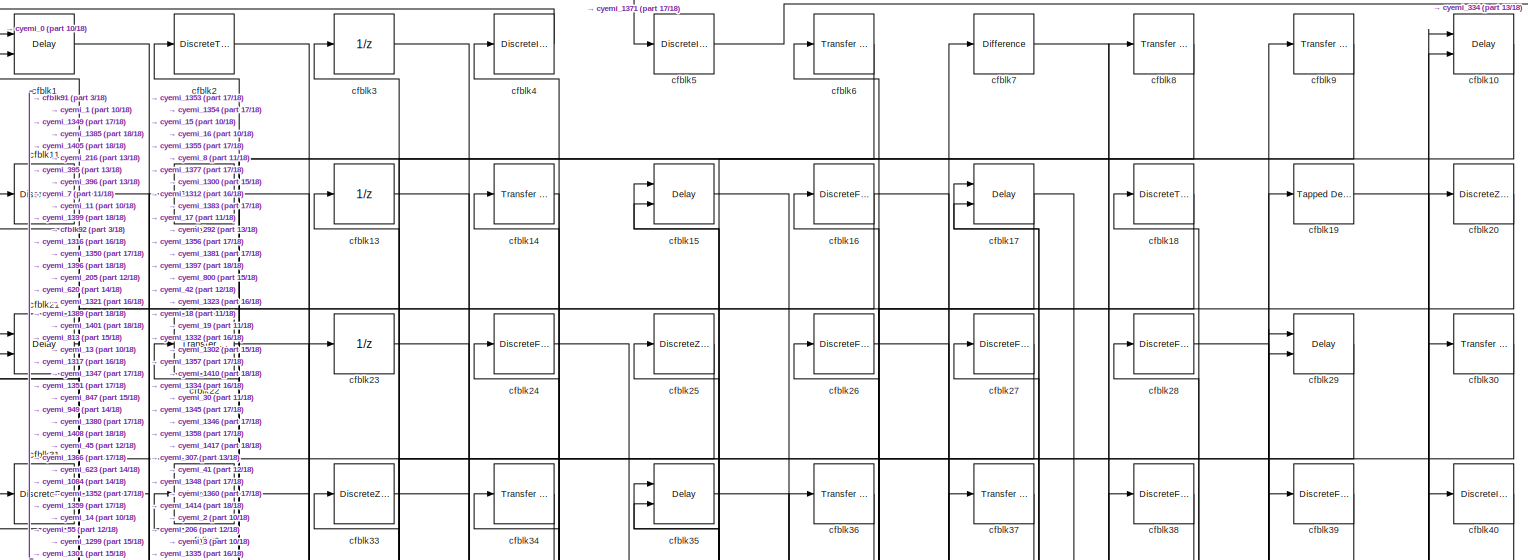
[diagram: root canvas - part 1/18, full width, top band]
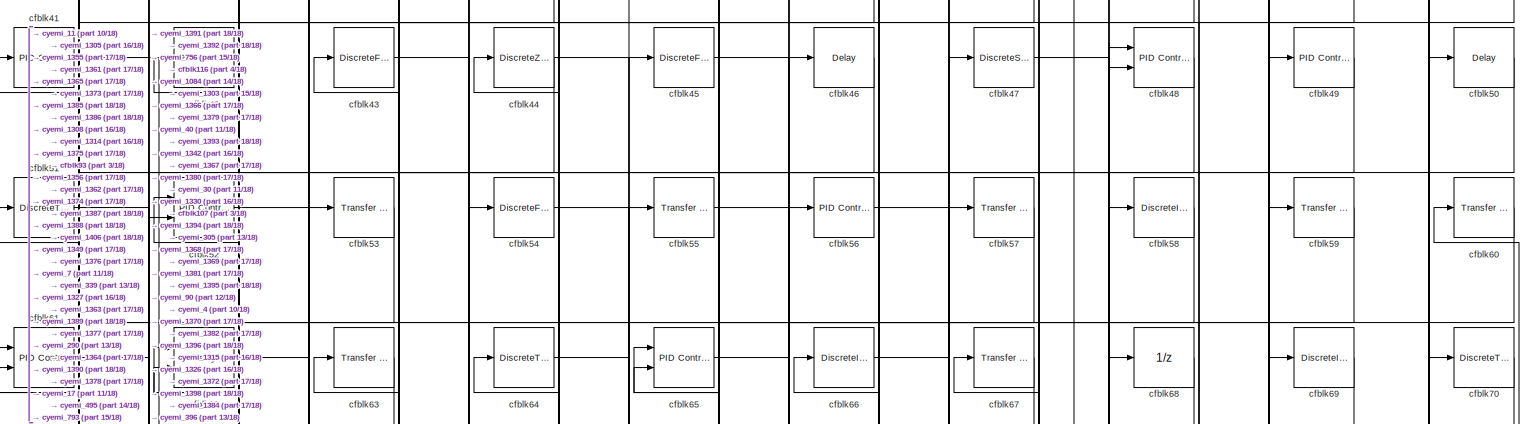
[diagram: root canvas - part 2/18, full width, top band]
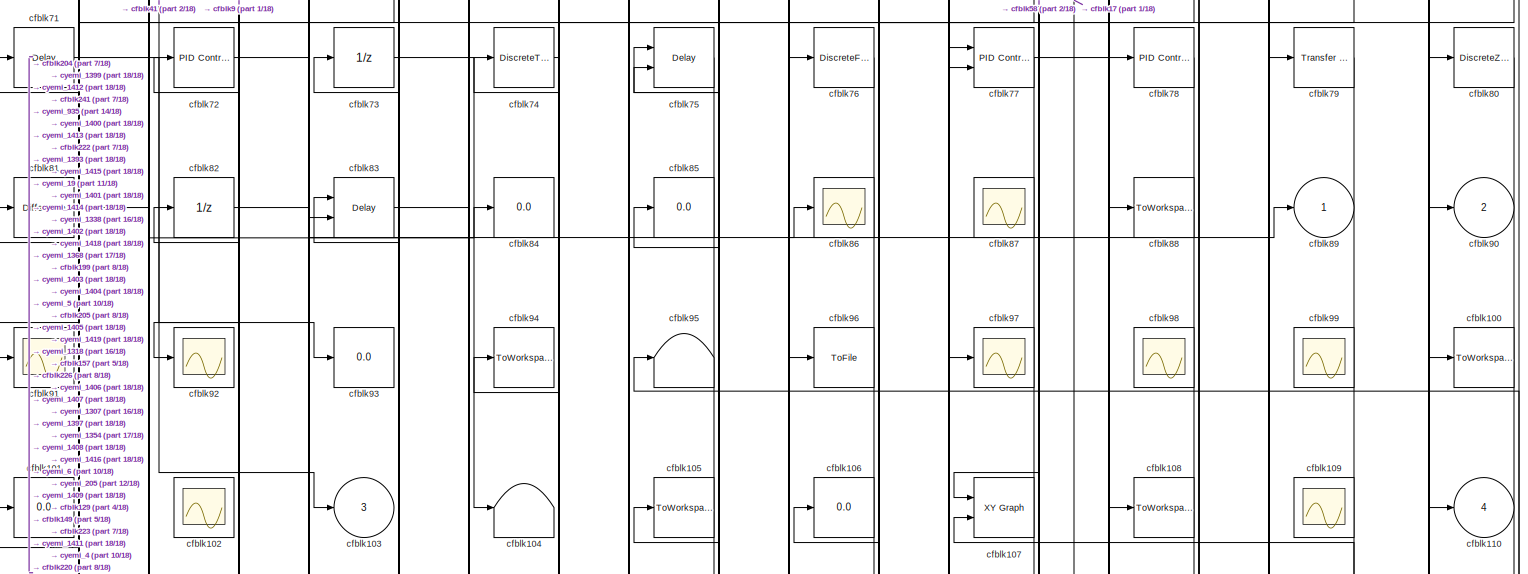
[diagram: root canvas - part 3/18, full width, top band]
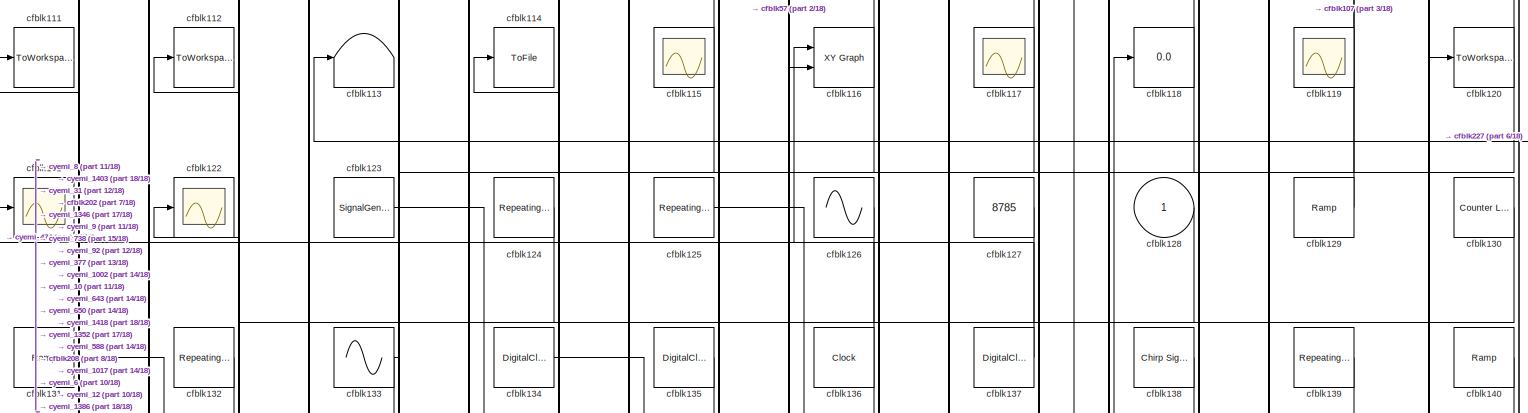
[diagram: root canvas - part 4/18, full width, top band]
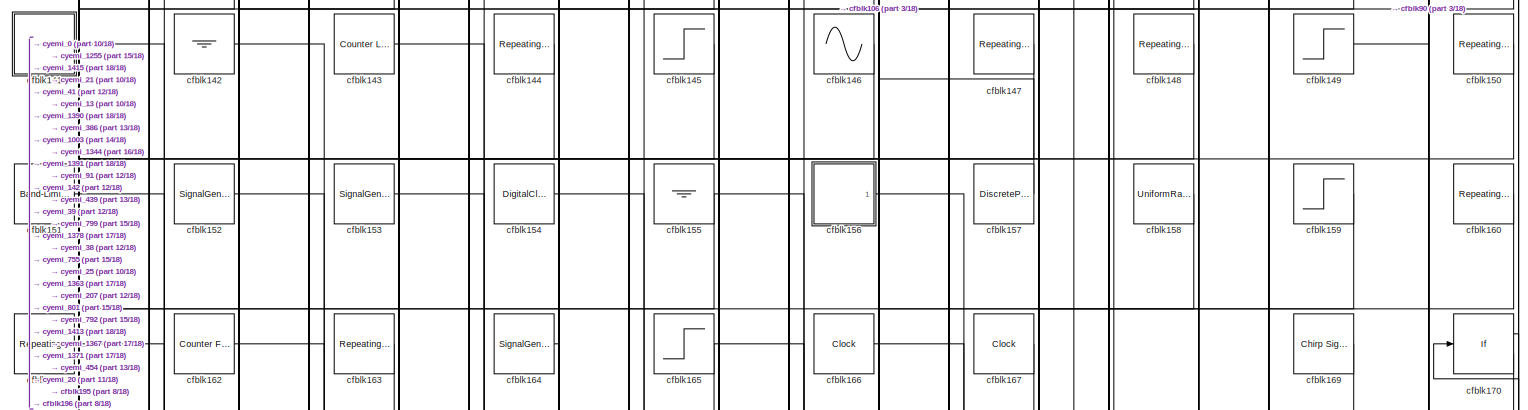
[diagram: root canvas - part 5/18, full width, top band]
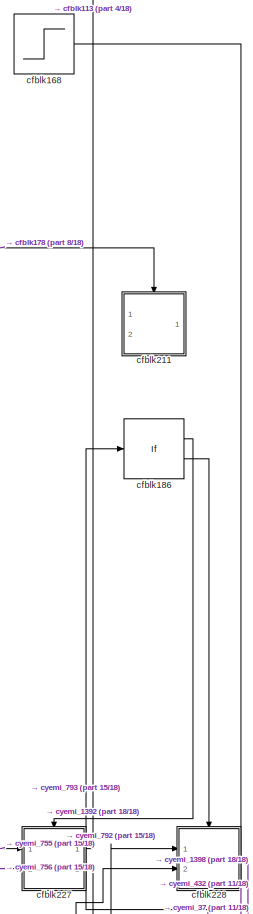
[diagram: root canvas - part 6/18, top right region]
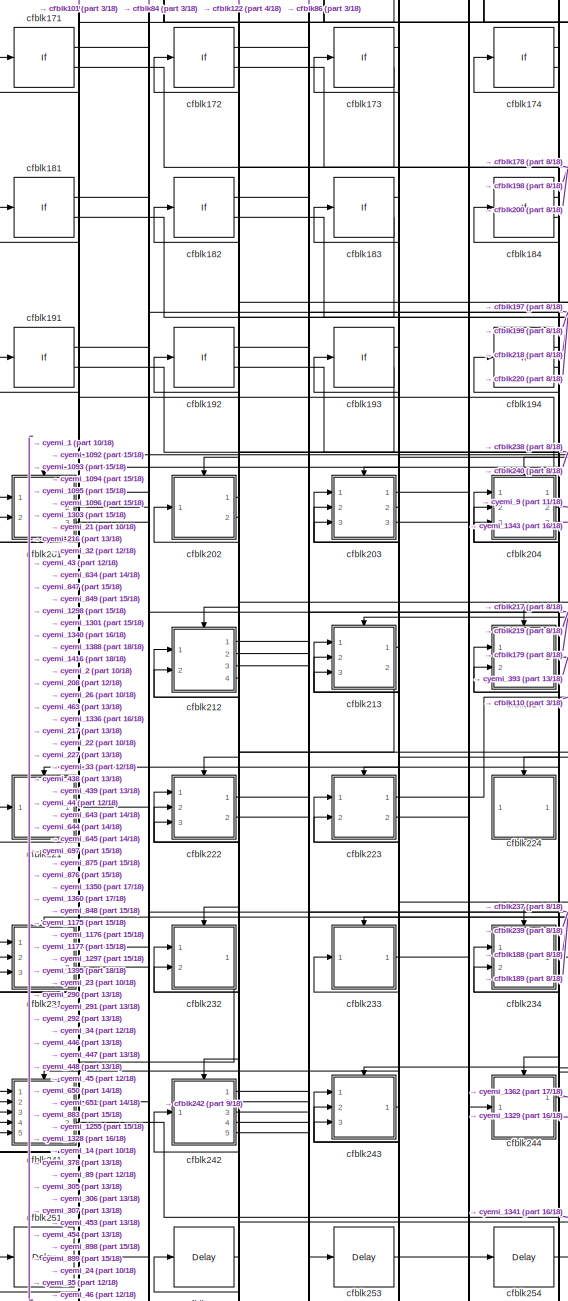
[diagram: root canvas - part 7/18, top left region]
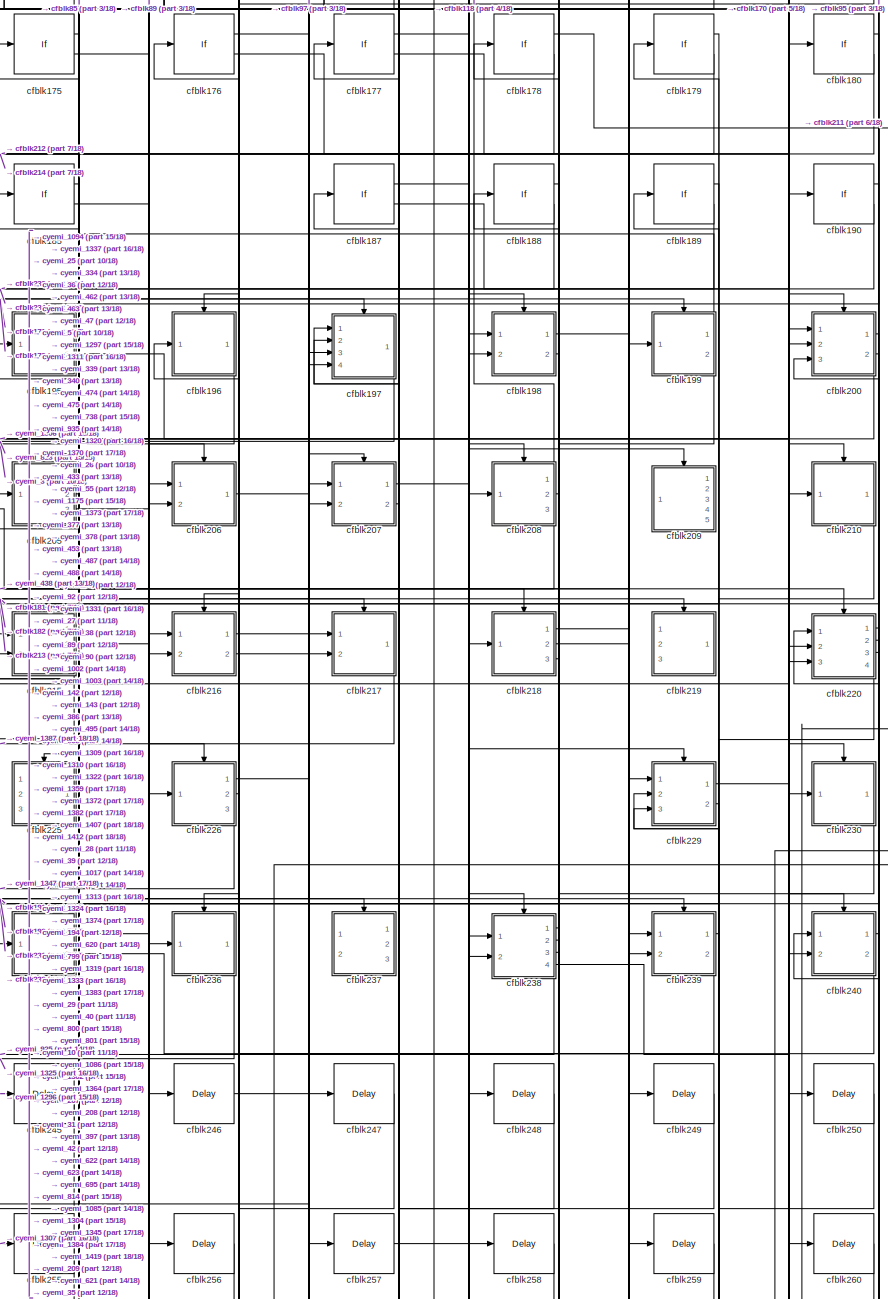
[diagram: root canvas - part 8/18, top center region]
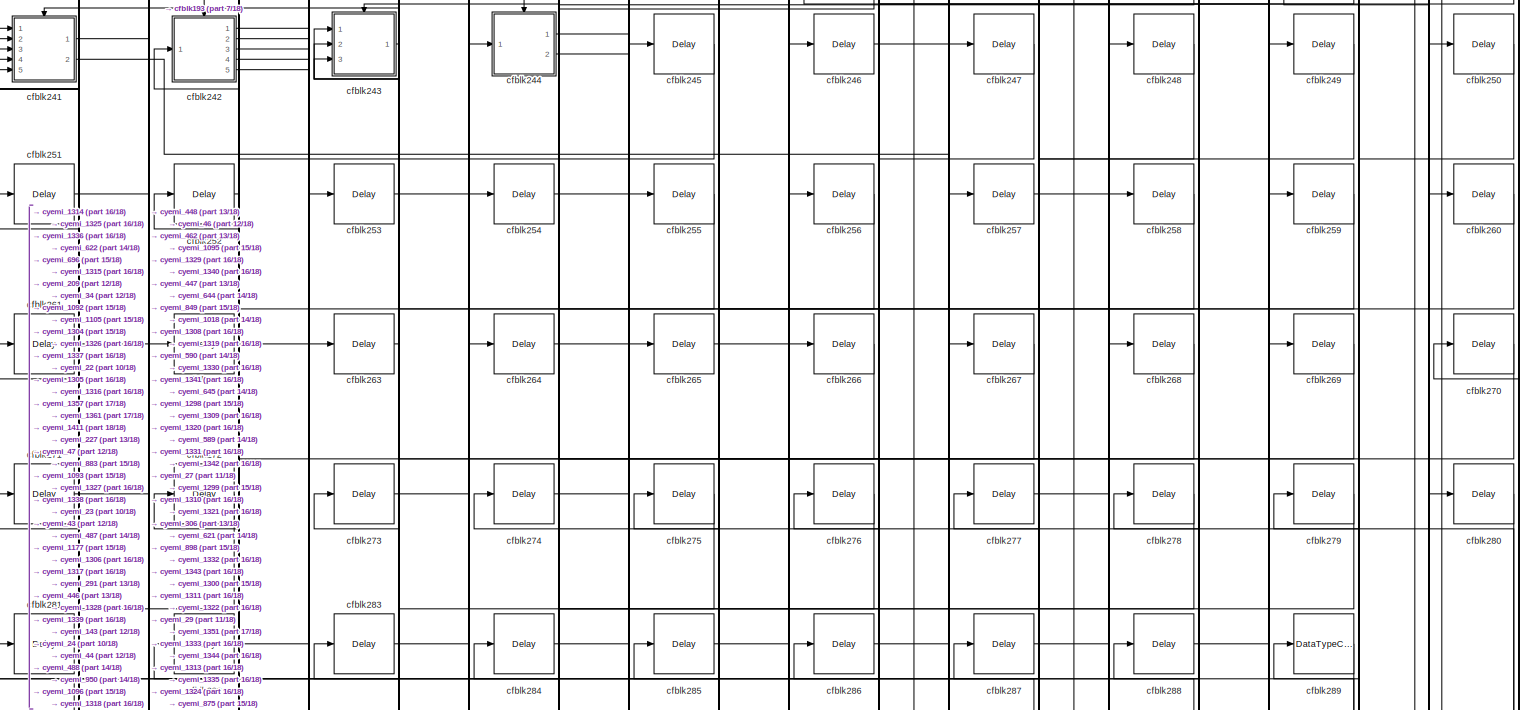
[diagram: root canvas - part 9/18, full width, middle band]
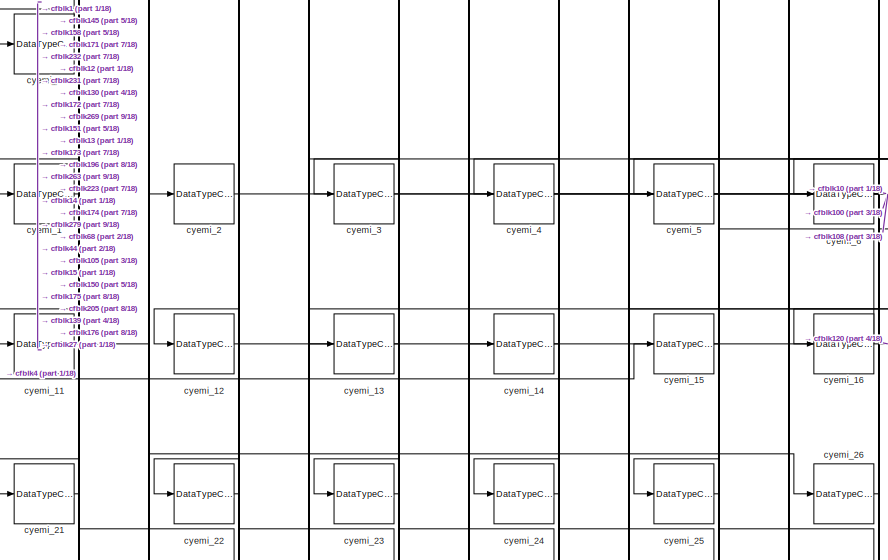
[diagram: root canvas - part 10/18, middle left region]
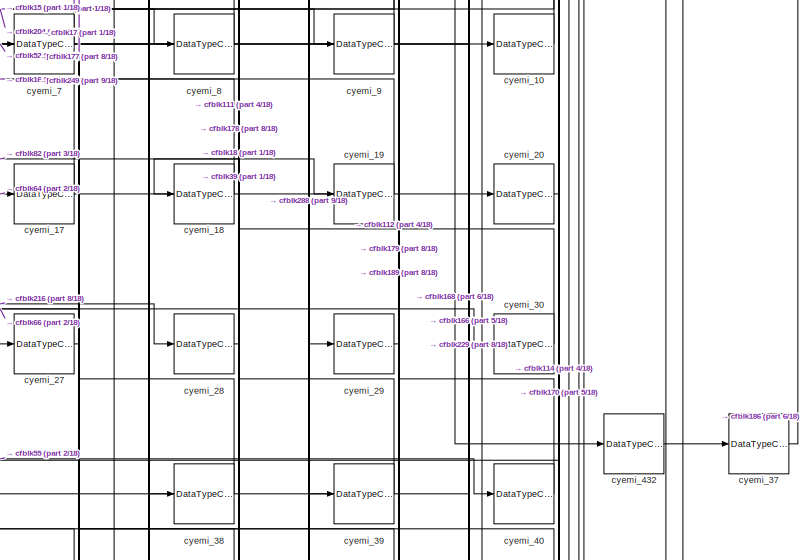
[diagram: root canvas - part 11/18, middle right region]
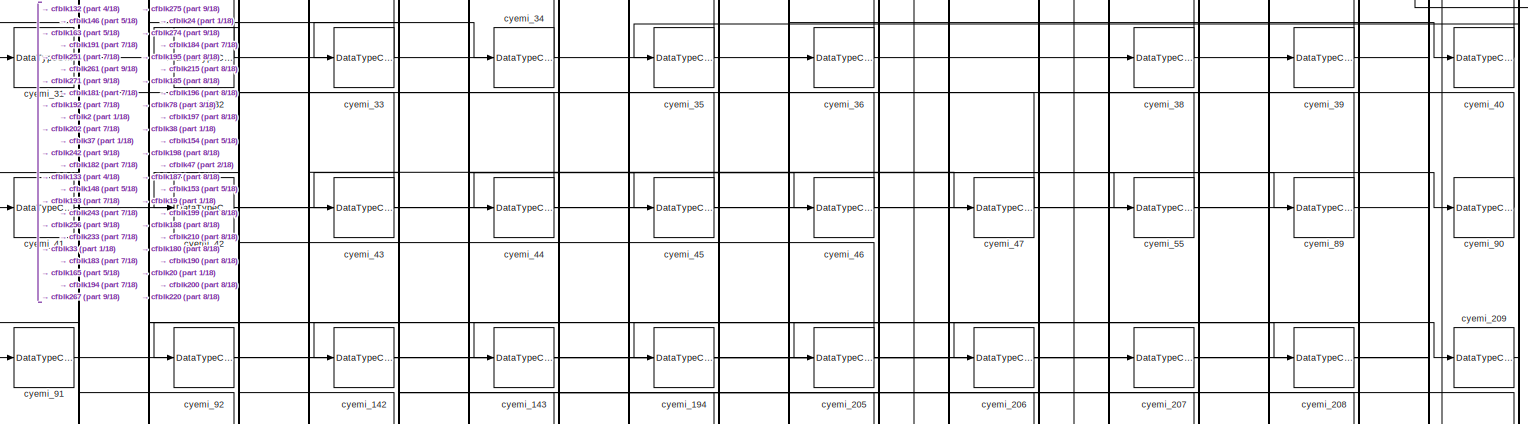
[diagram: root canvas - part 12/18, full width, bottom band]
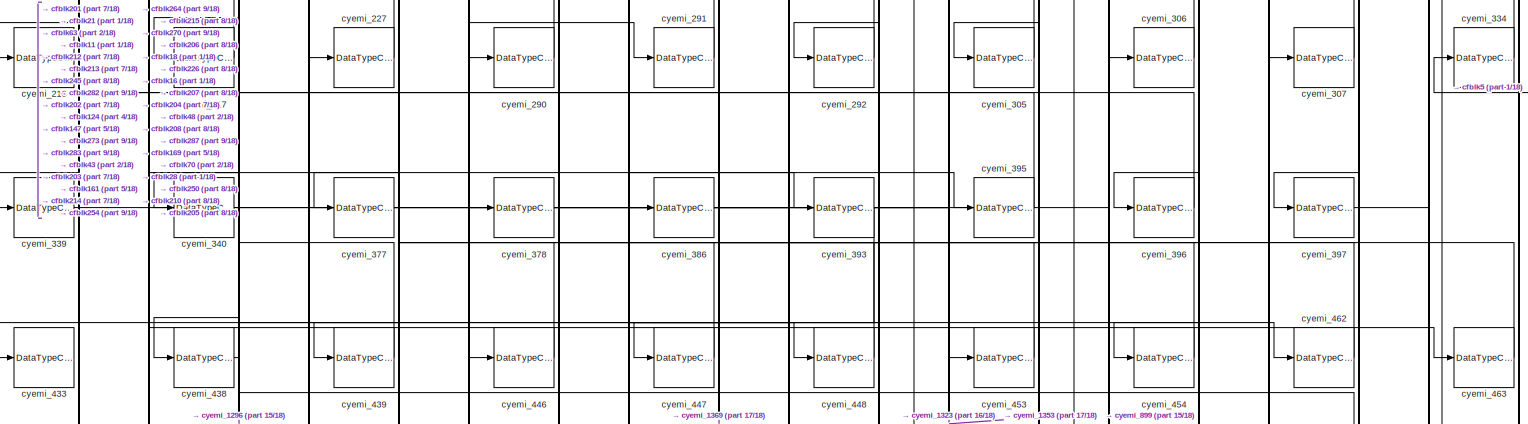
[diagram: root canvas - part 13/18, full width, bottom band]
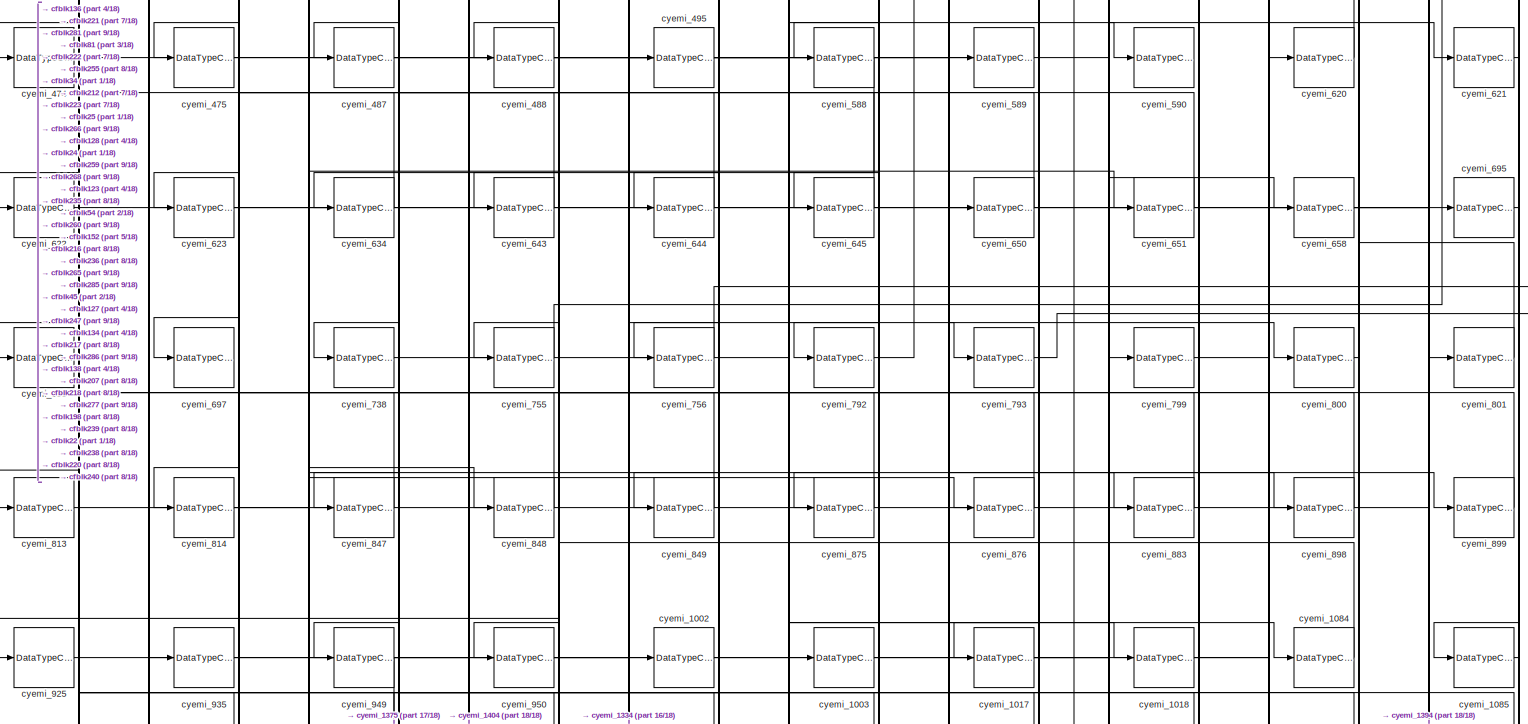
[diagram: root canvas - part 14/18, full width, bottom band]
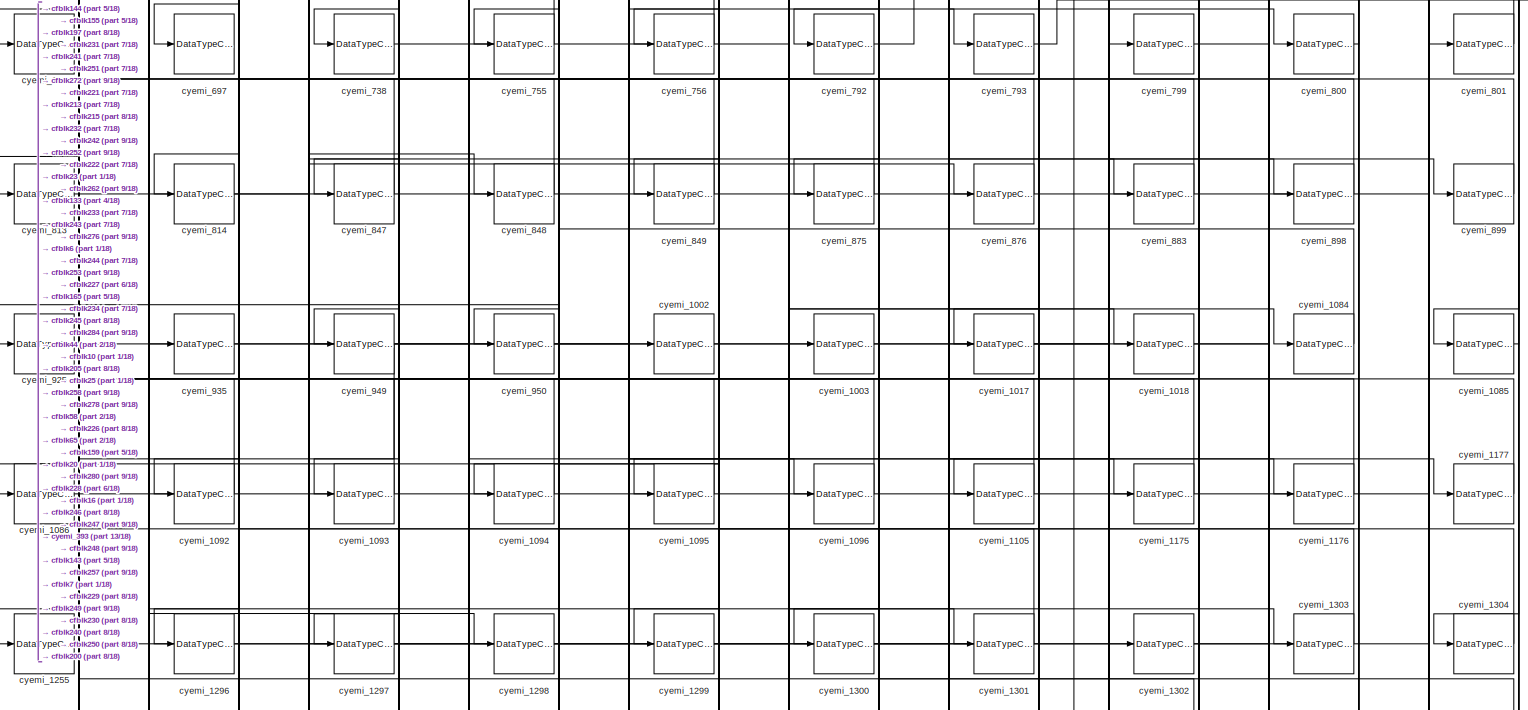
[diagram: root canvas - part 15/18, full width, bottom band]
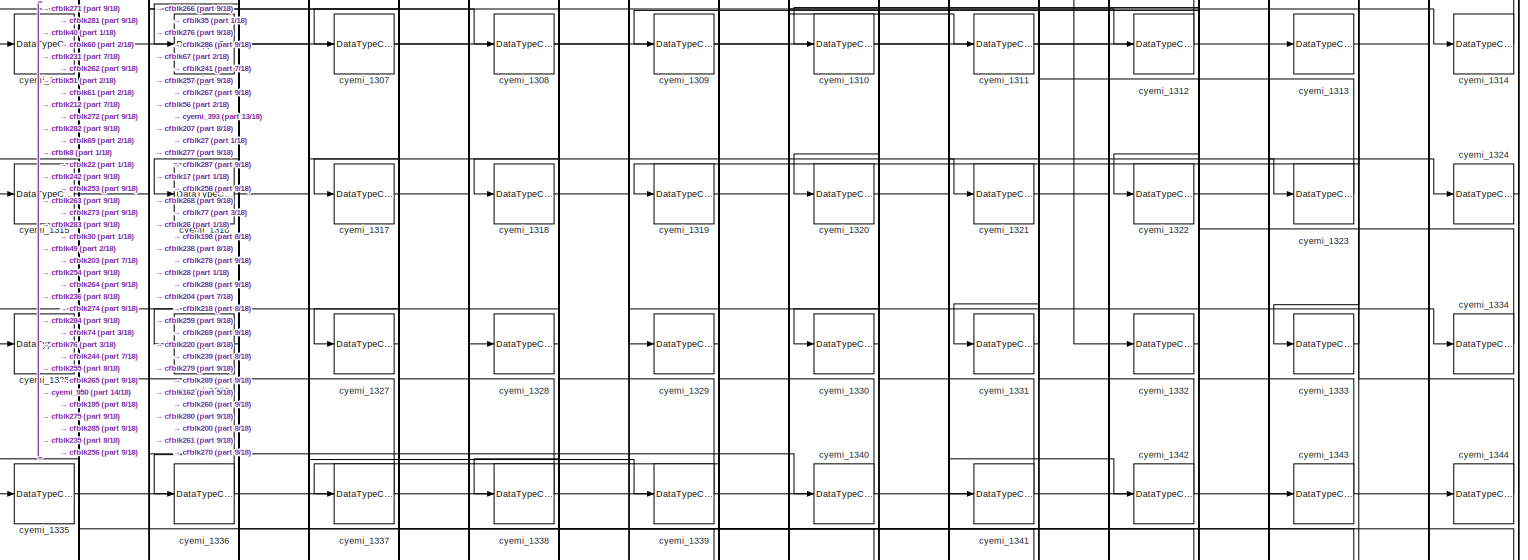
[diagram: root canvas - part 16/18, full width, bottom band]
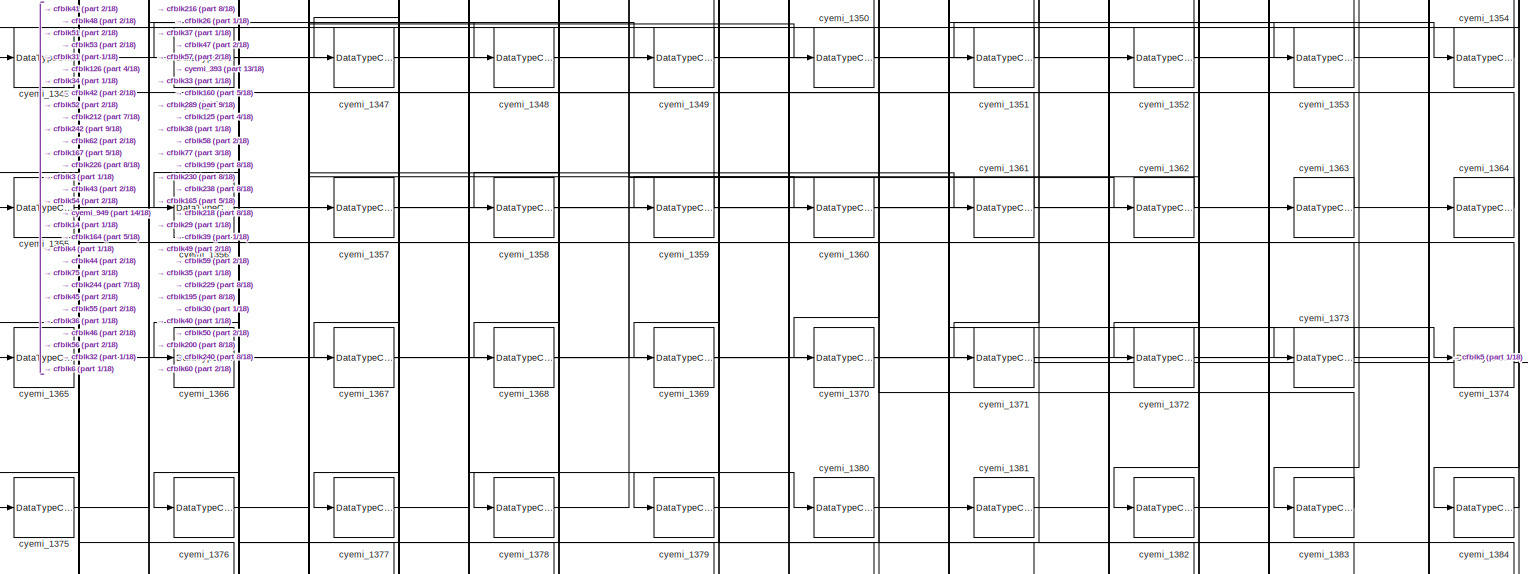
[diagram: root canvas - part 17/18, full width, bottom band]
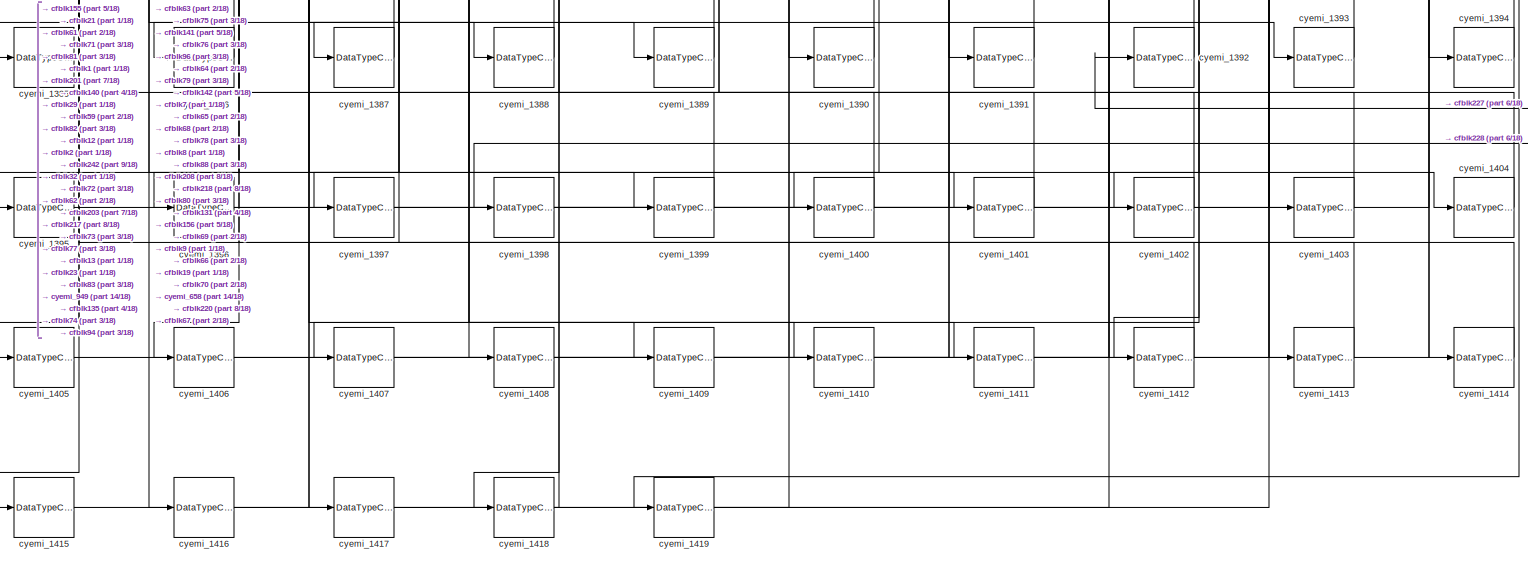
[diagram: root canvas - part 18/18, full width, bottom band]
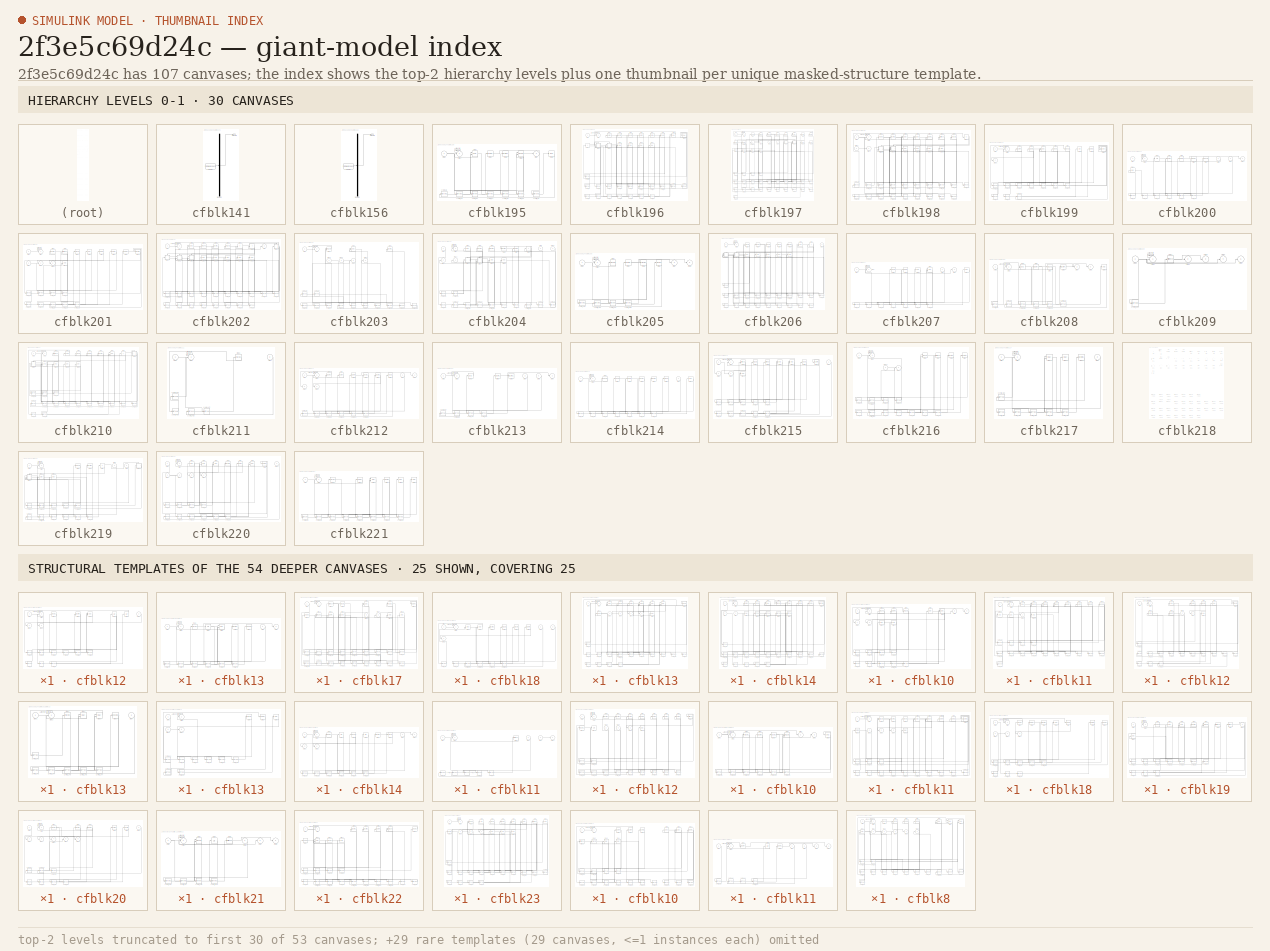
[diagram: thumbnail index - top-2 hierarchy levels (53 canvases (first 30 of 53 shown)) + 25 structural-template representatives of the remaining 54 canvases]
MODEL slx_2f3e5c69d24c
KIND model
CONFIG AbsTol = auto
CONFIG EnableMultiTasking = off
CONFIG FixedStep = auto
CONFIG MaxStep = auto
CONFIG MinStep = auto
CONFIG RelTol = 1e-3
CONFIG SampleTimeConstraint = Unconstrained
CONFIG Solver = VariableStepAuto
CONFIG SolverName = VariableStepAuto
CONFIG StartTime = 0.0
CONFIG StopTime = 10.0
BLOCK [Delay] cfblk1
  InputPortMap = u0,e6
  Ports = [2, 1]
  SampleTime = 1
  ShowEnablePort = on
BLOCK [Delay] cfblk10
  InputPortMap = u0,e6
  Ports = [2, 1]
  SampleTime = 1
  ShowEnablePort = on
BLOCK [ToWorkspace] cfblk100
  FixptAsFi = on
  MaxDataPoints = inf
  Ports = [1]
  SampleTime = -1
  Save2DSignal = 3-D array (concatenate along third dimension)
  SaveFormat = Timeseries
  VariableName = sxokymd
BLOCK [Display] cfblk101
  Decimation = 1
  Ports = [1]
BLOCK [Scope] cfblk102
  Floating = on
  NumInputPorts = 1
  Ports = []
  ScopeSpecificationString = Simulink.scopes.TimeScopeBlockCfg
BLOCK [Outport] cfblk103
  IconDisplay = Port number
  Port = 3
BLOCK [Terminator] cfblk104
BLOCK [ToWorkspace] cfblk105
  FixptAsFi = on
  MaxDataPoints = inf
  Ports = [1]
  SampleTime = -1
  Save2DSignal = 3-D array (concatenate along third dimension)
  SaveFormat = Timeseries
  VariableName = zdioxsb
BLOCK [Display] cfblk106
  Decimation = 1
  Ports = [1]
BLOCK [Reference] cfblk107  REF=simulink/Sinks/XY Graph
  Ports = [2]
  SourceBlock = simulink/Sinks/XY Graph
  SourceProductBaseCode = SL
  SourceProductName = Simulink
  SourceType = XY scope.
BLOCK [ToWorkspace] cfblk108
  FixptAsFi = on
  MaxDataPoints = inf
  Ports = [1]
  SampleTime = -1
  Save2DSignal = 3-D array (concatenate along third dimension)
  SaveFormat = Timeseries
  VariableName = yqgfefg
BLOCK [Scope] cfblk109
  Floating = on
  NumInputPorts = 1
  Ports = []
  ScopeSpecificationString = Simulink.scopes.TimeScopeBlockCfg
BLOCK [DiscreteStateSpace] cfblk11
BLOCK [Outport] cfblk110
  IconDisplay = Port number
  Port = 4
BLOCK [ToWorkspace] cfblk111
  FixptAsFi = on
  MaxDataPoints = inf
  Ports = [1]
  SampleTime = -1
  Save2DSignal = 3-D array (concatenate along third dimension)
  SaveFormat = Timeseries
  VariableName = egcazdz
BLOCK [ToWorkspace] cfblk112
  FixptAsFi = on
  MaxDataPoints = inf
  Ports = [1]
  SampleTime = -1
  Save2DSignal = 3-D array (concatenate along third dimension)
  SaveFormat = Timeseries
  VariableName = iffcmsi
BLOCK [Terminator] cfblk113
BLOCK [ToFile] cfblk114
  Filename = nxck
  Ports = [1]
  SaveFormat = Timeseries
BLOCK [Scope] cfblk115
  Floating = on
  NumInputPorts = 1
  Ports = []
  ScopeSpecificationString = Simulink.scopes.TimeScopeBlockCfg
BLOCK [Reference] cfblk116  REF=simulink/Sinks/XY Graph
  Ports = [2]
  SourceBlock = simulink/Sinks/XY Graph
  SourceProductBaseCode = SL
  SourceProductName = Simulink
  SourceType = XY scope.
BLOCK [Scope] cfblk117
  Floating = on
  NumInputPorts = 1
  Ports = []
  ScopeSpecificationString = Simulink.scopes.TimeScopeBlockCfg
BLOCK [Display] cfblk118
  Decimation = 1
  Ports = [1]
BLOCK [Scope] cfblk119
  Floating = on
  NumInputPorts = 1
  Ports = []
  ScopeSpecificationString = Simulink.scopes.TimeScopeBlockCfg
BLOCK [Reference] cfblk12  REF=simulink/Discrete/Transfer Fcn
First Order
  Ports = [1, 1]
  SourceBlock = simulink/Discrete/Transfer Fcn\nFirst Order
  SourceProductBaseCode = SL
  SourceProductName = Simulink
  SourceType = First Order Transfer Fcn
BLOCK [ToWorkspace] cfblk120
  FixptAsFi = on
  MaxDataPoints = inf
  Ports = [1]
  SampleTime = -1
  Save2DSignal = 3-D array (concatenate along third dimension)
  SaveFormat = Timeseries
  VariableName = bomsczf
BLOCK [Scope] cfblk121
  Floating = off
  NumInputPorts = 1
  Ports = [1]
  ScopeSpecificationString = Simulink.scopes.TimeScopeBlockCfg
BLOCK [Scope] cfblk122
  Floating = off
  NumInputPorts = 1
  Ports = [1]
  ScopeSpecificationString = Simulink.scopes.TimeScopeBlockCfg
BLOCK [SignalGenerator] cfblk123
  Ports = [0, 1]
  Units = rad/sec
BLOCK [Reference] cfblk124  REF=simulink/Sources/Repeating
Sequence
Interpolated
  Ports = [0, 1]
  SourceBlock = simulink/Sources/Repeating\nSequence\nInterpolated
  SourceProductBaseCode = SL
  SourceProductName = Simulink
  SourceType = Repeating Sequence Interpolated
BLOCK [Reference] cfblk125  REF=simulink/Sources/Repeating
Sequence
Interpolated
  Ports = [0, 1]
  SourceBlock = simulink/Sources/Repeating\nSequence\nInterpolated
  SourceProductBaseCode = SL
  SourceProductName = Simulink
  SourceType = Repeating Sequence Interpolated
BLOCK [Sin] cfblk126
  Ports = [0, 1]
  SampleTime = 0
BLOCK [Constant] cfblk127
  Value = 8785
BLOCK [Inport] cfblk128
  IconDisplay = Port number
BLOCK [Reference] cfblk129  REF=simulink/Sources/Ramp
  Ports = [0, 1]
  SourceBlock = simulink/Sources/Ramp
  SourceProductBaseCode = SL
  SourceProductName = Simulink
  SourceType = Ramp
BLOCK [UnitDelay] cfblk13
  InputProcessing = Elements as channels (sample based)
BLOCK [Reference] cfblk130  REF=simulink/Sources/Counter
Limited
  Ports = [0, 1]
  SourceBlock = simulink/Sources/Counter\nLimited
  SourceProductBaseCode = SL
  SourceProductName = Simulink
  SourceType = Counter Limited
BLOCK [Reference] cfblk131  REF=simulink/Sources/Ramp
  Ports = [0, 1]
  SourceBlock = simulink/Sources/Ramp
  SourceProductBaseCode = SL
  SourceProductName = Simulink
  SourceType = Ramp
BLOCK [Reference] cfblk132  REF=simulink/Sources/Repeating
Sequence
Interpolated
  Ports = [0, 1]
  SourceBlock = simulink/Sources/Repeating\nSequence\nInterpolated
  SourceProductBaseCode = SL
  SourceProductName = Simulink
  SourceType = Repeating Sequence Interpolated
BLOCK [Sin] cfblk133
  Ports = [0, 1]
  SampleTime = 0
BLOCK [DigitalClock] cfblk134
BLOCK [DigitalClock] cfblk135
BLOCK [Clock] cfblk136
BLOCK [DigitalClock] cfblk137
BLOCK [Reference] cfblk138  REF=simulink/Sources/Chirp Signal
  Ports = [0, 1]
  SourceBlock = simulink/Sources/Chirp Signal
  SourceProductBaseCode = SL
  SourceProductName = Simulink
  SourceType = chirp
BLOCK [Reference] cfblk139  REF=simulink/Sources/Repeating
Sequence
Interpolated
  Ports = [0, 1]
  SourceBlock = simulink/Sources/Repeating\nSequence\nInterpolated
  SourceProductBaseCode = SL
  SourceProductName = Simulink
  SourceType = Repeating Sequence Interpolated
BLOCK [Reference] cfblk14  REF=simulink/Discrete/Transfer Fcn
Real Zero
  Ports = [1, 1]
  SourceBlock = simulink/Discrete/Transfer Fcn\nReal Zero
  SourceProductBaseCode = SL
  SourceProductName = Simulink
  SourceType = Transfer Fcn Real Zero
BLOCK [Reference] cfblk140  REF=simulink/Sources/Ramp
  Ports = [0, 1]
  SourceBlock = simulink/Sources/Ramp
  SourceProductBaseCode = SL
  SourceProductName = Simulink
  SourceType = Ramp
BLOCK [SubSystem] cfblk141
  ClipboardFcn = sigbuilder_block('clipboard');
  CloseFcn = sigbuilder_block('close');
  ContinueFcn = sigbuilder_block('continue');
  CopyFcn = sigbuilder_block('copy');
  DeleteFcn = sigbuilder_block('delete');
  LoadFcn = sigbuilder_block('load');
  MaskHideContents = on
  ModelCloseFcn = sigbuilder_block('modelClose');
  NameChangeFcn = sigbuilder_block('namechange');
  OpenFcn = sigbuilder_block('open',[437.6 199.2 550.4 400 ]);
  PauseFcn = sigbuilder_block('pause');
  Ports = [0, 1]
  PreSaveFcn = sigbuilder_block('preSave');
  RequestExecContextInheritance = off
  StartFcn = sigbuilder_block('start');
  StopFcn = sigbuilder_block('stop');
  Tag = STV Subsys
BLOCK [Demux] cfblk141/Demux
  Outputs = 1
  Ports = [1, 1]
  Tag = STV Demux
BLOCK [FromWorkspace] cfblk141/FromWs
  SampleTime = 0
  Tag = STV FromWs
  VariableName = tuvar
  ZeroCross = on
BLOCK [Outport] cfblk141/Signal 1
  IconDisplay = Port number
  Tag = STV Outport
BLOCK [Ground] cfblk142
BLOCK [Reference] cfblk143  REF=simulink/Sources/Counter
Limited
  Ports = [0, 1]
  SourceBlock = simulink/Sources/Counter\nLimited
  SourceProductBaseCode = SL
  SourceProductName = Simulink
  SourceType = Counter Limited
BLOCK [Reference] cfblk144  REF=simulink/Sources/Repeating
Sequence
  Ports = [0, 1]
  SourceBlock = simulink/Sources/Repeating\nSequence
  SourceProductBaseCode = SL
  SourceProductName = Simulink
  SourceType = Repeating table
BLOCK [Step] cfblk145
  After = 94
  SampleTime = 0
BLOCK [Sin] cfblk146
  Ports = [0, 1]
  SampleTime = 0
BLOCK [Reference] cfblk147  REF=simulink/Sources/Repeating
Sequence
Interpolated
  Ports = [0, 1]
  SourceBlock = simulink/Sources/Repeating\nSequence\nInterpolated
  SourceProductBaseCode = SL
  SourceProductName = Simulink
  SourceType = Repeating Sequence Interpolated
BLOCK [Reference] cfblk148  REF=simulink/Sources/Repeating
Sequence
Stair
  Ports = [0, 1]
  SourceBlock = simulink/Sources/Repeating\nSequence\nStair
  SourceProductBaseCode = SL
  SourceProductName = Simulink
  SourceType = Repeating Sequence Stair
BLOCK [Step] cfblk149
  After = 59
  SampleTime = 0
BLOCK [Delay] cfblk15
  InputPortMap = u0,e6
  Ports = [2, 1]
  SampleTime = 1
  ShowEnablePort = on
BLOCK [Reference] cfblk150  REF=simulink/Sources/Repeating
Sequence
  Ports = [0, 1]
  SourceBlock = simulink/Sources/Repeating\nSequence
  SourceProductBaseCode = SL
  SourceProductName = Simulink
  SourceType = Repeating table
BLOCK [Reference] cfblk151  REF=simulink/Sources/Band-Limited
White Noise
  Ports = [0, 1]
  SourceBlock = simulink/Sources/Band-Limited\nWhite Noise
  SourceProductBaseCode = SL
  SourceProductName = Simulink
  SourceType = Band-Limited White Noise.
BLOCK [SignalGenerator] cfblk152
  Ports = [0, 1]
  Units = rad/sec
BLOCK [SignalGenerator] cfblk153
  Ports = [0, 1]
  Units = rad/sec
BLOCK [DigitalClock] cfblk154
BLOCK [Ground] cfblk155
BLOCK [SubSystem] cfblk156
  ClipboardFcn = sigbuilder_block('clipboard');
  CloseFcn = sigbuilder_block('close');
  ContinueFcn = sigbuilder_block('continue');
  CopyFcn = sigbuilder_block('copy');
  DeleteFcn = sigbuilder_block('delete');
  LoadFcn = sigbuilder_block('load');
  MaskHideContents = on
  ModelCloseFcn = sigbuilder_block('modelClose');
  NameChangeFcn = sigbuilder_block('namechange');
  OpenFcn = sigbuilder_block('open',[437.6 199.2 550.4 400 ]);
  PauseFcn = sigbuilder_block('pause');
  Ports = [0, 1]
  PreSaveFcn = sigbuilder_block('preSave');
  RequestExecContextInheritance = off
  StartFcn = sigbuilder_block('start');
  StopFcn = sigbuilder_block('stop');
  Tag = STV Subsys
BLOCK [Demux] cfblk156/Demux
  Outputs = 1
  Ports = [1, 1]
  Tag = STV Demux
BLOCK [FromWorkspace] cfblk156/FromWs
  SampleTime = 0
  Tag = STV FromWs
  VariableName = tuvar
  ZeroCross = on
BLOCK [Outport] cfblk156/Signal 1
  IconDisplay = Port number
  Tag = STV Outport
BLOCK [DiscretePulseGenerator] cfblk157
  Period = 10
  Ports = [0, 1]
  PulseType = Time based
  PulseWidth = 5
BLOCK [UniformRandomNumber] cfblk158
  SampleTime = 0.1
BLOCK [Step] cfblk159
  After = 53
  SampleTime = 0
BLOCK [DiscreteFir] cfblk16
  InputPortMap = u0
  OutputPortMap = o0
  Ports = [1, 1]
  SampleTime = 1
BLOCK [Reference] cfblk160  REF=simulink/Sources/Repeating
Sequence
  Ports = [0, 1]
  SourceBlock = simulink/Sources/Repeating\nSequence
  SourceProductBaseCode = SL
  SourceProductName = Simulink
  SourceType = Repeating table
BLOCK [Reference] cfblk161  REF=simulink/Sources/Repeating
Sequence
  Ports = [0, 1]
  SourceBlock = simulink/Sources/Repeating\nSequence
  SourceProductBaseCode = SL
  SourceProductName = Simulink
  SourceType = Repeating table
BLOCK [Reference] cfblk162  REF=simulink/Sources/Counter
Free-Running
  Ports = [0, 1]
  SourceBlock = simulink/Sources/Counter\nFree-Running
  SourceProductBaseCode = SL
  SourceProductName = Simulink
  SourceType = Counter Free-Running
BLOCK [Reference] cfblk163  REF=simulink/Sources/Repeating
Sequence
Interpolated
  Ports = [0, 1]
  SourceBlock = simulink/Sources/Repeating\nSequence\nInterpolated
  SourceProductBaseCode = SL
  SourceProductName = Simulink
  SourceType = Repeating Sequence Interpolated
BLOCK [SignalGenerator] cfblk164
  Ports = [0, 1]
  Units = rad/sec
BLOCK [Step] cfblk165
  After = 66
  SampleTime = 0
BLOCK [Clock] cfblk166
BLOCK [Clock] cfblk167
BLOCK [Step] cfblk168
  After = 29
  SampleTime = 0
BLOCK [Reference] cfblk169  REF=simulink/Sources/Chirp Signal
  Ports = [0, 1]
  SourceBlock = simulink/Sources/Chirp Signal
  SourceProductBaseCode = SL
  SourceProductName = Simulink
  SourceType = chirp
BLOCK [Delay] cfblk17
  InputPortMap = u0,e6
  Ports = [2, 1]
  SampleTime = 1
  ShowEnablePort = on
BLOCK [If] cfblk170
  Ports = [1, 2]
  SampleTime = 1
BLOCK [If] cfblk171
  Ports = [1, 2]
  SampleTime = 1
BLOCK [If] cfblk172
  Ports = [1, 2]
  SampleTime = 1
BLOCK [If] cfblk173
  Ports = [1, 2]
  SampleTime = 1
BLOCK [If] cfblk174
  Ports = [1, 2]
  SampleTime = 1
BLOCK [If] cfblk175
  Ports = [1, 2]
  SampleTime = 1
BLOCK [If] cfblk176
  Ports = [1, 2]
  SampleTime = 1
BLOCK [If] cfblk177
  Ports = [1, 2]
  SampleTime = 1
BLOCK [If] cfblk178
  Ports = [1, 2]
  SampleTime = 1
BLOCK [If] cfblk179
  Ports = [1, 2]
  SampleTime = 1
BLOCK [DiscreteTransferFcn] cfblk18
  InputPortMap = u0
  Ports = [1, 1]
  SampleTime = 1
BLOCK [If] cfblk180
  Ports = [1, 2]
  SampleTime = 1
BLOCK [If] cfblk181
  Ports = [1, 2]
  SampleTime = 1
BLOCK [If] cfblk182
  Ports = [1, 2]
  SampleTime = 1
BLOCK [If] cfblk183
  Ports = [1, 2]
  SampleTime = 1
BLOCK [If] cfblk184
  Ports = [1, 2]
  SampleTime = 1
BLOCK [If] cfblk185
  Ports = [1, 2]
  SampleTime = 1
BLOCK [If] cfblk186
  Ports = [1, 2]
  SampleTime = 1
BLOCK [If] cfblk187
  Ports = [1, 2]
  SampleTime = 1
BLOCK [If] cfblk188
  Ports = [1, 2]
  SampleTime = 1
BLOCK [If] cfblk189
  Ports = [1, 2]
  SampleTime = 1
BLOCK [Reference] cfblk19  REF=simulink/Discrete/Tapped Delay
  Ports = [1, 1]
  SourceBlock = simulink/Discrete/Tapped Delay
  SourceProductBaseCode = SL
  SourceProductName = Simulink
  SourceType = Tapped Delay Line
BLOCK [If] cfblk190
  Ports = [1, 2]
  SampleTime = 1
BLOCK [If] cfblk191
  Ports = [1, 2]
  SampleTime = 1
BLOCK [If] cfblk192
  Ports = [1, 2]
  SampleTime = 1
BLOCK [If] cfblk193
  Ports = [1, 2]
  SampleTime = 1
BLOCK [If] cfblk194
  Ports = [1, 2]
  SampleTime = 1
BLOCK [SubSystem] cfblk195
  Ports = [1, 2, 0, 0, 0, 0, 0, 1]
  RequestExecContextInheritance = off
  TreatAsAtomicUnit = on
BLOCK [ActionPort] cfblk195/Action Port
  ActionType = then
BLOCK [Inport] cfblk195/cfblk1
  IconDisplay = Port number
BLOCK [Outport] cfblk195/cfblk2
  IconDisplay = Port number
BLOCK [Delay] cfblk195/cfblk3
  DelayLengthSource = Input port
  InputPortMap = u0,p1
  Ports = [2, 1]
BLOCK [DiscreteStateSpace] cfblk195/cfblk4
  SampleTime = -1
BLOCK [DiscreteFilter] cfblk195/cfblk5
  InputPortMap = u0
  Ports = [1, 1]
BLOCK [Reference] cfblk195/cfblk6  REF=simulink/Continuous/PID Controller (2DOF)
  Ports = [2, 1]
  SourceBlock = simulink/Continuous/PID Controller (2DOF)
  SourceProductBaseCode = SL
  SourceProductName = Simulink
  SourceType = PID 2dof
BLOCK [Outport] cfblk195/cfblk7
  IconDisplay = Port number
  Port = 2
BLOCK [Delay] cfblk195/cfblk8
  InputPortMap = u0
  Ports = [1, 1]
BLOCK [DataTypeConversion] cfblk195/cyemi_48
  OutDataTypeStr = double
  RndMeth = Floor
  SaturateOnIntegerOverflow = off
BLOCK [DataTypeConversion] cfblk195/cyemi_49
  OutDataTypeStr = double
  RndMeth = Floor
  SaturateOnIntegerOverflow = off
BLOCK [DataTypeConversion] cfblk195/cyemi_50
  OutDataTypeStr = double
  RndMeth = Floor
  SaturateOnIntegerOverflow = off
BLOCK [DataTypeConversion] cfblk195/cyemi_51
  OutDataTypeStr = double
  RndMeth = Floor
  SaturateOnIntegerOverflow = off
BLOCK [DataTypeConversion] cfblk195/cyemi_52
  OutDataTypeStr = double
  RndMeth = Floor
  SaturateOnIntegerOverflow = off
BLOCK [DataTypeConversion] cfblk195/cyemi_53
  OutDataTypeStr = double
  RndMeth = Floor
  SaturateOnIntegerOverflow = off
BLOCK [DataTypeConversion] cfblk195/cyemi_54
  OutDataTypeStr = double
  RndMeth = Floor
  SaturateOnIntegerOverflow = off
BLOCK [SubSystem] cfblk196
  Ports = [1, 1, 0, 0, 0, 0, 0, 1]
  RequestExecContextInheritance = off
  TreatAsAtomicUnit = on
BLOCK [ActionPort] cfblk196/Action Port
  ActionType = else
BLOCK [Inport] cfblk196/cfblk1
  IconDisplay = Port number
BLOCK [Delay] cfblk196/cfblk10
  InputPortMap = u0
  Ports = [1, 1]
BLOCK [If] cfblk196/cfblk11
  Ports = [1, 2]
  SampleTime = 1
BLOCK [SubSystem] cfblk196/cfblk12
  Ports = [2, 3, 0, 0, 0, 0, 0, 1]
  RequestExecContextInheritance = off
  TreatAsAtomicUnit = on
BLOCK [ActionPort] cfblk196/cfblk12/Action Port
  ActionType = then
BLOCK [Inport] cfblk196/cfblk12/cfblk1
  IconDisplay = Port number
BLOCK [Inport] cfblk196/cfblk12/cfblk10
  IconDisplay = Port number
  Port = 2
BLOCK [Outport] cfblk196/cfblk12/cfblk11
  IconDisplay = Port number
  Port = 2
BLOCK [Outport] cfblk196/cfblk12/cfblk12
  IconDisplay = Port number
  Port = 3
BLOCK [Outport] cfblk196/cfblk12/cfblk2
  IconDisplay = Port number
BLOCK [Reference] cfblk196/cfblk12/cfblk3  REF=simulink/Discrete/Transfer Fcn
First Order
  Ports = [1, 1]
  SourceBlock = simulink/Discrete/Transfer Fcn\nFirst Order
  SourceProductBaseCode = SL
  SourceProductName = Simulink
  SourceType = First Order Transfer Fcn
BLOCK [DiscreteFilter] cfblk196/cfblk12/cfblk5
  InputPortMap = u0
  Ports = [1, 1]
BLOCK [Delay] cfblk196/cfblk12/cfblk6
  InputPortMap = u0,e6
  Ports = [2, 1]
  ShowEnablePort = on
BLOCK [UnitDelay] cfblk196/cfblk12/cfblk8
  InputProcessing = Elements as channels (sample based)
  SampleTime = -1
BLOCK [UnitDelay] cfblk196/cfblk12/cfblk9
  InputProcessing = Elements as channels (sample based)
  SampleTime = -1
BLOCK [DataTypeConversion] cfblk196/cfblk12/cyemi_60
  OutDataTypeStr = double
  RndMeth = Floor
  SaturateOnIntegerOverflow = off
BLOCK [DataTypeConversion] cfblk196/cfblk12/cyemi_61
  OutDataTypeStr = double
  RndMeth = Floor
  SaturateOnIntegerOverflow = off
BLOCK [DataTypeConversion] cfblk196/cfblk12/cyemi_62
  OutDataTypeStr = double
  RndMeth = Floor
  SaturateOnIntegerOverflow = off
BLOCK [DataTypeConversion] cfblk196/cfblk12/cyemi_63
  OutDataTypeStr = double
  RndMeth = Floor
  SaturateOnIntegerOverflow = off
BLOCK [DataTypeConversion] cfblk196/cfblk12/cyemi_64
  OutDataTypeStr = double
  RndMeth = Floor
  SaturateOnIntegerOverflow = off
BLOCK [DataTypeConversion] cfblk196/cfblk12/cyemi_65
  OutDataTypeStr = double
  RndMeth = Floor
  SaturateOnIntegerOverflow = off
BLOCK [DataTypeConversion] cfblk196/cfblk12/cyemi_66
  OutDataTypeStr = double
  RndMeth = Floor
  SaturateOnIntegerOverflow = off
BLOCK [DataTypeConversion] cfblk196/cfblk12/cyemi_67
  OutDataTypeStr = double
  RndMeth = Floor
  SaturateOnIntegerOverflow = off
BLOCK [DataTypeConversion] cfblk196/cfblk12/cyemi_68
  OutDataTypeStr = double
  RndMeth = Floor
  SaturateOnIntegerOverflow = off
BLOCK [SubSystem] cfblk196/cfblk13
  Ports = [2, 2, 0, 0, 0, 0, 0, 1]
  RequestExecContextInheritance = off
  TreatAsAtomicUnit = on
BLOCK [ActionPort] cfblk196/cfblk13/Action Port
  ActionType = else
BLOCK [Inport] cfblk196/cfblk13/cfblk1
  IconDisplay = Port number
BLOCK [Outport] cfblk196/cfblk13/cfblk2
  IconDisplay = Port number
BLOCK [Reference] cfblk196/cfblk13/cfblk3  REF=simulink/Discrete/Transfer Fcn
Lead or Lag
  Ports = [1, 1]
  SourceBlock = simulink/Discrete/Transfer Fcn\nLead or Lag
  SourceProductBaseCode = SL
  SourceProductName = Simulink
  SourceType = Lead or Lag Compensator
BLOCK [UnitDelay] cfblk196/cfblk13/cfblk4
  InputProcessing = Elements as channels (sample based)
  SampleTime = -1
BLOCK [Delay] cfblk196/cfblk13/cfblk5
  DelayLengthSource = Input port
  InputPortMap = u0,p1
  Ports = [2, 1]
BLOCK [DiscreteFir] cfblk196/cfblk13/cfblk6
  InputPortMap = u0
  OutputPortMap = o0
  Ports = [1, 1]
BLOCK [Reference] cfblk196/cfblk13/cfblk7  REF=simulink/Discrete/Tapped Delay
  Ports = [1, 1]
  SourceBlock = simulink/Discrete/Tapped Delay
  SourceProductBaseCode = SL
  SourceProductName = Simulink
  SourceType = Tapped Delay Line
BLOCK [Inport] cfblk196/cfblk13/cfblk8
  IconDisplay = Port number
  Port = 2
BLOCK [Outport] cfblk196/cfblk13/cfblk9
  IconDisplay = Port number
  Port = 2
BLOCK [DataTypeConversion] cfblk196/cfblk13/cyemi_71
  OutDataTypeStr = double
  RndMeth = Floor
  SaturateOnIntegerOverflow = off
BLOCK [DataTypeConversion] cfblk196/cfblk13/cyemi_72
  OutDataTypeStr = double
  RndMeth = Floor
  SaturateOnIntegerOverflow = off
BLOCK [DataTypeConversion] cfblk196/cfblk13/cyemi_73
  OutDataTypeStr = double
  RndMeth = Floor
  SaturateOnIntegerOverflow = off
BLOCK [DataTypeConversion] cfblk196/cfblk13/cyemi_74
  OutDataTypeStr = double
  RndMeth = Floor
  SaturateOnIntegerOverflow = off
BLOCK [DataTypeConversion] cfblk196/cfblk13/cyemi_75
  OutDataTypeStr = double
  RndMeth = Floor
  SaturateOnIntegerOverflow = off
BLOCK [DataTypeConversion] cfblk196/cfblk13/cyemi_76
  OutDataTypeStr = double
  RndMeth = Floor
  SaturateOnIntegerOverflow = off
BLOCK [Delay] cfblk196/cfblk14
  InputPortMap = u0
  Ports = [1, 1]
BLOCK [Delay] cfblk196/cfblk15
  InputPortMap = u0
  Ports = [1, 1]
BLOCK [Delay] cfblk196/cfblk16
  InputPortMap = u0
  Ports = [1, 1]
BLOCK [Delay] cfblk196/cfblk17
  InputPortMap = u0
  Ports = [1, 1]
BLOCK [Outport] cfblk196/cfblk2
  IconDisplay = Port number
BLOCK [DiscreteFir] cfblk196/cfblk3
  InputPortMap = u0
  OutputPortMap = o0
  Ports = [1, 1]
BLOCK [DiscreteTransferFcn] cfblk196/cfblk4
  InputPortMap = u0
  Ports = [1, 1]
BLOCK [Reference] cfblk196/cfblk5  REF=simulink/Discrete/Tapped Delay
  Ports = [1, 1]
  SourceBlock = simulink/Discrete/Tapped Delay
  SourceProductBaseCode = SL
  SourceProductName = Simulink
  SourceType = Tapped Delay Line
BLOCK [DiscreteFilter] cfblk196/cfblk6
  InputPortMap = u0
  Ports = [1, 1]
BLOCK [DiscreteIntegrator] cfblk196/cfblk7
  ICPrevOutput = DiscIntNeverNeededParam
  ICPrevScaledInput = DiscIntNeverNeededParam
  InitialConditionSetting = Auto
  Ports = [1, 1]
  SampleTime = -1
BLOCK [Reference] cfblk196/cfblk8  REF=simulink/Discrete/Transfer Fcn
Real Zero
  Ports = [1, 1]
  SourceBlock = simulink/Discrete/Transfer Fcn\nReal Zero
  SourceProductBaseCode = SL
  SourceProductName = Simulink
  SourceType = Transfer Fcn Real Zero
BLOCK [Delay] cfblk196/cfblk9
  DelayLengthSource = Input port
  InputPortMap = u0,p1
  Ports = [2, 1]
BLOCK [DataTypeConversion] cfblk196/cyemi_56
  OutDataTypeStr = double
  RndMeth = Floor
  SaturateOnIntegerOverflow = off
BLOCK [DataTypeConversion] cfblk196/cyemi_57
  OutDataTypeStr = double
  RndMeth = Floor
  SaturateOnIntegerOverflow = off
BLOCK [DataTypeConversion] cfblk196/cyemi_58
  OutDataTypeStr = double
  RndMeth = Floor
  SaturateOnIntegerOverflow = off
BLOCK [DataTypeConversion] cfblk196/cyemi_59
  OutDataTypeStr = double
  RndMeth = Floor
  SaturateOnIntegerOverflow = off
BLOCK [DataTypeConversion] cfblk196/cyemi_69
  OutDataTypeStr = double
  RndMeth = Floor
  SaturateOnIntegerOverflow = off
BLOCK [DataTypeConversion] cfblk196/cyemi_70
  OutDataTypeStr = double
  RndMeth = Floor
  SaturateOnIntegerOverflow = off
BLOCK [DataTypeConversion] cfblk196/cyemi_77
  OutDataTypeStr = double
  RndMeth = Floor
  SaturateOnIntegerOverflow = off
BLOCK [DataTypeConversion] cfblk196/cyemi_78
  OutDataTypeStr = double
  RndMeth = Floor
  SaturateOnIntegerOverflow = off
BLOCK [DataTypeConversion] cfblk196/cyemi_79
  OutDataTypeStr = double
  RndMeth = Floor
  SaturateOnIntegerOverflow = off
BLOCK [DataTypeConversion] cfblk196/cyemi_80
  OutDataTypeStr = double
  RndMeth = Floor
  SaturateOnIntegerOverflow = off
BLOCK [DataTypeConversion] cfblk196/cyemi_81
  OutDataTypeStr = double
  RndMeth = Floor
  SaturateOnIntegerOverflow = off
BLOCK [DataTypeConversion] cfblk196/cyemi_82
  OutDataTypeStr = double
  RndMeth = Floor
  SaturateOnIntegerOverflow = off
BLOCK [DataTypeConversion] cfblk196/cyemi_83
  OutDataTypeStr = double
  RndMeth = Floor
  SaturateOnIntegerOverflow = off
BLOCK [DataTypeConversion] cfblk196/cyemi_84
  OutDataTypeStr = double
  RndMeth = Floor
  SaturateOnIntegerOverflow = off
BLOCK [DataTypeConversion] cfblk196/cyemi_85
  OutDataTypeStr = double
  RndMeth = Floor
  SaturateOnIntegerOverflow = off
BLOCK [DataTypeConversion] cfblk196/cyemi_86
  OutDataTypeStr = double
  RndMeth = Floor
  SaturateOnIntegerOverflow = off
BLOCK [DataTypeConversion] cfblk196/cyemi_87
  OutDataTypeStr = double
  RndMeth = Floor
  SaturateOnIntegerOverflow = off
BLOCK [DataTypeConversion] cfblk196/cyemi_88
  OutDataTypeStr = double
  RndMeth = Floor
  SaturateOnIntegerOverflow = off
BLOCK [SubSystem] cfblk197
  Ports = [4, 1, 0, 0, 0, 0, 0, 1]
  RequestExecContextInheritance = off
  TreatAsAtomicUnit = on
BLOCK [ActionPort] cfblk197/Action Port
  ActionType = then
BLOCK [Inport] cfblk197/cfblk1
  IconDisplay = Port number
BLOCK [DiscreteFilter] cfblk197/cfblk10
  InputPortMap = u0
  Ports = [1, 1]
BLOCK [DiscreteZeroPole] cfblk197/cfblk11
  Gain = 1
  Poles = [0 0.5]
  SampleTime = -1
BLOCK [DiscreteStateSpace] cfblk197/cfblk12
  SampleTime = -1
BLOCK [If] cfblk197/cfblk13
  Ports = [1, 2]
  SampleTime = 1
BLOCK [Inport] cfblk197/cfblk14
  IconDisplay = Port number
  Port = 2
BLOCK [Inport] cfblk197/cfblk15
  IconDisplay = Port number
  Port = 3
BLOCK [Inport] cfblk197/cfblk16
  IconDisplay = Port number
  Port = 4
BLOCK [SubSystem] cfblk197/cfblk17
  Ports = [2, 2, 0, 0, 0, 0, 0, 1]
  RequestExecContextInheritance = off
  TreatAsAtomicUnit = on
BLOCK [ActionPort] cfblk197/cfblk17/Action Port
  ActionType = then
BLOCK [Inport] cfblk197/cfblk17/cfblk1
  IconDisplay = Port number
BLOCK [DiscreteFir] cfblk197/cfblk17/cfblk10
  InputPortMap = u0
  OutputPortMap = o0
  Ports = [1, 1]
BLOCK [Reference] cfblk197/cfblk17/cfblk11  REF=simulink/Discrete/Transfer Fcn
Real Zero
  Ports = [1, 1]
  SourceBlock = simulink/Discrete/Transfer Fcn\nReal Zero
  SourceProductBaseCode = SL
  SourceProductName = Simulink
  SourceType = Transfer Fcn Real Zero
BLOCK [Reference] cfblk197/cfblk17/cfblk12  REF=simulink/Continuous/PID Controller (2DOF)
  Ports = [2, 1]
  SourceBlock = simulink/Continuous/PID Controller (2DOF)
  SourceProductBaseCode = SL
  SourceProductName = Simulink
  SourceType = PID 2dof
BLOCK [DiscreteFir] cfblk197/cfblk17/cfblk13
  InputPortMap = u0
  OutputPortMap = o0
  Ports = [1, 1]
BLOCK [Delay] cfblk197/cfblk17/cfblk14
  InputPortMap = u0,e6
  Ports = [2, 1]
  ShowEnablePort = on
BLOCK [Inport] cfblk197/cfblk17/cfblk16
  IconDisplay = Port number
  Port = 2
BLOCK [Outport] cfblk197/cfblk17/cfblk17
  IconDisplay = Port number
  Port = 2
BLOCK [Delay] cfblk197/cfblk17/cfblk18
  InputPortMap = u0
  Ports = [1, 1]
BLOCK [Delay] cfblk197/cfblk17/cfblk19
  InputPortMap = u0
  Ports = [1, 1]
BLOCK [Outport] cfblk197/cfblk17/cfblk2
  IconDisplay = Port number
BLOCK [Reference] cfblk197/cfblk17/cfblk3  REF=simulink/Discrete/Difference
  Ports = [1, 1]
  SourceBlock = simulink/Discrete/Difference
  SourceProductBaseCode = SL
  SourceProductName = Simulink
  SourceType = Difference
BLOCK [Reference] cfblk197/cfblk17/cfblk4  REF=simulink/Discrete/Transfer Fcn
Real Zero
  Ports = [1, 1]
  SourceBlock = simulink/Discrete/Transfer Fcn\nReal Zero
  SourceProductBaseCode = SL
  SourceProductName = Simulink
  SourceType = Transfer Fcn Real Zero
BLOCK [Delay] cfblk197/cfblk17/cfblk6
  DelayLengthSource = Input port
  InputPortMap = u0,p1
  Ports = [2, 1]
BLOCK [Reference] cfblk197/cfblk17/cfblk8  REF=simulink/Discrete/Transfer Fcn
Lead or Lag
  Ports = [1, 1]
  SourceBlock = simulink/Discrete/Transfer Fcn\nLead or Lag
  SourceProductBaseCode = SL
  SourceProductName = Simulink
  SourceType = Lead or Lag Compensator
BLOCK [DataTypeConversion] cfblk197/cfblk17/cyemi_100
  OutDataTypeStr = double
  RndMeth = Floor
  SaturateOnIntegerOverflow = off
BLOCK [DataTypeConversion] cfblk197/cfblk17/cyemi_101
  OutDataTypeStr = double
  RndMeth = Floor
  SaturateOnIntegerOverflow = off
BLOCK [DataTypeConversion] cfblk197/cfblk17/cyemi_102
  OutDataTypeStr = double
  RndMeth = Floor
  SaturateOnIntegerOverflow = off
BLOCK [DataTypeConversion] cfblk197/cfblk17/cyemi_103
  OutDataTypeStr = double
  RndMeth = Floor
  SaturateOnIntegerOverflow = off
BLOCK [DataTypeConversion] cfblk197/cfblk17/cyemi_104
  OutDataTypeStr = double
  RndMeth = Floor
  SaturateOnIntegerOverflow = off
BLOCK [DataTypeConversion] cfblk197/cfblk17/cyemi_105
  OutDataTypeStr = double
  RndMeth = Floor
  SaturateOnIntegerOverflow = off
BLOCK [DataTypeConversion] cfblk197/cfblk17/cyemi_106
  OutDataTypeStr = double
  RndMeth = Floor
  SaturateOnIntegerOverflow = off
BLOCK [DataTypeConversion] cfblk197/cfblk17/cyemi_107
  OutDataTypeStr = double
  RndMeth = Floor
  SaturateOnIntegerOverflow = off
BLOCK [DataTypeConversion] cfblk197/cfblk17/cyemi_108
  OutDataTypeStr = double
  RndMeth = Floor
  SaturateOnIntegerOverflow = off
BLOCK [DataTypeConversion] cfblk197/cfblk17/cyemi_109
  OutDataTypeStr = double
  RndMeth = Floor
  SaturateOnIntegerOverflow = off
BLOCK [DataTypeConversion] cfblk197/cfblk17/cyemi_110
  OutDataTypeStr = double
  RndMeth = Floor
  SaturateOnIntegerOverflow = off
BLOCK [DataTypeConversion] cfblk197/cfblk17/cyemi_111
  OutDataTypeStr = double
  RndMeth = Floor
  SaturateOnIntegerOverflow = off
BLOCK [DataTypeConversion] cfblk197/cfblk17/cyemi_112
  OutDataTypeStr = double
  RndMeth = Floor
  SaturateOnIntegerOverflow = off
BLOCK [DataTypeConversion] cfblk197/cfblk17/cyemi_113
  OutDataTypeStr = double
  RndMeth = Floor
  SaturateOnIntegerOverflow = off
BLOCK [DataTypeConversion] cfblk197/cfblk17/cyemi_114
  OutDataTypeStr = double
  RndMeth = Floor
  SaturateOnIntegerOverflow = off
BLOCK [DataTypeConversion] cfblk197/cfblk17/cyemi_115
  OutDataTypeStr = double
  RndMeth = Floor
  SaturateOnIntegerOverflow = off
BLOCK [DataTypeConversion] cfblk197/cfblk17/cyemi_116
  OutDataTypeStr = double
  RndMeth = Floor
  SaturateOnIntegerOverflow = off
BLOCK [DataTypeConversion] cfblk197/cfblk17/cyemi_99
  OutDataTypeStr = double
  RndMeth = Floor
  SaturateOnIntegerOverflow = off
BLOCK [SubSystem] cfblk197/cfblk18
  Ports = [3, 2, 0, 0, 0, 0, 0, 1]
  RequestExecContextInheritance = off
  TreatAsAtomicUnit = on
BLOCK [ActionPort] cfblk197/cfblk18/Action Port
  ActionType = else
BLOCK [Inport] cfblk197/cfblk18/cfblk1
  IconDisplay = Port number
BLOCK [Inport] cfblk197/cfblk18/cfblk10
  IconDisplay = Port number
  Port = 3
BLOCK [Outport] cfblk197/cfblk18/cfblk11
  IconDisplay = Port number
  Port = 2
BLOCK [Outport] cfblk197/cfblk18/cfblk2
  IconDisplay = Port number
BLOCK [Delay] cfblk197/cfblk18/cfblk3
  InputPortMap = u0
  Ports = [1, 1]
BLOCK [Delay] cfblk197/cfblk18/cfblk4
  InputPortMap = u0
  Ports = [1, 1]
BLOCK [DiscreteZeroPole] cfblk197/cfblk18/cfblk5
  Gain = 1
  Poles = [0 0.5]
  SampleTime = -1
BLOCK [Reference] cfblk197/cfblk18/cfblk6  REF=simulink/Continuous/PID Controller
  Ports = [1, 1]
  SourceBlock = simulink/Continuous/PID Controller
  SourceProductBaseCode = SL
  SourceProductName = Simulink
  SourceType = PID 1dof
BLOCK [Reference] cfblk197/cfblk18/cfblk7  REF=simulink/Discrete/Transfer Fcn
Real Zero
  Ports = [1, 1]
  SourceBlock = simulink/Discrete/Transfer Fcn\nReal Zero
  SourceProductBaseCode = SL
  SourceProductName = Simulink
  SourceType = Transfer Fcn Real Zero
BLOCK [DiscreteFilter] cfblk197/cfblk18/cfblk8
  InputPortMap = u0
  Ports = [1, 1]
BLOCK [Inport] cfblk197/cfblk18/cfblk9
  IconDisplay = Port number
  Port = 2
BLOCK [DataTypeConversion] cfblk197/cfblk18/cyemi_120
  OutDataTypeStr = double
  RndMeth = Floor
  SaturateOnIntegerOverflow = off
BLOCK [DataTypeConversion] cfblk197/cfblk18/cyemi_121
  OutDataTypeStr = double
  RndMeth = Floor
  SaturateOnIntegerOverflow = off
BLOCK [DataTypeConversion] cfblk197/cfblk18/cyemi_122
  OutDataTypeStr = double
  RndMeth = Floor
  SaturateOnIntegerOverflow = off
BLOCK [DataTypeConversion] cfblk197/cfblk18/cyemi_123
  OutDataTypeStr = double
  RndMeth = Floor
  SaturateOnIntegerOverflow = off
BLOCK [DataTypeConversion] cfblk197/cfblk18/cyemi_124
  OutDataTypeStr = double
  RndMeth = Floor
  SaturateOnIntegerOverflow = off
BLOCK [DataTypeConversion] cfblk197/cfblk18/cyemi_125
  OutDataTypeStr = double
  RndMeth = Floor
  SaturateOnIntegerOverflow = off
BLOCK [Delay] cfblk197/cfblk19
  InputPortMap = u0
  Ports = [1, 1]
BLOCK [Outport] cfblk197/cfblk2
  IconDisplay = Port number
BLOCK [Delay] cfblk197/cfblk20
  InputPortMap = u0
  Ports = [1, 1]
BLOCK [Delay] cfblk197/cfblk21
  InputPortMap = u0
  Ports = [1, 1]
BLOCK [Delay] cfblk197/cfblk22
  InputPortMap = u0
  Ports = [1, 1]
BLOCK [Delay] cfblk197/cfblk23
  InputPortMap = u0
  Ports = [1, 1]
BLOCK [Delay] cfblk197/cfblk24
  InputPortMap = u0
  Ports = [1, 1]
BLOCK [Reference] cfblk197/cfblk3  REF=simulink/Discrete/Tapped Delay
  Ports = [1, 1]
  SourceBlock = simulink/Discrete/Tapped Delay
  SourceProductBaseCode = SL
  SourceProductName = Simulink
  SourceType = Tapped Delay Line
BLOCK [Reference] cfblk197/cfblk4  REF=simulink/Continuous/PID Controller (2DOF)
  Ports = [2, 1]
  SourceBlock = simulink/Continuous/PID Controller (2DOF)
  SourceProductBaseCode = SL
  SourceProductName = Simulink
  SourceType = PID 2dof
BLOCK [Reference] cfblk197/cfblk5  REF=simulink/Continuous/PID Controller (2DOF)
  Ports = [2, 1]
  SourceBlock = simulink/Continuous/PID Controller (2DOF)
  SourceProductBaseCode = SL
  SourceProductName = Simulink
  SourceType = PID 2dof
BLOCK [Reference] cfblk197/cfblk6  REF=simulink/Discrete/Transfer Fcn
Real Zero
  Ports = [1, 1]
  SourceBlock = simulink/Discrete/Transfer Fcn\nReal Zero
  SourceProductBaseCode = SL
  SourceProductName = Simulink
  SourceType = Transfer Fcn Real Zero
BLOCK [Reference] cfblk197/cfblk7  REF=simulink/Discrete/Transfer Fcn
Lead or Lag
  Ports = [1, 1]
  SourceBlock = simulink/Discrete/Transfer Fcn\nLead or Lag
  SourceProductBaseCode = SL
  SourceProductName = Simulink
  SourceType = Lead or Lag Compensator
BLOCK [Delay] cfblk197/cfblk8
  DelayLengthSource = Input port
  InputPortMap = u0,p1
  Ports = [2, 1]
BLOCK [DiscreteFir] cfblk197/cfblk9
  InputPortMap = u0
  OutputPortMap = o0
  Ports = [1, 1]
BLOCK [DataTypeConversion] cfblk197/cyemi_117
  OutDataTypeStr = double
  RndMeth = Floor
  SaturateOnIntegerOverflow = off
BLOCK [DataTypeConversion] cfblk197/cyemi_118
  OutDataTypeStr = double
  RndMeth = Floor
  SaturateOnIntegerOverflow = off
BLOCK [DataTypeConversion] cfblk197/cyemi_119
  OutDataTypeStr = double
  RndMeth = Floor
  SaturateOnIntegerOverflow = off
BLOCK [DataTypeConversion] cfblk197/cyemi_126
  OutDataTypeStr = double
  RndMeth = Floor
  SaturateOnIntegerOverflow = off
BLOCK [DataTypeConversion] cfblk197/cyemi_127
  OutDataTypeStr = double
  RndMeth = Floor
  SaturateOnIntegerOverflow = off
BLOCK [DataTypeConversion] cfblk197/cyemi_128
  OutDataTypeStr = double
  RndMeth = Floor
  SaturateOnIntegerOverflow = off
BLOCK [DataTypeConversion] cfblk197/cyemi_129
  OutDataTypeStr = double
  RndMeth = Floor
  SaturateOnIntegerOverflow = off
BLOCK [DataTypeConversion] cfblk197/cyemi_130
  OutDataTypeStr = double
  RndMeth = Floor
  SaturateOnIntegerOverflow = off
BLOCK [DataTypeConversion] cfblk197/cyemi_131
  OutDataTypeStr = double
  RndMeth = Floor
  SaturateOnIntegerOverflow = off
BLOCK [DataTypeConversion] cfblk197/cyemi_132
  OutDataTypeStr = double
  RndMeth = Floor
  SaturateOnIntegerOverflow = off
BLOCK [DataTypeConversion] cfblk197/cyemi_133
  OutDataTypeStr = double
  RndMeth = Floor
  SaturateOnIntegerOverflow = off
BLOCK [DataTypeConversion] cfblk197/cyemi_134
  OutDataTypeStr = double
  RndMeth = Floor
  SaturateOnIntegerOverflow = off
BLOCK [DataTypeConversion] cfblk197/cyemi_135
  OutDataTypeStr = double
  RndMeth = Floor
  SaturateOnIntegerOverflow = off
BLOCK [DataTypeConversion] cfblk197/cyemi_136
  OutDataTypeStr = double
  RndMeth = Floor
  SaturateOnIntegerOverflow = off
BLOCK [DataTypeConversion] cfblk197/cyemi_137
  OutDataTypeStr = double
  RndMeth = Floor
  SaturateOnIntegerOverflow = off
BLOCK [DataTypeConversion] cfblk197/cyemi_138
  OutDataTypeStr = double
  RndMeth = Floor
  SaturateOnIntegerOverflow = off
BLOCK [DataTypeConversion] cfblk197/cyemi_139
  OutDataTypeStr = double
  RndMeth = Floor
  SaturateOnIntegerOverflow = off
BLOCK [DataTypeConversion] cfblk197/cyemi_140
  OutDataTypeStr = double
  RndMeth = Floor
  SaturateOnIntegerOverflow = off
BLOCK [DataTypeConversion] cfblk197/cyemi_141
  OutDataTypeStr = double
  RndMeth = Floor
  SaturateOnIntegerOverflow = off
BLOCK [DataTypeConversion] cfblk197/cyemi_93
  OutDataTypeStr = double
  RndMeth = Floor
  SaturateOnIntegerOverflow = off
BLOCK [DataTypeConversion] cfblk197/cyemi_94
  OutDataTypeStr = double
  RndMeth = Floor
  SaturateOnIntegerOverflow = off
BLOCK [DataTypeConversion] cfblk197/cyemi_95
  OutDataTypeStr = double
  RndMeth = Floor
  SaturateOnIntegerOverflow = off
BLOCK [DataTypeConversion] cfblk197/cyemi_96
  OutDataTypeStr = double
  RndMeth = Floor
  SaturateOnIntegerOverflow = off
BLOCK [DataTypeConversion] cfblk197/cyemi_97
  OutDataTypeStr = double
  RndMeth = Floor
  SaturateOnIntegerOverflow = off
BLOCK [DataTypeConversion] cfblk197/cyemi_98
  OutDataTypeStr = double
  RndMeth = Floor
  SaturateOnIntegerOverflow = off
BLOCK [SubSystem] cfblk198
  Ports = [2, 2, 0, 0, 0, 0, 0, 1]
  RequestExecContextInheritance = off
  TreatAsAtomicUnit = on
BLOCK [ActionPort] cfblk198/Action Port
  ActionType = else
BLOCK [Inport] cfblk198/cfblk1
  IconDisplay = Port number
BLOCK [If] cfblk198/cfblk10
  Ports = [1, 2]
  SampleTime = 1
BLOCK [Inport] cfblk198/cfblk11
  IconDisplay = Port number
  Port = 2
BLOCK [Outport] cfblk198/cfblk12
  IconDisplay = Port number
  Port = 2
BLOCK [SubSystem] cfblk198/cfblk13
  Ports = [2, 4, 0, 0, 0, 0, 0, 1]
  RequestExecContextInheritance = off
  TreatAsAtomicUnit = on
BLOCK [ActionPort] cfblk198/cfblk13/Action Port
  ActionType = then
BLOCK [Inport] cfblk198/cfblk13/cfblk1
  IconDisplay = Port number
BLOCK [Reference] cfblk198/cfblk13/cfblk10  REF=simulink/Discrete/Transfer Fcn
Real Zero
  Ports = [1, 1]
  SourceBlock = simulink/Discrete/Transfer Fcn\nReal Zero
  SourceProductBaseCode = SL
  SourceProductName = Simulink
  SourceType = Transfer Fcn Real Zero
BLOCK [Reference] cfblk198/cfblk13/cfblk12  REF=simulink/Discrete/Transfer Fcn
Lead or Lag
  Ports = [1, 1]
  SourceBlock = simulink/Discrete/Transfer Fcn\nLead or Lag
  SourceProductBaseCode = SL
  SourceProductName = Simulink
  SourceType = Lead or Lag Compensator
BLOCK [Inport] cfblk198/cfblk13/cfblk13
  IconDisplay = Port number
  Port = 2
BLOCK [Outport] cfblk198/cfblk13/cfblk14
  IconDisplay = Port number
  Port = 2
BLOCK [Outport] cfblk198/cfblk13/cfblk15
  IconDisplay = Port number
  Port = 3
BLOCK [Outport] cfblk198/cfblk13/cfblk16
  IconDisplay = Port number
  Port = 4
BLOCK [Delay] cfblk198/cfblk13/cfblk17
  InputPortMap = u0
  Ports = [1, 1]
BLOCK [Outport] cfblk198/cfblk13/cfblk2
  IconDisplay = Port number
BLOCK [Delay] cfblk198/cfblk13/cfblk3
  DelayLengthSource = Input port
  InputPortMap = u0,p1
  Ports = [2, 1]
BLOCK [Reference] cfblk198/cfblk13/cfblk4  REF=simulink/Discrete/Tapped Delay
  Ports = [1, 1]
  SourceBlock = simulink/Discrete/Tapped Delay
  SourceProductBaseCode = SL
  SourceProductName = Simulink
  SourceType = Tapped Delay Line
BLOCK [DiscreteIntegrator] cfblk198/cfblk13/cfblk5
  ICPrevOutput = DiscIntNeverNeededParam
  ICPrevScaledInput = DiscIntNeverNeededParam
  InitialConditionSetting = Auto
  Ports = [1, 1]
  SampleTime = -1
BLOCK [Reference] cfblk198/cfblk13/cfblk6  REF=simulink/Continuous/PID Controller (2DOF)
  Ports = [2, 1]
  SourceBlock = simulink/Continuous/PID Controller (2DOF)
  SourceProductBaseCode = SL
  SourceProductName = Simulink
  SourceType = PID 2dof
BLOCK [Delay] cfblk198/cfblk13/cfblk7
  DelayLengthSource = Input port
  InputPortMap = u0,p1
  Ports = [2, 1]
BLOCK [Delay] cfblk198/cfblk13/cfblk8
  DelayLengthSource = Input port
  InputPortMap = u0,p1
  Ports = [2, 1]
BLOCK [DataTypeConversion] cfblk198/cfblk13/cyemi_147
  OutDataTypeStr = double
  RndMeth = Floor
  SaturateOnIntegerOverflow = off
BLOCK [DataTypeConversion] cfblk198/cfblk13/cyemi_148
  OutDataTypeStr = double
  RndMeth = Floor
  SaturateOnIntegerOverflow = off
BLOCK [DataTypeConversion] cfblk198/cfblk13/cyemi_149
  OutDataTypeStr = double
  RndMeth = Floor
  SaturateOnIntegerOverflow = off
BLOCK [DataTypeConversion] cfblk198/cfblk13/cyemi_150
  OutDataTypeStr = double
  RndMeth = Floor
  SaturateOnIntegerOverflow = off
BLOCK [DataTypeConversion] cfblk198/cfblk13/cyemi_151
  OutDataTypeStr = double
  RndMeth = Floor
  SaturateOnIntegerOverflow = off
BLOCK [DataTypeConversion] cfblk198/cfblk13/cyemi_152
  OutDataTypeStr = double
  RndMeth = Floor
  SaturateOnIntegerOverflow = off
BLOCK [DataTypeConversion] cfblk198/cfblk13/cyemi_153
  OutDataTypeStr = double
  RndMeth = Floor
  SaturateOnIntegerOverflow = off
BLOCK [DataTypeConversion] cfblk198/cfblk13/cyemi_154
  OutDataTypeStr = double
  RndMeth = Floor
  SaturateOnIntegerOverflow = off
BLOCK [DataTypeConversion] cfblk198/cfblk13/cyemi_155
  OutDataTypeStr = double
  RndMeth = Floor
  SaturateOnIntegerOverflow = off
BLOCK [DataTypeConversion] cfblk198/cfblk13/cyemi_156
  OutDataTypeStr = double
  RndMeth = Floor
  SaturateOnIntegerOverflow = off
BLOCK [DataTypeConversion] cfblk198/cfblk13/cyemi_157
  OutDataTypeStr = double
  RndMeth = Floor
  SaturateOnIntegerOverflow = off
BLOCK [DataTypeConversion] cfblk198/cfblk13/cyemi_158
  OutDataTypeStr = double
  RndMeth = Floor
  SaturateOnIntegerOverflow = off
BLOCK [DataTypeConversion] cfblk198/cfblk13/cyemi_159
  OutDataTypeStr = double
  RndMeth = Floor
  SaturateOnIntegerOverflow = off
BLOCK [DataTypeConversion] cfblk198/cfblk13/cyemi_160
  OutDataTypeStr = double
  RndMeth = Floor
  SaturateOnIntegerOverflow = off
BLOCK [DataTypeConversion] cfblk198/cfblk13/cyemi_161
  OutDataTypeStr = double
  RndMeth = Floor
  SaturateOnIntegerOverflow = off
BLOCK [SubSystem] cfblk198/cfblk14
  Ports = [3, 1, 0, 0, 0, 0, 0, 1]
  RequestExecContextInheritance = off
  TreatAsAtomicUnit = on
BLOCK [ActionPort] cfblk198/cfblk14/Action Port
  ActionType = else
BLOCK [Inport] cfblk198/cfblk14/cfblk1
  IconDisplay = Port number
BLOCK [DiscreteIntegrator] cfblk198/cfblk14/cfblk10
  ICPrevOutput = DiscIntNeverNeededParam
  ICPrevScaledInput = DiscIntNeverNeededParam
  InitialConditionSetting = Auto
  Ports = [1, 1]
  SampleTime = -1
BLOCK [Inport] cfblk198/cfblk14/cfblk11
  IconDisplay = Port number
  Port = 2
BLOCK [Inport] cfblk198/cfblk14/cfblk12
  IconDisplay = Port number
  Port = 3
BLOCK [Delay] cfblk198/cfblk14/cfblk13
  InputPortMap = u0
  Ports = [1, 1]
BLOCK [DataTypeConversion] cfblk198/cfblk14/cfblk14
  RndMeth = Floor
  SaturateOnIntegerOverflow = off
BLOCK [DataTypeConversion] cfblk198/cfblk14/cfblk15
  RndMeth = Floor
  SaturateOnIntegerOverflow = off
BLOCK [DataTypeConversion] cfblk198/cfblk14/cfblk16
  RndMeth = Floor
  SaturateOnIntegerOverflow = off
BLOCK [DataTypeConversion] cfblk198/cfblk14/cfblk17
  RndMeth = Floor
  SaturateOnIntegerOverflow = off
BLOCK [Outport] cfblk198/cfblk14/cfblk2
  IconDisplay = Port number
BLOCK [DiscreteStateSpace] cfblk198/cfblk14/cfblk3
  SampleTime = -1
BLOCK [Reference] cfblk198/cfblk14/cfblk4  REF=simulink/Discrete/Transfer Fcn
Real Zero
  Ports = [1, 1]
  SourceBlock = simulink/Discrete/Transfer Fcn\nReal Zero
  SourceProductBaseCode = SL
  SourceProductName = Simulink
  SourceType = Transfer Fcn Real Zero
BLOCK [Delay] cfblk198/cfblk14/cfblk5
  DelayLengthSource = Input port
  InputPortMap = u0,p1
  Ports = [2, 1]
BLOCK [Reference] cfblk198/cfblk14/cfblk6  REF=simulink/Continuous/PID Controller (2DOF)
  Ports = [2, 1]
  SourceBlock = simulink/Continuous/PID Controller (2DOF)
  SourceProductBaseCode = SL
  SourceProductName = Simulink
  SourceType = PID 2dof
BLOCK [Delay] cfblk198/cfblk14/cfblk7
  DelayLengthSource = Input port
  InputPortMap = u0,p1
  Ports = [2, 1]
BLOCK [DiscreteIntegrator] cfblk198/cfblk14/cfblk8
  ICPrevOutput = DiscIntNeverNeededParam
  ICPrevScaledInput = DiscIntNeverNeededParam
  InitialConditionSetting = Auto
  Ports = [1, 1]
  SampleTime = -1
BLOCK [Reference] cfblk198/cfblk14/cfblk9  REF=simulink/Discrete/Transfer Fcn
Lead or Lag
  Ports = [1, 1]
  SourceBlock = simulink/Discrete/Transfer Fcn\nLead or Lag
  SourceProductBaseCode = SL
  SourceProductName = Simulink
  SourceType = Lead or Lag Compensator
BLOCK [DataTypeConversion] cfblk198/cfblk14/cyemi_165
  OutDataTypeStr = double
  RndMeth = Floor
  SaturateOnIntegerOverflow = off
BLOCK [DataTypeConversion] cfblk198/cfblk14/cyemi_166
  OutDataTypeStr = double
  RndMeth = Floor
  SaturateOnIntegerOverflow = off
BLOCK [DataTypeConversion] cfblk198/cfblk14/cyemi_167
  OutDataTypeStr = double
  RndMeth = Floor
  SaturateOnIntegerOverflow = off
BLOCK [DataTypeConversion] cfblk198/cfblk14/cyemi_168
  OutDataTypeStr = fixdt('ufix32_E3')
  RndMeth = Floor
  SaturateOnIntegerOverflow = off
BLOCK [DataTypeConversion] cfblk198/cfblk14/cyemi_169
  OutDataTypeStr = double
  RndMeth = Floor
  SaturateOnIntegerOverflow = off
BLOCK [DataTypeConversion] cfblk198/cfblk14/cyemi_170
  OutDataTypeStr = double
  RndMeth = Floor
  SaturateOnIntegerOverflow = off
BLOCK [DataTypeConversion] cfblk198/cfblk14/cyemi_171
  OutDataTypeStr = double
  RndMeth = Floor
  SaturateOnIntegerOverflow = off
BLOCK [DataTypeConversion] cfblk198/cfblk14/cyemi_172
  OutDataTypeStr = double
  RndMeth = Floor
  SaturateOnIntegerOverflow = off
BLOCK [DataTypeConversion] cfblk198/cfblk14/cyemi_173
  OutDataTypeStr = double
  RndMeth = Floor
  SaturateOnIntegerOverflow = off
BLOCK [DataTypeConversion] cfblk198/cfblk14/cyemi_174
  OutDataTypeStr = uint32
  RndMeth = Floor
  SaturateOnIntegerOverflow = off
BLOCK [DataTypeConversion] cfblk198/cfblk14/cyemi_175
  OutDataTypeStr = double
  RndMeth = Floor
  SaturateOnIntegerOverflow = off
BLOCK [DataTypeConversion] cfblk198/cfblk14/cyemi_176
  OutDataTypeStr = double
  RndMeth = Floor
  SaturateOnIntegerOverflow = off
BLOCK [DataTypeConversion] cfblk198/cfblk14/cyemi_177
  OutDataTypeStr = double
  RndMeth = Floor
  SaturateOnIntegerOverflow = off
BLOCK [DataTypeConversion] cfblk198/cfblk14/cyemi_178
  OutDataTypeStr = double
  RndMeth = Floor
  SaturateOnIntegerOverflow = off
BLOCK [DataTypeConversion] cfblk198/cfblk14/cyemi_179
  OutDataTypeStr = double
  RndMeth = Floor
  SaturateOnIntegerOverflow = off
BLOCK [DataTypeConversion] cfblk198/cfblk14/cyemi_180
  OutDataTypeStr = uint32
  RndMeth = Floor
  SaturateOnIntegerOverflow = off
BLOCK [Delay] cfblk198/cfblk15
  InputPortMap = u0
  Ports = [1, 1]
BLOCK [Delay] cfblk198/cfblk16
  InputPortMap = u0
  Ports = [1, 1]
BLOCK [Delay] cfblk198/cfblk17
  InputPortMap = u0
  Ports = [1, 1]
BLOCK [Delay] cfblk198/cfblk18
  InputPortMap = u0
  Ports = [1, 1]
BLOCK [Outport] cfblk198/cfblk2
  IconDisplay = Port number
BLOCK [Reference] cfblk198/cfblk3  REF=simulink/Discrete/Transfer Fcn
Real Zero
  Ports = [1, 1]
  SourceBlock = simulink/Discrete/Transfer Fcn\nReal Zero
  SourceProductBaseCode = SL
  SourceProductName = Simulink
  SourceType = Transfer Fcn Real Zero
BLOCK [DiscreteZeroPole] cfblk198/cfblk4
  Gain = 1
  Poles = [0 0.5]
  SampleTime = -1
BLOCK [Delay] cfblk198/cfblk5
  DelayLengthSource = Input port
  InputPortMap = u0,p1
  Ports = [2, 1]
BLOCK [Delay] cfblk198/cfblk6
  DelayLengthSource = Input port
  InputPortMap = u0,p1
  Ports = [2, 1]
BLOCK [DiscreteStateSpace] cfblk198/cfblk7
  SampleTime = -1
BLOCK [Reference] cfblk198/cfblk8  REF=simulink/Discrete/Difference
  Ports = [1, 1]
  SourceBlock = simulink/Discrete/Difference
  SourceProductBaseCode = SL
  SourceProductName = Simulink
  SourceType = Difference
BLOCK [Reference] cfblk198/cfblk9  REF=simulink/Discrete/Transfer Fcn
Lead or Lag
  Ports = [1, 1]
  SourceBlock = simulink/Discrete/Transfer Fcn\nLead or Lag
  SourceProductBaseCode = SL
  SourceProductName = Simulink
  SourceType = Lead or Lag Compensator
BLOCK [DataTypeConversion] cfblk198/cyemi_144
  OutDataTypeStr = double
  RndMeth = Floor
  SaturateOnIntegerOverflow = off
BLOCK [DataTypeConversion] cfblk198/cyemi_145
  OutDataTypeStr = double
  RndMeth = Floor
  SaturateOnIntegerOverflow = off
BLOCK [DataTypeConversion] cfblk198/cyemi_146
  OutDataTypeStr = double
  RndMeth = Floor
  SaturateOnIntegerOverflow = off
BLOCK [DataTypeConversion] cfblk198/cyemi_162
  OutDataTypeStr = double
  RndMeth = Floor
  SaturateOnIntegerOverflow = off
BLOCK [DataTypeConversion] cfblk198/cyemi_163
  OutDataTypeStr = double
  RndMeth = Floor
  SaturateOnIntegerOverflow = off
BLOCK [DataTypeConversion] cfblk198/cyemi_164
  OutDataTypeStr = double
  RndMeth = Floor
  SaturateOnIntegerOverflow = off
BLOCK [DataTypeConversion] cfblk198/cyemi_181
  OutDataTypeStr = double
  RndMeth = Floor
  SaturateOnIntegerOverflow = off
BLOCK [DataTypeConversion] cfblk198/cyemi_182
  OutDataTypeStr = double
  RndMeth = Floor
  SaturateOnIntegerOverflow = off
BLOCK [DataTypeConversion] cfblk198/cyemi_183
  OutDataTypeStr = double
  RndMeth = Floor
  SaturateOnIntegerOverflow = off
BLOCK [DataTypeConversion] cfblk198/cyemi_184
  OutDataTypeStr = double
  RndMeth = Floor
  SaturateOnIntegerOverflow = off
BLOCK [DataTypeConversion] cfblk198/cyemi_185
  OutDataTypeStr = double
  RndMeth = Floor
  SaturateOnIntegerOverflow = off
BLOCK [DataTypeConversion] cfblk198/cyemi_186
  OutDataTypeStr = double
  RndMeth = Floor
  SaturateOnIntegerOverflow = off
BLOCK [DataTypeConversion] cfblk198/cyemi_187
  OutDataTypeStr = double
  RndMeth = Floor
  SaturateOnIntegerOverflow = off
BLOCK [DataTypeConversion] cfblk198/cyemi_188
  OutDataTypeStr = double
  RndMeth = Floor
  SaturateOnIntegerOverflow = off
BLOCK [DataTypeConversion] cfblk198/cyemi_189
  OutDataTypeStr = double
  RndMeth = Floor
  SaturateOnIntegerOverflow = off
BLOCK [DataTypeConversion] cfblk198/cyemi_190
  OutDataTypeStr = double
  RndMeth = Floor
  SaturateOnIntegerOverflow = off
BLOCK [DataTypeConversion] cfblk198/cyemi_191
  OutDataTypeStr = double
  RndMeth = Floor
  SaturateOnIntegerOverflow = off
BLOCK [DataTypeConversion] cfblk198/cyemi_192
  OutDataTypeStr = double
  RndMeth = Floor
  SaturateOnIntegerOverflow = off
BLOCK [DataTypeConversion] cfblk198/cyemi_193
  OutDataTypeStr = double
  RndMeth = Floor
  SaturateOnIntegerOverflow = off
BLOCK [SubSystem] cfblk199
  Ports = [1, 2, 0, 0, 0, 0, 0, 1]
  RequestExecContextInheritance = off
  TreatAsAtomicUnit = on
BLOCK [ActionPort] cfblk199/Action Port
  ActionType = then
BLOCK [Inport] cfblk199/cfblk1
  IconDisplay = Port number
BLOCK [Delay] cfblk199/cfblk10
  DelayLengthSource = Input port
  InputPortMap = u0,p1
  Ports = [2, 1]
BLOCK [Outport] cfblk199/cfblk11
  IconDisplay = Port number
  Port = 2
BLOCK [Outport] cfblk199/cfblk2
  IconDisplay = Port number
BLOCK [DiscreteFilter] cfblk199/cfblk3
  InputPortMap = u0
  Ports = [1, 1]
BLOCK [DiscreteIntegrator] cfblk199/cfblk4
  ICPrevOutput = DiscIntNeverNeededParam
  ICPrevScaledInput = DiscIntNeverNeededParam
  InitialConditionSetting = Auto
  Ports = [1, 1]
  SampleTime = -1
BLOCK [Delay] cfblk199/cfblk5
  InputPortMap = u0,e6
  Ports = [2, 1]
  ShowEnablePort = on
BLOCK [Reference] cfblk199/cfblk6  REF=simulink/Discrete/Transfer Fcn
First Order
  Ports = [1, 1]
  SourceBlock = simulink/Discrete/Transfer Fcn\nFirst Order
  SourceProductBaseCode = SL
  SourceProductName = Simulink
  SourceType = First Order Transfer Fcn
BLOCK [Reference] cfblk199/cfblk7  REF=simulink/Discrete/Tapped Delay
  Ports = [1, 1]
  SourceBlock = simulink/Discrete/Tapped Delay
  SourceProductBaseCode = SL
  SourceProductName = Simulink
  SourceType = Tapped Delay Line
BLOCK [UnitDelay] cfblk199/cfblk8
  InputProcessing = Elements as channels (sample based)
  SampleTime = -1
BLOCK [DiscreteZeroPole] cfblk199/cfblk9
  Gain = 1
  Poles = [0 0.5]
  SampleTime = -1
BLOCK [DataTypeConversion] cfblk199/cyemi_195
  OutDataTypeStr = double
  RndMeth = Floor
  SaturateOnIntegerOverflow = off
BLOCK [DataTypeConversion] cfblk199/cyemi_196
  OutDataTypeStr = double
  RndMeth = Floor
  SaturateOnIntegerOverflow = off
BLOCK [DataTypeConversion] cfblk199/cyemi_197
  OutDataTypeStr = double
  RndMeth = Floor
  SaturateOnIntegerOverflow = off
BLOCK [DataTypeConversion] cfblk199/cyemi_198
  OutDataTypeStr = double
  RndMeth = Floor
  SaturateOnIntegerOverflow = off
BLOCK [DataTypeConversion] cfblk199/cyemi_199
  OutDataTypeStr = double
  RndMeth = Floor
  SaturateOnIntegerOverflow = off
BLOCK [DataTypeConversion] cfblk199/cyemi_200
  OutDataTypeStr = double
  RndMeth = Floor
  SaturateOnIntegerOverflow = off
BLOCK [DataTypeConversion] cfblk199/cyemi_201
  OutDataTypeStr = double
  RndMeth = Floor
  SaturateOnIntegerOverflow = off
BLOCK [DataTypeConversion] cfblk199/cyemi_202
  OutDataTypeStr = double
  RndMeth = Floor
  SaturateOnIntegerOverflow = off
BLOCK [DataTypeConversion] cfblk199/cyemi_203
  OutDataTypeStr = double
  RndMeth = Floor
  SaturateOnIntegerOverflow = off
BLOCK [DataTypeConversion] cfblk199/cyemi_204
  OutDataTypeStr = double
  RndMeth = Floor
  SaturateOnIntegerOverflow = off
BLOCK [DiscreteTransferFcn] cfblk2
  InputPortMap = u0
  Ports = [1, 1]
  SampleTime = 1
BLOCK [DiscreteZeroPole] cfblk20
  Gain = 1
  Poles = [0 0.5]
BLOCK [SubSystem] cfblk200
  Ports = [3, 2, 0, 0, 0, 0, 0, 1]
  RequestExecContextInheritance = off
  TreatAsAtomicUnit = on
BLOCK [ActionPort] cfblk200/Action Port
  ActionType = else
BLOCK [Inport] cfblk200/cfblk1
  IconDisplay = Port number
BLOCK [Outport] cfblk200/cfblk10
  IconDisplay = Port number
  Port = 2
BLOCK [Delay] cfblk200/cfblk11
  InputPortMap = u0
  Ports = [1, 1]
BLOCK [Outport] cfblk200/cfblk2
  IconDisplay = Port number
BLOCK [UnitDelay] cfblk200/cfblk3
  InputProcessing = Elements as channels (sample based)
  SampleTime = -1
BLOCK [DiscreteTransferFcn] cfblk200/cfblk4
  InputPortMap = u0
  Ports = [1, 1]
BLOCK [DiscreteFilter] cfblk200/cfblk5
  InputPortMap = u0
  Ports = [1, 1]
BLOCK [DiscreteFir] cfblk200/cfblk6
  InputPortMap = u0
  OutputPortMap = o0
  Ports = [1, 1]
BLOCK [Reference] cfblk200/cfblk7  REF=simulink/Discrete/Tapped Delay
  Ports = [1, 1]
  SourceBlock = simulink/Discrete/Tapped Delay
  SourceProductBaseCode = SL
  SourceProductName = Simulink
  SourceType = Tapped Delay Line
BLOCK [Inport] cfblk200/cfblk8
  IconDisplay = Port number
  Port = 2
BLOCK [Inport] cfblk200/cfblk9
  IconDisplay = Port number
  Port = 3
BLOCK [DataTypeConversion] cfblk200/cyemi_210
  OutDataTypeStr = double
  RndMeth = Floor
  SaturateOnIntegerOverflow = off
BLOCK [DataTypeConversion] cfblk200/cyemi_211
  OutDataTypeStr = double
  RndMeth = Floor
  SaturateOnIntegerOverflow = off
BLOCK [DataTypeConversion] cfblk200/cyemi_212
  OutDataTypeStr = double
  RndMeth = Floor
  SaturateOnIntegerOverflow = off
BLOCK [DataTypeConversion] cfblk200/cyemi_213
  OutDataTypeStr = double
  RndMeth = Floor
  SaturateOnIntegerOverflow = off
BLOCK [DataTypeConversion] cfblk200/cyemi_214
  OutDataTypeStr = double
  RndMeth = Floor
  SaturateOnIntegerOverflow = off
BLOCK [DataTypeConversion] cfblk200/cyemi_215
  OutDataTypeStr = double
  RndMeth = Floor
  SaturateOnIntegerOverflow = off
BLOCK [SubSystem] cfblk201
  Ports = [2, 3, 0, 0, 0, 0, 0, 1]
  RequestExecContextInheritance = off
  TreatAsAtomicUnit = on
BLOCK [ActionPort] cfblk201/Action Port
  ActionType = then
BLOCK [Inport] cfblk201/cfblk1
  IconDisplay = Port number
BLOCK [DiscreteZeroPole] cfblk201/cfblk10
  Gain = 1
  Poles = [0 0.5]
  SampleTime = -1
BLOCK [Inport] cfblk201/cfblk11
  IconDisplay = Port number
  Port = 2
BLOCK [Outport] cfblk201/cfblk12
  IconDisplay = Port number
  Port = 2
BLOCK [Outport] cfblk201/cfblk13
  IconDisplay = Port number
  Port = 3
BLOCK [Delay] cfblk201/cfblk14
  InputPortMap = u0
  Ports = [1, 1]
BLOCK [Outport] cfblk201/cfblk2
  IconDisplay = Port number
BLOCK [DiscreteZeroPole] cfblk201/cfblk3
  Gain = 1
  Poles = [0 0.5]
  SampleTime = -1
BLOCK [Reference] cfblk201/cfblk4  REF=simulink/Discrete/Difference
  Ports = [1, 1]
  SourceBlock = simulink/Discrete/Difference
  SourceProductBaseCode = SL
  SourceProductName = Simulink
  SourceType = Difference
BLOCK [Reference] cfblk201/cfblk5  REF=simulink/Continuous/PID Controller
  Ports = [1, 1]
  SourceBlock = simulink/Continuous/PID Controller
  SourceProductBaseCode = SL
  SourceProductName = Simulink
  SourceType = PID 1dof
BLOCK [Delay] cfblk201/cfblk6
  InputPortMap = u0
  Ports = [1, 1]
BLOCK [DiscreteZeroPole] cfblk201/cfblk7
  Gain = 1
  Poles = [0 0.5]
  SampleTime = -1
BLOCK [DiscreteZeroPole] cfblk201/cfblk8
  Gain = 1
  Poles = [0 0.5]
  SampleTime = -1
BLOCK [DiscreteFir] cfblk201/cfblk9
  InputPortMap = u0
  OutputPortMap = o0
  Ports = [1, 1]
BLOCK [DataTypeConversion] cfblk201/cyemi_218
  OutDataTypeStr = double
  RndMeth = Floor
  SaturateOnIntegerOverflow = off
BLOCK [DataTypeConversion] cfblk201/cyemi_219
  OutDataTypeStr = double
  RndMeth = Floor
  SaturateOnIntegerOverflow = off
BLOCK [DataTypeConversion] cfblk201/cyemi_220
  OutDataTypeStr = double
  RndMeth = Floor
  SaturateOnIntegerOverflow = off
BLOCK [DataTypeConversion] cfblk201/cyemi_221
  OutDataTypeStr = double
  RndMeth = Floor
  SaturateOnIntegerOverflow = off
BLOCK [DataTypeConversion] cfblk201/cyemi_222
  OutDataTypeStr = double
  RndMeth = Floor
  SaturateOnIntegerOverflow = off
BLOCK [DataTypeConversion] cfblk201/cyemi_223
  OutDataTypeStr = double
  RndMeth = Floor
  SaturateOnIntegerOverflow = off
BLOCK [DataTypeConversion] cfblk201/cyemi_224
  OutDataTypeStr = double
  RndMeth = Floor
  SaturateOnIntegerOverflow = off
BLOCK [DataTypeConversion] cfblk201/cyemi_225
  OutDataTypeStr = double
  RndMeth = Floor
  SaturateOnIntegerOverflow = off
BLOCK [DataTypeConversion] cfblk201/cyemi_226
  OutDataTypeStr = double
  RndMeth = Floor
  SaturateOnIntegerOverflow = off
BLOCK [SubSystem] cfblk202
  Ports = [1, 2, 0, 0, 0, 0, 0, 1]
  RequestExecContextInheritance = off
  TreatAsAtomicUnit = on
BLOCK [ActionPort] cfblk202/Action Port
  ActionType = else
BLOCK [Inport] cfblk202/cfblk1
  IconDisplay = Port number
BLOCK [SubSystem] cfblk202/cfblk10
  Ports = [1, 5, 0, 0, 0, 0, 0, 1]
  RequestExecContextInheritance = off
  TreatAsAtomicUnit = on
BLOCK [ActionPort] cfblk202/cfblk10/Action Port
  ActionType = then
BLOCK [Inport] cfblk202/cfblk10/cfblk1
  IconDisplay = Port number
BLOCK [Outport] cfblk202/cfblk10/cfblk10
  IconDisplay = Port number
  Port = 3
BLOCK [Outport] cfblk202/cfblk10/cfblk11
  IconDisplay = Port number
  Port = 4
BLOCK [Outport] cfblk202/cfblk10/cfblk12
  IconDisplay = Port number
  Port = 5
BLOCK [Delay] cfblk202/cfblk10/cfblk13
  InputPortMap = u0
  Ports = [1, 1]
BLOCK [Delay] cfblk202/cfblk10/cfblk14
  InputPortMap = u0
  Ports = [1, 1]
BLOCK [Outport] cfblk202/cfblk10/cfblk2
  IconDisplay = Port number
BLOCK [Reference] cfblk202/cfblk10/cfblk3  REF=simulink/Continuous/PID Controller
  Ports = [1, 1]
  SourceBlock = simulink/Continuous/PID Controller
  SourceProductBaseCode = SL
  SourceProductName = Simulink
  SourceType = PID 1dof
BLOCK [DiscreteFir] cfblk202/cfblk10/cfblk4
  InputPortMap = u0
  OutputPortMap = o0
  Ports = [1, 1]
BLOCK [Reference] cfblk202/cfblk10/cfblk5  REF=simulink/Continuous/PID Controller
  Ports = [1, 1]
  SourceBlock = simulink/Continuous/PID Controller
  SourceProductBaseCode = SL
  SourceProductName = Simulink
  SourceType = PID 1dof
BLOCK [Delay] cfblk202/cfblk10/cfblk7
  InputPortMap = u0
  Ports = [1, 1]
BLOCK [Delay] cfblk202/cfblk10/cfblk8
  InputPortMap = u0,e6
  Ports = [2, 1]
  ShowEnablePort = on
BLOCK [Outport] cfblk202/cfblk10/cfblk9
  IconDisplay = Port number
  Port = 2
BLOCK [DataTypeConversion] cfblk202/cfblk10/cyemi_229
  OutDataTypeStr = double
  RndMeth = Floor
  SaturateOnIntegerOverflow = off
BLOCK [DataTypeConversion] cfblk202/cfblk10/cyemi_230
  OutDataTypeStr = double
  RndMeth = Floor
  SaturateOnIntegerOverflow = off
BLOCK [DataTypeConversion] cfblk202/cfblk10/cyemi_231
  OutDataTypeStr = double
  RndMeth = Floor
  SaturateOnIntegerOverflow = off
BLOCK [DataTypeConversion] cfblk202/cfblk10/cyemi_232
  OutDataTypeStr = double
  RndMeth = Floor
  SaturateOnIntegerOverflow = off
BLOCK [DataTypeConversion] cfblk202/cfblk10/cyemi_233
  OutDataTypeStr = double
  RndMeth = Floor
  SaturateOnIntegerOverflow = off
BLOCK [DataTypeConversion] cfblk202/cfblk10/cyemi_234
  OutDataTypeStr = double
  RndMeth = Floor
  SaturateOnIntegerOverflow = off
BLOCK [DataTypeConversion] cfblk202/cfblk10/cyemi_235
  OutDataTypeStr = double
  RndMeth = Floor
  SaturateOnIntegerOverflow = off
BLOCK [DataTypeConversion] cfblk202/cfblk10/cyemi_236
  OutDataTypeStr = double
  RndMeth = Floor
  SaturateOnIntegerOverflow = off
BLOCK [DataTypeConversion] cfblk202/cfblk10/cyemi_237
  OutDataTypeStr = double
  RndMeth = Floor
  SaturateOnIntegerOverflow = off
BLOCK [SubSystem] cfblk202/cfblk11
  Ports = [1, 2, 0, 0, 0, 0, 0, 1]
  RequestExecContextInheritance = off
  TreatAsAtomicUnit = on
BLOCK [ActionPort] cfblk202/cfblk11/Action Port
  ActionType = else
BLOCK [Inport] cfblk202/cfblk11/cfblk1
  IconDisplay = Port number
BLOCK [Reference] cfblk202/cfblk11/cfblk10  REF=simulink/Discrete/Tapped Delay
  Ports = [1, 1]
  SourceBlock = simulink/Discrete/Tapped Delay
  SourceProductBaseCode = SL
  SourceProductName = Simulink
  SourceType = Tapped Delay Line
BLOCK [Delay] cfblk202/cfblk11/cfblk11
  InputPortMap = u0
  Ports = [1, 1]
BLOCK [Delay] cfblk202/cfblk11/cfblk12
  InputPortMap = u0
  Ports = [1, 1]
BLOCK [Outport] cfblk202/cfblk11/cfblk13
  IconDisplay = Port number
  Port = 2
BLOCK [Delay] cfblk202/cfblk11/cfblk14
  InputPortMap = u0
  Ports = [1, 1]
BLOCK [Outport] cfblk202/cfblk11/cfblk2
  IconDisplay = Port number
BLOCK [Delay] cfblk202/cfblk11/cfblk3
  DelayLengthSource = Input port
  InputPortMap = u0,p1
  Ports = [2, 1]
BLOCK [Reference] cfblk202/cfblk11/cfblk4  REF=simulink/Continuous/PID Controller (2DOF)
  Ports = [2, 1]
  SourceBlock = simulink/Continuous/PID Controller (2DOF)
  SourceProductBaseCode = SL
  SourceProductName = Simulink
  SourceType = PID 2dof
BLOCK [Reference] cfblk202/cfblk11/cfblk5  REF=simulink/Continuous/PID Controller (2DOF)
  Ports = [2, 1]
  SourceBlock = simulink/Continuous/PID Controller (2DOF)
  SourceProductBaseCode = SL
  SourceProductName = Simulink
  SourceType = PID 2dof
BLOCK [Reference] cfblk202/cfblk11/cfblk6  REF=simulink/Continuous/PID Controller (2DOF)
  Ports = [2, 1]
  SourceBlock = simulink/Continuous/PID Controller (2DOF)
  SourceProductBaseCode = SL
  SourceProductName = Simulink
  SourceType = PID 2dof
BLOCK [DiscreteTransferFcn] cfblk202/cfblk11/cfblk7
  InputPortMap = u0
  Ports = [1, 1]
BLOCK [DiscreteFilter] cfblk202/cfblk11/cfblk8
  InputPortMap = u0
  Ports = [1, 1]
BLOCK [Reference] cfblk202/cfblk11/cfblk9  REF=simulink/Discrete/Transfer Fcn
Real Zero
  Ports = [1, 1]
  SourceBlock = simulink/Discrete/Transfer Fcn\nReal Zero
  SourceProductBaseCode = SL
  SourceProductName = Simulink
  SourceType = Transfer Fcn Real Zero
BLOCK [DataTypeConversion] cfblk202/cfblk11/cyemi_239
  OutDataTypeStr = double
  RndMeth = Floor
  SaturateOnIntegerOverflow = off
BLOCK [DataTypeConversion] cfblk202/cfblk11/cyemi_240
  OutDataTypeStr = double
  RndMeth = Floor
  SaturateOnIntegerOverflow = off
BLOCK [DataTypeConversion] cfblk202/cfblk11/cyemi_241
  OutDataTypeStr = double
  RndMeth = Floor
  SaturateOnIntegerOverflow = off
BLOCK [DataTypeConversion] cfblk202/cfblk11/cyemi_242
  OutDataTypeStr = double
  RndMeth = Floor
  SaturateOnIntegerOverflow = off
BLOCK [DataTypeConversion] cfblk202/cfblk11/cyemi_243
  OutDataTypeStr = double
  RndMeth = Floor
  SaturateOnIntegerOverflow = off
BLOCK [DataTypeConversion] cfblk202/cfblk11/cyemi_244
  OutDataTypeStr = double
  RndMeth = Floor
  SaturateOnIntegerOverflow = off
BLOCK [DataTypeConversion] cfblk202/cfblk11/cyemi_245
  OutDataTypeStr = double
  RndMeth = Floor
  SaturateOnIntegerOverflow = off
BLOCK [DataTypeConversion] cfblk202/cfblk11/cyemi_246
  OutDataTypeStr = double
  RndMeth = Floor
  SaturateOnIntegerOverflow = off
BLOCK [DataTypeConversion] cfblk202/cfblk11/cyemi_247
  OutDataTypeStr = double
  RndMeth = Floor
  SaturateOnIntegerOverflow = off
BLOCK [DataTypeConversion] cfblk202/cfblk11/cyemi_248
  OutDataTypeStr = double
  RndMeth = Floor
  SaturateOnIntegerOverflow = off
BLOCK [DataTypeConversion] cfblk202/cfblk11/cyemi_249
  OutDataTypeStr = double
  RndMeth = Floor
  SaturateOnIntegerOverflow = off
BLOCK [DataTypeConversion] cfblk202/cfblk11/cyemi_250
  OutDataTypeStr = double
  RndMeth = Floor
  SaturateOnIntegerOverflow = off
BLOCK [DataTypeConversion] cfblk202/cfblk11/cyemi_251
  OutDataTypeStr = double
  RndMeth = Floor
  SaturateOnIntegerOverflow = off
BLOCK [DataTypeConversion] cfblk202/cfblk11/cyemi_252
  OutDataTypeStr = double
  RndMeth = Floor
  SaturateOnIntegerOverflow = off
BLOCK [DataTypeConversion] cfblk202/cfblk11/cyemi_253
  OutDataTypeStr = double
  RndMeth = Floor
  SaturateOnIntegerOverflow = off
BLOCK [SubSystem] cfblk202/cfblk12
  Ports = [2, 2, 0, 0, 0, 0, 0, 1]
  RequestExecContextInheritance = off
  TreatAsAtomicUnit = on
BLOCK [ActionPort] cfblk202/cfblk12/Action Port
  ActionType = then
BLOCK [Inport] cfblk202/cfblk12/cfblk1
  IconDisplay = Port number
BLOCK [Reference] cfblk202/cfblk12/cfblk10  REF=simulink/Continuous/PID Controller (2DOF)
  Ports = [2, 1]
  SourceBlock = simulink/Continuous/PID Controller (2DOF)
  SourceProductBaseCode = SL
  SourceProductName = Simulink
  SourceType = PID 2dof
BLOCK [DiscreteStateSpace] cfblk202/cfblk12/cfblk12
  SampleTime = -1
BLOCK [DiscreteTransferFcn] cfblk202/cfblk12/cfblk14
  InputPortMap = u0
  Ports = [1, 1]
BLOCK [Inport] cfblk202/cfblk12/cfblk15
  IconDisplay = Port number
  Port = 2
BLOCK [Outport] cfblk202/cfblk12/cfblk16
  IconDisplay = Port number
  Port = 2
BLOCK [Delay] cfblk202/cfblk12/cfblk17
  InputPortMap = u0
  Ports = [1, 1]
BLOCK [Outport] cfblk202/cfblk12/cfblk2
  IconDisplay = Port number
BLOCK [Delay] cfblk202/cfblk12/cfblk4
  InputPortMap = u0
  Ports = [1, 1]
BLOCK [Reference] cfblk202/cfblk12/cfblk6  REF=simulink/Discrete/Transfer Fcn
Lead or Lag
  Ports = [1, 1]
  SourceBlock = simulink/Discrete/Transfer Fcn\nLead or Lag
  SourceProductBaseCode = SL
  SourceProductName = Simulink
  SourceType = Lead or Lag Compensator
BLOCK [Reference] cfblk202/cfblk12/cfblk7  REF=simulink/Continuous/PID Controller
  Ports = [1, 1]
  SourceBlock = simulink/Continuous/PID Controller
  SourceProductBaseCode = SL
  SourceProductName = Simulink
  SourceType = PID 1dof
BLOCK [Delay] cfblk202/cfblk12/cfblk8
  InputPortMap = u0
  Ports = [1, 1]
BLOCK [DataTypeConversion] cfblk202/cfblk12/cyemi_256
  OutDataTypeStr = double
  RndMeth = Floor
  SaturateOnIntegerOverflow = off
BLOCK [DataTypeConversion] cfblk202/cfblk12/cyemi_257
  OutDataTypeStr = double
  RndMeth = Floor
  SaturateOnIntegerOverflow = off
BLOCK [DataTypeConversion] cfblk202/cfblk12/cyemi_258
  OutDataTypeStr = double
  RndMeth = Floor
  SaturateOnIntegerOverflow = off
BLOCK [DataTypeConversion] cfblk202/cfblk12/cyemi_259
  OutDataTypeStr = double
  RndMeth = Floor
  SaturateOnIntegerOverflow = off
BLOCK [DataTypeConversion] cfblk202/cfblk12/cyemi_260
  OutDataTypeStr = double
  RndMeth = Floor
  SaturateOnIntegerOverflow = off
BLOCK [DataTypeConversion] cfblk202/cfblk12/cyemi_261
  OutDataTypeStr = double
  RndMeth = Floor
  SaturateOnIntegerOverflow = off
BLOCK [DataTypeConversion] cfblk202/cfblk12/cyemi_262
  OutDataTypeStr = double
  RndMeth = Floor
  SaturateOnIntegerOverflow = off
BLOCK [DataTypeConversion] cfblk202/cfblk12/cyemi_263
  OutDataTypeStr = double
  RndMeth = Floor
  SaturateOnIntegerOverflow = off
BLOCK [DataTypeConversion] cfblk202/cfblk12/cyemi_264
  OutDataTypeStr = double
  RndMeth = Floor
  SaturateOnIntegerOverflow = off
BLOCK [DataTypeConversion] cfblk202/cfblk12/cyemi_265
  OutDataTypeStr = double
  RndMeth = Floor
  SaturateOnIntegerOverflow = off
BLOCK [DataTypeConversion] cfblk202/cfblk12/cyemi_266
  OutDataTypeStr = double
  RndMeth = Floor
  SaturateOnIntegerOverflow = off
BLOCK [DataTypeConversion] cfblk202/cfblk12/cyemi_267
  OutDataTypeStr = double
  RndMeth = Floor
  SaturateOnIntegerOverflow = off
BLOCK [DataTypeConversion] cfblk202/cfblk12/cyemi_268
  OutDataTypeStr = double
  RndMeth = Floor
  SaturateOnIntegerOverflow = off
BLOCK [DataTypeConversion] cfblk202/cfblk12/cyemi_269
  OutDataTypeStr = double
  RndMeth = Floor
  SaturateOnIntegerOverflow = off
BLOCK [SubSystem] cfblk202/cfblk13
  Ports = [2, 1, 0, 0, 0, 0, 0, 1]
  RequestExecContextInheritance = off
  TreatAsAtomicUnit = on
BLOCK [ActionPort] cfblk202/cfblk13/Action Port
  ActionType = else
BLOCK [Inport] cfblk202/cfblk13/cfblk1
  IconDisplay = Port number
BLOCK [Outport] cfblk202/cfblk13/cfblk2
  IconDisplay = Port number
BLOCK [Reference] cfblk202/cfblk13/cfblk3  REF=simulink/Discrete/Transfer Fcn
Real Zero
  Ports = [1, 1]
  SourceBlock = simulink/Discrete/Transfer Fcn\nReal Zero
  SourceProductBaseCode = SL
  SourceProductName = Simulink
  SourceType = Transfer Fcn Real Zero
BLOCK [Delay] cfblk202/cfblk13/cfblk4
  InputPortMap = u0,e6
  Ports = [2, 1]
  ShowEnablePort = on
BLOCK [Delay] cfblk202/cfblk13/cfblk5
  DelayLengthSource = Input port
  InputPortMap = u0,p1
  Ports = [2, 1]
BLOCK [Reference] cfblk202/cfblk13/cfblk6  REF=simulink/Discrete/Tapped Delay
  Ports = [1, 1]
  SourceBlock = simulink/Discrete/Tapped Delay
  SourceProductBaseCode = SL
  SourceProductName = Simulink
  SourceType = Tapped Delay Line
BLOCK [Inport] cfblk202/cfblk13/cfblk7
  IconDisplay = Port number
  Port = 2
BLOCK [DataTypeConversion] cfblk202/cfblk13/cyemi_272
  OutDataTypeStr = double
  RndMeth = Floor
  SaturateOnIntegerOverflow = off
BLOCK [DataTypeConversion] cfblk202/cfblk13/cyemi_273
  OutDataTypeStr = double
  RndMeth = Floor
  SaturateOnIntegerOverflow = off
BLOCK [DataTypeConversion] cfblk202/cfblk13/cyemi_274
  OutDataTypeStr = double
  RndMeth = Floor
  SaturateOnIntegerOverflow = off
BLOCK [DataTypeConversion] cfblk202/cfblk13/cyemi_275
  OutDataTypeStr = double
  RndMeth = Floor
  SaturateOnIntegerOverflow = off
BLOCK [DataTypeConversion] cfblk202/cfblk13/cyemi_276
  OutDataTypeStr = double
  RndMeth = Floor
  SaturateOnIntegerOverflow = off
BLOCK [DataTypeConversion] cfblk202/cfblk13/cyemi_277
  OutDataTypeStr = double
  RndMeth = Floor
  SaturateOnIntegerOverflow = off
BLOCK [Delay] cfblk202/cfblk14
  InputPortMap = u0
  Ports = [1, 1]
BLOCK [Delay] cfblk202/cfblk15
  InputPortMap = u0
  Ports = [1, 1]
BLOCK [Delay] cfblk202/cfblk16
  InputPortMap = u0
  Ports = [1, 1]
BLOCK [Delay] cfblk202/cfblk17
  InputPortMap = u0
  Ports = [1, 1]
BLOCK [Delay] cfblk202/cfblk18
  InputPortMap = u0
  Ports = [1, 1]
BLOCK [Outport] cfblk202/cfblk2
  IconDisplay = Port number
BLOCK [Delay] cfblk202/cfblk3
  DelayLengthSource = Input port
  InputPortMap = u0,p1
  Ports = [2, 1]
BLOCK [Reference] cfblk202/cfblk4  REF=simulink/Continuous/PID Controller
  Ports = [1, 1]
  SourceBlock = simulink/Continuous/PID Controller
  SourceProductBaseCode = SL
  SourceProductName = Simulink
  SourceType = PID 1dof
BLOCK [DiscreteIntegrator] cfblk202/cfblk5
  ICPrevOutput = DiscIntNeverNeededParam
  ICPrevScaledInput = DiscIntNeverNeededParam
  InitialConditionSetting = Auto
  Ports = [1, 1]
  SampleTime = -1
BLOCK [Reference] cfblk202/cfblk6  REF=simulink/Continuous/PID Controller
  Ports = [1, 1]
  SourceBlock = simulink/Continuous/PID Controller
  SourceProductBaseCode = SL
  SourceProductName = Simulink
  SourceType = PID 1dof
BLOCK [If] cfblk202/cfblk7
  Ports = [1, 2]
  SampleTime = 1
BLOCK [If] cfblk202/cfblk8
  Ports = [1, 2]
  SampleTime = 1
BLOCK [Outport] cfblk202/cfblk9
  IconDisplay = Port number
  Port = 2
BLOCK [DataTypeConversion] cfblk202/cyemi_228
  OutDataTypeStr = double
  RndMeth = Floor
  SaturateOnIntegerOverflow = off
BLOCK [DataTypeConversion] cfblk202/cyemi_238
  OutDataTypeStr = double
  RndMeth = Floor
  SaturateOnIntegerOverflow = off
BLOCK [DataTypeConversion] cfblk202/cyemi_254
  OutDataTypeStr = double
  RndMeth = Floor
  SaturateOnIntegerOverflow = off
BLOCK [DataTypeConversion] cfblk202/cyemi_255
  OutDataTypeStr = double
  RndMeth = Floor
  SaturateOnIntegerOverflow = off
BLOCK [DataTypeConversion] cfblk202/cyemi_270
  OutDataTypeStr = double
  RndMeth = Floor
  SaturateOnIntegerOverflow = off
BLOCK [DataTypeConversion] cfblk202/cyemi_271
  OutDataTypeStr = double
  RndMeth = Floor
  SaturateOnIntegerOverflow = off
BLOCK [DataTypeConversion] cfblk202/cyemi_278
  OutDataTypeStr = double
  RndMeth = Floor
  SaturateOnIntegerOverflow = off
BLOCK [DataTypeConversion] cfblk202/cyemi_279
  OutDataTypeStr = double
  RndMeth = Floor
  SaturateOnIntegerOverflow = off
BLOCK [DataTypeConversion] cfblk202/cyemi_280
  OutDataTypeStr = double
  RndMeth = Floor
  SaturateOnIntegerOverflow = off
BLOCK [DataTypeConversion] cfblk202/cyemi_281
  OutDataTypeStr = double
  RndMeth = Floor
  SaturateOnIntegerOverflow = off
BLOCK [DataTypeConversion] cfblk202/cyemi_282
  OutDataTypeStr = double
  RndMeth = Floor
  SaturateOnIntegerOverflow = off
BLOCK [DataTypeConversion] cfblk202/cyemi_283
  OutDataTypeStr = double
  RndMeth = Floor
  SaturateOnIntegerOverflow = off
BLOCK [DataTypeConversion] cfblk202/cyemi_284
  OutDataTypeStr = double
  RndMeth = Floor
  SaturateOnIntegerOverflow = off
BLOCK [DataTypeConversion] cfblk202/cyemi_285
  OutDataTypeStr = double
  RndMeth = Floor
  SaturateOnIntegerOverflow = off
BLOCK [DataTypeConversion] cfblk202/cyemi_286
  OutDataTypeStr = double
  RndMeth = Floor
  SaturateOnIntegerOverflow = off
BLOCK [DataTypeConversion] cfblk202/cyemi_287
  OutDataTypeStr = double
  RndMeth = Floor
  SaturateOnIntegerOverflow = off
BLOCK [DataTypeConversion] cfblk202/cyemi_288
  OutDataTypeStr = double
  RndMeth = Floor
  SaturateOnIntegerOverflow = off
BLOCK [DataTypeConversion] cfblk202/cyemi_289
  OutDataTypeStr = double
  RndMeth = Floor
  SaturateOnIntegerOverflow = off
BLOCK [SubSystem] cfblk203
  Ports = [3, 3, 0, 0, 0, 0, 0, 1]
  RequestExecContextInheritance = off
  TreatAsAtomicUnit = on
BLOCK [ActionPort] cfblk203/Action Port
  ActionType = then
BLOCK [Inport] cfblk203/cfblk1
  IconDisplay = Port number
BLOCK [Inport] cfblk203/cfblk13
  IconDisplay = Port number
  Port = 2
BLOCK [Inport] cfblk203/cfblk14
  IconDisplay = Port number
  Port = 3
BLOCK [Outport] cfblk203/cfblk15
  IconDisplay = Port number
  Port = 2
BLOCK [Outport] cfblk203/cfblk16
  IconDisplay = Port number
  Port = 3
BLOCK [Outport] cfblk203/cfblk2
  IconDisplay = Port number
BLOCK [Reference] cfblk203/cfblk3  REF=simulink/Continuous/PID Controller (2DOF)
  Ports = [2, 1]
  SourceBlock = simulink/Continuous/PID Controller (2DOF)
  SourceProductBaseCode = SL
  SourceProductName = Simulink
  SourceType = PID 2dof
BLOCK [Delay] cfblk203/cfblk5
  InputPortMap = u0,e6
  Ports = [2, 1]
  ShowEnablePort = on
BLOCK [DiscreteZeroPole] cfblk203/cfblk8
  Gain = 1
  Poles = [0 0.5]
  SampleTime = -1
BLOCK [DataTypeConversion] cfblk203/cyemi_293
  OutDataTypeStr = double
  RndMeth = Floor
  SaturateOnIntegerOverflow = off
BLOCK [DataTypeConversion] cfblk203/cyemi_294
  OutDataTypeStr = double
  RndMeth = Floor
  SaturateOnIntegerOverflow = off
BLOCK [DataTypeConversion] cfblk203/cyemi_295
  OutDataTypeStr = double
  RndMeth = Floor
  SaturateOnIntegerOverflow = off
BLOCK [DataTypeConversion] cfblk203/cyemi_296
  OutDataTypeStr = double
  RndMeth = Floor
  SaturateOnIntegerOverflow = off
BLOCK [DataTypeConversion] cfblk203/cyemi_297
  OutDataTypeStr = double
  RndMeth = Floor
  SaturateOnIntegerOverflow = off
BLOCK [DataTypeConversion] cfblk203/cyemi_298
  OutDataTypeStr = double
  RndMeth = Floor
  SaturateOnIntegerOverflow = off
BLOCK [DataTypeConversion] cfblk203/cyemi_299
  OutDataTypeStr = double
  RndMeth = Floor
  SaturateOnIntegerOverflow = off
BLOCK [DataTypeConversion] cfblk203/cyemi_300
  OutDataTypeStr = double
  RndMeth = Floor
  SaturateOnIntegerOverflow = off
BLOCK [DataTypeConversion] cfblk203/cyemi_301
  OutDataTypeStr = double
  RndMeth = Floor
  SaturateOnIntegerOverflow = off
BLOCK [DataTypeConversion] cfblk203/cyemi_302
  OutDataTypeStr = double
  RndMeth = Floor
  SaturateOnIntegerOverflow = off
BLOCK [DataTypeConversion] cfblk203/cyemi_303
  OutDataTypeStr = double
  RndMeth = Floor
  SaturateOnIntegerOverflow = off
BLOCK [DataTypeConversion] cfblk203/cyemi_304
  OutDataTypeStr = double
  RndMeth = Floor
  SaturateOnIntegerOverflow = off
BLOCK [SubSystem] cfblk204
  Ports = [3, 3, 0, 0, 0, 0, 0, 1]
  RequestExecContextInheritance = off
  TreatAsAtomicUnit = on
BLOCK [ActionPort] cfblk204/Action Port
  ActionType = else
BLOCK [Inport] cfblk204/cfblk1
  IconDisplay = Port number
BLOCK [Inport] cfblk204/cfblk10
  IconDisplay = Port number
  Port = 3
BLOCK [Outport] cfblk204/cfblk11
  IconDisplay = Port number
  Port = 2
BLOCK [Outport] cfblk204/cfblk12
  IconDisplay = Port number
  Port = 3
BLOCK [SubSystem] cfblk204/cfblk13
  Ports = [2, 2, 0, 0, 0, 0, 0, 1]
  RequestExecContextInheritance = off
  TreatAsAtomicUnit = on
BLOCK [ActionPort] cfblk204/cfblk13/Action Port
  ActionType = then
BLOCK [Inport] cfblk204/cfblk13/cfblk1
  IconDisplay = Port number
BLOCK [Inport] cfblk204/cfblk13/cfblk11
  IconDisplay = Port number
  Port = 2
BLOCK [Outport] cfblk204/cfblk13/cfblk12
  IconDisplay = Port number
  Port = 2
BLOCK [Outport] cfblk204/cfblk13/cfblk2
  IconDisplay = Port number
BLOCK [Reference] cfblk204/cfblk13/cfblk7  REF=simulink/Discrete/Transfer Fcn
First Order
  Ports = [1, 1]
  SourceBlock = simulink/Discrete/Transfer Fcn\nFirst Order
  SourceProductBaseCode = SL
  SourceProductName = Simulink
  SourceType = First Order Transfer Fcn
BLOCK [DiscreteStateSpace] cfblk204/cfblk13/cfblk8
  SampleTime = -1
BLOCK [Delay] cfblk204/cfblk13/cfblk9
  InputPortMap = u0
  Ports = [1, 1]
BLOCK [DataTypeConversion] cfblk204/cfblk13/cyemi_310
  OutDataTypeStr = double
  RndMeth = Floor
  SaturateOnIntegerOverflow = off
BLOCK [DataTypeConversion] cfblk204/cfblk13/cyemi_311
  OutDataTypeStr = double
  RndMeth = Floor
  SaturateOnIntegerOverflow = off
BLOCK [DataTypeConversion] cfblk204/cfblk13/cyemi_312
  OutDataTypeStr = double
  RndMeth = Floor
  SaturateOnIntegerOverflow = off
BLOCK [DataTypeConversion] cfblk204/cfblk13/cyemi_313
  OutDataTypeStr = double
  RndMeth = Floor
  SaturateOnIntegerOverflow = off
BLOCK [DataTypeConversion] cfblk204/cfblk13/cyemi_314
  OutDataTypeStr = double
  RndMeth = Floor
  SaturateOnIntegerOverflow = off
BLOCK [DataTypeConversion] cfblk204/cfblk13/cyemi_315
  OutDataTypeStr = double
  RndMeth = Floor
  SaturateOnIntegerOverflow = off
BLOCK [DataTypeConversion] cfblk204/cfblk13/cyemi_316
  OutDataTypeStr = double
  RndMeth = Floor
  SaturateOnIntegerOverflow = off
BLOCK [DataTypeConversion] cfblk204/cfblk13/cyemi_317
  OutDataTypeStr = double
  RndMeth = Floor
  SaturateOnIntegerOverflow = off
BLOCK [SubSystem] cfblk204/cfblk14
  Ports = [2, 4, 0, 0, 0, 0, 0, 1]
  RequestExecContextInheritance = off
  TreatAsAtomicUnit = on
BLOCK [ActionPort] cfblk204/cfblk14/Action Port
  ActionType = else
BLOCK [Inport] cfblk204/cfblk14/cfblk1
  IconDisplay = Port number
BLOCK [Outport] cfblk204/cfblk14/cfblk10
  IconDisplay = Port number
  Port = 2
BLOCK [Outport] cfblk204/cfblk14/cfblk11
  IconDisplay = Port number
  Port = 3
BLOCK [Outport] cfblk204/cfblk14/cfblk12
  IconDisplay = Port number
  Port = 4
BLOCK [Outport] cfblk204/cfblk14/cfblk2
  IconDisplay = Port number
BLOCK [DiscreteZeroPole] cfblk204/cfblk14/cfblk3
  Gain = 1
  Poles = [0 0.5]
  SampleTime = -1
BLOCK [UnitDelay] cfblk204/cfblk14/cfblk4
  InputProcessing = Elements as channels (sample based)
  SampleTime = -1
BLOCK [Reference] cfblk204/cfblk14/cfblk5  REF=simulink/Discrete/Tapped Delay
  Ports = [1, 1]
  SourceBlock = simulink/Discrete/Tapped Delay
  SourceProductBaseCode = SL
  SourceProductName = Simulink
  SourceType = Tapped Delay Line
BLOCK [UnitDelay] cfblk204/cfblk14/cfblk6
  InputProcessing = Elements as channels (sample based)
  SampleTime = -1
BLOCK [DiscreteZeroPole] cfblk204/cfblk14/cfblk7
  Gain = 1
  Poles = [0 0.5]
  SampleTime = -1
BLOCK [Reference] cfblk204/cfblk14/cfblk8  REF=simulink/Discrete/Transfer Fcn
First Order
  Ports = [1, 1]
  SourceBlock = simulink/Discrete/Transfer Fcn\nFirst Order
  SourceProductBaseCode = SL
  SourceProductName = Simulink
  SourceType = First Order Transfer Fcn
BLOCK [Inport] cfblk204/cfblk14/cfblk9
  IconDisplay = Port number
  Port = 2
BLOCK [DataTypeConversion] cfblk204/cfblk14/cyemi_320
  OutDataTypeStr = double
  RndMeth = Floor
  SaturateOnIntegerOverflow = off
BLOCK [DataTypeConversion] cfblk204/cfblk14/cyemi_321
  OutDataTypeStr = double
  RndMeth = Floor
  SaturateOnIntegerOverflow = off
BLOCK [DataTypeConversion] cfblk204/cfblk14/cyemi_322
  OutDataTypeStr = double
  RndMeth = Floor
  SaturateOnIntegerOverflow = off
BLOCK [DataTypeConversion] cfblk204/cfblk14/cyemi_323
  OutDataTypeStr = double
  RndMeth = Floor
  SaturateOnIntegerOverflow = off
BLOCK [DataTypeConversion] cfblk204/cfblk14/cyemi_324
  OutDataTypeStr = double
  RndMeth = Floor
  SaturateOnIntegerOverflow = off
BLOCK [DataTypeConversion] cfblk204/cfblk14/cyemi_325
  OutDataTypeStr = double
  RndMeth = Floor
  SaturateOnIntegerOverflow = off
BLOCK [Delay] cfblk204/cfblk15
  InputPortMap = u0
  Ports = [1, 1]
BLOCK [Delay] cfblk204/cfblk16
  InputPortMap = u0
  Ports = [1, 1]
BLOCK [Outport] cfblk204/cfblk2
  IconDisplay = Port number
BLOCK [Delay] cfblk204/cfblk3
  InputPortMap = u0
  Ports = [1, 1]
BLOCK [Reference] cfblk204/cfblk4  REF=simulink/Discrete/Transfer Fcn
Real Zero
  Ports = [1, 1]
  SourceBlock = simulink/Discrete/Transfer Fcn\nReal Zero
  SourceProductBaseCode = SL
  SourceProductName = Simulink
  SourceType = Transfer Fcn Real Zero
BLOCK [DiscreteFilter] cfblk204/cfblk5
  InputPortMap = u0
  Ports = [1, 1]
BLOCK [DiscreteZeroPole] cfblk204/cfblk6
  Gain = 1
  Poles = [0 0.5]
  SampleTime = -1
BLOCK [DiscreteZeroPole] cfblk204/cfblk7
  Gain = 1
  Poles = [0 0.5]
  SampleTime = -1
BLOCK [If] cfblk204/cfblk8
  Ports = [1, 2]
  SampleTime = 1
BLOCK [Inport] cfblk204/cfblk9
  IconDisplay = Port number
  Port = 2
BLOCK [DataTypeConversion] cfblk204/cyemi_308
  OutDataTypeStr = double
  RndMeth = Floor
  SaturateOnIntegerOverflow = off
BLOCK [DataTypeConversion] cfblk204/cyemi_309
  OutDataTypeStr = double
  RndMeth = Floor
  SaturateOnIntegerOverflow = off
BLOCK [DataTypeConversion] cfblk204/cyemi_318
  OutDataTypeStr = double
  RndMeth = Floor
  SaturateOnIntegerOverflow = off
BLOCK [DataTypeConversion] cfblk204/cyemi_319
  OutDataTypeStr = double
  RndMeth = Floor
  SaturateOnIntegerOverflow = off
BLOCK [DataTypeConversion] cfblk204/cyemi_326
  OutDataTypeStr = double
  RndMeth = Floor
  SaturateOnIntegerOverflow = off
BLOCK [DataTypeConversion] cfblk204/cyemi_327
  OutDataTypeStr = double
  RndMeth = Floor
  SaturateOnIntegerOverflow = off
BLOCK [DataTypeConversion] cfblk204/cyemi_328
  OutDataTypeStr = double
  RndMeth = Floor
  SaturateOnIntegerOverflow = off
BLOCK [DataTypeConversion] cfblk204/cyemi_329
  OutDataTypeStr = double
  RndMeth = Floor
  SaturateOnIntegerOverflow = off
BLOCK [DataTypeConversion] cfblk204/cyemi_330
  OutDataTypeStr = double
  RndMeth = Floor
  SaturateOnIntegerOverflow = off
BLOCK [DataTypeConversion] cfblk204/cyemi_331
  OutDataTypeStr = double
  RndMeth = Floor
  SaturateOnIntegerOverflow = off
BLOCK [DataTypeConversion] cfblk204/cyemi_332
  OutDataTypeStr = double
  RndMeth = Floor
  SaturateOnIntegerOverflow = off
BLOCK [DataTypeConversion] cfblk204/cyemi_333
  OutDataTypeStr = double
  RndMeth = Floor
  SaturateOnIntegerOverflow = off
BLOCK [SubSystem] cfblk205
  Ports = [1, 3, 0, 0, 0, 0, 0, 1]
  RequestExecContextInheritance = off
  TreatAsAtomicUnit = on
BLOCK [ActionPort] cfblk205/Action Port
  ActionType = then
BLOCK [Inport] cfblk205/cfblk1
  IconDisplay = Port number
BLOCK [Outport] cfblk205/cfblk2
  IconDisplay = Port number
BLOCK [Reference] cfblk205/cfblk3  REF=simulink/Continuous/PID Controller
  Ports = [1, 1]
  SourceBlock = simulink/Continuous/PID Controller
  SourceProductBaseCode = SL
  SourceProductName = Simulink
  SourceType = PID 1dof
BLOCK [DiscreteFilter] cfblk205/cfblk4
  InputPortMap = u0
  Ports = [1, 1]
BLOCK [Reference] cfblk205/cfblk5  REF=simulink/Discrete/Transfer Fcn
Real Zero
  Ports = [1, 1]
  SourceBlock = simulink/Discrete/Transfer Fcn\nReal Zero
  SourceProductBaseCode = SL
  SourceProductName = Simulink
  SourceType = Transfer Fcn Real Zero
BLOCK [Reference] cfblk205/cfblk6  REF=simulink/Discrete/Transfer Fcn
Real Zero
  Ports = [1, 1]
  SourceBlock = simulink/Discrete/Transfer Fcn\nReal Zero
  SourceProductBaseCode = SL
  SourceProductName = Simulink
  SourceType = Transfer Fcn Real Zero
BLOCK [Outport] cfblk205/cfblk7
  IconDisplay = Port number
  Port = 2
BLOCK [Outport] cfblk205/cfblk8
  IconDisplay = Port number
  Port = 3
BLOCK [DataTypeConversion] cfblk205/cyemi_335
  OutDataTypeStr = double
  RndMeth = Floor
  SaturateOnIntegerOverflow = off
BLOCK [DataTypeConversion] cfblk205/cyemi_336
  OutDataTypeStr = double
  RndMeth = Floor
  SaturateOnIntegerOverflow = off
BLOCK [DataTypeConversion] cfblk205/cyemi_337
  OutDataTypeStr = double
  RndMeth = Floor
  SaturateOnIntegerOverflow = off
BLOCK [DataTypeConversion] cfblk205/cyemi_338
  OutDataTypeStr = double
  RndMeth = Floor
  SaturateOnIntegerOverflow = off
BLOCK [SubSystem] cfblk206
  Ports = [2, 1, 0, 0, 0, 0, 0, 1]
  RequestExecContextInheritance = off
  TreatAsAtomicUnit = on
BLOCK [ActionPort] cfblk206/Action Port
  ActionType = else
BLOCK [Inport] cfblk206/cfblk1
  IconDisplay = Port number
BLOCK [Inport] cfblk206/cfblk10
  IconDisplay = Port number
  Port = 2
BLOCK [SubSystem] cfblk206/cfblk11
  Ports = [3, 2, 0, 0, 0, 0, 0, 1]
  RequestExecContextInheritance = off
  TreatAsAtomicUnit = on
BLOCK [ActionPort] cfblk206/cfblk11/Action Port
  ActionType = then
BLOCK [Inport] cfblk206/cfblk11/cfblk1
  IconDisplay = Port number
BLOCK [Outport] cfblk206/cfblk11/cfblk10
  IconDisplay = Port number
  Port = 2
BLOCK [Outport] cfblk206/cfblk11/cfblk2
  IconDisplay = Port number
BLOCK [Reference] cfblk206/cfblk11/cfblk7  REF=simulink/Discrete/Difference
  Ports = [1, 1]
  SourceBlock = simulink/Discrete/Difference
  SourceProductBaseCode = SL
  SourceProductName = Simulink
  SourceType = Difference
BLOCK [Inport] cfblk206/cfblk11/cfblk8
  IconDisplay = Port number
  Port = 2
BLOCK [Inport] cfblk206/cfblk11/cfblk9
  IconDisplay = Port number
  Port = 3
BLOCK [DataTypeConversion] cfblk206/cfblk11/cyemi_344
  OutDataTypeStr = double
  RndMeth = Floor
  SaturateOnIntegerOverflow = off
BLOCK [DataTypeConversion] cfblk206/cfblk11/cyemi_345
  OutDataTypeStr = double
  RndMeth = Floor
  SaturateOnIntegerOverflow = off
BLOCK [DataTypeConversion] cfblk206/cfblk11/cyemi_346
  OutDataTypeStr = double
  RndMeth = Floor
  SaturateOnIntegerOverflow = off
BLOCK [DataTypeConversion] cfblk206/cfblk11/cyemi_347
  OutDataTypeStr = double
  RndMeth = Floor
  SaturateOnIntegerOverflow = off
BLOCK [DataTypeConversion] cfblk206/cfblk11/cyemi_348
  OutDataTypeStr = double
  RndMeth = Floor
  SaturateOnIntegerOverflow = off
BLOCK [SubSystem] cfblk206/cfblk12
  Ports = [3, 2, 0, 0, 0, 0, 0, 1]
  RequestExecContextInheritance = off
  TreatAsAtomicUnit = on
BLOCK [ActionPort] cfblk206/cfblk12/Action Port
  ActionType = else
BLOCK [Inport] cfblk206/cfblk12/cfblk1
  IconDisplay = Port number
BLOCK [Reference] cfblk206/cfblk12/cfblk10  REF=simulink/Discrete/Difference
  Ports = [1, 1]
  SourceBlock = simulink/Discrete/Difference
  SourceProductBaseCode = SL
  SourceProductName = Simulink
  SourceType = Difference
BLOCK [DiscreteZeroPole] cfblk206/cfblk12/cfblk11
  Gain = 1
  Poles = [0 0.5]
  SampleTime = -1
BLOCK [UnitDelay] cfblk206/cfblk12/cfblk12
  InputProcessing = Elements as channels (sample based)
  SampleTime = -1
BLOCK [Inport] cfblk206/cfblk12/cfblk13
  IconDisplay = Port number
  Port = 2
BLOCK [Inport] cfblk206/cfblk12/cfblk14
  IconDisplay = Port number
  Port = 3
BLOCK [Outport] cfblk206/cfblk12/cfblk15
  IconDisplay = Port number
  Port = 2
BLOCK [Delay] cfblk206/cfblk12/cfblk16
  InputPortMap = u0
  Ports = [1, 1]
BLOCK [Outport] cfblk206/cfblk12/cfblk2
  IconDisplay = Port number
BLOCK [DiscreteZeroPole] cfblk206/cfblk12/cfblk3
  Gain = 1
  Poles = [0 0.5]
  SampleTime = -1
BLOCK [DiscreteFilter] cfblk206/cfblk12/cfblk4
  InputPortMap = u0
  Ports = [1, 1]
BLOCK [DiscreteFilter] cfblk206/cfblk12/cfblk5
  InputPortMap = u0
  Ports = [1, 1]
BLOCK [DiscreteStateSpace] cfblk206/cfblk12/cfblk6
  SampleTime = -1
BLOCK [DiscreteStateSpace] cfblk206/cfblk12/cfblk7
  SampleTime = -1
BLOCK [DiscreteTransferFcn] cfblk206/cfblk12/cfblk8
  InputPortMap = u0
  Ports = [1, 1]
BLOCK [DiscreteFilter] cfblk206/cfblk12/cfblk9
  InputPortMap = u0
  Ports = [1, 1]
BLOCK [DataTypeConversion] cfblk206/cfblk12/cyemi_352
  OutDataTypeStr = double
  RndMeth = Floor
  SaturateOnIntegerOverflow = off
BLOCK [DataTypeConversion] cfblk206/cfblk12/cyemi_353
  OutDataTypeStr = double
  RndMeth = Floor
  SaturateOnIntegerOverflow = off
BLOCK [DataTypeConversion] cfblk206/cfblk12/cyemi_354
  OutDataTypeStr = double
  RndMeth = Floor
  SaturateOnIntegerOverflow = off
BLOCK [DataTypeConversion] cfblk206/cfblk12/cyemi_355
  OutDataTypeStr = double
  RndMeth = Floor
  SaturateOnIntegerOverflow = off
BLOCK [DataTypeConversion] cfblk206/cfblk12/cyemi_356
  OutDataTypeStr = double
  RndMeth = Floor
  SaturateOnIntegerOverflow = off
BLOCK [DataTypeConversion] cfblk206/cfblk12/cyemi_357
  OutDataTypeStr = double
  RndMeth = Floor
  SaturateOnIntegerOverflow = off
BLOCK [DataTypeConversion] cfblk206/cfblk12/cyemi_358
  OutDataTypeStr = double
  RndMeth = Floor
  SaturateOnIntegerOverflow = off
BLOCK [DataTypeConversion] cfblk206/cfblk12/cyemi_359
  OutDataTypeStr = double
  RndMeth = Floor
  SaturateOnIntegerOverflow = off
BLOCK [DataTypeConversion] cfblk206/cfblk12/cyemi_360
  OutDataTypeStr = double
  RndMeth = Floor
  SaturateOnIntegerOverflow = off
BLOCK [DataTypeConversion] cfblk206/cfblk12/cyemi_361
  OutDataTypeStr = double
  RndMeth = Floor
  SaturateOnIntegerOverflow = off
BLOCK [DataTypeConversion] cfblk206/cfblk12/cyemi_362
  OutDataTypeStr = double
  RndMeth = Floor
  SaturateOnIntegerOverflow = off
BLOCK [Delay] cfblk206/cfblk13
  InputPortMap = u0
  Ports = [1, 1]
BLOCK [Delay] cfblk206/cfblk14
  InputPortMap = u0
  Ports = [1, 1]
BLOCK [Delay] cfblk206/cfblk15
  InputPortMap = u0
  Ports = [1, 1]
BLOCK [Delay] cfblk206/cfblk16
  InputPortMap = u0
  Ports = [1, 1]
BLOCK [Delay] cfblk206/cfblk17
  InputPortMap = u0
  Ports = [1, 1]
BLOCK [Outport] cfblk206/cfblk2
  IconDisplay = Port number
BLOCK [Reference] cfblk206/cfblk3  REF=simulink/Continuous/PID Controller (2DOF)
  Ports = [2, 1]
  SourceBlock = simulink/Continuous/PID Controller (2DOF)
  SourceProductBaseCode = SL
  SourceProductName = Simulink
  SourceType = PID 2dof
BLOCK [DiscreteFir] cfblk206/cfblk4
  InputPortMap = u0
  OutputPortMap = o0
  Ports = [1, 1]
BLOCK [Reference] cfblk206/cfblk5  REF=simulink/Discrete/Transfer Fcn
Lead or Lag
  Ports = [1, 1]
  SourceBlock = simulink/Discrete/Transfer Fcn\nLead or Lag
  SourceProductBaseCode = SL
  SourceProductName = Simulink
  SourceType = Lead or Lag Compensator
BLOCK [Reference] cfblk206/cfblk6  REF=simulink/Discrete/Transfer Fcn
First Order
  Ports = [1, 1]
  SourceBlock = simulink/Discrete/Transfer Fcn\nFirst Order
  SourceProductBaseCode = SL
  SourceProductName = Simulink
  SourceType = First Order Transfer Fcn
BLOCK [DiscreteZeroPole] cfblk206/cfblk7
  Gain = 1
  Poles = [0 0.5]
  SampleTime = -1
BLOCK [Delay] cfblk206/cfblk8
  DelayLengthSource = Input port
  InputPortMap = u0,p1
  Ports = [2, 1]
BLOCK [If] cfblk206/cfblk9
  Ports = [1, 2]
  SampleTime = 1
BLOCK [DataTypeConversion] cfblk206/cyemi_341
  OutDataTypeStr = double
  RndMeth = Floor
  SaturateOnIntegerOverflow = off
BLOCK [DataTypeConversion] cfblk206/cyemi_342
  OutDataTypeStr = double
  RndMeth = Floor
  SaturateOnIntegerOverflow = off
BLOCK [DataTypeConversion] cfblk206/cyemi_343
  OutDataTypeStr = double
  RndMeth = Floor
  SaturateOnIntegerOverflow = off
BLOCK [DataTypeConversion] cfblk206/cyemi_349
  OutDataTypeStr = double
  RndMeth = Floor
  SaturateOnIntegerOverflow = off
BLOCK [DataTypeConversion] cfblk206/cyemi_350
  OutDataTypeStr = double
  RndMeth = Floor
  SaturateOnIntegerOverflow = off
BLOCK [DataTypeConversion] cfblk206/cyemi_351
  OutDataTypeStr = double
  RndMeth = Floor
  SaturateOnIntegerOverflow = off
BLOCK [DataTypeConversion] cfblk206/cyemi_363
  OutDataTypeStr = double
  RndMeth = Floor
  SaturateOnIntegerOverflow = off
BLOCK [DataTypeConversion] cfblk206/cyemi_364
  OutDataTypeStr = double
  RndMeth = Floor
  SaturateOnIntegerOverflow = off
BLOCK [DataTypeConversion] cfblk206/cyemi_365
  OutDataTypeStr = double
  RndMeth = Floor
  SaturateOnIntegerOverflow = off
BLOCK [DataTypeConversion] cfblk206/cyemi_366
  OutDataTypeStr = double
  RndMeth = Floor
  SaturateOnIntegerOverflow = off
BLOCK [DataTypeConversion] cfblk206/cyemi_367
  OutDataTypeStr = double
  RndMeth = Floor
  SaturateOnIntegerOverflow = off
BLOCK [DataTypeConversion] cfblk206/cyemi_368
  OutDataTypeStr = double
  RndMeth = Floor
  SaturateOnIntegerOverflow = off
BLOCK [DataTypeConversion] cfblk206/cyemi_369
  OutDataTypeStr = double
  RndMeth = Floor
  SaturateOnIntegerOverflow = off
BLOCK [DataTypeConversion] cfblk206/cyemi_370
  OutDataTypeStr = double
  RndMeth = Floor
  SaturateOnIntegerOverflow = off
BLOCK [DataTypeConversion] cfblk206/cyemi_371
  OutDataTypeStr = double
  RndMeth = Floor
  SaturateOnIntegerOverflow = off
BLOCK [DataTypeConversion] cfblk206/cyemi_372
  OutDataTypeStr = double
  RndMeth = Floor
  SaturateOnIntegerOverflow = off
BLOCK [DataTypeConversion] cfblk206/cyemi_373
  OutDataTypeStr = double
  RndMeth = Floor
  SaturateOnIntegerOverflow = off
BLOCK [DataTypeConversion] cfblk206/cyemi_374
  OutDataTypeStr = double
  RndMeth = Floor
  SaturateOnIntegerOverflow = off
BLOCK [DataTypeConversion] cfblk206/cyemi_375
  OutDataTypeStr = double
  RndMeth = Floor
  SaturateOnIntegerOverflow = off
BLOCK [DataTypeConversion] cfblk206/cyemi_376
  OutDataTypeStr = double
  RndMeth = Floor
  SaturateOnIntegerOverflow = off
BLOCK [SubSystem] cfblk207
  Ports = [2, 2, 0, 0, 0, 0, 0, 1]
  RequestExecContextInheritance = off
  TreatAsAtomicUnit = on
BLOCK [ActionPort] cfblk207/Action Port
  ActionType = then
BLOCK [Inport] cfblk207/cfblk1
  IconDisplay = Port number
BLOCK [Delay] cfblk207/cfblk10
  InputPortMap = u0
  Ports = [1, 1]
BLOCK [Outport] cfblk207/cfblk2
  IconDisplay = Port number
BLOCK [Reference] cfblk207/cfblk4  REF=simulink/Discrete/Transfer Fcn
Lead or Lag
  Ports = [1, 1]
  SourceBlock = simulink/Discrete/Transfer Fcn\nLead or Lag
  SourceProductBaseCode = SL
  SourceProductName = Simulink
  SourceType = Lead or Lag Compensator
BLOCK [DiscreteFir] cfblk207/cfblk5
  InputPortMap = u0
  OutputPortMap = o0
  Ports = [1, 1]
BLOCK [Delay] cfblk207/cfblk6
  InputPortMap = u0
  Ports = [1, 1]
BLOCK [Delay] cfblk207/cfblk7
  InputPortMap = u0,e6
  Ports = [2, 1]
  ShowEnablePort = on
BLOCK [Inport] cfblk207/cfblk8
  IconDisplay = Port number
  Port = 2
BLOCK [Outport] cfblk207/cfblk9
  IconDisplay = Port number
  Port = 2
BLOCK [DataTypeConversion] cfblk207/cyemi_379
  OutDataTypeStr = double
  RndMeth = Floor
  SaturateOnIntegerOverflow = off
BLOCK [DataTypeConversion] cfblk207/cyemi_380
  OutDataTypeStr = double
  RndMeth = Floor
  SaturateOnIntegerOverflow = off
BLOCK [DataTypeConversion] cfblk207/cyemi_381
  OutDataTypeStr = double
  RndMeth = Floor
  SaturateOnIntegerOverflow = off
BLOCK [DataTypeConversion] cfblk207/cyemi_382
  OutDataTypeStr = double
  RndMeth = Floor
  SaturateOnIntegerOverflow = off
BLOCK [DataTypeConversion] cfblk207/cyemi_383
  OutDataTypeStr = double
  RndMeth = Floor
  SaturateOnIntegerOverflow = off
BLOCK [DataTypeConversion] cfblk207/cyemi_384
  OutDataTypeStr = double
  RndMeth = Floor
  SaturateOnIntegerOverflow = off
BLOCK [DataTypeConversion] cfblk207/cyemi_385
  OutDataTypeStr = double
  RndMeth = Floor
  SaturateOnIntegerOverflow = off
BLOCK [SubSystem] cfblk208
  Ports = [1, 3, 0, 0, 0, 0, 0, 1]
  RequestExecContextInheritance = off
  TreatAsAtomicUnit = on
BLOCK [ActionPort] cfblk208/Action Port
  ActionType = else
BLOCK [Inport] cfblk208/cfblk1
  IconDisplay = Port number
BLOCK [Outport] cfblk208/cfblk2
  IconDisplay = Port number
BLOCK [Delay] cfblk208/cfblk3
  InputPortMap = u0,e6
  Ports = [2, 1]
  ShowEnablePort = on
BLOCK [DiscreteTransferFcn] cfblk208/cfblk4
  InputPortMap = u0
  Ports = [1, 1]
BLOCK [Reference] cfblk208/cfblk5  REF=simulink/Continuous/PID Controller
  Ports = [1, 1]
  SourceBlock = simulink/Continuous/PID Controller
  SourceProductBaseCode = SL
  SourceProductName = Simulink
  SourceType = PID 1dof
BLOCK [DiscreteFilter] cfblk208/cfblk6
  InputPortMap = u0
  Ports = [1, 1]
BLOCK [Outport] cfblk208/cfblk7
  IconDisplay = Port number
  Port = 2
BLOCK [Outport] cfblk208/cfblk8
  IconDisplay = Port number
  Port = 3
BLOCK [Delay] cfblk208/cfblk9
  InputPortMap = u0
  Ports = [1, 1]
BLOCK [DataTypeConversion] cfblk208/cyemi_387
  OutDataTypeStr = double
  RndMeth = Floor
  SaturateOnIntegerOverflow = off
BLOCK [DataTypeConversion] cfblk208/cyemi_388
  OutDataTypeStr = double
  RndMeth = Floor
  SaturateOnIntegerOverflow = off
BLOCK [DataTypeConversion] cfblk208/cyemi_389
  OutDataTypeStr = double
  RndMeth = Floor
  SaturateOnIntegerOverflow = off
BLOCK [DataTypeConversion] cfblk208/cyemi_390
  OutDataTypeStr = double
  RndMeth = Floor
  SaturateOnIntegerOverflow = off
BLOCK [DataTypeConversion] cfblk208/cyemi_391
  OutDataTypeStr = double
  RndMeth = Floor
  SaturateOnIntegerOverflow = off
BLOCK [DataTypeConversion] cfblk208/cyemi_392
  OutDataTypeStr = double
  RndMeth = Floor
  SaturateOnIntegerOverflow = off
BLOCK [SubSystem] cfblk209
  Ports = [1, 5, 0, 0, 0, 0, 0, 1]
  RequestExecContextInheritance = off
  TreatAsAtomicUnit = on
BLOCK [ActionPort] cfblk209/Action Port
  ActionType = then
BLOCK [Inport] cfblk209/cfblk1
  IconDisplay = Port number
BLOCK [Outport] cfblk209/cfblk2
  IconDisplay = Port number
BLOCK [Reference] cfblk209/cfblk3  REF=simulink/Discrete/Difference
  Ports = [1, 1]
  SourceBlock = simulink/Discrete/Difference
  SourceProductBaseCode = SL
  SourceProductName = Simulink
  SourceType = Difference
BLOCK [Outport] cfblk209/cfblk4
  IconDisplay = Port number
  Port = 2
BLOCK [Outport] cfblk209/cfblk5
  IconDisplay = Port number
  Port = 3
BLOCK [Outport] cfblk209/cfblk6
  IconDisplay = Port number
  Port = 4
BLOCK [Outport] cfblk209/cfblk7
  IconDisplay = Port number
  Port = 5
BLOCK [DataTypeConversion] cfblk209/cyemi_394
  OutDataTypeStr = double
  RndMeth = Floor
  SaturateOnIntegerOverflow = off
BLOCK [Delay] cfblk21
  InputPortMap = u0,e6
  Ports = [2, 1]
  SampleTime = 1
  ShowEnablePort = on
BLOCK [SubSystem] cfblk210
  Ports = [1, 1, 0, 0, 0, 0, 0, 1]
  RequestExecContextInheritance = off
  TreatAsAtomicUnit = on
BLOCK [ActionPort] cfblk210/Action Port
  ActionType = else
BLOCK [Inport] cfblk210/cfblk1
  IconDisplay = Port number
BLOCK [SubSystem] cfblk210/cfblk10
  Ports = [1, 3, 0, 0, 0, 0, 0, 1]
  RequestExecContextInheritance = off
  TreatAsAtomicUnit = on
BLOCK [ActionPort] cfblk210/cfblk10/Action Port
  ActionType = then
BLOCK [Inport] cfblk210/cfblk10/cfblk1
  IconDisplay = Port number
BLOCK [Outport] cfblk210/cfblk10/cfblk2
  IconDisplay = Port number
BLOCK [Reference] cfblk210/cfblk10/cfblk3  REF=simulink/Discrete/Transfer Fcn
First Order
  Ports = [1, 1]
  SourceBlock = simulink/Discrete/Transfer Fcn\nFirst Order
  SourceProductBaseCode = SL
  SourceProductName = Simulink
  SourceType = First Order Transfer Fcn
BLOCK [DiscreteTransferFcn] cfblk210/cfblk10/cfblk4
  InputPortMap = u0
  Ports = [1, 1]
BLOCK [Reference] cfblk210/cfblk10/cfblk5  REF=simulink/Discrete/Transfer Fcn
Lead or Lag
  Ports = [1, 1]
  SourceBlock = simulink/Discrete/Transfer Fcn\nLead or Lag
  SourceProductBaseCode = SL
  SourceProductName = Simulink
  SourceType = Lead or Lag Compensator
BLOCK [Reference] cfblk210/cfblk10/cfblk6  REF=simulink/Continuous/PID Controller (2DOF)
  Ports = [2, 1]
  SourceBlock = simulink/Continuous/PID Controller (2DOF)
  SourceProductBaseCode = SL
  SourceProductName = Simulink
  SourceType = PID 2dof
BLOCK [Outport] cfblk210/cfblk10/cfblk7
  IconDisplay = Port number
  Port = 2
BLOCK [Outport] cfblk210/cfblk10/cfblk8
  IconDisplay = Port number
  Port = 3
BLOCK [Delay] cfblk210/cfblk10/cfblk9
  InputPortMap = u0
  Ports = [1, 1]
BLOCK [DataTypeConversion] cfblk210/cfblk10/cyemi_399
  OutDataTypeStr = double
  RndMeth = Floor
  SaturateOnIntegerOverflow = off
BLOCK [DataTypeConversion] cfblk210/cfblk10/cyemi_400
  OutDataTypeStr = double
  RndMeth = Floor
  SaturateOnIntegerOverflow = off
BLOCK [DataTypeConversion] cfblk210/cfblk10/cyemi_401
  OutDataTypeStr = double
  RndMeth = Floor
  SaturateOnIntegerOverflow = off
BLOCK [DataTypeConversion] cfblk210/cfblk10/cyemi_402
  OutDataTypeStr = double
  RndMeth = Floor
  SaturateOnIntegerOverflow = off
BLOCK [DataTypeConversion] cfblk210/cfblk10/cyemi_403
  OutDataTypeStr = double
  RndMeth = Floor
  SaturateOnIntegerOverflow = off
BLOCK [DataTypeConversion] cfblk210/cfblk10/cyemi_404
  OutDataTypeStr = double
  RndMeth = Floor
  SaturateOnIntegerOverflow = off
BLOCK [SubSystem] cfblk210/cfblk11
  Ports = [2, 3, 0, 0, 0, 0, 0, 1]
  RequestExecContextInheritance = off
  TreatAsAtomicUnit = on
BLOCK [ActionPort] cfblk210/cfblk11/Action Port
  ActionType = else
BLOCK [Inport] cfblk210/cfblk11/cfblk1
  IconDisplay = Port number
BLOCK [DiscreteStateSpace] cfblk210/cfblk11/cfblk10
  SampleTime = -1
BLOCK [DiscreteStateSpace] cfblk210/cfblk11/cfblk11
  SampleTime = -1
BLOCK [Inport] cfblk210/cfblk11/cfblk12
  IconDisplay = Port number
  Port = 2
BLOCK [Outport] cfblk210/cfblk11/cfblk13
  IconDisplay = Port number
  Port = 2
BLOCK [Outport] cfblk210/cfblk11/cfblk14
  IconDisplay = Port number
  Port = 3
BLOCK [Delay] cfblk210/cfblk11/cfblk15
  InputPortMap = u0
  Ports = [1, 1]
BLOCK [Outport] cfblk210/cfblk11/cfblk2
  IconDisplay = Port number
BLOCK [Reference] cfblk210/cfblk11/cfblk3  REF=simulink/Continuous/PID Controller (2DOF)
  Ports = [2, 1]
  SourceBlock = simulink/Continuous/PID Controller (2DOF)
  SourceProductBaseCode = SL
  SourceProductName = Simulink
  SourceType = PID 2dof
BLOCK [DiscreteZeroPole] cfblk210/cfblk11/cfblk4
  Gain = 1
  Poles = [0 0.5]
  SampleTime = -1
BLOCK [Reference] cfblk210/cfblk11/cfblk5  REF=simulink/Discrete/Transfer Fcn
Real Zero
  Ports = [1, 1]
  SourceBlock = simulink/Discrete/Transfer Fcn\nReal Zero
  SourceProductBaseCode = SL
  SourceProductName = Simulink
  SourceType = Transfer Fcn Real Zero
BLOCK [Delay] cfblk210/cfblk11/cfblk6
  InputPortMap = u0,e6
  Ports = [2, 1]
  ShowEnablePort = on
BLOCK [Reference] cfblk210/cfblk11/cfblk7  REF=simulink/Continuous/PID Controller (2DOF)
  Ports = [2, 1]
  SourceBlock = simulink/Continuous/PID Controller (2DOF)
  SourceProductBaseCode = SL
  SourceProductName = Simulink
  SourceType = PID 2dof
BLOCK [DiscreteFir] cfblk210/cfblk11/cfblk8
  InputPortMap = u0
  OutputPortMap = o0
  Ports = [1, 1]
BLOCK [DiscreteZeroPole] cfblk210/cfblk11/cfblk9
  Gain = 1
  Poles = [0 0.5]
  SampleTime = -1
BLOCK [DataTypeConversion] cfblk210/cfblk11/cyemi_407
  OutDataTypeStr = double
  RndMeth = Floor
  SaturateOnIntegerOverflow = off
BLOCK [DataTypeConversion] cfblk210/cfblk11/cyemi_408
  OutDataTypeStr = double
  RndMeth = Floor
  SaturateOnIntegerOverflow = off
BLOCK [DataTypeConversion] cfblk210/cfblk11/cyemi_409
  OutDataTypeStr = double
  RndMeth = Floor
  SaturateOnIntegerOverflow = off
BLOCK [DataTypeConversion] cfblk210/cfblk11/cyemi_410
  OutDataTypeStr = double
  RndMeth = Floor
  SaturateOnIntegerOverflow = off
BLOCK [DataTypeConversion] cfblk210/cfblk11/cyemi_411
  OutDataTypeStr = double
  RndMeth = Floor
  SaturateOnIntegerOverflow = off
BLOCK [DataTypeConversion] cfblk210/cfblk11/cyemi_412
  OutDataTypeStr = double
  RndMeth = Floor
  SaturateOnIntegerOverflow = off
BLOCK [DataTypeConversion] cfblk210/cfblk11/cyemi_413
  OutDataTypeStr = double
  RndMeth = Floor
  SaturateOnIntegerOverflow = off
BLOCK [DataTypeConversion] cfblk210/cfblk11/cyemi_414
  OutDataTypeStr = double
  RndMeth = Floor
  SaturateOnIntegerOverflow = off
BLOCK [DataTypeConversion] cfblk210/cfblk11/cyemi_415
  OutDataTypeStr = double
  RndMeth = Floor
  SaturateOnIntegerOverflow = off
BLOCK [DataTypeConversion] cfblk210/cfblk11/cyemi_416
  OutDataTypeStr = double
  RndMeth = Floor
  SaturateOnIntegerOverflow = off
BLOCK [DataTypeConversion] cfblk210/cfblk11/cyemi_417
  OutDataTypeStr = double
  RndMeth = Floor
  SaturateOnIntegerOverflow = off
BLOCK [DataTypeConversion] cfblk210/cfblk11/cyemi_418
  OutDataTypeStr = double
  RndMeth = Floor
  SaturateOnIntegerOverflow = off
BLOCK [DataTypeConversion] cfblk210/cfblk11/cyemi_419
  OutDataTypeStr = double
  RndMeth = Floor
  SaturateOnIntegerOverflow = off
BLOCK [Delay] cfblk210/cfblk12
  InputPortMap = u0
  Ports = [1, 1]
BLOCK [Delay] cfblk210/cfblk13
  InputPortMap = u0
  Ports = [1, 1]
BLOCK [Delay] cfblk210/cfblk14
  InputPortMap = u0
  Ports = [1, 1]
BLOCK [Delay] cfblk210/cfblk15
  InputPortMap = u0
  Ports = [1, 1]
BLOCK [Outport] cfblk210/cfblk2
  IconDisplay = Port number
BLOCK [Reference] cfblk210/cfblk3  REF=simulink/Discrete/Difference
  Ports = [1, 1]
  SourceBlock = simulink/Discrete/Difference
  SourceProductBaseCode = SL
  SourceProductName = Simulink
  SourceType = Difference
BLOCK [DiscreteFir] cfblk210/cfblk4
  InputPortMap = u0
  OutputPortMap = o0
  Ports = [1, 1]
BLOCK [Reference] cfblk210/cfblk5  REF=simulink/Discrete/Transfer Fcn
Real Zero
  Ports = [1, 1]
  SourceBlock = simulink/Discrete/Transfer Fcn\nReal Zero
  SourceProductBaseCode = SL
  SourceProductName = Simulink
  SourceType = Transfer Fcn Real Zero
BLOCK [DiscreteStateSpace] cfblk210/cfblk6
  SampleTime = -1
BLOCK [DiscreteIntegrator] cfblk210/cfblk7
  ICPrevOutput = DiscIntNeverNeededParam
  ICPrevScaledInput = DiscIntNeverNeededParam
  InitialConditionSetting = Auto
  Ports = [1, 1]
  SampleTime = -1
BLOCK [Delay] cfblk210/cfblk8
  InputPortMap = u0,e6
  Ports = [2, 1]
  ShowEnablePort = on
BLOCK [If] cfblk210/cfblk9
  Ports = [1, 2]
  SampleTime = 1
BLOCK [DataTypeConversion] cfblk210/cyemi_398
  OutDataTypeStr = double
  RndMeth = Floor
  SaturateOnIntegerOverflow = off
BLOCK [DataTypeConversion] cfblk210/cyemi_405
  OutDataTypeStr = double
  RndMeth = Floor
  SaturateOnIntegerOverflow = off
BLOCK [DataTypeConversion] cfblk210/cyemi_406
  OutDataTypeStr = double
  RndMeth = Floor
  SaturateOnIntegerOverflow = off
BLOCK [DataTypeConversion] cfblk210/cyemi_420
  OutDataTypeStr = double
  RndMeth = Floor
  SaturateOnIntegerOverflow = off
BLOCK [DataTypeConversion] cfblk210/cyemi_421
  OutDataTypeStr = double
  RndMeth = Floor
  SaturateOnIntegerOverflow = off
BLOCK [DataTypeConversion] cfblk210/cyemi_422
  OutDataTypeStr = double
  RndMeth = Floor
  SaturateOnIntegerOverflow = off
BLOCK [DataTypeConversion] cfblk210/cyemi_423
  OutDataTypeStr = double
  RndMeth = Floor
  SaturateOnIntegerOverflow = off
BLOCK [DataTypeConversion] cfblk210/cyemi_424
  OutDataTypeStr = double
  RndMeth = Floor
  SaturateOnIntegerOverflow = off
BLOCK [DataTypeConversion] cfblk210/cyemi_425
  OutDataTypeStr = double
  RndMeth = Floor
  SaturateOnIntegerOverflow = off
BLOCK [DataTypeConversion] cfblk210/cyemi_426
  OutDataTypeStr = double
  RndMeth = Floor
  SaturateOnIntegerOverflow = off
BLOCK [DataTypeConversion] cfblk210/cyemi_427
  OutDataTypeStr = double
  RndMeth = Floor
  SaturateOnIntegerOverflow = off
BLOCK [DataTypeConversion] cfblk210/cyemi_428
  OutDataTypeStr = double
  RndMeth = Floor
  SaturateOnIntegerOverflow = off
BLOCK [DataTypeConversion] cfblk210/cyemi_429
  OutDataTypeStr = double
  RndMeth = Floor
  SaturateOnIntegerOverflow = off
BLOCK [DataTypeConversion] cfblk210/cyemi_430
  OutDataTypeStr = double
  RndMeth = Floor
  SaturateOnIntegerOverflow = off
BLOCK [DataTypeConversion] cfblk210/cyemi_431
  OutDataTypeStr = double
  RndMeth = Floor
  SaturateOnIntegerOverflow = off
BLOCK [SubSystem] cfblk211
  Ports = [2, 1, 0, 0, 0, 0, 0, 1]
  RequestExecContextInheritance = off
  TreatAsAtomicUnit = on
BLOCK [ActionPort] cfblk211/Action Port
  ActionType = then
BLOCK [Inport] cfblk211/cfblk1
  IconDisplay = Port number
BLOCK [Outport] cfblk211/cfblk2
  IconDisplay = Port number
BLOCK [Reference] cfblk211/cfblk5  REF=simulink/Discrete/Transfer Fcn
Real Zero
  Ports = [1, 1]
  SourceBlock = simulink/Discrete/Transfer Fcn\nReal Zero
  SourceProductBaseCode = SL
  SourceProductName = Simulink
  SourceType = Transfer Fcn Real Zero
BLOCK [Inport] cfblk211/cfblk7
  IconDisplay = Port number
  Port = 2
BLOCK [DataTypeConversion] cfblk211/cyemi_434
  OutDataTypeStr = double
  RndMeth = Floor
  SaturateOnIntegerOverflow = off
BLOCK [DataTypeConversion] cfblk211/cyemi_435
  OutDataTypeStr = double
  RndMeth = Floor
  SaturateOnIntegerOverflow = off
BLOCK [DataTypeConversion] cfblk211/cyemi_436
  OutDataTypeStr = double
  RndMeth = Floor
  SaturateOnIntegerOverflow = off
BLOCK [DataTypeConversion] cfblk211/cyemi_437
  OutDataTypeStr = double
  RndMeth = Floor
  SaturateOnIntegerOverflow = off
BLOCK [SubSystem] cfblk212
  Ports = [2, 4, 0, 0, 0, 0, 0, 1]
  RequestExecContextInheritance = off
  TreatAsAtomicUnit = on
BLOCK [ActionPort] cfblk212/Action Port
  ActionType = else
BLOCK [Inport] cfblk212/cfblk1
  IconDisplay = Port number
BLOCK [Outport] cfblk212/cfblk10
  IconDisplay = Port number
  Port = 2
BLOCK [Outport] cfblk212/cfblk11
  IconDisplay = Port number
  Port = 3
BLOCK [Outport] cfblk212/cfblk12
  IconDisplay = Port number
  Port = 4
BLOCK [Outport] cfblk212/cfblk2
  IconDisplay = Port number
BLOCK [DiscreteZeroPole] cfblk212/cfblk3
  Gain = 1
  Poles = [0 0.5]
  SampleTime = -1
BLOCK [DiscreteTransferFcn] cfblk212/cfblk4
  InputPortMap = u0
  Ports = [1, 1]
BLOCK [DiscreteFilter] cfblk212/cfblk5
  InputPortMap = u0
  Ports = [1, 1]
BLOCK [Reference] cfblk212/cfblk6  REF=simulink/Discrete/Transfer Fcn
Real Zero
  Ports = [1, 1]
  SourceBlock = simulink/Discrete/Transfer Fcn\nReal Zero
  SourceProductBaseCode = SL
  SourceProductName = Simulink
  SourceType = Transfer Fcn Real Zero
BLOCK [DiscreteIntegrator] cfblk212/cfblk7
  ICPrevOutput = DiscIntNeverNeededParam
  ICPrevScaledInput = DiscIntNeverNeededParam
  InitialConditionSetting = Auto
  Ports = [1, 1]
  SampleTime = -1
BLOCK [Reference] cfblk212/cfblk8  REF=simulink/Discrete/Transfer Fcn
First Order
  Ports = [1, 1]
  SourceBlock = simulink/Discrete/Transfer Fcn\nFirst Order
  SourceProductBaseCode = SL
  SourceProductName = Simulink
  SourceType = First Order Transfer Fcn
BLOCK [Inport] cfblk212/cfblk9
  IconDisplay = Port number
  Port = 2
BLOCK [DataTypeConversion] cfblk212/cyemi_440
  OutDataTypeStr = double
  RndMeth = Floor
  SaturateOnIntegerOverflow = off
BLOCK [DataTypeConversion] cfblk212/cyemi_441
  OutDataTypeStr = double
  RndMeth = Floor
  SaturateOnIntegerOverflow = off
BLOCK [DataTypeConversion] cfblk212/cyemi_442
  OutDataTypeStr = double
  RndMeth = Floor
  SaturateOnIntegerOverflow = off
BLOCK [DataTypeConversion] cfblk212/cyemi_443
  OutDataTypeStr = double
  RndMeth = Floor
  SaturateOnIntegerOverflow = off
BLOCK [DataTypeConversion] cfblk212/cyemi_444
  OutDataTypeStr = double
  RndMeth = Floor
  SaturateOnIntegerOverflow = off
BLOCK [DataTypeConversion] cfblk212/cyemi_445
  OutDataTypeStr = double
  RndMeth = Floor
  SaturateOnIntegerOverflow = off
BLOCK [SubSystem] cfblk213
  Ports = [3, 2, 0, 0, 0, 0, 0, 1]
  RequestExecContextInheritance = off
  TreatAsAtomicUnit = on
BLOCK [ActionPort] cfblk213/Action Port
  ActionType = then
BLOCK [Inport] cfblk213/cfblk1
  IconDisplay = Port number
BLOCK [Outport] cfblk213/cfblk2
  IconDisplay = Port number
BLOCK [Delay] cfblk213/cfblk3
  InputPortMap = u0
  Ports = [1, 1]
BLOCK [DiscreteIntegrator] cfblk213/cfblk5
  ICPrevOutput = DiscIntNeverNeededParam
  ICPrevScaledInput = DiscIntNeverNeededParam
  InitialConditionSetting = Auto
  Ports = [1, 1]
  SampleTime = -1
BLOCK [DiscreteZeroPole] cfblk213/cfblk6
  Gain = 1
  Poles = [0 0.5]
  SampleTime = -1
BLOCK [Inport] cfblk213/cfblk7
  IconDisplay = Port number
  Port = 2
BLOCK [Inport] cfblk213/cfblk8
  IconDisplay = Port number
  Port = 3
BLOCK [Outport] cfblk213/cfblk9
  IconDisplay = Port number
  Port = 2
BLOCK [DataTypeConversion] cfblk213/cyemi_449
  OutDataTypeStr = double
  RndMeth = Floor
  SaturateOnIntegerOverflow = off
BLOCK [DataTypeConversion] cfblk213/cyemi_450
  OutDataTypeStr = double
  RndMeth = Floor
  SaturateOnIntegerOverflow = off
BLOCK [DataTypeConversion] cfblk213/cyemi_451
  OutDataTypeStr = double
  RndMeth = Floor
  SaturateOnIntegerOverflow = off
BLOCK [DataTypeConversion] cfblk213/cyemi_452
  OutDataTypeStr = double
  RndMeth = Floor
  SaturateOnIntegerOverflow = off
BLOCK [SubSystem] cfblk214
  Ports = [2, 1, 0, 0, 0, 0, 0, 1]
  RequestExecContextInheritance = off
  TreatAsAtomicUnit = on
BLOCK [ActionPort] cfblk214/Action Port
  ActionType = else
BLOCK [Inport] cfblk214/cfblk1
  IconDisplay = Port number
BLOCK [Delay] cfblk214/cfblk10
  InputPortMap = u0
  Ports = [1, 1]
BLOCK [Outport] cfblk214/cfblk2
  IconDisplay = Port number
BLOCK [Reference] cfblk214/cfblk3  REF=simulink/Discrete/Tapped Delay
  Ports = [1, 1]
  SourceBlock = simulink/Discrete/Tapped Delay
  SourceProductBaseCode = SL
  SourceProductName = Simulink
  SourceType = Tapped Delay Line
BLOCK [Reference] cfblk214/cfblk4  REF=simulink/Discrete/Tapped Delay
  Ports = [1, 1]
  SourceBlock = simulink/Discrete/Tapped Delay
  SourceProductBaseCode = SL
  SourceProductName = Simulink
  SourceType = Tapped Delay Line
BLOCK [DiscreteFilter] cfblk214/cfblk5
  InputPortMap = u0
  Ports = [1, 1]
BLOCK [Reference] cfblk214/cfblk6  REF=simulink/Discrete/Transfer Fcn
Real Zero
  Ports = [1, 1]
  SourceBlock = simulink/Discrete/Transfer Fcn\nReal Zero
  SourceProductBaseCode = SL
  SourceProductName = Simulink
  SourceType = Transfer Fcn Real Zero
BLOCK [DiscreteIntegrator] cfblk214/cfblk7
  ICPrevOutput = DiscIntNeverNeededParam
  ICPrevScaledInput = DiscIntNeverNeededParam
  InitialConditionSetting = Auto
  Ports = [1, 1]
  SampleTime = -1
BLOCK [Reference] cfblk214/cfblk8  REF=simulink/Continuous/PID Controller
  Ports = [1, 1]
  SourceBlock = simulink/Continuous/PID Controller
  SourceProductBaseCode = SL
  SourceProductName = Simulink
  SourceType = PID 1dof
BLOCK [Inport] cfblk214/cfblk9
  IconDisplay = Port number
  Port = 2
BLOCK [DataTypeConversion] cfblk214/cyemi_455
  OutDataTypeStr = double
  RndMeth = Floor
  SaturateOnIntegerOverflow = off
BLOCK [DataTypeConversion] cfblk214/cyemi_456
  OutDataTypeStr = double
  RndMeth = Floor
  SaturateOnIntegerOverflow = off
BLOCK [DataTypeConversion] cfblk214/cyemi_457
  OutDataTypeStr = double
  RndMeth = Floor
  SaturateOnIntegerOverflow = off
BLOCK [DataTypeConversion] cfblk214/cyemi_458
  OutDataTypeStr = double
  RndMeth = Floor
  SaturateOnIntegerOverflow = off
BLOCK [DataTypeConversion] cfblk214/cyemi_459
  OutDataTypeStr = double
  RndMeth = Floor
  SaturateOnIntegerOverflow = off
BLOCK [DataTypeConversion] cfblk214/cyemi_460
  OutDataTypeStr = double
  RndMeth = Floor
  SaturateOnIntegerOverflow = off
BLOCK [DataTypeConversion] cfblk214/cyemi_461
  OutDataTypeStr = double
  RndMeth = Floor
  SaturateOnIntegerOverflow = off
BLOCK [SubSystem] cfblk215
  Ports = [2, 3, 0, 0, 0, 0, 0, 1]
  RequestExecContextInheritance = off
  TreatAsAtomicUnit = on
BLOCK [ActionPort] cfblk215/Action Port
  ActionType = then
BLOCK [Inport] cfblk215/cfblk1
  IconDisplay = Port number
BLOCK [Inport] cfblk215/cfblk10
  IconDisplay = Port number
  Port = 2
BLOCK [Outport] cfblk215/cfblk11
  IconDisplay = Port number
  Port = 2
BLOCK [Outport] cfblk215/cfblk12
  IconDisplay = Port number
  Port = 3
BLOCK [Delay] cfblk215/cfblk13
  InputPortMap = u0
  Ports = [1, 1]
BLOCK [Outport] cfblk215/cfblk2
  IconDisplay = Port number
BLOCK [Reference] cfblk215/cfblk3  REF=simulink/Discrete/Difference
  Ports = [1, 1]
  SourceBlock = simulink/Discrete/Difference
  SourceProductBaseCode = SL
  SourceProductName = Simulink
  SourceType = Difference
BLOCK [Reference] cfblk215/cfblk4  REF=simulink/Continuous/PID Controller
  Ports = [1, 1]
  SourceBlock = simulink/Continuous/PID Controller
  SourceProductBaseCode = SL
  SourceProductName = Simulink
  SourceType = PID 1dof
BLOCK [Reference] cfblk215/cfblk5  REF=simulink/Discrete/Difference
  Ports = [1, 1]
  SourceBlock = simulink/Discrete/Difference
  SourceProductBaseCode = SL
  SourceProductName = Simulink
  SourceType = Difference
BLOCK [Delay] cfblk215/cfblk6
  DelayLengthSource = Input port
  InputPortMap = u0,p1
  Ports = [2, 1]
BLOCK [Delay] cfblk215/cfblk7
  DelayLengthSource = Input port
  InputPortMap = u0,p1
  Ports = [2, 1]
BLOCK [Reference] cfblk215/cfblk8  REF=simulink/Discrete/Transfer Fcn
Lead or Lag
  Ports = [1, 1]
  SourceBlock = simulink/Discrete/Transfer Fcn\nLead or Lag
  SourceProductBaseCode = SL
  SourceProductName = Simulink
  SourceType = Lead or Lag Compensator
BLOCK [DiscreteFilter] cfblk215/cfblk9
  InputPortMap = u0
  Ports = [1, 1]
BLOCK [DataTypeConversion] cfblk215/cyemi_464
  OutDataTypeStr = double
  RndMeth = Floor
  SaturateOnIntegerOverflow = off
BLOCK [DataTypeConversion] cfblk215/cyemi_465
  OutDataTypeStr = double
  RndMeth = Floor
  SaturateOnIntegerOverflow = off
BLOCK [DataTypeConversion] cfblk215/cyemi_466
  OutDataTypeStr = double
  RndMeth = Floor
  SaturateOnIntegerOverflow = off
BLOCK [DataTypeConversion] cfblk215/cyemi_467
  OutDataTypeStr = double
  RndMeth = Floor
  SaturateOnIntegerOverflow = off
BLOCK [DataTypeConversion] cfblk215/cyemi_468
  OutDataTypeStr = double
  RndMeth = Floor
  SaturateOnIntegerOverflow = off
BLOCK [DataTypeConversion] cfblk215/cyemi_469
  OutDataTypeStr = double
  RndMeth = Floor
  SaturateOnIntegerOverflow = off
BLOCK [DataTypeConversion] cfblk215/cyemi_470
  OutDataTypeStr = double
  RndMeth = Floor
  SaturateOnIntegerOverflow = off
BLOCK [DataTypeConversion] cfblk215/cyemi_471
  OutDataTypeStr = double
  RndMeth = Floor
  SaturateOnIntegerOverflow = off
BLOCK [DataTypeConversion] cfblk215/cyemi_472
  OutDataTypeStr = double
  RndMeth = Floor
  SaturateOnIntegerOverflow = off
BLOCK [DataTypeConversion] cfblk215/cyemi_473
  OutDataTypeStr = double
  RndMeth = Floor
  SaturateOnIntegerOverflow = off
BLOCK [SubSystem] cfblk216
  Ports = [2, 2, 0, 0, 0, 0, 0, 1]
  RequestExecContextInheritance = off
  TreatAsAtomicUnit = on
BLOCK [ActionPort] cfblk216/Action Port
  ActionType = else
BLOCK [Inport] cfblk216/cfblk1
  IconDisplay = Port number
BLOCK [Inport] cfblk216/cfblk13
  IconDisplay = Port number
  Port = 2
BLOCK [Outport] cfblk216/cfblk14
  IconDisplay = Port number
  Port = 2
BLOCK [Outport] cfblk216/cfblk2
  IconDisplay = Port number
BLOCK [Reference] cfblk216/cfblk6  REF=simulink/Continuous/PID Controller (2DOF)
  Ports = [2, 1]
  SourceBlock = simulink/Continuous/PID Controller (2DOF)
  SourceProductBaseCode = SL
  SourceProductName = Simulink
  SourceType = PID 2dof
BLOCK [Reference] cfblk216/cfblk7  REF=simulink/Discrete/Difference
  Ports = [1, 1]
  SourceBlock = simulink/Discrete/Difference
  SourceProductBaseCode = SL
  SourceProductName = Simulink
  SourceType = Difference
BLOCK [DiscreteZeroPole] cfblk216/cfblk8
  Gain = 1
  Poles = [0 0.5]
  SampleTime = -1
BLOCK [DiscreteZeroPole] cfblk216/cfblk9
  Gain = 1
  Poles = [0 0.5]
  SampleTime = -1
BLOCK [DataTypeConversion] cfblk216/cyemi_476
  OutDataTypeStr = double
  RndMeth = Floor
  SaturateOnIntegerOverflow = off
BLOCK [DataTypeConversion] cfblk216/cyemi_477
  OutDataTypeStr = double
  RndMeth = Floor
  SaturateOnIntegerOverflow = off
BLOCK [DataTypeConversion] cfblk216/cyemi_478
  OutDataTypeStr = double
  RndMeth = Floor
  SaturateOnIntegerOverflow = off
BLOCK [DataTypeConversion] cfblk216/cyemi_479
  OutDataTypeStr = double
  RndMeth = Floor
  SaturateOnIntegerOverflow = off
BLOCK [DataTypeConversion] cfblk216/cyemi_480
  OutDataTypeStr = double
  RndMeth = Floor
  SaturateOnIntegerOverflow = off
BLOCK [DataTypeConversion] cfblk216/cyemi_481
  OutDataTypeStr = double
  RndMeth = Floor
  SaturateOnIntegerOverflow = off
BLOCK [DataTypeConversion] cfblk216/cyemi_482
  OutDataTypeStr = double
  RndMeth = Floor
  SaturateOnIntegerOverflow = off
BLOCK [DataTypeConversion] cfblk216/cyemi_483
  OutDataTypeStr = double
  RndMeth = Floor
  SaturateOnIntegerOverflow = off
BLOCK [DataTypeConversion] cfblk216/cyemi_484
  OutDataTypeStr = double
  RndMeth = Floor
  SaturateOnIntegerOverflow = off
BLOCK [DataTypeConversion] cfblk216/cyemi_485
  OutDataTypeStr = double
  RndMeth = Floor
  SaturateOnIntegerOverflow = off
BLOCK [DataTypeConversion] cfblk216/cyemi_486
  OutDataTypeStr = double
  RndMeth = Floor
  SaturateOnIntegerOverflow = off
BLOCK [SubSystem] cfblk217
  Ports = [2, 1, 0, 0, 0, 0, 0, 1]
  RequestExecContextInheritance = off
  TreatAsAtomicUnit = on
BLOCK [ActionPort] cfblk217/Action Port
  ActionType = then
BLOCK [Inport] cfblk217/cfblk1
  IconDisplay = Port number
BLOCK [Outport] cfblk217/cfblk2
  IconDisplay = Port number
BLOCK [Delay] cfblk217/cfblk4
  DelayLengthSource = Input port
  InputPortMap = u0,p1
  Ports = [2, 1]
BLOCK [Delay] cfblk217/cfblk5
  InputPortMap = u0
  Ports = [1, 1]
BLOCK [DiscreteStateSpace] cfblk217/cfblk6
  SampleTime = -1
BLOCK [Inport] cfblk217/cfblk7
  IconDisplay = Port number
  Port = 2
BLOCK [DataTypeConversion] cfblk217/cyemi_489
  OutDataTypeStr = double
  RndMeth = Floor
  SaturateOnIntegerOverflow = off
BLOCK [DataTypeConversion] cfblk217/cyemi_490
  OutDataTypeStr = double
  RndMeth = Floor
  SaturateOnIntegerOverflow = off
BLOCK [DataTypeConversion] cfblk217/cyemi_491
  OutDataTypeStr = double
  RndMeth = Floor
  SaturateOnIntegerOverflow = off
BLOCK [DataTypeConversion] cfblk217/cyemi_492
  OutDataTypeStr = double
  RndMeth = Floor
  SaturateOnIntegerOverflow = off
BLOCK [DataTypeConversion] cfblk217/cyemi_493
  OutDataTypeStr = double
  RndMeth = Floor
  SaturateOnIntegerOverflow = off
BLOCK [DataTypeConversion] cfblk217/cyemi_494
  OutDataTypeStr = double
  RndMeth = Floor
  SaturateOnIntegerOverflow = off
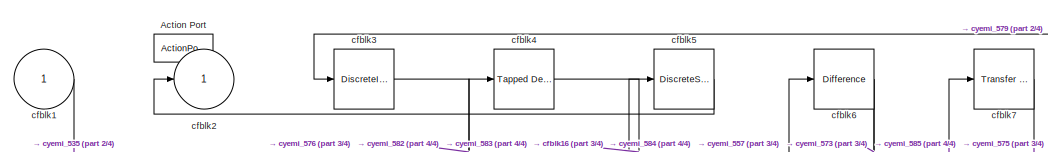
[diagram: cfblk218 - part 1/4, top center region]
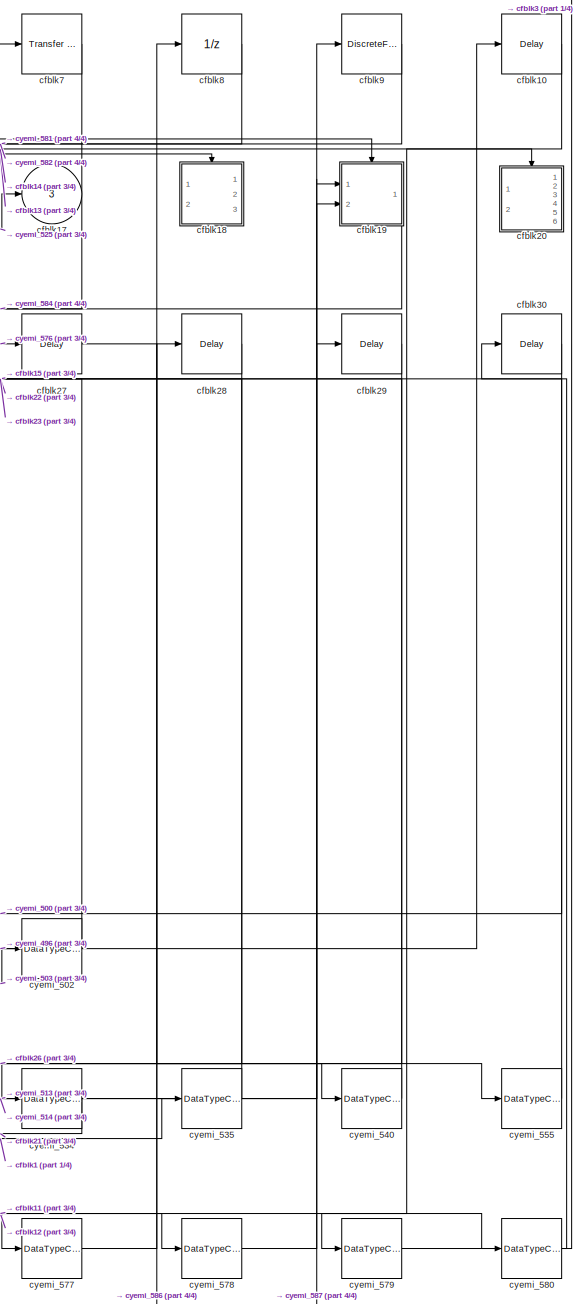
[diagram: cfblk218 - part 2/4, right side, full height]
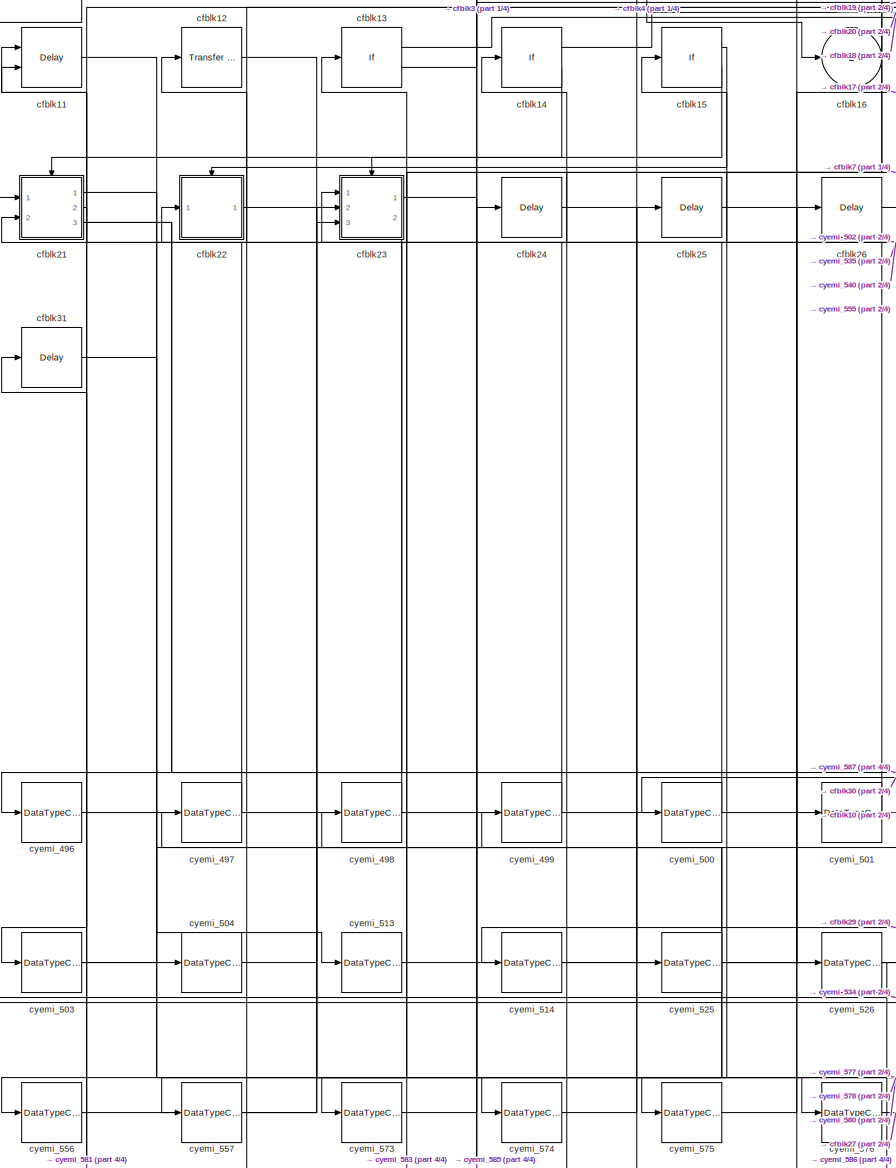
[diagram: cfblk218 - part 3/4, left side, full height]
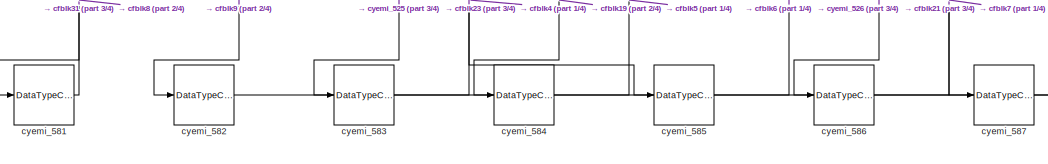
[diagram: cfblk218 - part 4/4, bottom center region]
BLOCK [SubSystem] cfblk218
  Ports = [1, 3, 0, 0, 0, 0, 0, 1]
  RequestExecContextInheritance = off
  TreatAsAtomicUnit = on
BLOCK [ActionPort] cfblk218/Action Port
  ActionType = else
BLOCK [Inport] cfblk218/cfblk1
  IconDisplay = Port number
BLOCK [Delay] cfblk218/cfblk10
  InputPortMap = u0
  Ports = [1, 1]
BLOCK [Delay] cfblk218/cfblk11
  InputPortMap = u0,e6
  Ports = [2, 1]
  ShowEnablePort = on
BLOCK [Reference] cfblk218/cfblk12  REF=simulink/Discrete/Transfer Fcn
Lead or Lag
  Ports = [1, 1]
  SourceBlock = simulink/Discrete/Transfer Fcn\nLead or Lag
  SourceProductBaseCode = SL
  SourceProductName = Simulink
  SourceType = Lead or Lag Compensator
BLOCK [If] cfblk218/cfblk13
  Ports = [1, 2]
  SampleTime = 1
BLOCK [If] cfblk218/cfblk14
  Ports = [1, 2]
  SampleTime = 1
BLOCK [If] cfblk218/cfblk15
  Ports = [1, 2]
  SampleTime = 1
BLOCK [Outport] cfblk218/cfblk16
  IconDisplay = Port number
  Port = 2
BLOCK [Outport] cfblk218/cfblk17
  IconDisplay = Port number
  Port = 3
BLOCK [SubSystem] cfblk218/cfblk18
  Ports = [2, 3, 0, 0, 0, 0, 0, 1]
  RequestExecContextInheritance = off
  TreatAsAtomicUnit = on
BLOCK [ActionPort] cfblk218/cfblk18/Action Port
  ActionType = then
BLOCK [Inport] cfblk218/cfblk18/cfblk1
  IconDisplay = Port number
BLOCK [Reference] cfblk218/cfblk18/cfblk10  REF=simulink/Discrete/Transfer Fcn
First Order
  Ports = [1, 1]
  SourceBlock = simulink/Discrete/Transfer Fcn\nFirst Order
  SourceProductBaseCode = SL
  SourceProductName = Simulink
  SourceType = First Order Transfer Fcn
BLOCK [Inport] cfblk218/cfblk18/cfblk11
  IconDisplay = Port number
  Port = 2
BLOCK [Outport] cfblk218/cfblk18/cfblk12
  IconDisplay = Port number
  Port = 2
BLOCK [Outport] cfblk218/cfblk18/cfblk13
  IconDisplay = Port number
  Port = 3
BLOCK [Outport] cfblk218/cfblk18/cfblk2
  IconDisplay = Port number
BLOCK [Reference] cfblk218/cfblk18/cfblk3  REF=simulink/Discrete/Transfer Fcn
Lead or Lag
  Ports = [1, 1]
  SourceBlock = simulink/Discrete/Transfer Fcn\nLead or Lag
  SourceProductBaseCode = SL
  SourceProductName = Simulink
  SourceType = Lead or Lag Compensator
BLOCK [DiscreteTransferFcn] cfblk218/cfblk18/cfblk4
  InputPortMap = u0
  Ports = [1, 1]
BLOCK [DiscreteStateSpace] cfblk218/cfblk18/cfblk5
  SampleTime = -1
BLOCK [Delay] cfblk218/cfblk18/cfblk6
  InputPortMap = u0
  Ports = [1, 1]
BLOCK [Reference] cfblk218/cfblk18/cfblk7  REF=simulink/Discrete/Transfer Fcn
Lead or Lag
  Ports = [1, 1]
  SourceBlock = simulink/Discrete/Transfer Fcn\nLead or Lag
  SourceProductBaseCode = SL
  SourceProductName = Simulink
  SourceType = Lead or Lag Compensator
BLOCK [DiscreteFir] cfblk218/cfblk18/cfblk9
  InputPortMap = u0
  OutputPortMap = o0
  Ports = [1, 1]
BLOCK [DataTypeConversion] cfblk218/cfblk18/cyemi_505
  OutDataTypeStr = double
  RndMeth = Floor
  SaturateOnIntegerOverflow = off
BLOCK [DataTypeConversion] cfblk218/cfblk18/cyemi_506
  OutDataTypeStr = double
  RndMeth = Floor
  SaturateOnIntegerOverflow = off
BLOCK [DataTypeConversion] cfblk218/cfblk18/cyemi_507
  OutDataTypeStr = double
  RndMeth = Floor
  SaturateOnIntegerOverflow = off
BLOCK [DataTypeConversion] cfblk218/cfblk18/cyemi_508
  OutDataTypeStr = double
  RndMeth = Floor
  SaturateOnIntegerOverflow = off
BLOCK [DataTypeConversion] cfblk218/cfblk18/cyemi_509
  OutDataTypeStr = double
  RndMeth = Floor
  SaturateOnIntegerOverflow = off
BLOCK [DataTypeConversion] cfblk218/cfblk18/cyemi_510
  OutDataTypeStr = double
  RndMeth = Floor
  SaturateOnIntegerOverflow = off
BLOCK [DataTypeConversion] cfblk218/cfblk18/cyemi_511
  OutDataTypeStr = double
  RndMeth = Floor
  SaturateOnIntegerOverflow = off
BLOCK [DataTypeConversion] cfblk218/cfblk18/cyemi_512
  OutDataTypeStr = double
  RndMeth = Floor
  SaturateOnIntegerOverflow = off
BLOCK [SubSystem] cfblk218/cfblk19
  Ports = [2, 1, 0, 0, 0, 0, 0, 1]
  RequestExecContextInheritance = off
  TreatAsAtomicUnit = on
BLOCK [ActionPort] cfblk218/cfblk19/Action Port
  ActionType = else
BLOCK [Inport] cfblk218/cfblk19/cfblk1
  IconDisplay = Port number
BLOCK [Inport] cfblk218/cfblk19/cfblk10
  IconDisplay = Port number
  Port = 2
BLOCK [Delay] cfblk218/cfblk19/cfblk11
  InputPortMap = u0
  Ports = [1, 1]
BLOCK [Outport] cfblk218/cfblk19/cfblk2
  IconDisplay = Port number
BLOCK [Reference] cfblk218/cfblk19/cfblk3  REF=simulink/Discrete/Tapped Delay
  Ports = [1, 1]
  SourceBlock = simulink/Discrete/Tapped Delay
  SourceProductBaseCode = SL
  SourceProductName = Simulink
  SourceType = Tapped Delay Line
BLOCK [Delay] cfblk218/cfblk19/cfblk4
  InputPortMap = u0
  Ports = [1, 1]
BLOCK [Delay] cfblk218/cfblk19/cfblk5
  InputPortMap = u0,e6
  Ports = [2, 1]
  ShowEnablePort = on
BLOCK [DiscreteZeroPole] cfblk218/cfblk19/cfblk6
  Gain = 1
  Poles = [0 0.5]
  SampleTime = -1
BLOCK [Reference] cfblk218/cfblk19/cfblk7  REF=simulink/Continuous/PID Controller (2DOF)
  Ports = [2, 1]
  SourceBlock = simulink/Continuous/PID Controller (2DOF)
  SourceProductBaseCode = SL
  SourceProductName = Simulink
  SourceType = PID 2dof
BLOCK [Reference] cfblk218/cfblk19/cfblk8  REF=simulink/Discrete/Difference
  Ports = [1, 1]
  SourceBlock = simulink/Discrete/Difference
  SourceProductBaseCode = SL
  SourceProductName = Simulink
  SourceType = Difference
BLOCK [Reference] cfblk218/cfblk19/cfblk9  REF=simulink/Discrete/Difference
  Ports = [1, 1]
  SourceBlock = simulink/Discrete/Difference
  SourceProductBaseCode = SL
  SourceProductName = Simulink
  SourceType = Difference
BLOCK [DataTypeConversion] cfblk218/cfblk19/cyemi_515
  OutDataTypeStr = double
  RndMeth = Floor
  SaturateOnIntegerOverflow = off
BLOCK [DataTypeConversion] cfblk218/cfblk19/cyemi_516
  OutDataTypeStr = double
  RndMeth = Floor
  SaturateOnIntegerOverflow = off
BLOCK [DataTypeConversion] cfblk218/cfblk19/cyemi_517
  OutDataTypeStr = double
  RndMeth = Floor
  SaturateOnIntegerOverflow = off
BLOCK [DataTypeConversion] cfblk218/cfblk19/cyemi_518
  OutDataTypeStr = double
  RndMeth = Floor
  SaturateOnIntegerOverflow = off
BLOCK [DataTypeConversion] cfblk218/cfblk19/cyemi_519
  OutDataTypeStr = double
  RndMeth = Floor
  SaturateOnIntegerOverflow = off
BLOCK [DataTypeConversion] cfblk218/cfblk19/cyemi_520
  OutDataTypeStr = double
  RndMeth = Floor
  SaturateOnIntegerOverflow = off
BLOCK [DataTypeConversion] cfblk218/cfblk19/cyemi_521
  OutDataTypeStr = double
  RndMeth = Floor
  SaturateOnIntegerOverflow = off
BLOCK [DataTypeConversion] cfblk218/cfblk19/cyemi_522
  OutDataTypeStr = double
  RndMeth = Floor
  SaturateOnIntegerOverflow = off
BLOCK [DataTypeConversion] cfblk218/cfblk19/cyemi_523
  OutDataTypeStr = double
  RndMeth = Floor
  SaturateOnIntegerOverflow = off
BLOCK [DataTypeConversion] cfblk218/cfblk19/cyemi_524
  OutDataTypeStr = double
  RndMeth = Floor
  SaturateOnIntegerOverflow = off
BLOCK [Outport] cfblk218/cfblk2
  IconDisplay = Port number
BLOCK [SubSystem] cfblk218/cfblk20
  Ports = [2, 6, 0, 0, 0, 0, 0, 1]
  RequestExecContextInheritance = off
  TreatAsAtomicUnit = on
BLOCK [ActionPort] cfblk218/cfblk20/Action Port
  ActionType = then
BLOCK [Inport] cfblk218/cfblk20/cfblk1
  IconDisplay = Port number
BLOCK [Inport] cfblk218/cfblk20/cfblk10
  IconDisplay = Port number
  Port = 2
BLOCK [Outport] cfblk218/cfblk20/cfblk11
  IconDisplay = Port number
  Port = 2
BLOCK [Outport] cfblk218/cfblk20/cfblk12
  IconDisplay = Port number
  Port = 3
BLOCK [Outport] cfblk218/cfblk20/cfblk13
  IconDisplay = Port number
  Port = 4
BLOCK [Outport] cfblk218/cfblk20/cfblk14
  IconDisplay = Port number
  Port = 5
BLOCK [Outport] cfblk218/cfblk20/cfblk15
  IconDisplay = Port number
  Port = 6
BLOCK [Outport] cfblk218/cfblk20/cfblk2
  IconDisplay = Port number
BLOCK [DiscreteIntegrator] cfblk218/cfblk20/cfblk3
  ICPrevOutput = DiscIntNeverNeededParam
  ICPrevScaledInput = DiscIntNeverNeededParam
  InitialConditionSetting = Auto
  Ports = [1, 1]
  SampleTime = -1
BLOCK [DiscreteTransferFcn] cfblk218/cfblk20/cfblk5
  InputPortMap = u0
  Ports = [1, 1]
BLOCK [DiscreteTransferFcn] cfblk218/cfblk20/cfblk6
  InputPortMap = u0
  Ports = [1, 1]
BLOCK [DiscreteStateSpace] cfblk218/cfblk20/cfblk8
  SampleTime = -1
BLOCK [DiscreteIntegrator] cfblk218/cfblk20/cfblk9
  ICPrevOutput = DiscIntNeverNeededParam
  ICPrevScaledInput = DiscIntNeverNeededParam
  InitialConditionSetting = Auto
  Ports = [1, 1]
  SampleTime = -1
BLOCK [DataTypeConversion] cfblk218/cfblk20/cyemi_527
  OutDataTypeStr = double
  RndMeth = Floor
  SaturateOnIntegerOverflow = off
BLOCK [DataTypeConversion] cfblk218/cfblk20/cyemi_528
  OutDataTypeStr = double
  RndMeth = Floor
  SaturateOnIntegerOverflow = off
BLOCK [DataTypeConversion] cfblk218/cfblk20/cyemi_529
  OutDataTypeStr = double
  RndMeth = Floor
  SaturateOnIntegerOverflow = off
BLOCK [DataTypeConversion] cfblk218/cfblk20/cyemi_530
  OutDataTypeStr = double
  RndMeth = Floor
  SaturateOnIntegerOverflow = off
BLOCK [DataTypeConversion] cfblk218/cfblk20/cyemi_531
  OutDataTypeStr = double
  RndMeth = Floor
  SaturateOnIntegerOverflow = off
BLOCK [DataTypeConversion] cfblk218/cfblk20/cyemi_532
  OutDataTypeStr = double
  RndMeth = Floor
  SaturateOnIntegerOverflow = off
BLOCK [DataTypeConversion] cfblk218/cfblk20/cyemi_533
  OutDataTypeStr = double
  RndMeth = Floor
  SaturateOnIntegerOverflow = off
BLOCK [SubSystem] cfblk218/cfblk21
  Ports = [2, 3, 0, 0, 0, 0, 0, 1]
  RequestExecContextInheritance = off
  TreatAsAtomicUnit = on
BLOCK [ActionPort] cfblk218/cfblk21/Action Port
  ActionType = else
BLOCK [Inport] cfblk218/cfblk21/cfblk1
  IconDisplay = Port number
BLOCK [Outport] cfblk218/cfblk21/cfblk2
  IconDisplay = Port number
BLOCK [Reference] cfblk218/cfblk21/cfblk3  REF=simulink/Continuous/PID Controller (2DOF)
  Ports = [2, 1]
  SourceBlock = simulink/Continuous/PID Controller (2DOF)
  SourceProductBaseCode = SL
  SourceProductName = Simulink
  SourceType = PID 2dof
BLOCK [UnitDelay] cfblk218/cfblk21/cfblk4
  InputProcessing = Elements as channels (sample based)
  SampleTime = -1
BLOCK [Reference] cfblk218/cfblk21/cfblk5  REF=simulink/Discrete/Difference
  Ports = [1, 1]
  SourceBlock = simulink/Discrete/Difference
  SourceProductBaseCode = SL
  SourceProductName = Simulink
  SourceType = Difference
BLOCK [Inport] cfblk218/cfblk21/cfblk6
  IconDisplay = Port number
  Port = 2
BLOCK [Outport] cfblk218/cfblk21/cfblk7
  IconDisplay = Port number
  Port = 2
BLOCK [Outport] cfblk218/cfblk21/cfblk8
  IconDisplay = Port number
  Port = 3
BLOCK [DataTypeConversion] cfblk218/cfblk21/cyemi_536
  OutDataTypeStr = double
  RndMeth = Floor
  SaturateOnIntegerOverflow = off
BLOCK [DataTypeConversion] cfblk218/cfblk21/cyemi_537
  OutDataTypeStr = double
  RndMeth = Floor
  SaturateOnIntegerOverflow = off
BLOCK [DataTypeConversion] cfblk218/cfblk21/cyemi_538
  OutDataTypeStr = double
  RndMeth = Floor
  SaturateOnIntegerOverflow = off
BLOCK [DataTypeConversion] cfblk218/cfblk21/cyemi_539
  OutDataTypeStr = double
  RndMeth = Floor
  SaturateOnIntegerOverflow = off
BLOCK [SubSystem] cfblk218/cfblk22
  Ports = [1, 1, 0, 0, 0, 0, 0, 1]
  RequestExecContextInheritance = off
  TreatAsAtomicUnit = on
BLOCK [ActionPort] cfblk218/cfblk22/Action Port
  ActionType = then
BLOCK [Inport] cfblk218/cfblk22/cfblk1
  IconDisplay = Port number
BLOCK [Reference] cfblk218/cfblk22/cfblk10  REF=simulink/Discrete/Transfer Fcn
Lead or Lag
  Ports = [1, 1]
  SourceBlock = simulink/Discrete/Transfer Fcn\nLead or Lag
  SourceProductBaseCode = SL
  SourceProductName = Simulink
  SourceType = Lead or Lag Compensator
BLOCK [Reference] cfblk218/cfblk22/cfblk11  REF=simulink/Discrete/Tapped Delay
  Ports = [1, 1]
  SourceBlock = simulink/Discrete/Tapped Delay
  SourceProductBaseCode = SL
  SourceProductName = Simulink
  SourceType = Tapped Delay Line
BLOCK [Delay] cfblk218/cfblk22/cfblk12
  InputPortMap = u0,e6
  Ports = [2, 1]
  ShowEnablePort = on
BLOCK [Reference] cfblk218/cfblk22/cfblk13  REF=simulink/Discrete/Transfer Fcn
Real Zero
  Ports = [1, 1]
  SourceBlock = simulink/Discrete/Transfer Fcn\nReal Zero
  SourceProductBaseCode = SL
  SourceProductName = Simulink
  SourceType = Transfer Fcn Real Zero
BLOCK [Delay] cfblk218/cfblk22/cfblk14
  InputPortMap = u0
  Ports = [1, 1]
BLOCK [Outport] cfblk218/cfblk22/cfblk2
  IconDisplay = Port number
BLOCK [DiscreteStateSpace] cfblk218/cfblk22/cfblk5
  SampleTime = -1
BLOCK [DiscreteStateSpace] cfblk218/cfblk22/cfblk6
  SampleTime = -1
BLOCK [DiscreteFilter] cfblk218/cfblk22/cfblk7
  InputPortMap = u0
  Ports = [1, 1]
BLOCK [Reference] cfblk218/cfblk22/cfblk8  REF=simulink/Continuous/PID Controller (2DOF)
  Ports = [2, 1]
  SourceBlock = simulink/Continuous/PID Controller (2DOF)
  SourceProductBaseCode = SL
  SourceProductName = Simulink
  SourceType = PID 2dof
BLOCK [DataTypeConversion] cfblk218/cfblk22/cyemi_541
  OutDataTypeStr = double
  RndMeth = Floor
  SaturateOnIntegerOverflow = off
BLOCK [DataTypeConversion] cfblk218/cfblk22/cyemi_542
  OutDataTypeStr = double
  RndMeth = Floor
  SaturateOnIntegerOverflow = off
BLOCK [DataTypeConversion] cfblk218/cfblk22/cyemi_543
  OutDataTypeStr = double
  RndMeth = Floor
  SaturateOnIntegerOverflow = off
BLOCK [DataTypeConversion] cfblk218/cfblk22/cyemi_544
  OutDataTypeStr = double
  RndMeth = Floor
  SaturateOnIntegerOverflow = off
BLOCK [DataTypeConversion] cfblk218/cfblk22/cyemi_545
  OutDataTypeStr = double
  RndMeth = Floor
  SaturateOnIntegerOverflow = off
BLOCK [DataTypeConversion] cfblk218/cfblk22/cyemi_546
  OutDataTypeStr = double
  RndMeth = Floor
  SaturateOnIntegerOverflow = off
BLOCK [DataTypeConversion] cfblk218/cfblk22/cyemi_547
  OutDataTypeStr = double
  RndMeth = Floor
  SaturateOnIntegerOverflow = off
BLOCK [DataTypeConversion] cfblk218/cfblk22/cyemi_548
  OutDataTypeStr = double
  RndMeth = Floor
  SaturateOnIntegerOverflow = off
BLOCK [DataTypeConversion] cfblk218/cfblk22/cyemi_549
  OutDataTypeStr = double
  RndMeth = Floor
  SaturateOnIntegerOverflow = off
BLOCK [DataTypeConversion] cfblk218/cfblk22/cyemi_550
  OutDataTypeStr = double
  RndMeth = Floor
  SaturateOnIntegerOverflow = off
BLOCK [DataTypeConversion] cfblk218/cfblk22/cyemi_551
  OutDataTypeStr = double
  RndMeth = Floor
  SaturateOnIntegerOverflow = off
BLOCK [DataTypeConversion] cfblk218/cfblk22/cyemi_552
  OutDataTypeStr = double
  RndMeth = Floor
  SaturateOnIntegerOverflow = off
BLOCK [DataTypeConversion] cfblk218/cfblk22/cyemi_553
  OutDataTypeStr = double
  RndMeth = Floor
  SaturateOnIntegerOverflow = off
BLOCK [DataTypeConversion] cfblk218/cfblk22/cyemi_554
  OutDataTypeStr = double
  RndMeth = Floor
  SaturateOnIntegerOverflow = off
BLOCK [SubSystem] cfblk218/cfblk23
  Ports = [3, 2, 0, 0, 0, 0, 0, 1]
  RequestExecContextInheritance = off
  TreatAsAtomicUnit = on
BLOCK [ActionPort] cfblk218/cfblk23/Action Port
  ActionType = else
BLOCK [Inport] cfblk218/cfblk23/cfblk1
  IconDisplay = Port number
BLOCK [Delay] cfblk218/cfblk23/cfblk10
  InputPortMap = u0
  Ports = [1, 1]
BLOCK [DiscreteFir] cfblk218/cfblk23/cfblk11
  InputPortMap = u0
  OutputPortMap = o0
  Ports = [1, 1]
BLOCK [Inport] cfblk218/cfblk23/cfblk12
  IconDisplay = Port number
  Port = 2
BLOCK [Inport] cfblk218/cfblk23/cfblk13
  IconDisplay = Port number
  Port = 3
BLOCK [Outport] cfblk218/cfblk23/cfblk14
  IconDisplay = Port number
  Port = 2
BLOCK [Delay] cfblk218/cfblk23/cfblk15
  InputPortMap = u0
  Ports = [1, 1]
BLOCK [Delay] cfblk218/cfblk23/cfblk16
  InputPortMap = u0
  Ports = [1, 1]
BLOCK [Delay] cfblk218/cfblk23/cfblk17
  InputPortMap = u0
  Ports = [1, 1]
BLOCK [Outport] cfblk218/cfblk23/cfblk2
  IconDisplay = Port number
BLOCK [Reference] cfblk218/cfblk23/cfblk3  REF=simulink/Continuous/PID Controller (2DOF)
  Ports = [2, 1]
  SourceBlock = simulink/Continuous/PID Controller (2DOF)
  SourceProductBaseCode = SL
  SourceProductName = Simulink
  SourceType = PID 2dof
BLOCK [UnitDelay] cfblk218/cfblk23/cfblk4
  InputProcessing = Elements as channels (sample based)
  SampleTime = -1
BLOCK [Reference] cfblk218/cfblk23/cfblk5  REF=simulink/Discrete/Transfer Fcn
Real Zero
  Ports = [1, 1]
  SourceBlock = simulink/Discrete/Transfer Fcn\nReal Zero
  SourceProductBaseCode = SL
  SourceProductName = Simulink
  SourceType = Transfer Fcn Real Zero
BLOCK [DiscreteFir] cfblk218/cfblk23/cfblk6
  InputPortMap = u0
  OutputPortMap = o0
  Ports = [1, 1]
BLOCK [Delay] cfblk218/cfblk23/cfblk7
  DelayLengthSource = Input port
  InputPortMap = u0,p1
  Ports = [2, 1]
BLOCK [Delay] cfblk218/cfblk23/cfblk8
  InputPortMap = u0,e6
  Ports = [2, 1]
  ShowEnablePort = on
BLOCK [Reference] cfblk218/cfblk23/cfblk9  REF=simulink/Discrete/Difference
  Ports = [1, 1]
  SourceBlock = simulink/Discrete/Difference
  SourceProductBaseCode = SL
  SourceProductName = Simulink
  SourceType = Difference
BLOCK [DataTypeConversion] cfblk218/cfblk23/cyemi_558
  OutDataTypeStr = double
  RndMeth = Floor
  SaturateOnIntegerOverflow = off
BLOCK [DataTypeConversion] cfblk218/cfblk23/cyemi_559
  OutDataTypeStr = double
  RndMeth = Floor
  SaturateOnIntegerOverflow = off
BLOCK [DataTypeConversion] cfblk218/cfblk23/cyemi_560
  OutDataTypeStr = double
  RndMeth = Floor
  SaturateOnIntegerOverflow = off
BLOCK [DataTypeConversion] cfblk218/cfblk23/cyemi_561
  OutDataTypeStr = double
  RndMeth = Floor
  SaturateOnIntegerOverflow = off
BLOCK [DataTypeConversion] cfblk218/cfblk23/cyemi_562
  OutDataTypeStr = double
  RndMeth = Floor
  SaturateOnIntegerOverflow = off
BLOCK [DataTypeConversion] cfblk218/cfblk23/cyemi_563
  OutDataTypeStr = double
  RndMeth = Floor
  SaturateOnIntegerOverflow = off
BLOCK [DataTypeConversion] cfblk218/cfblk23/cyemi_564
  OutDataTypeStr = double
  RndMeth = Floor
  SaturateOnIntegerOverflow = off
BLOCK [DataTypeConversion] cfblk218/cfblk23/cyemi_565
  OutDataTypeStr = double
  RndMeth = Floor
  SaturateOnIntegerOverflow = off
BLOCK [DataTypeConversion] cfblk218/cfblk23/cyemi_566
  OutDataTypeStr = double
  RndMeth = Floor
  SaturateOnIntegerOverflow = off
BLOCK [DataTypeConversion] cfblk218/cfblk23/cyemi_567
  OutDataTypeStr = double
  RndMeth = Floor
  SaturateOnIntegerOverflow = off
BLOCK [DataTypeConversion] cfblk218/cfblk23/cyemi_568
  OutDataTypeStr = double
  RndMeth = Floor
  SaturateOnIntegerOverflow = off
BLOCK [DataTypeConversion] cfblk218/cfblk23/cyemi_569
  OutDataTypeStr = double
  RndMeth = Floor
  SaturateOnIntegerOverflow = off
BLOCK [DataTypeConversion] cfblk218/cfblk23/cyemi_570
  OutDataTypeStr = double
  RndMeth = Floor
  SaturateOnIntegerOverflow = off
BLOCK [DataTypeConversion] cfblk218/cfblk23/cyemi_571
  OutDataTypeStr = double
  RndMeth = Floor
  SaturateOnIntegerOverflow = off
BLOCK [DataTypeConversion] cfblk218/cfblk23/cyemi_572
  OutDataTypeStr = double
  RndMeth = Floor
  SaturateOnIntegerOverflow = off
BLOCK [Delay] cfblk218/cfblk24
  InputPortMap = u0
  Ports = [1, 1]
BLOCK [Delay] cfblk218/cfblk25
  InputPortMap = u0
  Ports = [1, 1]
BLOCK [Delay] cfblk218/cfblk26
  InputPortMap = u0
  Ports = [1, 1]
BLOCK [Delay] cfblk218/cfblk27
  InputPortMap = u0
  Ports = [1, 1]
BLOCK [Delay] cfblk218/cfblk28
  InputPortMap = u0
  Ports = [1, 1]
BLOCK [Delay] cfblk218/cfblk29
  InputPortMap = u0
  Ports = [1, 1]
BLOCK [DiscreteIntegrator] cfblk218/cfblk3
  ICPrevOutput = DiscIntNeverNeededParam
  ICPrevScaledInput = DiscIntNeverNeededParam
  InitialConditionSetting = Auto
  Ports = [1, 1]
  SampleTime = -1
BLOCK [Delay] cfblk218/cfblk30
  InputPortMap = u0
  Ports = [1, 1]
BLOCK [Delay] cfblk218/cfblk31
  InputPortMap = u0
  Ports = [1, 1]
BLOCK [Reference] cfblk218/cfblk4  REF=simulink/Discrete/Tapped Delay
  Ports = [1, 1]
  SourceBlock = simulink/Discrete/Tapped Delay
  SourceProductBaseCode = SL
  SourceProductName = Simulink
  SourceType = Tapped Delay Line
BLOCK [DiscreteStateSpace] cfblk218/cfblk5
  SampleTime = -1
BLOCK [Reference] cfblk218/cfblk6  REF=simulink/Discrete/Difference
  Ports = [1, 1]
  SourceBlock = simulink/Discrete/Difference
  SourceProductBaseCode = SL
  SourceProductName = Simulink
  SourceType = Difference
BLOCK [Reference] cfblk218/cfblk7  REF=simulink/Discrete/Transfer Fcn
First Order
  Ports = [1, 1]
  SourceBlock = simulink/Discrete/Transfer Fcn\nFirst Order
  SourceProductBaseCode = SL
  SourceProductName = Simulink
  SourceType = First Order Transfer Fcn
BLOCK [UnitDelay] cfblk218/cfblk8
  InputProcessing = Elements as channels (sample based)
  SampleTime = -1
BLOCK [DiscreteFir] cfblk218/cfblk9
  InputPortMap = u0
  OutputPortMap = o0
  Ports = [1, 1]
BLOCK [DataTypeConversion] cfblk218/cyemi_496
  OutDataTypeStr = double
  RndMeth = Floor
  SaturateOnIntegerOverflow = off
BLOCK [DataTypeConversion] cfblk218/cyemi_497
  OutDataTypeStr = double
  RndMeth = Floor
  SaturateOnIntegerOverflow = off
BLOCK [DataTypeConversion] cfblk218/cyemi_498
  OutDataTypeStr = double
  RndMeth = Floor
  SaturateOnIntegerOverflow = off
BLOCK [DataTypeConversion] cfblk218/cyemi_499
  OutDataTypeStr = double
  RndMeth = Floor
  SaturateOnIntegerOverflow = off
BLOCK [DataTypeConversion] cfblk218/cyemi_500
  OutDataTypeStr = double
  RndMeth = Floor
  SaturateOnIntegerOverflow = off
BLOCK [DataTypeConversion] cfblk218/cyemi_501
  OutDataTypeStr = double
  RndMeth = Floor
  SaturateOnIntegerOverflow = off
BLOCK [DataTypeConversion] cfblk218/cyemi_502
  OutDataTypeStr = double
  RndMeth = Floor
  SaturateOnIntegerOverflow = off
BLOCK [DataTypeConversion] cfblk218/cyemi_503
  OutDataTypeStr = double
  RndMeth = Floor
  SaturateOnIntegerOverflow = off
BLOCK [DataTypeConversion] cfblk218/cyemi_504
  OutDataTypeStr = double
  RndMeth = Floor
  SaturateOnIntegerOverflow = off
BLOCK [DataTypeConversion] cfblk218/cyemi_513
  OutDataTypeStr = double
  RndMeth = Floor
  SaturateOnIntegerOverflow = off
BLOCK [DataTypeConversion] cfblk218/cyemi_514
  OutDataTypeStr = double
  RndMeth = Floor
  SaturateOnIntegerOverflow = off
BLOCK [DataTypeConversion] cfblk218/cyemi_525
  OutDataTypeStr = double
  RndMeth = Floor
  SaturateOnIntegerOverflow = off
BLOCK [DataTypeConversion] cfblk218/cyemi_526
  OutDataTypeStr = double
  RndMeth = Floor
  SaturateOnIntegerOverflow = off
BLOCK [DataTypeConversion] cfblk218/cyemi_534
  OutDataTypeStr = double
  RndMeth = Floor
  SaturateOnIntegerOverflow = off
BLOCK [DataTypeConversion] cfblk218/cyemi_535
  OutDataTypeStr = double
  RndMeth = Floor
  SaturateOnIntegerOverflow = off
BLOCK [DataTypeConversion] cfblk218/cyemi_540
  OutDataTypeStr = double
  RndMeth = Floor
  SaturateOnIntegerOverflow = off
BLOCK [DataTypeConversion] cfblk218/cyemi_555
  OutDataTypeStr = double
  RndMeth = Floor
  SaturateOnIntegerOverflow = off
BLOCK [DataTypeConversion] cfblk218/cyemi_556
  OutDataTypeStr = double
  RndMeth = Floor
  SaturateOnIntegerOverflow = off
BLOCK [DataTypeConversion] cfblk218/cyemi_557
  OutDataTypeStr = double
  RndMeth = Floor
  SaturateOnIntegerOverflow = off
BLOCK [DataTypeConversion] cfblk218/cyemi_573
  OutDataTypeStr = double
  RndMeth = Floor
  SaturateOnIntegerOverflow = off
BLOCK [DataTypeConversion] cfblk218/cyemi_574
  OutDataTypeStr = double
  RndMeth = Floor
  SaturateOnIntegerOverflow = off
BLOCK [DataTypeConversion] cfblk218/cyemi_575
  OutDataTypeStr = double
  RndMeth = Floor
  SaturateOnIntegerOverflow = off
BLOCK [DataTypeConversion] cfblk218/cyemi_576
  OutDataTypeStr = double
  RndMeth = Floor
  SaturateOnIntegerOverflow = off
BLOCK [DataTypeConversion] cfblk218/cyemi_577
  OutDataTypeStr = double
  RndMeth = Floor
  SaturateOnIntegerOverflow = off
BLOCK [DataTypeConversion] cfblk218/cyemi_578
  OutDataTypeStr = double
  RndMeth = Floor
  SaturateOnIntegerOverflow = off
BLOCK [DataTypeConversion] cfblk218/cyemi_579
  OutDataTypeStr = double
  RndMeth = Floor
  SaturateOnIntegerOverflow = off
BLOCK [DataTypeConversion] cfblk218/cyemi_580
  OutDataTypeStr = double
  RndMeth = Floor
  SaturateOnIntegerOverflow = off
BLOCK [DataTypeConversion] cfblk218/cyemi_581
  OutDataTypeStr = double
  RndMeth = Floor
  SaturateOnIntegerOverflow = off
BLOCK [DataTypeConversion] cfblk218/cyemi_582
  OutDataTypeStr = double
  RndMeth = Floor
  SaturateOnIntegerOverflow = off
BLOCK [DataTypeConversion] cfblk218/cyemi_583
  OutDataTypeStr = double
  RndMeth = Floor
  SaturateOnIntegerOverflow = off
BLOCK [DataTypeConversion] cfblk218/cyemi_584
  OutDataTypeStr = double
  RndMeth = Floor
  SaturateOnIntegerOverflow = off
BLOCK [DataTypeConversion] cfblk218/cyemi_585
  OutDataTypeStr = double
  RndMeth = Floor
  SaturateOnIntegerOverflow = off
BLOCK [DataTypeConversion] cfblk218/cyemi_586
  OutDataTypeStr = double
  RndMeth = Floor
  SaturateOnIntegerOverflow = off
BLOCK [DataTypeConversion] cfblk218/cyemi_587
  OutDataTypeStr = double
  RndMeth = Floor
  SaturateOnIntegerOverflow = off
BLOCK [SubSystem] cfblk219
  Ports = [3, 1, 0, 0, 0, 0, 0, 1]
  RequestExecContextInheritance = off
  TreatAsAtomicUnit = on
BLOCK [ActionPort] cfblk219/Action Port
  ActionType = then
BLOCK [Inport] cfblk219/cfblk1
  IconDisplay = Port number
BLOCK [SubSystem] cfblk219/cfblk10
  Ports = [1, 1, 0, 0, 0, 0, 0, 1]
  RequestExecContextInheritance = off
  TreatAsAtomicUnit = on
BLOCK [ActionPort] cfblk219/cfblk10/Action Port
  ActionType = then
BLOCK [Inport] cfblk219/cfblk10/cfblk1
  IconDisplay = Port number
BLOCK [DiscreteStateSpace] cfblk219/cfblk10/cfblk10
  SampleTime = -1
BLOCK [Reference] cfblk219/cfblk10/cfblk11  REF=simulink/Discrete/Difference
  Ports = [1, 1]
  SourceBlock = simulink/Discrete/Difference
  SourceProductBaseCode = SL
  SourceProductName = Simulink
  SourceType = Difference
BLOCK [Reference] cfblk219/cfblk10/cfblk12  REF=simulink/Continuous/PID Controller
  Ports = [1, 1]
  SourceBlock = simulink/Continuous/PID Controller
  SourceProductBaseCode = SL
  SourceProductName = Simulink
  SourceType = PID 1dof
BLOCK [Delay] cfblk219/cfblk10/cfblk13
  InputPortMap = u0
  Ports = [1, 1]
BLOCK [Delay] cfblk219/cfblk10/cfblk14
  InputPortMap = u0
  Ports = [1, 1]
BLOCK [Outport] cfblk219/cfblk10/cfblk2
  IconDisplay = Port number
BLOCK [DiscreteFir] cfblk219/cfblk10/cfblk4
  InputPortMap = u0
  OutputPortMap = o0
  Ports = [1, 1]
BLOCK [DiscreteFilter] cfblk219/cfblk10/cfblk5
  InputPortMap = u0
  Ports = [1, 1]
BLOCK [DiscreteZeroPole] cfblk219/cfblk10/cfblk6
  Gain = 1
  Poles = [0 0.5]
  SampleTime = -1
BLOCK [Delay] cfblk219/cfblk10/cfblk8
  InputPortMap = u0
  Ports = [1, 1]
BLOCK [Delay] cfblk219/cfblk10/cfblk9
  DelayLengthSource = Input port
  InputPortMap = u0,p1
  Ports = [2, 1]
BLOCK [DataTypeConversion] cfblk219/cfblk10/cyemi_592
  OutDataTypeStr = double
  RndMeth = Floor
  SaturateOnIntegerOverflow = off
BLOCK [DataTypeConversion] cfblk219/cfblk10/cyemi_593
  OutDataTypeStr = double
  RndMeth = Floor
  SaturateOnIntegerOverflow = off
BLOCK [DataTypeConversion] cfblk219/cfblk10/cyemi_594
  OutDataTypeStr = double
  RndMeth = Floor
  SaturateOnIntegerOverflow = off
BLOCK [DataTypeConversion] cfblk219/cfblk10/cyemi_595
  OutDataTypeStr = double
  RndMeth = Floor
  SaturateOnIntegerOverflow = off
BLOCK [DataTypeConversion] cfblk219/cfblk10/cyemi_596
  OutDataTypeStr = double
  RndMeth = Floor
  SaturateOnIntegerOverflow = off
BLOCK [DataTypeConversion] cfblk219/cfblk10/cyemi_597
  OutDataTypeStr = double
  RndMeth = Floor
  SaturateOnIntegerOverflow = off
BLOCK [DataTypeConversion] cfblk219/cfblk10/cyemi_598
  OutDataTypeStr = double
  RndMeth = Floor
  SaturateOnIntegerOverflow = off
BLOCK [DataTypeConversion] cfblk219/cfblk10/cyemi_599
  OutDataTypeStr = double
  RndMeth = Floor
  SaturateOnIntegerOverflow = off
BLOCK [DataTypeConversion] cfblk219/cfblk10/cyemi_600
  OutDataTypeStr = double
  RndMeth = Floor
  SaturateOnIntegerOverflow = off
BLOCK [DataTypeConversion] cfblk219/cfblk10/cyemi_601
  OutDataTypeStr = double
  RndMeth = Floor
  SaturateOnIntegerOverflow = off
BLOCK [DataTypeConversion] cfblk219/cfblk10/cyemi_602
  OutDataTypeStr = double
  RndMeth = Floor
  SaturateOnIntegerOverflow = off
BLOCK [DataTypeConversion] cfblk219/cfblk10/cyemi_603
  OutDataTypeStr = double
  RndMeth = Floor
  SaturateOnIntegerOverflow = off
BLOCK [DataTypeConversion] cfblk219/cfblk10/cyemi_604
  OutDataTypeStr = double
  RndMeth = Floor
  SaturateOnIntegerOverflow = off
BLOCK [DataTypeConversion] cfblk219/cfblk10/cyemi_605
  OutDataTypeStr = double
  RndMeth = Floor
  SaturateOnIntegerOverflow = off
BLOCK [SubSystem] cfblk219/cfblk11
  Ports = [3, 3, 0, 0, 0, 0, 0, 1]
  RequestExecContextInheritance = off
  TreatAsAtomicUnit = on
BLOCK [ActionPort] cfblk219/cfblk11/Action Port
  ActionType = else
BLOCK [Inport] cfblk219/cfblk11/cfblk1
  IconDisplay = Port number
BLOCK [Outport] cfblk219/cfblk11/cfblk10
  IconDisplay = Port number
  Port = 3
BLOCK [Outport] cfblk219/cfblk11/cfblk2
  IconDisplay = Port number
BLOCK [DiscreteTransferFcn] cfblk219/cfblk11/cfblk3
  InputPortMap = u0
  Ports = [1, 1]
BLOCK [UnitDelay] cfblk219/cfblk11/cfblk5
  InputProcessing = Elements as channels (sample based)
  SampleTime = -1
BLOCK [DiscreteStateSpace] cfblk219/cfblk11/cfblk6
  SampleTime = -1
BLOCK [Inport] cfblk219/cfblk11/cfblk7
  IconDisplay = Port number
  Port = 2
BLOCK [Inport] cfblk219/cfblk11/cfblk8
  IconDisplay = Port number
  Port = 3
BLOCK [Outport] cfblk219/cfblk11/cfblk9
  IconDisplay = Port number
  Port = 2
BLOCK [DataTypeConversion] cfblk219/cfblk11/cyemi_609
  OutDataTypeStr = double
  RndMeth = Floor
  SaturateOnIntegerOverflow = off
BLOCK [DataTypeConversion] cfblk219/cfblk11/cyemi_610
  OutDataTypeStr = double
  RndMeth = Floor
  SaturateOnIntegerOverflow = off
BLOCK [DataTypeConversion] cfblk219/cfblk11/cyemi_611
  OutDataTypeStr = double
  RndMeth = Floor
  SaturateOnIntegerOverflow = off
BLOCK [DataTypeConversion] cfblk219/cfblk11/cyemi_612
  OutDataTypeStr = double
  RndMeth = Floor
  SaturateOnIntegerOverflow = off
BLOCK [Delay] cfblk219/cfblk12
  InputPortMap = u0
  Ports = [1, 1]
BLOCK [Delay] cfblk219/cfblk13
  InputPortMap = u0
  Ports = [1, 1]
BLOCK [Outport] cfblk219/cfblk2
  IconDisplay = Port number
BLOCK [Reference] cfblk219/cfblk5  REF=simulink/Continuous/PID Controller
  Ports = [1, 1]
  SourceBlock = simulink/Continuous/PID Controller
  SourceProductBaseCode = SL
  SourceProductName = Simulink
  SourceType = PID 1dof
BLOCK [DiscreteFir] cfblk219/cfblk6
  InputPortMap = u0
  OutputPortMap = o0
  Ports = [1, 1]
BLOCK [If] cfblk219/cfblk7
  Ports = [1, 2]
  SampleTime = 1
BLOCK [Inport] cfblk219/cfblk8
  IconDisplay = Port number
  Port = 2
BLOCK [Inport] cfblk219/cfblk9
  IconDisplay = Port number
  Port = 3
BLOCK [DataTypeConversion] cfblk219/cyemi_591
  OutDataTypeStr = double
  RndMeth = Floor
  SaturateOnIntegerOverflow = off
BLOCK [DataTypeConversion] cfblk219/cyemi_606
  OutDataTypeStr = double
  RndMeth = Floor
  SaturateOnIntegerOverflow = off
BLOCK [DataTypeConversion] cfblk219/cyemi_607
  OutDataTypeStr = double
  RndMeth = Floor
  SaturateOnIntegerOverflow = off
BLOCK [DataTypeConversion] cfblk219/cyemi_608
  OutDataTypeStr = double
  RndMeth = Floor
  SaturateOnIntegerOverflow = off
BLOCK [DataTypeConversion] cfblk219/cyemi_613
  OutDataTypeStr = double
  RndMeth = Floor
  SaturateOnIntegerOverflow = off
BLOCK [DataTypeConversion] cfblk219/cyemi_614
  OutDataTypeStr = double
  RndMeth = Floor
  SaturateOnIntegerOverflow = off
BLOCK [DataTypeConversion] cfblk219/cyemi_615
  OutDataTypeStr = double
  RndMeth = Floor
  SaturateOnIntegerOverflow = off
BLOCK [DataTypeConversion] cfblk219/cyemi_616
  OutDataTypeStr = double
  RndMeth = Floor
  SaturateOnIntegerOverflow = off
BLOCK [DataTypeConversion] cfblk219/cyemi_617
  OutDataTypeStr = double
  RndMeth = Floor
  SaturateOnIntegerOverflow = off
BLOCK [DataTypeConversion] cfblk219/cyemi_618
  OutDataTypeStr = double
  RndMeth = Floor
  SaturateOnIntegerOverflow = off
BLOCK [DataTypeConversion] cfblk219/cyemi_619
  OutDataTypeStr = double
  RndMeth = Floor
  SaturateOnIntegerOverflow = off
BLOCK [Reference] cfblk22  REF=simulink/Discrete/Transfer Fcn
Real Zero
  Ports = [1, 1]
  SourceBlock = simulink/Discrete/Transfer Fcn\nReal Zero
  SourceProductBaseCode = SL
  SourceProductName = Simulink
  SourceType = Transfer Fcn Real Zero
BLOCK [SubSystem] cfblk220
  Ports = [3, 4, 0, 0, 0, 0, 0, 1]
  RequestExecContextInheritance = off
  TreatAsAtomicUnit = on
BLOCK [ActionPort] cfblk220/Action Port
  ActionType = else
BLOCK [Inport] cfblk220/cfblk1
  IconDisplay = Port number
BLOCK [Inport] cfblk220/cfblk10
  IconDisplay = Port number
  Port = 2
BLOCK [Inport] cfblk220/cfblk11
  IconDisplay = Port number
  Port = 3
BLOCK [Outport] cfblk220/cfblk12
  IconDisplay = Port number
  Port = 2
BLOCK [Outport] cfblk220/cfblk13
  IconDisplay = Port number
  Port = 3
BLOCK [Outport] cfblk220/cfblk14
  IconDisplay = Port number
  Port = 4
BLOCK [Outport] cfblk220/cfblk2
  IconDisplay = Port number
BLOCK [Delay] cfblk220/cfblk3
  InputPortMap = u0
  Ports = [1, 1]
BLOCK [Delay] cfblk220/cfblk4
  DelayLengthSource = Input port
  InputPortMap = u0,p1
  Ports = [2, 1]
BLOCK [Delay] cfblk220/cfblk5
  InputPortMap = u0,e6
  Ports = [2, 1]
  ShowEnablePort = on
BLOCK [DiscreteIntegrator] cfblk220/cfblk6
  ICPrevOutput = DiscIntNeverNeededParam
  ICPrevScaledInput = DiscIntNeverNeededParam
  InitialConditionSetting = Auto
  Ports = [1, 1]
  SampleTime = -1
BLOCK [DiscreteTransferFcn] cfblk220/cfblk7
  InputPortMap = u0
  Ports = [1, 1]
BLOCK [Delay] cfblk220/cfblk8
  InputPortMap = u0,e6
  Ports = [2, 1]
  ShowEnablePort = on
BLOCK [DiscreteStateSpace] cfblk220/cfblk9
  SampleTime = -1
BLOCK [DataTypeConversion] cfblk220/cyemi_624
  OutDataTypeStr = double
  RndMeth = Floor
  SaturateOnIntegerOverflow = off
BLOCK [DataTypeConversion] cfblk220/cyemi_625
  OutDataTypeStr = double
  RndMeth = Floor
  SaturateOnIntegerOverflow = off
BLOCK [DataTypeConversion] cfblk220/cyemi_626
  OutDataTypeStr = double
  RndMeth = Floor
  SaturateOnIntegerOverflow = off
BLOCK [DataTypeConversion] cfblk220/cyemi_627
  OutDataTypeStr = double
  RndMeth = Floor
  SaturateOnIntegerOverflow = off
BLOCK [DataTypeConversion] cfblk220/cyemi_628
  OutDataTypeStr = double
  RndMeth = Floor
  SaturateOnIntegerOverflow = off
BLOCK [DataTypeConversion] cfblk220/cyemi_629
  OutDataTypeStr = double
  RndMeth = Floor
  SaturateOnIntegerOverflow = off
BLOCK [DataTypeConversion] cfblk220/cyemi_630
  OutDataTypeStr = double
  RndMeth = Floor
  SaturateOnIntegerOverflow = off
BLOCK [DataTypeConversion] cfblk220/cyemi_631
  OutDataTypeStr = double
  RndMeth = Floor
  SaturateOnIntegerOverflow = off
BLOCK [DataTypeConversion] cfblk220/cyemi_632
  OutDataTypeStr = double
  RndMeth = Floor
  SaturateOnIntegerOverflow = off
BLOCK [DataTypeConversion] cfblk220/cyemi_633
  OutDataTypeStr = double
  RndMeth = Floor
  SaturateOnIntegerOverflow = off
BLOCK [SubSystem] cfblk221
  Ports = [1, 1, 0, 0, 0, 0, 0, 1]
  RequestExecContextInheritance = off
  TreatAsAtomicUnit = on
BLOCK [ActionPort] cfblk221/Action Port
  ActionType = then
BLOCK [Inport] cfblk221/cfblk1
  IconDisplay = Port number
BLOCK [Outport] cfblk221/cfblk2
  IconDisplay = Port number
BLOCK [Reference] cfblk221/cfblk3  REF=simulink/Discrete/Transfer Fcn
Lead or Lag
  Ports = [1, 1]
  SourceBlock = simulink/Discrete/Transfer Fcn\nLead or Lag
  SourceProductBaseCode = SL
  SourceProductName = Simulink
  SourceType = Lead or Lag Compensator
BLOCK [DiscreteFir] cfblk221/cfblk5
  InputPortMap = u0
  OutputPortMap = o0
  Ports = [1, 1]
BLOCK [Delay] cfblk221/cfblk6
  InputPortMap = u0,e6
  Ports = [2, 1]
  ShowEnablePort = on
BLOCK [DiscreteFilter] cfblk221/cfblk7
  InputPortMap = u0
  Ports = [1, 1]
BLOCK [Delay] cfblk221/cfblk8
  InputPortMap = u0
  Ports = [1, 1]
BLOCK [Delay] cfblk221/cfblk9
  InputPortMap = u0
  Ports = [1, 1]
BLOCK [DataTypeConversion] cfblk221/cyemi_635
  OutDataTypeStr = double
  RndMeth = Floor
  SaturateOnIntegerOverflow = off
BLOCK [DataTypeConversion] cfblk221/cyemi_636
  OutDataTypeStr = double
  RndMeth = Floor
  SaturateOnIntegerOverflow = off
BLOCK [DataTypeConversion] cfblk221/cyemi_637
  OutDataTypeStr = double
  RndMeth = Floor
  SaturateOnIntegerOverflow = off
BLOCK [DataTypeConversion] cfblk221/cyemi_638
  OutDataTypeStr = double
  RndMeth = Floor
  SaturateOnIntegerOverflow = off
BLOCK [DataTypeConversion] cfblk221/cyemi_639
  OutDataTypeStr = double
  RndMeth = Floor
  SaturateOnIntegerOverflow = off
BLOCK [DataTypeConversion] cfblk221/cyemi_640
  OutDataTypeStr = double
  RndMeth = Floor
  SaturateOnIntegerOverflow = off
BLOCK [DataTypeConversion] cfblk221/cyemi_641
  OutDataTypeStr = double
  RndMeth = Floor
  SaturateOnIntegerOverflow = off
BLOCK [DataTypeConversion] cfblk221/cyemi_642
  OutDataTypeStr = double
  RndMeth = Floor
  SaturateOnIntegerOverflow = off
BLOCK [SubSystem] cfblk222
  Ports = [3, 2, 0, 0, 0, 0, 0, 1]
  RequestExecContextInheritance = off
  TreatAsAtomicUnit = on
BLOCK [ActionPort] cfblk222/Action Port
  ActionType = else
BLOCK [Inport] cfblk222/cfblk1
  IconDisplay = Port number
BLOCK [Outport] cfblk222/cfblk2
  IconDisplay = Port number
BLOCK [Reference] cfblk222/cfblk3  REF=simulink/Discrete/Transfer Fcn
Lead or Lag
  Ports = [1, 1]
  SourceBlock = simulink/Discrete/Transfer Fcn\nLead or Lag
  SourceProductBaseCode = SL
  SourceProductName = Simulink
  SourceType = Lead or Lag Compensator
BLOCK [Delay] cfblk222/cfblk4
  InputPortMap = u0,e6
  Ports = [2, 1]
  ShowEnablePort = on
BLOCK [DiscreteFilter] cfblk222/cfblk5
  InputPortMap = u0
  Ports = [1, 1]
BLOCK [Inport] cfblk222/cfblk6
  IconDisplay = Port number
  Port = 2
BLOCK [Inport] cfblk222/cfblk7
  IconDisplay = Port number
  Port = 3
BLOCK [Outport] cfblk222/cfblk8
  IconDisplay = Port number
  Port = 2
BLOCK [DataTypeConversion] cfblk222/cyemi_646
  OutDataTypeStr = double
  RndMeth = Floor
  SaturateOnIntegerOverflow = off
BLOCK [DataTypeConversion] cfblk222/cyemi_647
  OutDataTypeStr = double
  RndMeth = Floor
  SaturateOnIntegerOverflow = off
BLOCK [DataTypeConversion] cfblk222/cyemi_648
  OutDataTypeStr = double
  RndMeth = Floor
  SaturateOnIntegerOverflow = off
BLOCK [DataTypeConversion] cfblk222/cyemi_649
  OutDataTypeStr = double
  RndMeth = Floor
  SaturateOnIntegerOverflow = off
BLOCK [SubSystem] cfblk223
  Ports = [2, 2, 0, 0, 0, 0, 0, 1]
  RequestExecContextInheritance = off
  TreatAsAtomicUnit = on
BLOCK [ActionPort] cfblk223/Action Port
  ActionType = then
BLOCK [Inport] cfblk223/cfblk1
  IconDisplay = Port number
BLOCK [Outport] cfblk223/cfblk2
  IconDisplay = Port number
BLOCK [Delay] cfblk223/cfblk3
  DelayLengthSource = Input port
  InputPortMap = u0,p1
  Ports = [2, 1]
BLOCK [DiscreteFilter] cfblk223/cfblk4
  InputPortMap = u0
  Ports = [1, 1]
BLOCK [DiscreteZeroPole] cfblk223/cfblk5
  Gain = 1
  Poles = [0 0.5]
  SampleTime = -1
BLOCK [DiscreteStateSpace] cfblk223/cfblk6
  SampleTime = -1
BLOCK [Reference] cfblk223/cfblk7  REF=simulink/Discrete/Difference
  Ports = [1, 1]
  SourceBlock = simulink/Discrete/Difference
  SourceProductBaseCode = SL
  SourceProductName = Simulink
  SourceType = Difference
BLOCK [Inport] cfblk223/cfblk8
  IconDisplay = Port number
  Port = 2
BLOCK [Outport] cfblk223/cfblk9
  IconDisplay = Port number
  Port = 2
BLOCK [DataTypeConversion] cfblk223/cyemi_652
  OutDataTypeStr = double
  RndMeth = Floor
  SaturateOnIntegerOverflow = off
BLOCK [DataTypeConversion] cfblk223/cyemi_653
  OutDataTypeStr = double
  RndMeth = Floor
  SaturateOnIntegerOverflow = off
BLOCK [DataTypeConversion] cfblk223/cyemi_654
  OutDataTypeStr = double
  RndMeth = Floor
  SaturateOnIntegerOverflow = off
BLOCK [DataTypeConversion] cfblk223/cyemi_655
  OutDataTypeStr = double
  RndMeth = Floor
  SaturateOnIntegerOverflow = off
BLOCK [DataTypeConversion] cfblk223/cyemi_656
  OutDataTypeStr = double
  RndMeth = Floor
  SaturateOnIntegerOverflow = off
BLOCK [DataTypeConversion] cfblk223/cyemi_657
  OutDataTypeStr = double
  RndMeth = Floor
  SaturateOnIntegerOverflow = off
BLOCK [SubSystem] cfblk224
  Ports = [1, 1, 0, 0, 0, 0, 0, 1]
  RequestExecContextInheritance = off
  TreatAsAtomicUnit = on
BLOCK [ActionPort] cfblk224/Action Port
  ActionType = else
BLOCK [Inport] cfblk224/cfblk1
  IconDisplay = Port number
BLOCK [Delay] cfblk224/cfblk10
  InputPortMap = u0
  Ports = [1, 1]
BLOCK [Delay] cfblk224/cfblk11
  InputPortMap = u0
  Ports = [1, 1]
BLOCK [Delay] cfblk224/cfblk12
  InputPortMap = u0
  Ports = [1, 1]
BLOCK [Delay] cfblk224/cfblk13
  InputPortMap = u0
  Ports = [1, 1]
BLOCK [Outport] cfblk224/cfblk2
  IconDisplay = Port number
BLOCK [Reference] cfblk224/cfblk3  REF=simulink/Discrete/Difference
  Ports = [1, 1]
  SourceBlock = simulink/Discrete/Difference
  SourceProductBaseCode = SL
  SourceProductName = Simulink
  SourceType = Difference
BLOCK [Delay] cfblk224/cfblk6
  DelayLengthSource = Input port
  InputPortMap = u0,p1
  Ports = [2, 1]
BLOCK [SubSystem] cfblk224/cfblk8
  Ports = [3, 4, 0, 0, 0, 0, 0, 1]
  RequestExecContextInheritance = off
  TreatAsAtomicUnit = on
BLOCK [ActionPort] cfblk224/cfblk8/Action Port
BLOCK [Inport] cfblk224/cfblk8/cfblk1
  IconDisplay = Port number
BLOCK [Delay] cfblk224/cfblk8/cfblk10
  DelayLengthSource = Input port
  InputPortMap = u0,p1
  Ports = [2, 1]
BLOCK [Delay] cfblk224/cfblk8/cfblk11
  InputPortMap = u0,e6
  Ports = [2, 1]
  ShowEnablePort = on
BLOCK [Inport] cfblk224/cfblk8/cfblk12
  IconDisplay = Port number
  Port = 2
BLOCK [Inport] cfblk224/cfblk8/cfblk13
  IconDisplay = Port number
  Port = 3
BLOCK [Outport] cfblk224/cfblk8/cfblk14
  IconDisplay = Port number
  Port = 2
BLOCK [Outport] cfblk224/cfblk8/cfblk15
  IconDisplay = Port number
  Port = 3
BLOCK [Outport] cfblk224/cfblk8/cfblk16
  IconDisplay = Port number
  Port = 4
BLOCK [Outport] cfblk224/cfblk8/cfblk2
  IconDisplay = Port number
BLOCK [Reference] cfblk224/cfblk8/cfblk3  REF=simulink/Discrete/Transfer Fcn
First Order
  Ports = [1, 1]
  SourceBlock = simulink/Discrete/Transfer Fcn\nFirst Order
  SourceProductBaseCode = SL
  SourceProductName = Simulink
  SourceType = First Order Transfer Fcn
BLOCK [Reference] cfblk224/cfblk8/cfblk4  REF=simulink/Discrete/Transfer Fcn
Lead or Lag
  Ports = [1, 1]
  SourceBlock = simulink/Discrete/Transfer Fcn\nLead or Lag
  SourceProductBaseCode = SL
  SourceProductName = Simulink
  SourceType = Lead or Lag Compensator
BLOCK [Reference] cfblk224/cfblk8/cfblk5  REF=simulink/Discrete/Tapped Delay
  Ports = [1, 1]
  SourceBlock = simulink/Discrete/Tapped Delay
  SourceProductBaseCode = SL
  SourceProductName = Simulink
  SourceType = Tapped Delay Line
BLOCK [Reference] cfblk224/cfblk8/cfblk6  REF=simulink/Continuous/PID Controller
  Ports = [1, 1]
  SourceBlock = simulink/Continuous/PID Controller
  SourceProductBaseCode = SL
  SourceProductName = Simulink
  SourceType = PID 1dof
BLOCK [Delay] cfblk224/cfblk8/cfblk8
  DelayLengthSource = Input port
  InputPortMap = u0,p1
  Ports = [2, 1]
BLOCK [Delay] cfblk224/cfblk8/cfblk9
  InputPortMap = u0,e6
  Ports = [2, 1]
  ShowEnablePort = on
BLOCK [DataTypeConversion] cfblk224/cfblk8/cyemi_672
  OutDataTypeStr = double
  RndMeth = Floor
  SaturateOnIntegerOverflow = off
BLOCK [DataTypeConversion] cfblk224/cfblk8/cyemi_673
  OutDataTypeStr = double
  RndMeth = Floor
  SaturateOnIntegerOverflow = off
BLOCK [DataTypeConversion] cfblk224/cfblk8/cyemi_674
  OutDataTypeStr = double
  RndMeth = Floor
  SaturateOnIntegerOverflow = off
BLOCK [DataTypeConversion] cfblk224/cfblk8/cyemi_675
  OutDataTypeStr = double
  RndMeth = Floor
  SaturateOnIntegerOverflow = off
BLOCK [DataTypeConversion] cfblk224/cfblk8/cyemi_676
  OutDataTypeStr = double
  RndMeth = Floor
  SaturateOnIntegerOverflow = off
BLOCK [DataTypeConversion] cfblk224/cfblk8/cyemi_677
  OutDataTypeStr = double
  RndMeth = Floor
  SaturateOnIntegerOverflow = off
BLOCK [DataTypeConversion] cfblk224/cfblk8/cyemi_678
  OutDataTypeStr = double
  RndMeth = Floor
  SaturateOnIntegerOverflow = off
BLOCK [DataTypeConversion] cfblk224/cfblk8/cyemi_679
  OutDataTypeStr = double
  RndMeth = Floor
  SaturateOnIntegerOverflow = off
BLOCK [DataTypeConversion] cfblk224/cfblk8/cyemi_680
  OutDataTypeStr = double
  RndMeth = Floor
  SaturateOnIntegerOverflow = off
BLOCK [DataTypeConversion] cfblk224/cfblk8/cyemi_681
  OutDataTypeStr = double
  RndMeth = Floor
  SaturateOnIntegerOverflow = off
BLOCK [DataTypeConversion] cfblk224/cfblk8/cyemi_682
  OutDataTypeStr = double
  RndMeth = Floor
  SaturateOnIntegerOverflow = off
BLOCK [DataTypeConversion] cfblk224/cfblk8/cyemi_683
  OutDataTypeStr = double
  RndMeth = Floor
  SaturateOnIntegerOverflow = off
BLOCK [DataTypeConversion] cfblk224/cfblk8/cyemi_684
  OutDataTypeStr = double
  RndMeth = Floor
  SaturateOnIntegerOverflow = off
BLOCK [SubSystem] cfblk224/cfblk9
  Ports = [2, 2, 0, 0, 0, 0, 0, 1]
  RequestExecContextInheritance = off
  TreatAsAtomicUnit = on
BLOCK [ActionPort] cfblk224/cfblk9/Action Port
BLOCK [Inport] cfblk224/cfblk9/cfblk1
  IconDisplay = Port number
BLOCK [Delay] cfblk224/cfblk9/cfblk10
  InputPortMap = u0
  Ports = [1, 1]
BLOCK [Outport] cfblk224/cfblk9/cfblk2
  IconDisplay = Port number
BLOCK [DiscreteIntegrator] cfblk224/cfblk9/cfblk3
  ICPrevOutput = DiscIntNeverNeededParam
  ICPrevScaledInput = DiscIntNeverNeededParam
  InitialConditionSetting = Auto
  Ports = [1, 1]
  SampleTime = -1
BLOCK [Delay] cfblk224/cfblk9/cfblk4
  InputPortMap = u0,e6
  Ports = [2, 1]
  ShowEnablePort = on
BLOCK [Reference] cfblk224/cfblk9/cfblk5  REF=simulink/Continuous/PID Controller (2DOF)
  Ports = [2, 1]
  SourceBlock = simulink/Continuous/PID Controller (2DOF)
  SourceProductBaseCode = SL
  SourceProductName = Simulink
  SourceType = PID 2dof
BLOCK [Inport] cfblk224/cfblk9/cfblk8
  IconDisplay = Port number
  Port = 2
BLOCK [Outport] cfblk224/cfblk9/cfblk9
  IconDisplay = Port number
  Port = 2
BLOCK [DataTypeConversion] cfblk224/cfblk9/cyemi_687
  OutDataTypeStr = double
  RndMeth = Floor
  SaturateOnIntegerOverflow = off
BLOCK [DataTypeConversion] cfblk224/cfblk9/cyemi_688
  OutDataTypeStr = double
  RndMeth = Floor
  SaturateOnIntegerOverflow = off
BLOCK [DataTypeConversion] cfblk224/cfblk9/cyemi_689
  OutDataTypeStr = double
  RndMeth = Floor
  SaturateOnIntegerOverflow = off
BLOCK [DataTypeConversion] cfblk224/cfblk9/cyemi_690
  OutDataTypeStr = double
  RndMeth = Floor
  SaturateOnIntegerOverflow = off
BLOCK [DataTypeConversion] cfblk224/cfblk9/cyemi_691
  OutDataTypeStr = double
  RndMeth = Floor
  SaturateOnIntegerOverflow = off
BLOCK [DataTypeConversion] cfblk224/cfblk9/cyemi_692
  OutDataTypeStr = double
  RndMeth = Floor
  SaturateOnIntegerOverflow = off
BLOCK [DataTypeConversion] cfblk224/cfblk9/cyemi_693
  OutDataTypeStr = double
  RndMeth = Floor
  SaturateOnIntegerOverflow = off
BLOCK [DataTypeConversion] cfblk224/cfblk9/cyemi_694
  OutDataTypeStr = double
  RndMeth = Floor
  SaturateOnIntegerOverflow = off
BLOCK [DataTypeConversion] cfblk224/cyemi_659
  OutDataTypeStr = double
  RndMeth = Floor
  SaturateOnIntegerOverflow = off
BLOCK [DataTypeConversion] cfblk224/cyemi_660
  OutDataTypeStr = double
  RndMeth = Floor
  SaturateOnIntegerOverflow = off
BLOCK [DataTypeConversion] cfblk224/cyemi_661
  OutDataTypeStr = double
  RndMeth = Floor
  SaturateOnIntegerOverflow = off
BLOCK [DataTypeConversion] cfblk224/cyemi_662
  OutDataTypeStr = double
  RndMeth = Floor
  SaturateOnIntegerOverflow = off
BLOCK [DataTypeConversion] cfblk224/cyemi_663
  OutDataTypeStr = double
  RndMeth = Floor
  SaturateOnIntegerOverflow = off
BLOCK [DataTypeConversion] cfblk224/cyemi_664
  OutDataTypeStr = double
  RndMeth = Floor
  SaturateOnIntegerOverflow = off
BLOCK [DataTypeConversion] cfblk224/cyemi_665
  OutDataTypeStr = double
  RndMeth = Floor
  SaturateOnIntegerOverflow = off
BLOCK [DataTypeConversion] cfblk224/cyemi_666
  OutDataTypeStr = double
  RndMeth = Floor
  SaturateOnIntegerOverflow = off
BLOCK [DataTypeConversion] cfblk224/cyemi_667
  OutDataTypeStr = double
  RndMeth = Floor
  SaturateOnIntegerOverflow = off
BLOCK [DataTypeConversion] cfblk224/cyemi_668
  OutDataTypeStr = double
  RndMeth = Floor
  SaturateOnIntegerOverflow = off
BLOCK [DataTypeConversion] cfblk224/cyemi_669
  OutDataTypeStr = double
  RndMeth = Floor
  SaturateOnIntegerOverflow = off
BLOCK [DataTypeConversion] cfblk224/cyemi_670
  OutDataTypeStr = double
  RndMeth = Floor
  SaturateOnIntegerOverflow = off
BLOCK [DataTypeConversion] cfblk224/cyemi_671
  OutDataTypeStr = double
  RndMeth = Floor
  SaturateOnIntegerOverflow = off
BLOCK [DataTypeConversion] cfblk224/cyemi_685
  OutDataTypeStr = double
  RndMeth = Floor
  SaturateOnIntegerOverflow = off
BLOCK [DataTypeConversion] cfblk224/cyemi_686
  OutDataTypeStr = double
  RndMeth = Floor
  SaturateOnIntegerOverflow = off
BLOCK [SubSystem] cfblk225
  Ports = [3, 1, 0, 0, 0, 0, 0, 1]
  RequestExecContextInheritance = off
  TreatAsAtomicUnit = on
BLOCK [ActionPort] cfblk225/Action Port
  ActionType = then
BLOCK [Inport] cfblk225/cfblk1
  IconDisplay = Port number
BLOCK [DiscreteIntegrator] cfblk225/cfblk10
  ICPrevOutput = DiscIntNeverNeededParam
  ICPrevScaledInput = DiscIntNeverNeededParam
  InitialConditionSetting = Auto
  Ports = [1, 1]
  SampleTime = -1
BLOCK [Reference] cfblk225/cfblk11  REF=simulink/Continuous/PID Controller
  Ports = [1, 1]
  SourceBlock = simulink/Continuous/PID Controller
  SourceProductBaseCode = SL
  SourceProductName = Simulink
  SourceType = PID 1dof
BLOCK [If] cfblk225/cfblk13
  Ports = [1, 2]
  SampleTime = 1
BLOCK [Inport] cfblk225/cfblk14
  IconDisplay = Port number
  Port = 2
BLOCK [Inport] cfblk225/cfblk15
  IconDisplay = Port number
  Port = 3
BLOCK [SubSystem] cfblk225/cfblk16
  Ports = [2, 1, 0, 0, 0, 0, 0, 1]
  RequestExecContextInheritance = off
  TreatAsAtomicUnit = on
BLOCK [ActionPort] cfblk225/cfblk16/Action Port
  ActionType = then
BLOCK [Inport] cfblk225/cfblk16/cfblk1
  IconDisplay = Port number
BLOCK [Outport] cfblk225/cfblk16/cfblk2
  IconDisplay = Port number
BLOCK [Reference] cfblk225/cfblk16/cfblk3  REF=simulink/Discrete/Transfer Fcn
Real Zero
  Ports = [1, 1]
  SourceBlock = simulink/Discrete/Transfer Fcn\nReal Zero
  SourceProductBaseCode = SL
  SourceProductName = Simulink
  SourceType = Transfer Fcn Real Zero
BLOCK [UnitDelay] cfblk225/cfblk16/cfblk6
  InputProcessing = Elements as channels (sample based)
  SampleTime = -1
BLOCK [Inport] cfblk225/cfblk16/cfblk7
  IconDisplay = Port number
  Port = 2
BLOCK [DataTypeConversion] cfblk225/cfblk16/cyemi_704
  OutDataTypeStr = double
  RndMeth = Floor
  SaturateOnIntegerOverflow = off
BLOCK [DataTypeConversion] cfblk225/cfblk16/cyemi_705
  OutDataTypeStr = double
  RndMeth = Floor
  SaturateOnIntegerOverflow = off
BLOCK [DataTypeConversion] cfblk225/cfblk16/cyemi_706
  OutDataTypeStr = double
  RndMeth = Floor
  SaturateOnIntegerOverflow = off
BLOCK [DataTypeConversion] cfblk225/cfblk16/cyemi_707
  OutDataTypeStr = double
  RndMeth = Floor
  SaturateOnIntegerOverflow = off
BLOCK [SubSystem] cfblk225/cfblk17
  Ports = [1, 1, 0, 0, 0, 0, 0, 1]
  RequestExecContextInheritance = off
  TreatAsAtomicUnit = on
BLOCK [ActionPort] cfblk225/cfblk17/Action Port
  ActionType = else
BLOCK [Inport] cfblk225/cfblk17/cfblk1
  IconDisplay = Port number
BLOCK [Delay] cfblk225/cfblk17/cfblk10
  InputPortMap = u0
  Ports = [1, 1]
BLOCK [DiscreteFilter] cfblk225/cfblk17/cfblk11
  InputPortMap = u0
  Ports = [1, 1]
BLOCK [DiscreteZeroPole] cfblk225/cfblk17/cfblk12
  Gain = 1
  Poles = [0 0.5]
  SampleTime = -1
BLOCK [Reference] cfblk225/cfblk17/cfblk13  REF=simulink/Discrete/Transfer Fcn
First Order
  Ports = [1, 1]
  SourceBlock = simulink/Discrete/Transfer Fcn\nFirst Order
  SourceProductBaseCode = SL
  SourceProductName = Simulink
  SourceType = First Order Transfer Fcn
BLOCK [Reference] cfblk225/cfblk17/cfblk14  REF=simulink/Discrete/Transfer Fcn
Lead or Lag
  Ports = [1, 1]
  SourceBlock = simulink/Discrete/Transfer Fcn\nLead or Lag
  SourceProductBaseCode = SL
  SourceProductName = Simulink
  SourceType = Lead or Lag Compensator
BLOCK [Delay] cfblk225/cfblk17/cfblk15
  InputPortMap = u0
  Ports = [1, 1]
BLOCK [Delay] cfblk225/cfblk17/cfblk16
  InputPortMap = u0
  Ports = [1, 1]
BLOCK [Delay] cfblk225/cfblk17/cfblk17
  InputPortMap = u0
  Ports = [1, 1]
BLOCK [Outport] cfblk225/cfblk17/cfblk2
  IconDisplay = Port number
BLOCK [Reference] cfblk225/cfblk17/cfblk4  REF=simulink/Continuous/PID Controller (2DOF)
  Ports = [2, 1]
  SourceBlock = simulink/Continuous/PID Controller (2DOF)
  SourceProductBaseCode = SL
  SourceProductName = Simulink
  SourceType = PID 2dof
BLOCK [DiscreteStateSpace] cfblk225/cfblk17/cfblk6
  SampleTime = -1
BLOCK [DiscreteTransferFcn] cfblk225/cfblk17/cfblk7
  InputPortMap = u0
  Ports = [1, 1]
BLOCK [Delay] cfblk225/cfblk17/cfblk8
  DelayLengthSource = Input port
  InputPortMap = u0,p1
  Ports = [2, 1]
BLOCK [DataTypeConversion] cfblk225/cfblk17/cyemi_709
  OutDataTypeStr = double
  RndMeth = Floor
  SaturateOnIntegerOverflow = off
BLOCK [DataTypeConversion] cfblk225/cfblk17/cyemi_710
  OutDataTypeStr = double
  RndMeth = Floor
  SaturateOnIntegerOverflow = off
BLOCK [DataTypeConversion] cfblk225/cfblk17/cyemi_711
  OutDataTypeStr = double
  RndMeth = Floor
  SaturateOnIntegerOverflow = off
BLOCK [DataTypeConversion] cfblk225/cfblk17/cyemi_712
  OutDataTypeStr = double
  RndMeth = Floor
  SaturateOnIntegerOverflow = off
BLOCK [DataTypeConversion] cfblk225/cfblk17/cyemi_713
  OutDataTypeStr = double
  RndMeth = Floor
  SaturateOnIntegerOverflow = off
BLOCK [DataTypeConversion] cfblk225/cfblk17/cyemi_714
  OutDataTypeStr = double
  RndMeth = Floor
  SaturateOnIntegerOverflow = off
BLOCK [DataTypeConversion] cfblk225/cfblk17/cyemi_715
  OutDataTypeStr = double
  RndMeth = Floor
  SaturateOnIntegerOverflow = off
BLOCK [DataTypeConversion] cfblk225/cfblk17/cyemi_716
  OutDataTypeStr = double
  RndMeth = Floor
  SaturateOnIntegerOverflow = off
BLOCK [DataTypeConversion] cfblk225/cfblk17/cyemi_717
  OutDataTypeStr = double
  RndMeth = Floor
  SaturateOnIntegerOverflow = off
BLOCK [DataTypeConversion] cfblk225/cfblk17/cyemi_718
  OutDataTypeStr = double
  RndMeth = Floor
  SaturateOnIntegerOverflow = off
BLOCK [DataTypeConversion] cfblk225/cfblk17/cyemi_719
  OutDataTypeStr = double
  RndMeth = Floor
  SaturateOnIntegerOverflow = off
BLOCK [DataTypeConversion] cfblk225/cfblk17/cyemi_720
  OutDataTypeStr = double
  RndMeth = Floor
  SaturateOnIntegerOverflow = off
BLOCK [DataTypeConversion] cfblk225/cfblk17/cyemi_721
  OutDataTypeStr = double
  RndMeth = Floor
  SaturateOnIntegerOverflow = off
BLOCK [DataTypeConversion] cfblk225/cfblk17/cyemi_722
  OutDataTypeStr = double
  RndMeth = Floor
  SaturateOnIntegerOverflow = off
BLOCK [DataTypeConversion] cfblk225/cfblk17/cyemi_723
  OutDataTypeStr = double
  RndMeth = Floor
  SaturateOnIntegerOverflow = off
BLOCK [DataTypeConversion] cfblk225/cfblk17/cyemi_724
  OutDataTypeStr = double
  RndMeth = Floor
  SaturateOnIntegerOverflow = off
BLOCK [DataTypeConversion] cfblk225/cfblk17/cyemi_725
  OutDataTypeStr = double
  RndMeth = Floor
  SaturateOnIntegerOverflow = off
BLOCK [DataTypeConversion] cfblk225/cfblk17/cyemi_726
  OutDataTypeStr = double
  RndMeth = Floor
  SaturateOnIntegerOverflow = off
BLOCK [Delay] cfblk225/cfblk18
  InputPortMap = u0
  Ports = [1, 1]
BLOCK [Delay] cfblk225/cfblk19
  InputPortMap = u0
  Ports = [1, 1]
BLOCK [Outport] cfblk225/cfblk2
  IconDisplay = Port number
BLOCK [Delay] cfblk225/cfblk20
  InputPortMap = u0
  Ports = [1, 1]
BLOCK [Reference] cfblk225/cfblk3  REF=simulink/Continuous/PID Controller
  Ports = [1, 1]
  SourceBlock = simulink/Continuous/PID Controller
  SourceProductBaseCode = SL
  SourceProductName = Simulink
  SourceType = PID 1dof
BLOCK [Reference] cfblk225/cfblk4  REF=simulink/Discrete/Transfer Fcn
Lead or Lag
  Ports = [1, 1]
  SourceBlock = simulink/Discrete/Transfer Fcn\nLead or Lag
  SourceProductBaseCode = SL
  SourceProductName = Simulink
  SourceType = Lead or Lag Compensator
BLOCK [Reference] cfblk225/cfblk5  REF=simulink/Discrete/Difference
  Ports = [1, 1]
  SourceBlock = simulink/Discrete/Difference
  SourceProductBaseCode = SL
  SourceProductName = Simulink
  SourceType = Difference
BLOCK [Reference] cfblk225/cfblk6  REF=simulink/Continuous/PID Controller (2DOF)
  Ports = [2, 1]
  SourceBlock = simulink/Continuous/PID Controller (2DOF)
  SourceProductBaseCode = SL
  SourceProductName = Simulink
  SourceType = PID 2dof
BLOCK [Delay] cfblk225/cfblk7
  InputPortMap = u0
  Ports = [1, 1]
BLOCK [Delay] cfblk225/cfblk8
  InputPortMap = u0
  Ports = [1, 1]
BLOCK [Delay] cfblk225/cfblk9
  InputPortMap = u0
  Ports = [1, 1]
BLOCK [DataTypeConversion] cfblk225/cyemi_698
  OutDataTypeStr = double
  RndMeth = Floor
  SaturateOnIntegerOverflow = off
BLOCK [DataTypeConversion] cfblk225/cyemi_699
  OutDataTypeStr = double
  RndMeth = Floor
  SaturateOnIntegerOverflow = off
BLOCK [DataTypeConversion] cfblk225/cyemi_700
  OutDataTypeStr = double
  RndMeth = Floor
  SaturateOnIntegerOverflow = off
BLOCK [DataTypeConversion] cfblk225/cyemi_701
  OutDataTypeStr = double
  RndMeth = Floor
  SaturateOnIntegerOverflow = off
BLOCK [DataTypeConversion] cfblk225/cyemi_702
  OutDataTypeStr = double
  RndMeth = Floor
  SaturateOnIntegerOverflow = off
BLOCK [DataTypeConversion] cfblk225/cyemi_703
  OutDataTypeStr = double
  RndMeth = Floor
  SaturateOnIntegerOverflow = off
BLOCK [DataTypeConversion] cfblk225/cyemi_708
  OutDataTypeStr = double
  RndMeth = Floor
  SaturateOnIntegerOverflow = off
BLOCK [DataTypeConversion] cfblk225/cyemi_727
  OutDataTypeStr = double
  RndMeth = Floor
  SaturateOnIntegerOverflow = off
BLOCK [DataTypeConversion] cfblk225/cyemi_728
  OutDataTypeStr = double
  RndMeth = Floor
  SaturateOnIntegerOverflow = off
BLOCK [DataTypeConversion] cfblk225/cyemi_729
  OutDataTypeStr = double
  RndMeth = Floor
  SaturateOnIntegerOverflow = off
BLOCK [DataTypeConversion] cfblk225/cyemi_730
  OutDataTypeStr = double
  RndMeth = Floor
  SaturateOnIntegerOverflow = off
BLOCK [DataTypeConversion] cfblk225/cyemi_731
  OutDataTypeStr = double
  RndMeth = Floor
  SaturateOnIntegerOverflow = off
BLOCK [DataTypeConversion] cfblk225/cyemi_732
  OutDataTypeStr = double
  RndMeth = Floor
  SaturateOnIntegerOverflow = off
BLOCK [DataTypeConversion] cfblk225/cyemi_733
  OutDataTypeStr = double
  RndMeth = Floor
  SaturateOnIntegerOverflow = off
BLOCK [DataTypeConversion] cfblk225/cyemi_734
  OutDataTypeStr = double
  RndMeth = Floor
  SaturateOnIntegerOverflow = off
BLOCK [DataTypeConversion] cfblk225/cyemi_735
  OutDataTypeStr = double
  RndMeth = Floor
  SaturateOnIntegerOverflow = off
BLOCK [DataTypeConversion] cfblk225/cyemi_736
  OutDataTypeStr = double
  RndMeth = Floor
  SaturateOnIntegerOverflow = off
BLOCK [DataTypeConversion] cfblk225/cyemi_737
  OutDataTypeStr = double
  RndMeth = Floor
  SaturateOnIntegerOverflow = off
BLOCK [SubSystem] cfblk226
  Ports = [1, 3, 0, 0, 0, 0, 0, 1]
  RequestExecContextInheritance = off
  TreatAsAtomicUnit = on
BLOCK [ActionPort] cfblk226/Action Port
  ActionType = else
BLOCK [Inport] cfblk226/cfblk1
  IconDisplay = Port number
BLOCK [Reference] cfblk226/cfblk10  REF=simulink/Continuous/PID Controller (2DOF)
  Ports = [2, 1]
  SourceBlock = simulink/Continuous/PID Controller (2DOF)
  SourceProductBaseCode = SL
  SourceProductName = Simulink
  SourceType = PID 2dof
BLOCK [Reference] cfblk226/cfblk11  REF=simulink/Discrete/Difference
  Ports = [1, 1]
  SourceBlock = simulink/Discrete/Difference
  SourceProductBaseCode = SL
  SourceProductName = Simulink
  SourceType = Difference
BLOCK [Reference] cfblk226/cfblk12  REF=simulink/Discrete/Transfer Fcn
Lead or Lag
  Ports = [1, 1]
  SourceBlock = simulink/Discrete/Transfer Fcn\nLead or Lag
  SourceProductBaseCode = SL
  SourceProductName = Simulink
  SourceType = Lead or Lag Compensator
BLOCK [Reference] cfblk226/cfblk13  REF=simulink/Discrete/Transfer Fcn
Lead or Lag
  Ports = [1, 1]
  SourceBlock = simulink/Discrete/Transfer Fcn\nLead or Lag
  SourceProductBaseCode = SL
  SourceProductName = Simulink
  SourceType = Lead or Lag Compensator
BLOCK [Outport] cfblk226/cfblk14
  IconDisplay = Port number
  Port = 2
BLOCK [Outport] cfblk226/cfblk15
  IconDisplay = Port number
  Port = 3
BLOCK [Delay] cfblk226/cfblk16
  InputPortMap = u0
  Ports = [1, 1]
BLOCK [Delay] cfblk226/cfblk17
  InputPortMap = u0
  Ports = [1, 1]
BLOCK [Outport] cfblk226/cfblk2
  IconDisplay = Port number
BLOCK [Delay] cfblk226/cfblk3
  InputPortMap = u0,e6
  Ports = [2, 1]
  ShowEnablePort = on
BLOCK [DiscreteTransferFcn] cfblk226/cfblk4
  InputPortMap = u0
  Ports = [1, 1]
BLOCK [Delay] cfblk226/cfblk5
  InputPortMap = u0
  Ports = [1, 1]
BLOCK [Reference] cfblk226/cfblk6  REF=simulink/Discrete/Transfer Fcn
Real Zero
  Ports = [1, 1]
  SourceBlock = simulink/Discrete/Transfer Fcn\nReal Zero
  SourceProductBaseCode = SL
  SourceProductName = Simulink
  SourceType = Transfer Fcn Real Zero
BLOCK [DiscreteFir] cfblk226/cfblk7
  InputPortMap = u0
  OutputPortMap = o0
  Ports = [1, 1]
BLOCK [UnitDelay] cfblk226/cfblk8
  InputProcessing = Elements as channels (sample based)
  SampleTime = -1
BLOCK [Delay] cfblk226/cfblk9
  DelayLengthSource = Input port
  InputPortMap = u0,p1
  Ports = [2, 1]
BLOCK [DataTypeConversion] cfblk226/cyemi_739
  OutDataTypeStr = double
  RndMeth = Floor
  SaturateOnIntegerOverflow = off
BLOCK [DataTypeConversion] cfblk226/cyemi_740
  OutDataTypeStr = double
  RndMeth = Floor
  SaturateOnIntegerOverflow = off
BLOCK [DataTypeConversion] cfblk226/cyemi_741
  OutDataTypeStr = double
  RndMeth = Floor
  SaturateOnIntegerOverflow = off
BLOCK [DataTypeConversion] cfblk226/cyemi_742
  OutDataTypeStr = double
  RndMeth = Floor
  SaturateOnIntegerOverflow = off
BLOCK [DataTypeConversion] cfblk226/cyemi_743
  OutDataTypeStr = double
  RndMeth = Floor
  SaturateOnIntegerOverflow = off
BLOCK [DataTypeConversion] cfblk226/cyemi_744
  OutDataTypeStr = double
  RndMeth = Floor
  SaturateOnIntegerOverflow = off
BLOCK [DataTypeConversion] cfblk226/cyemi_745
  OutDataTypeStr = double
  RndMeth = Floor
  SaturateOnIntegerOverflow = off
BLOCK [DataTypeConversion] cfblk226/cyemi_746
  OutDataTypeStr = double
  RndMeth = Floor
  SaturateOnIntegerOverflow = off
BLOCK [DataTypeConversion] cfblk226/cyemi_747
  OutDataTypeStr = double
  RndMeth = Floor
  SaturateOnIntegerOverflow = off
BLOCK [DataTypeConversion] cfblk226/cyemi_748
  OutDataTypeStr = double
  RndMeth = Floor
  SaturateOnIntegerOverflow = off
BLOCK [DataTypeConversion] cfblk226/cyemi_749
  OutDataTypeStr = double
  RndMeth = Floor
  SaturateOnIntegerOverflow = off
BLOCK [DataTypeConversion] cfblk226/cyemi_750
  OutDataTypeStr = double
  RndMeth = Floor
  SaturateOnIntegerOverflow = off
BLOCK [DataTypeConversion] cfblk226/cyemi_751
  OutDataTypeStr = double
  RndMeth = Floor
  SaturateOnIntegerOverflow = off
BLOCK [DataTypeConversion] cfblk226/cyemi_752
  OutDataTypeStr = double
  RndMeth = Floor
  SaturateOnIntegerOverflow = off
BLOCK [DataTypeConversion] cfblk226/cyemi_753
  OutDataTypeStr = double
  RndMeth = Floor
  SaturateOnIntegerOverflow = off
BLOCK [DataTypeConversion] cfblk226/cyemi_754
  OutDataTypeStr = double
  RndMeth = Floor
  SaturateOnIntegerOverflow = off
BLOCK [SubSystem] cfblk227
  Ports = [2, 2, 0, 0, 0, 0, 0, 1]
  RequestExecContextInheritance = off
  TreatAsAtomicUnit = on
BLOCK [ActionPort] cfblk227/Action Port
  ActionType = then
BLOCK [Inport] cfblk227/cfblk1
  IconDisplay = Port number
BLOCK [Inport] cfblk227/cfblk11
  IconDisplay = Port number
  Port = 2
BLOCK [Outport] cfblk227/cfblk12
  IconDisplay = Port number
  Port = 2
BLOCK [SubSystem] cfblk227/cfblk13
  Ports = [3, 2, 0, 0, 0, 0, 0, 1]
  RequestExecContextInheritance = off
  TreatAsAtomicUnit = on
BLOCK [ActionPort] cfblk227/cfblk13/Action Port
BLOCK [Inport] cfblk227/cfblk13/cfblk1
  IconDisplay = Port number
BLOCK [Delay] cfblk227/cfblk13/cfblk10
  DelayLengthSource = Input port
  InputPortMap = u0,p1
  Ports = [2, 1]
BLOCK [Reference] cfblk227/cfblk13/cfblk11  REF=simulink/Discrete/Difference
  Ports = [1, 1]
  SourceBlock = simulink/Discrete/Difference
  SourceProductBaseCode = SL
  SourceProductName = Simulink
  SourceType = Difference
BLOCK [Reference] cfblk227/cfblk13/cfblk12  REF=simulink/Continuous/PID Controller (2DOF)
  Ports = [2, 1]
  SourceBlock = simulink/Continuous/PID Controller (2DOF)
  SourceProductBaseCode = SL
  SourceProductName = Simulink
  SourceType = PID 2dof
BLOCK [Inport] cfblk227/cfblk13/cfblk13
  IconDisplay = Port number
  Port = 2
BLOCK [Inport] cfblk227/cfblk13/cfblk14
  IconDisplay = Port number
  Port = 3
BLOCK [Outport] cfblk227/cfblk13/cfblk15
  IconDisplay = Port number
  Port = 2
BLOCK [Delay] cfblk227/cfblk13/cfblk16
  InputPortMap = u0
  Ports = [1, 1]
BLOCK [Outport] cfblk227/cfblk13/cfblk2
  IconDisplay = Port number
BLOCK [Reference] cfblk227/cfblk13/cfblk4  REF=simulink/Discrete/Difference
  Ports = [1, 1]
  SourceBlock = simulink/Discrete/Difference
  SourceProductBaseCode = SL
  SourceProductName = Simulink
  SourceType = Difference
BLOCK [UnitDelay] cfblk227/cfblk13/cfblk5
  InputProcessing = Elements as channels (sample based)
  SampleTime = -1
BLOCK [Delay] cfblk227/cfblk13/cfblk6
  InputPortMap = u0
  Ports = [1, 1]
BLOCK [Delay] cfblk227/cfblk13/cfblk7
  InputPortMap = u0,e6
  Ports = [2, 1]
  ShowEnablePort = on
BLOCK [Reference] cfblk227/cfblk13/cfblk8  REF=simulink/Discrete/Transfer Fcn
Lead or Lag
  Ports = [1, 1]
  SourceBlock = simulink/Discrete/Transfer Fcn\nLead or Lag
  SourceProductBaseCode = SL
  SourceProductName = Simulink
  SourceType = Lead or Lag Compensator
BLOCK [DataTypeConversion] cfblk227/cfblk13/cyemi_761
  OutDataTypeStr = double
  RndMeth = Floor
  SaturateOnIntegerOverflow = off
BLOCK [DataTypeConversion] cfblk227/cfblk13/cyemi_762
  OutDataTypeStr = double
  RndMeth = Floor
  SaturateOnIntegerOverflow = off
BLOCK [DataTypeConversion] cfblk227/cfblk13/cyemi_763
  OutDataTypeStr = double
  RndMeth = Floor
  SaturateOnIntegerOverflow = off
BLOCK [DataTypeConversion] cfblk227/cfblk13/cyemi_764
  OutDataTypeStr = double
  RndMeth = Floor
  SaturateOnIntegerOverflow = off
BLOCK [DataTypeConversion] cfblk227/cfblk13/cyemi_765
  OutDataTypeStr = double
  RndMeth = Floor
  SaturateOnIntegerOverflow = off
BLOCK [DataTypeConversion] cfblk227/cfblk13/cyemi_766
  OutDataTypeStr = double
  RndMeth = Floor
  SaturateOnIntegerOverflow = off
BLOCK [DataTypeConversion] cfblk227/cfblk13/cyemi_767
  OutDataTypeStr = double
  RndMeth = Floor
  SaturateOnIntegerOverflow = off
BLOCK [DataTypeConversion] cfblk227/cfblk13/cyemi_768
  OutDataTypeStr = double
  RndMeth = Floor
  SaturateOnIntegerOverflow = off
BLOCK [DataTypeConversion] cfblk227/cfblk13/cyemi_769
  OutDataTypeStr = double
  RndMeth = Floor
  SaturateOnIntegerOverflow = off
BLOCK [DataTypeConversion] cfblk227/cfblk13/cyemi_770
  OutDataTypeStr = double
  RndMeth = Floor
  SaturateOnIntegerOverflow = off
BLOCK [DataTypeConversion] cfblk227/cfblk13/cyemi_771
  OutDataTypeStr = double
  RndMeth = Floor
  SaturateOnIntegerOverflow = off
BLOCK [DataTypeConversion] cfblk227/cfblk13/cyemi_772
  OutDataTypeStr = double
  RndMeth = Floor
  SaturateOnIntegerOverflow = off
BLOCK [DataTypeConversion] cfblk227/cfblk13/cyemi_773
  OutDataTypeStr = double
  RndMeth = Floor
  SaturateOnIntegerOverflow = off
BLOCK [DataTypeConversion] cfblk227/cfblk13/cyemi_774
  OutDataTypeStr = double
  RndMeth = Floor
  SaturateOnIntegerOverflow = off
BLOCK [SubSystem] cfblk227/cfblk14
  Ports = [2, 2, 0, 0, 0, 0, 0, 1]
  RequestExecContextInheritance = off
  TreatAsAtomicUnit = on
BLOCK [ActionPort] cfblk227/cfblk14/Action Port
BLOCK [Inport] cfblk227/cfblk14/cfblk1
  IconDisplay = Port number
BLOCK [Outport] cfblk227/cfblk14/cfblk2
  IconDisplay = Port number
BLOCK [Reference] cfblk227/cfblk14/cfblk3  REF=simulink/Discrete/Tapped Delay
  Ports = [1, 1]
  SourceBlock = simulink/Discrete/Tapped Delay
  SourceProductBaseCode = SL
  SourceProductName = Simulink
  SourceType = Tapped Delay Line
BLOCK [Reference] cfblk227/cfblk14/cfblk4  REF=simulink/Discrete/Difference
  Ports = [1, 1]
  SourceBlock = simulink/Discrete/Difference
  SourceProductBaseCode = SL
  SourceProductName = Simulink
  SourceType = Difference
BLOCK [DiscreteIntegrator] cfblk227/cfblk14/cfblk5
  ICPrevOutput = DiscIntNeverNeededParam
  ICPrevScaledInput = DiscIntNeverNeededParam
  InitialConditionSetting = Auto
  Ports = [1, 1]
  SampleTime = -1
BLOCK [Inport] cfblk227/cfblk14/cfblk6
  IconDisplay = Port number
  Port = 2
BLOCK [Outport] cfblk227/cfblk14/cfblk7
  IconDisplay = Port number
  Port = 2
BLOCK [DataTypeConversion] cfblk227/cfblk14/cyemi_777
  OutDataTypeStr = double
  RndMeth = Floor
  SaturateOnIntegerOverflow = off
BLOCK [DataTypeConversion] cfblk227/cfblk14/cyemi_778
  OutDataTypeStr = double
  RndMeth = Floor
  SaturateOnIntegerOverflow = off
BLOCK [DataTypeConversion] cfblk227/cfblk14/cyemi_779
  OutDataTypeStr = double
  RndMeth = Floor
  SaturateOnIntegerOverflow = off
BLOCK [Delay] cfblk227/cfblk15
  InputPortMap = u0
  Ports = [1, 1]
BLOCK [Delay] cfblk227/cfblk16
  InputPortMap = u0
  Ports = [1, 1]
BLOCK [Delay] cfblk227/cfblk17
  InputPortMap = u0
  Ports = [1, 1]
BLOCK [Delay] cfblk227/cfblk18
  InputPortMap = u0
  Ports = [1, 1]
BLOCK [Outport] cfblk227/cfblk2
  IconDisplay = Port number
BLOCK [DiscreteStateSpace] cfblk227/cfblk4
  SampleTime = -1
BLOCK [Reference] cfblk227/cfblk6  REF=simulink/Discrete/Difference
  Ports = [1, 1]
  SourceBlock = simulink/Discrete/Difference
  SourceProductBaseCode = SL
  SourceProductName = Simulink
  SourceType = Difference
BLOCK [DiscreteFilter] cfblk227/cfblk7
  InputPortMap = u0
  Ports = [1, 1]
BLOCK [Delay] cfblk227/cfblk8
  InputPortMap = u0,e6
  Ports = [2, 1]
  ShowEnablePort = on
BLOCK [Reference] cfblk227/cfblk9  REF=simulink/Continuous/PID Controller
  Ports = [1, 1]
  SourceBlock = simulink/Continuous/PID Controller
  SourceProductBaseCode = SL
  SourceProductName = Simulink
  SourceType = PID 1dof
BLOCK [DataTypeConversion] cfblk227/cyemi_757
  OutDataTypeStr = double
  RndMeth = Floor
  SaturateOnIntegerOverflow = off
BLOCK [DataTypeConversion] cfblk227/cyemi_758
  OutDataTypeStr = double
  RndMeth = Floor
  SaturateOnIntegerOverflow = off
BLOCK [DataTypeConversion] cfblk227/cyemi_759
  OutDataTypeStr = double
  RndMeth = Floor
  SaturateOnIntegerOverflow = off
BLOCK [DataTypeConversion] cfblk227/cyemi_760
  OutDataTypeStr = double
  RndMeth = Floor
  SaturateOnIntegerOverflow = off
BLOCK [DataTypeConversion] cfblk227/cyemi_775
  OutDataTypeStr = double
  RndMeth = Floor
  SaturateOnIntegerOverflow = off
BLOCK [DataTypeConversion] cfblk227/cyemi_776
  OutDataTypeStr = double
  RndMeth = Floor
  SaturateOnIntegerOverflow = off
BLOCK [DataTypeConversion] cfblk227/cyemi_780
  OutDataTypeStr = double
  RndMeth = Floor
  SaturateOnIntegerOverflow = off
BLOCK [DataTypeConversion] cfblk227/cyemi_781
  OutDataTypeStr = double
  RndMeth = Floor
  SaturateOnIntegerOverflow = off
BLOCK [DataTypeConversion] cfblk227/cyemi_782
  OutDataTypeStr = double
  RndMeth = Floor
  SaturateOnIntegerOverflow = off
BLOCK [DataTypeConversion] cfblk227/cyemi_783
  OutDataTypeStr = double
  RndMeth = Floor
  SaturateOnIntegerOverflow = off
BLOCK [DataTypeConversion] cfblk227/cyemi_784
  OutDataTypeStr = double
  RndMeth = Floor
  SaturateOnIntegerOverflow = off
BLOCK [DataTypeConversion] cfblk227/cyemi_785
  OutDataTypeStr = double
  RndMeth = Floor
  SaturateOnIntegerOverflow = off
BLOCK [DataTypeConversion] cfblk227/cyemi_786
  OutDataTypeStr = double
  RndMeth = Floor
  SaturateOnIntegerOverflow = off
BLOCK [DataTypeConversion] cfblk227/cyemi_787
  OutDataTypeStr = double
  RndMeth = Floor
  SaturateOnIntegerOverflow = off
BLOCK [DataTypeConversion] cfblk227/cyemi_788
  OutDataTypeStr = double
  RndMeth = Floor
  SaturateOnIntegerOverflow = off
BLOCK [DataTypeConversion] cfblk227/cyemi_789
  OutDataTypeStr = double
  RndMeth = Floor
  SaturateOnIntegerOverflow = off
BLOCK [DataTypeConversion] cfblk227/cyemi_790
  OutDataTypeStr = double
  RndMeth = Floor
  SaturateOnIntegerOverflow = off
BLOCK [DataTypeConversion] cfblk227/cyemi_791
  OutDataTypeStr = double
  RndMeth = Floor
  SaturateOnIntegerOverflow = off
BLOCK [SubSystem] cfblk228
  Ports = [2, 1, 0, 0, 0, 0, 0, 1]
  RequestExecContextInheritance = off
  TreatAsAtomicUnit = on
BLOCK [ActionPort] cfblk228/Action Port
  ActionType = else
BLOCK [Inport] cfblk228/cfblk1
  IconDisplay = Port number
BLOCK [Outport] cfblk228/cfblk2
  IconDisplay = Port number
BLOCK [DiscreteFilter] cfblk228/cfblk3
  InputPortMap = u0
  Ports = [1, 1]
BLOCK [UnitDelay] cfblk228/cfblk4
  InputProcessing = Elements as channels (sample based)
  SampleTime = -1
BLOCK [Reference] cfblk228/cfblk5  REF=simulink/Discrete/Difference
  Ports = [1, 1]
  SourceBlock = simulink/Discrete/Difference
  SourceProductBaseCode = SL
  SourceProductName = Simulink
  SourceType = Difference
BLOCK [DiscreteIntegrator] cfblk228/cfblk6
  ICPrevOutput = DiscIntNeverNeededParam
  ICPrevScaledInput = DiscIntNeverNeededParam
  InitialConditionSetting = Auto
  Ports = [1, 1]
  SampleTime = -1
BLOCK [DiscreteFilter] cfblk228/cfblk7
  InputPortMap = u0
  Ports = [1, 1]
BLOCK [Inport] cfblk228/cfblk8
  IconDisplay = Port number
  Port = 2
BLOCK [DataTypeConversion] cfblk228/cyemi_794
  OutDataTypeStr = double
  RndMeth = Floor
  SaturateOnIntegerOverflow = off
BLOCK [DataTypeConversion] cfblk228/cyemi_795
  OutDataTypeStr = double
  RndMeth = Floor
  SaturateOnIntegerOverflow = off
BLOCK [DataTypeConversion] cfblk228/cyemi_796
  OutDataTypeStr = double
  RndMeth = Floor
  SaturateOnIntegerOverflow = off
BLOCK [DataTypeConversion] cfblk228/cyemi_797
  OutDataTypeStr = double
  RndMeth = Floor
  SaturateOnIntegerOverflow = off
BLOCK [DataTypeConversion] cfblk228/cyemi_798
  OutDataTypeStr = double
  RndMeth = Floor
  SaturateOnIntegerOverflow = off
BLOCK [SubSystem] cfblk229
  Ports = [3, 2, 0, 0, 0, 0, 0, 1]
  RequestExecContextInheritance = off
  TreatAsAtomicUnit = on
BLOCK [ActionPort] cfblk229/Action Port
  ActionType = then
BLOCK [Inport] cfblk229/cfblk1
  IconDisplay = Port number
BLOCK [UnitDelay] cfblk229/cfblk10
  InputProcessing = Elements as channels (sample based)
  SampleTime = -1
BLOCK [Reference] cfblk229/cfblk11  REF=simulink/Discrete/Difference
  Ports = [1, 1]
  SourceBlock = simulink/Discrete/Difference
  SourceProductBaseCode = SL
  SourceProductName = Simulink
  SourceType = Difference
BLOCK [Inport] cfblk229/cfblk12
  IconDisplay = Port number
  Port = 2
BLOCK [Inport] cfblk229/cfblk13
  IconDisplay = Port number
  Port = 3
BLOCK [Outport] cfblk229/cfblk14
  IconDisplay = Port number
  Port = 2
BLOCK [Delay] cfblk229/cfblk15
  InputPortMap = u0
  Ports = [1, 1]
BLOCK [Outport] cfblk229/cfblk2
  IconDisplay = Port number
BLOCK [DiscreteTransferFcn] cfblk229/cfblk3
  InputPortMap = u0
  Ports = [1, 1]
BLOCK [Reference] cfblk229/cfblk4  REF=simulink/Discrete/Transfer Fcn
Lead or Lag
  Ports = [1, 1]
  SourceBlock = simulink/Discrete/Transfer Fcn\nLead or Lag
  SourceProductBaseCode = SL
  SourceProductName = Simulink
  SourceType = Lead or Lag Compensator
BLOCK [Reference] cfblk229/cfblk5  REF=simulink/Discrete/Tapped Delay
  Ports = [1, 1]
  SourceBlock = simulink/Discrete/Tapped Delay
  SourceProductBaseCode = SL
  SourceProductName = Simulink
  SourceType = Tapped Delay Line
BLOCK [Reference] cfblk229/cfblk6  REF=simulink/Continuous/PID Controller (2DOF)
  Ports = [2, 1]
  SourceBlock = simulink/Continuous/PID Controller (2DOF)
  SourceProductBaseCode = SL
  SourceProductName = Simulink
  SourceType = PID 2dof
BLOCK [Reference] cfblk229/cfblk7  REF=simulink/Continuous/PID Controller
  Ports = [1, 1]
  SourceBlock = simulink/Continuous/PID Controller
  SourceProductBaseCode = SL
  SourceProductName = Simulink
  SourceType = PID 1dof
BLOCK [Reference] cfblk229/cfblk8  REF=simulink/Continuous/PID Controller
  Ports = [1, 1]
  SourceBlock = simulink/Continuous/PID Controller
  SourceProductBaseCode = SL
  SourceProductName = Simulink
  SourceType = PID 1dof
BLOCK [DiscreteZeroPole] cfblk229/cfblk9
  Gain = 1
  Poles = [0 0.5]
  SampleTime = -1
BLOCK [DataTypeConversion] cfblk229/cyemi_802
  OutDataTypeStr = double
  RndMeth = Floor
  SaturateOnIntegerOverflow = off
BLOCK [DataTypeConversion] cfblk229/cyemi_803
  OutDataTypeStr = double
  RndMeth = Floor
  SaturateOnIntegerOverflow = off
BLOCK [DataTypeConversion] cfblk229/cyemi_804
  OutDataTypeStr = double
  RndMeth = Floor
  SaturateOnIntegerOverflow = off
BLOCK [DataTypeConversion] cfblk229/cyemi_805
  OutDataTypeStr = double
  RndMeth = Floor
  SaturateOnIntegerOverflow = off
BLOCK [DataTypeConversion] cfblk229/cyemi_806
  OutDataTypeStr = double
  RndMeth = Floor
  SaturateOnIntegerOverflow = off
BLOCK [DataTypeConversion] cfblk229/cyemi_807
  OutDataTypeStr = double
  RndMeth = Floor
  SaturateOnIntegerOverflow = off
BLOCK [DataTypeConversion] cfblk229/cyemi_808
  OutDataTypeStr = double
  RndMeth = Floor
  SaturateOnIntegerOverflow = off
BLOCK [DataTypeConversion] cfblk229/cyemi_809
  OutDataTypeStr = uint8
  RndMeth = Floor
  SaturateOnIntegerOverflow = off
BLOCK [DataTypeConversion] cfblk229/cyemi_810
  OutDataTypeStr = double
  RndMeth = Floor
  SaturateOnIntegerOverflow = off
BLOCK [DataTypeConversion] cfblk229/cyemi_811
  OutDataTypeStr = double
  RndMeth = Floor
  SaturateOnIntegerOverflow = off
BLOCK [DataTypeConversion] cfblk229/cyemi_812
  OutDataTypeStr = double
  RndMeth = Floor
  SaturateOnIntegerOverflow = off
BLOCK [UnitDelay] cfblk23
  InputProcessing = Elements as channels (sample based)
BLOCK [SubSystem] cfblk230
  Ports = [1, 1, 0, 0, 0, 0, 0, 1]
  RequestExecContextInheritance = off
  TreatAsAtomicUnit = on
BLOCK [ActionPort] cfblk230/Action Port
  ActionType = else
BLOCK [Inport] cfblk230/cfblk1
  IconDisplay = Port number
BLOCK [SubSystem] cfblk230/cfblk10
  Ports = [1, 3, 0, 0, 0, 0, 0, 1]
  RequestExecContextInheritance = off
  TreatAsAtomicUnit = on
BLOCK [ActionPort] cfblk230/cfblk10/Action Port
  ActionType = then
BLOCK [Inport] cfblk230/cfblk10/cfblk1
  IconDisplay = Port number
BLOCK [UnitDelay] cfblk230/cfblk10/cfblk10
  InputProcessing = Elements as channels (sample based)
  SampleTime = -1
BLOCK [Outport] cfblk230/cfblk10/cfblk11
  IconDisplay = Port number
  Port = 2
BLOCK [Outport] cfblk230/cfblk10/cfblk12
  IconDisplay = Port number
  Port = 3
BLOCK [Delay] cfblk230/cfblk10/cfblk13
  InputPortMap = u0
  Ports = [1, 1]
BLOCK [Delay] cfblk230/cfblk10/cfblk14
  InputPortMap = u0
  Ports = [1, 1]
BLOCK [Outport] cfblk230/cfblk10/cfblk2
  IconDisplay = Port number
BLOCK [DiscreteFir] cfblk230/cfblk10/cfblk5
  InputPortMap = u0
  OutputPortMap = o0
  Ports = [1, 1]
BLOCK [UnitDelay] cfblk230/cfblk10/cfblk6
  InputProcessing = Elements as channels (sample based)
  SampleTime = -1
BLOCK [Reference] cfblk230/cfblk10/cfblk8  REF=simulink/Continuous/PID Controller
  Ports = [1, 1]
  SourceBlock = simulink/Continuous/PID Controller
  SourceProductBaseCode = SL
  SourceProductName = Simulink
  SourceType = PID 1dof
BLOCK [DiscreteIntegrator] cfblk230/cfblk10/cfblk9
  ICPrevOutput = DiscIntNeverNeededParam
  ICPrevScaledInput = DiscIntNeverNeededParam
  InitialConditionSetting = Auto
  Ports = [1, 1]
  SampleTime = -1
BLOCK [DataTypeConversion] cfblk230/cfblk10/cyemi_816
  OutDataTypeStr = double
  RndMeth = Floor
  SaturateOnIntegerOverflow = off
BLOCK [DataTypeConversion] cfblk230/cfblk10/cyemi_817
  OutDataTypeStr = double
  RndMeth = Floor
  SaturateOnIntegerOverflow = off
BLOCK [DataTypeConversion] cfblk230/cfblk10/cyemi_818
  OutDataTypeStr = double
  RndMeth = Floor
  SaturateOnIntegerOverflow = off
BLOCK [DataTypeConversion] cfblk230/cfblk10/cyemi_819
  OutDataTypeStr = double
  RndMeth = Floor
  SaturateOnIntegerOverflow = off
BLOCK [DataTypeConversion] cfblk230/cfblk10/cyemi_820
  OutDataTypeStr = double
  RndMeth = Floor
  SaturateOnIntegerOverflow = off
BLOCK [DataTypeConversion] cfblk230/cfblk10/cyemi_821
  OutDataTypeStr = double
  RndMeth = Floor
  SaturateOnIntegerOverflow = off
BLOCK [DataTypeConversion] cfblk230/cfblk10/cyemi_822
  OutDataTypeStr = double
  RndMeth = Floor
  SaturateOnIntegerOverflow = off
BLOCK [DataTypeConversion] cfblk230/cfblk10/cyemi_823
  OutDataTypeStr = double
  RndMeth = Floor
  SaturateOnIntegerOverflow = off
BLOCK [DataTypeConversion] cfblk230/cfblk10/cyemi_824
  OutDataTypeStr = double
  RndMeth = Floor
  SaturateOnIntegerOverflow = off
BLOCK [DataTypeConversion] cfblk230/cfblk10/cyemi_825
  OutDataTypeStr = double
  RndMeth = Floor
  SaturateOnIntegerOverflow = off
BLOCK [DataTypeConversion] cfblk230/cfblk10/cyemi_826
  OutDataTypeStr = double
  RndMeth = Floor
  SaturateOnIntegerOverflow = off
BLOCK [SubSystem] cfblk230/cfblk11
  Ports = [1, 3, 0, 0, 0, 0, 0, 1]
  RequestExecContextInheritance = off
  TreatAsAtomicUnit = on
BLOCK [ActionPort] cfblk230/cfblk11/Action Port
  ActionType = else
BLOCK [Inport] cfblk230/cfblk11/cfblk1
  IconDisplay = Port number
BLOCK [Outport] cfblk230/cfblk11/cfblk10
  IconDisplay = Port number
  Port = 2
BLOCK [Outport] cfblk230/cfblk11/cfblk11
  IconDisplay = Port number
  Port = 3
BLOCK [Delay] cfblk230/cfblk11/cfblk12
  InputPortMap = u0
  Ports = [1, 1]
BLOCK [Outport] cfblk230/cfblk11/cfblk2
  IconDisplay = Port number
BLOCK [Reference] cfblk230/cfblk11/cfblk3  REF=simulink/Discrete/Transfer Fcn
Lead or Lag
  Ports = [1, 1]
  SourceBlock = simulink/Discrete/Transfer Fcn\nLead or Lag
  SourceProductBaseCode = SL
  SourceProductName = Simulink
  SourceType = Lead or Lag Compensator
BLOCK [Delay] cfblk230/cfblk11/cfblk4
  InputPortMap = u0,e6
  Ports = [2, 1]
  ShowEnablePort = on
BLOCK [Reference] cfblk230/cfblk11/cfblk5  REF=simulink/Discrete/Tapped Delay
  Ports = [1, 1]
  SourceBlock = simulink/Discrete/Tapped Delay
  SourceProductBaseCode = SL
  SourceProductName = Simulink
  SourceType = Tapped Delay Line
BLOCK [Delay] cfblk230/cfblk11/cfblk6
  InputPortMap = u0,e6
  Ports = [2, 1]
  ShowEnablePort = on
BLOCK [Reference] cfblk230/cfblk11/cfblk7  REF=simulink/Discrete/Transfer Fcn
Real Zero
  Ports = [1, 1]
  SourceBlock = simulink/Discrete/Transfer Fcn\nReal Zero
  SourceProductBaseCode = SL
  SourceProductName = Simulink
  SourceType = Transfer Fcn Real Zero
BLOCK [Reference] cfblk230/cfblk11/cfblk8  REF=simulink/Discrete/Transfer Fcn
First Order
  Ports = [1, 1]
  SourceBlock = simulink/Discrete/Transfer Fcn\nFirst Order
  SourceProductBaseCode = SL
  SourceProductName = Simulink
  SourceType = First Order Transfer Fcn
BLOCK [DiscreteStateSpace] cfblk230/cfblk11/cfblk9
  SampleTime = -1
BLOCK [DataTypeConversion] cfblk230/cfblk11/cyemi_828
  OutDataTypeStr = double
  RndMeth = Floor
  SaturateOnIntegerOverflow = off
BLOCK [DataTypeConversion] cfblk230/cfblk11/cyemi_829
  OutDataTypeStr = double
  RndMeth = Floor
  SaturateOnIntegerOverflow = off
BLOCK [DataTypeConversion] cfblk230/cfblk11/cyemi_830
  OutDataTypeStr = double
  RndMeth = Floor
  SaturateOnIntegerOverflow = off
BLOCK [DataTypeConversion] cfblk230/cfblk11/cyemi_831
  OutDataTypeStr = double
  RndMeth = Floor
  SaturateOnIntegerOverflow = off
BLOCK [DataTypeConversion] cfblk230/cfblk11/cyemi_832
  OutDataTypeStr = double
  RndMeth = Floor
  SaturateOnIntegerOverflow = off
BLOCK [DataTypeConversion] cfblk230/cfblk11/cyemi_833
  OutDataTypeStr = double
  RndMeth = Floor
  SaturateOnIntegerOverflow = off
BLOCK [DataTypeConversion] cfblk230/cfblk11/cyemi_834
  OutDataTypeStr = double
  RndMeth = Floor
  SaturateOnIntegerOverflow = off
BLOCK [DataTypeConversion] cfblk230/cfblk11/cyemi_835
  OutDataTypeStr = double
  RndMeth = Floor
  SaturateOnIntegerOverflow = off
BLOCK [DataTypeConversion] cfblk230/cfblk11/cyemi_836
  OutDataTypeStr = double
  RndMeth = Floor
  SaturateOnIntegerOverflow = off
BLOCK [DataTypeConversion] cfblk230/cfblk11/cyemi_837
  OutDataTypeStr = double
  RndMeth = Floor
  SaturateOnIntegerOverflow = off
BLOCK [Delay] cfblk230/cfblk12
  InputPortMap = u0
  Ports = [1, 1]
BLOCK [Outport] cfblk230/cfblk2
  IconDisplay = Port number
BLOCK [DiscreteZeroPole] cfblk230/cfblk3
  Gain = 1
  Poles = [0 0.5]
  SampleTime = -1
BLOCK [Delay] cfblk230/cfblk4
  DelayLengthSource = Input port
  InputPortMap = u0,p1
  Ports = [2, 1]
BLOCK [DiscreteZeroPole] cfblk230/cfblk5
  Gain = 1
  Poles = [0 0.5]
  SampleTime = -1
BLOCK [Reference] cfblk230/cfblk6  REF=simulink/Discrete/Transfer Fcn
Lead or Lag
  Ports = [1, 1]
  SourceBlock = simulink/Discrete/Transfer Fcn\nLead or Lag
  SourceProductBaseCode = SL
  SourceProductName = Simulink
  SourceType = Lead or Lag Compensator
BLOCK [DiscreteIntegrator] cfblk230/cfblk7
  ICPrevOutput = DiscIntNeverNeededParam
  ICPrevScaledInput = DiscIntNeverNeededParam
  InitialConditionSetting = Auto
  Ports = [1, 1]
  SampleTime = -1
BLOCK [Reference] cfblk230/cfblk8  REF=simulink/Continuous/PID Controller
  Ports = [1, 1]
  SourceBlock = simulink/Continuous/PID Controller
  SourceProductBaseCode = SL
  SourceProductName = Simulink
  SourceType = PID 1dof
BLOCK [If] cfblk230/cfblk9
  Ports = [1, 2]
  SampleTime = 1
BLOCK [DataTypeConversion] cfblk230/cyemi_815
  OutDataTypeStr = double
  RndMeth = Floor
  SaturateOnIntegerOverflow = off
BLOCK [DataTypeConversion] cfblk230/cyemi_827
  OutDataTypeStr = double
  RndMeth = Floor
  SaturateOnIntegerOverflow = off
BLOCK [DataTypeConversion] cfblk230/cyemi_838
  OutDataTypeStr = double
  RndMeth = Floor
  SaturateOnIntegerOverflow = off
BLOCK [DataTypeConversion] cfblk230/cyemi_839
  OutDataTypeStr = double
  RndMeth = Floor
  SaturateOnIntegerOverflow = off
BLOCK [DataTypeConversion] cfblk230/cyemi_840
  OutDataTypeStr = double
  RndMeth = Floor
  SaturateOnIntegerOverflow = off
BLOCK [DataTypeConversion] cfblk230/cyemi_841
  OutDataTypeStr = double
  RndMeth = Floor
  SaturateOnIntegerOverflow = off
BLOCK [DataTypeConversion] cfblk230/cyemi_842
  OutDataTypeStr = double
  RndMeth = Floor
  SaturateOnIntegerOverflow = off
BLOCK [DataTypeConversion] cfblk230/cyemi_843
  OutDataTypeStr = double
  RndMeth = Floor
  SaturateOnIntegerOverflow = off
BLOCK [DataTypeConversion] cfblk230/cyemi_844
  OutDataTypeStr = double
  RndMeth = Floor
  SaturateOnIntegerOverflow = off
BLOCK [DataTypeConversion] cfblk230/cyemi_845
  OutDataTypeStr = double
  RndMeth = Floor
  SaturateOnIntegerOverflow = off
BLOCK [DataTypeConversion] cfblk230/cyemi_846
  OutDataTypeStr = double
  RndMeth = Floor
  SaturateOnIntegerOverflow = off
BLOCK [SubSystem] cfblk231
  Ports = [3, 2, 0, 0, 0, 0, 0, 1]
  RequestExecContextInheritance = off
  TreatAsAtomicUnit = on
BLOCK [ActionPort] cfblk231/Action Port
  ActionType = then
BLOCK [Inport] cfblk231/cfblk1
  IconDisplay = Port number
BLOCK [If] cfblk231/cfblk10
  Ports = [1, 2]
  SampleTime = 1
BLOCK [Inport] cfblk231/cfblk11
  IconDisplay = Port number
  Port = 2
BLOCK [Inport] cfblk231/cfblk12
  IconDisplay = Port number
  Port = 3
BLOCK [Outport] cfblk231/cfblk13
  IconDisplay = Port number
  Port = 2
BLOCK [SubSystem] cfblk231/cfblk14
  Ports = [5, 3, 0, 0, 0, 0, 0, 1]
  RequestExecContextInheritance = off
  TreatAsAtomicUnit = on
BLOCK [ActionPort] cfblk231/cfblk14/Action Port
  ActionType = then
BLOCK [Inport] cfblk231/cfblk14/cfblk1
  IconDisplay = Port number
BLOCK [Outport] cfblk231/cfblk14/cfblk10
  IconDisplay = Port number
  Port = 2
BLOCK [Outport] cfblk231/cfblk14/cfblk11
  IconDisplay = Port number
  Port = 3
BLOCK [Outport] cfblk231/cfblk14/cfblk2
  IconDisplay = Port number
BLOCK [Reference] cfblk231/cfblk14/cfblk3  REF=simulink/Discrete/Difference
  Ports = [1, 1]
  SourceBlock = simulink/Discrete/Difference
  SourceProductBaseCode = SL
  SourceProductName = Simulink
  SourceType = Difference
BLOCK [DiscreteZeroPole] cfblk231/cfblk14/cfblk4
  Gain = 1
  Poles = [0 0.5]
  SampleTime = -1
BLOCK [Reference] cfblk231/cfblk14/cfblk5  REF=simulink/Discrete/Transfer Fcn
Real Zero
  Ports = [1, 1]
  SourceBlock = simulink/Discrete/Transfer Fcn\nReal Zero
  SourceProductBaseCode = SL
  SourceProductName = Simulink
  SourceType = Transfer Fcn Real Zero
BLOCK [Inport] cfblk231/cfblk14/cfblk6
  IconDisplay = Port number
  Port = 2
BLOCK [Inport] cfblk231/cfblk14/cfblk7
  IconDisplay = Port number
  Port = 3
BLOCK [Inport] cfblk231/cfblk14/cfblk8
  IconDisplay = Port number
  Port = 4
BLOCK [Inport] cfblk231/cfblk14/cfblk9
  IconDisplay = Port number
  Port = 5
BLOCK [DataTypeConversion] cfblk231/cfblk14/cyemi_856
  OutDataTypeStr = double
  RndMeth = Floor
  SaturateOnIntegerOverflow = off
BLOCK [DataTypeConversion] cfblk231/cfblk14/cyemi_857
  OutDataTypeStr = double
  RndMeth = Floor
  SaturateOnIntegerOverflow = off
BLOCK [DataTypeConversion] cfblk231/cfblk14/cyemi_858
  OutDataTypeStr = double
  RndMeth = Floor
  SaturateOnIntegerOverflow = off
BLOCK [SubSystem] cfblk231/cfblk15
  Ports = [1, 4, 0, 0, 0, 0, 0, 1]
  RequestExecContextInheritance = off
  TreatAsAtomicUnit = on
BLOCK [ActionPort] cfblk231/cfblk15/Action Port
  ActionType = else
BLOCK [Inport] cfblk231/cfblk15/cfblk1
  IconDisplay = Port number
BLOCK [Outport] cfblk231/cfblk15/cfblk2
  IconDisplay = Port number
BLOCK [Delay] cfblk231/cfblk15/cfblk3
  InputPortMap = u0
  Ports = [1, 1]
BLOCK [Reference] cfblk231/cfblk15/cfblk4  REF=simulink/Continuous/PID Controller (2DOF)
  Ports = [2, 1]
  SourceBlock = simulink/Continuous/PID Controller (2DOF)
  SourceProductBaseCode = SL
  SourceProductName = Simulink
  SourceType = PID 2dof
BLOCK [Delay] cfblk231/cfblk15/cfblk5
  InputPortMap = u0,e6
  Ports = [2, 1]
  ShowEnablePort = on
BLOCK [Outport] cfblk231/cfblk15/cfblk6
  IconDisplay = Port number
  Port = 2
BLOCK [Outport] cfblk231/cfblk15/cfblk7
  IconDisplay = Port number
  Port = 3
BLOCK [Outport] cfblk231/cfblk15/cfblk8
  IconDisplay = Port number
  Port = 4
BLOCK [Delay] cfblk231/cfblk15/cfblk9
  InputPortMap = u0
  Ports = [1, 1]
BLOCK [DataTypeConversion] cfblk231/cfblk15/cyemi_860
  OutDataTypeStr = double
  RndMeth = Floor
  SaturateOnIntegerOverflow = off
BLOCK [DataTypeConversion] cfblk231/cfblk15/cyemi_861
  OutDataTypeStr = double
  RndMeth = Floor
  SaturateOnIntegerOverflow = off
BLOCK [DataTypeConversion] cfblk231/cfblk15/cyemi_862
  OutDataTypeStr = double
  RndMeth = Floor
  SaturateOnIntegerOverflow = off
BLOCK [DataTypeConversion] cfblk231/cfblk15/cyemi_863
  OutDataTypeStr = double
  RndMeth = Floor
  SaturateOnIntegerOverflow = off
BLOCK [DataTypeConversion] cfblk231/cfblk15/cyemi_864
  OutDataTypeStr = double
  RndMeth = Floor
  SaturateOnIntegerOverflow = off
BLOCK [DataTypeConversion] cfblk231/cfblk15/cyemi_865
  OutDataTypeStr = double
  RndMeth = Floor
  SaturateOnIntegerOverflow = off
BLOCK [Delay] cfblk231/cfblk16
  InputPortMap = u0
  Ports = [1, 1]
BLOCK [Delay] cfblk231/cfblk17
  InputPortMap = u0
  Ports = [1, 1]
BLOCK [Outport] cfblk231/cfblk2
  IconDisplay = Port number
BLOCK [Delay] cfblk231/cfblk3
  InputPortMap = u0
  Ports = [1, 1]
BLOCK [Reference] cfblk231/cfblk4  REF=simulink/Discrete/Transfer Fcn
First Order
  Ports = [1, 1]
  SourceBlock = simulink/Discrete/Transfer Fcn\nFirst Order
  SourceProductBaseCode = SL
  SourceProductName = Simulink
  SourceType = First Order Transfer Fcn
BLOCK [Reference] cfblk231/cfblk5  REF=simulink/Discrete/Difference
  Ports = [1, 1]
  SourceBlock = simulink/Discrete/Difference
  SourceProductBaseCode = SL
  SourceProductName = Simulink
  SourceType = Difference
BLOCK [DiscreteIntegrator] cfblk231/cfblk6
  ICPrevOutput = DiscIntNeverNeededParam
  ICPrevScaledInput = DiscIntNeverNeededParam
  InitialConditionSetting = Auto
  Ports = [1, 1]
  SampleTime = -1
BLOCK [DiscreteFilter] cfblk231/cfblk7
  InputPortMap = u0
  Ports = [1, 1]
BLOCK [DiscreteFir] cfblk231/cfblk8
  InputPortMap = u0
  OutputPortMap = o0
  Ports = [1, 1]
BLOCK [Reference] cfblk231/cfblk9  REF=simulink/Discrete/Tapped Delay
  Ports = [1, 1]
  SourceBlock = simulink/Discrete/Tapped Delay
  SourceProductBaseCode = SL
  SourceProductName = Simulink
  SourceType = Tapped Delay Line
BLOCK [DataTypeConversion] cfblk231/cyemi_850
  OutDataTypeStr = double
  RndMeth = Floor
  SaturateOnIntegerOverflow = off
BLOCK [DataTypeConversion] cfblk231/cyemi_851
  OutDataTypeStr = double
  RndMeth = Floor
  SaturateOnIntegerOverflow = off
BLOCK [DataTypeConversion] cfblk231/cyemi_852
  OutDataTypeStr = double
  RndMeth = Floor
  SaturateOnIntegerOverflow = off
BLOCK [DataTypeConversion] cfblk231/cyemi_853
  OutDataTypeStr = double
  RndMeth = Floor
  SaturateOnIntegerOverflow = off
BLOCK [DataTypeConversion] cfblk231/cyemi_854
  OutDataTypeStr = double
  RndMeth = Floor
  SaturateOnIntegerOverflow = off
BLOCK [DataTypeConversion] cfblk231/cyemi_855
  OutDataTypeStr = double
  RndMeth = Floor
  SaturateOnIntegerOverflow = off
BLOCK [DataTypeConversion] cfblk231/cyemi_859
  OutDataTypeStr = double
  RndMeth = Floor
  SaturateOnIntegerOverflow = off
BLOCK [DataTypeConversion] cfblk231/cyemi_866
  OutDataTypeStr = double
  RndMeth = Floor
  SaturateOnIntegerOverflow = off
BLOCK [DataTypeConversion] cfblk231/cyemi_867
  OutDataTypeStr = double
  RndMeth = Floor
  SaturateOnIntegerOverflow = off
BLOCK [DataTypeConversion] cfblk231/cyemi_868
  OutDataTypeStr = double
  RndMeth = Floor
  SaturateOnIntegerOverflow = off
BLOCK [DataTypeConversion] cfblk231/cyemi_869
  OutDataTypeStr = double
  RndMeth = Floor
  SaturateOnIntegerOverflow = off
BLOCK [DataTypeConversion] cfblk231/cyemi_870
  OutDataTypeStr = double
  RndMeth = Floor
  SaturateOnIntegerOverflow = off
BLOCK [DataTypeConversion] cfblk231/cyemi_871
  OutDataTypeStr = double
  RndMeth = Floor
  SaturateOnIntegerOverflow = off
BLOCK [DataTypeConversion] cfblk231/cyemi_872
  OutDataTypeStr = double
  RndMeth = Floor
  SaturateOnIntegerOverflow = off
BLOCK [DataTypeConversion] cfblk231/cyemi_873
  OutDataTypeStr = double
  RndMeth = Floor
  SaturateOnIntegerOverflow = off
BLOCK [DataTypeConversion] cfblk231/cyemi_874
  OutDataTypeStr = double
  RndMeth = Floor
  SaturateOnIntegerOverflow = off
BLOCK [SubSystem] cfblk232
  Ports = [2, 1, 0, 0, 0, 0, 0, 1]
  RequestExecContextInheritance = off
  TreatAsAtomicUnit = on
BLOCK [ActionPort] cfblk232/Action Port
  ActionType = else
BLOCK [Inport] cfblk232/cfblk1
  IconDisplay = Port number
BLOCK [Outport] cfblk232/cfblk2
  IconDisplay = Port number
BLOCK [Reference] cfblk232/cfblk3  REF=simulink/Continuous/PID Controller (2DOF)
  Ports = [2, 1]
  SourceBlock = simulink/Continuous/PID Controller (2DOF)
  SourceProductBaseCode = SL
  SourceProductName = Simulink
  SourceType = PID 2dof
BLOCK [Reference] cfblk232/cfblk4  REF=simulink/Discrete/Transfer Fcn
First Order
  Ports = [1, 1]
  SourceBlock = simulink/Discrete/Transfer Fcn\nFirst Order
  SourceProductBaseCode = SL
  SourceProductName = Simulink
  SourceType = First Order Transfer Fcn
BLOCK [Delay] cfblk232/cfblk5
  InputPortMap = u0
  Ports = [1, 1]
BLOCK [Reference] cfblk232/cfblk6  REF=simulink/Discrete/Difference
  Ports = [1, 1]
  SourceBlock = simulink/Discrete/Difference
  SourceProductBaseCode = SL
  SourceProductName = Simulink
  SourceType = Difference
BLOCK [Inport] cfblk232/cfblk7
  IconDisplay = Port number
  Port = 2
BLOCK [Delay] cfblk232/cfblk8
  InputPortMap = u0
  Ports = [1, 1]
BLOCK [DataTypeConversion] cfblk232/cyemi_877
  OutDataTypeStr = double
  RndMeth = Floor
  SaturateOnIntegerOverflow = off
BLOCK [DataTypeConversion] cfblk232/cyemi_878
  OutDataTypeStr = double
  RndMeth = Floor
  SaturateOnIntegerOverflow = off
BLOCK [DataTypeConversion] cfblk232/cyemi_879
  OutDataTypeStr = double
  RndMeth = Floor
  SaturateOnIntegerOverflow = off
BLOCK [DataTypeConversion] cfblk232/cyemi_880
  OutDataTypeStr = double
  RndMeth = Floor
  SaturateOnIntegerOverflow = off
BLOCK [DataTypeConversion] cfblk232/cyemi_881
  OutDataTypeStr = double
  RndMeth = Floor
  SaturateOnIntegerOverflow = off
BLOCK [DataTypeConversion] cfblk232/cyemi_882
  OutDataTypeStr = double
  RndMeth = Floor
  SaturateOnIntegerOverflow = off
BLOCK [SubSystem] cfblk233
  Ports = [1, 1, 0, 0, 0, 0, 0, 1]
  RequestExecContextInheritance = off
  TreatAsAtomicUnit = on
BLOCK [ActionPort] cfblk233/Action Port
  ActionType = then
BLOCK [Inport] cfblk233/cfblk1
  IconDisplay = Port number
BLOCK [DiscreteIntegrator] cfblk233/cfblk10
  ICPrevOutput = DiscIntNeverNeededParam
  ICPrevScaledInput = DiscIntNeverNeededParam
  InitialConditionSetting = Auto
  Ports = [1, 1]
  SampleTime = -1
BLOCK [DiscreteFir] cfblk233/cfblk11
  InputPortMap = u0
  OutputPortMap = o0
  Ports = [1, 1]
BLOCK [DiscreteFir] cfblk233/cfblk12
  InputPortMap = u0
  OutputPortMap = o0
  Ports = [1, 1]
BLOCK [Reference] cfblk233/cfblk13  REF=simulink/Continuous/PID Controller
  Ports = [1, 1]
  SourceBlock = simulink/Continuous/PID Controller
  SourceProductBaseCode = SL
  SourceProductName = Simulink
  SourceType = PID 1dof
BLOCK [DiscreteZeroPole] cfblk233/cfblk14
  Gain = 1
  Poles = [0 0.5]
  SampleTime = -1
BLOCK [Delay] cfblk233/cfblk15
  InputPortMap = u0
  Ports = [1, 1]
BLOCK [Delay] cfblk233/cfblk16
  InputPortMap = u0
  Ports = [1, 1]
BLOCK [Outport] cfblk233/cfblk2
  IconDisplay = Port number
BLOCK [Reference] cfblk233/cfblk3  REF=simulink/Discrete/Tapped Delay
  Ports = [1, 1]
  SourceBlock = simulink/Discrete/Tapped Delay
  SourceProductBaseCode = SL
  SourceProductName = Simulink
  SourceType = Tapped Delay Line
BLOCK [Reference] cfblk233/cfblk4  REF=simulink/Discrete/Transfer Fcn
First Order
  Ports = [1, 1]
  SourceBlock = simulink/Discrete/Transfer Fcn\nFirst Order
  SourceProductBaseCode = SL
  SourceProductName = Simulink
  SourceType = First Order Transfer Fcn
BLOCK [DiscreteFir] cfblk233/cfblk5
  InputPortMap = u0
  OutputPortMap = o0
  Ports = [1, 1]
BLOCK [Reference] cfblk233/cfblk6  REF=simulink/Discrete/Transfer Fcn
Lead or Lag
  Ports = [1, 1]
  SourceBlock = simulink/Discrete/Transfer Fcn\nLead or Lag
  SourceProductBaseCode = SL
  SourceProductName = Simulink
  SourceType = Lead or Lag Compensator
BLOCK [Reference] cfblk233/cfblk7  REF=simulink/Discrete/Transfer Fcn
Lead or Lag
  Ports = [1, 1]
  SourceBlock = simulink/Discrete/Transfer Fcn\nLead or Lag
  SourceProductBaseCode = SL
  SourceProductName = Simulink
  SourceType = Lead or Lag Compensator
BLOCK [DiscreteFir] cfblk233/cfblk8
  InputPortMap = u0
  OutputPortMap = o0
  Ports = [1, 1]
BLOCK [DiscreteFir] cfblk233/cfblk9
  InputPortMap = u0
  OutputPortMap = o0
  Ports = [1, 1]
BLOCK [DataTypeConversion] cfblk233/cyemi_884
  OutDataTypeStr = double
  RndMeth = Floor
  SaturateOnIntegerOverflow = off
BLOCK [DataTypeConversion] cfblk233/cyemi_885
  OutDataTypeStr = double
  RndMeth = Floor
  SaturateOnIntegerOverflow = off
BLOCK [DataTypeConversion] cfblk233/cyemi_886
  OutDataTypeStr = double
  RndMeth = Floor
  SaturateOnIntegerOverflow = off
BLOCK [DataTypeConversion] cfblk233/cyemi_887
  OutDataTypeStr = double
  RndMeth = Floor
  SaturateOnIntegerOverflow = off
BLOCK [DataTypeConversion] cfblk233/cyemi_888
  OutDataTypeStr = double
  RndMeth = Floor
  SaturateOnIntegerOverflow = off
BLOCK [DataTypeConversion] cfblk233/cyemi_889
  OutDataTypeStr = double
  RndMeth = Floor
  SaturateOnIntegerOverflow = off
BLOCK [DataTypeConversion] cfblk233/cyemi_890
  OutDataTypeStr = double
  RndMeth = Floor
  SaturateOnIntegerOverflow = off
BLOCK [DataTypeConversion] cfblk233/cyemi_891
  OutDataTypeStr = double
  RndMeth = Floor
  SaturateOnIntegerOverflow = off
BLOCK [DataTypeConversion] cfblk233/cyemi_892
  OutDataTypeStr = double
  RndMeth = Floor
  SaturateOnIntegerOverflow = off
BLOCK [DataTypeConversion] cfblk233/cyemi_893
  OutDataTypeStr = double
  RndMeth = Floor
  SaturateOnIntegerOverflow = off
BLOCK [DataTypeConversion] cfblk233/cyemi_894
  OutDataTypeStr = double
  RndMeth = Floor
  SaturateOnIntegerOverflow = off
BLOCK [DataTypeConversion] cfblk233/cyemi_895
  OutDataTypeStr = double
  RndMeth = Floor
  SaturateOnIntegerOverflow = off
BLOCK [DataTypeConversion] cfblk233/cyemi_896
  OutDataTypeStr = double
  RndMeth = Floor
  SaturateOnIntegerOverflow = off
BLOCK [DataTypeConversion] cfblk233/cyemi_897
  OutDataTypeStr = double
  RndMeth = Floor
  SaturateOnIntegerOverflow = off
BLOCK [SubSystem] cfblk234
  Ports = [2, 1, 0, 0, 0, 0, 0, 1]
  RequestExecContextInheritance = off
  TreatAsAtomicUnit = on
BLOCK [ActionPort] cfblk234/Action Port
  ActionType = else
BLOCK [Inport] cfblk234/cfblk1
  IconDisplay = Port number
BLOCK [Delay] cfblk234/cfblk10
  InputPortMap = u0
  Ports = [1, 1]
BLOCK [Delay] cfblk234/cfblk11
  InputPortMap = u0
  Ports = [1, 1]
BLOCK [Outport] cfblk234/cfblk2
  IconDisplay = Port number
BLOCK [Reference] cfblk234/cfblk3  REF=simulink/Discrete/Difference
  Ports = [1, 1]
  SourceBlock = simulink/Discrete/Difference
  SourceProductBaseCode = SL
  SourceProductName = Simulink
  SourceType = Difference
BLOCK [Reference] cfblk234/cfblk4  REF=simulink/Discrete/Difference
  Ports = [1, 1]
  SourceBlock = simulink/Discrete/Difference
  SourceProductBaseCode = SL
  SourceProductName = Simulink
  SourceType = Difference
BLOCK [Delay] cfblk234/cfblk5
  InputPortMap = u0
  Ports = [1, 1]
BLOCK [If] cfblk234/cfblk6
  Ports = [1, 2]
  SampleTime = 1
BLOCK [Inport] cfblk234/cfblk7
  IconDisplay = Port number
  Port = 2
BLOCK [SubSystem] cfblk234/cfblk8
  Ports = [1, 1, 0, 0, 0, 0, 0, 1]
  RequestExecContextInheritance = off
  TreatAsAtomicUnit = on
BLOCK [ActionPort] cfblk234/cfblk8/Action Port
  ActionType = then
BLOCK [Inport] cfblk234/cfblk8/cfblk1
  IconDisplay = Port number
BLOCK [Outport] cfblk234/cfblk8/cfblk2
  IconDisplay = Port number
BLOCK [Reference] cfblk234/cfblk8/cfblk3  REF=simulink/Discrete/Transfer Fcn
Real Zero
  Ports = [1, 1]
  SourceBlock = simulink/Discrete/Transfer Fcn\nReal Zero
  SourceProductBaseCode = SL
  SourceProductName = Simulink
  SourceType = Transfer Fcn Real Zero
BLOCK [Delay] cfblk234/cfblk8/cfblk4
  InputPortMap = u0
  Ports = [1, 1]
BLOCK [UnitDelay] cfblk234/cfblk8/cfblk5
  InputProcessing = Elements as channels (sample based)
  SampleTime = -1
BLOCK [Reference] cfblk234/cfblk8/cfblk7  REF=simulink/Discrete/Transfer Fcn
Lead or Lag
  Ports = [1, 1]
  SourceBlock = simulink/Discrete/Transfer Fcn\nLead or Lag
  SourceProductBaseCode = SL
  SourceProductName = Simulink
  SourceType = Lead or Lag Compensator
BLOCK [Delay] cfblk234/cfblk8/cfblk8
  InputPortMap = u0
  Ports = [1, 1]
BLOCK [Delay] cfblk234/cfblk8/cfblk9
  InputPortMap = u0
  Ports = [1, 1]
BLOCK [DataTypeConversion] cfblk234/cfblk8/cyemi_907
  OutDataTypeStr = double
  RndMeth = Floor
  SaturateOnIntegerOverflow = off
BLOCK [DataTypeConversion] cfblk234/cfblk8/cyemi_908
  OutDataTypeStr = double
  RndMeth = Floor
  SaturateOnIntegerOverflow = off
BLOCK [DataTypeConversion] cfblk234/cfblk8/cyemi_909
  OutDataTypeStr = double
  RndMeth = Floor
  SaturateOnIntegerOverflow = off
BLOCK [DataTypeConversion] cfblk234/cfblk8/cyemi_910
  OutDataTypeStr = double
  RndMeth = Floor
  SaturateOnIntegerOverflow = off
BLOCK [DataTypeConversion] cfblk234/cfblk8/cyemi_911
  OutDataTypeStr = double
  RndMeth = Floor
  SaturateOnIntegerOverflow = off
BLOCK [DataTypeConversion] cfblk234/cfblk8/cyemi_912
  OutDataTypeStr = double
  RndMeth = Floor
  SaturateOnIntegerOverflow = off
BLOCK [DataTypeConversion] cfblk234/cfblk8/cyemi_913
  OutDataTypeStr = double
  RndMeth = Floor
  SaturateOnIntegerOverflow = off
BLOCK [SubSystem] cfblk234/cfblk9
  Ports = [1, 2, 0, 0, 0, 0, 0, 1]
  RequestExecContextInheritance = off
  TreatAsAtomicUnit = on
BLOCK [ActionPort] cfblk234/cfblk9/Action Port
  ActionType = else
BLOCK [Inport] cfblk234/cfblk9/cfblk1
  IconDisplay = Port number
BLOCK [Outport] cfblk234/cfblk9/cfblk10
  IconDisplay = Port number
  Port = 2
BLOCK [Delay] cfblk234/cfblk9/cfblk11
  InputPortMap = u0
  Ports = [1, 1]
BLOCK [Delay] cfblk234/cfblk9/cfblk12
  InputPortMap = u0
  Ports = [1, 1]
BLOCK [Outport] cfblk234/cfblk9/cfblk2
  IconDisplay = Port number
BLOCK [Delay] cfblk234/cfblk9/cfblk3
  DelayLengthSource = Input port
  InputPortMap = u0,p1
  Ports = [2, 1]
BLOCK [Reference] cfblk234/cfblk9/cfblk4  REF=simulink/Discrete/Tapped Delay
  Ports = [1, 1]
  SourceBlock = simulink/Discrete/Tapped Delay
  SourceProductBaseCode = SL
  SourceProductName = Simulink
  SourceType = Tapped Delay Line
BLOCK [DiscreteIntegrator] cfblk234/cfblk9/cfblk5
  ICPrevOutput = DiscIntNeverNeededParam
  ICPrevScaledInput = DiscIntNeverNeededParam
  InitialConditionSetting = Auto
  Ports = [1, 1]
  SampleTime = -1
BLOCK [DiscreteFir] cfblk234/cfblk9/cfblk6
  InputPortMap = u0
  OutputPortMap = o0
  Ports = [1, 1]
BLOCK [DiscreteFir] cfblk234/cfblk9/cfblk7
  InputPortMap = u0
  OutputPortMap = o0
  Ports = [1, 1]
BLOCK [DiscreteTransferFcn] cfblk234/cfblk9/cfblk8
  InputPortMap = u0
  Ports = [1, 1]
BLOCK [Delay] cfblk234/cfblk9/cfblk9
  InputPortMap = u0
  Ports = [1, 1]
BLOCK [DataTypeConversion] cfblk234/cfblk9/cyemi_915
  OutDataTypeStr = double
  RndMeth = Floor
  SaturateOnIntegerOverflow = off
BLOCK [DataTypeConversion] cfblk234/cfblk9/cyemi_916
  OutDataTypeStr = double
  RndMeth = Floor
  SaturateOnIntegerOverflow = off
BLOCK [DataTypeConversion] cfblk234/cfblk9/cyemi_917
  OutDataTypeStr = double
  RndMeth = Floor
  SaturateOnIntegerOverflow = off
BLOCK [DataTypeConversion] cfblk234/cfblk9/cyemi_918
  OutDataTypeStr = double
  RndMeth = Floor
  SaturateOnIntegerOverflow = off
BLOCK [DataTypeConversion] cfblk234/cfblk9/cyemi_919
  OutDataTypeStr = double
  RndMeth = Floor
  SaturateOnIntegerOverflow = off
BLOCK [DataTypeConversion] cfblk234/cfblk9/cyemi_920
  OutDataTypeStr = double
  RndMeth = Floor
  SaturateOnIntegerOverflow = off
BLOCK [DataTypeConversion] cfblk234/cfblk9/cyemi_921
  OutDataTypeStr = double
  RndMeth = Floor
  SaturateOnIntegerOverflow = off
BLOCK [DataTypeConversion] cfblk234/cfblk9/cyemi_922
  OutDataTypeStr = double
  RndMeth = Floor
  SaturateOnIntegerOverflow = off
BLOCK [DataTypeConversion] cfblk234/cfblk9/cyemi_923
  OutDataTypeStr = double
  RndMeth = Floor
  SaturateOnIntegerOverflow = off
BLOCK [DataTypeConversion] cfblk234/cfblk9/cyemi_924
  OutDataTypeStr = double
  RndMeth = Floor
  SaturateOnIntegerOverflow = off
BLOCK [DataTypeConversion] cfblk234/cyemi_900
  OutDataTypeStr = double
  RndMeth = Floor
  SaturateOnIntegerOverflow = off
BLOCK [DataTypeConversion] cfblk234/cyemi_901
  OutDataTypeStr = double
  RndMeth = Floor
  SaturateOnIntegerOverflow = off
BLOCK [DataTypeConversion] cfblk234/cyemi_902
  OutDataTypeStr = double
  RndMeth = Floor
  SaturateOnIntegerOverflow = off
BLOCK [DataTypeConversion] cfblk234/cyemi_903
  OutDataTypeStr = double
  RndMeth = Floor
  SaturateOnIntegerOverflow = off
BLOCK [DataTypeConversion] cfblk234/cyemi_904
  OutDataTypeStr = double
  RndMeth = Floor
  SaturateOnIntegerOverflow = off
BLOCK [DataTypeConversion] cfblk234/cyemi_905
  OutDataTypeStr = double
  RndMeth = Floor
  SaturateOnIntegerOverflow = off
BLOCK [DataTypeConversion] cfblk234/cyemi_906
  OutDataTypeStr = double
  RndMeth = Floor
  SaturateOnIntegerOverflow = off
BLOCK [DataTypeConversion] cfblk234/cyemi_914
  OutDataTypeStr = double
  RndMeth = Floor
  SaturateOnIntegerOverflow = off
BLOCK [SubSystem] cfblk235
  Ports = [1, 2, 0, 0, 0, 0, 0, 1]
  RequestExecContextInheritance = off
  TreatAsAtomicUnit = on
BLOCK [ActionPort] cfblk235/Action Port
  ActionType = then
BLOCK [Inport] cfblk235/cfblk1
  IconDisplay = Port number
BLOCK [Delay] cfblk235/cfblk10
  InputPortMap = u0
  Ports = [1, 1]
BLOCK [Outport] cfblk235/cfblk2
  IconDisplay = Port number
BLOCK [Delay] cfblk235/cfblk3
  InputPortMap = u0,e6
  Ports = [2, 1]
  ShowEnablePort = on
BLOCK [DiscreteIntegrator] cfblk235/cfblk4
  ICPrevOutput = DiscIntNeverNeededParam
  ICPrevScaledInput = DiscIntNeverNeededParam
  InitialConditionSetting = Auto
  Ports = [1, 1]
  SampleTime = -1
BLOCK [Reference] cfblk235/cfblk5  REF=simulink/Continuous/PID Controller
  Ports = [1, 1]
  SourceBlock = simulink/Continuous/PID Controller
  SourceProductBaseCode = SL
  SourceProductName = Simulink
  SourceType = PID 1dof
BLOCK [Delay] cfblk235/cfblk6
  InputPortMap = u0,e6
  Ports = [2, 1]
  ShowEnablePort = on
BLOCK [Delay] cfblk235/cfblk7
  InputPortMap = u0
  Ports = [1, 1]
BLOCK [Outport] cfblk235/cfblk8
  IconDisplay = Port number
  Port = 2
BLOCK [Delay] cfblk235/cfblk9
  InputPortMap = u0
  Ports = [1, 1]
BLOCK [DataTypeConversion] cfblk235/cyemi_926
  OutDataTypeStr = double
  RndMeth = Floor
  SaturateOnIntegerOverflow = off
BLOCK [DataTypeConversion] cfblk235/cyemi_927
  OutDataTypeStr = double
  RndMeth = Floor
  SaturateOnIntegerOverflow = off
BLOCK [DataTypeConversion] cfblk235/cyemi_928
  OutDataTypeStr = double
  RndMeth = Floor
  SaturateOnIntegerOverflow = off
BLOCK [DataTypeConversion] cfblk235/cyemi_929
  OutDataTypeStr = double
  RndMeth = Floor
  SaturateOnIntegerOverflow = off
BLOCK [DataTypeConversion] cfblk235/cyemi_930
  OutDataTypeStr = double
  RndMeth = Floor
  SaturateOnIntegerOverflow = off
BLOCK [DataTypeConversion] cfblk235/cyemi_931
  OutDataTypeStr = double
  RndMeth = Floor
  SaturateOnIntegerOverflow = off
BLOCK [DataTypeConversion] cfblk235/cyemi_932
  OutDataTypeStr = double
  RndMeth = Floor
  SaturateOnIntegerOverflow = off
BLOCK [DataTypeConversion] cfblk235/cyemi_933
  OutDataTypeStr = double
  RndMeth = Floor
  SaturateOnIntegerOverflow = off
BLOCK [DataTypeConversion] cfblk235/cyemi_934
  OutDataTypeStr = double
  RndMeth = Floor
  SaturateOnIntegerOverflow = off
BLOCK [SubSystem] cfblk236
  Ports = [1, 1, 0, 0, 0, 0, 0, 1]
  RequestExecContextInheritance = off
  TreatAsAtomicUnit = on
BLOCK [ActionPort] cfblk236/Action Port
  ActionType = else
BLOCK [Inport] cfblk236/cfblk1
  IconDisplay = Port number
BLOCK [DiscreteIntegrator] cfblk236/cfblk10
  ICPrevOutput = DiscIntNeverNeededParam
  ICPrevScaledInput = DiscIntNeverNeededParam
  InitialConditionSetting = Auto
  Ports = [1, 1]
  SampleTime = -1
BLOCK [DiscreteIntegrator] cfblk236/cfblk11
  ICPrevOutput = DiscIntNeverNeededParam
  ICPrevScaledInput = DiscIntNeverNeededParam
  InitialConditionSetting = Auto
  Ports = [1, 1]
  SampleTime = -1
BLOCK [DiscreteIntegrator] cfblk236/cfblk12
  ICPrevOutput = DiscIntNeverNeededParam
  ICPrevScaledInput = DiscIntNeverNeededParam
  InitialConditionSetting = Auto
  Ports = [1, 1]
  SampleTime = -1
BLOCK [Reference] cfblk236/cfblk13  REF=simulink/Discrete/Transfer Fcn
First Order
  Ports = [1, 1]
  SourceBlock = simulink/Discrete/Transfer Fcn\nFirst Order
  SourceProductBaseCode = SL
  SourceProductName = Simulink
  SourceType = First Order Transfer Fcn
BLOCK [Outport] cfblk236/cfblk2
  IconDisplay = Port number
BLOCK [Reference] cfblk236/cfblk3  REF=simulink/Continuous/PID Controller
  Ports = [1, 1]
  SourceBlock = simulink/Continuous/PID Controller
  SourceProductBaseCode = SL
  SourceProductName = Simulink
  SourceType = PID 1dof
BLOCK [Reference] cfblk236/cfblk4  REF=simulink/Discrete/Tapped Delay
  Ports = [1, 1]
  SourceBlock = simulink/Discrete/Tapped Delay
  SourceProductBaseCode = SL
  SourceProductName = Simulink
  SourceType = Tapped Delay Line
BLOCK [Delay] cfblk236/cfblk5
  DelayLengthSource = Input port
  InputPortMap = u0,p1
  Ports = [2, 1]
BLOCK [Delay] cfblk236/cfblk6
  InputPortMap = u0,e6
  Ports = [2, 1]
  ShowEnablePort = on
BLOCK [Delay] cfblk236/cfblk7
  InputPortMap = u0
  Ports = [1, 1]
BLOCK [DiscreteTransferFcn] cfblk236/cfblk8
  InputPortMap = u0
  Ports = [1, 1]
BLOCK [DiscreteIntegrator] cfblk236/cfblk9
  ICPrevOutput = DiscIntNeverNeededParam
  ICPrevScaledInput = DiscIntNeverNeededParam
  InitialConditionSetting = Auto
  Ports = [1, 1]
  SampleTime = -1
BLOCK [DataTypeConversion] cfblk236/cyemi_936
  OutDataTypeStr = double
  RndMeth = Floor
  SaturateOnIntegerOverflow = off
BLOCK [DataTypeConversion] cfblk236/cyemi_937
  OutDataTypeStr = double
  RndMeth = Floor
  SaturateOnIntegerOverflow = off
BLOCK [DataTypeConversion] cfblk236/cyemi_938
  OutDataTypeStr = double
  RndMeth = Floor
  SaturateOnIntegerOverflow = off
BLOCK [DataTypeConversion] cfblk236/cyemi_939
  OutDataTypeStr = double
  RndMeth = Floor
  SaturateOnIntegerOverflow = off
BLOCK [DataTypeConversion] cfblk236/cyemi_940
  OutDataTypeStr = double
  RndMeth = Floor
  SaturateOnIntegerOverflow = off
BLOCK [DataTypeConversion] cfblk236/cyemi_941
  OutDataTypeStr = double
  RndMeth = Floor
  SaturateOnIntegerOverflow = off
BLOCK [DataTypeConversion] cfblk236/cyemi_942
  OutDataTypeStr = double
  RndMeth = Floor
  SaturateOnIntegerOverflow = off
BLOCK [DataTypeConversion] cfblk236/cyemi_943
  OutDataTypeStr = double
  RndMeth = Floor
  SaturateOnIntegerOverflow = off
BLOCK [DataTypeConversion] cfblk236/cyemi_944
  OutDataTypeStr = double
  RndMeth = Floor
  SaturateOnIntegerOverflow = off
BLOCK [DataTypeConversion] cfblk236/cyemi_945
  OutDataTypeStr = double
  RndMeth = Floor
  SaturateOnIntegerOverflow = off
BLOCK [DataTypeConversion] cfblk236/cyemi_946
  OutDataTypeStr = double
  RndMeth = Floor
  SaturateOnIntegerOverflow = off
BLOCK [DataTypeConversion] cfblk236/cyemi_947
  OutDataTypeStr = double
  RndMeth = Floor
  SaturateOnIntegerOverflow = off
BLOCK [DataTypeConversion] cfblk236/cyemi_948
  OutDataTypeStr = double
  RndMeth = Floor
  SaturateOnIntegerOverflow = off
BLOCK [SubSystem] cfblk237
  Ports = [2, 3, 0, 0, 0, 0, 0, 1]
  RequestExecContextInheritance = off
  TreatAsAtomicUnit = on
BLOCK [ActionPort] cfblk237/Action Port
  ActionType = then
BLOCK [Inport] cfblk237/cfblk1
  IconDisplay = Port number
BLOCK [Reference] cfblk237/cfblk10  REF=simulink/Discrete/Transfer Fcn
Lead or Lag
  Ports = [1, 1]
  SourceBlock = simulink/Discrete/Transfer Fcn\nLead or Lag
  SourceProductBaseCode = SL
  SourceProductName = Simulink
  SourceType = Lead or Lag Compensator
BLOCK [If] cfblk237/cfblk12
  Ports = [1, 2]
  SampleTime = 1
BLOCK [Inport] cfblk237/cfblk13
  IconDisplay = Port number
  Port = 2
BLOCK [Outport] cfblk237/cfblk14
  IconDisplay = Port number
  Port = 2
BLOCK [Outport] cfblk237/cfblk15
  IconDisplay = Port number
  Port = 3
BLOCK [SubSystem] cfblk237/cfblk16
  Ports = [2, 1, 0, 0, 0, 0, 0, 1]
  RequestExecContextInheritance = off
  TreatAsAtomicUnit = on
BLOCK [ActionPort] cfblk237/cfblk16/Action Port
  ActionType = then
BLOCK [Inport] cfblk237/cfblk16/cfblk1
  IconDisplay = Port number
BLOCK [DiscreteTransferFcn] cfblk237/cfblk16/cfblk10
  InputPortMap = u0
  Ports = [1, 1]
BLOCK [UnitDelay] cfblk237/cfblk16/cfblk11
  InputProcessing = Elements as channels (sample based)
  SampleTime = -1
BLOCK [DiscreteTransferFcn] cfblk237/cfblk16/cfblk13
  InputPortMap = u0
  Ports = [1, 1]
BLOCK [Delay] cfblk237/cfblk16/cfblk15
  InputPortMap = u0,e6
  Ports = [2, 1]
  ShowEnablePort = on
BLOCK [Inport] cfblk237/cfblk16/cfblk16
  IconDisplay = Port number
  Port = 2
BLOCK [Delay] cfblk237/cfblk16/cfblk17
  InputPortMap = u0
  Ports = [1, 1]
BLOCK [Delay] cfblk237/cfblk16/cfblk18
  InputPortMap = u0
  Ports = [1, 1]
BLOCK [Outport] cfblk237/cfblk16/cfblk2
  IconDisplay = Port number
BLOCK [DiscreteIntegrator] cfblk237/cfblk16/cfblk3
  ICPrevOutput = DiscIntNeverNeededParam
  ICPrevScaledInput = DiscIntNeverNeededParam
  InitialConditionSetting = Auto
  Ports = [1, 1]
  SampleTime = -1
BLOCK [Reference] cfblk237/cfblk16/cfblk4  REF=simulink/Discrete/Transfer Fcn
Real Zero
  Ports = [1, 1]
  SourceBlock = simulink/Discrete/Transfer Fcn\nReal Zero
  SourceProductBaseCode = SL
  SourceProductName = Simulink
  SourceType = Transfer Fcn Real Zero
BLOCK [DiscreteIntegrator] cfblk237/cfblk16/cfblk5
  ICPrevOutput = DiscIntNeverNeededParam
  ICPrevScaledInput = DiscIntNeverNeededParam
  InitialConditionSetting = Auto
  Ports = [1, 1]
  SampleTime = -1
BLOCK [Reference] cfblk237/cfblk16/cfblk6  REF=simulink/Discrete/Transfer Fcn
Lead or Lag
  Ports = [1, 1]
  SourceBlock = simulink/Discrete/Transfer Fcn\nLead or Lag
  SourceProductBaseCode = SL
  SourceProductName = Simulink
  SourceType = Lead or Lag Compensator
BLOCK [DiscreteZeroPole] cfblk237/cfblk16/cfblk7
  Gain = 1
  Poles = [0 0.5]
  SampleTime = -1
BLOCK [DiscreteFir] cfblk237/cfblk16/cfblk8
  InputPortMap = u0
  OutputPortMap = o0
  Ports = [1, 1]
BLOCK [DataTypeConversion] cfblk237/cfblk16/cyemi_956
  OutDataTypeStr = double
  RndMeth = Floor
  SaturateOnIntegerOverflow = off
BLOCK [DataTypeConversion] cfblk237/cfblk16/cyemi_957
  OutDataTypeStr = double
  RndMeth = Floor
  SaturateOnIntegerOverflow = off
BLOCK [DataTypeConversion] cfblk237/cfblk16/cyemi_958
  OutDataTypeStr = double
  RndMeth = Floor
  SaturateOnIntegerOverflow = off
BLOCK [DataTypeConversion] cfblk237/cfblk16/cyemi_959
  OutDataTypeStr = double
  RndMeth = Floor
  SaturateOnIntegerOverflow = off
BLOCK [DataTypeConversion] cfblk237/cfblk16/cyemi_960
  OutDataTypeStr = double
  RndMeth = Floor
  SaturateOnIntegerOverflow = off
BLOCK [DataTypeConversion] cfblk237/cfblk16/cyemi_961
  OutDataTypeStr = double
  RndMeth = Floor
  SaturateOnIntegerOverflow = off
BLOCK [DataTypeConversion] cfblk237/cfblk16/cyemi_962
  OutDataTypeStr = double
  RndMeth = Floor
  SaturateOnIntegerOverflow = off
BLOCK [DataTypeConversion] cfblk237/cfblk16/cyemi_963
  OutDataTypeStr = double
  RndMeth = Floor
  SaturateOnIntegerOverflow = off
BLOCK [DataTypeConversion] cfblk237/cfblk16/cyemi_964
  OutDataTypeStr = double
  RndMeth = Floor
  SaturateOnIntegerOverflow = off
BLOCK [DataTypeConversion] cfblk237/cfblk16/cyemi_965
  OutDataTypeStr = double
  RndMeth = Floor
  SaturateOnIntegerOverflow = off
BLOCK [DataTypeConversion] cfblk237/cfblk16/cyemi_966
  OutDataTypeStr = double
  RndMeth = Floor
  SaturateOnIntegerOverflow = off
BLOCK [DataTypeConversion] cfblk237/cfblk16/cyemi_967
  OutDataTypeStr = double
  RndMeth = Floor
  SaturateOnIntegerOverflow = off
BLOCK [DataTypeConversion] cfblk237/cfblk16/cyemi_968
  OutDataTypeStr = double
  RndMeth = Floor
  SaturateOnIntegerOverflow = off
BLOCK [DataTypeConversion] cfblk237/cfblk16/cyemi_969
  OutDataTypeStr = double
  RndMeth = Floor
  SaturateOnIntegerOverflow = off
BLOCK [DataTypeConversion] cfblk237/cfblk16/cyemi_970
  OutDataTypeStr = double
  RndMeth = Floor
  SaturateOnIntegerOverflow = off
BLOCK [DataTypeConversion] cfblk237/cfblk16/cyemi_971
  OutDataTypeStr = double
  RndMeth = Floor
  SaturateOnIntegerOverflow = off
BLOCK [SubSystem] cfblk237/cfblk17
  Ports = [4, 1, 0, 0, 0, 0, 0, 1]
  RequestExecContextInheritance = off
  TreatAsAtomicUnit = on
BLOCK [ActionPort] cfblk237/cfblk17/Action Port
  ActionType = else
BLOCK [Inport] cfblk237/cfblk17/cfblk1
  IconDisplay = Port number
BLOCK [Inport] cfblk237/cfblk17/cfblk10
  IconDisplay = Port number
  Port = 2
BLOCK [Inport] cfblk237/cfblk17/cfblk11
  IconDisplay = Port number
  Port = 3
BLOCK [Inport] cfblk237/cfblk17/cfblk12
  IconDisplay = Port number
  Port = 4
BLOCK [Delay] cfblk237/cfblk17/cfblk13
  InputPortMap = u0
  Ports = [1, 1]
BLOCK [Outport] cfblk237/cfblk17/cfblk2
  IconDisplay = Port number
BLOCK [DiscreteFilter] cfblk237/cfblk17/cfblk3
  InputPortMap = u0
  Ports = [1, 1]
BLOCK [Reference] cfblk237/cfblk17/cfblk4  REF=simulink/Discrete/Difference
  Ports = [1, 1]
  SourceBlock = simulink/Discrete/Difference
  SourceProductBaseCode = SL
  SourceProductName = Simulink
  SourceType = Difference
BLOCK [Delay] cfblk237/cfblk17/cfblk5
  InputPortMap = u0,e6
  Ports = [2, 1]
  ShowEnablePort = on
BLOCK [Reference] cfblk237/cfblk17/cfblk6  REF=simulink/Discrete/Tapped Delay
  Ports = [1, 1]
  SourceBlock = simulink/Discrete/Tapped Delay
  SourceProductBaseCode = SL
  SourceProductName = Simulink
  SourceType = Tapped Delay Line
BLOCK [DataTypeConversion] cfblk237/cfblk17/cyemi_976
  OutDataTypeStr = double
  RndMeth = Floor
  SaturateOnIntegerOverflow = off
BLOCK [DataTypeConversion] cfblk237/cfblk17/cyemi_977
  OutDataTypeStr = double
  RndMeth = Floor
  SaturateOnIntegerOverflow = off
BLOCK [DataTypeConversion] cfblk237/cfblk17/cyemi_978
  OutDataTypeStr = double
  RndMeth = Floor
  SaturateOnIntegerOverflow = off
BLOCK [DataTypeConversion] cfblk237/cfblk17/cyemi_979
  OutDataTypeStr = double
  RndMeth = Floor
  SaturateOnIntegerOverflow = off
BLOCK [DataTypeConversion] cfblk237/cfblk17/cyemi_980
  OutDataTypeStr = double
  RndMeth = Floor
  SaturateOnIntegerOverflow = off
BLOCK [DataTypeConversion] cfblk237/cfblk17/cyemi_981
  OutDataTypeStr = double
  RndMeth = Floor
  SaturateOnIntegerOverflow = off
BLOCK [DataTypeConversion] cfblk237/cfblk17/cyemi_982
  OutDataTypeStr = double
  RndMeth = Floor
  SaturateOnIntegerOverflow = off
BLOCK [DataTypeConversion] cfblk237/cfblk17/cyemi_983
  OutDataTypeStr = double
  RndMeth = Floor
  SaturateOnIntegerOverflow = off
BLOCK [DataTypeConversion] cfblk237/cfblk17/cyemi_984
  OutDataTypeStr = double
  RndMeth = Floor
  SaturateOnIntegerOverflow = off
BLOCK [DataTypeConversion] cfblk237/cfblk17/cyemi_985
  OutDataTypeStr = double
  RndMeth = Floor
  SaturateOnIntegerOverflow = off
BLOCK [Delay] cfblk237/cfblk18
  InputPortMap = u0
  Ports = [1, 1]
BLOCK [Delay] cfblk237/cfblk19
  InputPortMap = u0
  Ports = [1, 1]
BLOCK [Outport] cfblk237/cfblk2
  IconDisplay = Port number
BLOCK [Delay] cfblk237/cfblk20
  InputPortMap = u0
  Ports = [1, 1]
BLOCK [Delay] cfblk237/cfblk21
  InputPortMap = u0
  Ports = [1, 1]
BLOCK [Delay] cfblk237/cfblk22
  InputPortMap = u0
  Ports = [1, 1]
BLOCK [Delay] cfblk237/cfblk23
  InputPortMap = u0
  Ports = [1, 1]
BLOCK [DataTypeConversion] cfblk237/cfblk24
  RndMeth = Floor
  SaturateOnIntegerOverflow = off
BLOCK [DataTypeConversion] cfblk237/cfblk25
  RndMeth = Floor
  SaturateOnIntegerOverflow = off
BLOCK [DiscreteTransferFcn] cfblk237/cfblk3
  InputPortMap = u0
  Ports = [1, 1]
BLOCK [DiscreteTransferFcn] cfblk237/cfblk5
  InputPortMap = u0
  Ports = [1, 1]
BLOCK [Delay] cfblk237/cfblk6
  InputPortMap = u0
  Ports = [1, 1]
BLOCK [Reference] cfblk237/cfblk7  REF=simulink/Discrete/Difference
  Ports = [1, 1]
  SourceBlock = simulink/Discrete/Difference
  SourceProductBaseCode = SL
  SourceProductName = Simulink
  SourceType = Difference
BLOCK [DiscreteStateSpace] cfblk237/cfblk8
  SampleTime = -1
BLOCK [Reference] cfblk237/cfblk9  REF=simulink/Continuous/PID Controller (2DOF)
  Ports = [2, 1]
  SourceBlock = simulink/Continuous/PID Controller (2DOF)
  SourceProductBaseCode = SL
  SourceProductName = Simulink
  SourceType = PID 2dof
BLOCK [DataTypeConversion] cfblk237/cyemi_1000
  OutDataTypeStr = double
  RndMeth = Floor
  SaturateOnIntegerOverflow = off
BLOCK [DataTypeConversion] cfblk237/cyemi_1001
  OutDataTypeStr = double
  RndMeth = Floor
  SaturateOnIntegerOverflow = off
BLOCK [DataTypeConversion] cfblk237/cyemi_951
  OutDataTypeStr = double
  RndMeth = Floor
  SaturateOnIntegerOverflow = off
BLOCK [DataTypeConversion] cfblk237/cyemi_952
  OutDataTypeStr = double
  RndMeth = Floor
  SaturateOnIntegerOverflow = off
BLOCK [DataTypeConversion] cfblk237/cyemi_953
  OutDataTypeStr = double
  RndMeth = Floor
  SaturateOnIntegerOverflow = off
BLOCK [DataTypeConversion] cfblk237/cyemi_954
  OutDataTypeStr = double
  RndMeth = Floor
  SaturateOnIntegerOverflow = off
BLOCK [DataTypeConversion] cfblk237/cyemi_955
  OutDataTypeStr = double
  RndMeth = Floor
  SaturateOnIntegerOverflow = off
BLOCK [DataTypeConversion] cfblk237/cyemi_972
  OutDataTypeStr = double
  RndMeth = Floor
  SaturateOnIntegerOverflow = off
BLOCK [DataTypeConversion] cfblk237/cyemi_973
  OutDataTypeStr = double
  RndMeth = Floor
  SaturateOnIntegerOverflow = off
BLOCK [DataTypeConversion] cfblk237/cyemi_974
  OutDataTypeStr = double
  RndMeth = Floor
  SaturateOnIntegerOverflow = off
BLOCK [DataTypeConversion] cfblk237/cyemi_975
  OutDataTypeStr = double
  RndMeth = Floor
  SaturateOnIntegerOverflow = off
BLOCK [DataTypeConversion] cfblk237/cyemi_986
  OutDataTypeStr = double
  RndMeth = Floor
  SaturateOnIntegerOverflow = off
BLOCK [DataTypeConversion] cfblk237/cyemi_987
  OutDataTypeStr = double
  RndMeth = Floor
  SaturateOnIntegerOverflow = off
BLOCK [DataTypeConversion] cfblk237/cyemi_988
  OutDataTypeStr = double
  RndMeth = Floor
  SaturateOnIntegerOverflow = off
BLOCK [DataTypeConversion] cfblk237/cyemi_989
  OutDataTypeStr = double
  RndMeth = Floor
  SaturateOnIntegerOverflow = off
BLOCK [DataTypeConversion] cfblk237/cyemi_990
  OutDataTypeStr = double
  RndMeth = Floor
  SaturateOnIntegerOverflow = off
BLOCK [DataTypeConversion] cfblk237/cyemi_991
  OutDataTypeStr = double
  RndMeth = Floor
  SaturateOnIntegerOverflow = off
BLOCK [DataTypeConversion] cfblk237/cyemi_992
  OutDataTypeStr = double
  RndMeth = Floor
  SaturateOnIntegerOverflow = off
BLOCK [DataTypeConversion] cfblk237/cyemi_993
  OutDataTypeStr = double
  RndMeth = Floor
  SaturateOnIntegerOverflow = off
BLOCK [DataTypeConversion] cfblk237/cyemi_994
  OutDataTypeStr = double
  RndMeth = Floor
  SaturateOnIntegerOverflow = off
BLOCK [DataTypeConversion] cfblk237/cyemi_995
  OutDataTypeStr = double
  RndMeth = Floor
  SaturateOnIntegerOverflow = off
BLOCK [DataTypeConversion] cfblk237/cyemi_996
  OutDataTypeStr = double
  RndMeth = Floor
  SaturateOnIntegerOverflow = off
BLOCK [DataTypeConversion] cfblk237/cyemi_997
  OutDataTypeStr = double
  RndMeth = Floor
  SaturateOnIntegerOverflow = off
BLOCK [DataTypeConversion] cfblk237/cyemi_998
  OutDataTypeStr = double
  RndMeth = Floor
  SaturateOnIntegerOverflow = off
BLOCK [DataTypeConversion] cfblk237/cyemi_999
  OutDataTypeStr = double
  RndMeth = Floor
  SaturateOnIntegerOverflow = off
BLOCK [SubSystem] cfblk238
  Ports = [2, 4, 0, 0, 0, 0, 0, 1]
  RequestExecContextInheritance = off
  TreatAsAtomicUnit = on
BLOCK [ActionPort] cfblk238/Action Port
  ActionType = else
BLOCK [Inport] cfblk238/cfblk1
  IconDisplay = Port number
BLOCK [DiscreteIntegrator] cfblk238/cfblk10
  ICPrevOutput = DiscIntNeverNeededParam
  ICPrevScaledInput = DiscIntNeverNeededParam
  InitialConditionSetting = Auto
  Ports = [1, 1]
  SampleTime = -1
BLOCK [Delay] cfblk238/cfblk11
  InputPortMap = u0,e6
  Ports = [2, 1]
  ShowEnablePort = on
BLOCK [Inport] cfblk238/cfblk12
  IconDisplay = Port number
  Port = 2
BLOCK [Outport] cfblk238/cfblk13
  IconDisplay = Port number
  Port = 2
BLOCK [Outport] cfblk238/cfblk14
  IconDisplay = Port number
  Port = 3
BLOCK [Outport] cfblk238/cfblk15
  IconDisplay = Port number
  Port = 4
BLOCK [Delay] cfblk238/cfblk16
  InputPortMap = u0
  Ports = [1, 1]
BLOCK [Delay] cfblk238/cfblk17
  InputPortMap = u0
  Ports = [1, 1]
BLOCK [Outport] cfblk238/cfblk2
  IconDisplay = Port number
BLOCK [DiscreteFilter] cfblk238/cfblk3
  InputPortMap = u0
  Ports = [1, 1]
BLOCK [Reference] cfblk238/cfblk4  REF=simulink/Discrete/Difference
  Ports = [1, 1]
  SourceBlock = simulink/Discrete/Difference
  SourceProductBaseCode = SL
  SourceProductName = Simulink
  SourceType = Difference
BLOCK [Reference] cfblk238/cfblk5  REF=simulink/Continuous/PID Controller
  Ports = [1, 1]
  SourceBlock = simulink/Continuous/PID Controller
  SourceProductBaseCode = SL
  SourceProductName = Simulink
  SourceType = PID 1dof
BLOCK [Reference] cfblk238/cfblk6  REF=simulink/Continuous/PID Controller (2DOF)
  Ports = [2, 1]
  SourceBlock = simulink/Continuous/PID Controller (2DOF)
  SourceProductBaseCode = SL
  SourceProductName = Simulink
  SourceType = PID 2dof
BLOCK [Reference] cfblk238/cfblk7  REF=simulink/Discrete/Transfer Fcn
First Order
  Ports = [1, 1]
  SourceBlock = simulink/Discrete/Transfer Fcn\nFirst Order
  SourceProductBaseCode = SL
  SourceProductName = Simulink
  SourceType = First Order Transfer Fcn
BLOCK [Reference] cfblk238/cfblk8  REF=simulink/Discrete/Transfer Fcn
First Order
  Ports = [1, 1]
  SourceBlock = simulink/Discrete/Transfer Fcn\nFirst Order
  SourceProductBaseCode = SL
  SourceProductName = Simulink
  SourceType = First Order Transfer Fcn
BLOCK [UnitDelay] cfblk238/cfblk9
  InputProcessing = Elements as channels (sample based)
  SampleTime = -1
BLOCK [DataTypeConversion] cfblk238/cyemi_1004
  OutDataTypeStr = double
  RndMeth = Floor
  SaturateOnIntegerOverflow = off
BLOCK [DataTypeConversion] cfblk238/cyemi_1005
  OutDataTypeStr = double
  RndMeth = Floor
  SaturateOnIntegerOverflow = off
BLOCK [DataTypeConversion] cfblk238/cyemi_1006
  OutDataTypeStr = double
  RndMeth = Floor
  SaturateOnIntegerOverflow = off
BLOCK [DataTypeConversion] cfblk238/cyemi_1007
  OutDataTypeStr = double
  RndMeth = Floor
  SaturateOnIntegerOverflow = off
BLOCK [DataTypeConversion] cfblk238/cyemi_1008
  OutDataTypeStr = double
  RndMeth = Floor
  SaturateOnIntegerOverflow = off
BLOCK [DataTypeConversion] cfblk238/cyemi_1009
  OutDataTypeStr = double
  RndMeth = Floor
  SaturateOnIntegerOverflow = off
BLOCK [DataTypeConversion] cfblk238/cyemi_1010
  OutDataTypeStr = double
  RndMeth = Floor
  SaturateOnIntegerOverflow = off
BLOCK [DataTypeConversion] cfblk238/cyemi_1011
  OutDataTypeStr = double
  RndMeth = Floor
  SaturateOnIntegerOverflow = off
BLOCK [DataTypeConversion] cfblk238/cyemi_1012
  OutDataTypeStr = double
  RndMeth = Floor
  SaturateOnIntegerOverflow = off
BLOCK [DataTypeConversion] cfblk238/cyemi_1013
  OutDataTypeStr = double
  RndMeth = Floor
  SaturateOnIntegerOverflow = off
BLOCK [DataTypeConversion] cfblk238/cyemi_1014
  OutDataTypeStr = double
  RndMeth = Floor
  SaturateOnIntegerOverflow = off
BLOCK [DataTypeConversion] cfblk238/cyemi_1015
  OutDataTypeStr = double
  RndMeth = Floor
  SaturateOnIntegerOverflow = off
BLOCK [DataTypeConversion] cfblk238/cyemi_1016
  OutDataTypeStr = double
  RndMeth = Floor
  SaturateOnIntegerOverflow = off
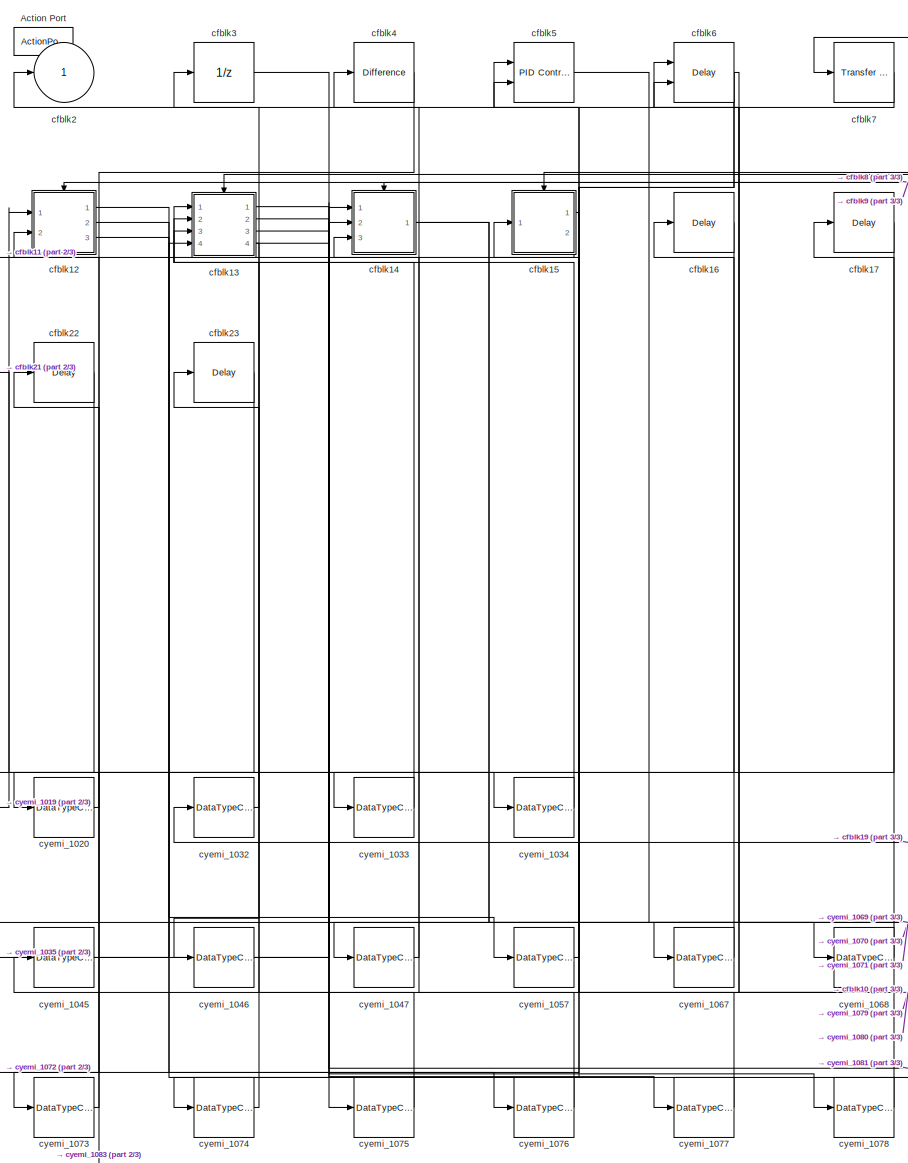
[diagram: cfblk239 - part 1/3, center side, full height]
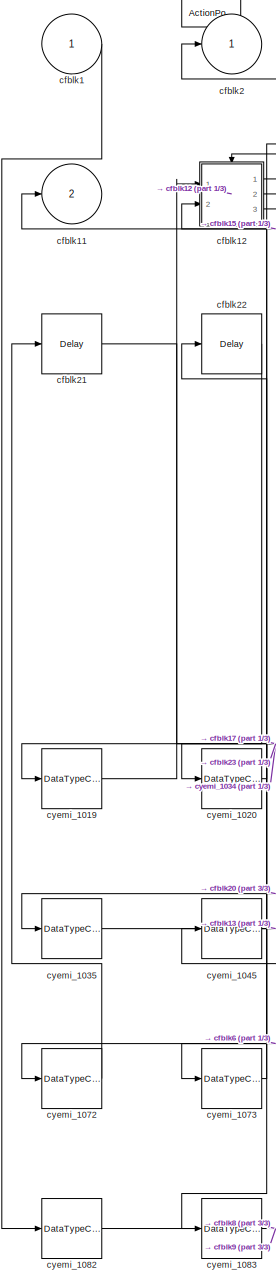
[diagram: cfblk239 - part 2/3, left side, full height]
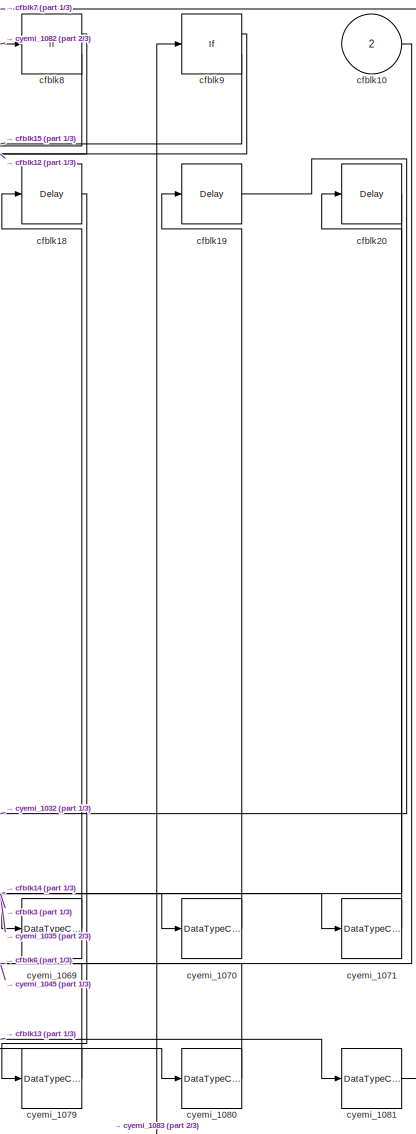
[diagram: cfblk239 - part 3/3, right side, full height]
BLOCK [SubSystem] cfblk239
  Ports = [2, 2, 0, 0, 0, 0, 0, 1]
  RequestExecContextInheritance = off
  TreatAsAtomicUnit = on
BLOCK [ActionPort] cfblk239/Action Port
  ActionType = then
BLOCK [Inport] cfblk239/cfblk1
  IconDisplay = Port number
BLOCK [Inport] cfblk239/cfblk10
  IconDisplay = Port number
  Port = 2
BLOCK [Outport] cfblk239/cfblk11
  IconDisplay = Port number
  Port = 2
BLOCK [SubSystem] cfblk239/cfblk12
  Ports = [2, 3, 0, 0, 0, 0, 0, 1]
  RequestExecContextInheritance = off
  TreatAsAtomicUnit = on
BLOCK [ActionPort] cfblk239/cfblk12/Action Port
  ActionType = then
BLOCK [Inport] cfblk239/cfblk12/cfblk1
  IconDisplay = Port number
BLOCK [Delay] cfblk239/cfblk12/cfblk10
  DelayLengthSource = Input port
  InputPortMap = u0,p1
  Ports = [2, 1]
BLOCK [Reference] cfblk239/cfblk12/cfblk11  REF=simulink/Discrete/Tapped Delay
  Ports = [1, 1]
  SourceBlock = simulink/Discrete/Tapped Delay
  SourceProductBaseCode = SL
  SourceProductName = Simulink
  SourceType = Tapped Delay Line
BLOCK [Inport] cfblk239/cfblk12/cfblk12
  IconDisplay = Port number
  Port = 2
BLOCK [Outport] cfblk239/cfblk12/cfblk13
  IconDisplay = Port number
  Port = 2
BLOCK [Outport] cfblk239/cfblk12/cfblk14
  IconDisplay = Port number
  Port = 3
BLOCK [Outport] cfblk239/cfblk12/cfblk2
  IconDisplay = Port number
BLOCK [DiscreteFilter] cfblk239/cfblk12/cfblk3
  InputPortMap = u0
  Ports = [1, 1]
BLOCK [Delay] cfblk239/cfblk12/cfblk4
  InputPortMap = u0,e6
  Ports = [2, 1]
  ShowEnablePort = on
BLOCK [DiscreteStateSpace] cfblk239/cfblk12/cfblk5
  SampleTime = -1
BLOCK [Reference] cfblk239/cfblk12/cfblk6  REF=simulink/Discrete/Transfer Fcn
Lead or Lag
  Ports = [1, 1]
  SourceBlock = simulink/Discrete/Transfer Fcn\nLead or Lag
  SourceProductBaseCode = SL
  SourceProductName = Simulink
  SourceType = Lead or Lag Compensator
BLOCK [DiscreteTransferFcn] cfblk239/cfblk12/cfblk7
  InputPortMap = u0
  Ports = [1, 1]
BLOCK [DiscreteStateSpace] cfblk239/cfblk12/cfblk8
  SampleTime = -1
BLOCK [DiscreteZeroPole] cfblk239/cfblk12/cfblk9
  Gain = 1
  Poles = [0 0.5]
  SampleTime = -1
BLOCK [DataTypeConversion] cfblk239/cfblk12/cyemi_1021
  OutDataTypeStr = double
  RndMeth = Floor
  SaturateOnIntegerOverflow = off
BLOCK [DataTypeConversion] cfblk239/cfblk12/cyemi_1022
  OutDataTypeStr = double
  RndMeth = Floor
  SaturateOnIntegerOverflow = off
BLOCK [DataTypeConversion] cfblk239/cfblk12/cyemi_1023
  OutDataTypeStr = double
  RndMeth = Floor
  SaturateOnIntegerOverflow = off
BLOCK [DataTypeConversion] cfblk239/cfblk12/cyemi_1024
  OutDataTypeStr = double
  RndMeth = Floor
  SaturateOnIntegerOverflow = off
BLOCK [DataTypeConversion] cfblk239/cfblk12/cyemi_1025
  OutDataTypeStr = double
  RndMeth = Floor
  SaturateOnIntegerOverflow = off
BLOCK [DataTypeConversion] cfblk239/cfblk12/cyemi_1026
  OutDataTypeStr = double
  RndMeth = Floor
  SaturateOnIntegerOverflow = off
BLOCK [DataTypeConversion] cfblk239/cfblk12/cyemi_1027
  OutDataTypeStr = double
  RndMeth = Floor
  SaturateOnIntegerOverflow = off
BLOCK [DataTypeConversion] cfblk239/cfblk12/cyemi_1028
  OutDataTypeStr = double
  RndMeth = Floor
  SaturateOnIntegerOverflow = off
BLOCK [DataTypeConversion] cfblk239/cfblk12/cyemi_1029
  OutDataTypeStr = double
  RndMeth = Floor
  SaturateOnIntegerOverflow = off
BLOCK [DataTypeConversion] cfblk239/cfblk12/cyemi_1030
  OutDataTypeStr = double
  RndMeth = Floor
  SaturateOnIntegerOverflow = off
BLOCK [DataTypeConversion] cfblk239/cfblk12/cyemi_1031
  OutDataTypeStr = double
  RndMeth = Floor
  SaturateOnIntegerOverflow = off
BLOCK [SubSystem] cfblk239/cfblk13
  Ports = [4, 4, 0, 0, 0, 0, 0, 1]
  RequestExecContextInheritance = off
  TreatAsAtomicUnit = on
BLOCK [ActionPort] cfblk239/cfblk13/Action Port
  ActionType = else
BLOCK [Inport] cfblk239/cfblk13/cfblk1
  IconDisplay = Port number
BLOCK [Reference] cfblk239/cfblk13/cfblk10  REF=simulink/Continuous/PID Controller
  Ports = [1, 1]
  SourceBlock = simulink/Continuous/PID Controller
  SourceProductBaseCode = SL
  SourceProductName = Simulink
  SourceType = PID 1dof
BLOCK [Inport] cfblk239/cfblk13/cfblk11
  IconDisplay = Port number
  Port = 2
BLOCK [Inport] cfblk239/cfblk13/cfblk12
  IconDisplay = Port number
  Port = 3
BLOCK [Inport] cfblk239/cfblk13/cfblk13
  IconDisplay = Port number
  Port = 4
BLOCK [Outport] cfblk239/cfblk13/cfblk14
  IconDisplay = Port number
  Port = 2
BLOCK [Outport] cfblk239/cfblk13/cfblk15
  IconDisplay = Port number
  Port = 3
BLOCK [Outport] cfblk239/cfblk13/cfblk16
  IconDisplay = Port number
  Port = 4
BLOCK [Outport] cfblk239/cfblk13/cfblk2
  IconDisplay = Port number
BLOCK [DiscreteFilter] cfblk239/cfblk13/cfblk3
  InputPortMap = u0
  Ports = [1, 1]
BLOCK [Reference] cfblk239/cfblk13/cfblk4  REF=simulink/Discrete/Transfer Fcn
First Order
  Ports = [1, 1]
  SourceBlock = simulink/Discrete/Transfer Fcn\nFirst Order
  SourceProductBaseCode = SL
  SourceProductName = Simulink
  SourceType = First Order Transfer Fcn
BLOCK [Reference] cfblk239/cfblk13/cfblk5  REF=simulink/Continuous/PID Controller
  Ports = [1, 1]
  SourceBlock = simulink/Continuous/PID Controller
  SourceProductBaseCode = SL
  SourceProductName = Simulink
  SourceType = PID 1dof
BLOCK [DiscreteTransferFcn] cfblk239/cfblk13/cfblk6
  InputPortMap = u0
  Ports = [1, 1]
BLOCK [Reference] cfblk239/cfblk13/cfblk7  REF=simulink/Discrete/Transfer Fcn
First Order
  Ports = [1, 1]
  SourceBlock = simulink/Discrete/Transfer Fcn\nFirst Order
  SourceProductBaseCode = SL
  SourceProductName = Simulink
  SourceType = First Order Transfer Fcn
BLOCK [Reference] cfblk239/cfblk13/cfblk8  REF=simulink/Continuous/PID Controller (2DOF)
  Ports = [2, 1]
  SourceBlock = simulink/Continuous/PID Controller (2DOF)
  SourceProductBaseCode = SL
  SourceProductName = Simulink
  SourceType = PID 2dof
BLOCK [Delay] cfblk239/cfblk13/cfblk9
  InputPortMap = u0
  Ports = [1, 1]
BLOCK [DataTypeConversion] cfblk239/cfblk13/cyemi_1036
  OutDataTypeStr = double
  RndMeth = Floor
  SaturateOnIntegerOverflow = off
BLOCK [DataTypeConversion] cfblk239/cfblk13/cyemi_1037
  OutDataTypeStr = double
  RndMeth = Floor
  SaturateOnIntegerOverflow = off
BLOCK [DataTypeConversion] cfblk239/cfblk13/cyemi_1038
  OutDataTypeStr = double
  RndMeth = Floor
  SaturateOnIntegerOverflow = off
BLOCK [DataTypeConversion] cfblk239/cfblk13/cyemi_1039
  OutDataTypeStr = double
  RndMeth = Floor
  SaturateOnIntegerOverflow = off
BLOCK [DataTypeConversion] cfblk239/cfblk13/cyemi_1040
  OutDataTypeStr = double
  RndMeth = Floor
  SaturateOnIntegerOverflow = off
BLOCK [DataTypeConversion] cfblk239/cfblk13/cyemi_1041
  OutDataTypeStr = double
  RndMeth = Floor
  SaturateOnIntegerOverflow = off
BLOCK [DataTypeConversion] cfblk239/cfblk13/cyemi_1042
  OutDataTypeStr = double
  RndMeth = Floor
  SaturateOnIntegerOverflow = off
BLOCK [DataTypeConversion] cfblk239/cfblk13/cyemi_1043
  OutDataTypeStr = double
  RndMeth = Floor
  SaturateOnIntegerOverflow = off
BLOCK [DataTypeConversion] cfblk239/cfblk13/cyemi_1044
  OutDataTypeStr = double
  RndMeth = Floor
  SaturateOnIntegerOverflow = off
BLOCK [SubSystem] cfblk239/cfblk14
  Ports = [3, 1, 0, 0, 0, 0, 0, 1]
  RequestExecContextInheritance = off
  TreatAsAtomicUnit = on
BLOCK [ActionPort] cfblk239/cfblk14/Action Port
  ActionType = then
BLOCK [Inport] cfblk239/cfblk14/cfblk1
  IconDisplay = Port number
BLOCK [Inport] cfblk239/cfblk14/cfblk12
  IconDisplay = Port number
  Port = 2
BLOCK [Inport] cfblk239/cfblk14/cfblk13
  IconDisplay = Port number
  Port = 3
BLOCK [Outport] cfblk239/cfblk14/cfblk2
  IconDisplay = Port number
BLOCK [Reference] cfblk239/cfblk14/cfblk4  REF=simulink/Discrete/Difference
  Ports = [1, 1]
  SourceBlock = simulink/Discrete/Difference
  SourceProductBaseCode = SL
  SourceProductName = Simulink
  SourceType = Difference
BLOCK [Reference] cfblk239/cfblk14/cfblk6  REF=simulink/Discrete/Tapped Delay
  Ports = [1, 1]
  SourceBlock = simulink/Discrete/Tapped Delay
  SourceProductBaseCode = SL
  SourceProductName = Simulink
  SourceType = Tapped Delay Line
BLOCK [Reference] cfblk239/cfblk14/cfblk7  REF=simulink/Discrete/Transfer Fcn
Real Zero
  Ports = [1, 1]
  SourceBlock = simulink/Discrete/Transfer Fcn\nReal Zero
  SourceProductBaseCode = SL
  SourceProductName = Simulink
  SourceType = Transfer Fcn Real Zero
BLOCK [DiscreteFir] cfblk239/cfblk14/cfblk8
  InputPortMap = u0
  OutputPortMap = o0
  Ports = [1, 1]
BLOCK [UnitDelay] cfblk239/cfblk14/cfblk9
  InputProcessing = Elements as channels (sample based)
  SampleTime = -1
BLOCK [DataTypeConversion] cfblk239/cfblk14/cyemi_1048
  OutDataTypeStr = double
  RndMeth = Floor
  SaturateOnIntegerOverflow = off
BLOCK [DataTypeConversion] cfblk239/cfblk14/cyemi_1049
  OutDataTypeStr = double
  RndMeth = Floor
  SaturateOnIntegerOverflow = off
BLOCK [DataTypeConversion] cfblk239/cfblk14/cyemi_1050
  OutDataTypeStr = double
  RndMeth = Floor
  SaturateOnIntegerOverflow = off
BLOCK [DataTypeConversion] cfblk239/cfblk14/cyemi_1051
  OutDataTypeStr = double
  RndMeth = Floor
  SaturateOnIntegerOverflow = off
BLOCK [DataTypeConversion] cfblk239/cfblk14/cyemi_1052
  OutDataTypeStr = double
  RndMeth = Floor
  SaturateOnIntegerOverflow = off
BLOCK [DataTypeConversion] cfblk239/cfblk14/cyemi_1053
  OutDataTypeStr = double
  RndMeth = Floor
  SaturateOnIntegerOverflow = off
BLOCK [DataTypeConversion] cfblk239/cfblk14/cyemi_1054
  OutDataTypeStr = double
  RndMeth = Floor
  SaturateOnIntegerOverflow = off
BLOCK [DataTypeConversion] cfblk239/cfblk14/cyemi_1055
  OutDataTypeStr = double
  RndMeth = Floor
  SaturateOnIntegerOverflow = off
BLOCK [DataTypeConversion] cfblk239/cfblk14/cyemi_1056
  OutDataTypeStr = double
  RndMeth = Floor
  SaturateOnIntegerOverflow = off
BLOCK [SubSystem] cfblk239/cfblk15
  Ports = [1, 2, 0, 0, 0, 0, 0, 1]
  RequestExecContextInheritance = off
  TreatAsAtomicUnit = on
BLOCK [ActionPort] cfblk239/cfblk15/Action Port
  ActionType = else
BLOCK [Inport] cfblk239/cfblk15/cfblk1
  IconDisplay = Port number
BLOCK [Delay] cfblk239/cfblk15/cfblk10
  InputPortMap = u0,e6
  Ports = [2, 1]
  ShowEnablePort = on
BLOCK [Outport] cfblk239/cfblk15/cfblk11
  IconDisplay = Port number
  Port = 2
BLOCK [Outport] cfblk239/cfblk15/cfblk2
  IconDisplay = Port number
BLOCK [DiscreteTransferFcn] cfblk239/cfblk15/cfblk3
  InputPortMap = u0
  Ports = [1, 1]
BLOCK [Reference] cfblk239/cfblk15/cfblk4  REF=simulink/Discrete/Transfer Fcn
First Order
  Ports = [1, 1]
  SourceBlock = simulink/Discrete/Transfer Fcn\nFirst Order
  SourceProductBaseCode = SL
  SourceProductName = Simulink
  SourceType = First Order Transfer Fcn
BLOCK [DiscreteFir] cfblk239/cfblk15/cfblk5
  InputPortMap = u0
  OutputPortMap = o0
  Ports = [1, 1]
BLOCK [Reference] cfblk239/cfblk15/cfblk6  REF=simulink/Discrete/Transfer Fcn
First Order
  Ports = [1, 1]
  SourceBlock = simulink/Discrete/Transfer Fcn\nFirst Order
  SourceProductBaseCode = SL
  SourceProductName = Simulink
  SourceType = First Order Transfer Fcn
BLOCK [DiscreteFilter] cfblk239/cfblk15/cfblk7
  InputPortMap = u0
  Ports = [1, 1]
BLOCK [Reference] cfblk239/cfblk15/cfblk8  REF=simulink/Discrete/Difference
  Ports = [1, 1]
  SourceBlock = simulink/Discrete/Difference
  SourceProductBaseCode = SL
  SourceProductName = Simulink
  SourceType = Difference
BLOCK [DiscreteFilter] cfblk239/cfblk15/cfblk9
  InputPortMap = u0
  Ports = [1, 1]
BLOCK [DataTypeConversion] cfblk239/cfblk15/cyemi_1058
  OutDataTypeStr = double
  RndMeth = Floor
  SaturateOnIntegerOverflow = off
BLOCK [DataTypeConversion] cfblk239/cfblk15/cyemi_1059
  OutDataTypeStr = double
  RndMeth = Floor
  SaturateOnIntegerOverflow = off
BLOCK [DataTypeConversion] cfblk239/cfblk15/cyemi_1060
  OutDataTypeStr = double
  RndMeth = Floor
  SaturateOnIntegerOverflow = off
BLOCK [DataTypeConversion] cfblk239/cfblk15/cyemi_1061
  OutDataTypeStr = double
  RndMeth = Floor
  SaturateOnIntegerOverflow = off
BLOCK [DataTypeConversion] cfblk239/cfblk15/cyemi_1062
  OutDataTypeStr = double
  RndMeth = Floor
  SaturateOnIntegerOverflow = off
BLOCK [DataTypeConversion] cfblk239/cfblk15/cyemi_1063
  OutDataTypeStr = double
  RndMeth = Floor
  SaturateOnIntegerOverflow = off
BLOCK [DataTypeConversion] cfblk239/cfblk15/cyemi_1064
  OutDataTypeStr = double
  RndMeth = Floor
  SaturateOnIntegerOverflow = off
BLOCK [DataTypeConversion] cfblk239/cfblk15/cyemi_1065
  OutDataTypeStr = double
  RndMeth = Floor
  SaturateOnIntegerOverflow = off
BLOCK [DataTypeConversion] cfblk239/cfblk15/cyemi_1066
  OutDataTypeStr = double
  RndMeth = Floor
  SaturateOnIntegerOverflow = off
BLOCK [Delay] cfblk239/cfblk16
  InputPortMap = u0
  Ports = [1, 1]
BLOCK [Delay] cfblk239/cfblk17
  InputPortMap = u0
  Ports = [1, 1]
BLOCK [Delay] cfblk239/cfblk18
  InputPortMap = u0
  Ports = [1, 1]
BLOCK [Delay] cfblk239/cfblk19
  InputPortMap = u0
  Ports = [1, 1]
BLOCK [Outport] cfblk239/cfblk2
  IconDisplay = Port number
BLOCK [Delay] cfblk239/cfblk20
  InputPortMap = u0
  Ports = [1, 1]
BLOCK [Delay] cfblk239/cfblk21
  InputPortMap = u0
  Ports = [1, 1]
BLOCK [Delay] cfblk239/cfblk22
  InputPortMap = u0
  Ports = [1, 1]
BLOCK [Delay] cfblk239/cfblk23
  InputPortMap = u0
  Ports = [1, 1]
BLOCK [UnitDelay] cfblk239/cfblk3
  InputProcessing = Elements as channels (sample based)
  SampleTime = -1
BLOCK [Reference] cfblk239/cfblk4  REF=simulink/Discrete/Difference
  Ports = [1, 1]
  SourceBlock = simulink/Discrete/Difference
  SourceProductBaseCode = SL
  SourceProductName = Simulink
  SourceType = Difference
BLOCK [Reference] cfblk239/cfblk5  REF=simulink/Continuous/PID Controller (2DOF)
  Ports = [2, 1]
  SourceBlock = simulink/Continuous/PID Controller (2DOF)
  SourceProductBaseCode = SL
  SourceProductName = Simulink
  SourceType = PID 2dof
BLOCK [Delay] cfblk239/cfblk6
  InputPortMap = u0,e6
  Ports = [2, 1]
  ShowEnablePort = on
BLOCK [Reference] cfblk239/cfblk7  REF=simulink/Discrete/Transfer Fcn
Real Zero
  Ports = [1, 1]
  SourceBlock = simulink/Discrete/Transfer Fcn\nReal Zero
  SourceProductBaseCode = SL
  SourceProductName = Simulink
  SourceType = Transfer Fcn Real Zero
BLOCK [If] cfblk239/cfblk8
  Ports = [1, 2]
  SampleTime = 1
BLOCK [If] cfblk239/cfblk9
  Ports = [1, 2]
  SampleTime = 1
BLOCK [DataTypeConversion] cfblk239/cyemi_1019
  OutDataTypeStr = double
  RndMeth = Floor
  SaturateOnIntegerOverflow = off
BLOCK [DataTypeConversion] cfblk239/cyemi_1020
  OutDataTypeStr = double
  RndMeth = Floor
  SaturateOnIntegerOverflow = off
BLOCK [DataTypeConversion] cfblk239/cyemi_1032
  OutDataTypeStr = double
  RndMeth = Floor
  SaturateOnIntegerOverflow = off
BLOCK [DataTypeConversion] cfblk239/cyemi_1033
  OutDataTypeStr = double
  RndMeth = Floor
  SaturateOnIntegerOverflow = off
BLOCK [DataTypeConversion] cfblk239/cyemi_1034
  OutDataTypeStr = double
  RndMeth = Floor
  SaturateOnIntegerOverflow = off
BLOCK [DataTypeConversion] cfblk239/cyemi_1035
  OutDataTypeStr = double
  RndMeth = Floor
  SaturateOnIntegerOverflow = off
BLOCK [DataTypeConversion] cfblk239/cyemi_1045
  OutDataTypeStr = double
  RndMeth = Floor
  SaturateOnIntegerOverflow = off
BLOCK [DataTypeConversion] cfblk239/cyemi_1046
  OutDataTypeStr = double
  RndMeth = Floor
  SaturateOnIntegerOverflow = off
BLOCK [DataTypeConversion] cfblk239/cyemi_1047
  OutDataTypeStr = double
  RndMeth = Floor
  SaturateOnIntegerOverflow = off
BLOCK [DataTypeConversion] cfblk239/cyemi_1057
  OutDataTypeStr = double
  RndMeth = Floor
  SaturateOnIntegerOverflow = off
BLOCK [DataTypeConversion] cfblk239/cyemi_1067
  OutDataTypeStr = double
  RndMeth = Floor
  SaturateOnIntegerOverflow = off
BLOCK [DataTypeConversion] cfblk239/cyemi_1068
  OutDataTypeStr = double
  RndMeth = Floor
  SaturateOnIntegerOverflow = off
BLOCK [DataTypeConversion] cfblk239/cyemi_1069
  OutDataTypeStr = double
  RndMeth = Floor
  SaturateOnIntegerOverflow = off
BLOCK [DataTypeConversion] cfblk239/cyemi_1070
  OutDataTypeStr = double
  RndMeth = Floor
  SaturateOnIntegerOverflow = off
BLOCK [DataTypeConversion] cfblk239/cyemi_1071
  OutDataTypeStr = double
  RndMeth = Floor
  SaturateOnIntegerOverflow = off
BLOCK [DataTypeConversion] cfblk239/cyemi_1072
  OutDataTypeStr = double
  RndMeth = Floor
  SaturateOnIntegerOverflow = off
BLOCK [DataTypeConversion] cfblk239/cyemi_1073
  OutDataTypeStr = double
  RndMeth = Floor
  SaturateOnIntegerOverflow = off
BLOCK [DataTypeConversion] cfblk239/cyemi_1074
  OutDataTypeStr = double
  RndMeth = Floor
  SaturateOnIntegerOverflow = off
BLOCK [DataTypeConversion] cfblk239/cyemi_1075
  OutDataTypeStr = double
  RndMeth = Floor
  SaturateOnIntegerOverflow = off
BLOCK [DataTypeConversion] cfblk239/cyemi_1076
  OutDataTypeStr = double
  RndMeth = Floor
  SaturateOnIntegerOverflow = off
BLOCK [DataTypeConversion] cfblk239/cyemi_1077
  OutDataTypeStr = double
  RndMeth = Floor
  SaturateOnIntegerOverflow = off
BLOCK [DataTypeConversion] cfblk239/cyemi_1078
  OutDataTypeStr = double
  RndMeth = Floor
  SaturateOnIntegerOverflow = off
BLOCK [DataTypeConversion] cfblk239/cyemi_1079
  OutDataTypeStr = double
  RndMeth = Floor
  SaturateOnIntegerOverflow = off
BLOCK [DataTypeConversion] cfblk239/cyemi_1080
  OutDataTypeStr = double
  RndMeth = Floor
  SaturateOnIntegerOverflow = off
BLOCK [DataTypeConversion] cfblk239/cyemi_1081
  OutDataTypeStr = double
  RndMeth = Floor
  SaturateOnIntegerOverflow = off
BLOCK [DataTypeConversion] cfblk239/cyemi_1082
  OutDataTypeStr = double
  RndMeth = Floor
  SaturateOnIntegerOverflow = off
BLOCK [DataTypeConversion] cfblk239/cyemi_1083
  OutDataTypeStr = double
  RndMeth = Floor
  SaturateOnIntegerOverflow = off
BLOCK [DiscreteFilter] cfblk24
  InputPortMap = u0
  Ports = [1, 1]
  SampleTime = 1
BLOCK [SubSystem] cfblk240
  Ports = [2, 2, 0, 0, 0, 0, 0, 1]
  RequestExecContextInheritance = off
  TreatAsAtomicUnit = on
BLOCK [ActionPort] cfblk240/Action Port
  ActionType = else
BLOCK [Inport] cfblk240/cfblk1
  IconDisplay = Port number
BLOCK [Outport] cfblk240/cfblk2
  IconDisplay = Port number
BLOCK [Reference] cfblk240/cfblk3  REF=simulink/Discrete/Tapped Delay
  Ports = [1, 1]
  SourceBlock = simulink/Discrete/Tapped Delay
  SourceProductBaseCode = SL
  SourceProductName = Simulink
  SourceType = Tapped Delay Line
BLOCK [DiscreteTransferFcn] cfblk240/cfblk4
  InputPortMap = u0
  Ports = [1, 1]
BLOCK [Reference] cfblk240/cfblk5  REF=simulink/Continuous/PID Controller
  Ports = [1, 1]
  SourceBlock = simulink/Continuous/PID Controller
  SourceProductBaseCode = SL
  SourceProductName = Simulink
  SourceType = PID 1dof
BLOCK [Reference] cfblk240/cfblk6  REF=simulink/Continuous/PID Controller
  Ports = [1, 1]
  SourceBlock = simulink/Continuous/PID Controller
  SourceProductBaseCode = SL
  SourceProductName = Simulink
  SourceType = PID 1dof
BLOCK [Inport] cfblk240/cfblk7
  IconDisplay = Port number
  Port = 2
BLOCK [Outport] cfblk240/cfblk8
  IconDisplay = Port number
  Port = 2
BLOCK [Delay] cfblk240/cfblk9
  InputPortMap = u0
  Ports = [1, 1]
BLOCK [DataTypeConversion] cfblk240/cyemi_1087
  OutDataTypeStr = double
  RndMeth = Floor
  SaturateOnIntegerOverflow = off
BLOCK [DataTypeConversion] cfblk240/cyemi_1088
  OutDataTypeStr = double
  RndMeth = Floor
  SaturateOnIntegerOverflow = off
BLOCK [DataTypeConversion] cfblk240/cyemi_1089
  OutDataTypeStr = double
  RndMeth = Floor
  SaturateOnIntegerOverflow = off
BLOCK [DataTypeConversion] cfblk240/cyemi_1090
  OutDataTypeStr = double
  RndMeth = Floor
  SaturateOnIntegerOverflow = off
BLOCK [DataTypeConversion] cfblk240/cyemi_1091
  OutDataTypeStr = double
  RndMeth = Floor
  SaturateOnIntegerOverflow = off
BLOCK [SubSystem] cfblk241
  Ports = [5, 2, 0, 0, 0, 0, 0, 1]
  RequestExecContextInheritance = off
  TreatAsAtomicUnit = on
BLOCK [ActionPort] cfblk241/Action Port
  ActionType = then
BLOCK [Inport] cfblk241/cfblk1
  IconDisplay = Port number
BLOCK [Inport] cfblk241/cfblk10
  IconDisplay = Port number
  Port = 4
BLOCK [Inport] cfblk241/cfblk11
  IconDisplay = Port number
  Port = 5
BLOCK [Outport] cfblk241/cfblk12
  IconDisplay = Port number
  Port = 2
BLOCK [Delay] cfblk241/cfblk13
  InputPortMap = u0
  Ports = [1, 1]
BLOCK [Outport] cfblk241/cfblk2
  IconDisplay = Port number
BLOCK [Delay] cfblk241/cfblk3
  InputPortMap = u0
  Ports = [1, 1]
BLOCK [Delay] cfblk241/cfblk4
  InputPortMap = u0,e6
  Ports = [2, 1]
  ShowEnablePort = on
BLOCK [UnitDelay] cfblk241/cfblk5
  InputProcessing = Elements as channels (sample based)
  SampleTime = -1
BLOCK [Delay] cfblk241/cfblk6
  InputPortMap = u0,e6
  Ports = [2, 1]
  ShowEnablePort = on
BLOCK [DiscreteStateSpace] cfblk241/cfblk7
  SampleTime = -1
BLOCK [Inport] cfblk241/cfblk8
  IconDisplay = Port number
  Port = 2
BLOCK [Inport] cfblk241/cfblk9
  IconDisplay = Port number
  Port = 3
BLOCK [DataTypeConversion] cfblk241/cyemi_1097
  OutDataTypeStr = double
  RndMeth = Floor
  SaturateOnIntegerOverflow = off
BLOCK [DataTypeConversion] cfblk241/cyemi_1098
  OutDataTypeStr = double
  RndMeth = Floor
  SaturateOnIntegerOverflow = off
BLOCK [DataTypeConversion] cfblk241/cyemi_1099
  OutDataTypeStr = double
  RndMeth = Floor
  SaturateOnIntegerOverflow = off
BLOCK [DataTypeConversion] cfblk241/cyemi_1100
  OutDataTypeStr = double
  RndMeth = Floor
  SaturateOnIntegerOverflow = off
BLOCK [DataTypeConversion] cfblk241/cyemi_1101
  OutDataTypeStr = double
  RndMeth = Floor
  SaturateOnIntegerOverflow = off
BLOCK [DataTypeConversion] cfblk241/cyemi_1102
  OutDataTypeStr = double
  RndMeth = Floor
  SaturateOnIntegerOverflow = off
BLOCK [DataTypeConversion] cfblk241/cyemi_1103
  OutDataTypeStr = double
  RndMeth = Floor
  SaturateOnIntegerOverflow = off
BLOCK [DataTypeConversion] cfblk241/cyemi_1104
  OutDataTypeStr = double
  RndMeth = Floor
  SaturateOnIntegerOverflow = off
BLOCK [SubSystem] cfblk242
  Ports = [1, 5, 0, 0, 0, 0, 0, 1]
  RequestExecContextInheritance = off
  TreatAsAtomicUnit = on
BLOCK [ActionPort] cfblk242/Action Port
  ActionType = else
BLOCK [Inport] cfblk242/cfblk1
  IconDisplay = Port number
BLOCK [UnitDelay] cfblk242/cfblk10
  InputProcessing = Elements as channels (sample based)
  SampleTime = -1
BLOCK [Reference] cfblk242/cfblk11  REF=simulink/Discrete/Transfer Fcn
First Order
  Ports = [1, 1]
  SourceBlock = simulink/Discrete/Transfer Fcn\nFirst Order
  SourceProductBaseCode = SL
  SourceProductName = Simulink
  SourceType = First Order Transfer Fcn
BLOCK [If] cfblk242/cfblk12
  Ports = [1, 2]
  SampleTime = 1
BLOCK [If] cfblk242/cfblk13
  Ports = [1, 2]
  SampleTime = 1
BLOCK [Outport] cfblk242/cfblk14
  IconDisplay = Port number
  Port = 2
BLOCK [Outport] cfblk242/cfblk15
  IconDisplay = Port number
  Port = 3
BLOCK [Outport] cfblk242/cfblk16
  IconDisplay = Port number
  Port = 4
BLOCK [Outport] cfblk242/cfblk17
  IconDisplay = Port number
  Port = 5
BLOCK [SubSystem] cfblk242/cfblk18
  Ports = [1, 4, 0, 0, 0, 0, 0, 1]
  RequestExecContextInheritance = off
  TreatAsAtomicUnit = on
BLOCK [ActionPort] cfblk242/cfblk18/Action Port
  ActionType = then
BLOCK [Inport] cfblk242/cfblk18/cfblk1
  IconDisplay = Port number
BLOCK [Outport] cfblk242/cfblk18/cfblk10
  IconDisplay = Port number
  Port = 3
BLOCK [Outport] cfblk242/cfblk18/cfblk11
  IconDisplay = Port number
  Port = 4
BLOCK [Delay] cfblk242/cfblk18/cfblk12
  InputPortMap = u0
  Ports = [1, 1]
BLOCK [Outport] cfblk242/cfblk18/cfblk2
  IconDisplay = Port number
BLOCK [DiscreteZeroPole] cfblk242/cfblk18/cfblk3
  Gain = 1
  Poles = [0 0.5]
  SampleTime = -1
BLOCK [DiscreteIntegrator] cfblk242/cfblk18/cfblk8
  ICPrevOutput = DiscIntNeverNeededParam
  ICPrevScaledInput = DiscIntNeverNeededParam
  InitialConditionSetting = Auto
  Ports = [1, 1]
  SampleTime = -1
BLOCK [Outport] cfblk242/cfblk18/cfblk9
  IconDisplay = Port number
  Port = 2
BLOCK [DataTypeConversion] cfblk242/cfblk18/cyemi_1111
  OutDataTypeStr = double
  RndMeth = Floor
  SaturateOnIntegerOverflow = off
BLOCK [DataTypeConversion] cfblk242/cfblk18/cyemi_1112
  OutDataTypeStr = double
  RndMeth = Floor
  SaturateOnIntegerOverflow = off
BLOCK [DataTypeConversion] cfblk242/cfblk18/cyemi_1113
  OutDataTypeStr = double
  RndMeth = Floor
  SaturateOnIntegerOverflow = off
BLOCK [DataTypeConversion] cfblk242/cfblk18/cyemi_1114
  OutDataTypeStr = double
  RndMeth = Floor
  SaturateOnIntegerOverflow = off
BLOCK [DataTypeConversion] cfblk242/cfblk18/cyemi_1115
  OutDataTypeStr = double
  RndMeth = Floor
  SaturateOnIntegerOverflow = off
BLOCK [DataTypeConversion] cfblk242/cfblk18/cyemi_1116
  OutDataTypeStr = double
  RndMeth = Floor
  SaturateOnIntegerOverflow = off
BLOCK [DataTypeConversion] cfblk242/cfblk18/cyemi_1117
  OutDataTypeStr = double
  RndMeth = Floor
  SaturateOnIntegerOverflow = off
BLOCK [SubSystem] cfblk242/cfblk19
  Ports = [2, 1, 0, 0, 0, 0, 0, 1]
  RequestExecContextInheritance = off
  TreatAsAtomicUnit = on
BLOCK [ActionPort] cfblk242/cfblk19/Action Port
  ActionType = else
BLOCK [Inport] cfblk242/cfblk19/cfblk1
  IconDisplay = Port number
BLOCK [Inport] cfblk242/cfblk19/cfblk10
  IconDisplay = Port number
  Port = 2
BLOCK [Delay] cfblk242/cfblk19/cfblk11
  InputPortMap = u0
  Ports = [1, 1]
BLOCK [Outport] cfblk242/cfblk19/cfblk2
  IconDisplay = Port number
BLOCK [DiscreteIntegrator] cfblk242/cfblk19/cfblk3
  ICPrevOutput = DiscIntNeverNeededParam
  ICPrevScaledInput = DiscIntNeverNeededParam
  InitialConditionSetting = Auto
  Ports = [1, 1]
  SampleTime = -1
BLOCK [Reference] cfblk242/cfblk19/cfblk4  REF=simulink/Discrete/Transfer Fcn
First Order
  Ports = [1, 1]
  SourceBlock = simulink/Discrete/Transfer Fcn\nFirst Order
  SourceProductBaseCode = SL
  SourceProductName = Simulink
  SourceType = First Order Transfer Fcn
BLOCK [DiscreteStateSpace] cfblk242/cfblk19/cfblk5
  SampleTime = -1
BLOCK [UnitDelay] cfblk242/cfblk19/cfblk6
  InputProcessing = Elements as channels (sample based)
  SampleTime = -1
BLOCK [UnitDelay] cfblk242/cfblk19/cfblk7
  InputProcessing = Elements as channels (sample based)
  SampleTime = -1
BLOCK [Reference] cfblk242/cfblk19/cfblk8  REF=simulink/Discrete/Transfer Fcn
Lead or Lag
  Ports = [1, 1]
  SourceBlock = simulink/Discrete/Transfer Fcn\nLead or Lag
  SourceProductBaseCode = SL
  SourceProductName = Simulink
  SourceType = Lead or Lag Compensator
BLOCK [Delay] cfblk242/cfblk19/cfblk9
  InputPortMap = u0
  Ports = [1, 1]
BLOCK [DataTypeConversion] cfblk242/cfblk19/cyemi_1120
  OutDataTypeStr = double
  RndMeth = Floor
  SaturateOnIntegerOverflow = off
BLOCK [DataTypeConversion] cfblk242/cfblk19/cyemi_1121
  OutDataTypeStr = double
  RndMeth = Floor
  SaturateOnIntegerOverflow = off
BLOCK [DataTypeConversion] cfblk242/cfblk19/cyemi_1122
  OutDataTypeStr = double
  RndMeth = Floor
  SaturateOnIntegerOverflow = off
BLOCK [DataTypeConversion] cfblk242/cfblk19/cyemi_1123
  OutDataTypeStr = double
  RndMeth = Floor
  SaturateOnIntegerOverflow = off
BLOCK [DataTypeConversion] cfblk242/cfblk19/cyemi_1124
  OutDataTypeStr = double
  RndMeth = Floor
  SaturateOnIntegerOverflow = off
BLOCK [DataTypeConversion] cfblk242/cfblk19/cyemi_1125
  OutDataTypeStr = double
  RndMeth = Floor
  SaturateOnIntegerOverflow = off
BLOCK [DataTypeConversion] cfblk242/cfblk19/cyemi_1126
  OutDataTypeStr = double
  RndMeth = Floor
  SaturateOnIntegerOverflow = off
BLOCK [DataTypeConversion] cfblk242/cfblk19/cyemi_1127
  OutDataTypeStr = double
  RndMeth = Floor
  SaturateOnIntegerOverflow = off
BLOCK [Outport] cfblk242/cfblk2
  IconDisplay = Port number
BLOCK [SubSystem] cfblk242/cfblk20
  Ports = [2, 2, 0, 0, 0, 0, 0, 1]
  RequestExecContextInheritance = off
  TreatAsAtomicUnit = on
BLOCK [ActionPort] cfblk242/cfblk20/Action Port
  ActionType = then
BLOCK [Inport] cfblk242/cfblk20/cfblk1
  IconDisplay = Port number
BLOCK [Reference] cfblk242/cfblk20/cfblk11  REF=simulink/Continuous/PID Controller (2DOF)
  Ports = [2, 1]
  SourceBlock = simulink/Continuous/PID Controller (2DOF)
  SourceProductBaseCode = SL
  SourceProductName = Simulink
  SourceType = PID 2dof
BLOCK [Reference] cfblk242/cfblk20/cfblk12  REF=simulink/Discrete/Tapped Delay
  Ports = [1, 1]
  SourceBlock = simulink/Discrete/Tapped Delay
  SourceProductBaseCode = SL
  SourceProductName = Simulink
  SourceType = Tapped Delay Line
BLOCK [Inport] cfblk242/cfblk20/cfblk13
  IconDisplay = Port number
  Port = 2
BLOCK [Outport] cfblk242/cfblk20/cfblk14
  IconDisplay = Port number
  Port = 2
BLOCK [Delay] cfblk242/cfblk20/cfblk15
  InputPortMap = u0
  Ports = [1, 1]
BLOCK [Delay] cfblk242/cfblk20/cfblk16
  InputPortMap = u0
  Ports = [1, 1]
BLOCK [Outport] cfblk242/cfblk20/cfblk2
  IconDisplay = Port number
BLOCK [Reference] cfblk242/cfblk20/cfblk3  REF=simulink/Discrete/Difference
  Ports = [1, 1]
  SourceBlock = simulink/Discrete/Difference
  SourceProductBaseCode = SL
  SourceProductName = Simulink
  SourceType = Difference
BLOCK [Reference] cfblk242/cfblk20/cfblk5  REF=simulink/Continuous/PID Controller
  Ports = [1, 1]
  SourceBlock = simulink/Continuous/PID Controller
  SourceProductBaseCode = SL
  SourceProductName = Simulink
  SourceType = PID 1dof
BLOCK [Reference] cfblk242/cfblk20/cfblk8  REF=simulink/Discrete/Transfer Fcn
Real Zero
  Ports = [1, 1]
  SourceBlock = simulink/Discrete/Transfer Fcn\nReal Zero
  SourceProductBaseCode = SL
  SourceProductName = Simulink
  SourceType = Transfer Fcn Real Zero
BLOCK [Reference] cfblk242/cfblk20/cfblk9  REF=simulink/Discrete/Tapped Delay
  Ports = [1, 1]
  SourceBlock = simulink/Discrete/Tapped Delay
  SourceProductBaseCode = SL
  SourceProductName = Simulink
  SourceType = Tapped Delay Line
BLOCK [DataTypeConversion] cfblk242/cfblk20/cyemi_1130
  OutDataTypeStr = double
  RndMeth = Floor
  SaturateOnIntegerOverflow = off
BLOCK [DataTypeConversion] cfblk242/cfblk20/cyemi_1131
  OutDataTypeStr = double
  RndMeth = Floor
  SaturateOnIntegerOverflow = off
BLOCK [DataTypeConversion] cfblk242/cfblk20/cyemi_1132
  OutDataTypeStr = double
  RndMeth = Floor
  SaturateOnIntegerOverflow = off
BLOCK [DataTypeConversion] cfblk242/cfblk20/cyemi_1133
  OutDataTypeStr = double
  RndMeth = Floor
  SaturateOnIntegerOverflow = off
BLOCK [DataTypeConversion] cfblk242/cfblk20/cyemi_1134
  OutDataTypeStr = double
  RndMeth = Floor
  SaturateOnIntegerOverflow = off
BLOCK [DataTypeConversion] cfblk242/cfblk20/cyemi_1135
  OutDataTypeStr = double
  RndMeth = Floor
  SaturateOnIntegerOverflow = off
BLOCK [DataTypeConversion] cfblk242/cfblk20/cyemi_1136
  OutDataTypeStr = double
  RndMeth = Floor
  SaturateOnIntegerOverflow = off
BLOCK [DataTypeConversion] cfblk242/cfblk20/cyemi_1137
  OutDataTypeStr = double
  RndMeth = Floor
  SaturateOnIntegerOverflow = off
BLOCK [DataTypeConversion] cfblk242/cfblk20/cyemi_1138
  OutDataTypeStr = double
  RndMeth = Floor
  SaturateOnIntegerOverflow = off
BLOCK [DataTypeConversion] cfblk242/cfblk20/cyemi_1139
  OutDataTypeStr = double
  RndMeth = Floor
  SaturateOnIntegerOverflow = off
BLOCK [DataTypeConversion] cfblk242/cfblk20/cyemi_1140
  OutDataTypeStr = double
  RndMeth = Floor
  SaturateOnIntegerOverflow = off
BLOCK [DataTypeConversion] cfblk242/cfblk20/cyemi_1141
  OutDataTypeStr = double
  RndMeth = Floor
  SaturateOnIntegerOverflow = off
BLOCK [DataTypeConversion] cfblk242/cfblk20/cyemi_1142
  OutDataTypeStr = double
  RndMeth = Floor
  SaturateOnIntegerOverflow = off
BLOCK [SubSystem] cfblk242/cfblk21
  Ports = [1, 3, 0, 0, 0, 0, 0, 1]
  RequestExecContextInheritance = off
  TreatAsAtomicUnit = on
BLOCK [ActionPort] cfblk242/cfblk21/Action Port
  ActionType = else
BLOCK [Inport] cfblk242/cfblk21/cfblk1
  IconDisplay = Port number
BLOCK [DiscreteTransferFcn] cfblk242/cfblk21/cfblk10
  InputPortMap = u0
  Ports = [1, 1]
BLOCK [DiscreteIntegrator] cfblk242/cfblk21/cfblk11
  ICPrevOutput = DiscIntNeverNeededParam
  ICPrevScaledInput = DiscIntNeverNeededParam
  InitialConditionSetting = Auto
  Ports = [1, 1]
  SampleTime = -1
BLOCK [DiscreteTransferFcn] cfblk242/cfblk21/cfblk12
  InputPortMap = u0
  Ports = [1, 1]
BLOCK [DiscreteFir] cfblk242/cfblk21/cfblk13
  InputPortMap = u0
  OutputPortMap = o0
  Ports = [1, 1]
BLOCK [DiscreteIntegrator] cfblk242/cfblk21/cfblk14
  ICPrevOutput = DiscIntNeverNeededParam
  ICPrevScaledInput = DiscIntNeverNeededParam
  InitialConditionSetting = Auto
  Ports = [1, 1]
  SampleTime = -1
BLOCK [Outport] cfblk242/cfblk21/cfblk15
  IconDisplay = Port number
  Port = 2
BLOCK [Outport] cfblk242/cfblk21/cfblk16
  IconDisplay = Port number
  Port = 3
BLOCK [Delay] cfblk242/cfblk21/cfblk17
  InputPortMap = u0
  Ports = [1, 1]
BLOCK [Delay] cfblk242/cfblk21/cfblk18
  InputPortMap = u0
  Ports = [1, 1]
BLOCK [Delay] cfblk242/cfblk21/cfblk19
  InputPortMap = u0
  Ports = [1, 1]
BLOCK [Outport] cfblk242/cfblk21/cfblk2
  IconDisplay = Port number
BLOCK [Reference] cfblk242/cfblk21/cfblk3  REF=simulink/Continuous/PID Controller (2DOF)
  Ports = [2, 1]
  SourceBlock = simulink/Continuous/PID Controller (2DOF)
  SourceProductBaseCode = SL
  SourceProductName = Simulink
  SourceType = PID 2dof
BLOCK [DiscreteFilter] cfblk242/cfblk21/cfblk4
  InputPortMap = u0
  Ports = [1, 1]
BLOCK [Reference] cfblk242/cfblk21/cfblk5  REF=simulink/Discrete/Difference
  Ports = [1, 1]
  SourceBlock = simulink/Discrete/Difference
  SourceProductBaseCode = SL
  SourceProductName = Simulink
  SourceType = Difference
BLOCK [Reference] cfblk242/cfblk21/cfblk6  REF=simulink/Continuous/PID Controller (2DOF)
  Ports = [2, 1]
  SourceBlock = simulink/Continuous/PID Controller (2DOF)
  SourceProductBaseCode = SL
  SourceProductName = Simulink
  SourceType = PID 2dof
BLOCK [DiscreteFir] cfblk242/cfblk21/cfblk7
  InputPortMap = u0
  OutputPortMap = o0
  Ports = [1, 1]
BLOCK [Reference] cfblk242/cfblk21/cfblk8  REF=simulink/Discrete/Tapped Delay
  Ports = [1, 1]
  SourceBlock = simulink/Discrete/Tapped Delay
  SourceProductBaseCode = SL
  SourceProductName = Simulink
  SourceType = Tapped Delay Line
BLOCK [DiscreteZeroPole] cfblk242/cfblk21/cfblk9
  Gain = 1
  Poles = [0 0.5]
  SampleTime = -1
BLOCK [DataTypeConversion] cfblk242/cfblk21/cyemi_1144
  OutDataTypeStr = double
  RndMeth = Floor
  SaturateOnIntegerOverflow = off
BLOCK [DataTypeConversion] cfblk242/cfblk21/cyemi_1145
  OutDataTypeStr = double
  RndMeth = Floor
  SaturateOnIntegerOverflow = off
BLOCK [DataTypeConversion] cfblk242/cfblk21/cyemi_1146
  OutDataTypeStr = double
  RndMeth = Floor
  SaturateOnIntegerOverflow = off
BLOCK [DataTypeConversion] cfblk242/cfblk21/cyemi_1147
  OutDataTypeStr = double
  RndMeth = Floor
  SaturateOnIntegerOverflow = off
BLOCK [DataTypeConversion] cfblk242/cfblk21/cyemi_1148
  OutDataTypeStr = double
  RndMeth = Floor
  SaturateOnIntegerOverflow = off
BLOCK [DataTypeConversion] cfblk242/cfblk21/cyemi_1149
  OutDataTypeStr = double
  RndMeth = Floor
  SaturateOnIntegerOverflow = off
BLOCK [DataTypeConversion] cfblk242/cfblk21/cyemi_1150
  OutDataTypeStr = double
  RndMeth = Floor
  SaturateOnIntegerOverflow = off
BLOCK [DataTypeConversion] cfblk242/cfblk21/cyemi_1151
  OutDataTypeStr = double
  RndMeth = Floor
  SaturateOnIntegerOverflow = off
BLOCK [DataTypeConversion] cfblk242/cfblk21/cyemi_1152
  OutDataTypeStr = double
  RndMeth = Floor
  SaturateOnIntegerOverflow = off
BLOCK [DataTypeConversion] cfblk242/cfblk21/cyemi_1153
  OutDataTypeStr = double
  RndMeth = Floor
  SaturateOnIntegerOverflow = off
BLOCK [DataTypeConversion] cfblk242/cfblk21/cyemi_1154
  OutDataTypeStr = double
  RndMeth = Floor
  SaturateOnIntegerOverflow = off
BLOCK [DataTypeConversion] cfblk242/cfblk21/cyemi_1155
  OutDataTypeStr = double
  RndMeth = Floor
  SaturateOnIntegerOverflow = off
BLOCK [DataTypeConversion] cfblk242/cfblk21/cyemi_1156
  OutDataTypeStr = double
  RndMeth = Floor
  SaturateOnIntegerOverflow = off
BLOCK [DataTypeConversion] cfblk242/cfblk21/cyemi_1157
  OutDataTypeStr = double
  RndMeth = Floor
  SaturateOnIntegerOverflow = off
BLOCK [DataTypeConversion] cfblk242/cfblk21/cyemi_1158
  OutDataTypeStr = double
  RndMeth = Floor
  SaturateOnIntegerOverflow = off
BLOCK [DataTypeConversion] cfblk242/cfblk21/cyemi_1159
  OutDataTypeStr = double
  RndMeth = Floor
  SaturateOnIntegerOverflow = off
BLOCK [DataTypeConversion] cfblk242/cfblk21/cyemi_1160
  OutDataTypeStr = double
  RndMeth = Floor
  SaturateOnIntegerOverflow = off
BLOCK [Delay] cfblk242/cfblk22
  InputPortMap = u0
  Ports = [1, 1]
BLOCK [Delay] cfblk242/cfblk23
  InputPortMap = u0
  Ports = [1, 1]
BLOCK [Delay] cfblk242/cfblk24
  InputPortMap = u0
  Ports = [1, 1]
BLOCK [Delay] cfblk242/cfblk25
  InputPortMap = u0
  Ports = [1, 1]
BLOCK [Delay] cfblk242/cfblk3
  InputPortMap = u0,e6
  Ports = [2, 1]
  ShowEnablePort = on
BLOCK [Delay] cfblk242/cfblk4
  DelayLengthSource = Input port
  InputPortMap = u0,p1
  Ports = [2, 1]
BLOCK [Reference] cfblk242/cfblk5  REF=simulink/Discrete/Transfer Fcn
Lead or Lag
  Ports = [1, 1]
  SourceBlock = simulink/Discrete/Transfer Fcn\nLead or Lag
  SourceProductBaseCode = SL
  SourceProductName = Simulink
  SourceType = Lead or Lag Compensator
BLOCK [DiscreteFilter] cfblk242/cfblk6
  InputPortMap = u0
  Ports = [1, 1]
BLOCK [Reference] cfblk242/cfblk7  REF=simulink/Discrete/Transfer Fcn
First Order
  Ports = [1, 1]
  SourceBlock = simulink/Discrete/Transfer Fcn\nFirst Order
  SourceProductBaseCode = SL
  SourceProductName = Simulink
  SourceType = First Order Transfer Fcn
BLOCK [DiscreteFilter] cfblk242/cfblk8
  InputPortMap = u0
  Ports = [1, 1]
BLOCK [Delay] cfblk242/cfblk9
  InputPortMap = u0,e6
  Ports = [2, 1]
  ShowEnablePort = on
BLOCK [DataTypeConversion] cfblk242/cyemi_1106
  OutDataTypeStr = double
  RndMeth = Floor
  SaturateOnIntegerOverflow = off
BLOCK [DataTypeConversion] cfblk242/cyemi_1107
  OutDataTypeStr = double
  RndMeth = Floor
  SaturateOnIntegerOverflow = off
BLOCK [DataTypeConversion] cfblk242/cyemi_1108
  OutDataTypeStr = double
  RndMeth = Floor
  SaturateOnIntegerOverflow = off
BLOCK [DataTypeConversion] cfblk242/cyemi_1109
  OutDataTypeStr = double
  RndMeth = Floor
  SaturateOnIntegerOverflow = off
BLOCK [DataTypeConversion] cfblk242/cyemi_1110
  OutDataTypeStr = double
  RndMeth = Floor
  SaturateOnIntegerOverflow = off
BLOCK [DataTypeConversion] cfblk242/cyemi_1118
  OutDataTypeStr = double
  RndMeth = Floor
  SaturateOnIntegerOverflow = off
BLOCK [DataTypeConversion] cfblk242/cyemi_1119
  OutDataTypeStr = double
  RndMeth = Floor
  SaturateOnIntegerOverflow = off
BLOCK [DataTypeConversion] cfblk242/cyemi_1128
  OutDataTypeStr = double
  RndMeth = Floor
  SaturateOnIntegerOverflow = off
BLOCK [DataTypeConversion] cfblk242/cyemi_1129
  OutDataTypeStr = double
  RndMeth = Floor
  SaturateOnIntegerOverflow = off
BLOCK [DataTypeConversion] cfblk242/cyemi_1143
  OutDataTypeStr = double
  RndMeth = Floor
  SaturateOnIntegerOverflow = off
BLOCK [DataTypeConversion] cfblk242/cyemi_1161
  OutDataTypeStr = double
  RndMeth = Floor
  SaturateOnIntegerOverflow = off
BLOCK [DataTypeConversion] cfblk242/cyemi_1162
  OutDataTypeStr = double
  RndMeth = Floor
  SaturateOnIntegerOverflow = off
BLOCK [DataTypeConversion] cfblk242/cyemi_1163
  OutDataTypeStr = double
  RndMeth = Floor
  SaturateOnIntegerOverflow = off
BLOCK [DataTypeConversion] cfblk242/cyemi_1164
  OutDataTypeStr = double
  RndMeth = Floor
  SaturateOnIntegerOverflow = off
BLOCK [DataTypeConversion] cfblk242/cyemi_1165
  OutDataTypeStr = double
  RndMeth = Floor
  SaturateOnIntegerOverflow = off
BLOCK [DataTypeConversion] cfblk242/cyemi_1166
  OutDataTypeStr = double
  RndMeth = Floor
  SaturateOnIntegerOverflow = off
BLOCK [DataTypeConversion] cfblk242/cyemi_1167
  OutDataTypeStr = double
  RndMeth = Floor
  SaturateOnIntegerOverflow = off
BLOCK [DataTypeConversion] cfblk242/cyemi_1168
  OutDataTypeStr = double
  RndMeth = Floor
  SaturateOnIntegerOverflow = off
BLOCK [DataTypeConversion] cfblk242/cyemi_1169
  OutDataTypeStr = double
  RndMeth = Floor
  SaturateOnIntegerOverflow = off
BLOCK [DataTypeConversion] cfblk242/cyemi_1170
  OutDataTypeStr = double
  RndMeth = Floor
  SaturateOnIntegerOverflow = off
BLOCK [DataTypeConversion] cfblk242/cyemi_1171
  OutDataTypeStr = double
  RndMeth = Floor
  SaturateOnIntegerOverflow = off
BLOCK [DataTypeConversion] cfblk242/cyemi_1172
  OutDataTypeStr = double
  RndMeth = Floor
  SaturateOnIntegerOverflow = off
BLOCK [DataTypeConversion] cfblk242/cyemi_1173
  OutDataTypeStr = double
  RndMeth = Floor
  SaturateOnIntegerOverflow = off
BLOCK [DataTypeConversion] cfblk242/cyemi_1174
  OutDataTypeStr = double
  RndMeth = Floor
  SaturateOnIntegerOverflow = off
BLOCK [SubSystem] cfblk243
  Ports = [3, 1, 0, 0, 0, 0, 0, 1]
  RequestExecContextInheritance = off
  TreatAsAtomicUnit = on
BLOCK [ActionPort] cfblk243/Action Port
  ActionType = then
BLOCK [Inport] cfblk243/cfblk1
  IconDisplay = Port number
BLOCK [If] cfblk243/cfblk10
  Ports = [1, 2]
  SampleTime = 1
BLOCK [Inport] cfblk243/cfblk11
  IconDisplay = Port number
  Port = 2
BLOCK [Inport] cfblk243/cfblk12
  IconDisplay = Port number
  Port = 3
BLOCK [SubSystem] cfblk243/cfblk13
  Ports = [2, 1, 0, 0, 0, 0, 0, 1]
  RequestExecContextInheritance = off
  TreatAsAtomicUnit = on
BLOCK [ActionPort] cfblk243/cfblk13/Action Port
  ActionType = then
BLOCK [Inport] cfblk243/cfblk13/cfblk1
  IconDisplay = Port number
BLOCK [Inport] cfblk243/cfblk13/cfblk10
  IconDisplay = Port number
  Port = 2
BLOCK [Delay] cfblk243/cfblk13/cfblk11
  InputPortMap = u0
  Ports = [1, 1]
BLOCK [Outport] cfblk243/cfblk13/cfblk2
  IconDisplay = Port number
BLOCK [DiscreteStateSpace] cfblk243/cfblk13/cfblk5
  SampleTime = -1
BLOCK [Reference] cfblk243/cfblk13/cfblk6  REF=simulink/Discrete/Transfer Fcn
First Order
  Ports = [1, 1]
  SourceBlock = simulink/Discrete/Transfer Fcn\nFirst Order
  SourceProductBaseCode = SL
  SourceProductName = Simulink
  SourceType = First Order Transfer Fcn
BLOCK [Reference] cfblk243/cfblk13/cfblk8  REF=simulink/Discrete/Transfer Fcn
Lead or Lag
  Ports = [1, 1]
  SourceBlock = simulink/Discrete/Transfer Fcn\nLead or Lag
  SourceProductBaseCode = SL
  SourceProductName = Simulink
  SourceType = Lead or Lag Compensator
BLOCK [Reference] cfblk243/cfblk13/cfblk9  REF=simulink/Discrete/Tapped Delay
  Ports = [1, 1]
  SourceBlock = simulink/Discrete/Tapped Delay
  SourceProductBaseCode = SL
  SourceProductName = Simulink
  SourceType = Tapped Delay Line
BLOCK [DataTypeConversion] cfblk243/cfblk13/cyemi_1181
  OutDataTypeStr = double
  RndMeth = Floor
  SaturateOnIntegerOverflow = off
BLOCK [DataTypeConversion] cfblk243/cfblk13/cyemi_1182
  OutDataTypeStr = double
  RndMeth = Floor
  SaturateOnIntegerOverflow = off
BLOCK [DataTypeConversion] cfblk243/cfblk13/cyemi_1183
  OutDataTypeStr = double
  RndMeth = Floor
  SaturateOnIntegerOverflow = off
BLOCK [DataTypeConversion] cfblk243/cfblk13/cyemi_1184
  OutDataTypeStr = double
  RndMeth = Floor
  SaturateOnIntegerOverflow = off
BLOCK [DataTypeConversion] cfblk243/cfblk13/cyemi_1185
  OutDataTypeStr = double
  RndMeth = Floor
  SaturateOnIntegerOverflow = off
BLOCK [DataTypeConversion] cfblk243/cfblk13/cyemi_1186
  OutDataTypeStr = double
  RndMeth = Floor
  SaturateOnIntegerOverflow = off
BLOCK [DataTypeConversion] cfblk243/cfblk13/cyemi_1187
  OutDataTypeStr = double
  RndMeth = Floor
  SaturateOnIntegerOverflow = off
BLOCK [DataTypeConversion] cfblk243/cfblk13/cyemi_1188
  OutDataTypeStr = double
  RndMeth = Floor
  SaturateOnIntegerOverflow = off
BLOCK [SubSystem] cfblk243/cfblk14
  Ports = [3, 5, 0, 0, 0, 0, 0, 1]
  RequestExecContextInheritance = off
  TreatAsAtomicUnit = on
BLOCK [ActionPort] cfblk243/cfblk14/Action Port
  ActionType = else
BLOCK [Inport] cfblk243/cfblk14/cfblk1
  IconDisplay = Port number
BLOCK [Reference] cfblk243/cfblk14/cfblk10  REF=simulink/Discrete/Transfer Fcn
Real Zero
  Ports = [1, 1]
  SourceBlock = simulink/Discrete/Transfer Fcn\nReal Zero
  SourceProductBaseCode = SL
  SourceProductName = Simulink
  SourceType = Transfer Fcn Real Zero
BLOCK [Inport] cfblk243/cfblk14/cfblk11
  IconDisplay = Port number
  Port = 2
BLOCK [Inport] cfblk243/cfblk14/cfblk12
  IconDisplay = Port number
  Port = 3
BLOCK [Outport] cfblk243/cfblk14/cfblk13
  IconDisplay = Port number
  Port = 2
BLOCK [Outport] cfblk243/cfblk14/cfblk14
  IconDisplay = Port number
  Port = 3
BLOCK [Outport] cfblk243/cfblk14/cfblk15
  IconDisplay = Port number
  Port = 4
BLOCK [Outport] cfblk243/cfblk14/cfblk16
  IconDisplay = Port number
  Port = 5
BLOCK [Delay] cfblk243/cfblk14/cfblk17
  InputPortMap = u0
  Ports = [1, 1]
BLOCK [Outport] cfblk243/cfblk14/cfblk2
  IconDisplay = Port number
BLOCK [Delay] cfblk243/cfblk14/cfblk4
  InputPortMap = u0,e6
  Ports = [2, 1]
  ShowEnablePort = on
BLOCK [Delay] cfblk243/cfblk14/cfblk5
  InputPortMap = u0,e6
  Ports = [2, 1]
  ShowEnablePort = on
BLOCK [DiscreteTransferFcn] cfblk243/cfblk14/cfblk6
  InputPortMap = u0
  Ports = [1, 1]
BLOCK [DataTypeConversion] cfblk243/cfblk14/cyemi_1192
  OutDataTypeStr = double
  RndMeth = Floor
  SaturateOnIntegerOverflow = off
BLOCK [DataTypeConversion] cfblk243/cfblk14/cyemi_1193
  OutDataTypeStr = double
  RndMeth = Floor
  SaturateOnIntegerOverflow = off
BLOCK [DataTypeConversion] cfblk243/cfblk14/cyemi_1194
  OutDataTypeStr = double
  RndMeth = Floor
  SaturateOnIntegerOverflow = off
BLOCK [DataTypeConversion] cfblk243/cfblk14/cyemi_1195
  OutDataTypeStr = double
  RndMeth = Floor
  SaturateOnIntegerOverflow = off
BLOCK [DataTypeConversion] cfblk243/cfblk14/cyemi_1196
  OutDataTypeStr = double
  RndMeth = Floor
  SaturateOnIntegerOverflow = off
BLOCK [DataTypeConversion] cfblk243/cfblk14/cyemi_1197
  OutDataTypeStr = double
  RndMeth = Floor
  SaturateOnIntegerOverflow = off
BLOCK [DataTypeConversion] cfblk243/cfblk14/cyemi_1198
  OutDataTypeStr = double
  RndMeth = Floor
  SaturateOnIntegerOverflow = off
BLOCK [DataTypeConversion] cfblk243/cfblk14/cyemi_1199
  OutDataTypeStr = double
  RndMeth = Floor
  SaturateOnIntegerOverflow = off
BLOCK [DataTypeConversion] cfblk243/cfblk14/cyemi_1200
  OutDataTypeStr = double
  RndMeth = Floor
  SaturateOnIntegerOverflow = off
BLOCK [DataTypeConversion] cfblk243/cfblk14/cyemi_1201
  OutDataTypeStr = double
  RndMeth = Floor
  SaturateOnIntegerOverflow = off
BLOCK [DataTypeConversion] cfblk243/cfblk14/cyemi_1202
  OutDataTypeStr = double
  RndMeth = Floor
  SaturateOnIntegerOverflow = off
BLOCK [SubSystem] cfblk243/cfblk15
  Ports = [2, 2, 0, 0, 0, 0, 0, 1]
  RequestExecContextInheritance = off
  TreatAsAtomicUnit = on
BLOCK [ActionPort] cfblk243/cfblk15/Action Port
  ActionType = then
BLOCK [Inport] cfblk243/cfblk15/cfblk1
  IconDisplay = Port number
BLOCK [Reference] cfblk243/cfblk15/cfblk10  REF=simulink/Discrete/Tapped Delay
  Ports = [1, 1]
  SourceBlock = simulink/Discrete/Tapped Delay
  SourceProductBaseCode = SL
  SourceProductName = Simulink
  SourceType = Tapped Delay Line
BLOCK [UnitDelay] cfblk243/cfblk15/cfblk11
  InputProcessing = Elements as channels (sample based)
  SampleTime = -1
BLOCK [Delay] cfblk243/cfblk15/cfblk12
  DelayLengthSource = Input port
  InputPortMap = u0,p1
  Ports = [2, 1]
BLOCK [Inport] cfblk243/cfblk15/cfblk15
  IconDisplay = Port number
  Port = 2
BLOCK [Outport] cfblk243/cfblk15/cfblk16
  IconDisplay = Port number
  Port = 2
BLOCK [Outport] cfblk243/cfblk15/cfblk2
  IconDisplay = Port number
BLOCK [UnitDelay] cfblk243/cfblk15/cfblk3
  InputProcessing = Elements as channels (sample based)
  SampleTime = -1
BLOCK [Reference] cfblk243/cfblk15/cfblk4  REF=simulink/Continuous/PID Controller
  Ports = [1, 1]
  SourceBlock = simulink/Continuous/PID Controller
  SourceProductBaseCode = SL
  SourceProductName = Simulink
  SourceType = PID 1dof
BLOCK [Delay] cfblk243/cfblk15/cfblk6
  DelayLengthSource = Input port
  InputPortMap = u0,p1
  Ports = [2, 1]
BLOCK [DiscreteStateSpace] cfblk243/cfblk15/cfblk8
  SampleTime = -1
BLOCK [DataTypeConversion] cfblk243/cfblk15/cyemi_1205
  OutDataTypeStr = double
  RndMeth = Floor
  SaturateOnIntegerOverflow = off
BLOCK [DataTypeConversion] cfblk243/cfblk15/cyemi_1206
  OutDataTypeStr = double
  RndMeth = Floor
  SaturateOnIntegerOverflow = off
BLOCK [DataTypeConversion] cfblk243/cfblk15/cyemi_1207
  OutDataTypeStr = double
  RndMeth = Floor
  SaturateOnIntegerOverflow = off
BLOCK [DataTypeConversion] cfblk243/cfblk15/cyemi_1208
  OutDataTypeStr = double
  RndMeth = Floor
  SaturateOnIntegerOverflow = off
BLOCK [DataTypeConversion] cfblk243/cfblk15/cyemi_1209
  OutDataTypeStr = double
  RndMeth = Floor
  SaturateOnIntegerOverflow = off
BLOCK [DataTypeConversion] cfblk243/cfblk15/cyemi_1210
  OutDataTypeStr = double
  RndMeth = Floor
  SaturateOnIntegerOverflow = off
BLOCK [DataTypeConversion] cfblk243/cfblk15/cyemi_1211
  OutDataTypeStr = double
  RndMeth = Floor
  SaturateOnIntegerOverflow = off
BLOCK [DataTypeConversion] cfblk243/cfblk15/cyemi_1212
  OutDataTypeStr = double
  RndMeth = Floor
  SaturateOnIntegerOverflow = off
BLOCK [DataTypeConversion] cfblk243/cfblk15/cyemi_1213
  OutDataTypeStr = double
  RndMeth = Floor
  SaturateOnIntegerOverflow = off
BLOCK [DataTypeConversion] cfblk243/cfblk15/cyemi_1214
  OutDataTypeStr = double
  RndMeth = Floor
  SaturateOnIntegerOverflow = off
BLOCK [DataTypeConversion] cfblk243/cfblk15/cyemi_1215
  OutDataTypeStr = double
  RndMeth = Floor
  SaturateOnIntegerOverflow = off
BLOCK [DataTypeConversion] cfblk243/cfblk15/cyemi_1216
  OutDataTypeStr = double
  RndMeth = Floor
  SaturateOnIntegerOverflow = off
BLOCK [DataTypeConversion] cfblk243/cfblk15/cyemi_1217
  OutDataTypeStr = double
  RndMeth = Floor
  SaturateOnIntegerOverflow = off
BLOCK [DataTypeConversion] cfblk243/cfblk15/cyemi_1218
  OutDataTypeStr = double
  RndMeth = Floor
  SaturateOnIntegerOverflow = off
BLOCK [DataTypeConversion] cfblk243/cfblk15/cyemi_1219
  OutDataTypeStr = double
  RndMeth = Floor
  SaturateOnIntegerOverflow = off
BLOCK [SubSystem] cfblk243/cfblk16
  Ports = [1, 2, 0, 0, 0, 0, 0, 1]
  RequestExecContextInheritance = off
  TreatAsAtomicUnit = on
BLOCK [ActionPort] cfblk243/cfblk16/Action Port
  ActionType = else
BLOCK [Inport] cfblk243/cfblk16/cfblk1
  IconDisplay = Port number
BLOCK [Delay] cfblk243/cfblk16/cfblk10
  InputPortMap = u0
  Ports = [1, 1]
BLOCK [Delay] cfblk243/cfblk16/cfblk11
  DelayLengthSource = Input port
  InputPortMap = u0,p1
  Ports = [2, 1]
BLOCK [UnitDelay] cfblk243/cfblk16/cfblk12
  InputProcessing = Elements as channels (sample based)
  SampleTime = -1
BLOCK [Delay] cfblk243/cfblk16/cfblk13
  InputPortMap = u0,e6
  Ports = [2, 1]
  ShowEnablePort = on
BLOCK [Outport] cfblk243/cfblk16/cfblk14
  IconDisplay = Port number
  Port = 2
BLOCK [Delay] cfblk243/cfblk16/cfblk15
  InputPortMap = u0
  Ports = [1, 1]
BLOCK [DataTypeConversion] cfblk243/cfblk16/cfblk17
  RndMeth = Floor
  SaturateOnIntegerOverflow = off
BLOCK [Outport] cfblk243/cfblk16/cfblk2
  IconDisplay = Port number
BLOCK [Reference] cfblk243/cfblk16/cfblk3  REF=simulink/Discrete/Difference
  Ports = [1, 1]
  SourceBlock = simulink/Discrete/Difference
  SourceProductBaseCode = SL
  SourceProductName = Simulink
  SourceType = Difference
BLOCK [Delay] cfblk243/cfblk16/cfblk5
  DelayLengthSource = Input port
  InputPortMap = u0,p1
  Ports = [2, 1]
BLOCK [DiscreteTransferFcn] cfblk243/cfblk16/cfblk9
  InputPortMap = u0
  Ports = [1, 1]
BLOCK [DataTypeConversion] cfblk243/cfblk16/cyemi_1221
  OutDataTypeStr = uint32
  RndMeth = Floor
  SaturateOnIntegerOverflow = off
BLOCK [DataTypeConversion] cfblk243/cfblk16/cyemi_1222
  OutDataTypeStr = double
  RndMeth = Floor
  SaturateOnIntegerOverflow = off
BLOCK [DataTypeConversion] cfblk243/cfblk16/cyemi_1223
  OutDataTypeStr = uint32
  RndMeth = Floor
  SaturateOnIntegerOverflow = off
BLOCK [DataTypeConversion] cfblk243/cfblk16/cyemi_1224
  OutDataTypeStr = double
  RndMeth = Floor
  SaturateOnIntegerOverflow = off
BLOCK [DataTypeConversion] cfblk243/cfblk16/cyemi_1225
  OutDataTypeStr = double
  RndMeth = Floor
  SaturateOnIntegerOverflow = off
BLOCK [DataTypeConversion] cfblk243/cfblk16/cyemi_1226
  OutDataTypeStr = double
  RndMeth = Floor
  SaturateOnIntegerOverflow = off
BLOCK [DataTypeConversion] cfblk243/cfblk16/cyemi_1227
  OutDataTypeStr = uint32
  RndMeth = Floor
  SaturateOnIntegerOverflow = off
BLOCK [DataTypeConversion] cfblk243/cfblk16/cyemi_1228
  OutDataTypeStr = double
  RndMeth = Floor
  SaturateOnIntegerOverflow = off
BLOCK [DataTypeConversion] cfblk243/cfblk16/cyemi_1229
  OutDataTypeStr = uint32
  RndMeth = Floor
  SaturateOnIntegerOverflow = off
BLOCK [DataTypeConversion] cfblk243/cfblk16/cyemi_1230
  OutDataTypeStr = double
  RndMeth = Floor
  SaturateOnIntegerOverflow = off
BLOCK [DataTypeConversion] cfblk243/cfblk16/cyemi_1231
  OutDataTypeStr = double
  RndMeth = Floor
  SaturateOnIntegerOverflow = off
BLOCK [DataTypeConversion] cfblk243/cfblk16/cyemi_1232
  OutDataTypeStr = double
  RndMeth = Floor
  SaturateOnIntegerOverflow = off
BLOCK [DataTypeConversion] cfblk243/cfblk16/cyemi_1233
  OutDataTypeStr = double
  RndMeth = Floor
  SaturateOnIntegerOverflow = off
BLOCK [DataTypeConversion] cfblk243/cfblk16/cyemi_1234
  OutDataTypeStr = double
  RndMeth = Floor
  SaturateOnIntegerOverflow = off
BLOCK [DataTypeConversion] cfblk243/cfblk16/cyemi_1235
  OutDataTypeStr = double
  RndMeth = Floor
  SaturateOnIntegerOverflow = off
BLOCK [DataTypeConversion] cfblk243/cfblk16/cyemi_1236
  OutDataTypeStr = double
  RndMeth = Floor
  SaturateOnIntegerOverflow = off
BLOCK [DataTypeConversion] cfblk243/cfblk16/cyemi_1237
  OutDataTypeStr = double
  RndMeth = Floor
  SaturateOnIntegerOverflow = off
BLOCK [Delay] cfblk243/cfblk17
  InputPortMap = u0
  Ports = [1, 1]
BLOCK [Delay] cfblk243/cfblk18
  InputPortMap = u0
  Ports = [1, 1]
BLOCK [Delay] cfblk243/cfblk19
  InputPortMap = u0
  Ports = [1, 1]
BLOCK [Outport] cfblk243/cfblk2
  IconDisplay = Port number
BLOCK [Delay] cfblk243/cfblk20
  InputPortMap = u0
  Ports = [1, 1]
BLOCK [Delay] cfblk243/cfblk21
  InputPortMap = u0
  Ports = [1, 1]
BLOCK [Delay] cfblk243/cfblk22
  InputPortMap = u0
  Ports = [1, 1]
BLOCK [Delay] cfblk243/cfblk23
  InputPortMap = u0
  Ports = [1, 1]
BLOCK [Delay] cfblk243/cfblk3
  InputPortMap = u0,e6
  Ports = [2, 1]
  ShowEnablePort = on
BLOCK [DiscreteIntegrator] cfblk243/cfblk4
  ICPrevOutput = DiscIntNeverNeededParam
  ICPrevScaledInput = DiscIntNeverNeededParam
  InitialConditionSetting = Auto
  Ports = [1, 1]
  SampleTime = -1
BLOCK [Reference] cfblk243/cfblk5  REF=simulink/Discrete/Transfer Fcn
Real Zero
  Ports = [1, 1]
  SourceBlock = simulink/Discrete/Transfer Fcn\nReal Zero
  SourceProductBaseCode = SL
  SourceProductName = Simulink
  SourceType = Transfer Fcn Real Zero
BLOCK [Delay] cfblk243/cfblk6
  InputPortMap = u0,e6
  Ports = [2, 1]
  ShowEnablePort = on
BLOCK [DiscreteZeroPole] cfblk243/cfblk7
  Gain = 1
  Poles = [0 0.5]
  SampleTime = -1
BLOCK [Delay] cfblk243/cfblk8
  DelayLengthSource = Input port
  InputPortMap = u0,p1
  Ports = [2, 1]
BLOCK [If] cfblk243/cfblk9
  Ports = [1, 2]
  SampleTime = 1
BLOCK [DataTypeConversion] cfblk243/cyemi_1178
  OutDataTypeStr = double
  RndMeth = Floor
  SaturateOnIntegerOverflow = off
BLOCK [DataTypeConversion] cfblk243/cyemi_1179
  OutDataTypeStr = double
  RndMeth = Floor
  SaturateOnIntegerOverflow = off
BLOCK [DataTypeConversion] cfblk243/cyemi_1180
  OutDataTypeStr = double
  RndMeth = Floor
  SaturateOnIntegerOverflow = off
BLOCK [DataTypeConversion] cfblk243/cyemi_1189
  OutDataTypeStr = double
  RndMeth = Floor
  SaturateOnIntegerOverflow = off
BLOCK [DataTypeConversion] cfblk243/cyemi_1190
  OutDataTypeStr = double
  RndMeth = Floor
  SaturateOnIntegerOverflow = off
BLOCK [DataTypeConversion] cfblk243/cyemi_1191
  OutDataTypeStr = double
  RndMeth = Floor
  SaturateOnIntegerOverflow = off
BLOCK [DataTypeConversion] cfblk243/cyemi_1203
  OutDataTypeStr = double
  RndMeth = Floor
  SaturateOnIntegerOverflow = off
BLOCK [DataTypeConversion] cfblk243/cyemi_1204
  OutDataTypeStr = double
  RndMeth = Floor
  SaturateOnIntegerOverflow = off
BLOCK [DataTypeConversion] cfblk243/cyemi_1220
  OutDataTypeStr = double
  RndMeth = Floor
  SaturateOnIntegerOverflow = off
BLOCK [DataTypeConversion] cfblk243/cyemi_1238
  OutDataTypeStr = double
  RndMeth = Floor
  SaturateOnIntegerOverflow = off
BLOCK [DataTypeConversion] cfblk243/cyemi_1239
  OutDataTypeStr = double
  RndMeth = Floor
  SaturateOnIntegerOverflow = off
BLOCK [DataTypeConversion] cfblk243/cyemi_1240
  OutDataTypeStr = double
  RndMeth = Floor
  SaturateOnIntegerOverflow = off
BLOCK [DataTypeConversion] cfblk243/cyemi_1241
  OutDataTypeStr = double
  RndMeth = Floor
  SaturateOnIntegerOverflow = off
BLOCK [DataTypeConversion] cfblk243/cyemi_1242
  OutDataTypeStr = double
  RndMeth = Floor
  SaturateOnIntegerOverflow = off
BLOCK [DataTypeConversion] cfblk243/cyemi_1243
  OutDataTypeStr = double
  RndMeth = Floor
  SaturateOnIntegerOverflow = off
BLOCK [DataTypeConversion] cfblk243/cyemi_1244
  OutDataTypeStr = double
  RndMeth = Floor
  SaturateOnIntegerOverflow = off
BLOCK [DataTypeConversion] cfblk243/cyemi_1245
  OutDataTypeStr = double
  RndMeth = Floor
  SaturateOnIntegerOverflow = off
BLOCK [DataTypeConversion] cfblk243/cyemi_1246
  OutDataTypeStr = double
  RndMeth = Floor
  SaturateOnIntegerOverflow = off
BLOCK [DataTypeConversion] cfblk243/cyemi_1247
  OutDataTypeStr = double
  RndMeth = Floor
  SaturateOnIntegerOverflow = off
BLOCK [DataTypeConversion] cfblk243/cyemi_1248
  OutDataTypeStr = double
  RndMeth = Floor
  SaturateOnIntegerOverflow = off
BLOCK [DataTypeConversion] cfblk243/cyemi_1249
  OutDataTypeStr = double
  RndMeth = Floor
  SaturateOnIntegerOverflow = off
BLOCK [DataTypeConversion] cfblk243/cyemi_1250
  OutDataTypeStr = double
  RndMeth = Floor
  SaturateOnIntegerOverflow = off
BLOCK [DataTypeConversion] cfblk243/cyemi_1251
  OutDataTypeStr = double
  RndMeth = Floor
  SaturateOnIntegerOverflow = off
BLOCK [DataTypeConversion] cfblk243/cyemi_1252
  OutDataTypeStr = double
  RndMeth = Floor
  SaturateOnIntegerOverflow = off
BLOCK [DataTypeConversion] cfblk243/cyemi_1253
  OutDataTypeStr = double
  RndMeth = Floor
  SaturateOnIntegerOverflow = off
BLOCK [DataTypeConversion] cfblk243/cyemi_1254
  OutDataTypeStr = double
  RndMeth = Floor
  SaturateOnIntegerOverflow = off
BLOCK [SubSystem] cfblk244
  Ports = [1, 2, 0, 0, 0, 0, 0, 1]
  RequestExecContextInheritance = off
  TreatAsAtomicUnit = on
BLOCK [ActionPort] cfblk244/Action Port
  ActionType = else
BLOCK [Inport] cfblk244/cfblk1
  IconDisplay = Port number
BLOCK [SubSystem] cfblk244/cfblk10
  Ports = [1, 2, 0, 0, 0, 0, 0, 1]
  RequestExecContextInheritance = off
  TreatAsAtomicUnit = on
BLOCK [ActionPort] cfblk244/cfblk10/Action Port
  ActionType = then
BLOCK [Inport] cfblk244/cfblk10/cfblk1
  IconDisplay = Port number
BLOCK [Outport] cfblk244/cfblk10/cfblk2
  IconDisplay = Port number
BLOCK [DiscreteTransferFcn] cfblk244/cfblk10/cfblk3
  InputPortMap = u0
  Ports = [1, 1]
BLOCK [Delay] cfblk244/cfblk10/cfblk4
  DelayLengthSource = Input port
  InputPortMap = u0,p1
  Ports = [2, 1]
BLOCK [Reference] cfblk244/cfblk10/cfblk5  REF=simulink/Discrete/Tapped Delay
  Ports = [1, 1]
  SourceBlock = simulink/Discrete/Tapped Delay
  SourceProductBaseCode = SL
  SourceProductName = Simulink
  SourceType = Tapped Delay Line
BLOCK [Reference] cfblk244/cfblk10/cfblk6  REF=simulink/Discrete/Transfer Fcn
First Order
  Ports = [1, 1]
  SourceBlock = simulink/Discrete/Transfer Fcn\nFirst Order
  SourceProductBaseCode = SL
  SourceProductName = Simulink
  SourceType = First Order Transfer Fcn
BLOCK [Outport] cfblk244/cfblk10/cfblk7
  IconDisplay = Port number
  Port = 2
BLOCK [DataTypeConversion] cfblk244/cfblk10/cyemi_1257
  OutDataTypeStr = double
  RndMeth = Floor
  SaturateOnIntegerOverflow = off
BLOCK [DataTypeConversion] cfblk244/cfblk10/cyemi_1258
  OutDataTypeStr = double
  RndMeth = Floor
  SaturateOnIntegerOverflow = off
BLOCK [DataTypeConversion] cfblk244/cfblk10/cyemi_1259
  OutDataTypeStr = double
  RndMeth = Floor
  SaturateOnIntegerOverflow = off
BLOCK [DataTypeConversion] cfblk244/cfblk10/cyemi_1260
  OutDataTypeStr = double
  RndMeth = Floor
  SaturateOnIntegerOverflow = off
BLOCK [DataTypeConversion] cfblk244/cfblk10/cyemi_1261
  OutDataTypeStr = double
  RndMeth = Floor
  SaturateOnIntegerOverflow = off
BLOCK [SubSystem] cfblk244/cfblk11
  Ports = [4, 1, 0, 0, 0, 0, 0, 1]
  RequestExecContextInheritance = off
  TreatAsAtomicUnit = on
BLOCK [ActionPort] cfblk244/cfblk11/Action Port
  ActionType = else
BLOCK [Inport] cfblk244/cfblk11/cfblk1
  IconDisplay = Port number
BLOCK [Inport] cfblk244/cfblk11/cfblk10
  IconDisplay = Port number
  Port = 2
BLOCK [Inport] cfblk244/cfblk11/cfblk11
  IconDisplay = Port number
  Port = 3
BLOCK [Inport] cfblk244/cfblk11/cfblk12
  IconDisplay = Port number
  Port = 4
BLOCK [Outport] cfblk244/cfblk11/cfblk2
  IconDisplay = Port number
BLOCK [DiscreteIntegrator] cfblk244/cfblk11/cfblk3
  ICPrevOutput = DiscIntNeverNeededParam
  ICPrevScaledInput = DiscIntNeverNeededParam
  InitialConditionSetting = Auto
  Ports = [1, 1]
  SampleTime = -1
BLOCK [DiscreteZeroPole] cfblk244/cfblk11/cfblk4
  Gain = 1
  Poles = [0 0.5]
  SampleTime = -1
BLOCK [Reference] cfblk244/cfblk11/cfblk5  REF=simulink/Continuous/PID Controller
  Ports = [1, 1]
  SourceBlock = simulink/Continuous/PID Controller
  SourceProductBaseCode = SL
  SourceProductName = Simulink
  SourceType = PID 1dof
BLOCK [Reference] cfblk244/cfblk11/cfblk6  REF=simulink/Discrete/Difference
  Ports = [1, 1]
  SourceBlock = simulink/Discrete/Difference
  SourceProductBaseCode = SL
  SourceProductName = Simulink
  SourceType = Difference
BLOCK [Reference] cfblk244/cfblk11/cfblk7  REF=simulink/Continuous/PID Controller
  Ports = [1, 1]
  SourceBlock = simulink/Continuous/PID Controller
  SourceProductBaseCode = SL
  SourceProductName = Simulink
  SourceType = PID 1dof
BLOCK [DiscreteIntegrator] cfblk244/cfblk11/cfblk8
  ICPrevOutput = DiscIntNeverNeededParam
  ICPrevScaledInput = DiscIntNeverNeededParam
  InitialConditionSetting = Auto
  Ports = [1, 1]
  SampleTime = -1
BLOCK [Reference] cfblk244/cfblk11/cfblk9  REF=simulink/Continuous/PID Controller
  Ports = [1, 1]
  SourceBlock = simulink/Continuous/PID Controller
  SourceProductBaseCode = SL
  SourceProductName = Simulink
  SourceType = PID 1dof
BLOCK [DataTypeConversion] cfblk244/cfblk11/cyemi_1266
  OutDataTypeStr = double
  RndMeth = Floor
  SaturateOnIntegerOverflow = off
BLOCK [DataTypeConversion] cfblk244/cfblk11/cyemi_1267
  OutDataTypeStr = double
  RndMeth = Floor
  SaturateOnIntegerOverflow = off
BLOCK [DataTypeConversion] cfblk244/cfblk11/cyemi_1268
  OutDataTypeStr = double
  RndMeth = Floor
  SaturateOnIntegerOverflow = off
BLOCK [DataTypeConversion] cfblk244/cfblk11/cyemi_1269
  OutDataTypeStr = double
  RndMeth = Floor
  SaturateOnIntegerOverflow = off
BLOCK [DataTypeConversion] cfblk244/cfblk11/cyemi_1270
  OutDataTypeStr = double
  RndMeth = Floor
  SaturateOnIntegerOverflow = off
BLOCK [DataTypeConversion] cfblk244/cfblk11/cyemi_1271
  OutDataTypeStr = double
  RndMeth = Floor
  SaturateOnIntegerOverflow = off
BLOCK [DataTypeConversion] cfblk244/cfblk11/cyemi_1272
  OutDataTypeStr = double
  RndMeth = Floor
  SaturateOnIntegerOverflow = off
BLOCK [Delay] cfblk244/cfblk12
  InputPortMap = u0
  Ports = [1, 1]
BLOCK [Delay] cfblk244/cfblk13
  InputPortMap = u0
  Ports = [1, 1]
BLOCK [Delay] cfblk244/cfblk14
  InputPortMap = u0
  Ports = [1, 1]
BLOCK [Delay] cfblk244/cfblk15
  InputPortMap = u0
  Ports = [1, 1]
BLOCK [Outport] cfblk244/cfblk2
  IconDisplay = Port number
BLOCK [Reference] cfblk244/cfblk3  REF=simulink/Discrete/Transfer Fcn
Lead or Lag
  Ports = [1, 1]
  SourceBlock = simulink/Discrete/Transfer Fcn\nLead or Lag
  SourceProductBaseCode = SL
  SourceProductName = Simulink
  SourceType = Lead or Lag Compensator
BLOCK [UnitDelay] cfblk244/cfblk4
  InputProcessing = Elements as channels (sample based)
  SampleTime = -1
BLOCK [If] cfblk244/cfblk5
  Ports = [1, 2]
  SampleTime = 1
BLOCK [If] cfblk244/cfblk6
  Ports = [1, 2]
  SampleTime = 1
BLOCK [Outport] cfblk244/cfblk7
  IconDisplay = Port number
  Port = 2
BLOCK [SubSystem] cfblk244/cfblk8
  Ports = [2, 1, 0, 0, 0, 0, 0, 1]
  RequestExecContextInheritance = off
  TreatAsAtomicUnit = on
BLOCK [ActionPort] cfblk244/cfblk8/Action Port
  ActionType = then
BLOCK [Inport] cfblk244/cfblk8/cfblk1
  IconDisplay = Port number
BLOCK [Outport] cfblk244/cfblk8/cfblk2
  IconDisplay = Port number
BLOCK [UnitDelay] cfblk244/cfblk8/cfblk3
  InputProcessing = Elements as channels (sample based)
  SampleTime = -1
BLOCK [Reference] cfblk244/cfblk8/cfblk4  REF=simulink/Continuous/PID Controller
  Ports = [1, 1]
  SourceBlock = simulink/Continuous/PID Controller
  SourceProductBaseCode = SL
  SourceProductName = Simulink
  SourceType = PID 1dof
BLOCK [DiscreteZeroPole] cfblk244/cfblk8/cfblk5
  Gain = 1
  Poles = [0 0.5]
  SampleTime = -1
BLOCK [Delay] cfblk244/cfblk8/cfblk6
  InputPortMap = u0
  Ports = [1, 1]
BLOCK [Inport] cfblk244/cfblk8/cfblk7
  IconDisplay = Port number
  Port = 2
BLOCK [DataTypeConversion] cfblk244/cfblk8/cyemi_1283
  OutDataTypeStr = double
  RndMeth = Floor
  SaturateOnIntegerOverflow = off
BLOCK [DataTypeConversion] cfblk244/cfblk8/cyemi_1284
  OutDataTypeStr = double
  RndMeth = Floor
  SaturateOnIntegerOverflow = off
BLOCK [DataTypeConversion] cfblk244/cfblk8/cyemi_1285
  OutDataTypeStr = double
  RndMeth = Floor
  SaturateOnIntegerOverflow = off
BLOCK [DataTypeConversion] cfblk244/cfblk8/cyemi_1286
  OutDataTypeStr = double
  RndMeth = Floor
  SaturateOnIntegerOverflow = off
BLOCK [SubSystem] cfblk244/cfblk9
  Ports = [3, 1, 0, 0, 0, 0, 0, 1]
  RequestExecContextInheritance = off
  TreatAsAtomicUnit = on
BLOCK [ActionPort] cfblk244/cfblk9/Action Port
  ActionType = else
BLOCK [Inport] cfblk244/cfblk9/cfblk1
  IconDisplay = Port number
BLOCK [Outport] cfblk244/cfblk9/cfblk2
  IconDisplay = Port number
BLOCK [DiscreteFilter] cfblk244/cfblk9/cfblk3
  InputPortMap = u0
  Ports = [1, 1]
BLOCK [DiscreteTransferFcn] cfblk244/cfblk9/cfblk4
  InputPortMap = u0
  Ports = [1, 1]
BLOCK [Reference] cfblk244/cfblk9/cfblk5  REF=simulink/Discrete/Transfer Fcn
Lead or Lag
  Ports = [1, 1]
  SourceBlock = simulink/Discrete/Transfer Fcn\nLead or Lag
  SourceProductBaseCode = SL
  SourceProductName = Simulink
  SourceType = Lead or Lag Compensator
BLOCK [Delay] cfblk244/cfblk9/cfblk6
  DelayLengthSource = Input port
  InputPortMap = u0,p1
  Ports = [2, 1]
BLOCK [Reference] cfblk244/cfblk9/cfblk7  REF=simulink/Discrete/Difference
  Ports = [1, 1]
  SourceBlock = simulink/Discrete/Difference
  SourceProductBaseCode = SL
  SourceProductName = Simulink
  SourceType = Difference
BLOCK [Inport] cfblk244/cfblk9/cfblk8
  IconDisplay = Port number
  Port = 2
BLOCK [Inport] cfblk244/cfblk9/cfblk9
  IconDisplay = Port number
  Port = 3
BLOCK [DataTypeConversion] cfblk244/cfblk9/cyemi_1290
  OutDataTypeStr = double
  RndMeth = Floor
  SaturateOnIntegerOverflow = off
BLOCK [DataTypeConversion] cfblk244/cfblk9/cyemi_1291
  OutDataTypeStr = double
  RndMeth = Floor
  SaturateOnIntegerOverflow = off
BLOCK [DataTypeConversion] cfblk244/cfblk9/cyemi_1292
  OutDataTypeStr = double
  RndMeth = Floor
  SaturateOnIntegerOverflow = off
BLOCK [DataTypeConversion] cfblk244/cfblk9/cyemi_1293
  OutDataTypeStr = double
  RndMeth = Floor
  SaturateOnIntegerOverflow = off
BLOCK [DataTypeConversion] cfblk244/cfblk9/cyemi_1294
  OutDataTypeStr = double
  RndMeth = Floor
  SaturateOnIntegerOverflow = off
BLOCK [DataTypeConversion] cfblk244/cfblk9/cyemi_1295
  OutDataTypeStr = double
  RndMeth = Floor
  SaturateOnIntegerOverflow = off
BLOCK [DataTypeConversion] cfblk244/cyemi_1256
  OutDataTypeStr = double
  RndMeth = Floor
  SaturateOnIntegerOverflow = off
BLOCK [DataTypeConversion] cfblk244/cyemi_1262
  OutDataTypeStr = double
  RndMeth = Floor
  SaturateOnIntegerOverflow = off
BLOCK [DataTypeConversion] cfblk244/cyemi_1263
  OutDataTypeStr = double
  RndMeth = Floor
  SaturateOnIntegerOverflow = off
BLOCK [DataTypeConversion] cfblk244/cyemi_1264
  OutDataTypeStr = double
  RndMeth = Floor
  SaturateOnIntegerOverflow = off
BLOCK [DataTypeConversion] cfblk244/cyemi_1265
  OutDataTypeStr = double
  RndMeth = Floor
  SaturateOnIntegerOverflow = off
BLOCK [DataTypeConversion] cfblk244/cyemi_1273
  OutDataTypeStr = double
  RndMeth = Floor
  SaturateOnIntegerOverflow = off
BLOCK [DataTypeConversion] cfblk244/cyemi_1274
  OutDataTypeStr = double
  RndMeth = Floor
  SaturateOnIntegerOverflow = off
BLOCK [DataTypeConversion] cfblk244/cyemi_1275
  OutDataTypeStr = double
  RndMeth = Floor
  SaturateOnIntegerOverflow = off
BLOCK [DataTypeConversion] cfblk244/cyemi_1276
  OutDataTypeStr = double
  RndMeth = Floor
  SaturateOnIntegerOverflow = off
BLOCK [DataTypeConversion] cfblk244/cyemi_1277
  OutDataTypeStr = double
  RndMeth = Floor
  SaturateOnIntegerOverflow = off
BLOCK [DataTypeConversion] cfblk244/cyemi_1278
  OutDataTypeStr = double
  RndMeth = Floor
  SaturateOnIntegerOverflow = off
BLOCK [DataTypeConversion] cfblk244/cyemi_1279
  OutDataTypeStr = double
  RndMeth = Floor
  SaturateOnIntegerOverflow = off
BLOCK [DataTypeConversion] cfblk244/cyemi_1280
  OutDataTypeStr = double
  RndMeth = Floor
  SaturateOnIntegerOverflow = off
BLOCK [DataTypeConversion] cfblk244/cyemi_1281
  OutDataTypeStr = double
  RndMeth = Floor
  SaturateOnIntegerOverflow = off
BLOCK [DataTypeConversion] cfblk244/cyemi_1282
  OutDataTypeStr = double
  RndMeth = Floor
  SaturateOnIntegerOverflow = off
BLOCK [DataTypeConversion] cfblk244/cyemi_1287
  OutDataTypeStr = double
  RndMeth = Floor
  SaturateOnIntegerOverflow = off
BLOCK [DataTypeConversion] cfblk244/cyemi_1288
  OutDataTypeStr = double
  RndMeth = Floor
  SaturateOnIntegerOverflow = off
BLOCK [DataTypeConversion] cfblk244/cyemi_1289
  OutDataTypeStr = double
  RndMeth = Floor
  SaturateOnIntegerOverflow = off
BLOCK [Delay] cfblk245
  InputPortMap = u0
  Ports = [1, 1]
  SampleTime = 1
BLOCK [Delay] cfblk246
  InputPortMap = u0
  Ports = [1, 1]
  SampleTime = 1
BLOCK [Delay] cfblk247
  InputPortMap = u0
  Ports = [1, 1]
  SampleTime = 1
BLOCK [Delay] cfblk248
  InputPortMap = u0
  Ports = [1, 1]
  SampleTime = 1
BLOCK [Delay] cfblk249
  InputPortMap = u0
  Ports = [1, 1]
  SampleTime = 1
BLOCK [DiscreteZeroPole] cfblk25
  Gain = 1
  Poles = [0 0.5]
BLOCK [Delay] cfblk250
  InputPortMap = u0
  Ports = [1, 1]
  SampleTime = 1
BLOCK [Delay] cfblk251
  InputPortMap = u0
  Ports = [1, 1]
  SampleTime = 1
BLOCK [Delay] cfblk252
  InputPortMap = u0
  Ports = [1, 1]
  SampleTime = 1
BLOCK [Delay] cfblk253
  InputPortMap = u0
  Ports = [1, 1]
  SampleTime = 1
BLOCK [Delay] cfblk254
  InputPortMap = u0
  Ports = [1, 1]
  SampleTime = 1
BLOCK [Delay] cfblk255
  InputPortMap = u0
  Ports = [1, 1]
  SampleTime = 1
BLOCK [Delay] cfblk256
  InputPortMap = u0
  Ports = [1, 1]
  SampleTime = 1
BLOCK [Delay] cfblk257
  InputPortMap = u0
  Ports = [1, 1]
  SampleTime = 1
BLOCK [Delay] cfblk258
  InputPortMap = u0
  Ports = [1, 1]
  SampleTime = 1
BLOCK [Delay] cfblk259
  InputPortMap = u0
  Ports = [1, 1]
  SampleTime = 1
BLOCK [DiscreteFilter] cfblk26
  InputPortMap = u0
  Ports = [1, 1]
  SampleTime = 1
BLOCK [Delay] cfblk260
  InputPortMap = u0
  Ports = [1, 1]
  SampleTime = 1
BLOCK [Delay] cfblk261
  InputPortMap = u0
  Ports = [1, 1]
  SampleTime = 1
BLOCK [Delay] cfblk262
  InputPortMap = u0
  Ports = [1, 1]
  SampleTime = 1
BLOCK [Delay] cfblk263
  InputPortMap = u0
  Ports = [1, 1]
  SampleTime = 1
BLOCK [Delay] cfblk264
  InputPortMap = u0
  Ports = [1, 1]
  SampleTime = 1
BLOCK [Delay] cfblk265
  InputPortMap = u0
  Ports = [1, 1]
  SampleTime = 1
BLOCK [Delay] cfblk266
  InputPortMap = u0
  Ports = [1, 1]
  SampleTime = 1
BLOCK [Delay] cfblk267
  InputPortMap = u0
  Ports = [1, 1]
  SampleTime = 1
BLOCK [Delay] cfblk268
  InputPortMap = u0
  Ports = [1, 1]
  SampleTime = 1
BLOCK [Delay] cfblk269
  InputPortMap = u0
  Ports = [1, 1]
  SampleTime = 1
BLOCK [DiscreteFir] cfblk27
  InputPortMap = u0
  OutputPortMap = o0
  Ports = [1, 1]
  SampleTime = 1
BLOCK [Delay] cfblk270
  InputPortMap = u0
  Ports = [1, 1]
  SampleTime = 1
BLOCK [Delay] cfblk271
  InputPortMap = u0
  Ports = [1, 1]
  SampleTime = 1
BLOCK [Delay] cfblk272
  InputPortMap = u0
  Ports = [1, 1]
  SampleTime = 1
BLOCK [Delay] cfblk273
  InputPortMap = u0
  Ports = [1, 1]
  SampleTime = 1
BLOCK [Delay] cfblk274
  InputPortMap = u0
  Ports = [1, 1]
  SampleTime = 1
BLOCK [Delay] cfblk275
  InputPortMap = u0
  Ports = [1, 1]
  SampleTime = 1
BLOCK [Delay] cfblk276
  InputPortMap = u0
  Ports = [1, 1]
  SampleTime = 1
BLOCK [Delay] cfblk277
  InputPortMap = u0
  Ports = [1, 1]
  SampleTime = 1
BLOCK [Delay] cfblk278
  InputPortMap = u0
  Ports = [1, 1]
  SampleTime = 1
BLOCK [Delay] cfblk279
  InputPortMap = u0
  Ports = [1, 1]
  SampleTime = 1
BLOCK [DiscreteFir] cfblk28
  InputPortMap = u0
  OutputPortMap = o0
  Ports = [1, 1]
  SampleTime = 1
BLOCK [Delay] cfblk280
  InputPortMap = u0
  Ports = [1, 1]
  SampleTime = 1
BLOCK [Delay] cfblk281
  InputPortMap = u0
  Ports = [1, 1]
  SampleTime = 1
BLOCK [Delay] cfblk282
  InputPortMap = u0
  Ports = [1, 1]
  SampleTime = 1
BLOCK [Delay] cfblk283
  InputPortMap = u0
  Ports = [1, 1]
  SampleTime = 1
BLOCK [Delay] cfblk284
  InputPortMap = u0
  Ports = [1, 1]
  SampleTime = 1
BLOCK [Delay] cfblk285
  InputPortMap = u0
  Ports = [1, 1]
  SampleTime = 1
BLOCK [Delay] cfblk286
  InputPortMap = u0
  Ports = [1, 1]
  SampleTime = 1
BLOCK [Delay] cfblk287
  InputPortMap = u0
  Ports = [1, 1]
  SampleTime = 1
BLOCK [Delay] cfblk288
  InputPortMap = u0
  Ports = [1, 1]
  SampleTime = 1
BLOCK [DataTypeConversion] cfblk289
  RndMeth = Floor
  SaturateOnIntegerOverflow = off
BLOCK [Delay] cfblk29
  DelayLengthSource = Input port
  InputPortMap = u0,p1
  Ports = [2, 1]
  SampleTime = 1
BLOCK [UnitDelay] cfblk3
  InputProcessing = Elements as channels (sample based)
BLOCK [Reference] cfblk30  REF=simulink/Discrete/Transfer Fcn
Real Zero
  Ports = [1, 1]
  SourceBlock = simulink/Discrete/Transfer Fcn\nReal Zero
  SourceProductBaseCode = SL
  SourceProductName = Simulink
  SourceType = Transfer Fcn Real Zero
BLOCK [DiscreteFilter] cfblk31
  InputPortMap = u0
  Ports = [1, 1]
  SampleTime = 1
BLOCK [DiscreteFilter] cfblk32
  InputPortMap = u0
  Ports = [1, 1]
  SampleTime = 1
BLOCK [DiscreteZeroPole] cfblk33
  Gain = 1
  Poles = [0 0.5]
BLOCK [Reference] cfblk34  REF=simulink/Discrete/Transfer Fcn
Lead or Lag
  Ports = [1, 1]
  SourceBlock = simulink/Discrete/Transfer Fcn\nLead or Lag
  SourceProductBaseCode = SL
  SourceProductName = Simulink
  SourceType = Lead or Lag Compensator
BLOCK [Delay] cfblk35
  DelayLengthSource = Input port
  InputPortMap = u0,p1
  Ports = [2, 1]
  SampleTime = 1
BLOCK [Reference] cfblk36  REF=simulink/Discrete/Transfer Fcn
Lead or Lag
  Ports = [1, 1]
  SourceBlock = simulink/Discrete/Transfer Fcn\nLead or Lag
  SourceProductBaseCode = SL
  SourceProductName = Simulink
  SourceType = Lead or Lag Compensator
BLOCK [Reference] cfblk37  REF=simulink/Discrete/Transfer Fcn
Lead or Lag
  Ports = [1, 1]
  SourceBlock = simulink/Discrete/Transfer Fcn\nLead or Lag
  SourceProductBaseCode = SL
  SourceProductName = Simulink
  SourceType = Lead or Lag Compensator
BLOCK [DiscreteFir] cfblk38
  InputPortMap = u0
  OutputPortMap = o0
  Ports = [1, 1]
  SampleTime = 1
BLOCK [DiscreteFilter] cfblk39
  InputPortMap = u0
  Ports = [1, 1]
  SampleTime = 1
BLOCK [DiscreteIntegrator] cfblk4
  ICPrevOutput = DiscIntNeverNeededParam
  ICPrevScaledInput = DiscIntNeverNeededParam
  InitialConditionSetting = Auto
  Ports = [1, 1]
BLOCK [DiscreteIntegrator] cfblk40
  ICPrevOutput = DiscIntNeverNeededParam
  ICPrevScaledInput = DiscIntNeverNeededParam
  InitialConditionSetting = Auto
  Ports = [1, 1]
BLOCK [Reference] cfblk41  REF=simulink/Continuous/PID Controller
  Ports = [1, 1]
  SourceBlock = simulink/Continuous/PID Controller
  SourceProductBaseCode = SL
  SourceProductName = Simulink
  SourceType = PID 1dof
BLOCK [Reference] cfblk42  REF=simulink/Continuous/PID Controller
  Ports = [1, 1]
  SourceBlock = simulink/Continuous/PID Controller
  SourceProductBaseCode = SL
  SourceProductName = Simulink
  SourceType = PID 1dof
BLOCK [DiscreteFir] cfblk43
  InputPortMap = u0
  OutputPortMap = o0
  Ports = [1, 1]
  SampleTime = 1
BLOCK [DiscreteZeroPole] cfblk44
  Gain = 1
  Poles = [0 0.5]
BLOCK [DiscreteFilter] cfblk45
  InputPortMap = u0
  Ports = [1, 1]
  SampleTime = 1
BLOCK [Delay] cfblk46
  InputPortMap = u0
  Ports = [1, 1]
  SampleTime = 1
BLOCK [DiscreteStateSpace] cfblk47
BLOCK [Reference] cfblk48  REF=simulink/Continuous/PID Controller (2DOF)
  Ports = [2, 1]
  SourceBlock = simulink/Continuous/PID Controller (2DOF)
  SourceProductBaseCode = SL
  SourceProductName = Simulink
  SourceType = PID 2dof
BLOCK [Reference] cfblk49  REF=simulink/Continuous/PID Controller
  Ports = [1, 1]
  SourceBlock = simulink/Continuous/PID Controller
  SourceProductBaseCode = SL
  SourceProductName = Simulink
  SourceType = PID 1dof
BLOCK [DiscreteIntegrator] cfblk5
  ICPrevOutput = DiscIntNeverNeededParam
  ICPrevScaledInput = DiscIntNeverNeededParam
  InitialConditionSetting = Auto
  Ports = [1, 1]
BLOCK [Delay] cfblk50
  InputPortMap = u0
  Ports = [1, 1]
  SampleTime = 1
BLOCK [DiscreteTransferFcn] cfblk51
  InputPortMap = u0
  Ports = [1, 1]
  SampleTime = 1
BLOCK [Reference] cfblk52  REF=simulink/Continuous/PID Controller (2DOF)
  Ports = [2, 1]
  SourceBlock = simulink/Continuous/PID Controller (2DOF)
  SourceProductBaseCode = SL
  SourceProductName = Simulink
  SourceType = PID 2dof
BLOCK [Reference] cfblk53  REF=simulink/Discrete/Transfer Fcn
First Order
  Ports = [1, 1]
  SourceBlock = simulink/Discrete/Transfer Fcn\nFirst Order
  SourceProductBaseCode = SL
  SourceProductName = Simulink
  SourceType = First Order Transfer Fcn
BLOCK [DiscreteFir] cfblk54
  InputPortMap = u0
  OutputPortMap = o0
  Ports = [1, 1]
  SampleTime = 1
BLOCK [Reference] cfblk55  REF=simulink/Discrete/Transfer Fcn
Real Zero
  Ports = [1, 1]
  SourceBlock = simulink/Discrete/Transfer Fcn\nReal Zero
  SourceProductBaseCode = SL
  SourceProductName = Simulink
  SourceType = Transfer Fcn Real Zero
BLOCK [Reference] cfblk56  REF=simulink/Continuous/PID Controller
  Ports = [1, 1]
  SourceBlock = simulink/Continuous/PID Controller
  SourceProductBaseCode = SL
  SourceProductName = Simulink
  SourceType = PID 1dof
BLOCK [Reference] cfblk57  REF=simulink/Discrete/Transfer Fcn
First Order
  Ports = [1, 1]
  SourceBlock = simulink/Discrete/Transfer Fcn\nFirst Order
  SourceProductBaseCode = SL
  SourceProductName = Simulink
  SourceType = First Order Transfer Fcn
BLOCK [DiscreteIntegrator] cfblk58
  ICPrevOutput = DiscIntNeverNeededParam
  ICPrevScaledInput = DiscIntNeverNeededParam
  InitialConditionSetting = Auto
  Ports = [1, 1]
BLOCK [Reference] cfblk59  REF=simulink/Discrete/Transfer Fcn
Lead or Lag
  Ports = [1, 1]
  SourceBlock = simulink/Discrete/Transfer Fcn\nLead or Lag
  SourceProductBaseCode = SL
  SourceProductName = Simulink
  SourceType = Lead or Lag Compensator
BLOCK [Reference] cfblk6  REF=simulink/Discrete/Transfer Fcn
First Order
  Ports = [1, 1]
  SourceBlock = simulink/Discrete/Transfer Fcn\nFirst Order
  SourceProductBaseCode = SL
  SourceProductName = Simulink
  SourceType = First Order Transfer Fcn
BLOCK [Reference] cfblk60  REF=simulink/Discrete/Transfer Fcn
Real Zero
  Ports = [1, 1]
  SourceBlock = simulink/Discrete/Transfer Fcn\nReal Zero
  SourceProductBaseCode = SL
  SourceProductName = Simulink
  SourceType = Transfer Fcn Real Zero
BLOCK [Reference] cfblk61  REF=simulink/Continuous/PID Controller (2DOF)
  Ports = [2, 1]
  SourceBlock = simulink/Continuous/PID Controller (2DOF)
  SourceProductBaseCode = SL
  SourceProductName = Simulink
  SourceType = PID 2dof
BLOCK [Delay] cfblk62
  InputPortMap = u0,e6
  Ports = [2, 1]
  SampleTime = 1
  ShowEnablePort = on
BLOCK [Reference] cfblk63  REF=simulink/Discrete/Transfer Fcn
First Order
  Ports = [1, 1]
  SourceBlock = simulink/Discrete/Transfer Fcn\nFirst Order
  SourceProductBaseCode = SL
  SourceProductName = Simulink
  SourceType = First Order Transfer Fcn
BLOCK [DiscreteTransferFcn] cfblk64
  InputPortMap = u0
  Ports = [1, 1]
  SampleTime = 1
BLOCK [Reference] cfblk65  REF=simulink/Continuous/PID Controller (2DOF)
  Ports = [2, 1]
  SourceBlock = simulink/Continuous/PID Controller (2DOF)
  SourceProductBaseCode = SL
  SourceProductName = Simulink
  SourceType = PID 2dof
BLOCK [DiscreteIntegrator] cfblk66
  ICPrevOutput = DiscIntNeverNeededParam
  ICPrevScaledInput = DiscIntNeverNeededParam
  InitialConditionSetting = Auto
  Ports = [1, 1]
BLOCK [Reference] cfblk67  REF=simulink/Discrete/Transfer Fcn
First Order
  Ports = [1, 1]
  SourceBlock = simulink/Discrete/Transfer Fcn\nFirst Order
  SourceProductBaseCode = SL
  SourceProductName = Simulink
  SourceType = First Order Transfer Fcn
BLOCK [UnitDelay] cfblk68
  InputProcessing = Elements as channels (sample based)
BLOCK [DiscreteIntegrator] cfblk69
  ICPrevOutput = DiscIntNeverNeededParam
  ICPrevScaledInput = DiscIntNeverNeededParam
  InitialConditionSetting = Auto
  Ports = [1, 1]
BLOCK [Reference] cfblk7  REF=simulink/Discrete/Difference
  Ports = [1, 1]
  SourceBlock = simulink/Discrete/Difference
  SourceProductBaseCode = SL
  SourceProductName = Simulink
  SourceType = Difference
BLOCK [DiscreteTransferFcn] cfblk70
  InputPortMap = u0
  Ports = [1, 1]
  SampleTime = 1
BLOCK [Delay] cfblk71
  InputPortMap = u0
  Ports = [1, 1]
  SampleTime = 1
BLOCK [Reference] cfblk72  REF=simulink/Continuous/PID Controller
  Ports = [1, 1]
  SourceBlock = simulink/Continuous/PID Controller
  SourceProductBaseCode = SL
  SourceProductName = Simulink
  SourceType = PID 1dof
BLOCK [UnitDelay] cfblk73
  InputProcessing = Elements as channels (sample based)
BLOCK [DiscreteTransferFcn] cfblk74
  InputPortMap = u0
  Ports = [1, 1]
  SampleTime = 1
BLOCK [Delay] cfblk75
  DelayLengthSource = Input port
  InputPortMap = u0,p1
  Ports = [2, 1]
  SampleTime = 1
BLOCK [DiscreteFilter] cfblk76
  InputPortMap = u0
  Ports = [1, 1]
  SampleTime = 1
BLOCK [Reference] cfblk77  REF=simulink/Continuous/PID Controller (2DOF)
  Ports = [2, 1]
  SourceBlock = simulink/Continuous/PID Controller (2DOF)
  SourceProductBaseCode = SL
  SourceProductName = Simulink
  SourceType = PID 2dof
BLOCK [Reference] cfblk78  REF=simulink/Continuous/PID Controller
  Ports = [1, 1]
  SourceBlock = simulink/Continuous/PID Controller
  SourceProductBaseCode = SL
  SourceProductName = Simulink
  SourceType = PID 1dof
BLOCK [Reference] cfblk79  REF=simulink/Discrete/Transfer Fcn
First Order
  Ports = [1, 1]
  SourceBlock = simulink/Discrete/Transfer Fcn\nFirst Order
  SourceProductBaseCode = SL
  SourceProductName = Simulink
  SourceType = First Order Transfer Fcn
BLOCK [Reference] cfblk8  REF=simulink/Discrete/Transfer Fcn
Lead or Lag
  Ports = [1, 1]
  SourceBlock = simulink/Discrete/Transfer Fcn\nLead or Lag
  SourceProductBaseCode = SL
  SourceProductName = Simulink
  SourceType = Lead or Lag Compensator
BLOCK [DiscreteZeroPole] cfblk80
  Gain = 1
  Poles = [0 0.5]
BLOCK [Reference] cfblk81  REF=simulink/Discrete/Difference
  Ports = [1, 1]
  SourceBlock = simulink/Discrete/Difference
  SourceProductBaseCode = SL
  SourceProductName = Simulink
  SourceType = Difference
BLOCK [UnitDelay] cfblk82
  InputProcessing = Elements as channels (sample based)
BLOCK [Delay] cfblk83
  InputPortMap = u0,e6
  Ports = [2, 1]
  SampleTime = 1
  ShowEnablePort = on
BLOCK [Display] cfblk84
  Decimation = 1
  Ports = [1]
BLOCK [Display] cfblk85
  Decimation = 1
  Ports = [1]
BLOCK [Scope] cfblk86
  Floating = off
  NumInputPorts = 1
  Ports = [1]
  ScopeSpecificationString = Simulink.scopes.TimeScopeBlockCfg
BLOCK [Scope] cfblk87
  Floating = on
  NumInputPorts = 1
  Ports = []
  ScopeSpecificationString = Simulink.scopes.TimeScopeBlockCfg
BLOCK [ToWorkspace] cfblk88
  FixptAsFi = on
  MaxDataPoints = inf
  Ports = [1]
  SampleTime = -1
  Save2DSignal = 3-D array (concatenate along third dimension)
  SaveFormat = Timeseries
  VariableName = eizyzmt
BLOCK [Outport] cfblk89
  IconDisplay = Port number
BLOCK [Reference] cfblk9  REF=simulink/Discrete/Transfer Fcn
Lead or Lag
  Ports = [1, 1]
  SourceBlock = simulink/Discrete/Transfer Fcn\nLead or Lag
  SourceProductBaseCode = SL
  SourceProductName = Simulink
  SourceType = Lead or Lag Compensator
BLOCK [Outport] cfblk90
  IconDisplay = Port number
  Port = 2
BLOCK [Scope] cfblk91
  Floating = off
  NumInputPorts = 1
  Ports = [1]
  ScopeSpecificationString = Simulink.scopes.TimeScopeBlockCfg
BLOCK [Scope] cfblk92
  Floating = off
  NumInputPorts = 1
  Ports = [1]
  ScopeSpecificationString = Simulink.scopes.TimeScopeBlockCfg
BLOCK [Display] cfblk93
  Decimation = 1
  Ports = [1]
BLOCK [ToWorkspace] cfblk94
  FixptAsFi = on
  MaxDataPoints = inf
  Ports = [1]
  SampleTime = -1
  Save2DSignal = 3-D array (concatenate along third dimension)
  SaveFormat = Timeseries
  VariableName = uvxysss
BLOCK [Terminator] cfblk95
BLOCK [ToFile] cfblk96
  Filename = clwv
  Ports = [1]
  SaveFormat = Timeseries
BLOCK [Scope] cfblk97
  Floating = off
  NumInputPorts = 1
  Ports = [1]
  ScopeSpecificationString = Simulink.scopes.TimeScopeBlockCfg
BLOCK [Scope] cfblk98
  Floating = on
  NumInputPorts = 1
  Ports = []
  ScopeSpecificationString = Simulink.scopes.TimeScopeBlockCfg
BLOCK [Scope] cfblk99
  Floating = on
  NumInputPorts = 1
  Ports = []
  ScopeSpecificationString = Simulink.scopes.TimeScopeBlockCfg
BLOCK [DataTypeConversion] cyemi_0
  OutDataTypeStr = double
  RndMeth = Floor
  SaturateOnIntegerOverflow = off
BLOCK [DataTypeConversion] cyemi_1
  OutDataTypeStr = double
  RndMeth = Floor
  SaturateOnIntegerOverflow = off
BLOCK [DataTypeConversion] cyemi_10
  OutDataTypeStr = double
  RndMeth = Floor
  SaturateOnIntegerOverflow = off
BLOCK [DataTypeConversion] cyemi_1002
  OutDataTypeStr = double
  RndMeth = Floor
  SaturateOnIntegerOverflow = off
BLOCK [DataTypeConversion] cyemi_1003
  OutDataTypeStr = double
  RndMeth = Floor
  SaturateOnIntegerOverflow = off
BLOCK [DataTypeConversion] cyemi_1017
  OutDataTypeStr = double
  RndMeth = Floor
  SaturateOnIntegerOverflow = off
BLOCK [DataTypeConversion] cyemi_1018
  OutDataTypeStr = double
  RndMeth = Floor
  SaturateOnIntegerOverflow = off
BLOCK [DataTypeConversion] cyemi_1084
  OutDataTypeStr = double
  RndMeth = Floor
  SaturateOnIntegerOverflow = off
BLOCK [DataTypeConversion] cyemi_1085
  OutDataTypeStr = double
  RndMeth = Floor
  SaturateOnIntegerOverflow = off
BLOCK [DataTypeConversion] cyemi_1086
  OutDataTypeStr = double
  RndMeth = Floor
  SaturateOnIntegerOverflow = off
BLOCK [DataTypeConversion] cyemi_1092
  OutDataTypeStr = double
  RndMeth = Floor
  SaturateOnIntegerOverflow = off
BLOCK [DataTypeConversion] cyemi_1093
  OutDataTypeStr = double
  RndMeth = Floor
  SaturateOnIntegerOverflow = off
BLOCK [DataTypeConversion] cyemi_1094
  OutDataTypeStr = double
  RndMeth = Floor
  SaturateOnIntegerOverflow = off
BLOCK [DataTypeConversion] cyemi_1095
  OutDataTypeStr = double
  RndMeth = Floor
  SaturateOnIntegerOverflow = off
BLOCK [DataTypeConversion] cyemi_1096
  OutDataTypeStr = double
  RndMeth = Floor
  SaturateOnIntegerOverflow = off
BLOCK [DataTypeConversion] cyemi_11
  OutDataTypeStr = double
  RndMeth = Floor
  SaturateOnIntegerOverflow = off
BLOCK [DataTypeConversion] cyemi_1105
  OutDataTypeStr = double
  RndMeth = Floor
  SaturateOnIntegerOverflow = off
BLOCK [DataTypeConversion] cyemi_1175
  OutDataTypeStr = double
  RndMeth = Floor
  SaturateOnIntegerOverflow = off
BLOCK [DataTypeConversion] cyemi_1176
  OutDataTypeStr = double
  RndMeth = Floor
  SaturateOnIntegerOverflow = off
BLOCK [DataTypeConversion] cyemi_1177
  OutDataTypeStr = double
  RndMeth = Floor
  SaturateOnIntegerOverflow = off
BLOCK [DataTypeConversion] cyemi_12
  OutDataTypeStr = uint8
  RndMeth = Floor
  SaturateOnIntegerOverflow = off
BLOCK [DataTypeConversion] cyemi_1255
  OutDataTypeStr = double
  RndMeth = Floor
  SaturateOnIntegerOverflow = off
BLOCK [DataTypeConversion] cyemi_1296
  OutDataTypeStr = double
  RndMeth = Floor
  SaturateOnIntegerOverflow = off
BLOCK [DataTypeConversion] cyemi_1297
  OutDataTypeStr = double
  RndMeth = Floor
  SaturateOnIntegerOverflow = off
BLOCK [DataTypeConversion] cyemi_1298
  OutDataTypeStr = double
  RndMeth = Floor
  SaturateOnIntegerOverflow = off
BLOCK [DataTypeConversion] cyemi_1299
  OutDataTypeStr = double
  RndMeth = Floor
  SaturateOnIntegerOverflow = off
BLOCK [DataTypeConversion] cyemi_13
  OutDataTypeStr = double
  RndMeth = Floor
  SaturateOnIntegerOverflow = off
BLOCK [DataTypeConversion] cyemi_1300
  OutDataTypeStr = double
  RndMeth = Floor
  SaturateOnIntegerOverflow = off
BLOCK [DataTypeConversion] cyemi_1301
  OutDataTypeStr = double
  RndMeth = Floor
  SaturateOnIntegerOverflow = off
BLOCK [DataTypeConversion] cyemi_1302
  OutDataTypeStr = double
  RndMeth = Floor
  SaturateOnIntegerOverflow = off
BLOCK [DataTypeConversion] cyemi_1303
  OutDataTypeStr = double
  RndMeth = Floor
  SaturateOnIntegerOverflow = off
BLOCK [DataTypeConversion] cyemi_1304
  OutDataTypeStr = double
  RndMeth = Floor
  SaturateOnIntegerOverflow = off
BLOCK [DataTypeConversion] cyemi_1305
  OutDataTypeStr = double
  RndMeth = Floor
  SaturateOnIntegerOverflow = off
BLOCK [DataTypeConversion] cyemi_1306
  OutDataTypeStr = double
  RndMeth = Floor
  SaturateOnIntegerOverflow = off
BLOCK [DataTypeConversion] cyemi_1307
  OutDataTypeStr = double
  RndMeth = Floor
  SaturateOnIntegerOverflow = off
BLOCK [DataTypeConversion] cyemi_1308
  OutDataTypeStr = double
  RndMeth = Floor
  SaturateOnIntegerOverflow = off
BLOCK [DataTypeConversion] cyemi_1309
  OutDataTypeStr = double
  RndMeth = Floor
  SaturateOnIntegerOverflow = off
BLOCK [DataTypeConversion] cyemi_1310
  OutDataTypeStr = double
  RndMeth = Floor
  SaturateOnIntegerOverflow = off
BLOCK [DataTypeConversion] cyemi_1311
  OutDataTypeStr = double
  RndMeth = Floor
  SaturateOnIntegerOverflow = off
BLOCK [DataTypeConversion] cyemi_1312
  OutDataTypeStr = double
  RndMeth = Floor
  SaturateOnIntegerOverflow = off
BLOCK [DataTypeConversion] cyemi_1313
  OutDataTypeStr = double
  RndMeth = Floor
  SaturateOnIntegerOverflow = off
BLOCK [DataTypeConversion] cyemi_1314
  OutDataTypeStr = double
  RndMeth = Floor
  SaturateOnIntegerOverflow = off
BLOCK [DataTypeConversion] cyemi_1315
  OutDataTypeStr = double
  RndMeth = Floor
  SaturateOnIntegerOverflow = off
BLOCK [DataTypeConversion] cyemi_1316
  OutDataTypeStr = double
  RndMeth = Floor
  SaturateOnIntegerOverflow = off
BLOCK [DataTypeConversion] cyemi_1317
  OutDataTypeStr = double
  RndMeth = Floor
  SaturateOnIntegerOverflow = off
BLOCK [DataTypeConversion] cyemi_1318
  OutDataTypeStr = double
  RndMeth = Floor
  SaturateOnIntegerOverflow = off
BLOCK [DataTypeConversion] cyemi_1319
  OutDataTypeStr = double
  RndMeth = Floor
  SaturateOnIntegerOverflow = off
BLOCK [DataTypeConversion] cyemi_1320
  OutDataTypeStr = double
  RndMeth = Floor
  SaturateOnIntegerOverflow = off
BLOCK [DataTypeConversion] cyemi_1321
  OutDataTypeStr = double
  RndMeth = Floor
  SaturateOnIntegerOverflow = off
BLOCK [DataTypeConversion] cyemi_1322
  OutDataTypeStr = double
  RndMeth = Floor
  SaturateOnIntegerOverflow = off
BLOCK [DataTypeConversion] cyemi_1323
  OutDataTypeStr = double
  RndMeth = Floor
  SaturateOnIntegerOverflow = off
BLOCK [DataTypeConversion] cyemi_1324
  OutDataTypeStr = double
  RndMeth = Floor
  SaturateOnIntegerOverflow = off
BLOCK [DataTypeConversion] cyemi_1325
  OutDataTypeStr = double
  RndMeth = Floor
  SaturateOnIntegerOverflow = off
BLOCK [DataTypeConversion] cyemi_1326
  OutDataTypeStr = double
  RndMeth = Floor
  SaturateOnIntegerOverflow = off
BLOCK [DataTypeConversion] cyemi_1327
  OutDataTypeStr = double
  RndMeth = Floor
  SaturateOnIntegerOverflow = off
BLOCK [DataTypeConversion] cyemi_1328
  OutDataTypeStr = double
  RndMeth = Floor
  SaturateOnIntegerOverflow = off
BLOCK [DataTypeConversion] cyemi_1329
  OutDataTypeStr = double
  RndMeth = Floor
  SaturateOnIntegerOverflow = off
BLOCK [DataTypeConversion] cyemi_1330
  OutDataTypeStr = double
  RndMeth = Floor
  SaturateOnIntegerOverflow = off
BLOCK [DataTypeConversion] cyemi_1331
  OutDataTypeStr = double
  RndMeth = Floor
  SaturateOnIntegerOverflow = off
BLOCK [DataTypeConversion] cyemi_1332
  OutDataTypeStr = double
  RndMeth = Floor
  SaturateOnIntegerOverflow = off
BLOCK [DataTypeConversion] cyemi_1333
  OutDataTypeStr = double
  RndMeth = Floor
  SaturateOnIntegerOverflow = off
BLOCK [DataTypeConversion] cyemi_1334
  OutDataTypeStr = double
  RndMeth = Floor
  SaturateOnIntegerOverflow = off
BLOCK [DataTypeConversion] cyemi_1335
  OutDataTypeStr = double
  RndMeth = Floor
  SaturateOnIntegerOverflow = off
BLOCK [DataTypeConversion] cyemi_1336
  OutDataTypeStr = double
  RndMeth = Floor
  SaturateOnIntegerOverflow = off
BLOCK [DataTypeConversion] cyemi_1337
  OutDataTypeStr = double
  RndMeth = Floor
  SaturateOnIntegerOverflow = off
BLOCK [DataTypeConversion] cyemi_1338
  OutDataTypeStr = double
  RndMeth = Floor
  SaturateOnIntegerOverflow = off
BLOCK [DataTypeConversion] cyemi_1339
  OutDataTypeStr = double
  RndMeth = Floor
  SaturateOnIntegerOverflow = off
BLOCK [DataTypeConversion] cyemi_1340
  OutDataTypeStr = double
  RndMeth = Floor
  SaturateOnIntegerOverflow = off
BLOCK [DataTypeConversion] cyemi_1341
  OutDataTypeStr = double
  RndMeth = Floor
  SaturateOnIntegerOverflow = off
BLOCK [DataTypeConversion] cyemi_1342
  OutDataTypeStr = double
  RndMeth = Floor
  SaturateOnIntegerOverflow = off
BLOCK [DataTypeConversion] cyemi_1343
  OutDataTypeStr = double
  RndMeth = Floor
  SaturateOnIntegerOverflow = off
BLOCK [DataTypeConversion] cyemi_1344
  OutDataTypeStr = uint16
  RndMeth = Floor
  SaturateOnIntegerOverflow = off
BLOCK [DataTypeConversion] cyemi_1345
  OutDataTypeStr = double
  RndMeth = Floor
  SaturateOnIntegerOverflow = off
BLOCK [DataTypeConversion] cyemi_1346
  OutDataTypeStr = double
  RndMeth = Floor
  SaturateOnIntegerOverflow = off
BLOCK [DataTypeConversion] cyemi_1347
  OutDataTypeStr = double
  RndMeth = Floor
  SaturateOnIntegerOverflow = off
BLOCK [DataTypeConversion] cyemi_1348
  OutDataTypeStr = double
  RndMeth = Floor
  SaturateOnIntegerOverflow = off
BLOCK [DataTypeConversion] cyemi_1349
  OutDataTypeStr = double
  RndMeth = Floor
  SaturateOnIntegerOverflow = off
BLOCK [DataTypeConversion] cyemi_1350
  OutDataTypeStr = double
  RndMeth = Floor
  SaturateOnIntegerOverflow = off
BLOCK [DataTypeConversion] cyemi_1351
  OutDataTypeStr = double
  RndMeth = Floor
  SaturateOnIntegerOverflow = off
BLOCK [DataTypeConversion] cyemi_1352
  OutDataTypeStr = double
  RndMeth = Floor
  SaturateOnIntegerOverflow = off
BLOCK [DataTypeConversion] cyemi_1353
  OutDataTypeStr = double
  RndMeth = Floor
  SaturateOnIntegerOverflow = off
BLOCK [DataTypeConversion] cyemi_1354
  OutDataTypeStr = double
  RndMeth = Floor
  SaturateOnIntegerOverflow = off
BLOCK [DataTypeConversion] cyemi_1355
  OutDataTypeStr = double
  RndMeth = Floor
  SaturateOnIntegerOverflow = off
BLOCK [DataTypeConversion] cyemi_1356
  OutDataTypeStr = double
  RndMeth = Floor
  SaturateOnIntegerOverflow = off
BLOCK [DataTypeConversion] cyemi_1357
  OutDataTypeStr = double
  RndMeth = Floor
  SaturateOnIntegerOverflow = off
BLOCK [DataTypeConversion] cyemi_1358
  OutDataTypeStr = double
  RndMeth = Floor
  SaturateOnIntegerOverflow = off
BLOCK [DataTypeConversion] cyemi_1359
  OutDataTypeStr = double
  RndMeth = Floor
  SaturateOnIntegerOverflow = off
BLOCK [DataTypeConversion] cyemi_1360
  OutDataTypeStr = double
  RndMeth = Floor
  SaturateOnIntegerOverflow = off
BLOCK [DataTypeConversion] cyemi_1361
  OutDataTypeStr = double
  RndMeth = Floor
  SaturateOnIntegerOverflow = off
BLOCK [DataTypeConversion] cyemi_1362
  OutDataTypeStr = double
  RndMeth = Floor
  SaturateOnIntegerOverflow = off
BLOCK [DataTypeConversion] cyemi_1363
  OutDataTypeStr = double
  RndMeth = Floor
  SaturateOnIntegerOverflow = off
BLOCK [DataTypeConversion] cyemi_1364
  OutDataTypeStr = double
  RndMeth = Floor
  SaturateOnIntegerOverflow = off
BLOCK [DataTypeConversion] cyemi_1365
  OutDataTypeStr = double
  RndMeth = Floor
  SaturateOnIntegerOverflow = off
BLOCK [DataTypeConversion] cyemi_1366
  OutDataTypeStr = double
  RndMeth = Floor
  SaturateOnIntegerOverflow = off
BLOCK [DataTypeConversion] cyemi_1367
  OutDataTypeStr = double
  RndMeth = Floor
  SaturateOnIntegerOverflow = off
BLOCK [DataTypeConversion] cyemi_1368
  OutDataTypeStr = double
  RndMeth = Floor
  SaturateOnIntegerOverflow = off
BLOCK [DataTypeConversion] cyemi_1369
  OutDataTypeStr = double
  RndMeth = Floor
  SaturateOnIntegerOverflow = off
BLOCK [DataTypeConversion] cyemi_1370
  OutDataTypeStr = double
  RndMeth = Floor
  SaturateOnIntegerOverflow = off
BLOCK [DataTypeConversion] cyemi_1371
  OutDataTypeStr = double
  RndMeth = Floor
  SaturateOnIntegerOverflow = off
BLOCK [DataTypeConversion] cyemi_1372
  OutDataTypeStr = double
  RndMeth = Floor
  SaturateOnIntegerOverflow = off
BLOCK [DataTypeConversion] cyemi_1373
  OutDataTypeStr = double
  RndMeth = Floor
  SaturateOnIntegerOverflow = off
BLOCK [DataTypeConversion] cyemi_1374
  OutDataTypeStr = double
  RndMeth = Floor
  SaturateOnIntegerOverflow = off
BLOCK [DataTypeConversion] cyemi_1375
  OutDataTypeStr = double
  RndMeth = Floor
  SaturateOnIntegerOverflow = off
BLOCK [DataTypeConversion] cyemi_1376
  OutDataTypeStr = double
  RndMeth = Floor
  SaturateOnIntegerOverflow = off
BLOCK [DataTypeConversion] cyemi_1377
  OutDataTypeStr = double
  RndMeth = Floor
  SaturateOnIntegerOverflow = off
BLOCK [DataTypeConversion] cyemi_1378
  OutDataTypeStr = double
  RndMeth = Floor
  SaturateOnIntegerOverflow = off
BLOCK [DataTypeConversion] cyemi_1379
  OutDataTypeStr = double
  RndMeth = Floor
  SaturateOnIntegerOverflow = off
BLOCK [DataTypeConversion] cyemi_1380
  OutDataTypeStr = double
  RndMeth = Floor
  SaturateOnIntegerOverflow = off
BLOCK [DataTypeConversion] cyemi_1381
  OutDataTypeStr = double
  RndMeth = Floor
  SaturateOnIntegerOverflow = off
BLOCK [DataTypeConversion] cyemi_1382
  OutDataTypeStr = double
  RndMeth = Floor
  SaturateOnIntegerOverflow = off
BLOCK [DataTypeConversion] cyemi_1383
  OutDataTypeStr = double
  RndMeth = Floor
  SaturateOnIntegerOverflow = off
BLOCK [DataTypeConversion] cyemi_1384
  OutDataTypeStr = double
  RndMeth = Floor
  SaturateOnIntegerOverflow = off
BLOCK [DataTypeConversion] cyemi_1385
  OutDataTypeStr = double
  RndMeth = Floor
  SaturateOnIntegerOverflow = off
BLOCK [DataTypeConversion] cyemi_1386
  OutDataTypeStr = double
  RndMeth = Floor
  SaturateOnIntegerOverflow = off
BLOCK [DataTypeConversion] cyemi_1387
  OutDataTypeStr = double
  RndMeth = Floor
  SaturateOnIntegerOverflow = off
BLOCK [DataTypeConversion] cyemi_1388
  OutDataTypeStr = double
  RndMeth = Floor
  SaturateOnIntegerOverflow = off
BLOCK [DataTypeConversion] cyemi_1389
  OutDataTypeStr = double
  RndMeth = Floor
  SaturateOnIntegerOverflow = off
BLOCK [DataTypeConversion] cyemi_1390
  OutDataTypeStr = double
  RndMeth = Floor
  SaturateOnIntegerOverflow = off
BLOCK [DataTypeConversion] cyemi_1391
  OutDataTypeStr = double
  RndMeth = Floor
  SaturateOnIntegerOverflow = off
BLOCK [DataTypeConversion] cyemi_1392
  OutDataTypeStr = double
  RndMeth = Floor
  SaturateOnIntegerOverflow = off
BLOCK [DataTypeConversion] cyemi_1393
  OutDataTypeStr = double
  RndMeth = Floor
  SaturateOnIntegerOverflow = off
BLOCK [DataTypeConversion] cyemi_1394
  OutDataTypeStr = double
  RndMeth = Floor
  SaturateOnIntegerOverflow = off
BLOCK [DataTypeConversion] cyemi_1395
  OutDataTypeStr = double
  RndMeth = Floor
  SaturateOnIntegerOverflow = off
BLOCK [DataTypeConversion] cyemi_1396
  OutDataTypeStr = double
  RndMeth = Floor
  SaturateOnIntegerOverflow = off
BLOCK [DataTypeConversion] cyemi_1397
  OutDataTypeStr = double
  RndMeth = Floor
  SaturateOnIntegerOverflow = off
BLOCK [DataTypeConversion] cyemi_1398
  OutDataTypeStr = double
  RndMeth = Floor
  SaturateOnIntegerOverflow = off
BLOCK [DataTypeConversion] cyemi_1399
  OutDataTypeStr = double
  RndMeth = Floor
  SaturateOnIntegerOverflow = off
BLOCK [DataTypeConversion] cyemi_14
  OutDataTypeStr = double
  RndMeth = Floor
  SaturateOnIntegerOverflow = off
BLOCK [DataTypeConversion] cyemi_1400
  OutDataTypeStr = double
  RndMeth = Floor
  SaturateOnIntegerOverflow = off
BLOCK [DataTypeConversion] cyemi_1401
  OutDataTypeStr = double
  RndMeth = Floor
  SaturateOnIntegerOverflow = off
BLOCK [DataTypeConversion] cyemi_1402
  OutDataTypeStr = double
  RndMeth = Floor
  SaturateOnIntegerOverflow = off
BLOCK [DataTypeConversion] cyemi_1403
  OutDataTypeStr = double
  RndMeth = Floor
  SaturateOnIntegerOverflow = off
BLOCK [DataTypeConversion] cyemi_1404
  OutDataTypeStr = uint32
  RndMeth = Floor
  SaturateOnIntegerOverflow = off
BLOCK [DataTypeConversion] cyemi_1405
  OutDataTypeStr = double
  RndMeth = Floor
  SaturateOnIntegerOverflow = off
BLOCK [DataTypeConversion] cyemi_1406
  OutDataTypeStr = double
  RndMeth = Floor
  SaturateOnIntegerOverflow = off
BLOCK [DataTypeConversion] cyemi_1407
  OutDataTypeStr = double
  RndMeth = Floor
  SaturateOnIntegerOverflow = off
BLOCK [DataTypeConversion] cyemi_1408
  OutDataTypeStr = double
  RndMeth = Floor
  SaturateOnIntegerOverflow = off
BLOCK [DataTypeConversion] cyemi_1409
  OutDataTypeStr = double
  RndMeth = Floor
  SaturateOnIntegerOverflow = off
BLOCK [DataTypeConversion] cyemi_1410
  OutDataTypeStr = double
  RndMeth = Floor
  SaturateOnIntegerOverflow = off
BLOCK [DataTypeConversion] cyemi_1411
  OutDataTypeStr = double
  RndMeth = Floor
  SaturateOnIntegerOverflow = off
BLOCK [DataTypeConversion] cyemi_1412
  OutDataTypeStr = double
  RndMeth = Floor
  SaturateOnIntegerOverflow = off
BLOCK [DataTypeConversion] cyemi_1413
  OutDataTypeStr = double
  RndMeth = Floor
  SaturateOnIntegerOverflow = off
BLOCK [DataTypeConversion] cyemi_1414
  OutDataTypeStr = double
  RndMeth = Floor
  SaturateOnIntegerOverflow = off
BLOCK [DataTypeConversion] cyemi_1415
  OutDataTypeStr = double
  RndMeth = Floor
  SaturateOnIntegerOverflow = off
BLOCK [DataTypeConversion] cyemi_1416
  OutDataTypeStr = double
  RndMeth = Floor
  SaturateOnIntegerOverflow = off
BLOCK [DataTypeConversion] cyemi_1417
  OutDataTypeStr = double
  RndMeth = Floor
  SaturateOnIntegerOverflow = off
BLOCK [DataTypeConversion] cyemi_1418
  OutDataTypeStr = double
  RndMeth = Floor
  SaturateOnIntegerOverflow = off
BLOCK [DataTypeConversion] cyemi_1419
  OutDataTypeStr = double
  RndMeth = Floor
  SaturateOnIntegerOverflow = off
BLOCK [DataTypeConversion] cyemi_142
  OutDataTypeStr = double
  RndMeth = Floor
  SaturateOnIntegerOverflow = off
BLOCK [DataTypeConversion] cyemi_143
  OutDataTypeStr = double
  RndMeth = Floor
  SaturateOnIntegerOverflow = off
BLOCK [DataTypeConversion] cyemi_15
  OutDataTypeStr = double
  RndMeth = Floor
  SaturateOnIntegerOverflow = off
BLOCK [DataTypeConversion] cyemi_16
  OutDataTypeStr = double
  RndMeth = Floor
  SaturateOnIntegerOverflow = off
BLOCK [DataTypeConversion] cyemi_17
  OutDataTypeStr = double
  RndMeth = Floor
  SaturateOnIntegerOverflow = off
BLOCK [DataTypeConversion] cyemi_18
  OutDataTypeStr = double
  RndMeth = Floor
  SaturateOnIntegerOverflow = off
BLOCK [DataTypeConversion] cyemi_19
  OutDataTypeStr = double
  RndMeth = Floor
  SaturateOnIntegerOverflow = off
BLOCK [DataTypeConversion] cyemi_194
  OutDataTypeStr = double
  RndMeth = Floor
  SaturateOnIntegerOverflow = off
BLOCK [DataTypeConversion] cyemi_2
  OutDataTypeStr = double
  RndMeth = Floor
  SaturateOnIntegerOverflow = off
BLOCK [DataTypeConversion] cyemi_20
  OutDataTypeStr = double
  RndMeth = Floor
  SaturateOnIntegerOverflow = off
BLOCK [DataTypeConversion] cyemi_205
  OutDataTypeStr = double
  RndMeth = Floor
  SaturateOnIntegerOverflow = off
BLOCK [DataTypeConversion] cyemi_206
  OutDataTypeStr = double
  RndMeth = Floor
  SaturateOnIntegerOverflow = off
BLOCK [DataTypeConversion] cyemi_207
  OutDataTypeStr = double
  RndMeth = Floor
  SaturateOnIntegerOverflow = off
BLOCK [DataTypeConversion] cyemi_208
  OutDataTypeStr = double
  RndMeth = Floor
  SaturateOnIntegerOverflow = off
BLOCK [DataTypeConversion] cyemi_209
  OutDataTypeStr = double
  RndMeth = Floor
  SaturateOnIntegerOverflow = off
BLOCK [DataTypeConversion] cyemi_21
  OutDataTypeStr = double
  RndMeth = Floor
  SaturateOnIntegerOverflow = off
BLOCK [DataTypeConversion] cyemi_216
  OutDataTypeStr = double
  RndMeth = Floor
  SaturateOnIntegerOverflow = off
BLOCK [DataTypeConversion] cyemi_217
  OutDataTypeStr = double
  RndMeth = Floor
  SaturateOnIntegerOverflow = off
BLOCK [DataTypeConversion] cyemi_22
  OutDataTypeStr = double
  RndMeth = Floor
  SaturateOnIntegerOverflow = off
BLOCK [DataTypeConversion] cyemi_227
  OutDataTypeStr = double
  RndMeth = Floor
  SaturateOnIntegerOverflow = off
BLOCK [DataTypeConversion] cyemi_23
  OutDataTypeStr = double
  RndMeth = Floor
  SaturateOnIntegerOverflow = off
BLOCK [DataTypeConversion] cyemi_24
  OutDataTypeStr = double
  RndMeth = Floor
  SaturateOnIntegerOverflow = off
BLOCK [DataTypeConversion] cyemi_25
  OutDataTypeStr = double
  RndMeth = Floor
  SaturateOnIntegerOverflow = off
BLOCK [DataTypeConversion] cyemi_26
  OutDataTypeStr = double
  RndMeth = Floor
  SaturateOnIntegerOverflow = off
BLOCK [DataTypeConversion] cyemi_27
  OutDataTypeStr = double
  RndMeth = Floor
  SaturateOnIntegerOverflow = off
BLOCK [DataTypeConversion] cyemi_28
  OutDataTypeStr = double
  RndMeth = Floor
  SaturateOnIntegerOverflow = off
BLOCK [DataTypeConversion] cyemi_29
  OutDataTypeStr = double
  RndMeth = Floor
  SaturateOnIntegerOverflow = off
BLOCK [DataTypeConversion] cyemi_290
  OutDataTypeStr = double
  RndMeth = Floor
  SaturateOnIntegerOverflow = off
BLOCK [DataTypeConversion] cyemi_291
  OutDataTypeStr = double
  RndMeth = Floor
  SaturateOnIntegerOverflow = off
BLOCK [DataTypeConversion] cyemi_292
  OutDataTypeStr = double
  RndMeth = Floor
  SaturateOnIntegerOverflow = off
BLOCK [DataTypeConversion] cyemi_3
  OutDataTypeStr = double
  RndMeth = Floor
  SaturateOnIntegerOverflow = off
BLOCK [DataTypeConversion] cyemi_30
  OutDataTypeStr = double
  RndMeth = Floor
  SaturateOnIntegerOverflow = off
BLOCK [DataTypeConversion] cyemi_305
  OutDataTypeStr = double
  RndMeth = Floor
  SaturateOnIntegerOverflow = off
BLOCK [DataTypeConversion] cyemi_306
  OutDataTypeStr = double
  RndMeth = Floor
  SaturateOnIntegerOverflow = off
BLOCK [DataTypeConversion] cyemi_307
  OutDataTypeStr = double
  RndMeth = Floor
  SaturateOnIntegerOverflow = off
BLOCK [DataTypeConversion] cyemi_31
  OutDataTypeStr = double
  RndMeth = Floor
  SaturateOnIntegerOverflow = off
BLOCK [DataTypeConversion] cyemi_32
  OutDataTypeStr = double
  RndMeth = Floor
  SaturateOnIntegerOverflow = off
BLOCK [DataTypeConversion] cyemi_33
  OutDataTypeStr = double
  RndMeth = Floor
  SaturateOnIntegerOverflow = off
BLOCK [DataTypeConversion] cyemi_334
  OutDataTypeStr = double
  RndMeth = Floor
  SaturateOnIntegerOverflow = off
BLOCK [DataTypeConversion] cyemi_339
  OutDataTypeStr = double
  RndMeth = Floor
  SaturateOnIntegerOverflow = off
BLOCK [DataTypeConversion] cyemi_34
  OutDataTypeStr = double
  RndMeth = Floor
  SaturateOnIntegerOverflow = off
BLOCK [DataTypeConversion] cyemi_340
  OutDataTypeStr = double
  RndMeth = Floor
  SaturateOnIntegerOverflow = off
BLOCK [DataTypeConversion] cyemi_35
  OutDataTypeStr = double
  RndMeth = Floor
  SaturateOnIntegerOverflow = off
BLOCK [DataTypeConversion] cyemi_36
  OutDataTypeStr = double
  RndMeth = Floor
  SaturateOnIntegerOverflow = off
BLOCK [DataTypeConversion] cyemi_37
  OutDataTypeStr = double
  RndMeth = Floor
  SaturateOnIntegerOverflow = off
BLOCK [DataTypeConversion] cyemi_377
  OutDataTypeStr = double
  RndMeth = Floor
  SaturateOnIntegerOverflow = off
BLOCK [DataTypeConversion] cyemi_378
  OutDataTypeStr = double
  RndMeth = Floor
  SaturateOnIntegerOverflow = off
BLOCK [DataTypeConversion] cyemi_38
  OutDataTypeStr = double
  RndMeth = Floor
  SaturateOnIntegerOverflow = off
BLOCK [DataTypeConversion] cyemi_386
  OutDataTypeStr = double
  RndMeth = Floor
  SaturateOnIntegerOverflow = off
BLOCK [DataTypeConversion] cyemi_39
  OutDataTypeStr = double
  RndMeth = Floor
  SaturateOnIntegerOverflow = off
BLOCK [DataTypeConversion] cyemi_393
  OutDataTypeStr = double
  RndMeth = Floor
  SaturateOnIntegerOverflow = off
BLOCK [DataTypeConversion] cyemi_395
  OutDataTypeStr = double
  RndMeth = Floor
  SaturateOnIntegerOverflow = off
BLOCK [DataTypeConversion] cyemi_396
  OutDataTypeStr = double
  RndMeth = Floor
  SaturateOnIntegerOverflow = off
BLOCK [DataTypeConversion] cyemi_397
  OutDataTypeStr = double
  RndMeth = Floor
  SaturateOnIntegerOverflow = off
BLOCK [DataTypeConversion] cyemi_4
  OutDataTypeStr = double
  RndMeth = Floor
  SaturateOnIntegerOverflow = off
BLOCK [DataTypeConversion] cyemi_40
  OutDataTypeStr = double
  RndMeth = Floor
  SaturateOnIntegerOverflow = off
BLOCK [DataTypeConversion] cyemi_41
  OutDataTypeStr = double
  RndMeth = Floor
  SaturateOnIntegerOverflow = off
BLOCK [DataTypeConversion] cyemi_42
  OutDataTypeStr = double
  RndMeth = Floor
  SaturateOnIntegerOverflow = off
BLOCK [DataTypeConversion] cyemi_43
  OutDataTypeStr = double
  RndMeth = Floor
  SaturateOnIntegerOverflow = off
BLOCK [DataTypeConversion] cyemi_432
  OutDataTypeStr = double
  RndMeth = Floor
  SaturateOnIntegerOverflow = off
BLOCK [DataTypeConversion] cyemi_433
  OutDataTypeStr = double
  RndMeth = Floor
  SaturateOnIntegerOverflow = off
BLOCK [DataTypeConversion] cyemi_438
  OutDataTypeStr = double
  RndMeth = Floor
  SaturateOnIntegerOverflow = off
BLOCK [DataTypeConversion] cyemi_439
  OutDataTypeStr = double
  RndMeth = Floor
  SaturateOnIntegerOverflow = off
BLOCK [DataTypeConversion] cyemi_44
  OutDataTypeStr = double
  RndMeth = Floor
  SaturateOnIntegerOverflow = off
BLOCK [DataTypeConversion] cyemi_446
  OutDataTypeStr = double
  RndMeth = Floor
  SaturateOnIntegerOverflow = off
BLOCK [DataTypeConversion] cyemi_447
  OutDataTypeStr = double
  RndMeth = Floor
  SaturateOnIntegerOverflow = off
BLOCK [DataTypeConversion] cyemi_448
  OutDataTypeStr = double
  RndMeth = Floor
  SaturateOnIntegerOverflow = off
BLOCK [DataTypeConversion] cyemi_45
  OutDataTypeStr = double
  RndMeth = Floor
  SaturateOnIntegerOverflow = off
BLOCK [DataTypeConversion] cyemi_453
  OutDataTypeStr = double
  RndMeth = Floor
  SaturateOnIntegerOverflow = off
BLOCK [DataTypeConversion] cyemi_454
  OutDataTypeStr = double
  RndMeth = Floor
  SaturateOnIntegerOverflow = off
BLOCK [DataTypeConversion] cyemi_46
  OutDataTypeStr = double
  RndMeth = Floor
  SaturateOnIntegerOverflow = off
BLOCK [DataTypeConversion] cyemi_462
  OutDataTypeStr = double
  RndMeth = Floor
  SaturateOnIntegerOverflow = off
BLOCK [DataTypeConversion] cyemi_463
  OutDataTypeStr = double
  RndMeth = Floor
  SaturateOnIntegerOverflow = off
BLOCK [DataTypeConversion] cyemi_47
  OutDataTypeStr = double
  RndMeth = Floor
  SaturateOnIntegerOverflow = off
BLOCK [DataTypeConversion] cyemi_474
  OutDataTypeStr = double
  RndMeth = Floor
  SaturateOnIntegerOverflow = off
BLOCK [DataTypeConversion] cyemi_475
  OutDataTypeStr = double
  RndMeth = Floor
  SaturateOnIntegerOverflow = off
BLOCK [DataTypeConversion] cyemi_487
  OutDataTypeStr = double
  RndMeth = Floor
  SaturateOnIntegerOverflow = off
BLOCK [DataTypeConversion] cyemi_488
  OutDataTypeStr = double
  RndMeth = Floor
  SaturateOnIntegerOverflow = off
BLOCK [DataTypeConversion] cyemi_495
  OutDataTypeStr = double
  RndMeth = Floor
  SaturateOnIntegerOverflow = off
BLOCK [DataTypeConversion] cyemi_5
  OutDataTypeStr = double
  RndMeth = Floor
  SaturateOnIntegerOverflow = off
BLOCK [DataTypeConversion] cyemi_55
  OutDataTypeStr = double
  RndMeth = Floor
  SaturateOnIntegerOverflow = off
BLOCK [DataTypeConversion] cyemi_588
  OutDataTypeStr = double
  RndMeth = Floor
  SaturateOnIntegerOverflow = off
BLOCK [DataTypeConversion] cyemi_589
  OutDataTypeStr = double
  RndMeth = Floor
  SaturateOnIntegerOverflow = off
BLOCK [DataTypeConversion] cyemi_590
  OutDataTypeStr = double
  RndMeth = Floor
  SaturateOnIntegerOverflow = off
BLOCK [DataTypeConversion] cyemi_6
  OutDataTypeStr = double
  RndMeth = Floor
  SaturateOnIntegerOverflow = off
BLOCK [DataTypeConversion] cyemi_620
  OutDataTypeStr = double
  RndMeth = Floor
  SaturateOnIntegerOverflow = off
BLOCK [DataTypeConversion] cyemi_621
  OutDataTypeStr = double
  RndMeth = Floor
  SaturateOnIntegerOverflow = off
BLOCK [DataTypeConversion] cyemi_622
  OutDataTypeStr = double
  RndMeth = Floor
  SaturateOnIntegerOverflow = off
BLOCK [DataTypeConversion] cyemi_623
  OutDataTypeStr = double
  RndMeth = Floor
  SaturateOnIntegerOverflow = off
BLOCK [DataTypeConversion] cyemi_634
  OutDataTypeStr = double
  RndMeth = Floor
  SaturateOnIntegerOverflow = off
BLOCK [DataTypeConversion] cyemi_643
  OutDataTypeStr = double
  RndMeth = Floor
  SaturateOnIntegerOverflow = off
BLOCK [DataTypeConversion] cyemi_644
  OutDataTypeStr = double
  RndMeth = Floor
  SaturateOnIntegerOverflow = off
BLOCK [DataTypeConversion] cyemi_645
  OutDataTypeStr = double
  RndMeth = Floor
  SaturateOnIntegerOverflow = off
BLOCK [DataTypeConversion] cyemi_650
  OutDataTypeStr = double
  RndMeth = Floor
  SaturateOnIntegerOverflow = off
BLOCK [DataTypeConversion] cyemi_651
  OutDataTypeStr = double
  RndMeth = Floor
  SaturateOnIntegerOverflow = off
BLOCK [DataTypeConversion] cyemi_658
  OutDataTypeStr = double
  RndMeth = Floor
  SaturateOnIntegerOverflow = off
BLOCK [DataTypeConversion] cyemi_695
  OutDataTypeStr = double
  RndMeth = Floor
  SaturateOnIntegerOverflow = off
BLOCK [DataTypeConversion] cyemi_696
  OutDataTypeStr = double
  RndMeth = Floor
  SaturateOnIntegerOverflow = off
BLOCK [DataTypeConversion] cyemi_697
  OutDataTypeStr = double
  RndMeth = Floor
  SaturateOnIntegerOverflow = off
BLOCK [DataTypeConversion] cyemi_7
  OutDataTypeStr = double
  RndMeth = Floor
  SaturateOnIntegerOverflow = off
BLOCK [DataTypeConversion] cyemi_738
  OutDataTypeStr = double
  RndMeth = Floor
  SaturateOnIntegerOverflow = off
BLOCK [DataTypeConversion] cyemi_755
  OutDataTypeStr = double
  RndMeth = Floor
  SaturateOnIntegerOverflow = off
BLOCK [DataTypeConversion] cyemi_756
  OutDataTypeStr = double
  RndMeth = Floor
  SaturateOnIntegerOverflow = off
BLOCK [DataTypeConversion] cyemi_792
  OutDataTypeStr = double
  RndMeth = Floor
  SaturateOnIntegerOverflow = off
BLOCK [DataTypeConversion] cyemi_793
  OutDataTypeStr = double
  RndMeth = Floor
  SaturateOnIntegerOverflow = off
BLOCK [DataTypeConversion] cyemi_799
  OutDataTypeStr = uint8
  RndMeth = Floor
  SaturateOnIntegerOverflow = off
BLOCK [DataTypeConversion] cyemi_8
  OutDataTypeStr = double
  RndMeth = Floor
  SaturateOnIntegerOverflow = off
BLOCK [DataTypeConversion] cyemi_800
  OutDataTypeStr = double
  RndMeth = Floor
  SaturateOnIntegerOverflow = off
BLOCK [DataTypeConversion] cyemi_801
  OutDataTypeStr = double
  RndMeth = Floor
  SaturateOnIntegerOverflow = off
BLOCK [DataTypeConversion] cyemi_813
  OutDataTypeStr = double
  RndMeth = Floor
  SaturateOnIntegerOverflow = off
BLOCK [DataTypeConversion] cyemi_814
  OutDataTypeStr = double
  RndMeth = Floor
  SaturateOnIntegerOverflow = off
BLOCK [DataTypeConversion] cyemi_847
  OutDataTypeStr = double
  RndMeth = Floor
  SaturateOnIntegerOverflow = off
BLOCK [DataTypeConversion] cyemi_848
  OutDataTypeStr = double
  RndMeth = Floor
  SaturateOnIntegerOverflow = off
BLOCK [DataTypeConversion] cyemi_849
  OutDataTypeStr = double
  RndMeth = Floor
  SaturateOnIntegerOverflow = off
BLOCK [DataTypeConversion] cyemi_875
  OutDataTypeStr = double
  RndMeth = Floor
  SaturateOnIntegerOverflow = off
BLOCK [DataTypeConversion] cyemi_876
  OutDataTypeStr = double
  RndMeth = Floor
  SaturateOnIntegerOverflow = off
BLOCK [DataTypeConversion] cyemi_883
  OutDataTypeStr = double
  RndMeth = Floor
  SaturateOnIntegerOverflow = off
BLOCK [DataTypeConversion] cyemi_89
  OutDataTypeStr = double
  RndMeth = Floor
  SaturateOnIntegerOverflow = off
BLOCK [DataTypeConversion] cyemi_898
  OutDataTypeStr = double
  RndMeth = Floor
  SaturateOnIntegerOverflow = off
BLOCK [DataTypeConversion] cyemi_899
  OutDataTypeStr = double
  RndMeth = Floor
  SaturateOnIntegerOverflow = off
BLOCK [DataTypeConversion] cyemi_9
  OutDataTypeStr = double
  RndMeth = Floor
  SaturateOnIntegerOverflow = off
BLOCK [DataTypeConversion] cyemi_90
  OutDataTypeStr = double
  RndMeth = Floor
  SaturateOnIntegerOverflow = off
BLOCK [DataTypeConversion] cyemi_91
  OutDataTypeStr = double
  RndMeth = Floor
  SaturateOnIntegerOverflow = off
BLOCK [DataTypeConversion] cyemi_92
  OutDataTypeStr = double
  RndMeth = Floor
  SaturateOnIntegerOverflow = off
BLOCK [DataTypeConversion] cyemi_925
  OutDataTypeStr = double
  RndMeth = Floor
  SaturateOnIntegerOverflow = off
BLOCK [DataTypeConversion] cyemi_935
  OutDataTypeStr = double
  RndMeth = Floor
  SaturateOnIntegerOverflow = off
BLOCK [DataTypeConversion] cyemi_949
  OutDataTypeStr = double
  RndMeth = Floor
  SaturateOnIntegerOverflow = off
BLOCK [DataTypeConversion] cyemi_950
  OutDataTypeStr = double
  RndMeth = Floor
  SaturateOnIntegerOverflow = off
LINE cfblk10:1 -> cyemi_1299:1
LINE cfblk11:1 -> cyemi_395:1
LINE cfblk123:1 -> cyemi_1002:1
LINE cfblk124:1 -> cyemi_377:1
LINE cfblk125:1 -> cyemi_1352:1
LINE cfblk126:1 -> cyemi_1346:1
LINE cfblk127:1 -> cyemi_588:1
LINE cfblk128:1 -> cyemi_643:1
LINE cfblk129:1 -> cfblk107:2
LINE cfblk12:1 -> cyemi_1417:1
LINE cfblk130:1 -> cyemi_12:1
LINE cfblk131:1 -> cyemi_1403:1
LINE cfblk132:1 -> cyemi_31:1
NET cfblk133:1 -> cyemi_738:1, cyemi_92:1
LINE cfblk134:1 -> cyemi_650:1
LINE cfblk135:1 -> cyemi_1418:1
NET cfblk136:1 -> cfblk121:1, cyemi_474:1
LINE cfblk137:1 -> cfblk116:1
LINE cfblk138:1 -> cyemi_1017:1
LINE cfblk139:1 -> cyemi_6:1
LINE cfblk13:1 -> cyemi_1408:1
LINE cfblk140:1 -> cyemi_1386:1
LINE cfblk141:1 -> cyemi_1390:1
LINE cfblk142:1 -> cyemi_1391:1
LINE cfblk143:1 -> cyemi_799:1
LINE cfblk144:1 -> cyemi_1255:1
LINE cfblk145:1 -> cyemi_21:1
LINE cfblk146:1 -> cyemi_41:1
LINE cfblk147:1 -> cyemi_439:1
LINE cfblk148:1 -> cyemi_142:1
LINE cfblk149:1 -> cfblk90:1
LINE cfblk14:1 -> cyemi_1358:1
LINE cfblk150:1 -> cyemi_25:1
LINE cfblk151:1 -> cyemi_13:1
LINE cfblk152:1 -> cyemi_1003:1
LINE cfblk153:1 -> cyemi_39:1
LINE cfblk154:1 -> cyemi_38:1
NET cfblk155:1 -> cyemi_1415:1, cyemi_801:1
LINE cfblk156:1 -> cyemi_1413:1
LINE cfblk157:1 -> cfblk106:1
LINE cfblk158:1 -> cyemi_0:1
LINE cfblk159:1 -> cyemi_792:1
LINE cfblk15:1 -> cyemi_8:1
LINE cfblk160:1 -> cyemi_1371:1
LINE cfblk161:1 -> cyemi_386:1
LINE cfblk162:1 -> cyemi_1344:1
LINE cfblk163:1 -> cyemi_91:1
LINE cfblk164:1 -> cyemi_1378:1
NET cfblk165:1 -> cyemi_1363:1, cyemi_207:1, cyemi_755:1
LINE cfblk166:1 -> cyemi_20:1
LINE cfblk167:1 -> cyemi_1367:1
LINE cfblk168:1 -> cyemi_432:1
LINE cfblk169:1 -> cyemi_454:1
NET cfblk16:1 -> cyemi_216:1, cyemi_800:1
LINE cfblk170:1 -> cfblk195:ifaction
LINE cfblk170:2 -> cfblk196:ifaction
LINE cfblk171:1 -> cfblk197:ifaction
LINE cfblk171:2 -> cfblk198:ifaction
LINE cfblk172:1 -> cfblk199:ifaction
LINE cfblk172:2 -> cfblk200:ifaction
LINE cfblk173:1 -> cfblk201:ifaction
LINE cfblk173:2 -> cfblk202:ifaction
LINE cfblk174:1 -> cfblk203:ifaction
LINE cfblk174:2 -> cfblk204:ifaction
LINE cfblk175:1 -> cfblk205:ifaction
LINE cfblk175:2 -> cfblk206:ifaction
LINE cfblk176:1 -> cfblk207:ifaction
LINE cfblk176:2 -> cfblk208:ifaction
LINE cfblk177:1 -> cfblk209:ifaction
LINE cfblk177:2 -> cfblk210:ifaction
LINE cfblk178:1 -> cfblk211:ifaction
LINE cfblk178:2 -> cfblk212:ifaction
LINE cfblk179:1 -> cfblk213:ifaction
LINE cfblk179:2 -> cfblk214:ifaction
NET cfblk17:1 -> cfblk91:1, cyemi_1332:1
LINE cfblk180:1 -> cfblk215:ifaction
LINE cfblk180:2 -> cfblk216:ifaction
LINE cfblk181:1 -> cfblk217:ifaction
LINE cfblk181:2 -> cfblk218:ifaction
LINE cfblk182:1 -> cfblk219:ifaction
LINE cfblk182:2 -> cfblk220:ifaction
LINE cfblk183:1 -> cfblk221:ifaction
LINE cfblk183:2 -> cfblk222:ifaction
LINE cfblk184:1 -> cfblk223:ifaction
LINE cfblk184:2 -> cfblk224:ifaction
LINE cfblk185:1 -> cfblk225:ifaction
LINE cfblk185:2 -> cfblk226:ifaction
LINE cfblk186:1 -> cfblk227:ifaction
LINE cfblk186:2 -> cfblk228:ifaction
LINE cfblk187:1 -> cfblk229:ifaction
LINE cfblk187:2 -> cfblk230:ifaction
LINE cfblk188:1 -> cfblk231:ifaction
LINE cfblk188:2 -> cfblk232:ifaction
LINE cfblk189:1 -> cfblk233:ifaction
LINE cfblk189:2 -> cfblk234:ifaction
LINE cfblk18:1 -> cyemi_292:1
LINE cfblk190:1 -> cfblk235:ifaction
LINE cfblk190:2 -> cfblk236:ifaction
LINE cfblk191:1 -> cfblk237:ifaction
LINE cfblk191:2 -> cfblk238:ifaction
LINE cfblk192:1 -> cfblk239:ifaction
LINE cfblk192:2 -> cfblk240:ifaction
LINE cfblk193:1 -> cfblk241:ifaction
LINE cfblk193:2 -> cfblk242:ifaction
LINE cfblk194:1 -> cfblk243:ifaction
LINE cfblk194:2 -> cfblk244:ifaction
NET cfblk195/cfblk1:1 -> cfblk195/cyemi_52:1, cfblk195/cyemi_53:1
NET cfblk195/cfblk3:1 -> cfblk195/cfblk2:1, cfblk195/cyemi_51:1
LINE cfblk195/cfblk4:1 -> cfblk195/cyemi_54:1
LINE cfblk195/cfblk5:1 -> cfblk195/cyemi_50:1
NET cfblk195/cfblk6:1 -> cfblk195/cfblk7:1, cfblk195/cyemi_49:1
LINE cfblk195/cfblk8:1 -> cfblk195/cyemi_48:1
LINE cfblk195/cyemi_48:1 -> cfblk195/cfblk3:1
LINE cfblk195/cyemi_49:1 -> cfblk195/cfblk3:2
LINE cfblk195/cyemi_50:1 -> cfblk195/cfblk4:1
LINE cfblk195/cyemi_51:1 -> cfblk195/cfblk5:1
LINE cfblk195/cyemi_52:1 -> cfblk195/cfblk6:1
LINE cfblk195/cyemi_53:1 -> cfblk195/cfblk6:2
LINE cfblk195/cyemi_54:1 -> cfblk195/cfblk8:1
LINE cfblk195:1 -> cyemi_1337:1
LINE cfblk195:2 -> cyemi_1364:1
LINE cfblk196/cfblk10:1 -> cfblk196/cyemi_77:1
LINE cfblk196/cfblk11:1 -> cfblk196/cfblk12:ifaction
LINE cfblk196/cfblk11:2 -> cfblk196/cfblk13:ifaction
LINE cfblk196/cfblk12/cfblk10:1 -> cfblk196/cfblk12/cfblk11:1
LINE cfblk196/cfblk12/cfblk1:1 -> cfblk196/cfblk12/cyemi_67:1
LINE cfblk196/cfblk12/cfblk3:1 -> cfblk196/cfblk12/cyemi_62:1
NET cfblk196/cfblk12/cfblk5:1 -> cfblk196/cfblk12/cyemi_61:1, cfblk196/cfblk12/cyemi_66:1
LINE cfblk196/cfblk12/cfblk6:1 -> cfblk196/cfblk12/cfblk12:1
NET cfblk196/cfblk12/cfblk8:1 -> cfblk196/cfblk12/cyemi_63:1, cfblk196/cfblk12/cyemi_65:1, cfblk196/cfblk12/cyemi_68:1
LINE cfblk196/cfblk12/cfblk9:1 -> cfblk196/cfblk12/cyemi_60:1
LINE cfblk196/cfblk12/cyemi_60:1 -> cfblk196/cfblk12/cfblk3:1
LINE cfblk196/cfblk12/cyemi_61:1 -> cfblk196/cfblk12/cfblk2:1
LINE cfblk196/cfblk12/cyemi_62:1 -> cfblk196/cfblk12/cfblk5:1
LINE cfblk196/cfblk12/cyemi_63:1 -> cfblk196/cfblk12/cfblk6:1
LINE cfblk196/cfblk12/cyemi_64:1 -> cfblk196/cfblk12/cfblk6:2
LINE cfblk196/cfblk12/cyemi_65:1 -> cfblk196/cfblk12/cyemi_64:1
LINE cfblk196/cfblk12/cyemi_67:1 -> cfblk196/cfblk12/cfblk8:1
LINE cfblk196/cfblk12/cyemi_68:1 -> cfblk196/cfblk12/cfblk9:1
LINE cfblk196/cfblk12:1 -> cfblk196/cyemi_82:1
LINE cfblk196/cfblk12:2 -> cfblk196/cyemi_88:1
NET cfblk196/cfblk12:3 -> cfblk196/cyemi_83:1, cfblk196/cyemi_84:1
LINE cfblk196/cfblk13/cfblk1:1 -> cfblk196/cfblk13/cyemi_72:1
LINE cfblk196/cfblk13/cfblk3:1 -> cfblk196/cfblk13/cfblk9:1
NET cfblk196/cfblk13/cfblk4:1 -> cfblk196/cfblk13/cyemi_75:1, cfblk196/cfblk13/cyemi_76:1
LINE cfblk196/cfblk13/cfblk5:1 -> cfblk196/cfblk13/cfblk2:1
LINE cfblk196/cfblk13/cfblk6:1 -> cfblk196/cfblk13/cyemi_71:1
LINE cfblk196/cfblk13/cfblk7:1 -> cfblk196/cfblk13/cyemi_74:1
LINE cfblk196/cfblk13/cfblk8:1 -> cfblk196/cfblk13/cyemi_73:1
LINE cfblk196/cfblk13/cyemi_71:1 -> cfblk196/cfblk13/cfblk3:1
LINE cfblk196/cfblk13/cyemi_72:1 -> cfblk196/cfblk13/cfblk4:1
LINE cfblk196/cfblk13/cyemi_73:1 -> cfblk196/cfblk13/cfblk5:1
LINE cfblk196/cfblk13/cyemi_74:1 -> cfblk196/cfblk13/cfblk5:2
LINE cfblk196/cfblk13/cyemi_75:1 -> cfblk196/cfblk13/cfblk6:1
LINE cfblk196/cfblk13/cyemi_76:1 -> cfblk196/cfblk13/cfblk7:1
LINE cfblk196/cfblk13:1 -> cfblk196/cyemi_81:1
LINE cfblk196/cfblk13:2 -> cfblk196/cyemi_85:1
LINE cfblk196/cfblk14:1 -> cfblk196/cyemi_57:1
LINE cfblk196/cfblk15:1 -> cfblk196/cyemi_70:1
LINE cfblk196/cfblk16:1 -> cfblk196/cyemi_69:1
LINE cfblk196/cfblk17:1 -> cfblk196/cyemi_59:1
LINE cfblk196/cfblk1:1 -> cfblk196/cyemi_58:1
LINE cfblk196/cfblk3:1 -> cfblk196/cyemi_78:1
LINE cfblk196/cfblk4:1 -> cfblk196/cyemi_86:1
LINE cfblk196/cfblk5:1 -> cfblk196/cyemi_80:1
LINE cfblk196/cfblk6:1 -> cfblk196/cyemi_87:1
LINE cfblk196/cfblk7:1 -> cfblk196/cyemi_79:1
LINE cfblk196/cfblk8:1 -> cfblk196/cyemi_56:1
LINE cfblk196/cfblk9:1 -> cfblk196/cfblk2:1
LINE cfblk196/cyemi_56:1 -> cfblk196/cfblk10:1
LINE cfblk196/cyemi_57:1 -> cfblk196/cfblk11:1
LINE cfblk196/cyemi_58:1 -> cfblk196/cfblk12:1
LINE cfblk196/cyemi_59:1 -> cfblk196/cfblk12:2
LINE cfblk196/cyemi_69:1 -> cfblk196/cfblk13:1
LINE cfblk196/cyemi_70:1 -> cfblk196/cfblk13:2
LINE cfblk196/cyemi_77:1 -> cfblk196/cfblk14:1
LINE cfblk196/cyemi_78:1 -> cfblk196/cfblk15:1
LINE cfblk196/cyemi_79:1 -> cfblk196/cfblk16:1
LINE cfblk196/cyemi_80:1 -> cfblk196/cfblk17:1
LINE cfblk196/cyemi_81:1 -> cfblk196/cfblk3:1
LINE cfblk196/cyemi_82:1 -> cfblk196/cfblk4:1
LINE cfblk196/cyemi_83:1 -> cfblk196/cfblk5:1
LINE cfblk196/cyemi_84:1 -> cfblk196/cfblk6:1
LINE cfblk196/cyemi_85:1 -> cfblk196/cfblk7:1
LINE cfblk196/cyemi_86:1 -> cfblk196/cfblk8:1
LINE cfblk196/cyemi_87:1 -> cfblk196/cfblk9:1
LINE cfblk196/cyemi_88:1 -> cfblk196/cfblk9:2
LINE cfblk196:1 -> cyemi_3:1
LINE cfblk197/cfblk10:1 -> cfblk197/cfblk2:1
LINE cfblk197/cfblk11:1 -> cfblk197/cyemi_127:1
LINE cfblk197/cfblk12:1 -> cfblk197/cyemi_141:1
LINE cfblk197/cfblk13:1 -> cfblk197/cfblk17:ifaction
LINE cfblk197/cfblk13:2 -> cfblk197/cfblk18:ifaction
LINE cfblk197/cfblk14:1 -> cfblk197/cyemi_93:1
LINE cfblk197/cfblk15:1 -> cfblk197/cyemi_119:1
LINE cfblk197/cfblk16:1 -> cfblk197/cyemi_132:1
LINE cfblk197/cfblk17/cfblk10:1 -> cfblk197/cfblk17/cyemi_104:1
LINE cfblk197/cfblk17/cfblk11:1 -> cfblk197/cfblk17/cyemi_109:1
LINE cfblk197/cfblk17/cfblk12:1 -> cfblk197/cfblk17/cyemi_115:1
LINE cfblk197/cfblk17/cfblk13:1 -> cfblk197/cfblk17/cyemi_108:1
LINE cfblk197/cfblk17/cfblk14:1 -> cfblk197/cfblk17/cyemi_106:1
LINE cfblk197/cfblk17/cfblk16:1 -> cfblk197/cfblk17/cyemi_99:1
LINE cfblk197/cfblk17/cfblk18:1 -> cfblk197/cfblk17/cyemi_102:1
LINE cfblk197/cfblk17/cfblk19:1 -> cfblk197/cfblk17/cyemi_114:1
LINE cfblk197/cfblk17/cfblk1:1 -> cfblk197/cfblk17/cyemi_110:1
NET cfblk197/cfblk17/cfblk3:1 -> cfblk197/cfblk17/cyemi_112:1, cfblk197/cfblk17/cyemi_116:1
LINE cfblk197/cfblk17/cfblk4:1 -> cfblk197/cfblk17/cyemi_113:1
LINE cfblk197/cfblk17/cfblk6:1 -> cfblk197/cfblk17/cyemi_111:1
NET cfblk197/cfblk17/cfblk8:1 -> cfblk197/cfblk17/cyemi_105:1, cfblk197/cfblk17/cyemi_107:1
LINE cfblk197/cfblk17/cyemi_100:1 -> cfblk197/cfblk17/cfblk11:1
LINE cfblk197/cfblk17/cyemi_101:1 -> cfblk197/cfblk17/cfblk12:1
LINE cfblk197/cfblk17/cyemi_102:1 -> cfblk197/cfblk17/cfblk12:2
LINE cfblk197/cfblk17/cyemi_103:1 -> cfblk197/cfblk17/cfblk13:1
LINE cfblk197/cfblk17/cyemi_104:1 -> cfblk197/cfblk17/cfblk14:1
LINE cfblk197/cfblk17/cyemi_105:1 -> cfblk197/cfblk17/cfblk14:2
LINE cfblk197/cfblk17/cyemi_106:1 -> cfblk197/cfblk17/cfblk17:1
LINE cfblk197/cfblk17/cyemi_107:1 -> cfblk197/cfblk17/cfblk18:1
LINE cfblk197/cfblk17/cyemi_108:1 -> cfblk197/cfblk17/cfblk19:1
LINE cfblk197/cfblk17/cyemi_109:1 -> cfblk197/cfblk17/cfblk3:1
LINE cfblk197/cfblk17/cyemi_110:1 -> cfblk197/cfblk17/cfblk4:1
LINE cfblk197/cfblk17/cyemi_111:1 -> cfblk197/cfblk17/cyemi_101:1
LINE cfblk197/cfblk17/cyemi_112:1 -> cfblk197/cfblk17/cfblk6:1
LINE cfblk197/cfblk17/cyemi_113:1 -> cfblk197/cfblk17/cfblk6:2
NET cfblk197/cfblk17/cyemi_114:1 -> cfblk197/cfblk17/cyemi_100:1, cfblk197/cfblk17/cyemi_103:1
LINE cfblk197/cfblk17/cyemi_115:1 -> cfblk197/cfblk17/cfblk8:1
LINE cfblk197/cfblk17/cyemi_116:1 -> cfblk197/cfblk17/cfblk2:1
LINE cfblk197/cfblk17/cyemi_99:1 -> cfblk197/cfblk17/cfblk10:1
LINE cfblk197/cfblk17:1 -> cfblk197/cyemi_95:1
LINE cfblk197/cfblk17:2 -> cfblk197/cyemi_140:1
LINE cfblk197/cfblk18/cfblk10:1 -> cfblk197/cfblk18/cyemi_123:1
LINE cfblk197/cfblk18/cfblk1:1 -> cfblk197/cfblk18/cfblk2:1
LINE cfblk197/cfblk18/cfblk3:1 -> cfblk197/cfblk18/cyemi_124:1
LINE cfblk197/cfblk18/cfblk4:1 -> cfblk197/cfblk18/cyemi_120:1
LINE cfblk197/cfblk18/cfblk6:1 -> cfblk197/cfblk18/cyemi_121:1
LINE cfblk197/cfblk18/cfblk7:1 -> cfblk197/cfblk18/cyemi_125:1
LINE cfblk197/cfblk18/cfblk8:1 -> cfblk197/cfblk18/cfblk11:1
LINE cfblk197/cfblk18/cfblk9:1 -> cfblk197/cfblk18/cyemi_122:1
LINE cfblk197/cfblk18/cyemi_120:1 -> cfblk197/cfblk18/cfblk3:1
LINE cfblk197/cfblk18/cyemi_121:1 -> cfblk197/cfblk18/cfblk4:1
LINE cfblk197/cfblk18/cyemi_122:1 -> cfblk197/cfblk18/cfblk5:1
LINE cfblk197/cfblk18/cyemi_123:1 -> cfblk197/cfblk18/cfblk6:1
LINE cfblk197/cfblk18/cyemi_124:1 -> cfblk197/cfblk18/cfblk7:1
LINE cfblk197/cfblk18/cyemi_125:1 -> cfblk197/cfblk18/cfblk8:1
LINE cfblk197/cfblk18:1 -> cfblk197/cyemi_128:1
LINE cfblk197/cfblk18:2 -> cfblk197/cyemi_135:1
LINE cfblk197/cfblk19:1 -> cfblk197/cyemi_98:1
LINE cfblk197/cfblk1:1 -> cfblk197/cyemi_133:1
LINE cfblk197/cfblk20:1 -> cfblk197/cyemi_118:1
LINE cfblk197/cfblk21:1 -> cfblk197/cyemi_134:1
LINE cfblk197/cfblk22:1 -> cfblk197/cyemi_117:1
LINE cfblk197/cfblk23:1 -> cfblk197/cyemi_139:1
LINE cfblk197/cfblk24:1 -> cfblk197/cyemi_136:1
LINE cfblk197/cfblk3:1 -> cfblk197/cyemi_138:1
LINE cfblk197/cfblk4:1 -> cfblk197/cyemi_96:1
NET cfblk197/cfblk5:1 -> cfblk197/cyemi_129:1, cfblk197/cyemi_137:1
NET cfblk197/cfblk6:1 -> cfblk197/cyemi_130:1, cfblk197/cyemi_131:1
LINE cfblk197/cfblk7:1 -> cfblk197/cyemi_97:1
LINE cfblk197/cfblk8:1 -> cfblk197/cyemi_94:1
LINE cfblk197/cfblk9:1 -> cfblk197/cyemi_126:1
LINE cfblk197/cyemi_117:1 -> cfblk197/cfblk18:1
LINE cfblk197/cyemi_118:1 -> cfblk197/cfblk18:2
LINE cfblk197/cyemi_119:1 -> cfblk197/cfblk18:3
LINE cfblk197/cyemi_126:1 -> cfblk197/cfblk19:1
LINE cfblk197/cyemi_127:1 -> cfblk197/cfblk20:1
LINE cfblk197/cyemi_128:1 -> cfblk197/cfblk21:1
LINE cfblk197/cyemi_129:1 -> cfblk197/cfblk22:1
LINE cfblk197/cyemi_130:1 -> cfblk197/cfblk23:1
LINE cfblk197/cyemi_131:1 -> cfblk197/cfblk24:1
LINE cfblk197/cyemi_132:1 -> cfblk197/cfblk3:1
LINE cfblk197/cyemi_133:1 -> cfblk197/cfblk4:1
LINE cfblk197/cyemi_134:1 -> cfblk197/cfblk4:2
LINE cfblk197/cyemi_135:1 -> cfblk197/cfblk5:1
LINE cfblk197/cyemi_136:1 -> cfblk197/cfblk5:2
LINE cfblk197/cyemi_137:1 -> cfblk197/cfblk6:1
LINE cfblk197/cyemi_138:1 -> cfblk197/cfblk7:1
LINE cfblk197/cyemi_139:1 -> cfblk197/cfblk8:1
LINE cfblk197/cyemi_140:1 -> cfblk197/cfblk8:2
LINE cfblk197/cyemi_141:1 -> cfblk197/cfblk9:1
LINE cfblk197/cyemi_93:1 -> cfblk197/cfblk10:1
LINE cfblk197/cyemi_94:1 -> cfblk197/cfblk11:1
LINE cfblk197/cyemi_95:1 -> cfblk197/cfblk12:1
LINE cfblk197/cyemi_96:1 -> cfblk197/cfblk13:1
LINE cfblk197/cyemi_97:1 -> cfblk197/cfblk17:1
LINE cfblk197/cyemi_98:1 -> cfblk197/cfblk17:2
LINE cfblk197:1 -> cyemi_813:1
LINE cfblk198/cfblk10:1 -> cfblk198/cfblk13:ifaction
LINE cfblk198/cfblk10:2 -> cfblk198/cfblk14:ifaction
LINE cfblk198/cfblk11:1 -> cfblk198/cyemi_188:1
LINE cfblk198/cfblk13/cfblk10:1 -> cfblk198/cfblk13/cyemi_148:1
NET cfblk198/cfblk13/cfblk12:1 -> cfblk198/cfblk13/cyemi_154:1, cfblk198/cfblk13/cyemi_161:1
LINE cfblk198/cfblk13/cfblk13:1 -> cfblk198/cfblk13/cfblk14:1
LINE cfblk198/cfblk13/cfblk17:1 -> cfblk198/cfblk13/cyemi_152:1
NET cfblk198/cfblk13/cfblk1:1 -> cfblk198/cfblk13/cyemi_147:1, cfblk198/cfblk13/cyemi_155:1, cfblk198/cfblk13/cyemi_158:1
LINE cfblk198/cfblk13/cfblk3:1 -> cfblk198/cfblk13/cyemi_153:1
NET cfblk198/cfblk13/cfblk4:1 -> cfblk198/cfblk13/cfblk2:1, cfblk198/cfblk13/cyemi_156:1
LINE cfblk198/cfblk13/cfblk5:1 -> cfblk198/cfblk13/cyemi_157:1
NET cfblk198/cfblk13/cfblk6:1 -> cfblk198/cfblk13/cfblk15:1, cfblk198/cfblk13/cyemi_150:1, cfblk198/cfblk13/cyemi_159:1
LINE cfblk198/cfblk13/cfblk7:1 -> cfblk198/cfblk13/cyemi_160:1
LINE cfblk198/cfblk13/cfblk8:1 -> cfblk198/cfblk13/cfblk16:1
LINE cfblk198/cfblk13/cyemi_147:1 -> cfblk198/cfblk13/cfblk10:1
LINE cfblk198/cfblk13/cyemi_148:1 -> cfblk198/cfblk13/cyemi_149:1
LINE cfblk198/cfblk13/cyemi_149:1 -> cfblk198/cfblk13/cfblk12:1
LINE cfblk198/cfblk13/cyemi_150:1 -> cfblk198/cfblk13/cfblk17:1
LINE cfblk198/cfblk13/cyemi_151:1 -> cfblk198/cfblk13/cfblk3:1
LINE cfblk198/cfblk13/cyemi_152:1 -> cfblk198/cfblk13/cfblk3:2
LINE cfblk198/cfblk13/cyemi_153:1 -> cfblk198/cfblk13/cfblk4:1
LINE cfblk198/cfblk13/cyemi_154:1 -> cfblk198/cfblk13/cfblk5:1
LINE cfblk198/cfblk13/cyemi_155:1 -> cfblk198/cfblk13/cfblk6:1
LINE cfblk198/cfblk13/cyemi_156:1 -> cfblk198/cfblk13/cfblk6:2
LINE cfblk198/cfblk13/cyemi_157:1 -> cfblk198/cfblk13/cfblk7:1
LINE cfblk198/cfblk13/cyemi_158:1 -> cfblk198/cfblk13/cfblk7:2
LINE cfblk198/cfblk13/cyemi_159:1 -> cfblk198/cfblk13/cfblk8:1
LINE cfblk198/cfblk13/cyemi_160:1 -> cfblk198/cfblk13/cfblk8:2
LINE cfblk198/cfblk13/cyemi_161:1 -> cfblk198/cfblk13/cyemi_151:1
LINE cfblk198/cfblk13:1 -> cfblk198/cyemi_185:1
LINE cfblk198/cfblk13:2 -> cfblk198/cyemi_186:1
LINE cfblk198/cfblk13:3 -> cfblk198/cyemi_184:1
LINE cfblk198/cfblk13:4 -> cfblk198/cyemi_190:1
LINE cfblk198/cfblk14/cfblk10:1 -> cfblk198/cfblk14/cfblk2:1
LINE cfblk198/cfblk14/cfblk11:1 -> cfblk198/cfblk14/cyemi_177:1
LINE cfblk198/cfblk14/cfblk12:1 -> cfblk198/cfblk14/cyemi_178:1
LINE cfblk198/cfblk14/cfblk13:1 -> cfblk198/cfblk14/cyemi_167:1
LINE cfblk198/cfblk14/cfblk14:1 -> cfblk198/cfblk14/cyemi_171:1
LINE cfblk198/cfblk14/cfblk15:1 -> cfblk198/cfblk14/cyemi_166:1
NET cfblk198/cfblk14/cfblk16:1 -> cfblk198/cfblk14/cyemi_174:1, cfblk198/cfblk14/cyemi_180:1
LINE cfblk198/cfblk14/cfblk17:1 -> cfblk198/cfblk14/cyemi_172:1
LINE cfblk198/cfblk14/cfblk1:1 -> cfblk198/cfblk14/cyemi_175:1
LINE cfblk198/cfblk14/cfblk3:1 -> cfblk198/cfblk14/cyemi_170:1
LINE cfblk198/cfblk14/cfblk4:1 -> cfblk198/cfblk14/cyemi_169:1
LINE cfblk198/cfblk14/cfblk5:1 -> cfblk198/cfblk14/cyemi_165:1
LINE cfblk198/cfblk14/cfblk6:1 -> cfblk198/cfblk14/cyemi_173:1
LINE cfblk198/cfblk14/cfblk7:1 -> cfblk198/cfblk14/cyemi_179:1
LINE cfblk198/cfblk14/cfblk8:1 -> cfblk198/cfblk14/cyemi_176:1
LINE cfblk198/cfblk14/cfblk9:1 -> cfblk198/cfblk14/cyemi_168:1
LINE cfblk198/cfblk14/cyemi_165:1 -> cfblk198/cfblk14/cfblk10:1
LINE cfblk198/cfblk14/cyemi_166:1 -> cfblk198/cfblk14/cfblk13:1
LINE cfblk198/cfblk14/cyemi_167:1 -> cfblk198/cfblk14/cfblk14:1
LINE cfblk198/cfblk14/cyemi_168:1 -> cfblk198/cfblk14/cfblk15:1
LINE cfblk198/cfblk14/cyemi_169:1 -> cfblk198/cfblk14/cfblk16:1
LINE cfblk198/cfblk14/cyemi_170:1 -> cfblk198/cfblk14/cfblk17:1
LINE cfblk198/cfblk14/cyemi_171:1 -> cfblk198/cfblk14/cfblk3:1
LINE cfblk198/cfblk14/cyemi_172:1 -> cfblk198/cfblk14/cfblk4:1
LINE cfblk198/cfblk14/cyemi_173:1 -> cfblk198/cfblk14/cfblk5:1
LINE cfblk198/cfblk14/cyemi_174:1 -> cfblk198/cfblk14/cfblk5:2
LINE cfblk198/cfblk14/cyemi_175:1 -> cfblk198/cfblk14/cfblk6:1
LINE cfblk198/cfblk14/cyemi_176:1 -> cfblk198/cfblk14/cfblk6:2
LINE cfblk198/cfblk14/cyemi_177:1 -> cfblk198/cfblk14/cfblk7:1
LINE cfblk198/cfblk14/cyemi_178:1 -> cfblk198/cfblk14/cfblk7:2
LINE cfblk198/cfblk14/cyemi_179:1 -> cfblk198/cfblk14/cfblk8:1
LINE cfblk198/cfblk14/cyemi_180:1 -> cfblk198/cfblk14/cfblk9:1
LINE cfblk198/cfblk14:1 -> cfblk198/cyemi_145:1
LINE cfblk198/cfblk15:1 -> cfblk198/cyemi_146:1
LINE cfblk198/cfblk16:1 -> cfblk198/cyemi_164:1
LINE cfblk198/cfblk17:1 -> cfblk198/cyemi_163:1
LINE cfblk198/cfblk18:1 -> cfblk198/cyemi_144:1
NET cfblk198/cfblk1:1 -> cfblk198/cfblk12:1, cfblk198/cyemi_162:1
NET cfblk198/cfblk3:1 -> cfblk198/cyemi_182:1, cfblk198/cyemi_189:1
NET cfblk198/cfblk4:1 -> cfblk198/cyemi_183:1, cfblk198/cyemi_191:1
LINE cfblk198/cfblk5:1 -> cfblk198/cyemi_193:1
LINE cfblk198/cfblk6:1 -> cfblk198/cyemi_192:1
LINE cfblk198/cfblk7:1 -> cfblk198/cfblk2:1
LINE cfblk198/cfblk8:1 -> cfblk198/cyemi_187:1
LINE cfblk198/cfblk9:1 -> cfblk198/cyemi_181:1
LINE cfblk198/cyemi_144:1 -> cfblk198/cfblk10:1
LINE cfblk198/cyemi_145:1 -> cfblk198/cfblk13:1
LINE cfblk198/cyemi_146:1 -> cfblk198/cfblk13:2
LINE cfblk198/cyemi_162:1 -> cfblk198/cfblk14:1
LINE cfblk198/cyemi_163:1 -> cfblk198/cfblk14:2
LINE cfblk198/cyemi_164:1 -> cfblk198/cfblk14:3
LINE cfblk198/cyemi_181:1 -> cfblk198/cfblk15:1
LINE cfblk198/cyemi_182:1 -> cfblk198/cfblk16:1
LINE cfblk198/cyemi_183:1 -> cfblk198/cfblk17:1
LINE cfblk198/cyemi_184:1 -> cfblk198/cfblk18:1
LINE cfblk198/cyemi_185:1 -> cfblk198/cfblk3:1
LINE cfblk198/cyemi_186:1 -> cfblk198/cfblk4:1
LINE cfblk198/cyemi_187:1 -> cfblk198/cfblk5:1
LINE cfblk198/cyemi_188:1 -> cfblk198/cfblk5:2
LINE cfblk198/cyemi_189:1 -> cfblk198/cfblk6:1
LINE cfblk198/cyemi_190:1 -> cfblk198/cfblk6:2
LINE cfblk198/cyemi_191:1 -> cfblk198/cfblk7:1
LINE cfblk198/cyemi_192:1 -> cfblk198/cfblk8:1
LINE cfblk198/cyemi_193:1 -> cfblk198/cfblk9:1
LINE cfblk198:1 -> cyemi_620:1
LINE cfblk198:2 -> cyemi_1322:1
LINE cfblk199/cfblk10:1 -> cfblk199/cyemi_204:1
LINE cfblk199/cfblk1:1 -> cfblk199/cyemi_201:1
LINE cfblk199/cfblk3:1 -> cfblk199/cfblk2:1
NET cfblk199/cfblk4:1 -> cfblk199/cfblk11:1, cfblk199/cyemi_196:1, cfblk199/cyemi_200:1
LINE cfblk199/cfblk5:1 -> cfblk199/cyemi_197:1
NET cfblk199/cfblk6:1 -> cfblk199/cyemi_198:1, cfblk199/cyemi_202:1
LINE cfblk199/cfblk7:1 -> cfblk199/cyemi_203:1
LINE cfblk199/cfblk8:1 -> cfblk199/cyemi_195:1
LINE cfblk199/cfblk9:1 -> cfblk199/cyemi_199:1
LINE cfblk199/cyemi_195:1 -> cfblk199/cfblk10:1
LINE cfblk199/cyemi_196:1 -> cfblk199/cfblk10:2
LINE cfblk199/cyemi_197:1 -> cfblk199/cfblk3:1
LINE cfblk199/cyemi_198:1 -> cfblk199/cfblk4:1
LINE cfblk199/cyemi_199:1 -> cfblk199/cfblk5:1
LINE cfblk199/cyemi_200:1 -> cfblk199/cfblk5:2
LINE cfblk199/cyemi_201:1 -> cfblk199/cfblk6:1
LINE cfblk199/cyemi_202:1 -> cfblk199/cfblk7:1
LINE cfblk199/cyemi_203:1 -> cfblk199/cfblk8:1
LINE cfblk199/cyemi_204:1 -> cfblk199/cfblk9:1
LINE cfblk199:1 -> cfblk85:1
LINE cfblk199:2 -> cyemi_1382:1
LINE cfblk19:1 -> cyemi_1414:1
LINE cfblk1:1 -> cyemi_1399:1
LINE cfblk200/cfblk11:1 -> cfblk200/cyemi_211:1
LINE cfblk200/cfblk3:1 -> cfblk200/cyemi_215:1
LINE cfblk200/cfblk4:1 -> cfblk200/cyemi_213:1
LINE cfblk200/cfblk5:1 -> cfblk200/cfblk10:1
LINE cfblk200/cfblk6:1 -> cfblk200/cyemi_212:1
LINE cfblk200/cfblk7:1 -> cfblk200/cyemi_210:1
LINE cfblk200/cfblk8:1 -> cfblk200/cfblk2:1
LINE cfblk200/cfblk9:1 -> cfblk200/cyemi_214:1
LINE cfblk200/cyemi_210:1 -> cfblk200/cfblk11:1
LINE cfblk200/cyemi_211:1 -> cfblk200/cfblk3:1
LINE cfblk200/cyemi_212:1 -> cfblk200/cfblk4:1
LINE cfblk200/cyemi_213:1 -> cfblk200/cfblk5:1
LINE cfblk200/cyemi_214:1 -> cfblk200/cfblk6:1
LINE cfblk200/cyemi_215:1 -> cfblk200/cfblk7:1
LINE cfblk200:1 -> cyemi_1304:1
NET cfblk200:2 -> cyemi_1306:1, cyemi_1384:1
LINE cfblk201/cfblk10:1 -> cfblk201/cfblk13:1
LINE cfblk201/cfblk11:1 -> cfblk201/cyemi_221:1
LINE cfblk201/cfblk14:1 -> cfblk201/cyemi_222:1
LINE cfblk201/cfblk1:1 -> cfblk201/cfblk2:1
LINE cfblk201/cfblk3:1 -> cfblk201/cyemi_226:1
NET cfblk201/cfblk4:1 -> cfblk201/cyemi_218:1, cfblk201/cyemi_225:1
LINE cfblk201/cfblk5:1 -> cfblk201/cyemi_223:1
LINE cfblk201/cfblk6:1 -> cfblk201/cyemi_219:1
LINE cfblk201/cfblk7:1 -> cfblk201/cfblk12:1
LINE cfblk201/cfblk8:1 -> cfblk201/cyemi_220:1
LINE cfblk201/cfblk9:1 -> cfblk201/cyemi_224:1
LINE cfblk201/cyemi_218:1 -> cfblk201/cfblk10:1
LINE cfblk201/cyemi_219:1 -> cfblk201/cfblk14:1
LINE cfblk201/cyemi_220:1 -> cfblk201/cfblk3:1
LINE cfblk201/cyemi_221:1 -> cfblk201/cfblk4:1
LINE cfblk201/cyemi_222:1 -> cfblk201/cfblk5:1
LINE cfblk201/cyemi_223:1 -> cfblk201/cfblk6:1
LINE cfblk201/cyemi_224:1 -> cfblk201/cfblk7:1
LINE cfblk201/cyemi_225:1 -> cfblk201/cfblk8:1
LINE cfblk201/cyemi_226:1 -> cfblk201/cfblk9:1
LINE cfblk201:1 -> cyemi_463:1
LINE cfblk201:2 -> cyemi_1388:1
LINE cfblk201:3 -> cyemi_1416:1
LINE cfblk202/cfblk10/cfblk13:1 -> cfblk202/cfblk10/cyemi_232:1
LINE cfblk202/cfblk10/cfblk14:1 -> cfblk202/cfblk10/cyemi_236:1
LINE cfblk202/cfblk10/cfblk1:1 -> cfblk202/cfblk10/cfblk11:1
LINE cfblk202/cfblk10/cfblk3:1 -> cfblk202/cfblk10/cfblk2:1
LINE cfblk202/cfblk10/cfblk4:1 -> cfblk202/cfblk10/cyemi_234:1
NET cfblk202/cfblk10/cfblk5:1 -> cfblk202/cfblk10/cyemi_230:1, cfblk202/cfblk10/cyemi_235:1
LINE cfblk202/cfblk10/cfblk7:1 -> cfblk202/cfblk10/cfblk10:1
NET cfblk202/cfblk10/cfblk8:1 -> cfblk202/cfblk10/cfblk12:1, cfblk202/cfblk10/cyemi_229:1, cfblk202/cfblk10/cyemi_233:1
LINE cfblk202/cfblk10/cyemi_229:1 -> cfblk202/cfblk10/cfblk13:1
LINE cfblk202/cfblk10/cyemi_230:1 -> cfblk202/cfblk10/cfblk14:1
LINE cfblk202/cfblk10/cyemi_231:1 -> cfblk202/cfblk10/cfblk3:1
LINE cfblk202/cfblk10/cyemi_232:1 -> cfblk202/cfblk10/cfblk4:1
LINE cfblk202/cfblk10/cyemi_233:1 -> cfblk202/cfblk10/cfblk5:1
NET cfblk202/cfblk10/cyemi_234:1 -> cfblk202/cfblk10/cfblk9:1, cfblk202/cfblk10/cyemi_231:1, cfblk202/cfblk10/cyemi_237:1
LINE cfblk202/cfblk10/cyemi_235:1 -> cfblk202/cfblk10/cfblk7:1
LINE cfblk202/cfblk10/cyemi_236:1 -> cfblk202/cfblk10/cfblk8:1
LINE cfblk202/cfblk10/cyemi_237:1 -> cfblk202/cfblk10/cfblk8:2
LINE cfblk202/cfblk10:1 -> cfblk202/cfblk2:1
LINE cfblk202/cfblk10:2 -> cfblk202/cyemi_279:1
LINE cfblk202/cfblk10:3 -> cfblk202/cyemi_287:1
LINE cfblk202/cfblk10:4 -> cfblk202/cyemi_238:1
LINE cfblk202/cfblk10:5 -> cfblk202/cyemi_282:1
NET cfblk202/cfblk11/cfblk10:1 -> cfblk202/cfblk11/cyemi_240:1, cfblk202/cfblk11/cyemi_245:1, cfblk202/cfblk11/cyemi_252:1
LINE cfblk202/cfblk11/cfblk11:1 -> cfblk202/cfblk11/cyemi_251:1
LINE cfblk202/cfblk11/cfblk12:1 -> cfblk202/cfblk11/cyemi_250:1
LINE cfblk202/cfblk11/cfblk14:1 -> cfblk202/cfblk11/cyemi_248:1
LINE cfblk202/cfblk11/cfblk1:1 -> cfblk202/cfblk11/cyemi_239:1
LINE cfblk202/cfblk11/cfblk3:1 -> cfblk202/cfblk11/cyemi_247:1
LINE cfblk202/cfblk11/cfblk4:1 -> cfblk202/cfblk11/cyemi_249:1
NET cfblk202/cfblk11/cfblk5:1 -> cfblk202/cfblk11/cfblk2:1, cfblk202/cfblk11/cyemi_253:1
LINE cfblk202/cfblk11/cfblk6:1 -> cfblk202/cfblk11/cfblk13:1
NET cfblk202/cfblk11/cfblk7:1 -> cfblk202/cfblk11/cyemi_244:1, cfblk202/cfblk11/cyemi_246:1
LINE cfblk202/cfblk11/cfblk8:1 -> cfblk202/cfblk11/cyemi_243:1
NET cfblk202/cfblk11/cfblk9:1 -> cfblk202/cfblk11/cyemi_241:1, cfblk202/cfblk11/cyemi_242:1
LINE cfblk202/cfblk11/cyemi_239:1 -> cfblk202/cfblk11/cfblk10:1
LINE cfblk202/cfblk11/cyemi_240:1 -> cfblk202/cfblk11/cfblk11:1
LINE cfblk202/cfblk11/cyemi_241:1 -> cfblk202/cfblk11/cfblk12:1
LINE cfblk202/cfblk11/cyemi_242:1 -> cfblk202/cfblk11/cfblk14:1
LINE cfblk202/cfblk11/cyemi_243:1 -> cfblk202/cfblk11/cfblk3:1
LINE cfblk202/cfblk11/cyemi_244:1 -> cfblk202/cfblk11/cfblk3:2
LINE cfblk202/cfblk11/cyemi_245:1 -> cfblk202/cfblk11/cfblk4:1
LINE cfblk202/cfblk11/cyemi_246:1 -> cfblk202/cfblk11/cfblk4:2
LINE cfblk202/cfblk11/cyemi_247:1 -> cfblk202/cfblk11/cfblk5:1
LINE cfblk202/cfblk11/cyemi_248:1 -> cfblk202/cfblk11/cfblk5:2
LINE cfblk202/cfblk11/cyemi_249:1 -> cfblk202/cfblk11/cfblk6:1
LINE cfblk202/cfblk11/cyemi_250:1 -> cfblk202/cfblk11/cfblk6:2
LINE cfblk202/cfblk11/cyemi_251:1 -> cfblk202/cfblk11/cfblk7:1
LINE cfblk202/cfblk11/cyemi_252:1 -> cfblk202/cfblk11/cfblk8:1
LINE cfblk202/cfblk11/cyemi_253:1 -> cfblk202/cfblk11/cfblk9:1
LINE cfblk202/cfblk11:1 -> cfblk202/cfblk9:1
LINE cfblk202/cfblk11:2 -> cfblk202/cyemi_286:1
LINE cfblk202/cfblk12/cfblk10:1 -> cfblk202/cfblk12/cyemi_259:1
LINE cfblk202/cfblk12/cfblk12:1 -> cfblk202/cfblk12/cyemi_262:1
LINE cfblk202/cfblk12/cfblk14:1 -> cfblk202/cfblk12/cyemi_266:1
LINE cfblk202/cfblk12/cfblk15:1 -> cfblk202/cfblk12/cyemi_258:1
LINE cfblk202/cfblk12/cfblk17:1 -> cfblk202/cfblk12/cyemi_263:1
LINE cfblk202/cfblk12/cfblk1:1 -> cfblk202/cfblk12/cyemi_267:1
NET cfblk202/cfblk12/cfblk4:1 -> cfblk202/cfblk12/cyemi_260:1, cfblk202/cfblk12/cyemi_265:1
LINE cfblk202/cfblk12/cfblk6:1 -> cfblk202/cfblk12/cyemi_256:1
LINE cfblk202/cfblk12/cfblk7:1 -> cfblk202/cfblk12/cfblk16:1
LINE cfblk202/cfblk12/cfblk8:1 -> cfblk202/cfblk12/cyemi_261:1
LINE cfblk202/cfblk12/cyemi_256:1 -> cfblk202/cfblk12/cfblk10:1
LINE cfblk202/cfblk12/cyemi_257:1 -> cfblk202/cfblk12/cfblk10:2
LINE cfblk202/cfblk12/cyemi_258:1 -> cfblk202/cfblk12/cyemi_264:1
LINE cfblk202/cfblk12/cyemi_259:1 -> cfblk202/cfblk12/cfblk12:1
LINE cfblk202/cfblk12/cyemi_260:1 -> cfblk202/cfblk12/cfblk2:1
LINE cfblk202/cfblk12/cyemi_261:1 -> cfblk202/cfblk12/cfblk14:1
LINE cfblk202/cfblk12/cyemi_262:1 -> cfblk202/cfblk12/cfblk17:1
LINE cfblk202/cfblk12/cyemi_263:1 -> cfblk202/cfblk12/cyemi_268:1
LINE cfblk202/cfblk12/cyemi_264:1 -> cfblk202/cfblk12/cfblk4:1
LINE cfblk202/cfblk12/cyemi_265:1 -> cfblk202/cfblk12/cyemi_269:1
LINE cfblk202/cfblk12/cyemi_266:1 -> cfblk202/cfblk12/cfblk6:1
LINE cfblk202/cfblk12/cyemi_267:1 -> cfblk202/cfblk12/cfblk7:1
LINE cfblk202/cfblk12/cyemi_268:1 -> cfblk202/cfblk12/cfblk8:1
LINE cfblk202/cfblk12/cyemi_269:1 -> cfblk202/cfblk12/cyemi_257:1
LINE cfblk202/cfblk12:1 -> cfblk202/cyemi_283:1
LINE cfblk202/cfblk12:2 -> cfblk202/cyemi_284:1
LINE cfblk202/cfblk13/cfblk1:1 -> cfblk202/cfblk13/cyemi_277:1
LINE cfblk202/cfblk13/cfblk3:1 -> cfblk202/cfblk13/cyemi_273:1
LINE cfblk202/cfblk13/cfblk4:1 -> cfblk202/cfblk13/cfblk2:1
LINE cfblk202/cfblk13/cfblk5:1 -> cfblk202/cfblk13/cyemi_272:1
NET cfblk202/cfblk13/cfblk6:1 -> cfblk202/cfblk13/cyemi_274:1, cfblk202/cfblk13/cyemi_276:1
LINE cfblk202/cfblk13/cfblk7:1 -> cfblk202/cfblk13/cyemi_275:1
LINE cfblk202/cfblk13/cyemi_272:1 -> cfblk202/cfblk13/cfblk3:1
LINE cfblk202/cfblk13/cyemi_273:1 -> cfblk202/cfblk13/cfblk4:1
LINE cfblk202/cfblk13/cyemi_274:1 -> cfblk202/cfblk13/cfblk4:2
LINE cfblk202/cfblk13/cyemi_275:1 -> cfblk202/cfblk13/cfblk5:1
LINE cfblk202/cfblk13/cyemi_276:1 -> cfblk202/cfblk13/cfblk5:2
LINE cfblk202/cfblk13/cyemi_277:1 -> cfblk202/cfblk13/cfblk6:1
LINE cfblk202/cfblk13:1 -> cfblk202/cyemi_228:1
LINE cfblk202/cfblk14:1 -> cfblk202/cyemi_289:1
LINE cfblk202/cfblk15:1 -> cfblk202/cyemi_288:1
LINE cfblk202/cfblk16:1 -> cfblk202/cyemi_271:1
LINE cfblk202/cfblk17:1 -> cfblk202/cyemi_255:1
LINE cfblk202/cfblk18:1 -> cfblk202/cyemi_270:1
LINE cfblk202/cfblk1:1 -> cfblk202/cyemi_254:1
LINE cfblk202/cfblk3:1 -> cfblk202/cyemi_278:1
LINE cfblk202/cfblk4:1 -> cfblk202/cyemi_280:1
LINE cfblk202/cfblk5:1 -> cfblk202/cyemi_285:1
LINE cfblk202/cfblk6:1 -> cfblk202/cyemi_281:1
LINE cfblk202/cfblk7:1 -> cfblk202/cfblk10:ifaction
LINE cfblk202/cfblk7:2 -> cfblk202/cfblk11:ifaction
LINE cfblk202/cfblk8:1 -> cfblk202/cfblk12:ifaction
LINE cfblk202/cfblk8:2 -> cfblk202/cfblk13:ifaction
LINE cfblk202/cyemi_228:1 -> cfblk202/cfblk10:1
LINE cfblk202/cyemi_238:1 -> cfblk202/cfblk11:1
LINE cfblk202/cyemi_254:1 -> cfblk202/cfblk12:1
LINE cfblk202/cyemi_255:1 -> cfblk202/cfblk12:2
LINE cfblk202/cyemi_270:1 -> cfblk202/cfblk13:1
LINE cfblk202/cyemi_271:1 -> cfblk202/cfblk13:2
LINE cfblk202/cyemi_278:1 -> cfblk202/cfblk14:1
LINE cfblk202/cyemi_279:1 -> cfblk202/cfblk15:1
LINE cfblk202/cyemi_280:1 -> cfblk202/cfblk16:1
LINE cfblk202/cyemi_281:1 -> cfblk202/cfblk17:1
LINE cfblk202/cyemi_282:1 -> cfblk202/cfblk18:1
LINE cfblk202/cyemi_283:1 -> cfblk202/cfblk3:1
LINE cfblk202/cyemi_284:1 -> cfblk202/cfblk3:2
LINE cfblk202/cyemi_285:1 -> cfblk202/cfblk4:1
LINE cfblk202/cyemi_286:1 -> cfblk202/cfblk5:1
LINE cfblk202/cyemi_287:1 -> cfblk202/cfblk6:1
LINE cfblk202/cyemi_288:1 -> cfblk202/cfblk7:1
LINE cfblk202/cyemi_289:1 -> cfblk202/cfblk8:1
LINE cfblk202:1 -> cyemi_32:1
LINE cfblk202:2 -> cfblk122:1
LINE cfblk203/cfblk13:1 -> cfblk203/cyemi_300:1
NET cfblk203/cfblk14:1 -> cfblk203/cyemi_297:1, cfblk203/cyemi_304:1
LINE cfblk203/cfblk1:1 -> cfblk203/cyemi_294:1
LINE cfblk203/cfblk3:1 -> cfblk203/cfblk2:1
LINE cfblk203/cfblk5:1 -> cfblk203/cyemi_301:1
LINE cfblk203/cfblk8:1 -> cfblk203/cyemi_295:1
LINE cfblk203/cyemi_293:1 -> cfblk203/cyemi_299:1
LINE cfblk203/cyemi_294:1 -> cfblk203/cyemi_302:1
LINE cfblk203/cyemi_295:1 -> cfblk203/cfblk15:1
LINE cfblk203/cyemi_296:1 -> cfblk203/cfblk3:1
LINE cfblk203/cyemi_297:1 -> cfblk203/cfblk3:2
LINE cfblk203/cyemi_298:1 -> cfblk203/cyemi_293:1
LINE cfblk203/cyemi_299:1 -> cfblk203/cfblk5:1
LINE cfblk203/cyemi_300:1 -> cfblk203/cfblk5:2
LINE cfblk203/cyemi_301:1 -> cfblk203/cfblk16:1
NET cfblk203/cyemi_302:1 -> cfblk203/cyemi_296:1, cfblk203/cyemi_303:1
LINE cfblk203/cyemi_303:1 -> cfblk203/cfblk8:1
LINE cfblk203/cyemi_304:1 -> cfblk203/cyemi_298:1
LINE cfblk203:1 -> cyemi_1328:1
LINE cfblk203:2 -> cyemi_1395:1
LINE cfblk203:3 -> cyemi_378:1
LINE cfblk204/cfblk10:1 -> cfblk204/cyemi_331:1
LINE cfblk204/cfblk13/cfblk11:1 -> cfblk204/cfblk13/cyemi_312:1
LINE cfblk204/cfblk13/cfblk1:1 -> cfblk204/cfblk13/cyemi_310:1
LINE cfblk204/cfblk13/cfblk7:1 -> cfblk204/cfblk13/cyemi_314:1
LINE cfblk204/cfblk13/cfblk8:1 -> cfblk204/cfblk13/cyemi_317:1
LINE cfblk204/cfblk13/cfblk9:1 -> cfblk204/cfblk13/cfblk12:1
LINE cfblk204/cfblk13/cyemi_310:1 -> cfblk204/cfblk13/cyemi_315:1
LINE cfblk204/cfblk13/cyemi_311:1 -> cfblk204/cfblk13/cyemi_316:1
LINE cfblk204/cfblk13/cyemi_312:1 -> cfblk204/cfblk13/cfblk2:1
LINE cfblk204/cfblk13/cyemi_313:1 -> cfblk204/cfblk13/cyemi_311:1
LINE cfblk204/cfblk13/cyemi_314:1 -> cfblk204/cfblk13/cyemi_313:1
LINE cfblk204/cfblk13/cyemi_315:1 -> cfblk204/cfblk13/cfblk7:1
LINE cfblk204/cfblk13/cyemi_316:1 -> cfblk204/cfblk13/cfblk8:1
LINE cfblk204/cfblk13/cyemi_317:1 -> cfblk204/cfblk13/cfblk9:1
LINE cfblk204/cfblk13:1 -> cfblk204/cyemi_327:1
LINE cfblk204/cfblk13:2 -> cfblk204/cfblk2:1
LINE cfblk204/cfblk14/cfblk1:1 -> cfblk204/cfblk14/cyemi_321:1
NET cfblk204/cfblk14/cfblk3:1 -> cfblk204/cfblk14/cfblk2:1, cfblk204/cfblk14/cyemi_324:1
LINE cfblk204/cfblk14/cfblk4:1 -> cfblk204/cfblk14/cyemi_323:1
NET cfblk204/cfblk14/cfblk5:1 -> cfblk204/cfblk14/cfblk11:1, cfblk204/cfblk14/cyemi_320:1
LINE cfblk204/cfblk14/cfblk6:1 -> cfblk204/cfblk14/cyemi_322:1
LINE cfblk204/cfblk14/cfblk7:1 -> cfblk204/cfblk14/cfblk10:1
LINE cfblk204/cfblk14/cfblk8:1 -> cfblk204/cfblk14/cfblk12:1
LINE cfblk204/cfblk14/cfblk9:1 -> cfblk204/cfblk14/cyemi_325:1
LINE cfblk204/cfblk14/cyemi_320:1 -> cfblk204/cfblk14/cfblk3:1
LINE cfblk204/cfblk14/cyemi_321:1 -> cfblk204/cfblk14/cfblk4:1
LINE cfblk204/cfblk14/cyemi_322:1 -> cfblk204/cfblk14/cfblk5:1
LINE cfblk204/cfblk14/cyemi_323:1 -> cfblk204/cfblk14/cfblk6:1
LINE cfblk204/cfblk14/cyemi_324:1 -> cfblk204/cfblk14/cfblk7:1
LINE cfblk204/cfblk14/cyemi_325:1 -> cfblk204/cfblk14/cfblk8:1
LINE cfblk204/cfblk14:1 -> cfblk204/cyemi_330:1
LINE cfblk204/cfblk14:2 -> cfblk204/cyemi_309:1
LINE cfblk204/cfblk14:3 -> cfblk204/cfblk11:1
LINE cfblk204/cfblk14:4 -> cfblk204/cfblk12:1
LINE cfblk204/cfblk15:1 -> cfblk204/cyemi_319:1
LINE cfblk204/cfblk16:1 -> cfblk204/cyemi_333:1
LINE cfblk204/cfblk1:1 -> cfblk204/cyemi_318:1
LINE cfblk204/cfblk3:1 -> cfblk204/cyemi_326:1
LINE cfblk204/cfblk4:1 -> cfblk204/cyemi_308:1
LINE cfblk204/cfblk5:1 -> cfblk204/cyemi_328:1
LINE cfblk204/cfblk6:1 -> cfblk204/cyemi_332:1
LINE cfblk204/cfblk7:1 -> cfblk204/cyemi_329:1
LINE cfblk204/cfblk8:1 -> cfblk204/cfblk13:ifaction
LINE cfblk204/cfblk8:2 -> cfblk204/cfblk14:ifaction
LINE cfblk204/cyemi_308:1 -> cfblk204/cfblk13:1
LINE cfblk204/cyemi_309:1 -> cfblk204/cfblk13:2
LINE cfblk204/cyemi_318:1 -> cfblk204/cfblk14:1
LINE cfblk204/cyemi_319:1 -> cfblk204/cfblk14:2
LINE cfblk204/cyemi_326:1 -> cfblk204/cfblk15:1
LINE cfblk204/cyemi_327:1 -> cfblk204/cfblk16:1
LINE cfblk204/cyemi_328:1 -> cfblk204/cfblk3:1
LINE cfblk204/cyemi_329:1 -> cfblk204/cfblk4:1
LINE cfblk204/cyemi_330:1 -> cfblk204/cfblk5:1
LINE cfblk204/cyemi_331:1 -> cfblk204/cfblk6:1
LINE cfblk204/cyemi_332:1 -> cfblk204/cfblk7:1
LINE cfblk204/cyemi_333:1 -> cfblk204/cfblk8:1
LINE cfblk204:1 -> cfblk101:1
LINE cfblk204:2 -> cyemi_9:1
LINE cfblk204:3 -> cyemi_1343:1
LINE cfblk205/cfblk1:1 -> cfblk205/cyemi_337:1
LINE cfblk205/cfblk3:1 -> cfblk205/cfblk2:1
NET cfblk205/cfblk4:1 -> cfblk205/cfblk7:1, cfblk205/cfblk8:1
NET cfblk205/cfblk5:1 -> cfblk205/cyemi_335:1, cfblk205/cyemi_338:1
LINE cfblk205/cfblk6:1 -> cfblk205/cyemi_336:1
LINE cfblk205/cyemi_335:1 -> cfblk205/cfblk3:1
LINE cfblk205/cyemi_336:1 -> cfblk205/cfblk4:1
LINE cfblk205/cyemi_337:1 -> cfblk205/cfblk5:1
LINE cfblk205/cyemi_338:1 -> cfblk205/cfblk6:1
LINE cfblk205:1 -> cyemi_1086:1
LINE cfblk205:2 -> cyemi_5:1
LINE cfblk205:3 -> cfblk89:1
NET cfblk206/cfblk10:1 -> cfblk206/cyemi_368:1, cfblk206/cyemi_371:1
LINE cfblk206/cfblk11/cfblk1:1 -> cfblk206/cfblk11/cyemi_347:1
LINE cfblk206/cfblk11/cfblk7:1 -> cfblk206/cfblk11/cfblk2:1
LINE cfblk206/cfblk11/cfblk8:1 -> cfblk206/cfblk11/cyemi_346:1
LINE cfblk206/cfblk11/cfblk9:1 -> cfblk206/cfblk11/cfblk10:1
LINE cfblk206/cfblk11/cyemi_345:1 -> cfblk206/cfblk11/cyemi_348:1
LINE cfblk206/cfblk11/cyemi_346:1 -> cfblk206/cfblk11/cyemi_345:1
LINE cfblk206/cfblk11/cyemi_347:1 -> cfblk206/cfblk11/cyemi_344:1
LINE cfblk206/cfblk11/cyemi_348:1 -> cfblk206/cfblk11/cfblk7:1
LINE cfblk206/cfblk11:1 -> cfblk206/cyemi_372:1
NET cfblk206/cfblk11:2 -> cfblk206/cyemi_350:1, cfblk206/cyemi_374:1
LINE cfblk206/cfblk12/cfblk10:1 -> cfblk206/cfblk12/cfblk15:1
LINE cfblk206/cfblk12/cfblk11:1 -> cfblk206/cfblk12/cyemi_355:1
LINE cfblk206/cfblk12/cfblk13:1 -> cfblk206/cfblk12/cyemi_354:1
LINE cfblk206/cfblk12/cfblk14:1 -> cfblk206/cfblk12/cyemi_356:1
LINE cfblk206/cfblk12/cfblk16:1 -> cfblk206/cfblk12/cyemi_357:1
LINE cfblk206/cfblk12/cfblk1:1 -> cfblk206/cfblk12/cyemi_358:1
LINE cfblk206/cfblk12/cfblk3:1 -> cfblk206/cfblk12/cyemi_361:1
LINE cfblk206/cfblk12/cfblk4:1 -> cfblk206/cfblk12/cyemi_362:1
LINE cfblk206/cfblk12/cfblk5:1 -> cfblk206/cfblk12/cyemi_352:1
LINE cfblk206/cfblk12/cfblk6:1 -> cfblk206/cfblk12/cfblk2:1
LINE cfblk206/cfblk12/cfblk7:1 -> cfblk206/cfblk12/cyemi_353:1
LINE cfblk206/cfblk12/cfblk8:1 -> cfblk206/cfblk12/cyemi_359:1
LINE cfblk206/cfblk12/cfblk9:1 -> cfblk206/cfblk12/cyemi_360:1
LINE cfblk206/cfblk12/cyemi_352:1 -> cfblk206/cfblk12/cfblk10:1
LINE cfblk206/cfblk12/cyemi_353:1 -> cfblk206/cfblk12/cfblk11:1
LINE cfblk206/cfblk12/cyemi_354:1 -> cfblk206/cfblk12/cfblk12:1
LINE cfblk206/cfblk12/cyemi_355:1 -> cfblk206/cfblk12/cfblk16:1
LINE cfblk206/cfblk12/cyemi_356:1 -> cfblk206/cfblk12/cfblk3:1
LINE cfblk206/cfblk12/cyemi_357:1 -> cfblk206/cfblk12/cfblk4:1
LINE cfblk206/cfblk12/cyemi_358:1 -> cfblk206/cfblk12/cfblk5:1
LINE cfblk206/cfblk12/cyemi_359:1 -> cfblk206/cfblk12/cfblk6:1
LINE cfblk206/cfblk12/cyemi_360:1 -> cfblk206/cfblk12/cfblk7:1
LINE cfblk206/cfblk12/cyemi_361:1 -> cfblk206/cfblk12/cfblk8:1
LINE cfblk206/cfblk12/cyemi_362:1 -> cfblk206/cfblk12/cfblk9:1
LINE cfblk206/cfblk12:1 -> cfblk206/cyemi_375:1
LINE cfblk206/cfblk12:2 -> cfblk206/cyemi_367:1
LINE cfblk206/cfblk13:1 -> cfblk206/cyemi_341:1
LINE cfblk206/cfblk14:1 -> cfblk206/cyemi_369:1
LINE cfblk206/cfblk15:1 -> cfblk206/cyemi_351:1
LINE cfblk206/cfblk16:1 -> cfblk206/cyemi_376:1
LINE cfblk206/cfblk17:1 -> cfblk206/cyemi_343:1
LINE cfblk206/cfblk1:1 -> cfblk206/cfblk2:1
LINE cfblk206/cfblk3:1 -> cfblk206/cyemi_342:1
NET cfblk206/cfblk4:1 -> cfblk206/cyemi_365:1, cfblk206/cyemi_373:1
LINE cfblk206/cfblk5:1 -> cfblk206/cyemi_349:1
LINE cfblk206/cfblk6:1 -> cfblk206/cyemi_370:1
NET cfblk206/cfblk7:1 -> cfblk206/cyemi_363:1, cfblk206/cyemi_364:1
LINE cfblk206/cfblk8:1 -> cfblk206/cyemi_366:1
LINE cfblk206/cfblk9:1 -> cfblk206/cfblk11:ifaction
LINE cfblk206/cfblk9:2 -> cfblk206/cfblk12:ifaction
LINE cfblk206/cyemi_341:1 -> cfblk206/cfblk11:1
LINE cfblk206/cyemi_342:1 -> cfblk206/cfblk11:2
LINE cfblk206/cyemi_343:1 -> cfblk206/cfblk11:3
LINE cfblk206/cyemi_349:1 -> cfblk206/cfblk12:1
LINE cfblk206/cyemi_350:1 -> cfblk206/cfblk12:2
LINE cfblk206/cyemi_351:1 -> cfblk206/cfblk12:3
LINE cfblk206/cyemi_363:1 -> cfblk206/cfblk13:1
LINE cfblk206/cyemi_364:1 -> cfblk206/cfblk14:1
LINE cfblk206/cyemi_365:1 -> cfblk206/cfblk15:1
LINE cfblk206/cyemi_366:1 -> cfblk206/cfblk16:1
LINE cfblk206/cyemi_367:1 -> cfblk206/cfblk17:1
LINE cfblk206/cyemi_368:1 -> cfblk206/cfblk3:1
LINE cfblk206/cyemi_369:1 -> cfblk206/cfblk3:2
LINE cfblk206/cyemi_370:1 -> cfblk206/cfblk4:1
LINE cfblk206/cyemi_371:1 -> cfblk206/cfblk5:1
LINE cfblk206/cyemi_372:1 -> cfblk206/cfblk6:1
LINE cfblk206/cyemi_373:1 -> cfblk206/cfblk7:1
LINE cfblk206/cyemi_374:1 -> cfblk206/cfblk8:1
LINE cfblk206/cyemi_375:1 -> cfblk206/cfblk8:2
LINE cfblk206/cyemi_376:1 -> cfblk206/cfblk9:1
LINE cfblk206:1 -> cyemi_453:1
LINE cfblk207/cfblk10:1 -> cfblk207/cyemi_384:1
LINE cfblk207/cfblk1:1 -> cfblk207/cfblk9:1
LINE cfblk207/cfblk4:1 -> cfblk207/cyemi_385:1
LINE cfblk207/cfblk5:1 -> cfblk207/cyemi_381:1
LINE cfblk207/cfblk6:1 -> cfblk207/cyemi_379:1
LINE cfblk207/cfblk7:1 -> cfblk207/cyemi_383:1
LINE cfblk207/cfblk8:1 -> cfblk207/cyemi_380:1
LINE cfblk207/cyemi_379:1 -> cfblk207/cfblk10:1
NET cfblk207/cyemi_380:1 -> cfblk207/cfblk2:1, cfblk207/cyemi_382:1
LINE cfblk207/cyemi_381:1 -> cfblk207/cfblk4:1
LINE cfblk207/cyemi_382:1 -> cfblk207/cfblk5:1
LINE cfblk207/cyemi_383:1 -> cfblk207/cfblk6:1
LINE cfblk207/cyemi_384:1 -> cfblk207/cfblk7:1
LINE cfblk207/cyemi_385:1 -> cfblk207/cfblk7:2
LINE cfblk207:1 -> cyemi_658:1
LINE cfblk207:2 -> cyemi_1331:1
LINE cfblk208/cfblk1:1 -> cfblk208/cyemi_387:1
LINE cfblk208/cfblk3:1 -> cfblk208/cyemi_390:1
NET cfblk208/cfblk4:1 -> cfblk208/cfblk7:1, cfblk208/cyemi_391:1
NET cfblk208/cfblk5:1 -> cfblk208/cfblk2:1, cfblk208/cyemi_389:1, cfblk208/cyemi_392:1
LINE cfblk208/cfblk6:1 -> cfblk208/cfblk8:1
LINE cfblk208/cfblk9:1 -> cfblk208/cyemi_388:1
LINE cfblk208/cyemi_387:1 -> cfblk208/cfblk3:1
LINE cfblk208/cyemi_388:1 -> cfblk208/cfblk3:2
LINE cfblk208/cyemi_389:1 -> cfblk208/cfblk4:1
LINE cfblk208/cyemi_390:1 -> cfblk208/cfblk5:1
LINE cfblk208/cyemi_391:1 -> cfblk208/cfblk6:1
LINE cfblk208/cyemi_392:1 -> cfblk208/cfblk9:1
LINE cfblk208:1 -> cfblk118:1
LINE cfblk208:2 -> cyemi_1407:1
LINE cfblk208:3 -> cyemi_438:1
NET cfblk209/cfblk1:1 -> cfblk209/cfblk6:1, cfblk209/cfblk7:1, cfblk209/cyemi_394:1
NET cfblk209/cfblk3:1 -> cfblk209/cfblk2:1, cfblk209/cfblk4:1, cfblk209/cfblk5:1
LINE cfblk209/cyemi_394:1 -> cfblk209/cfblk3:1
LINE cfblk20:1 -> cyemi_1300:1
NET cfblk210/cfblk10/cfblk1:1 -> cfblk210/cfblk10/cfblk7:1, cfblk210/cfblk10/cyemi_403:1
LINE cfblk210/cfblk10/cfblk3:1 -> cfblk210/cfblk10/cyemi_400:1
NET cfblk210/cfblk10/cfblk4:1 -> cfblk210/cfblk10/cfblk2:1, cfblk210/cfblk10/cyemi_401:1
NET cfblk210/cfblk10/cfblk5:1 -> cfblk210/cfblk10/cfblk8:1, cfblk210/cfblk10/cyemi_404:1
LINE cfblk210/cfblk10/cfblk6:1 -> cfblk210/cfblk10/cyemi_399:1
LINE cfblk210/cfblk10/cfblk9:1 -> cfblk210/cfblk10/cyemi_402:1
LINE cfblk210/cfblk10/cyemi_399:1 -> cfblk210/cfblk10/cfblk3:1
LINE cfblk210/cfblk10/cyemi_400:1 -> cfblk210/cfblk10/cfblk4:1
LINE cfblk210/cfblk10/cyemi_401:1 -> cfblk210/cfblk10/cfblk5:1
LINE cfblk210/cfblk10/cyemi_402:1 -> cfblk210/cfblk10/cfblk6:1
LINE cfblk210/cfblk10/cyemi_403:1 -> cfblk210/cfblk10/cfblk6:2
LINE cfblk210/cfblk10/cyemi_404:1 -> cfblk210/cfblk10/cfblk9:1
LINE cfblk210/cfblk10:1 -> cfblk210/cyemi_420:1
LINE cfblk210/cfblk10:2 -> cfblk210/cyemi_426:1
LINE cfblk210/cfblk11/cfblk10:1 -> cfblk210/cfblk11/cyemi_409:1
NET cfblk210/cfblk11/cfblk11:1 -> cfblk210/cfblk11/cyemi_407:1, cfblk210/cfblk11/cyemi_414:1
LINE cfblk210/cfblk11/cfblk12:1 -> cfblk210/cfblk11/cyemi_410:1
LINE cfblk210/cfblk11/cfblk15:1 -> cfblk210/cfblk11/cyemi_413:1
LINE cfblk210/cfblk11/cfblk1:1 -> cfblk210/cfblk11/cyemi_419:1
NET cfblk210/cfblk11/cfblk3:1 -> cfblk210/cfblk11/cfblk14:1, cfblk210/cfblk11/cyemi_415:1
LINE cfblk210/cfblk11/cfblk4:1 -> cfblk210/cfblk11/cyemi_411:1
LINE cfblk210/cfblk11/cfblk5:1 -> cfblk210/cfblk11/cyemi_418:1
NET cfblk210/cfblk11/cfblk6:1 -> cfblk210/cfblk11/cyemi_416:1, cfblk210/cfblk11/cyemi_417:1
LINE cfblk210/cfblk11/cfblk7:1 -> cfblk210/cfblk11/cfblk13:1
NET cfblk210/cfblk11/cfblk8:1 -> cfblk210/cfblk11/cfblk2:1, cfblk210/cfblk11/cyemi_408:1
LINE cfblk210/cfblk11/cfblk9:1 -> cfblk210/cfblk11/cyemi_412:1
LINE cfblk210/cfblk11/cyemi_407:1 -> cfblk210/cfblk11/cfblk10:1
LINE cfblk210/cfblk11/cyemi_408:1 -> cfblk210/cfblk11/cfblk11:1
LINE cfblk210/cfblk11/cyemi_409:1 -> cfblk210/cfblk11/cfblk15:1
LINE cfblk210/cfblk11/cyemi_410:1 -> cfblk210/cfblk11/cfblk3:1
LINE cfblk210/cfblk11/cyemi_411:1 -> cfblk210/cfblk11/cfblk3:2
LINE cfblk210/cfblk11/cyemi_412:1 -> cfblk210/cfblk11/cfblk4:1
LINE cfblk210/cfblk11/cyemi_413:1 -> cfblk210/cfblk11/cfblk5:1
LINE cfblk210/cfblk11/cyemi_414:1 -> cfblk210/cfblk11/cfblk6:1
LINE cfblk210/cfblk11/cyemi_415:1 -> cfblk210/cfblk11/cfblk6:2
LINE cfblk210/cfblk11/cyemi_416:1 -> cfblk210/cfblk11/cfblk7:1
LINE cfblk210/cfblk11/cyemi_417:1 -> cfblk210/cfblk11/cfblk7:2
LINE cfblk210/cfblk11/cyemi_418:1 -> cfblk210/cfblk11/cfblk8:1
LINE cfblk210/cfblk11/cyemi_419:1 -> cfblk210/cfblk11/cfblk9:1
LINE cfblk210/cfblk11:1 -> cfblk210/cyemi_427:1
LINE cfblk210/cfblk11:2 -> cfblk210/cyemi_428:1
LINE cfblk210/cfblk11:3 -> cfblk210/cfblk2:1
LINE cfblk210/cfblk12:1 -> cfblk210/cyemi_429:1
LINE cfblk210/cfblk13:1 -> cfblk210/cyemi_398:1
LINE cfblk210/cfblk14:1 -> cfblk210/cyemi_431:1
LINE cfblk210/cfblk15:1 -> cfblk210/cyemi_406:1
LINE cfblk210/cfblk1:1 -> cfblk210/cyemi_424:1
LINE cfblk210/cfblk3:1 -> cfblk210/cyemi_405:1
LINE cfblk210/cfblk4:1 -> cfblk210/cyemi_430:1
LINE cfblk210/cfblk5:1 -> cfblk210/cyemi_421:1
LINE cfblk210/cfblk6:1 -> cfblk210/cyemi_425:1
LINE cfblk210/cfblk7:1 -> cfblk210/cyemi_423:1
LINE cfblk210/cfblk8:1 -> cfblk210/cyemi_422:1
LINE cfblk210/cfblk9:1 -> cfblk210/cfblk10:ifaction
LINE cfblk210/cfblk9:2 -> cfblk210/cfblk11:ifaction
LINE cfblk210/cyemi_398:1 -> cfblk210/cfblk10:1
LINE cfblk210/cyemi_405:1 -> cfblk210/cfblk11:1
LINE cfblk210/cyemi_406:1 -> cfblk210/cfblk11:2
LINE cfblk210/cyemi_420:1 -> cfblk210/cfblk12:1
LINE cfblk210/cyemi_421:1 -> cfblk210/cfblk13:1
LINE cfblk210/cyemi_422:1 -> cfblk210/cfblk14:1
LINE cfblk210/cyemi_423:1 -> cfblk210/cfblk15:1
LINE cfblk210/cyemi_424:1 -> cfblk210/cfblk3:1
LINE cfblk210/cyemi_425:1 -> cfblk210/cfblk4:1
LINE cfblk210/cyemi_426:1 -> cfblk210/cfblk5:1
LINE cfblk210/cyemi_427:1 -> cfblk210/cfblk6:1
LINE cfblk210/cyemi_428:1 -> cfblk210/cfblk7:1
LINE cfblk210/cyemi_429:1 -> cfblk210/cfblk8:1
LINE cfblk210/cyemi_430:1 -> cfblk210/cfblk8:2
LINE cfblk210/cyemi_431:1 -> cfblk210/cfblk9:1
LINE cfblk210:1 -> cyemi_194:1
LINE cfblk211/cfblk1:1 -> cfblk211/cyemi_437:1
LINE cfblk211/cfblk5:1 -> cfblk211/cyemi_435:1
LINE cfblk211/cfblk7:1 -> cfblk211/cyemi_436:1
LINE cfblk211/cyemi_434:1 -> cfblk211/cfblk2:1
LINE cfblk211/cyemi_435:1 -> cfblk211/cyemi_434:1
LINE cfblk211/cyemi_436:1 -> cfblk211/cfblk5:1
LINE cfblk212/cfblk1:1 -> cfblk212/cyemi_444:1
LINE cfblk212/cfblk3:1 -> cfblk212/cfblk11:1
LINE cfblk212/cfblk4:1 -> cfblk212/cfblk2:1
NET cfblk212/cfblk5:1 -> cfblk212/cfblk10:1, cfblk212/cyemi_443:1
LINE cfblk212/cfblk6:1 -> cfblk212/cyemi_445:1
NET cfblk212/cfblk7:1 -> cfblk212/cfblk12:1, cfblk212/cyemi_441:1
LINE cfblk212/cfblk8:1 -> cfblk212/cyemi_440:1
LINE cfblk212/cfblk9:1 -> cfblk212/cyemi_442:1
LINE cfblk212/cyemi_440:1 -> cfblk212/cfblk3:1
LINE cfblk212/cyemi_441:1 -> cfblk212/cfblk4:1
LINE cfblk212/cyemi_442:1 -> cfblk212/cfblk5:1
LINE cfblk212/cyemi_443:1 -> cfblk212/cfblk6:1
LINE cfblk212/cyemi_444:1 -> cfblk212/cfblk7:1
LINE cfblk212/cyemi_445:1 -> cfblk212/cfblk8:1
LINE cfblk212:1 -> cyemi_1360:1
LINE cfblk212:2 -> cyemi_1350:1
LINE cfblk212:3 -> cyemi_651:1
LINE cfblk212:4 -> cyemi_1336:1
LINE cfblk213/cfblk1:1 -> cfblk213/cyemi_452:1
LINE cfblk213/cfblk3:1 -> cfblk213/cfblk2:1
LINE cfblk213/cfblk5:1 -> cfblk213/cfblk9:1
LINE cfblk213/cfblk7:1 -> cfblk213/cyemi_450:1
LINE cfblk213/cfblk8:1 -> cfblk213/cyemi_451:1
LINE cfblk213/cyemi_449:1 -> cfblk213/cfblk3:1
LINE cfblk213/cyemi_450:1 -> cfblk213/cyemi_449:1
LINE cfblk213/cyemi_451:1 -> cfblk213/cfblk5:1
LINE cfblk213/cyemi_452:1 -> cfblk213/cfblk6:1
LINE cfblk213:1 -> cyemi_1297:1
NET cfblk213:2 -> cyemi_217:1, cyemi_697:1
LINE cfblk214/cfblk10:1 -> cfblk214/cyemi_457:1
LINE cfblk214/cfblk1:1 -> cfblk214/cyemi_459:1
LINE cfblk214/cfblk3:1 -> cfblk214/cfblk2:1
LINE cfblk214/cfblk4:1 -> cfblk214/cyemi_461:1
LINE cfblk214/cfblk5:1 -> cfblk214/cyemi_460:1
LINE cfblk214/cfblk6:1 -> cfblk214/cyemi_456:1
LINE cfblk214/cfblk8:1 -> cfblk214/cyemi_455:1
LINE cfblk214/cfblk9:1 -> cfblk214/cyemi_458:1
LINE cfblk214/cyemi_455:1 -> cfblk214/cfblk10:1
LINE cfblk214/cyemi_456:1 -> cfblk214/cfblk3:1
LINE cfblk214/cyemi_457:1 -> cfblk214/cfblk4:1
LINE cfblk214/cyemi_458:1 -> cfblk214/cfblk5:1
LINE cfblk214/cyemi_459:1 -> cfblk214/cfblk6:1
LINE cfblk214/cyemi_460:1 -> cfblk214/cfblk7:1
LINE cfblk214/cyemi_461:1 -> cfblk214/cfblk8:1
LINE cfblk214:1 -> cyemi_393:1
LINE cfblk215/cfblk10:1 -> cfblk215/cyemi_471:1
LINE cfblk215/cfblk13:1 -> cfblk215/cyemi_465:1
LINE cfblk215/cfblk1:1 -> cfblk215/cfblk12:1
NET cfblk215/cfblk3:1 -> cfblk215/cyemi_469:1, cfblk215/cyemi_470:1
LINE cfblk215/cfblk4:1 -> cfblk215/cyemi_464:1
LINE cfblk215/cfblk5:1 -> cfblk215/cyemi_472:1
LINE cfblk215/cfblk6:1 -> cfblk215/cyemi_466:1
NET cfblk215/cfblk7:1 -> cfblk215/cfblk11:1, cfblk215/cyemi_467:1, cfblk215/cyemi_473:1
LINE cfblk215/cfblk8:1 -> cfblk215/cyemi_468:1
LINE cfblk215/cfblk9:1 -> cfblk215/cfblk2:1
LINE cfblk215/cyemi_464:1 -> cfblk215/cfblk13:1
LINE cfblk215/cyemi_465:1 -> cfblk215/cfblk3:1
LINE cfblk215/cyemi_466:1 -> cfblk215/cfblk4:1
LINE cfblk215/cyemi_467:1 -> cfblk215/cfblk5:1
LINE cfblk215/cyemi_468:1 -> cfblk215/cfblk6:1
LINE cfblk215/cyemi_469:1 -> cfblk215/cfblk6:2
LINE cfblk215/cyemi_470:1 -> cfblk215/cfblk7:1
LINE cfblk215/cyemi_471:1 -> cfblk215/cfblk7:2
LINE cfblk215/cyemi_472:1 -> cfblk215/cfblk8:1
LINE cfblk215/cyemi_473:1 -> cfblk215/cfblk9:1
LINE cfblk215:1 -> cyemi_1094:1
LINE cfblk215:2 -> cyemi_36:1
LINE cfblk215:3 -> cyemi_814:1
LINE cfblk216/cfblk13:1 -> cfblk216/cyemi_485:1
LINE cfblk216/cfblk1:1 -> cfblk216/cyemi_484:1
LINE cfblk216/cfblk6:1 -> cfblk216/cyemi_486:1
LINE cfblk216/cfblk7:1 -> cfblk216/cyemi_483:1
LINE cfblk216/cfblk8:1 -> cfblk216/cyemi_480:1
LINE cfblk216/cfblk9:1 -> cfblk216/cyemi_476:1
LINE cfblk216/cyemi_476:1 -> cfblk216/cyemi_479:1
LINE cfblk216/cyemi_477:1 -> cfblk216/cfblk14:1
LINE cfblk216/cyemi_478:1 -> cfblk216/cyemi_481:1
NET cfblk216/cyemi_479:1 -> cfblk216/cfblk2:1, cfblk216/cyemi_478:1
LINE cfblk216/cyemi_480:1 -> cfblk216/cyemi_482:1
LINE cfblk216/cyemi_481:1 -> cfblk216/cyemi_477:1
LINE cfblk216/cyemi_482:1 -> cfblk216/cfblk6:1
LINE cfblk216/cyemi_483:1 -> cfblk216/cfblk6:2
LINE cfblk216/cyemi_484:1 -> cfblk216/cfblk7:1
LINE cfblk216/cyemi_485:1 -> cfblk216/cfblk8:1
LINE cfblk216/cyemi_486:1 -> cfblk216/cfblk9:1
LINE cfblk216:1 -> cyemi_1373:1
LINE cfblk216:2 -> cyemi_28:1
LINE cfblk217/cfblk1:1 -> cfblk217/cyemi_492:1
NET cfblk217/cfblk4:1 -> cfblk217/cyemi_490:1, cfblk217/cyemi_494:1
LINE cfblk217/cfblk5:1 -> cfblk217/cyemi_491:1
LINE cfblk217/cfblk6:1 -> cfblk217/cyemi_489:1
LINE cfblk217/cfblk7:1 -> cfblk217/cyemi_493:1
LINE cfblk217/cyemi_489:1 -> cfblk217/cfblk2:1
LINE cfblk217/cyemi_491:1 -> cfblk217/cfblk4:1
LINE cfblk217/cyemi_492:1 -> cfblk217/cfblk4:2
LINE cfblk217/cyemi_493:1 -> cfblk217/cfblk5:1
LINE cfblk217/cyemi_494:1 -> cfblk217/cfblk6:1
LINE cfblk217:1 -> cyemi_1387:1
LINE cfblk218/cfblk10:1 -> cfblk218/cyemi_579:1
LINE cfblk218/cfblk11:1 -> cfblk218/cyemi_580:1
LINE cfblk218/cfblk12:1 -> cfblk218/cyemi_577:1
LINE cfblk218/cfblk13:1 -> cfblk218/cfblk18:ifaction
LINE cfblk218/cfblk13:2 -> cfblk218/cfblk19:ifaction
LINE cfblk218/cfblk14:1 -> cfblk218/cfblk20:ifaction
LINE cfblk218/cfblk14:2 -> cfblk218/cfblk21:ifaction
LINE cfblk218/cfblk15:1 -> cfblk218/cfblk22:ifaction
LINE cfblk218/cfblk15:2 -> cfblk218/cfblk23:ifaction
LINE cfblk218/cfblk18/cfblk10:1 -> cfblk218/cfblk18/cyemi_507:1
NET cfblk218/cfblk18/cfblk11:1 -> cfblk218/cfblk18/cyemi_510:1, cfblk218/cfblk18/cyemi_511:1
LINE cfblk218/cfblk18/cfblk1:1 -> cfblk218/cfblk18/cfblk12:1
LINE cfblk218/cfblk18/cfblk3:1 -> cfblk218/cfblk18/cfblk2:1
LINE cfblk218/cfblk18/cfblk4:1 -> cfblk218/cfblk18/cyemi_509:1
LINE cfblk218/cfblk18/cfblk5:1 -> cfblk218/cfblk18/cyemi_506:1
LINE cfblk218/cfblk18/cfblk6:1 -> cfblk218/cfblk18/cyemi_508:1
LINE cfblk218/cfblk18/cfblk7:1 -> cfblk218/cfblk18/cfblk13:1
LINE cfblk218/cfblk18/cfblk9:1 -> cfblk218/cfblk18/cyemi_505:1
LINE cfblk218/cfblk18/cyemi_505:1 -> cfblk218/cfblk18/cfblk10:1
LINE cfblk218/cfblk18/cyemi_506:1 -> cfblk218/cfblk18/cfblk3:1
LINE cfblk218/cfblk18/cyemi_507:1 -> cfblk218/cfblk18/cfblk4:1
LINE cfblk218/cfblk18/cyemi_508:1 -> cfblk218/cfblk18/cfblk5:1
LINE cfblk218/cfblk18/cyemi_509:1 -> cfblk218/cfblk18/cfblk6:1
LINE cfblk218/cfblk18/cyemi_510:1 -> cfblk218/cfblk18/cfblk7:1
LINE cfblk218/cfblk18/cyemi_511:1 -> cfblk218/cfblk18/cyemi_512:1
LINE cfblk218/cfblk18/cyemi_512:1 -> cfblk218/cfblk18/cfblk9:1
NET cfblk218/cfblk19/cfblk10:1 -> cfblk218/cfblk19/cyemi_520:1, cfblk218/cfblk19/cyemi_522:1
LINE cfblk218/cfblk19/cfblk11:1 -> cfblk218/cfblk19/cyemi_518:1
LINE cfblk218/cfblk19/cfblk1:1 -> cfblk218/cfblk19/cyemi_521:1
LINE cfblk218/cfblk19/cfblk3:1 -> cfblk218/cfblk19/cyemi_519:1
LINE cfblk218/cfblk19/cfblk4:1 -> cfblk218/cfblk19/cyemi_515:1
LINE cfblk218/cfblk19/cfblk5:1 -> cfblk218/cfblk19/cyemi_517:1
LINE cfblk218/cfblk19/cfblk6:1 -> cfblk218/cfblk19/cfblk2:1
LINE cfblk218/cfblk19/cfblk7:1 -> cfblk218/cfblk19/cyemi_524:1
LINE cfblk218/cfblk19/cfblk8:1 -> cfblk218/cfblk19/cyemi_516:1
LINE cfblk218/cfblk19/cfblk9:1 -> cfblk218/cfblk19/cyemi_523:1
LINE cfblk218/cfblk19/cyemi_515:1 -> cfblk218/cfblk19/cfblk11:1
LINE cfblk218/cfblk19/cyemi_516:1 -> cfblk218/cfblk19/cfblk3:1
LINE cfblk218/cfblk19/cyemi_517:1 -> cfblk218/cfblk19/cfblk4:1
LINE cfblk218/cfblk19/cyemi_518:1 -> cfblk218/cfblk19/cfblk5:1
LINE cfblk218/cfblk19/cyemi_519:1 -> cfblk218/cfblk19/cfblk5:2
LINE cfblk218/cfblk19/cyemi_520:1 -> cfblk218/cfblk19/cfblk6:1
LINE cfblk218/cfblk19/cyemi_521:1 -> cfblk218/cfblk19/cfblk7:1
LINE cfblk218/cfblk19/cyemi_522:1 -> cfblk218/cfblk19/cfblk7:2
LINE cfblk218/cfblk19/cyemi_523:1 -> cfblk218/cfblk19/cfblk8:1
LINE cfblk218/cfblk19/cyemi_524:1 -> cfblk218/cfblk19/cfblk9:1
LINE cfblk218/cfblk19:1 -> cfblk218/cyemi_584:1
LINE cfblk218/cfblk1:1 -> cfblk218/cyemi_535:1
LINE cfblk218/cfblk20/cfblk10:1 -> cfblk218/cfblk20/cyemi_527:1
LINE cfblk218/cfblk20/cfblk1:1 -> cfblk218/cfblk20/cyemi_530:1
NET cfblk218/cfblk20/cfblk3:1 -> cfblk218/cfblk20/cfblk15:1, cfblk218/cfblk20/cyemi_533:1
NET cfblk218/cfblk20/cfblk5:1 -> cfblk218/cfblk20/cfblk11:1, cfblk218/cfblk20/cyemi_532:1
NET cfblk218/cfblk20/cfblk6:1 -> cfblk218/cfblk20/cfblk12:1, cfblk218/cfblk20/cfblk2:1, cfblk218/cfblk20/cyemi_529:1
LINE cfblk218/cfblk20/cfblk8:1 -> cfblk218/cfblk20/cyemi_531:1
LINE cfblk218/cfblk20/cfblk9:1 -> cfblk218/cfblk20/cfblk13:1
LINE cfblk218/cfblk20/cyemi_527:1 -> cfblk218/cfblk20/cfblk3:1
LINE cfblk218/cfblk20/cyemi_528:1 -> cfblk218/cfblk20/cfblk14:1
LINE cfblk218/cfblk20/cyemi_529:1 -> cfblk218/cfblk20/cfblk5:1
LINE cfblk218/cfblk20/cyemi_530:1 -> cfblk218/cfblk20/cfblk6:1
LINE cfblk218/cfblk20/cyemi_531:1 -> cfblk218/cfblk20/cyemi_528:1
LINE cfblk218/cfblk20/cyemi_532:1 -> cfblk218/cfblk20/cfblk8:1
LINE cfblk218/cfblk20/cyemi_533:1 -> cfblk218/cfblk20/cfblk9:1
NET cfblk218/cfblk21/cfblk1:1 -> cfblk218/cfblk21/cfblk7:1, cfblk218/cfblk21/cyemi_537:1
LINE cfblk218/cfblk21/cfblk3:1 -> cfblk218/cfblk21/cyemi_538:1
LINE cfblk218/cfblk21/cfblk4:1 -> cfblk218/cfblk21/cyemi_539:1
NET cfblk218/cfblk21/cfblk5:1 -> cfblk218/cfblk21/cfblk2:1, cfblk218/cfblk21/cfblk8:1
LINE cfblk218/cfblk21/cfblk6:1 -> cfblk218/cfblk21/cyemi_536:1
LINE cfblk218/cfblk21/cyemi_536:1 -> cfblk218/cfblk21/cfblk3:1
LINE cfblk218/cfblk21/cyemi_537:1 -> cfblk218/cfblk21/cfblk3:2
LINE cfblk218/cfblk21/cyemi_538:1 -> cfblk218/cfblk21/cfblk4:1
LINE cfblk218/cfblk21/cyemi_539:1 -> cfblk218/cfblk21/cfblk5:1
LINE cfblk218/cfblk21:1 -> cfblk218/cyemi_513:1
LINE cfblk218/cfblk21:2 -> cfblk218/cyemi_503:1
NET cfblk218/cfblk21:3 -> cfblk218/cyemi_526:1, cfblk218/cyemi_587:1
LINE cfblk218/cfblk22/cfblk10:1 -> cfblk218/cfblk22/cfblk2:1
LINE cfblk218/cfblk22/cfblk11:1 -> cfblk218/cfblk22/cyemi_543:1
LINE cfblk218/cfblk22/cfblk12:1 -> cfblk218/cfblk22/cyemi_548:1
LINE cfblk218/cfblk22/cfblk13:1 -> cfblk218/cfblk22/cyemi_551:1
LINE cfblk218/cfblk22/cfblk14:1 -> cfblk218/cfblk22/cyemi_544:1
NET cfblk218/cfblk22/cfblk1:1 -> cfblk218/cfblk22/cyemi_549:1, cfblk218/cfblk22/cyemi_554:1
LINE cfblk218/cfblk22/cfblk5:1 -> cfblk218/cfblk22/cyemi_545:1
LINE cfblk218/cfblk22/cfblk6:1 -> cfblk218/cfblk22/cyemi_542:1
LINE cfblk218/cfblk22/cfblk7:1 -> cfblk218/cfblk22/cyemi_541:1
LINE cfblk218/cfblk22/cfblk8:1 -> cfblk218/cfblk22/cyemi_547:1
LINE cfblk218/cfblk22/cyemi_541:1 -> cfblk218/cfblk22/cfblk10:1
LINE cfblk218/cfblk22/cyemi_542:1 -> cfblk218/cfblk22/cfblk11:1
LINE cfblk218/cfblk22/cyemi_543:1 -> cfblk218/cfblk22/cfblk12:1
LINE cfblk218/cfblk22/cyemi_544:1 -> cfblk218/cfblk22/cfblk12:2
LINE cfblk218/cfblk22/cyemi_545:1 -> cfblk218/cfblk22/cfblk13:1
LINE cfblk218/cfblk22/cyemi_546:1 -> cfblk218/cfblk22/cfblk14:1
LINE cfblk218/cfblk22/cyemi_547:1 -> cfblk218/cfblk22/cyemi_546:1
NET cfblk218/cfblk22/cyemi_548:1 -> cfblk218/cfblk22/cyemi_552:1, cfblk218/cfblk22/cyemi_553:1
LINE cfblk218/cfblk22/cyemi_549:1 -> cfblk218/cfblk22/cfblk5:1
LINE cfblk218/cfblk22/cyemi_550:1 -> cfblk218/cfblk22/cfblk6:1
LINE cfblk218/cfblk22/cyemi_551:1 -> cfblk218/cfblk22/cfblk7:1
LINE cfblk218/cfblk22/cyemi_552:1 -> cfblk218/cfblk22/cfblk8:1
LINE cfblk218/cfblk22/cyemi_553:1 -> cfblk218/cfblk22/cfblk8:2
LINE cfblk218/cfblk22/cyemi_554:1 -> cfblk218/cfblk22/cyemi_550:1
LINE cfblk218/cfblk22:1 -> cfblk218/cyemi_574:1
LINE cfblk218/cfblk23/cfblk10:1 -> cfblk218/cfblk23/cyemi_566:1
LINE cfblk218/cfblk23/cfblk11:1 -> cfblk218/cfblk23/cyemi_565:1
LINE cfblk218/cfblk23/cfblk12:1 -> cfblk218/cfblk23/cyemi_567:1
LINE cfblk218/cfblk23/cfblk13:1 -> cfblk218/cfblk23/cyemi_571:1
LINE cfblk218/cfblk23/cfblk15:1 -> cfblk218/cfblk23/cyemi_564:1
LINE cfblk218/cfblk23/cfblk16:1 -> cfblk218/cfblk23/cyemi_568:1
LINE cfblk218/cfblk23/cfblk17:1 -> cfblk218/cfblk23/cyemi_569:1
LINE cfblk218/cfblk23/cfblk1:1 -> cfblk218/cfblk23/cfblk2:1
LINE cfblk218/cfblk23/cfblk3:1 -> cfblk218/cfblk23/cyemi_559:1
LINE cfblk218/cfblk23/cfblk4:1 -> cfblk218/cfblk23/cyemi_560:1
LINE cfblk218/cfblk23/cfblk5:1 -> cfblk218/cfblk23/cyemi_570:1
LINE cfblk218/cfblk23/cfblk6:1 -> cfblk218/cfblk23/cyemi_558:1
LINE cfblk218/cfblk23/cfblk7:1 -> cfblk218/cfblk23/cyemi_572:1
LINE cfblk218/cfblk23/cfblk8:1 -> cfblk218/cfblk23/cfblk14:1
NET cfblk218/cfblk23/cfblk9:1 -> cfblk218/cfblk23/cyemi_561:1, cfblk218/cfblk23/cyemi_562:1, cfblk218/cfblk23/cyemi_563:1
LINE cfblk218/cfblk23/cyemi_558:1 -> cfblk218/cfblk23/cfblk10:1
LINE cfblk218/cfblk23/cyemi_559:1 -> cfblk218/cfblk23/cfblk11:1
LINE cfblk218/cfblk23/cyemi_560:1 -> cfblk218/cfblk23/cfblk15:1
LINE cfblk218/cfblk23/cyemi_561:1 -> cfblk218/cfblk23/cfblk16:1
LINE cfblk218/cfblk23/cyemi_562:1 -> cfblk218/cfblk23/cfblk17:1
LINE cfblk218/cfblk23/cyemi_563:1 -> cfblk218/cfblk23/cfblk3:1
LINE cfblk218/cfblk23/cyemi_564:1 -> cfblk218/cfblk23/cfblk3:2
LINE cfblk218/cfblk23/cyemi_565:1 -> cfblk218/cfblk23/cfblk4:1
LINE cfblk218/cfblk23/cyemi_566:1 -> cfblk218/cfblk23/cfblk5:1
LINE cfblk218/cfblk23/cyemi_567:1 -> cfblk218/cfblk23/cfblk6:1
LINE cfblk218/cfblk23/cyemi_568:1 -> cfblk218/cfblk23/cfblk7:1
LINE cfblk218/cfblk23/cyemi_569:1 -> cfblk218/cfblk23/cfblk7:2
LINE cfblk218/cfblk23/cyemi_570:1 -> cfblk218/cfblk23/cfblk8:1
LINE cfblk218/cfblk23/cyemi_571:1 -> cfblk218/cfblk23/cfblk8:2
LINE cfblk218/cfblk23/cyemi_572:1 -> cfblk218/cfblk23/cfblk9:1
LINE cfblk218/cfblk23:1 -> cfblk218/cyemi_585:1
LINE cfblk218/cfblk23:2 -> cfblk218/cyemi_496:1
LINE cfblk218/cfblk24:1 -> cfblk218/cyemi_525:1
LINE cfblk218/cfblk25:1 -> cfblk218/cyemi_501:1
LINE cfblk218/cfblk26:1 -> cfblk218/cyemi_555:1
LINE cfblk218/cfblk27:1 -> cfblk218/cyemi_540:1
LINE cfblk218/cfblk28:1 -> cfblk218/cyemi_534:1
LINE cfblk218/cfblk29:1 -> cfblk218/cyemi_514:1
LINE cfblk218/cfblk30:1 -> cfblk218/cyemi_500:1
LINE cfblk218/cfblk31:1 -> cfblk218/cyemi_504:1
LINE cfblk218/cfblk3:1 -> cfblk218/cyemi_576:1
LINE cfblk218/cfblk4:1 -> cfblk218/cfblk16:1
LINE cfblk218/cfblk5:1 -> cfblk218/cfblk2:1
NET cfblk218/cfblk6:1 -> cfblk218/cyemi_557:1, cfblk218/cyemi_573:1
LINE cfblk218/cfblk7:1 -> cfblk218/cyemi_575:1
LINE cfblk218/cfblk8:1 -> cfblk218/cyemi_581:1
LINE cfblk218/cfblk9:1 -> cfblk218/cyemi_582:1
LINE cfblk218/cyemi_496:1 -> cfblk218/cfblk10:1
LINE cfblk218/cyemi_497:1 -> cfblk218/cfblk11:1
LINE cfblk218/cyemi_498:1 -> cfblk218/cfblk11:2
LINE cfblk218/cyemi_499:1 -> cfblk218/cfblk12:1
LINE cfblk218/cyemi_500:1 -> cfblk218/cfblk13:1
LINE cfblk218/cyemi_501:1 -> cfblk218/cfblk14:1
LINE cfblk218/cyemi_502:1 -> cfblk218/cfblk15:1
NET cfblk218/cyemi_503:1 -> cfblk218/cyemi_502:1, cfblk218/cyemi_578:1
LINE cfblk218/cyemi_504:1 -> cfblk218/cyemi_499:1
LINE cfblk218/cyemi_513:1 -> cfblk218/cfblk19:1
LINE cfblk218/cyemi_514:1 -> cfblk218/cfblk19:2
NET cfblk218/cyemi_525:1 -> cfblk218/cfblk17:1, cfblk218/cyemi_497:1, cfblk218/cyemi_498:1, cfblk218/cyemi_556:1, cfblk218/cyemi_583:1
LINE cfblk218/cyemi_526:1 -> cfblk218/cyemi_586:1
LINE cfblk218/cyemi_534:1 -> cfblk218/cfblk21:1
LINE cfblk218/cyemi_535:1 -> cfblk218/cfblk21:2
LINE cfblk218/cyemi_540:1 -> cfblk218/cfblk22:1
LINE cfblk218/cyemi_555:1 -> cfblk218/cfblk23:1
LINE cfblk218/cyemi_556:1 -> cfblk218/cfblk23:2
LINE cfblk218/cyemi_557:1 -> cfblk218/cfblk23:3
LINE cfblk218/cyemi_573:1 -> cfblk218/cfblk24:1
LINE cfblk218/cyemi_574:1 -> cfblk218/cfblk25:1
LINE cfblk218/cyemi_575:1 -> cfblk218/cfblk26:1
LINE cfblk218/cyemi_576:1 -> cfblk218/cfblk27:1
LINE cfblk218/cyemi_577:1 -> cfblk218/cfblk28:1
LINE cfblk218/cyemi_578:1 -> cfblk218/cfblk29:1
LINE cfblk218/cyemi_579:1 -> cfblk218/cfblk3:1
LINE cfblk218/cyemi_580:1 -> cfblk218/cfblk30:1
LINE cfblk218/cyemi_581:1 -> cfblk218/cfblk31:1
LINE cfblk218/cyemi_582:1 -> cfblk218/cfblk4:1
LINE cfblk218/cyemi_583:1 -> cfblk218/cfblk5:1
LINE cfblk218/cyemi_584:1 -> cfblk218/cfblk6:1
LINE cfblk218/cyemi_585:1 -> cfblk218/cfblk7:1
LINE cfblk218/cyemi_586:1 -> cfblk218/cfblk8:1
LINE cfblk218/cyemi_587:1 -> cfblk218/cfblk9:1
LINE cfblk218:1 -> cyemi_1374:1
LINE cfblk218:2 -> cyemi_1324:1
LINE cfblk218:3 -> cyemi_1412:1
NET cfblk219/cfblk10/cfblk10:1 -> cfblk219/cfblk10/cyemi_603:1, cfblk219/cfblk10/cyemi_605:1
LINE cfblk219/cfblk10/cfblk11:1 -> cfblk219/cfblk10/cyemi_598:1
LINE cfblk219/cfblk10/cfblk12:1 -> cfblk219/cfblk10/cyemi_599:1
LINE cfblk219/cfblk10/cfblk13:1 -> cfblk219/cfblk10/cyemi_597:1
LINE cfblk219/cfblk10/cfblk14:1 -> cfblk219/cfblk10/cyemi_601:1
LINE cfblk219/cfblk10/cfblk1:1 -> cfblk219/cfblk10/cfblk2:1
LINE cfblk219/cfblk10/cfblk4:1 -> cfblk219/cfblk10/cyemi_595:1
LINE cfblk219/cfblk10/cfblk5:1 -> cfblk219/cfblk10/cyemi_596:1
LINE cfblk219/cfblk10/cfblk6:1 -> cfblk219/cfblk10/cyemi_592:1
LINE cfblk219/cfblk10/cfblk8:1 -> cfblk219/cfblk10/cyemi_604:1
LINE cfblk219/cfblk10/cfblk9:1 -> cfblk219/cfblk10/cyemi_594:1
LINE cfblk219/cfblk10/cyemi_592:1 -> cfblk219/cfblk10/cfblk10:1
LINE cfblk219/cfblk10/cyemi_593:1 -> cfblk219/cfblk10/cfblk11:1
LINE cfblk219/cfblk10/cyemi_594:1 -> cfblk219/cfblk10/cfblk12:1
LINE cfblk219/cfblk10/cyemi_595:1 -> cfblk219/cfblk10/cfblk13:1
LINE cfblk219/cfblk10/cyemi_596:1 -> cfblk219/cfblk10/cfblk14:1
NET cfblk219/cfblk10/cyemi_597:1 -> cfblk219/cfblk10/cyemi_593:1, cfblk219/cfblk10/cyemi_602:1
LINE cfblk219/cfblk10/cyemi_598:1 -> cfblk219/cfblk10/cfblk4:1
LINE cfblk219/cfblk10/cyemi_599:1 -> cfblk219/cfblk10/cfblk5:1
LINE cfblk219/cfblk10/cyemi_600:1 -> cfblk219/cfblk10/cfblk6:1
LINE cfblk219/cfblk10/cyemi_601:1 -> cfblk219/cfblk10/cyemi_600:1
LINE cfblk219/cfblk10/cyemi_603:1 -> cfblk219/cfblk10/cfblk8:1
LINE cfblk219/cfblk10/cyemi_604:1 -> cfblk219/cfblk10/cfblk9:1
LINE cfblk219/cfblk10/cyemi_605:1 -> cfblk219/cfblk10/cfblk9:2
LINE cfblk219/cfblk10:1 -> cfblk219/cyemi_613:1
LINE cfblk219/cfblk11/cfblk1:1 -> cfblk219/cfblk11/cyemi_609:1
LINE cfblk219/cfblk11/cfblk3:1 -> cfblk219/cfblk11/cfblk10:1
LINE cfblk219/cfblk11/cfblk5:1 -> cfblk219/cfblk11/cfblk2:1
LINE cfblk219/cfblk11/cfblk6:1 -> cfblk219/cfblk11/cfblk9:1
LINE cfblk219/cfblk11/cfblk7:1 -> cfblk219/cfblk11/cyemi_610:1
LINE cfblk219/cfblk11/cfblk8:1 -> cfblk219/cfblk11/cyemi_612:1
LINE cfblk219/cfblk11/cyemi_609:1 -> cfblk219/cfblk11/cfblk3:1
LINE cfblk219/cfblk11/cyemi_610:1 -> cfblk219/cfblk11/cyemi_611:1
LINE cfblk219/cfblk11/cyemi_611:1 -> cfblk219/cfblk11/cfblk5:1
LINE cfblk219/cfblk11/cyemi_612:1 -> cfblk219/cfblk11/cfblk6:1
LINE cfblk219/cfblk11:1 -> cfblk219/cyemi_615:1
LINE cfblk219/cfblk11:2 -> cfblk219/cyemi_618:1
LINE cfblk219/cfblk12:1 -> cfblk219/cyemi_607:1
LINE cfblk219/cfblk13:1 -> cfblk219/cyemi_619:1
LINE cfblk219/cfblk1:1 -> cfblk219/cyemi_606:1
LINE cfblk219/cfblk5:1 -> cfblk219/cyemi_608:1
LINE cfblk219/cfblk6:1 -> cfblk219/cyemi_616:1
LINE cfblk219/cfblk7:1 -> cfblk219/cfblk10:ifaction
LINE cfblk219/cfblk7:2 -> cfblk219/cfblk11:ifaction
LINE cfblk219/cfblk8:1 -> cfblk219/cyemi_617:1
LINE cfblk219/cfblk9:1 -> cfblk219/cyemi_591:1
LINE cfblk219/cyemi_591:1 -> cfblk219/cfblk10:1
LINE cfblk219/cyemi_606:1 -> cfblk219/cfblk11:1
LINE cfblk219/cyemi_607:1 -> cfblk219/cfblk11:2
LINE cfblk219/cyemi_608:1 -> cfblk219/cfblk11:3
LINE cfblk219/cyemi_613:1 -> cfblk219/cfblk12:1
LINE cfblk219/cyemi_614:1 -> cfblk219/cfblk13:1
LINE cfblk219/cyemi_615:1 -> cfblk219/cyemi_614:1
LINE cfblk219/cyemi_616:1 -> cfblk219/cfblk2:1
LINE cfblk219/cyemi_617:1 -> cfblk219/cfblk5:1
LINE cfblk219/cyemi_618:1 -> cfblk219/cfblk6:1
LINE cfblk219/cyemi_619:1 -> cfblk219/cfblk7:1
LINE cfblk21:1 -> cyemi_1405:1
LINE cfblk220/cfblk10:1 -> cfblk220/cyemi_628:1
NET cfblk220/cfblk11:1 -> cfblk220/cfblk12:1, cfblk220/cyemi_633:1
LINE cfblk220/cfblk1:1 -> cfblk220/cyemi_629:1
NET cfblk220/cfblk3:1 -> cfblk220/cyemi_626:1, cfblk220/cyemi_632:1
LINE cfblk220/cfblk4:1 -> cfblk220/cyemi_627:1
LINE cfblk220/cfblk5:1 -> cfblk220/cfblk14:1
NET cfblk220/cfblk6:1 -> cfblk220/cyemi_624:1, cfblk220/cyemi_630:1
LINE cfblk220/cfblk7:1 -> cfblk220/cfblk13:1
LINE cfblk220/cfblk8:1 -> cfblk220/cyemi_625:1
NET cfblk220/cfblk9:1 -> cfblk220/cfblk2:1, cfblk220/cyemi_631:1
LINE cfblk220/cyemi_624:1 -> cfblk220/cfblk3:1
LINE cfblk220/cyemi_625:1 -> cfblk220/cfblk4:1
LINE cfblk220/cyemi_626:1 -> cfblk220/cfblk4:2
LINE cfblk220/cyemi_627:1 -> cfblk220/cfblk5:1
LINE cfblk220/cyemi_628:1 -> cfblk220/cfblk5:2
LINE cfblk220/cyemi_629:1 -> cfblk220/cfblk6:1
LINE cfblk220/cyemi_630:1 -> cfblk220/cfblk7:1
LINE cfblk220/cyemi_631:1 -> cfblk220/cfblk8:1
LINE cfblk220/cyemi_632:1 -> cfblk220/cfblk8:2
LINE cfblk220/cyemi_633:1 -> cfblk220/cfblk9:1
LINE cfblk220:1 -> cyemi_1419:1
LINE cfblk220:2 -> cyemi_35:1
LINE cfblk220:3 -> cfblk95:1
LINE cfblk220:4 -> cyemi_1333:1
LINE cfblk221/cfblk1:1 -> cfblk221/cyemi_637:1
LINE cfblk221/cfblk3:1 -> cfblk221/cyemi_640:1
LINE cfblk221/cfblk5:1 -> cfblk221/cfblk2:1
LINE cfblk221/cfblk6:1 -> cfblk221/cyemi_636:1
NET cfblk221/cfblk7:1 -> cfblk221/cyemi_639:1, cfblk221/cyemi_641:1
LINE cfblk221/cfblk8:1 -> cfblk221/cyemi_635:1
LINE cfblk221/cfblk9:1 -> cfblk221/cyemi_638:1
LINE cfblk221/cyemi_635:1 -> cfblk221/cfblk3:1
LINE cfblk221/cyemi_636:1 -> cfblk221/cyemi_642:1
LINE cfblk221/cyemi_637:1 -> cfblk221/cfblk5:1
LINE cfblk221/cyemi_638:1 -> cfblk221/cfblk6:1
LINE cfblk221/cyemi_639:1 -> cfblk221/cfblk6:2
LINE cfblk221/cyemi_640:1 -> cfblk221/cfblk7:1
LINE cfblk221/cyemi_641:1 -> cfblk221/cfblk8:1
LINE cfblk221/cyemi_642:1 -> cfblk221/cfblk9:1
LINE cfblk221:1 -> cyemi_1301:1
LINE cfblk222/cfblk1:1 -> cfblk222/cfblk2:1
LINE cfblk222/cfblk3:1 -> cfblk222/cyemi_649:1
LINE cfblk222/cfblk4:1 -> cfblk222/cfblk8:1
LINE cfblk222/cfblk5:1 -> cfblk222/cyemi_648:1
LINE cfblk222/cfblk6:1 -> cfblk222/cyemi_646:1
LINE cfblk222/cfblk7:1 -> cfblk222/cyemi_647:1
LINE cfblk222/cyemi_646:1 -> cfblk222/cfblk3:1
LINE cfblk222/cyemi_647:1 -> cfblk222/cfblk4:1
LINE cfblk222/cyemi_648:1 -> cfblk222/cfblk4:2
LINE cfblk222/cyemi_649:1 -> cfblk222/cfblk5:1
LINE cfblk222:1 -> cyemi_876:1
NET cfblk222:2 -> cfblk86:1, cyemi_848:1
LINE cfblk223/cfblk1:1 -> cfblk223/cyemi_657:1
LINE cfblk223/cfblk3:1 -> cfblk223/cfblk9:1
LINE cfblk223/cfblk4:1 -> cfblk223/cyemi_652:1
LINE cfblk223/cfblk5:1 -> cfblk223/cyemi_656:1
NET cfblk223/cfblk6:1 -> cfblk223/cyemi_653:1, cfblk223/cyemi_654:1
LINE cfblk223/cfblk7:1 -> cfblk223/cyemi_655:1
LINE cfblk223/cfblk8:1 -> cfblk223/cfblk2:1
LINE cfblk223/cyemi_652:1 -> cfblk223/cfblk3:1
LINE cfblk223/cyemi_653:1 -> cfblk223/cfblk3:2
LINE cfblk223/cyemi_654:1 -> cfblk223/cfblk4:1
LINE cfblk223/cyemi_655:1 -> cfblk223/cfblk5:1
LINE cfblk223/cyemi_656:1 -> cfblk223/cfblk6:1
LINE cfblk223/cyemi_657:1 -> cfblk223/cfblk7:1
LINE cfblk223:1 -> cfblk110:1
LINE cfblk223:2 -> cyemi_14:1
LINE cfblk224/cfblk10:1 -> cfblk224/cyemi_669:1
LINE cfblk224/cfblk11:1 -> cfblk224/cyemi_685:1
LINE cfblk224/cfblk12:1 -> cfblk224/cyemi_671:1
LINE cfblk224/cfblk13:1 -> cfblk224/cyemi_668:1
LINE cfblk224/cfblk1:1 -> cfblk224/cyemi_670:1
LINE cfblk224/cfblk3:1 -> cfblk224/cyemi_664:1
NET cfblk224/cfblk6:1 -> cfblk224/cyemi_661:1, cfblk224/cyemi_665:1
LINE cfblk224/cfblk8/cfblk10:1 -> cfblk224/cfblk8/cyemi_681:1
NET cfblk224/cfblk8/cfblk11:1 -> cfblk224/cfblk8/cyemi_678:1, cfblk224/cfblk8/cyemi_683:1
NET cfblk224/cfblk8/cfblk12:1 -> cfblk224/cfblk8/cfblk2:1, cfblk224/cfblk8/cyemi_680:1, cfblk224/cfblk8/cyemi_682:1
LINE cfblk224/cfblk8/cfblk13:1 -> cfblk224/cfblk8/cyemi_679:1
NET cfblk224/cfblk8/cfblk1:1 -> cfblk224/cfblk8/cfblk14:1, cfblk224/cfblk8/cyemi_684:1
LINE cfblk224/cfblk8/cfblk3:1 -> cfblk224/cfblk8/cfblk15:1
LINE cfblk224/cfblk8/cfblk4:1 -> cfblk224/cfblk8/cyemi_673:1
LINE cfblk224/cfblk8/cfblk5:1 -> cfblk224/cfblk8/cyemi_677:1
NET cfblk224/cfblk8/cfblk6:1 -> cfblk224/cfblk8/cyemi_674:1, cfblk224/cfblk8/cyemi_675:1
LINE cfblk224/cfblk8/cfblk8:1 -> cfblk224/cfblk8/cyemi_676:1
LINE cfblk224/cfblk8/cfblk9:1 -> cfblk224/cfblk8/cyemi_672:1
LINE cfblk224/cfblk8/cyemi_672:1 -> cfblk224/cfblk8/cfblk10:1
LINE cfblk224/cfblk8/cyemi_673:1 -> cfblk224/cfblk8/cfblk10:2
LINE cfblk224/cfblk8/cyemi_674:1 -> cfblk224/cfblk8/cfblk11:1
LINE cfblk224/cfblk8/cyemi_675:1 -> cfblk224/cfblk8/cfblk11:2
LINE cfblk224/cfblk8/cyemi_676:1 -> cfblk224/cfblk8/cfblk3:1
LINE cfblk224/cfblk8/cyemi_677:1 -> cfblk224/cfblk8/cfblk4:1
LINE cfblk224/cfblk8/cyemi_678:1 -> cfblk224/cfblk8/cfblk5:1
LINE cfblk224/cfblk8/cyemi_679:1 -> cfblk224/cfblk8/cfblk6:1
LINE cfblk224/cfblk8/cyemi_680:1 -> cfblk224/cfblk8/cfblk16:1
LINE cfblk224/cfblk8/cyemi_681:1 -> cfblk224/cfblk8/cfblk8:1
LINE cfblk224/cfblk8/cyemi_682:1 -> cfblk224/cfblk8/cfblk8:2
LINE cfblk224/cfblk8/cyemi_683:1 -> cfblk224/cfblk8/cfblk9:1
LINE cfblk224/cfblk8/cyemi_684:1 -> cfblk224/cfblk8/cfblk9:2
LINE cfblk224/cfblk8:1 -> cfblk224/cyemi_663:1
LINE cfblk224/cfblk8:2 -> cfblk224/cyemi_686:1
LINE cfblk224/cfblk8:3 -> cfblk224/cyemi_667:1
LINE cfblk224/cfblk8:4 -> cfblk224/cyemi_662:1
LINE cfblk224/cfblk9/cfblk10:1 -> cfblk224/cfblk9/cyemi_688:1
LINE cfblk224/cfblk9/cfblk1:1 -> cfblk224/cfblk9/cyemi_691:1
NET cfblk224/cfblk9/cfblk3:1 -> cfblk224/cfblk9/cyemi_690:1, cfblk224/cfblk9/cyemi_693:1
NET cfblk224/cfblk9/cfblk4:1 -> cfblk224/cfblk9/cfblk9:1, cfblk224/cfblk9/cyemi_687:1
LINE cfblk224/cfblk9/cfblk5:1 -> cfblk224/cfblk9/cfblk2:1
LINE cfblk224/cfblk9/cfblk8:1 -> cfblk224/cfblk9/cyemi_692:1
LINE cfblk224/cfblk9/cyemi_687:1 -> cfblk224/cfblk9/cfblk10:1
LINE cfblk224/cfblk9/cyemi_688:1 -> cfblk224/cfblk9/cfblk3:1
LINE cfblk224/cfblk9/cyemi_689:1 -> cfblk224/cfblk9/cfblk4:1
LINE cfblk224/cfblk9/cyemi_690:1 -> cfblk224/cfblk9/cfblk4:2
LINE cfblk224/cfblk9/cyemi_691:1 -> cfblk224/cfblk9/cfblk5:1
LINE cfblk224/cfblk9/cyemi_692:1 -> cfblk224/cfblk9/cfblk5:2
LINE cfblk224/cfblk9/cyemi_693:1 -> cfblk224/cfblk9/cyemi_694:1
LINE cfblk224/cfblk9/cyemi_694:1 -> cfblk224/cfblk9/cyemi_689:1
LINE cfblk224/cfblk9:1 -> cfblk224/cfblk2:1
LINE cfblk224/cfblk9:2 -> cfblk224/cyemi_666:1
LINE cfblk224/cyemi_659:1 -> cfblk224/cfblk10:1
LINE cfblk224/cyemi_660:1 -> cfblk224/cfblk11:1
LINE cfblk224/cyemi_661:1 -> cfblk224/cfblk12:1
LINE cfblk224/cyemi_662:1 -> cfblk224/cfblk13:1
LINE cfblk224/cyemi_663:1 -> cfblk224/cfblk3:1
LINE cfblk224/cyemi_664:1 -> cfblk224/cyemi_659:1
LINE cfblk224/cyemi_665:1 -> cfblk224/cyemi_660:1
LINE cfblk224/cyemi_666:1 -> cfblk224/cfblk6:1
LINE cfblk224/cyemi_667:1 -> cfblk224/cfblk6:2
LINE cfblk224/cyemi_669:1 -> cfblk224/cfblk8:1
LINE cfblk224/cyemi_670:1 -> cfblk224/cfblk8:2
LINE cfblk224/cyemi_671:1 -> cfblk224/cfblk8:3
LINE cfblk224/cyemi_685:1 -> cfblk224/cfblk9:1
LINE cfblk224/cyemi_686:1 -> cfblk224/cfblk9:2
LINE cfblk225/cfblk10:1 -> cfblk225/cyemi_729:1
LINE cfblk225/cfblk11:1 -> cfblk225/cyemi_702:1
LINE cfblk225/cfblk13:1 -> cfblk225/cfblk16:ifaction
LINE cfblk225/cfblk13:2 -> cfblk225/cfblk17:ifaction
LINE cfblk225/cfblk14:1 -> cfblk225/cyemi_699:1
LINE cfblk225/cfblk15:1 -> cfblk225/cyemi_731:1
LINE cfblk225/cfblk16/cfblk1:1 -> cfblk225/cfblk16/cyemi_705:1
LINE cfblk225/cfblk16/cfblk6:1 -> cfblk225/cfblk16/cyemi_704:1
LINE cfblk225/cfblk16/cfblk7:1 -> cfblk225/cfblk16/cyemi_706:1
LINE cfblk225/cfblk16/cyemi_704:1 -> cfblk225/cfblk16/cfblk3:1
LINE cfblk225/cfblk16/cyemi_705:1 -> cfblk225/cfblk16/cfblk2:1
LINE cfblk225/cfblk16/cyemi_706:1 -> cfblk225/cfblk16/cyemi_707:1
LINE cfblk225/cfblk16/cyemi_707:1 -> cfblk225/cfblk16/cfblk6:1
LINE cfblk225/cfblk16:1 -> cfblk225/cyemi_737:1
LINE cfblk225/cfblk17/cfblk10:1 -> cfblk225/cfblk17/cyemi_721:1
NET cfblk225/cfblk17/cfblk11:1 -> cfblk225/cfblk17/cyemi_712:1, cfblk225/cfblk17/cyemi_716:1
LINE cfblk225/cfblk17/cfblk12:1 -> cfblk225/cfblk17/cyemi_715:1
NET cfblk225/cfblk17/cfblk13:1 -> cfblk225/cfblk17/cyemi_713:1, cfblk225/cfblk17/cyemi_726:1
LINE cfblk225/cfblk17/cfblk14:1 -> cfblk225/cfblk17/cyemi_722:1
LINE cfblk225/cfblk17/cfblk15:1 -> cfblk225/cfblk17/cyemi_718:1
LINE cfblk225/cfblk17/cfblk16:1 -> cfblk225/cfblk17/cyemi_725:1
LINE cfblk225/cfblk17/cfblk17:1 -> cfblk225/cfblk17/cyemi_724:1
NET cfblk225/cfblk17/cfblk1:1 -> cfblk225/cfblk17/cyemi_709:1, cfblk225/cfblk17/cyemi_719:1
LINE cfblk225/cfblk17/cfblk4:1 -> cfblk225/cfblk17/cyemi_717:1
LINE cfblk225/cfblk17/cfblk6:1 -> cfblk225/cfblk17/cfblk2:1
LINE cfblk225/cfblk17/cfblk7:1 -> cfblk225/cfblk17/cyemi_714:1
LINE cfblk225/cfblk17/cfblk8:1 -> cfblk225/cfblk17/cyemi_710:1
LINE cfblk225/cfblk17/cyemi_709:1 -> cfblk225/cfblk17/cfblk10:1
LINE cfblk225/cfblk17/cyemi_710:1 -> cfblk225/cfblk17/cfblk11:1
LINE cfblk225/cfblk17/cyemi_711:1 -> cfblk225/cfblk17/cfblk12:1
LINE cfblk225/cfblk17/cyemi_712:1 -> cfblk225/cfblk17/cfblk13:1
LINE cfblk225/cfblk17/cyemi_713:1 -> cfblk225/cfblk17/cfblk14:1
LINE cfblk225/cfblk17/cyemi_714:1 -> cfblk225/cfblk17/cfblk15:1
LINE cfblk225/cfblk17/cyemi_715:1 -> cfblk225/cfblk17/cfblk16:1
LINE cfblk225/cfblk17/cyemi_716:1 -> cfblk225/cfblk17/cfblk17:1
LINE cfblk225/cfblk17/cyemi_717:1 -> cfblk225/cfblk17/cyemi_723:1
LINE cfblk225/cfblk17/cyemi_718:1 -> cfblk225/cfblk17/cfblk4:1
LINE cfblk225/cfblk17/cyemi_719:1 -> cfblk225/cfblk17/cfblk4:2
LINE cfblk225/cfblk17/cyemi_720:1 -> cfblk225/cfblk17/cyemi_711:1
LINE cfblk225/cfblk17/cyemi_721:1 -> cfblk225/cfblk17/cfblk6:1
LINE cfblk225/cfblk17/cyemi_722:1 -> cfblk225/cfblk17/cfblk7:1
LINE cfblk225/cfblk17/cyemi_723:1 -> cfblk225/cfblk17/cfblk8:1
LINE cfblk225/cfblk17/cyemi_724:1 -> cfblk225/cfblk17/cfblk8:2
LINE cfblk225/cfblk17/cyemi_725:1 -> cfblk225/cfblk17/cyemi_720:1
LINE cfblk225/cfblk18:1 -> cfblk225/cyemi_703:1
LINE cfblk225/cfblk19:1 -> cfblk225/cyemi_701:1
LINE cfblk225/cfblk1:1 -> cfblk225/cyemi_708:1
LINE cfblk225/cfblk20:1 -> cfblk225/cyemi_735:1
LINE cfblk225/cfblk3:1 -> cfblk225/cyemi_732:1
LINE cfblk225/cfblk4:1 -> cfblk225/cfblk2:1
LINE cfblk225/cfblk5:1 -> cfblk225/cyemi_700:1
LINE cfblk225/cfblk6:1 -> cfblk225/cyemi_728:1
LINE cfblk225/cfblk7:1 -> cfblk225/cyemi_698:1
LINE cfblk225/cfblk8:1 -> cfblk225/cyemi_727:1
LINE cfblk225/cfblk9:1 -> cfblk225/cyemi_733:1
LINE cfblk225/cyemi_698:1 -> cfblk225/cfblk10:1
LINE cfblk225/cyemi_699:1 -> cfblk225/cfblk11:1
LINE cfblk225/cyemi_700:1 -> cfblk225/cyemi_736:1
LINE cfblk225/cyemi_701:1 -> cfblk225/cfblk13:1
LINE cfblk225/cyemi_702:1 -> cfblk225/cfblk16:1
LINE cfblk225/cyemi_703:1 -> cfblk225/cfblk16:2
NET cfblk225/cyemi_708:1 -> cfblk225/cyemi_730:1, cfblk225/cyemi_734:1
LINE cfblk225/cyemi_727:1 -> cfblk225/cfblk18:1
LINE cfblk225/cyemi_728:1 -> cfblk225/cfblk19:1
LINE cfblk225/cyemi_729:1 -> cfblk225/cfblk20:1
LINE cfblk225/cyemi_730:1 -> cfblk225/cfblk3:1
LINE cfblk225/cyemi_731:1 -> cfblk225/cfblk4:1
LINE cfblk225/cyemi_732:1 -> cfblk225/cfblk5:1
LINE cfblk225/cyemi_733:1 -> cfblk225/cfblk6:1
LINE cfblk225/cyemi_734:1 -> cfblk225/cfblk6:2
LINE cfblk225/cyemi_735:1 -> cfblk225/cfblk7:1
LINE cfblk225/cyemi_736:1 -> cfblk225/cfblk8:1
LINE cfblk225/cyemi_737:1 -> cfblk225/cfblk9:1
LINE cfblk226/cfblk10:1 -> cfblk226/cyemi_749:1
NET cfblk226/cfblk11:1 -> cfblk226/cfblk15:1, cfblk226/cyemi_745:1
LINE cfblk226/cfblk12:1 -> cfblk226/cyemi_743:1
LINE cfblk226/cfblk13:1 -> cfblk226/cyemi_747:1
LINE cfblk226/cfblk16:1 -> cfblk226/cyemi_739:1
LINE cfblk226/cfblk17:1 -> cfblk226/cyemi_753:1
NET cfblk226/cfblk1:1 -> cfblk226/cyemi_742:1, cfblk226/cyemi_748:1
NET cfblk226/cfblk3:1 -> cfblk226/cfblk2:1, cfblk226/cyemi_741:1
NET cfblk226/cfblk4:1 -> cfblk226/cfblk14:1, cfblk226/cyemi_740:1
NET cfblk226/cfblk5:1 -> cfblk226/cyemi_751:1, cfblk226/cyemi_754:1
LINE cfblk226/cfblk6:1 -> cfblk226/cyemi_746:1
LINE cfblk226/cfblk7:1 -> cfblk226/cyemi_752:1
LINE cfblk226/cfblk8:1 -> cfblk226/cyemi_744:1
LINE cfblk226/cfblk9:1 -> cfblk226/cyemi_750:1
LINE cfblk226/cyemi_739:1 -> cfblk226/cfblk10:1
LINE cfblk226/cyemi_740:1 -> cfblk226/cfblk10:2
LINE cfblk226/cyemi_741:1 -> cfblk226/cfblk11:1
LINE cfblk226/cyemi_742:1 -> cfblk226/cfblk12:1
LINE cfblk226/cyemi_743:1 -> cfblk226/cfblk13:1
LINE cfblk226/cyemi_744:1 -> cfblk226/cfblk16:1
LINE cfblk226/cyemi_745:1 -> cfblk226/cfblk17:1
LINE cfblk226/cyemi_746:1 -> cfblk226/cfblk3:1
LINE cfblk226/cyemi_747:1 -> cfblk226/cfblk3:2
LINE cfblk226/cyemi_748:1 -> cfblk226/cfblk4:1
LINE cfblk226/cyemi_749:1 -> cfblk226/cfblk5:1
LINE cfblk226/cyemi_750:1 -> cfblk226/cfblk6:1
LINE cfblk226/cyemi_751:1 -> cfblk226/cfblk7:1
LINE cfblk226/cyemi_752:1 -> cfblk226/cfblk8:1
LINE cfblk226/cyemi_753:1 -> cfblk226/cfblk9:1
LINE cfblk226/cyemi_754:1 -> cfblk226/cfblk9:2
LINE cfblk226:1 -> cfblk97:1
LINE cfblk226:2 -> cyemi_433:1
LINE cfblk226:3 -> cyemi_1347:1
LINE cfblk227/cfblk11:1 -> cfblk227/cyemi_788:1
LINE cfblk227/cfblk13/cfblk10:1 -> cfblk227/cfblk13/cyemi_771:1
LINE cfblk227/cfblk13/cfblk11:1 -> cfblk227/cfblk13/cyemi_764:1
LINE cfblk227/cfblk13/cfblk12:1 -> cfblk227/cfblk13/cyemi_766:1
NET cfblk227/cfblk13/cfblk13:1 -> cfblk227/cfblk13/cyemi_763:1, cfblk227/cfblk13/cyemi_774:1
LINE cfblk227/cfblk13/cfblk14:1 -> cfblk227/cfblk13/cyemi_761:1
LINE cfblk227/cfblk13/cfblk16:1 -> cfblk227/cfblk13/cyemi_772:1
LINE cfblk227/cfblk13/cfblk1:1 -> cfblk227/cfblk13/cyemi_773:1
NET cfblk227/cfblk13/cfblk4:1 -> cfblk227/cfblk13/cfblk15:1, cfblk227/cfblk13/cyemi_769:1
LINE cfblk227/cfblk13/cfblk5:1 -> cfblk227/cfblk13/cyemi_762:1
LINE cfblk227/cfblk13/cfblk6:1 -> cfblk227/cfblk13/cyemi_765:1
LINE cfblk227/cfblk13/cfblk7:1 -> cfblk227/cfblk13/cyemi_770:1
LINE cfblk227/cfblk13/cfblk8:1 -> cfblk227/cfblk13/cyemi_767:1
LINE cfblk227/cfblk13/cyemi_761:1 -> cfblk227/cfblk13/cfblk10:1
LINE cfblk227/cfblk13/cyemi_762:1 -> cfblk227/cfblk13/cfblk10:2
LINE cfblk227/cfblk13/cyemi_763:1 -> cfblk227/cfblk13/cfblk11:1
LINE cfblk227/cfblk13/cyemi_764:1 -> cfblk227/cfblk13/cfblk12:1
LINE cfblk227/cfblk13/cyemi_765:1 -> cfblk227/cfblk13/cfblk12:2
LINE cfblk227/cfblk13/cyemi_766:1 -> cfblk227/cfblk13/cfblk16:1
LINE cfblk227/cfblk13/cyemi_767:1 -> cfblk227/cfblk13/cfblk2:1
LINE cfblk227/cfblk13/cyemi_768:1 -> cfblk227/cfblk13/cfblk4:1
LINE cfblk227/cfblk13/cyemi_769:1 -> cfblk227/cfblk13/cfblk5:1
LINE cfblk227/cfblk13/cyemi_770:1 -> cfblk227/cfblk13/cfblk6:1
LINE cfblk227/cfblk13/cyemi_771:1 -> cfblk227/cfblk13/cfblk7:1
LINE cfblk227/cfblk13/cyemi_772:1 -> cfblk227/cfblk13/cfblk7:2
LINE cfblk227/cfblk13/cyemi_773:1 -> cfblk227/cfblk13/cfblk8:1
LINE cfblk227/cfblk13/cyemi_774:1 -> cfblk227/cfblk13/cyemi_768:1
LINE cfblk227/cfblk13:1 -> cfblk227/cyemi_781:1
LINE cfblk227/cfblk13:2 -> cfblk227/cyemi_786:1
LINE cfblk227/cfblk14/cfblk1:1 -> cfblk227/cfblk14/cyemi_779:1
LINE cfblk227/cfblk14/cfblk3:1 -> cfblk227/cfblk14/cfblk2:1
LINE cfblk227/cfblk14/cfblk4:1 -> cfblk227/cfblk14/cfblk7:1
LINE cfblk227/cfblk14/cfblk5:1 -> cfblk227/cfblk14/cyemi_778:1
LINE cfblk227/cfblk14/cfblk6:1 -> cfblk227/cfblk14/cyemi_777:1
LINE cfblk227/cfblk14/cyemi_777:1 -> cfblk227/cfblk14/cfblk3:1
LINE cfblk227/cfblk14/cyemi_778:1 -> cfblk227/cfblk14/cfblk4:1
LINE cfblk227/cfblk14/cyemi_779:1 -> cfblk227/cfblk14/cfblk5:1
LINE cfblk227/cfblk14:1 -> cfblk227/cyemi_791:1
LINE cfblk227/cfblk14:2 -> cfblk227/cyemi_759:1
LINE cfblk227/cfblk15:1 -> cfblk227/cyemi_775:1
LINE cfblk227/cfblk16:1 -> cfblk227/cyemi_789:1
LINE cfblk227/cfblk17:1 -> cfblk227/cyemi_757:1
LINE cfblk227/cfblk18:1 -> cfblk227/cyemi_784:1
LINE cfblk227/cfblk1:1 -> cfblk227/cfblk2:1
LINE cfblk227/cfblk4:1 -> cfblk227/cyemi_787:1
LINE cfblk227/cfblk6:1 -> cfblk227/cyemi_780:1
NET cfblk227/cfblk7:1 -> cfblk227/cyemi_758:1, cfblk227/cyemi_760:1
LINE cfblk227/cfblk8:1 -> cfblk227/cyemi_776:1
NET cfblk227/cfblk9:1 -> cfblk227/cfblk12:1, cfblk227/cyemi_785:1
LINE cfblk227/cyemi_758:1 -> cfblk227/cfblk13:1
LINE cfblk227/cyemi_759:1 -> cfblk227/cfblk13:2
LINE cfblk227/cyemi_760:1 -> cfblk227/cfblk13:3
LINE cfblk227/cyemi_775:1 -> cfblk227/cfblk14:1
LINE cfblk227/cyemi_776:1 -> cfblk227/cfblk14:2
LINE cfblk227/cyemi_780:1 -> cfblk227/cfblk15:1
LINE cfblk227/cyemi_781:1 -> cfblk227/cfblk16:1
LINE cfblk227/cyemi_782:1 -> cfblk227/cfblk17:1
LINE cfblk227/cyemi_783:1 -> cfblk227/cfblk18:1
LINE cfblk227/cyemi_784:1 -> cfblk227/cyemi_790:1
LINE cfblk227/cyemi_785:1 -> cfblk227/cfblk4:1
NET cfblk227/cyemi_786:1 -> cfblk227/cyemi_782:1, cfblk227/cyemi_783:1
LINE cfblk227/cyemi_787:1 -> cfblk227/cfblk6:1
LINE cfblk227/cyemi_788:1 -> cfblk227/cfblk7:1
LINE cfblk227/cyemi_789:1 -> cfblk227/cfblk8:1
LINE cfblk227/cyemi_790:1 -> cfblk227/cfblk8:2
LINE cfblk227/cyemi_791:1 -> cfblk227/cfblk9:1
LINE cfblk227:1 -> cfblk113:1
LINE cfblk227:2 -> cyemi_1392:1
LINE cfblk228/cfblk1:1 -> cfblk228/cyemi_798:1
LINE cfblk228/cfblk3:1 -> cfblk228/cyemi_796:1
LINE cfblk228/cfblk4:1 -> cfblk228/cyemi_797:1
LINE cfblk228/cfblk6:1 -> cfblk228/cfblk2:1
LINE cfblk228/cfblk7:1 -> cfblk228/cyemi_794:1
LINE cfblk228/cfblk8:1 -> cfblk228/cyemi_795:1
LINE cfblk228/cyemi_794:1 -> cfblk228/cfblk3:1
LINE cfblk228/cyemi_795:1 -> cfblk228/cfblk4:1
LINE cfblk228/cyemi_796:1 -> cfblk228/cfblk5:1
LINE cfblk228/cyemi_797:1 -> cfblk228/cfblk6:1
LINE cfblk228/cyemi_798:1 -> cfblk228/cfblk7:1
LINE cfblk228:1 -> cyemi_1398:1
LINE cfblk229/cfblk10:1 -> cfblk229/cyemi_804:1
LINE cfblk229/cfblk11:1 -> cfblk229/cyemi_810:1
LINE cfblk229/cfblk12:1 -> cfblk229/cyemi_805:1
LINE cfblk229/cfblk13:1 -> cfblk229/cyemi_808:1
LINE cfblk229/cfblk15:1 -> cfblk229/cyemi_806:1
LINE cfblk229/cfblk1:1 -> cfblk229/cyemi_809:1
LINE cfblk229/cfblk3:1 -> cfblk229/cyemi_803:1
LINE cfblk229/cfblk4:1 -> cfblk229/cyemi_812:1
LINE cfblk229/cfblk5:1 -> cfblk229/cyemi_802:1
LINE cfblk229/cfblk6:1 -> cfblk229/cfblk2:1
LINE cfblk229/cfblk7:1 -> cfblk229/cyemi_811:1
LINE cfblk229/cfblk8:1 -> cfblk229/cfblk14:1
LINE cfblk229/cfblk9:1 -> cfblk229/cyemi_807:1
LINE cfblk229/cyemi_802:1 -> cfblk229/cfblk10:1
LINE cfblk229/cyemi_803:1 -> cfblk229/cfblk11:1
LINE cfblk229/cyemi_804:1 -> cfblk229/cfblk15:1
LINE cfblk229/cyemi_805:1 -> cfblk229/cfblk3:1
LINE cfblk229/cyemi_806:1 -> cfblk229/cfblk4:1
LINE cfblk229/cyemi_807:1 -> cfblk229/cfblk5:1
LINE cfblk229/cyemi_808:1 -> cfblk229/cfblk6:1
LINE cfblk229/cyemi_809:1 -> cfblk229/cfblk6:2
LINE cfblk229/cyemi_810:1 -> cfblk229/cfblk7:1
LINE cfblk229/cyemi_811:1 -> cfblk229/cfblk8:1
LINE cfblk229/cyemi_812:1 -> cfblk229/cfblk9:1
LINE cfblk229:1 -> cyemi_10:1
LINE cfblk229:2 -> cyemi_1383:1
LINE cfblk22:1 -> cyemi_1321:1
NET cfblk230/cfblk10/cfblk10:1 -> cfblk230/cfblk10/cfblk12:1, cfblk230/cfblk10/cyemi_821:1
LINE cfblk230/cfblk10/cfblk13:1 -> cfblk230/cfblk10/cyemi_820:1
LINE cfblk230/cfblk10/cfblk14:1 -> cfblk230/cfblk10/cyemi_819:1
LINE cfblk230/cfblk10/cfblk1:1 -> cfblk230/cfblk10/cyemi_825:1
LINE cfblk230/cfblk10/cfblk5:1 -> cfblk230/cfblk10/cfblk11:1
NET cfblk230/cfblk10/cfblk6:1 -> cfblk230/cfblk10/cyemi_817:1, cfblk230/cfblk10/cyemi_822:1
LINE cfblk230/cfblk10/cfblk8:1 -> cfblk230/cfblk10/cfblk2:1
LINE cfblk230/cfblk10/cfblk9:1 -> cfblk230/cfblk10/cyemi_818:1
LINE cfblk230/cfblk10/cyemi_816:1 -> cfblk230/cfblk10/cfblk10:1
LINE cfblk230/cfblk10/cyemi_817:1 -> cfblk230/cfblk10/cfblk13:1
LINE cfblk230/cfblk10/cyemi_818:1 -> cfblk230/cfblk10/cfblk14:1
LINE cfblk230/cfblk10/cyemi_819:1 -> cfblk230/cfblk10/cyemi_816:1
LINE cfblk230/cfblk10/cyemi_821:1 -> cfblk230/cfblk10/cyemi_824:1
LINE cfblk230/cfblk10/cyemi_822:1 -> cfblk230/cfblk10/cfblk5:1
LINE cfblk230/cfblk10/cyemi_823:1 -> cfblk230/cfblk10/cfblk6:1
NET cfblk230/cfblk10/cyemi_824:1 -> cfblk230/cfblk10/cyemi_823:1, cfblk230/cfblk10/cyemi_826:1
LINE cfblk230/cfblk10/cyemi_825:1 -> cfblk230/cfblk10/cfblk8:1
LINE cfblk230/cfblk10/cyemi_826:1 -> cfblk230/cfblk10/cfblk9:1
LINE cfblk230/cfblk10:1 -> cfblk230/cyemi_844:1
LINE cfblk230/cfblk10:2 -> cfblk230/cyemi_827:1
LINE cfblk230/cfblk10:3 -> cfblk230/cyemi_840:1
LINE cfblk230/cfblk11/cfblk12:1 -> cfblk230/cfblk11/cyemi_831:1
NET cfblk230/cfblk11/cfblk1:1 -> cfblk230/cfblk11/cyemi_830:1, cfblk230/cfblk11/cyemi_837:1
NET cfblk230/cfblk11/cfblk3:1 -> cfblk230/cfblk11/cyemi_828:1, cfblk230/cfblk11/cyemi_833:1
LINE cfblk230/cfblk11/cfblk4:1 -> cfblk230/cfblk11/cyemi_832:1
NET cfblk230/cfblk11/cfblk5:1 -> cfblk230/cfblk11/cfblk10:1, cfblk230/cfblk11/cyemi_829:1
LINE cfblk230/cfblk11/cfblk6:1 -> cfblk230/cfblk11/cyemi_836:1
LINE cfblk230/cfblk11/cfblk7:1 -> cfblk230/cfblk11/cfblk11:1
LINE cfblk230/cfblk11/cfblk8:1 -> cfblk230/cfblk11/cfblk2:1
NET cfblk230/cfblk11/cfblk9:1 -> cfblk230/cfblk11/cyemi_834:1, cfblk230/cfblk11/cyemi_835:1
LINE cfblk230/cfblk11/cyemi_828:1 -> cfblk230/cfblk11/cfblk12:1
LINE cfblk230/cfblk11/cyemi_829:1 -> cfblk230/cfblk11/cfblk3:1
LINE cfblk230/cfblk11/cyemi_830:1 -> cfblk230/cfblk11/cfblk4:1
LINE cfblk230/cfblk11/cyemi_831:1 -> cfblk230/cfblk11/cfblk4:2
LINE cfblk230/cfblk11/cyemi_832:1 -> cfblk230/cfblk11/cfblk5:1
LINE cfblk230/cfblk11/cyemi_833:1 -> cfblk230/cfblk11/cfblk6:1
LINE cfblk230/cfblk11/cyemi_834:1 -> cfblk230/cfblk11/cfblk6:2
LINE cfblk230/cfblk11/cyemi_835:1 -> cfblk230/cfblk11/cfblk7:1
LINE cfblk230/cfblk11/cyemi_836:1 -> cfblk230/cfblk11/cfblk8:1
LINE cfblk230/cfblk11/cyemi_837:1 -> cfblk230/cfblk11/cfblk9:1
LINE cfblk230/cfblk11:1 -> cfblk230/cyemi_845:1
LINE cfblk230/cfblk11:2 -> cfblk230/cyemi_841:1
LINE cfblk230/cfblk12:1 -> cfblk230/cyemi_815:1
LINE cfblk230/cfblk1:1 -> cfblk230/cyemi_846:1
LINE cfblk230/cfblk3:1 -> cfblk230/cyemi_842:1
LINE cfblk230/cfblk5:1 -> cfblk230/cfblk2:1
LINE cfblk230/cfblk6:1 -> cfblk230/cyemi_838:1
LINE cfblk230/cfblk7:1 -> cfblk230/cyemi_839:1
LINE cfblk230/cfblk8:1 -> cfblk230/cyemi_843:1
LINE cfblk230/cfblk9:1 -> cfblk230/cfblk10:ifaction
LINE cfblk230/cfblk9:2 -> cfblk230/cfblk11:ifaction
LINE cfblk230/cyemi_815:1 -> cfblk230/cfblk10:1
LINE cfblk230/cyemi_827:1 -> cfblk230/cfblk11:1
LINE cfblk230/cyemi_838:1 -> cfblk230/cfblk12:1
LINE cfblk230/cyemi_839:1 -> cfblk230/cfblk3:1
LINE cfblk230/cyemi_840:1 -> cfblk230/cfblk4:1
LINE cfblk230/cyemi_841:1 -> cfblk230/cfblk4:2
LINE cfblk230/cyemi_842:1 -> cfblk230/cfblk5:1
LINE cfblk230/cyemi_843:1 -> cfblk230/cfblk6:1
LINE cfblk230/cyemi_844:1 -> cfblk230/cfblk7:1
LINE cfblk230/cyemi_845:1 -> cfblk230/cfblk8:1
LINE cfblk230/cyemi_846:1 -> cfblk230/cfblk9:1
LINE cfblk230:1 -> cyemi_1372:1
LINE cfblk231/cfblk10:1 -> cfblk231/cfblk14:ifaction
LINE cfblk231/cfblk10:2 -> cfblk231/cfblk15:ifaction
LINE cfblk231/cfblk11:1 -> cfblk231/cyemi_871:1
LINE cfblk231/cfblk12:1 -> cfblk231/cyemi_853:1
LINE cfblk231/cfblk14/cfblk1:1 -> cfblk231/cfblk14/cyemi_858:1
LINE cfblk231/cfblk14/cfblk3:1 -> cfblk231/cfblk14/cfblk2:1
LINE cfblk231/cfblk14/cfblk4:1 -> cfblk231/cfblk14/cyemi_856:1
LINE cfblk231/cfblk14/cfblk6:1 -> cfblk231/cfblk14/cfblk10:1
LINE cfblk231/cfblk14/cfblk8:1 -> cfblk231/cfblk14/cfblk11:1
LINE cfblk231/cfblk14/cfblk9:1 -> cfblk231/cfblk14/cyemi_857:1
LINE cfblk231/cfblk14/cyemi_856:1 -> cfblk231/cfblk14/cfblk3:1
LINE cfblk231/cfblk14/cyemi_857:1 -> cfblk231/cfblk14/cfblk4:1
LINE cfblk231/cfblk14/cyemi_858:1 -> cfblk231/cfblk14/cfblk5:1
LINE cfblk231/cfblk14:1 -> cfblk231/cyemi_869:1
LINE cfblk231/cfblk14:2 -> cfblk231/cyemi_874:1
LINE cfblk231/cfblk14:3 -> cfblk231/cfblk2:1
NET cfblk231/cfblk15/cfblk1:1 -> cfblk231/cfblk15/cfblk6:1, cfblk231/cfblk15/cyemi_864:1
NET cfblk231/cfblk15/cfblk3:1 -> cfblk231/cfblk15/cfblk2:1, cfblk231/cfblk15/cfblk7:1, cfblk231/cfblk15/cfblk8:1, cfblk231/cfblk15/cyemi_861:1
LINE cfblk231/cfblk15/cfblk4:1 -> cfblk231/cfblk15/cyemi_865:1
NET cfblk231/cfblk15/cfblk5:1 -> cfblk231/cfblk15/cyemi_860:1, cfblk231/cfblk15/cyemi_862:1
LINE cfblk231/cfblk15/cfblk9:1 -> cfblk231/cfblk15/cyemi_863:1
LINE cfblk231/cfblk15/cyemi_860:1 -> cfblk231/cfblk15/cfblk3:1
LINE cfblk231/cfblk15/cyemi_861:1 -> cfblk231/cfblk15/cfblk4:1
LINE cfblk231/cfblk15/cyemi_862:1 -> cfblk231/cfblk15/cfblk4:2
LINE cfblk231/cfblk15/cyemi_863:1 -> cfblk231/cfblk15/cfblk5:1
LINE cfblk231/cfblk15/cyemi_864:1 -> cfblk231/cfblk15/cfblk5:2
LINE cfblk231/cfblk15/cyemi_865:1 -> cfblk231/cfblk15/cfblk9:1
LINE cfblk231/cfblk15:1 -> cfblk231/cyemi_873:1
LINE cfblk231/cfblk15:2 -> cfblk231/cyemi_872:1
LINE cfblk231/cfblk15:3 -> cfblk231/cyemi_854:1
LINE cfblk231/cfblk15:4 -> cfblk231/cyemi_855:1
LINE cfblk231/cfblk16:1 -> cfblk231/cyemi_851:1
LINE cfblk231/cfblk17:1 -> cfblk231/cyemi_850:1
LINE cfblk231/cfblk1:1 -> cfblk231/cyemi_859:1
LINE cfblk231/cfblk3:1 -> cfblk231/cyemi_866:1
LINE cfblk231/cfblk4:1 -> cfblk231/cyemi_870:1
LINE cfblk231/cfblk5:1 -> cfblk231/cyemi_868:1
LINE cfblk231/cfblk6:1 -> cfblk231/cyemi_852:1
LINE cfblk231/cfblk8:1 -> cfblk231/cyemi_867:1
LINE cfblk231/cfblk9:1 -> cfblk231/cfblk13:1
LINE cfblk231/cyemi_850:1 -> cfblk231/cfblk10:1
LINE cfblk231/cyemi_851:1 -> cfblk231/cfblk14:1
LINE cfblk231/cyemi_852:1 -> cfblk231/cfblk14:2
LINE cfblk231/cyemi_853:1 -> cfblk231/cfblk14:3
LINE cfblk231/cyemi_854:1 -> cfblk231/cfblk14:4
LINE cfblk231/cyemi_855:1 -> cfblk231/cfblk14:5
LINE cfblk231/cyemi_859:1 -> cfblk231/cfblk15:1
LINE cfblk231/cyemi_866:1 -> cfblk231/cfblk16:1
LINE cfblk231/cyemi_867:1 -> cfblk231/cfblk17:1
LINE cfblk231/cyemi_868:1 -> cfblk231/cfblk3:1
LINE cfblk231/cyemi_869:1 -> cfblk231/cfblk4:1
LINE cfblk231/cyemi_870:1 -> cfblk231/cfblk5:1
LINE cfblk231/cyemi_871:1 -> cfblk231/cfblk6:1
LINE cfblk231/cyemi_872:1 -> cfblk231/cfblk7:1
LINE cfblk231/cyemi_873:1 -> cfblk231/cfblk8:1
LINE cfblk231/cyemi_874:1 -> cfblk231/cfblk9:1
LINE cfblk231:1 -> cyemi_2:1
NET cfblk231:2 -> cyemi_1340:1, cyemi_26:1
LINE cfblk232/cfblk1:1 -> cfblk232/cyemi_880:1
LINE cfblk232/cfblk3:1 -> cfblk232/cfblk2:1
LINE cfblk232/cfblk4:1 -> cfblk232/cyemi_881:1
LINE cfblk232/cfblk5:1 -> cfblk232/cyemi_878:1
LINE cfblk232/cfblk6:1 -> cfblk232/cyemi_882:1
LINE cfblk232/cfblk7:1 -> cfblk232/cyemi_877:1
LINE cfblk232/cfblk8:1 -> cfblk232/cyemi_879:1
LINE cfblk232/cyemi_877:1 -> cfblk232/cfblk3:1
LINE cfblk232/cyemi_878:1 -> cfblk232/cfblk3:2
LINE cfblk232/cyemi_879:1 -> cfblk232/cfblk4:1
LINE cfblk232/cyemi_880:1 -> cfblk232/cfblk5:1
LINE cfblk232/cyemi_881:1 -> cfblk232/cfblk6:1
LINE cfblk232/cyemi_882:1 -> cfblk232/cfblk8:1
LINE cfblk232:1 -> cyemi_1:1
LINE cfblk233/cfblk10:1 -> cfblk233/cyemi_895:1
LINE cfblk233/cfblk11:1 -> cfblk233/cyemi_890:1
LINE cfblk233/cfblk12:1 -> cfblk233/cfblk2:1
LINE cfblk233/cfblk13:1 -> cfblk233/cyemi_889:1
LINE cfblk233/cfblk14:1 -> cfblk233/cyemi_897:1
LINE cfblk233/cfblk15:1 -> cfblk233/cyemi_892:1
LINE cfblk233/cfblk16:1 -> cfblk233/cyemi_893:1
LINE cfblk233/cfblk1:1 -> cfblk233/cyemi_891:1
LINE cfblk233/cfblk3:1 -> cfblk233/cyemi_886:1
LINE cfblk233/cfblk4:1 -> cfblk233/cyemi_888:1
LINE cfblk233/cfblk5:1 -> cfblk233/cyemi_896:1
LINE cfblk233/cfblk6:1 -> cfblk233/cyemi_887:1
LINE cfblk233/cfblk7:1 -> cfblk233/cyemi_894:1
LINE cfblk233/cfblk8:1 -> cfblk233/cyemi_885:1
LINE cfblk233/cfblk9:1 -> cfblk233/cyemi_884:1
LINE cfblk233/cyemi_884:1 -> cfblk233/cfblk10:1
LINE cfblk233/cyemi_885:1 -> cfblk233/cfblk11:1
LINE cfblk233/cyemi_886:1 -> cfblk233/cfblk12:1
LINE cfblk233/cyemi_887:1 -> cfblk233/cfblk13:1
LINE cfblk233/cyemi_888:1 -> cfblk233/cfblk14:1
LINE cfblk233/cyemi_889:1 -> cfblk233/cfblk15:1
LINE cfblk233/cyemi_890:1 -> cfblk233/cfblk16:1
LINE cfblk233/cyemi_891:1 -> cfblk233/cfblk3:1
LINE cfblk233/cyemi_892:1 -> cfblk233/cfblk4:1
LINE cfblk233/cyemi_893:1 -> cfblk233/cfblk5:1
LINE cfblk233/cyemi_894:1 -> cfblk233/cfblk6:1
LINE cfblk233/cyemi_895:1 -> cfblk233/cfblk7:1
LINE cfblk233/cyemi_896:1 -> cfblk233/cfblk8:1
LINE cfblk233/cyemi_897:1 -> cfblk233/cfblk9:1
LINE cfblk233:1 -> cyemi_89:1
LINE cfblk234/cfblk10:1 -> cfblk234/cyemi_902:1
LINE cfblk234/cfblk11:1 -> cfblk234/cyemi_905:1
LINE cfblk234/cfblk1:1 -> cfblk234/cyemi_903:1
LINE cfblk234/cfblk3:1 -> cfblk234/cyemi_914:1
LINE cfblk234/cfblk4:1 -> cfblk234/cfblk2:1
LINE cfblk234/cfblk5:1 -> cfblk234/cyemi_900:1
LINE cfblk234/cfblk6:1 -> cfblk234/cfblk8:ifaction
LINE cfblk234/cfblk6:2 -> cfblk234/cfblk9:ifaction
LINE cfblk234/cfblk7:1 -> cfblk234/cyemi_906:1
LINE cfblk234/cfblk8/cfblk1:1 -> cfblk234/cfblk8/cfblk2:1
LINE cfblk234/cfblk8/cfblk3:1 -> cfblk234/cfblk8/cyemi_908:1
LINE cfblk234/cfblk8/cfblk4:1 -> cfblk234/cfblk8/cyemi_909:1
LINE cfblk234/cfblk8/cfblk5:1 -> cfblk234/cfblk8/cyemi_912:1
LINE cfblk234/cfblk8/cfblk7:1 -> cfblk234/cfblk8/cyemi_913:1
LINE cfblk234/cfblk8/cfblk8:1 -> cfblk234/cfblk8/cyemi_907:1
LINE cfblk234/cfblk8/cfblk9:1 -> cfblk234/cfblk8/cyemi_910:1
LINE cfblk234/cfblk8/cyemi_907:1 -> cfblk234/cfblk8/cfblk3:1
LINE cfblk234/cfblk8/cyemi_908:1 -> cfblk234/cfblk8/cfblk4:1
LINE cfblk234/cfblk8/cyemi_909:1 -> cfblk234/cfblk8/cfblk5:1
LINE cfblk234/cfblk8/cyemi_910:1 -> cfblk234/cfblk8/cyemi_911:1
LINE cfblk234/cfblk8/cyemi_911:1 -> cfblk234/cfblk8/cfblk7:1
LINE cfblk234/cfblk8/cyemi_912:1 -> cfblk234/cfblk8/cfblk8:1
LINE cfblk234/cfblk8/cyemi_913:1 -> cfblk234/cfblk8/cfblk9:1
LINE cfblk234/cfblk8:1 -> cfblk234/cyemi_904:1
LINE cfblk234/cfblk9/cfblk11:1 -> cfblk234/cfblk9/cyemi_917:1
LINE cfblk234/cfblk9/cfblk12:1 -> cfblk234/cfblk9/cyemi_923:1
NET cfblk234/cfblk9/cfblk1:1 -> cfblk234/cfblk9/cyemi_918:1, cfblk234/cfblk9/cyemi_919:1
NET cfblk234/cfblk9/cfblk3:1 -> cfblk234/cfblk9/cyemi_920:1, cfblk234/cfblk9/cyemi_921:1
LINE cfblk234/cfblk9/cfblk4:1 -> cfblk234/cfblk9/cfblk10:1
LINE cfblk234/cfblk9/cfblk5:1 -> cfblk234/cfblk9/cfblk2:1
LINE cfblk234/cfblk9/cfblk6:1 -> cfblk234/cfblk9/cyemi_922:1
LINE cfblk234/cfblk9/cfblk7:1 -> cfblk234/cfblk9/cyemi_915:1
LINE cfblk234/cfblk9/cfblk8:1 -> cfblk234/cfblk9/cyemi_924:1
LINE cfblk234/cfblk9/cfblk9:1 -> cfblk234/cfblk9/cyemi_916:1
LINE cfblk234/cfblk9/cyemi_915:1 -> cfblk234/cfblk9/cfblk11:1
LINE cfblk234/cfblk9/cyemi_916:1 -> cfblk234/cfblk9/cfblk12:1
LINE cfblk234/cfblk9/cyemi_917:1 -> cfblk234/cfblk9/cfblk3:1
LINE cfblk234/cfblk9/cyemi_918:1 -> cfblk234/cfblk9/cfblk3:2
LINE cfblk234/cfblk9/cyemi_919:1 -> cfblk234/cfblk9/cfblk4:1
LINE cfblk234/cfblk9/cyemi_920:1 -> cfblk234/cfblk9/cfblk5:1
LINE cfblk234/cfblk9/cyemi_921:1 -> cfblk234/cfblk9/cfblk6:1
LINE cfblk234/cfblk9/cyemi_922:1 -> cfblk234/cfblk9/cfblk7:1
LINE cfblk234/cfblk9/cyemi_923:1 -> cfblk234/cfblk9/cfblk8:1
LINE cfblk234/cfblk9/cyemi_924:1 -> cfblk234/cfblk9/cfblk9:1
LINE cfblk234/cfblk9:1 -> cfblk234/cyemi_901:1
LINE cfblk234/cyemi_900:1 -> cfblk234/cfblk10:1
LINE cfblk234/cyemi_901:1 -> cfblk234/cfblk11:1
LINE cfblk234/cyemi_902:1 -> cfblk234/cfblk3:1
LINE cfblk234/cyemi_903:1 -> cfblk234/cfblk4:1
LINE cfblk234/cyemi_904:1 -> cfblk234/cfblk5:1
LINE cfblk234/cyemi_905:1 -> cfblk234/cfblk6:1
LINE cfblk234/cyemi_906:1 -> cfblk234/cfblk8:1
LINE cfblk234/cyemi_914:1 -> cfblk234/cfblk9:1
LINE cfblk234:1 -> cyemi_1176:1
LINE cfblk235/cfblk10:1 -> cfblk235/cyemi_929:1
NET cfblk235/cfblk1:1 -> cfblk235/cfblk2:1, cfblk235/cyemi_931:1
LINE cfblk235/cfblk3:1 -> cfblk235/cyemi_930:1
LINE cfblk235/cfblk4:1 -> cfblk235/cyemi_933:1
LINE cfblk235/cfblk5:1 -> cfblk235/cyemi_934:1
LINE cfblk235/cfblk6:1 -> cfblk235/cyemi_928:1
NET cfblk235/cfblk7:1 -> cfblk235/cfblk8:1, cfblk235/cyemi_926:1, cfblk235/cyemi_932:1
LINE cfblk235/cfblk9:1 -> cfblk235/cyemi_927:1
LINE cfblk235/cyemi_926:1 -> cfblk235/cfblk10:1
LINE cfblk235/cyemi_927:1 -> cfblk235/cfblk3:1
LINE cfblk235/cyemi_928:1 -> cfblk235/cfblk3:2
LINE cfblk235/cyemi_929:1 -> cfblk235/cfblk4:1
LINE cfblk235/cyemi_930:1 -> cfblk235/cfblk5:1
LINE cfblk235/cyemi_931:1 -> cfblk235/cfblk6:1
LINE cfblk235/cyemi_932:1 -> cfblk235/cfblk6:2
LINE cfblk235/cyemi_933:1 -> cfblk235/cfblk7:1
LINE cfblk235/cyemi_934:1 -> cfblk235/cfblk9:1
LINE cfblk235:1 -> cyemi_1311:1
LINE cfblk235:2 -> cyemi_1313:1
LINE cfblk236/cfblk10:1 -> cfblk236/cyemi_938:1
LINE cfblk236/cfblk11:1 -> cfblk236/cyemi_943:1
LINE cfblk236/cfblk12:1 -> cfblk236/cyemi_937:1
LINE cfblk236/cfblk13:1 -> cfblk236/cyemi_948:1
NET cfblk236/cfblk1:1 -> cfblk236/cyemi_940:1, cfblk236/cyemi_945:1
NET cfblk236/cfblk3:1 -> cfblk236/cyemi_939:1, cfblk236/cyemi_941:1
LINE cfblk236/cfblk4:1 -> cfblk236/cyemi_944:1
LINE cfblk236/cfblk5:1 -> cfblk236/cfblk2:1
LINE cfblk236/cfblk6:1 -> cfblk236/cyemi_946:1
LINE cfblk236/cfblk7:1 -> cfblk236/cyemi_942:1
LINE cfblk236/cfblk8:1 -> cfblk236/cyemi_936:1
LINE cfblk236/cfblk9:1 -> cfblk236/cyemi_947:1
LINE cfblk236/cyemi_936:1 -> cfblk236/cfblk10:1
LINE cfblk236/cyemi_937:1 -> cfblk236/cfblk11:1
LINE cfblk236/cyemi_938:1 -> cfblk236/cfblk12:1
LINE cfblk236/cyemi_939:1 -> cfblk236/cfblk13:1
LINE cfblk236/cyemi_940:1 -> cfblk236/cfblk3:1
LINE cfblk236/cyemi_941:1 -> cfblk236/cfblk4:1
LINE cfblk236/cyemi_942:1 -> cfblk236/cfblk5:1
LINE cfblk236/cyemi_943:1 -> cfblk236/cfblk5:2
LINE cfblk236/cyemi_944:1 -> cfblk236/cfblk6:1
LINE cfblk236/cyemi_945:1 -> cfblk236/cfblk6:2
LINE cfblk236/cyemi_946:1 -> cfblk236/cfblk7:1
LINE cfblk236/cyemi_947:1 -> cfblk236/cfblk8:1
LINE cfblk236/cyemi_948:1 -> cfblk236/cfblk9:1
LINE cfblk236:1 -> cyemi_1325:1
LINE cfblk237/cfblk10:1 -> cfblk237/cyemi_989:1
LINE cfblk237/cfblk12:1 -> cfblk237/cfblk16:ifaction
LINE cfblk237/cfblk12:2 -> cfblk237/cfblk17:ifaction
LINE cfblk237/cfblk13:1 -> cfblk237/cyemi_999:1
LINE cfblk237/cfblk16/cfblk10:1 -> cfblk237/cfblk16/cyemi_970:1
LINE cfblk237/cfblk16/cfblk11:1 -> cfblk237/cfblk16/cyemi_963:1
LINE cfblk237/cfblk16/cfblk13:1 -> cfblk237/cfblk16/cfblk2:1
LINE cfblk237/cfblk16/cfblk15:1 -> cfblk237/cfblk16/cyemi_957:1
LINE cfblk237/cfblk16/cfblk16:1 -> cfblk237/cfblk16/cyemi_959:1
LINE cfblk237/cfblk16/cfblk17:1 -> cfblk237/cfblk16/cyemi_962:1
LINE cfblk237/cfblk16/cfblk18:1 -> cfblk237/cfblk16/cyemi_967:1
LINE cfblk237/cfblk16/cfblk1:1 -> cfblk237/cfblk16/cyemi_960:1
LINE cfblk237/cfblk16/cfblk3:1 -> cfblk237/cfblk16/cyemi_961:1
LINE cfblk237/cfblk16/cfblk4:1 -> cfblk237/cfblk16/cyemi_969:1
LINE cfblk237/cfblk16/cfblk5:1 -> cfblk237/cfblk16/cyemi_956:1
LINE cfblk237/cfblk16/cfblk6:1 -> cfblk237/cfblk16/cyemi_958:1
LINE cfblk237/cfblk16/cfblk7:1 -> cfblk237/cfblk16/cyemi_965:1
LINE cfblk237/cfblk16/cfblk8:1 -> cfblk237/cfblk16/cyemi_968:1
LINE cfblk237/cfblk16/cyemi_956:1 -> cfblk237/cfblk16/cfblk10:1
LINE cfblk237/cfblk16/cyemi_957:1 -> cfblk237/cfblk16/cfblk11:1
LINE cfblk237/cfblk16/cyemi_958:1 -> cfblk237/cfblk16/cyemi_971:1
LINE cfblk237/cfblk16/cyemi_959:1 -> cfblk237/cfblk16/cfblk13:1
LINE cfblk237/cfblk16/cyemi_960:1 -> cfblk237/cfblk16/cyemi_966:1
LINE cfblk237/cfblk16/cyemi_961:1 -> cfblk237/cfblk16/cfblk15:1
LINE cfblk237/cfblk16/cyemi_962:1 -> cfblk237/cfblk16/cfblk15:2
LINE cfblk237/cfblk16/cyemi_963:1 -> cfblk237/cfblk16/cfblk17:1
LINE cfblk237/cfblk16/cyemi_964:1 -> cfblk237/cfblk16/cfblk18:1
LINE cfblk237/cfblk16/cyemi_965:1 -> cfblk237/cfblk16/cfblk3:1
LINE cfblk237/cfblk16/cyemi_966:1 -> cfblk237/cfblk16/cfblk4:1
LINE cfblk237/cfblk16/cyemi_967:1 -> cfblk237/cfblk16/cfblk5:1
LINE cfblk237/cfblk16/cyemi_968:1 -> cfblk237/cfblk16/cfblk6:1
LINE cfblk237/cfblk16/cyemi_969:1 -> cfblk237/cfblk16/cfblk7:1
LINE cfblk237/cfblk16/cyemi_970:1 -> cfblk237/cfblk16/cfblk8:1
LINE cfblk237/cfblk16/cyemi_971:1 -> cfblk237/cfblk16/cyemi_964:1
LINE cfblk237/cfblk17/cfblk10:1 -> cfblk237/cfblk17/cfblk2:1
LINE cfblk237/cfblk17/cfblk12:1 -> cfblk237/cfblk17/cyemi_981:1
LINE cfblk237/cfblk17/cfblk13:1 -> cfblk237/cfblk17/cyemi_979:1
LINE cfblk237/cfblk17/cfblk1:1 -> cfblk237/cfblk17/cyemi_977:1
LINE cfblk237/cfblk17/cfblk3:1 -> cfblk237/cfblk17/cyemi_983:1
LINE cfblk237/cfblk17/cfblk4:1 -> cfblk237/cfblk17/cyemi_980:1
LINE cfblk237/cfblk17/cfblk5:1 -> cfblk237/cfblk17/cyemi_985:1
LINE cfblk237/cfblk17/cfblk6:1 -> cfblk237/cfblk17/cyemi_984:1
LINE cfblk237/cfblk17/cyemi_976:1 -> cfblk237/cfblk17/cfblk13:1
LINE cfblk237/cfblk17/cyemi_977:1 -> cfblk237/cfblk17/cfblk3:1
LINE cfblk237/cfblk17/cyemi_978:1 -> cfblk237/cfblk17/cfblk4:1
LINE cfblk237/cfblk17/cyemi_979:1 -> cfblk237/cfblk17/cfblk5:1
LINE cfblk237/cfblk17/cyemi_980:1 -> cfblk237/cfblk17/cfblk5:2
LINE cfblk237/cfblk17/cyemi_981:1 -> cfblk237/cfblk17/cfblk6:1
LINE cfblk237/cfblk17/cyemi_982:1 -> cfblk237/cfblk17/cyemi_978:1
LINE cfblk237/cfblk17/cyemi_983:1 -> cfblk237/cfblk17/cyemi_982:1
LINE cfblk237/cfblk17/cyemi_985:1 -> cfblk237/cfblk17/cyemi_976:1
LINE cfblk237/cfblk17:1 -> cfblk237/cyemi_994:1
LINE cfblk237/cfblk18:1 -> cfblk237/cyemi_1001:1
LINE cfblk237/cfblk19:1 -> cfblk237/cyemi_972:1
LINE cfblk237/cfblk1:1 -> cfblk237/cyemi_952:1
LINE cfblk237/cfblk20:1 -> cfblk237/cyemi_954:1
LINE cfblk237/cfblk21:1 -> cfblk237/cyemi_953:1
LINE cfblk237/cfblk22:1 -> cfblk237/cyemi_974:1
LINE cfblk237/cfblk23:1 -> cfblk237/cyemi_955:1
LINE cfblk237/cfblk24:1 -> cfblk237/cfblk2:1
LINE cfblk237/cfblk25:1 -> cfblk237/cyemi_997:1
NET cfblk237/cfblk3:1 -> cfblk237/cyemi_987:1, cfblk237/cyemi_988:1, cfblk237/cyemi_991:1
LINE cfblk237/cfblk5:1 -> cfblk237/cyemi_995:1
LINE cfblk237/cfblk6:1 -> cfblk237/cyemi_992:1
LINE cfblk237/cfblk7:1 -> cfblk237/cyemi_996:1
NET cfblk237/cfblk8:1 -> cfblk237/cyemi_973:1, cfblk237/cyemi_993:1
NET cfblk237/cfblk9:1 -> cfblk237/cyemi_975:1, cfblk237/cyemi_998:1
LINE cfblk237/cyemi_1000:1 -> cfblk237/cfblk9:1
LINE cfblk237/cyemi_1001:1 -> cfblk237/cfblk9:2
LINE cfblk237/cyemi_951:1 -> cfblk237/cfblk10:1
LINE cfblk237/cyemi_952:1 -> cfblk237/cyemi_1000:1
LINE cfblk237/cyemi_953:1 -> cfblk237/cfblk12:1
NET cfblk237/cyemi_954:1 -> cfblk237/cfblk14:1, cfblk237/cyemi_990:1
LINE cfblk237/cyemi_955:1 -> cfblk237/cyemi_951:1
LINE cfblk237/cyemi_972:1 -> cfblk237/cfblk17:1
LINE cfblk237/cyemi_973:1 -> cfblk237/cfblk17:2
LINE cfblk237/cyemi_974:1 -> cfblk237/cfblk17:3
LINE cfblk237/cyemi_975:1 -> cfblk237/cfblk17:4
LINE cfblk237/cyemi_986:1 -> cfblk237/cfblk18:1
LINE cfblk237/cyemi_987:1 -> cfblk237/cfblk19:1
LINE cfblk237/cyemi_988:1 -> cfblk237/cfblk20:1
LINE cfblk237/cyemi_989:1 -> cfblk237/cfblk21:1
LINE cfblk237/cyemi_990:1 -> cfblk237/cfblk22:1
LINE cfblk237/cyemi_991:1 -> cfblk237/cfblk23:1
LINE cfblk237/cyemi_992:1 -> cfblk237/cfblk24:1
LINE cfblk237/cyemi_993:1 -> cfblk237/cfblk25:1
LINE cfblk237/cyemi_994:1 -> cfblk237/cfblk3:1
NET cfblk237/cyemi_995:1 -> cfblk237/cfblk15:1, cfblk237/cyemi_986:1
LINE cfblk237/cyemi_996:1 -> cfblk237/cfblk5:1
LINE cfblk237/cyemi_997:1 -> cfblk237/cfblk6:1
LINE cfblk237/cyemi_998:1 -> cfblk237/cfblk7:1
LINE cfblk237/cyemi_999:1 -> cfblk237/cfblk8:1
LINE cfblk238/cfblk10:1 -> cfblk238/cyemi_1008:1
NET cfblk238/cfblk11:1 -> cfblk238/cyemi_1004:1, cfblk238/cyemi_1013:1, cfblk238/cyemi_1014:1
LINE cfblk238/cfblk12:1 -> cfblk238/cfblk13:1
LINE cfblk238/cfblk16:1 -> cfblk238/cyemi_1006:1
LINE cfblk238/cfblk17:1 -> cfblk238/cyemi_1009:1
LINE cfblk238/cfblk1:1 -> cfblk238/cyemi_1015:1
NET cfblk238/cfblk3:1 -> cfblk238/cfblk2:1, cfblk238/cyemi_1010:1
LINE cfblk238/cfblk4:1 -> cfblk238/cyemi_1011:1
LINE cfblk238/cfblk5:1 -> cfblk238/cyemi_1005:1
NET cfblk238/cfblk6:1 -> cfblk238/cfblk15:1, cfblk238/cyemi_1007:1
LINE cfblk238/cfblk7:1 -> cfblk238/cyemi_1012:1
LINE cfblk238/cfblk8:1 -> cfblk238/cyemi_1016:1
LINE cfblk238/cfblk9:1 -> cfblk238/cfblk14:1
LINE cfblk238/cyemi_1004:1 -> cfblk238/cfblk10:1
LINE cfblk238/cyemi_1005:1 -> cfblk238/cfblk11:1
LINE cfblk238/cyemi_1006:1 -> cfblk238/cfblk11:2
LINE cfblk238/cyemi_1007:1 -> cfblk238/cfblk16:1
LINE cfblk238/cyemi_1008:1 -> cfblk238/cfblk17:1
LINE cfblk238/cyemi_1009:1 -> cfblk238/cfblk3:1
LINE cfblk238/cyemi_1010:1 -> cfblk238/cfblk4:1
LINE cfblk238/cyemi_1011:1 -> cfblk238/cfblk5:1
LINE cfblk238/cyemi_1012:1 -> cfblk238/cfblk6:1
LINE cfblk238/cyemi_1013:1 -> cfblk238/cfblk6:2
LINE cfblk238/cyemi_1014:1 -> cfblk238/cfblk7:1
LINE cfblk238/cyemi_1015:1 -> cfblk238/cfblk8:1
LINE cfblk238/cyemi_1016:1 -> cfblk238/cfblk9:1
LINE cfblk238:1 -> cyemi_1359:1
LINE cfblk238:2 -> cyemi_1309:1
LINE cfblk238:3 -> cyemi_1310:1
NET cfblk238:4 -> cyemi_695:1, cyemi_925:1
LINE cfblk239/cfblk10:1 -> cfblk239/cyemi_1045:1
LINE cfblk239/cfblk12/cfblk10:1 -> cfblk239/cfblk12/cyemi_1028:1
NET cfblk239/cfblk12/cfblk11:1 -> cfblk239/cfblk12/cyemi_1025:1, cfblk239/cfblk12/cyemi_1029:1
LINE cfblk239/cfblk12/cfblk12:1 -> cfblk239/cfblk12/cyemi_1024:1
NET cfblk239/cfblk12/cfblk1:1 -> cfblk239/cfblk12/cyemi_1021:1, cfblk239/cfblk12/cyemi_1031:1
LINE cfblk239/cfblk12/cfblk3:1 -> cfblk239/cfblk12/cfblk14:1
LINE cfblk239/cfblk12/cfblk4:1 -> cfblk239/cfblk12/cyemi_1027:1
LINE cfblk239/cfblk12/cfblk5:1 -> cfblk239/cfblk12/cyemi_1030:1
LINE cfblk239/cfblk12/cfblk6:1 -> cfblk239/cfblk12/cfblk2:1
LINE cfblk239/cfblk12/cfblk7:1 -> cfblk239/cfblk12/cyemi_1026:1
LINE cfblk239/cfblk12/cfblk8:1 -> cfblk239/cfblk12/cfblk13:1
NET cfblk239/cfblk12/cfblk9:1 -> cfblk239/cfblk12/cyemi_1022:1, cfblk239/cfblk12/cyemi_1023:1
LINE cfblk239/cfblk12/cyemi_1021:1 -> cfblk239/cfblk12/cfblk10:1
LINE cfblk239/cfblk12/cyemi_1022:1 -> cfblk239/cfblk12/cfblk10:2
LINE cfblk239/cfblk12/cyemi_1023:1 -> cfblk239/cfblk12/cfblk11:1
LINE cfblk239/cfblk12/cyemi_1024:1 -> cfblk239/cfblk12/cfblk3:1
LINE cfblk239/cfblk12/cyemi_1025:1 -> cfblk239/cfblk12/cfblk4:1
LINE cfblk239/cfblk12/cyemi_1026:1 -> cfblk239/cfblk12/cfblk4:2
LINE cfblk239/cfblk12/cyemi_1027:1 -> cfblk239/cfblk12/cfblk5:1
LINE cfblk239/cfblk12/cyemi_1028:1 -> cfblk239/cfblk12/cfblk6:1
LINE cfblk239/cfblk12/cyemi_1029:1 -> cfblk239/cfblk12/cfblk7:1
LINE cfblk239/cfblk12/cyemi_1030:1 -> cfblk239/cfblk12/cfblk8:1
LINE cfblk239/cfblk12/cyemi_1031:1 -> cfblk239/cfblk12/cfblk9:1
LINE cfblk239/cfblk12:1 -> cfblk239/cyemi_1080:1
LINE cfblk239/cfblk12:2 -> cfblk239/cyemi_1076:1
LINE cfblk239/cfblk12:3 -> cfblk239/cyemi_1057:1
LINE cfblk239/cfblk13/cfblk10:1 -> cfblk239/cfblk13/cyemi_1038:1
NET cfblk239/cfblk13/cfblk11:1 -> cfblk239/cfblk13/cfblk15:1, cfblk239/cfblk13/cfblk2:1
LINE cfblk239/cfblk13/cfblk12:1 -> cfblk239/cfblk13/cyemi_1043:1
LINE cfblk239/cfblk13/cfblk13:1 -> cfblk239/cfblk13/cyemi_1044:1
LINE cfblk239/cfblk13/cfblk1:1 -> cfblk239/cfblk13/cfblk16:1
LINE cfblk239/cfblk13/cfblk3:1 -> cfblk239/cfblk13/cyemi_1042:1
LINE cfblk239/cfblk13/cfblk4:1 -> cfblk239/cfblk13/cyemi_1041:1
LINE cfblk239/cfblk13/cfblk5:1 -> cfblk239/cfblk13/cyemi_1036:1
LINE cfblk239/cfblk13/cfblk6:1 -> cfblk239/cfblk13/cyemi_1039:1
LINE cfblk239/cfblk13/cfblk7:1 -> cfblk239/cfblk13/cyemi_1037:1
LINE cfblk239/cfblk13/cfblk8:1 -> cfblk239/cfblk13/cfblk14:1
LINE cfblk239/cfblk13/cfblk9:1 -> cfblk239/cfblk13/cyemi_1040:1
LINE cfblk239/cfblk13/cyemi_1036:1 -> cfblk239/cfblk13/cfblk10:1
LINE cfblk239/cfblk13/cyemi_1037:1 -> cfblk239/cfblk13/cfblk3:1
LINE cfblk239/cfblk13/cyemi_1038:1 -> cfblk239/cfblk13/cfblk4:1
LINE cfblk239/cfblk13/cyemi_1039:1 -> cfblk239/cfblk13/cfblk5:1
LINE cfblk239/cfblk13/cyemi_1040:1 -> cfblk239/cfblk13/cfblk6:1
LINE cfblk239/cfblk13/cyemi_1041:1 -> cfblk239/cfblk13/cfblk7:1
LINE cfblk239/cfblk13/cyemi_1042:1 -> cfblk239/cfblk13/cfblk8:1
LINE cfblk239/cfblk13/cyemi_1043:1 -> cfblk239/cfblk13/cfblk8:2
LINE cfblk239/cfblk13/cyemi_1044:1 -> cfblk239/cfblk13/cfblk9:1
LINE cfblk239/cfblk13:1 -> cfblk239/cyemi_1077:1
LINE cfblk239/cfblk13:2 -> cfblk239/cyemi_1078:1
LINE cfblk239/cfblk13:3 -> cfblk239/cyemi_1075:1
NET cfblk239/cfblk13:4 -> cfblk239/cyemi_1046:1, cfblk239/cyemi_1081:1
LINE cfblk239/cfblk14/cfblk12:1 -> cfblk239/cfblk14/cyemi_1055:1
LINE cfblk239/cfblk14/cfblk13:1 -> cfblk239/cfblk14/cyemi_1053:1
LINE cfblk239/cfblk14/cfblk1:1 -> cfblk239/cfblk14/cyemi_1051:1
LINE cfblk239/cfblk14/cfblk4:1 -> cfblk239/cfblk14/cyemi_1049:1
LINE cfblk239/cfblk14/cfblk6:1 -> cfblk239/cfblk14/cyemi_1048:1
LINE cfblk239/cfblk14/cfblk8:1 -> cfblk239/cfblk14/cyemi_1050:1
LINE cfblk239/cfblk14/cfblk9:1 -> cfblk239/cfblk14/cyemi_1052:1
LINE cfblk239/cfblk14/cyemi_1048:1 -> cfblk239/cfblk14/cyemi_1056:1
LINE cfblk239/cfblk14/cyemi_1049:1 -> cfblk239/cfblk14/cfblk2:1
LINE cfblk239/cfblk14/cyemi_1050:1 -> cfblk239/cfblk14/cyemi_1054:1
LINE cfblk239/cfblk14/cyemi_1051:1 -> cfblk239/cfblk14/cfblk4:1
LINE cfblk239/cfblk14/cyemi_1053:1 -> cfblk239/cfblk14/cfblk6:1
LINE cfblk239/cfblk14/cyemi_1054:1 -> cfblk239/cfblk14/cfblk7:1
LINE cfblk239/cfblk14/cyemi_1055:1 -> cfblk239/cfblk14/cfblk8:1
LINE cfblk239/cfblk14/cyemi_1056:1 -> cfblk239/cfblk14/cfblk9:1
NET cfblk239/cfblk14:1 -> cfblk239/cyemi_1070:1, cfblk239/cyemi_1071:1
LINE cfblk239/cfblk15/cfblk10:1 -> cfblk239/cfblk15/cfblk11:1
LINE cfblk239/cfblk15/cfblk1:1 -> cfblk239/cfblk15/cyemi_1066:1
LINE cfblk239/cfblk15/cfblk3:1 -> cfblk239/cfblk15/cfblk2:1
NET cfblk239/cfblk15/cfblk4:1 -> cfblk239/cfblk15/cyemi_1062:1, cfblk239/cfblk15/cyemi_1064:1
LINE cfblk239/cfblk15/cfblk5:1 -> cfblk239/cfblk15/cyemi_1065:1
LINE cfblk239/cfblk15/cfblk6:1 -> cfblk239/cfblk15/cyemi_1058:1
LINE cfblk239/cfblk15/cfblk7:1 -> cfblk239/cfblk15/cyemi_1059:1
NET cfblk239/cfblk15/cfblk8:1 -> cfblk239/cfblk15/cyemi_1060:1, cfblk239/cfblk15/cyemi_1063:1
LINE cfblk239/cfblk15/cfblk9:1 -> cfblk239/cfblk15/cyemi_1061:1
LINE cfblk239/cfblk15/cyemi_1058:1 -> cfblk239/cfblk15/cfblk10:1
LINE cfblk239/cfblk15/cyemi_1059:1 -> cfblk239/cfblk15/cfblk10:2
LINE cfblk239/cfblk15/cyemi_1060:1 -> cfblk239/cfblk15/cfblk3:1
LINE cfblk239/cfblk15/cyemi_1061:1 -> cfblk239/cfblk15/cfblk4:1
LINE cfblk239/cfblk15/cyemi_1062:1 -> cfblk239/cfblk15/cfblk5:1
LINE cfblk239/cfblk15/cyemi_1063:1 -> cfblk239/cfblk15/cfblk6:1
LINE cfblk239/cfblk15/cyemi_1064:1 -> cfblk239/cfblk15/cfblk7:1
LINE cfblk239/cfblk15/cyemi_1065:1 -> cfblk239/cfblk15/cfblk8:1
LINE cfblk239/cfblk15/cyemi_1066:1 -> cfblk239/cfblk15/cfblk9:1
LINE cfblk239/cfblk15:1 -> cfblk239/cyemi_1074:1
LINE cfblk239/cfblk15:2 -> cfblk239/cfblk11:1
LINE cfblk239/cfblk16:1 -> cfblk239/cyemi_1033:1
LINE cfblk239/cfblk17:1 -> cfblk239/cyemi_1019:1
LINE cfblk239/cfblk18:1 -> cfblk239/cyemi_1079:1
LINE cfblk239/cfblk19:1 -> cfblk239/cyemi_1032:1
LINE cfblk239/cfblk1:1 -> cfblk239/cyemi_1082:1
LINE cfblk239/cfblk20:1 -> cfblk239/cyemi_1035:1
LINE cfblk239/cfblk21:1 -> cfblk239/cyemi_1034:1
LINE cfblk239/cfblk22:1 -> cfblk239/cyemi_1020:1
LINE cfblk239/cfblk23:1 -> cfblk239/cyemi_1083:1
LINE cfblk239/cfblk3:1 -> cfblk239/cyemi_1069:1
LINE cfblk239/cfblk4:1 -> cfblk239/cyemi_1073:1
LINE cfblk239/cfblk5:1 -> cfblk239/cyemi_1068:1
NET cfblk239/cfblk6:1 -> cfblk239/cyemi_1047:1, cfblk239/cyemi_1067:1, cfblk239/cyemi_1072:1
LINE cfblk239/cfblk7:1 -> cfblk239/cfblk2:1
LINE cfblk239/cfblk8:1 -> cfblk239/cfblk12:ifaction
LINE cfblk239/cfblk8:2 -> cfblk239/cfblk13:ifaction
LINE cfblk239/cfblk9:1 -> cfblk239/cfblk14:ifaction
LINE cfblk239/cfblk9:2 -> cfblk239/cfblk15:ifaction
LINE cfblk239/cyemi_1019:1 -> cfblk239/cfblk12:1
LINE cfblk239/cyemi_1020:1 -> cfblk239/cfblk12:2
LINE cfblk239/cyemi_1032:1 -> cfblk239/cfblk13:1
LINE cfblk239/cyemi_1033:1 -> cfblk239/cfblk13:2
LINE cfblk239/cyemi_1034:1 -> cfblk239/cfblk13:3
LINE cfblk239/cyemi_1035:1 -> cfblk239/cfblk13:4
LINE cfblk239/cyemi_1045:1 -> cfblk239/cfblk14:1
LINE cfblk239/cyemi_1046:1 -> cfblk239/cfblk14:2
LINE cfblk239/cyemi_1047:1 -> cfblk239/cfblk14:3
LINE cfblk239/cyemi_1057:1 -> cfblk239/cfblk15:1
LINE cfblk239/cyemi_1067:1 -> cfblk239/cfblk16:1
LINE cfblk239/cyemi_1068:1 -> cfblk239/cfblk17:1
LINE cfblk239/cyemi_1069:1 -> cfblk239/cfblk18:1
LINE cfblk239/cyemi_1070:1 -> cfblk239/cfblk19:1
LINE cfblk239/cyemi_1071:1 -> cfblk239/cfblk20:1
LINE cfblk239/cyemi_1072:1 -> cfblk239/cfblk21:1
LINE cfblk239/cyemi_1073:1 -> cfblk239/cfblk22:1
LINE cfblk239/cyemi_1074:1 -> cfblk239/cfblk23:1
LINE cfblk239/cyemi_1075:1 -> cfblk239/cfblk3:1
LINE cfblk239/cyemi_1076:1 -> cfblk239/cfblk4:1
LINE cfblk239/cyemi_1077:1 -> cfblk239/cfblk5:1
LINE cfblk239/cyemi_1078:1 -> cfblk239/cfblk5:2
LINE cfblk239/cyemi_1079:1 -> cfblk239/cfblk6:1
LINE cfblk239/cyemi_1080:1 -> cfblk239/cfblk6:2
LINE cfblk239/cyemi_1081:1 -> cfblk239/cfblk7:1
LINE cfblk239/cyemi_1082:1 -> cfblk239/cfblk8:1
LINE cfblk239/cyemi_1083:1 -> cfblk239/cfblk9:1
LINE cfblk239:1 -> cyemi_1319:1
LINE cfblk239:2 -> cyemi_1320:1
LINE cfblk23:1 -> cyemi_1410:1
LINE cfblk240/cfblk1:1 -> cfblk240/cyemi_1090:1
LINE cfblk240/cfblk3:1 -> cfblk240/cyemi_1089:1
LINE cfblk240/cfblk4:1 -> cfblk240/cfblk8:1
LINE cfblk240/cfblk5:1 -> cfblk240/cyemi_1091:1
LINE cfblk240/cfblk6:1 -> cfblk240/cfblk2:1
LINE cfblk240/cfblk7:1 -> cfblk240/cyemi_1088:1
LINE cfblk240/cfblk9:1 -> cfblk240/cyemi_1087:1
LINE cfblk240/cyemi_1087:1 -> cfblk240/cfblk3:1
LINE cfblk240/cyemi_1088:1 -> cfblk240/cfblk4:1
LINE cfblk240/cyemi_1089:1 -> cfblk240/cfblk5:1
LINE cfblk240/cyemi_1090:1 -> cfblk240/cfblk6:1
LINE cfblk240/cyemi_1091:1 -> cfblk240/cfblk9:1
LINE cfblk240:1 -> cyemi_1345:1
LINE cfblk240:2 -> cyemi_1370:1
LINE cfblk241/cfblk10:1 -> cfblk241/cyemi_1098:1
LINE cfblk241/cfblk13:1 -> cfblk241/cyemi_1102:1
LINE cfblk241/cfblk1:1 -> cfblk241/cyemi_1103:1
LINE cfblk241/cfblk3:1 -> cfblk241/cfblk12:1
LINE cfblk241/cfblk4:1 -> cfblk241/cyemi_1097:1
LINE cfblk241/cfblk5:1 -> cfblk241/cyemi_1104:1
LINE cfblk241/cfblk6:1 -> cfblk241/cyemi_1099:1
LINE cfblk241/cfblk7:1 -> cfblk241/cyemi_1100:1
LINE cfblk241/cfblk8:1 -> cfblk241/cyemi_1101:1
LINE cfblk241/cfblk9:1 -> cfblk241/cfblk2:1
LINE cfblk241/cyemi_1097:1 -> cfblk241/cfblk13:1
LINE cfblk241/cyemi_1098:1 -> cfblk241/cfblk3:1
LINE cfblk241/cyemi_1099:1 -> cfblk241/cfblk4:1
LINE cfblk241/cyemi_1100:1 -> cfblk241/cfblk4:2
LINE cfblk241/cyemi_1101:1 -> cfblk241/cfblk5:1
LINE cfblk241/cyemi_1102:1 -> cfblk241/cfblk6:1
LINE cfblk241/cyemi_1103:1 -> cfblk241/cfblk6:2
LINE cfblk241/cyemi_1104:1 -> cfblk241/cfblk7:1
LINE cfblk241:1 -> cyemi_1298:1
NET cfblk241:2 -> cfblk84:1, cyemi_1341:1
LINE cfblk242/cfblk10:1 -> cfblk242/cfblk16:1
NET cfblk242/cfblk11:1 -> cfblk242/cyemi_1106:1, cfblk242/cyemi_1164:1
LINE cfblk242/cfblk12:1 -> cfblk242/cfblk18:ifaction
LINE cfblk242/cfblk12:2 -> cfblk242/cfblk19:ifaction
LINE cfblk242/cfblk13:1 -> cfblk242/cfblk20:ifaction
LINE cfblk242/cfblk13:2 -> cfblk242/cfblk21:ifaction
LINE cfblk242/cfblk18/cfblk12:1 -> cfblk242/cfblk18/cyemi_1112:1
NET cfblk242/cfblk18/cfblk1:1 -> cfblk242/cfblk18/cyemi_1115:1, cfblk242/cfblk18/cyemi_1117:1
LINE cfblk242/cfblk18/cfblk3:1 -> cfblk242/cfblk18/cyemi_1114:1
LINE cfblk242/cfblk18/cfblk8:1 -> cfblk242/cfblk18/cfblk2:1
LINE cfblk242/cfblk18/cyemi_1111:1 -> cfblk242/cfblk18/cfblk12:1
LINE cfblk242/cfblk18/cyemi_1112:1 -> cfblk242/cfblk18/cfblk3:1
NET cfblk242/cfblk18/cyemi_1113:1 -> cfblk242/cfblk18/cfblk10:1, cfblk242/cfblk18/cfblk11:1, cfblk242/cfblk18/cfblk9:1
LINE cfblk242/cfblk18/cyemi_1114:1 -> cfblk242/cfblk18/cyemi_1111:1
LINE cfblk242/cfblk18/cyemi_1115:1 -> cfblk242/cfblk18/cyemi_1116:1
LINE cfblk242/cfblk18/cyemi_1116:1 -> cfblk242/cfblk18/cyemi_1113:1
LINE cfblk242/cfblk18/cyemi_1117:1 -> cfblk242/cfblk18/cfblk8:1
LINE cfblk242/cfblk19/cfblk11:1 -> cfblk242/cfblk19/cyemi_1121:1
LINE cfblk242/cfblk19/cfblk1:1 -> cfblk242/cfblk19/cyemi_1122:1
LINE cfblk242/cfblk19/cfblk3:1 -> cfblk242/cfblk19/cyemi_1124:1
LINE cfblk242/cfblk19/cfblk4:1 -> cfblk242/cfblk19/cyemi_1123:1
LINE cfblk242/cfblk19/cfblk5:1 -> cfblk242/cfblk19/cfblk2:1
LINE cfblk242/cfblk19/cfblk6:1 -> cfblk242/cfblk19/cyemi_1125:1
LINE cfblk242/cfblk19/cfblk7:1 -> cfblk242/cfblk19/cyemi_1126:1
LINE cfblk242/cfblk19/cfblk8:1 -> cfblk242/cfblk19/cyemi_1127:1
LINE cfblk242/cfblk19/cfblk9:1 -> cfblk242/cfblk19/cyemi_1120:1
LINE cfblk242/cfblk19/cyemi_1120:1 -> cfblk242/cfblk19/cfblk11:1
LINE cfblk242/cfblk19/cyemi_1121:1 -> cfblk242/cfblk19/cfblk3:1
LINE cfblk242/cfblk19/cyemi_1122:1 -> cfblk242/cfblk19/cfblk4:1
LINE cfblk242/cfblk19/cyemi_1123:1 -> cfblk242/cfblk19/cfblk5:1
LINE cfblk242/cfblk19/cyemi_1124:1 -> cfblk242/cfblk19/cfblk6:1
LINE cfblk242/cfblk19/cyemi_1125:1 -> cfblk242/cfblk19/cfblk7:1
LINE cfblk242/cfblk19/cyemi_1126:1 -> cfblk242/cfblk19/cfblk8:1
LINE cfblk242/cfblk19/cyemi_1127:1 -> cfblk242/cfblk19/cfblk9:1
NET cfblk242/cfblk19:1 -> cfblk242/cfblk2:1, cfblk242/cyemi_1166:1
NET cfblk242/cfblk1:1 -> cfblk242/cyemi_1110:1, cfblk242/cyemi_1170:1
LINE cfblk242/cfblk20/cfblk11:1 -> cfblk242/cfblk20/cfblk14:1
LINE cfblk242/cfblk20/cfblk12:1 -> cfblk242/cfblk20/cyemi_1131:1
LINE cfblk242/cfblk20/cfblk13:1 -> cfblk242/cfblk20/cyemi_1140:1
LINE cfblk242/cfblk20/cfblk15:1 -> cfblk242/cfblk20/cyemi_1136:1
LINE cfblk242/cfblk20/cfblk16:1 -> cfblk242/cfblk20/cyemi_1137:1
LINE cfblk242/cfblk20/cfblk1:1 -> cfblk242/cfblk20/cyemi_1138:1
NET cfblk242/cfblk20/cfblk3:1 -> cfblk242/cfblk20/cyemi_1139:1, cfblk242/cfblk20/cyemi_1141:1
LINE cfblk242/cfblk20/cfblk5:1 -> cfblk242/cfblk20/cfblk2:1
LINE cfblk242/cfblk20/cfblk8:1 -> cfblk242/cfblk20/cyemi_1134:1
LINE cfblk242/cfblk20/cfblk9:1 -> cfblk242/cfblk20/cyemi_1130:1
LINE cfblk242/cfblk20/cyemi_1130:1 -> cfblk242/cfblk20/cyemi_1135:1
LINE cfblk242/cfblk20/cyemi_1131:1 -> cfblk242/cfblk20/cfblk11:1
LINE cfblk242/cfblk20/cyemi_1132:1 -> cfblk242/cfblk20/cfblk11:2
LINE cfblk242/cfblk20/cyemi_1133:1 -> cfblk242/cfblk20/cfblk12:1
LINE cfblk242/cfblk20/cyemi_1134:1 -> cfblk242/cfblk20/cfblk15:1
LINE cfblk242/cfblk20/cyemi_1135:1 -> cfblk242/cfblk20/cfblk16:1
LINE cfblk242/cfblk20/cyemi_1136:1 -> cfblk242/cfblk20/cfblk3:1
LINE cfblk242/cfblk20/cyemi_1137:1 -> cfblk242/cfblk20/cyemi_1142:1
LINE cfblk242/cfblk20/cyemi_1138:1 -> cfblk242/cfblk20/cfblk5:1
LINE cfblk242/cfblk20/cyemi_1139:1 -> cfblk242/cfblk20/cyemi_1133:1
LINE cfblk242/cfblk20/cyemi_1140:1 -> cfblk242/cfblk20/cyemi_1132:1
LINE cfblk242/cfblk20/cyemi_1141:1 -> cfblk242/cfblk20/cfblk8:1
LINE cfblk242/cfblk20/cyemi_1142:1 -> cfblk242/cfblk20/cfblk9:1
LINE cfblk242/cfblk20:1 -> cfblk242/cyemi_1169:1
LINE cfblk242/cfblk20:2 -> cfblk242/cyemi_1107:1
LINE cfblk242/cfblk21/cfblk10:1 -> cfblk242/cfblk21/cyemi_1146:1
LINE cfblk242/cfblk21/cfblk11:1 -> cfblk242/cfblk21/cyemi_1148:1
LINE cfblk242/cfblk21/cfblk12:1 -> cfblk242/cfblk21/cfblk16:1
LINE cfblk242/cfblk21/cfblk13:1 -> cfblk242/cfblk21/cyemi_1157:1
LINE cfblk242/cfblk21/cfblk14:1 -> cfblk242/cfblk21/cyemi_1147:1
LINE cfblk242/cfblk21/cfblk17:1 -> cfblk242/cfblk21/cyemi_1152:1
LINE cfblk242/cfblk21/cfblk18:1 -> cfblk242/cfblk21/cyemi_1153:1
LINE cfblk242/cfblk21/cfblk19:1 -> cfblk242/cfblk21/cyemi_1154:1
LINE cfblk242/cfblk21/cfblk1:1 -> cfblk242/cfblk21/cfblk15:1
NET cfblk242/cfblk21/cfblk3:1 -> cfblk242/cfblk21/cfblk2:1, cfblk242/cfblk21/cyemi_1158:1
NET cfblk242/cfblk21/cfblk4:1 -> cfblk242/cfblk21/cyemi_1145:1, cfblk242/cfblk21/cyemi_1156:1
NET cfblk242/cfblk21/cfblk5:1 -> cfblk242/cfblk21/cyemi_1144:1, cfblk242/cfblk21/cyemi_1150:1, cfblk242/cfblk21/cyemi_1160:1
LINE cfblk242/cfblk21/cfblk6:1 -> cfblk242/cfblk21/cyemi_1151:1
LINE cfblk242/cfblk21/cfblk7:1 -> cfblk242/cfblk21/cyemi_1159:1
LINE cfblk242/cfblk21/cfblk8:1 -> cfblk242/cfblk21/cyemi_1155:1
LINE cfblk242/cfblk21/cfblk9:1 -> cfblk242/cfblk21/cyemi_1149:1
LINE cfblk242/cfblk21/cyemi_1144:1 -> cfblk242/cfblk21/cfblk10:1
LINE cfblk242/cfblk21/cyemi_1145:1 -> cfblk242/cfblk21/cfblk11:1
LINE cfblk242/cfblk21/cyemi_1146:1 -> cfblk242/cfblk21/cfblk12:1
LINE cfblk242/cfblk21/cyemi_1147:1 -> cfblk242/cfblk21/cfblk13:1
LINE cfblk242/cfblk21/cyemi_1148:1 -> cfblk242/cfblk21/cfblk14:1
LINE cfblk242/cfblk21/cyemi_1149:1 -> cfblk242/cfblk21/cfblk17:1
LINE cfblk242/cfblk21/cyemi_1150:1 -> cfblk242/cfblk21/cfblk18:1
LINE cfblk242/cfblk21/cyemi_1151:1 -> cfblk242/cfblk21/cfblk19:1
LINE cfblk242/cfblk21/cyemi_1152:1 -> cfblk242/cfblk21/cfblk3:1
LINE cfblk242/cfblk21/cyemi_1153:1 -> cfblk242/cfblk21/cfblk3:2
LINE cfblk242/cfblk21/cyemi_1154:1 -> cfblk242/cfblk21/cfblk4:1
LINE cfblk242/cfblk21/cyemi_1155:1 -> cfblk242/cfblk21/cfblk5:1
LINE cfblk242/cfblk21/cyemi_1156:1 -> cfblk242/cfblk21/cfblk6:1
LINE cfblk242/cfblk21/cyemi_1157:1 -> cfblk242/cfblk21/cfblk6:2
LINE cfblk242/cfblk21/cyemi_1158:1 -> cfblk242/cfblk21/cfblk7:1
LINE cfblk242/cfblk21/cyemi_1159:1 -> cfblk242/cfblk21/cfblk8:1
LINE cfblk242/cfblk21/cyemi_1160:1 -> cfblk242/cfblk21/cfblk9:1
LINE cfblk242/cfblk21:1 -> cfblk242/cyemi_1162:1
LINE cfblk242/cfblk21:2 -> cfblk242/cyemi_1163:1
NET cfblk242/cfblk21:3 -> cfblk242/cfblk15:1, cfblk242/cfblk17:1
LINE cfblk242/cfblk22:1 -> cfblk242/cyemi_1143:1
LINE cfblk242/cfblk23:1 -> cfblk242/cyemi_1165:1
LINE cfblk242/cfblk24:1 -> cfblk242/cyemi_1108:1
LINE cfblk242/cfblk25:1 -> cfblk242/cyemi_1109:1
LINE cfblk242/cfblk3:1 -> cfblk242/cyemi_1172:1
LINE cfblk242/cfblk4:1 -> cfblk242/cyemi_1161:1
LINE cfblk242/cfblk5:1 -> cfblk242/cyemi_1167:1
NET cfblk242/cfblk6:1 -> cfblk242/cyemi_1119:1, cfblk242/cyemi_1174:1
LINE cfblk242/cfblk7:1 -> cfblk242/cyemi_1173:1
LINE cfblk242/cfblk8:1 -> cfblk242/cyemi_1128:1
LINE cfblk242/cfblk9:1 -> cfblk242/cyemi_1168:1
LINE cfblk242/cyemi_1106:1 -> cfblk242/cfblk10:1
LINE cfblk242/cyemi_1107:1 -> cfblk242/cfblk11:1
LINE cfblk242/cyemi_1108:1 -> cfblk242/cfblk12:1
LINE cfblk242/cyemi_1109:1 -> cfblk242/cfblk13:1
NET cfblk242/cyemi_1110:1 -> cfblk242/cfblk14:1, cfblk242/cyemi_1118:1, cfblk242/cyemi_1129:1, cfblk242/cyemi_1171:1
LINE cfblk242/cyemi_1118:1 -> cfblk242/cfblk19:1
LINE cfblk242/cyemi_1119:1 -> cfblk242/cfblk19:2
LINE cfblk242/cyemi_1128:1 -> cfblk242/cfblk20:1
LINE cfblk242/cyemi_1129:1 -> cfblk242/cfblk20:2
LINE cfblk242/cyemi_1143:1 -> cfblk242/cfblk21:1
LINE cfblk242/cyemi_1161:1 -> cfblk242/cfblk22:1
LINE cfblk242/cyemi_1162:1 -> cfblk242/cfblk23:1
LINE cfblk242/cyemi_1163:1 -> cfblk242/cfblk24:1
LINE cfblk242/cyemi_1164:1 -> cfblk242/cfblk25:1
LINE cfblk242/cyemi_1165:1 -> cfblk242/cfblk3:1
LINE cfblk242/cyemi_1166:1 -> cfblk242/cfblk3:2
LINE cfblk242/cyemi_1167:1 -> cfblk242/cfblk4:1
LINE cfblk242/cyemi_1168:1 -> cfblk242/cfblk4:2
LINE cfblk242/cyemi_1169:1 -> cfblk242/cfblk5:1
LINE cfblk242/cyemi_1170:1 -> cfblk242/cfblk6:1
LINE cfblk242/cyemi_1171:1 -> cfblk242/cfblk7:1
LINE cfblk242/cyemi_1172:1 -> cfblk242/cfblk8:1
LINE cfblk242/cyemi_1173:1 -> cfblk242/cfblk9:1
LINE cfblk242/cyemi_1174:1 -> cfblk242/cfblk9:2
LINE cfblk242:1 -> cyemi_1357:1
LINE cfblk242:2 -> cyemi_47:1
LINE cfblk242:3 -> cyemi_1411:1
LINE cfblk242:4 -> cyemi_1361:1
LINE cfblk242:5 -> cyemi_1339:1
LINE cfblk243/cfblk10:1 -> cfblk243/cfblk15:ifaction
LINE cfblk243/cfblk10:2 -> cfblk243/cfblk16:ifaction
LINE cfblk243/cfblk11:1 -> cfblk243/cyemi_1179:1
LINE cfblk243/cfblk12:1 -> cfblk243/cyemi_1220:1
LINE cfblk243/cfblk13/cfblk11:1 -> cfblk243/cfblk13/cyemi_1183:1
LINE cfblk243/cfblk13/cfblk1:1 -> cfblk243/cfblk13/cyemi_1185:1
LINE cfblk243/cfblk13/cfblk5:1 -> cfblk243/cfblk13/cyemi_1181:1
LINE cfblk243/cfblk13/cfblk6:1 -> cfblk243/cfblk13/cyemi_1182:1
LINE cfblk243/cfblk13/cfblk8:1 -> cfblk243/cfblk13/cyemi_1186:1
LINE cfblk243/cfblk13/cfblk9:1 -> cfblk243/cfblk13/cyemi_1187:1
LINE cfblk243/cfblk13/cyemi_1181:1 -> cfblk243/cfblk13/cfblk11:1
LINE cfblk243/cfblk13/cyemi_1182:1 -> cfblk243/cfblk13/cfblk2:1
LINE cfblk243/cfblk13/cyemi_1183:1 -> cfblk243/cfblk13/cyemi_1188:1
LINE cfblk243/cfblk13/cyemi_1184:1 -> cfblk243/cfblk13/cfblk5:1
LINE cfblk243/cfblk13/cyemi_1185:1 -> cfblk243/cfblk13/cfblk6:1
LINE cfblk243/cfblk13/cyemi_1186:1 -> cfblk243/cfblk13/cyemi_1184:1
LINE cfblk243/cfblk13/cyemi_1187:1 -> cfblk243/cfblk13/cfblk8:1
LINE cfblk243/cfblk13/cyemi_1188:1 -> cfblk243/cfblk13/cfblk9:1
LINE cfblk243/cfblk13:1 -> cfblk243/cyemi_1240:1
LINE cfblk243/cfblk14/cfblk10:1 -> cfblk243/cfblk14/cfblk2:1
LINE cfblk243/cfblk14/cfblk11:1 -> cfblk243/cfblk14/cyemi_1197:1
LINE cfblk243/cfblk14/cfblk12:1 -> cfblk243/cfblk14/cyemi_1195:1
LINE cfblk243/cfblk14/cfblk17:1 -> cfblk243/cfblk14/cyemi_1200:1
LINE cfblk243/cfblk14/cfblk1:1 -> cfblk243/cfblk14/cyemi_1199:1
NET cfblk243/cfblk14/cfblk4:1 -> cfblk243/cfblk14/cfblk15:1, cfblk243/cfblk14/cyemi_1202:1
LINE cfblk243/cfblk14/cfblk5:1 -> cfblk243/cfblk14/cyemi_1194:1
LINE cfblk243/cfblk14/cfblk6:1 -> cfblk243/cfblk14/cyemi_1198:1
LINE cfblk243/cfblk14/cyemi_1192:1 -> cfblk243/cfblk14/cfblk10:1
LINE cfblk243/cfblk14/cyemi_1193:1 -> cfblk243/cfblk14/cfblk17:1
NET cfblk243/cfblk14/cyemi_1194:1 -> cfblk243/cfblk14/cfblk13:1, cfblk243/cfblk14/cyemi_1192:1
LINE cfblk243/cfblk14/cyemi_1195:1 -> cfblk243/cfblk14/cfblk4:1
LINE cfblk243/cfblk14/cyemi_1196:1 -> cfblk243/cfblk14/cfblk4:2
LINE cfblk243/cfblk14/cyemi_1197:1 -> cfblk243/cfblk14/cfblk5:1
LINE cfblk243/cfblk14/cyemi_1198:1 -> cfblk243/cfblk14/cfblk5:2
LINE cfblk243/cfblk14/cyemi_1199:1 -> cfblk243/cfblk14/cfblk6:1
NET cfblk243/cfblk14/cyemi_1200:1 -> cfblk243/cfblk14/cyemi_1196:1, cfblk243/cfblk14/cyemi_1201:1
NET cfblk243/cfblk14/cyemi_1201:1 -> cfblk243/cfblk14/cfblk16:1, cfblk243/cfblk14/cyemi_1193:1
LINE cfblk243/cfblk14/cyemi_1202:1 -> cfblk243/cfblk14/cfblk14:1
LINE cfblk243/cfblk14:1 -> cfblk243/cyemi_1238:1
LINE cfblk243/cfblk14:2 -> cfblk243/cyemi_1242:1
LINE cfblk243/cfblk14:3 -> cfblk243/cyemi_1245:1
LINE cfblk243/cfblk14:4 -> cfblk243/cyemi_1246:1
LINE cfblk243/cfblk14:5 -> cfblk243/cyemi_1248:1
LINE cfblk243/cfblk15/cfblk10:1 -> cfblk243/cfblk15/cyemi_1214:1
LINE cfblk243/cfblk15/cfblk11:1 -> cfblk243/cfblk15/cyemi_1210:1
LINE cfblk243/cfblk15/cfblk12:1 -> cfblk243/cfblk15/cyemi_1205:1
LINE cfblk243/cfblk15/cfblk15:1 -> cfblk243/cfblk15/cyemi_1212:1
LINE cfblk243/cfblk15/cfblk1:1 -> cfblk243/cfblk15/cyemi_1218:1
LINE cfblk243/cfblk15/cfblk3:1 -> cfblk243/cfblk15/cyemi_1209:1
LINE cfblk243/cfblk15/cfblk4:1 -> cfblk243/cfblk15/cfblk16:1
LINE cfblk243/cfblk15/cfblk6:1 -> cfblk243/cfblk15/cyemi_1219:1
NET cfblk243/cfblk15/cfblk8:1 -> cfblk243/cfblk15/cyemi_1206:1, cfblk243/cfblk15/cyemi_1207:1, cfblk243/cfblk15/cyemi_1217:1
LINE cfblk243/cfblk15/cyemi_1205:1 -> cfblk243/cfblk15/cfblk10:1
LINE cfblk243/cfblk15/cyemi_1206:1 -> cfblk243/cfblk15/cfblk11:1
LINE cfblk243/cfblk15/cyemi_1207:1 -> cfblk243/cfblk15/cfblk12:1
LINE cfblk243/cfblk15/cyemi_1208:1 -> cfblk243/cfblk15/cfblk12:2
LINE cfblk243/cfblk15/cyemi_1209:1 -> cfblk243/cfblk15/cyemi_1216:1
LINE cfblk243/cfblk15/cyemi_1210:1 -> cfblk243/cfblk15/cyemi_1211:1
LINE cfblk243/cfblk15/cyemi_1211:1 -> cfblk243/cfblk15/cfblk3:1
LINE cfblk243/cfblk15/cyemi_1212:1 -> cfblk243/cfblk15/cfblk4:1
LINE cfblk243/cfblk15/cyemi_1213:1 -> cfblk243/cfblk15/cyemi_1215:1
LINE cfblk243/cfblk15/cyemi_1214:1 -> cfblk243/cfblk15/cfblk6:1
LINE cfblk243/cfblk15/cyemi_1215:1 -> cfblk243/cfblk15/cfblk6:2
LINE cfblk243/cfblk15/cyemi_1216:1 -> cfblk243/cfblk15/cyemi_1213:1
LINE cfblk243/cfblk15/cyemi_1217:1 -> cfblk243/cfblk15/cyemi_1208:1
LINE cfblk243/cfblk15/cyemi_1218:1 -> cfblk243/cfblk15/cfblk8:1
LINE cfblk243/cfblk15/cyemi_1219:1 -> cfblk243/cfblk15/cfblk2:1
LINE cfblk243/cfblk15:1 -> cfblk243/cyemi_1252:1
LINE cfblk243/cfblk15:2 -> cfblk243/cyemi_1190:1
LINE cfblk243/cfblk16/cfblk10:1 -> cfblk243/cfblk16/cyemi_1227:1
LINE cfblk243/cfblk16/cfblk11:1 -> cfblk243/cfblk16/cyemi_1225:1
LINE cfblk243/cfblk16/cfblk12:1 -> cfblk243/cfblk16/cyemi_1236:1
LINE cfblk243/cfblk16/cfblk13:1 -> cfblk243/cfblk16/cfblk2:1
LINE cfblk243/cfblk16/cfblk15:1 -> cfblk243/cfblk16/cyemi_1229:1
LINE cfblk243/cfblk16/cfblk17:1 -> cfblk243/cfblk16/cyemi_1235:1
LINE cfblk243/cfblk16/cfblk1:1 -> cfblk243/cfblk16/cyemi_1224:1
LINE cfblk243/cfblk16/cfblk3:1 -> cfblk243/cfblk16/cyemi_1234:1
LINE cfblk243/cfblk16/cfblk5:1 -> cfblk243/cfblk16/cyemi_1222:1
NET cfblk243/cfblk16/cfblk9:1 -> cfblk243/cfblk16/cyemi_1226:1, cfblk243/cfblk16/cyemi_1232:1
LINE cfblk243/cfblk16/cyemi_1221:1 -> cfblk243/cfblk16/cfblk10:1
LINE cfblk243/cfblk16/cyemi_1222:1 -> cfblk243/cfblk16/cfblk11:1
LINE cfblk243/cfblk16/cyemi_1223:1 -> cfblk243/cfblk16/cfblk11:2
LINE cfblk243/cfblk16/cyemi_1224:1 -> cfblk243/cfblk16/cfblk12:1
LINE cfblk243/cfblk16/cyemi_1225:1 -> cfblk243/cfblk16/cfblk13:1
LINE cfblk243/cfblk16/cyemi_1226:1 -> cfblk243/cfblk16/cfblk13:2
LINE cfblk243/cfblk16/cyemi_1227:1 -> cfblk243/cfblk16/cfblk15:1
NET cfblk243/cfblk16/cyemi_1228:1 -> cfblk243/cfblk16/cyemi_1221:1, cfblk243/cfblk16/cyemi_1223:1
LINE cfblk243/cfblk16/cyemi_1229:1 -> cfblk243/cfblk16/cfblk17:1
LINE cfblk243/cfblk16/cyemi_1230:1 -> cfblk243/cfblk16/cfblk3:1
LINE cfblk243/cfblk16/cyemi_1231:1 -> cfblk243/cfblk16/cfblk14:1
LINE cfblk243/cfblk16/cyemi_1232:1 -> cfblk243/cfblk16/cfblk5:1
LINE cfblk243/cfblk16/cyemi_1233:1 -> cfblk243/cfblk16/cfblk5:2
NET cfblk243/cfblk16/cyemi_1234:1 -> cfblk243/cfblk16/cyemi_1231:1, cfblk243/cfblk16/cyemi_1233:1, cfblk243/cfblk16/cyemi_1237:1
LINE cfblk243/cfblk16/cyemi_1235:1 -> cfblk243/cfblk16/cyemi_1228:1
LINE cfblk243/cfblk16/cyemi_1236:1 -> cfblk243/cfblk16/cyemi_1230:1
LINE cfblk243/cfblk16/cyemi_1237:1 -> cfblk243/cfblk16/cfblk9:1
LINE cfblk243/cfblk16:1 -> cfblk243/cyemi_1247:1
LINE cfblk243/cfblk16:2 -> cfblk243/cyemi_1241:1
LINE cfblk243/cfblk17:1 -> cfblk243/cyemi_1178:1
LINE cfblk243/cfblk18:1 -> cfblk243/cyemi_1191:1
LINE cfblk243/cfblk19:1 -> cfblk243/cyemi_1203:1
LINE cfblk243/cfblk1:1 -> cfblk243/cyemi_1204:1
LINE cfblk243/cfblk20:1 -> cfblk243/cyemi_1254:1
LINE cfblk243/cfblk21:1 -> cfblk243/cyemi_1253:1
LINE cfblk243/cfblk22:1 -> cfblk243/cyemi_1250:1
LINE cfblk243/cfblk23:1 -> cfblk243/cyemi_1180:1
LINE cfblk243/cfblk3:1 -> cfblk243/cyemi_1249:1
LINE cfblk243/cfblk4:1 -> cfblk243/cyemi_1239:1
NET cfblk243/cfblk5:1 -> cfblk243/cfblk2:1, cfblk243/cyemi_1244:1
LINE cfblk243/cfblk6:1 -> cfblk243/cyemi_1251:1
LINE cfblk243/cfblk7:1 -> cfblk243/cyemi_1243:1
LINE cfblk243/cfblk8:1 -> cfblk243/cyemi_1189:1
LINE cfblk243/cfblk9:1 -> cfblk243/cfblk13:ifaction
LINE cfblk243/cfblk9:2 -> cfblk243/cfblk14:ifaction
LINE cfblk243/cyemi_1178:1 -> cfblk243/cfblk10:1
LINE cfblk243/cyemi_1179:1 -> cfblk243/cfblk13:1
LINE cfblk243/cyemi_1180:1 -> cfblk243/cfblk13:2
LINE cfblk243/cyemi_1189:1 -> cfblk243/cfblk14:1
LINE cfblk243/cyemi_1190:1 -> cfblk243/cfblk14:2
LINE cfblk243/cyemi_1191:1 -> cfblk243/cfblk14:3
LINE cfblk243/cyemi_1203:1 -> cfblk243/cfblk15:1
LINE cfblk243/cyemi_1204:1 -> cfblk243/cfblk15:2
LINE cfblk243/cyemi_1220:1 -> cfblk243/cfblk16:1
LINE cfblk243/cyemi_1238:1 -> cfblk243/cfblk17:1
LINE cfblk243/cyemi_1239:1 -> cfblk243/cfblk18:1
LINE cfblk243/cyemi_1240:1 -> cfblk243/cfblk19:1
LINE cfblk243/cyemi_1241:1 -> cfblk243/cfblk20:1
LINE cfblk243/cyemi_1242:1 -> cfblk243/cfblk21:1
LINE cfblk243/cyemi_1243:1 -> cfblk243/cfblk22:1
LINE cfblk243/cyemi_1244:1 -> cfblk243/cfblk23:1
LINE cfblk243/cyemi_1245:1 -> cfblk243/cfblk3:1
LINE cfblk243/cyemi_1246:1 -> cfblk243/cfblk3:2
LINE cfblk243/cyemi_1247:1 -> cfblk243/cfblk4:1
LINE cfblk243/cyemi_1248:1 -> cfblk243/cfblk5:1
LINE cfblk243/cyemi_1249:1 -> cfblk243/cfblk6:1
LINE cfblk243/cyemi_1250:1 -> cfblk243/cfblk6:2
LINE cfblk243/cyemi_1251:1 -> cfblk243/cfblk7:1
LINE cfblk243/cyemi_1252:1 -> cfblk243/cfblk8:1
LINE cfblk243/cyemi_1253:1 -> cfblk243/cfblk8:2
LINE cfblk243/cyemi_1254:1 -> cfblk243/cfblk9:1
LINE cfblk243:1 -> cyemi_33:1
LINE cfblk244/cfblk10/cfblk1:1 -> cfblk244/cfblk10/cyemi_1261:1
LINE cfblk244/cfblk10/cfblk3:1 -> cfblk244/cfblk10/cfblk7:1
LINE cfblk244/cfblk10/cfblk4:1 -> cfblk244/cfblk10/cyemi_1257:1
NET cfblk244/cfblk10/cfblk5:1 -> cfblk244/cfblk10/cfblk2:1, cfblk244/cfblk10/cyemi_1258:1
NET cfblk244/cfblk10/cfblk6:1 -> cfblk244/cfblk10/cyemi_1259:1, cfblk244/cfblk10/cyemi_1260:1
LINE cfblk244/cfblk10/cyemi_1257:1 -> cfblk244/cfblk10/cfblk3:1
LINE cfblk244/cfblk10/cyemi_1258:1 -> cfblk244/cfblk10/cfblk4:1
LINE cfblk244/cfblk10/cyemi_1259:1 -> cfblk244/cfblk10/cfblk4:2
LINE cfblk244/cfblk10/cyemi_1260:1 -> cfblk244/cfblk10/cfblk5:1
LINE cfblk244/cfblk10/cyemi_1261:1 -> cfblk244/cfblk10/cfblk6:1
LINE cfblk244/cfblk10:1 -> cfblk244/cyemi_1277:1
NET cfblk244/cfblk10:2 -> cfblk244/cfblk7:1, cfblk244/cyemi_1278:1, cfblk244/cyemi_1279:1, cfblk244/cyemi_1281:1
LINE cfblk244/cfblk11/cfblk11:1 -> cfblk244/cfblk11/cyemi_1271:1
LINE cfblk244/cfblk11/cfblk12:1 -> cfblk244/cfblk11/cyemi_1269:1
LINE cfblk244/cfblk11/cfblk3:1 -> cfblk244/cfblk11/cyemi_1267:1
LINE cfblk244/cfblk11/cfblk4:1 -> cfblk244/cfblk11/cyemi_1268:1
LINE cfblk244/cfblk11/cfblk5:1 -> cfblk244/cfblk11/cfblk2:1
LINE cfblk244/cfblk11/cfblk6:1 -> cfblk244/cfblk11/cyemi_1272:1
LINE cfblk244/cfblk11/cfblk8:1 -> cfblk244/cfblk11/cyemi_1266:1
LINE cfblk244/cfblk11/cfblk9:1 -> cfblk244/cfblk11/cyemi_1270:1
LINE cfblk244/cfblk11/cyemi_1266:1 -> cfblk244/cfblk11/cfblk3:1
LINE cfblk244/cfblk11/cyemi_1267:1 -> cfblk244/cfblk11/cfblk4:1
LINE cfblk244/cfblk11/cyemi_1268:1 -> cfblk244/cfblk11/cfblk5:1
LINE cfblk244/cfblk11/cyemi_1269:1 -> cfblk244/cfblk11/cfblk6:1
LINE cfblk244/cfblk11/cyemi_1270:1 -> cfblk244/cfblk11/cfblk7:1
LINE cfblk244/cfblk11/cyemi_1271:1 -> cfblk244/cfblk11/cfblk8:1
LINE cfblk244/cfblk11/cyemi_1272:1 -> cfblk244/cfblk11/cfblk9:1
LINE cfblk244/cfblk11:1 -> cfblk244/cyemi_1287:1
LINE cfblk244/cfblk12:1 -> cfblk244/cyemi_1263:1
LINE cfblk244/cfblk13:1 -> cfblk244/cyemi_1262:1
LINE cfblk244/cfblk14:1 -> cfblk244/cyemi_1264:1
LINE cfblk244/cfblk15:1 -> cfblk244/cyemi_1265:1
NET cfblk244/cfblk1:1 -> cfblk244/cyemi_1256:1, cfblk244/cyemi_1280:1
NET cfblk244/cfblk3:1 -> cfblk244/cyemi_1273:1, cfblk244/cyemi_1289:1
NET cfblk244/cfblk4:1 -> cfblk244/cfblk2:1, cfblk244/cyemi_1275:1, cfblk244/cyemi_1276:1, cfblk244/cyemi_1288:1
LINE cfblk244/cfblk5:1 -> cfblk244/cfblk8:ifaction
LINE cfblk244/cfblk5:2 -> cfblk244/cfblk9:ifaction
LINE cfblk244/cfblk6:1 -> cfblk244/cfblk10:ifaction
LINE cfblk244/cfblk6:2 -> cfblk244/cfblk11:ifaction
LINE cfblk244/cfblk8/cfblk3:1 -> cfblk244/cfblk8/cyemi_1284:1
LINE cfblk244/cfblk8/cfblk4:1 -> cfblk244/cfblk8/cfblk2:1
LINE cfblk244/cfblk8/cfblk5:1 -> cfblk244/cfblk8/cyemi_1283:1
LINE cfblk244/cfblk8/cfblk6:1 -> cfblk244/cfblk8/cyemi_1285:1
LINE cfblk244/cfblk8/cfblk7:1 -> cfblk244/cfblk8/cyemi_1286:1
LINE cfblk244/cfblk8/cyemi_1283:1 -> cfblk244/cfblk8/cfblk3:1
LINE cfblk244/cfblk8/cyemi_1284:1 -> cfblk244/cfblk8/cfblk4:1
LINE cfblk244/cfblk8/cyemi_1285:1 -> cfblk244/cfblk8/cfblk5:1
LINE cfblk244/cfblk8/cyemi_1286:1 -> cfblk244/cfblk8/cfblk6:1
LINE cfblk244/cfblk8:1 -> cfblk244/cyemi_1274:1
LINE cfblk244/cfblk9/cfblk1:1 -> cfblk244/cfblk9/cyemi_1295:1
LINE cfblk244/cfblk9/cfblk3:1 -> cfblk244/cfblk9/cyemi_1294:1
LINE cfblk244/cfblk9/cfblk4:1 -> cfblk244/cfblk9/cyemi_1292:1
LINE cfblk244/cfblk9/cfblk5:1 -> cfblk244/cfblk9/cfblk2:1
LINE cfblk244/cfblk9/cfblk6:1 -> cfblk244/cfblk9/cyemi_1291:1
LINE cfblk244/cfblk9/cfblk7:1 -> cfblk244/cfblk9/cyemi_1290:1
LINE cfblk244/cfblk9/cfblk9:1 -> cfblk244/cfblk9/cyemi_1293:1
LINE cfblk244/cfblk9/cyemi_1290:1 -> cfblk244/cfblk9/cfblk3:1
LINE cfblk244/cfblk9/cyemi_1291:1 -> cfblk244/cfblk9/cfblk4:1
LINE cfblk244/cfblk9/cyemi_1292:1 -> cfblk244/cfblk9/cfblk5:1
LINE cfblk244/cfblk9/cyemi_1293:1 -> cfblk244/cfblk9/cfblk6:1
LINE cfblk244/cfblk9/cyemi_1294:1 -> cfblk244/cfblk9/cfblk6:2
LINE cfblk244/cfblk9/cyemi_1295:1 -> cfblk244/cfblk9/cfblk7:1
LINE cfblk244/cfblk9:1 -> cfblk244/cyemi_1282:1
LINE cfblk244/cyemi_1256:1 -> cfblk244/cfblk10:1
LINE cfblk244/cyemi_1262:1 -> cfblk244/cfblk11:1
LINE cfblk244/cyemi_1263:1 -> cfblk244/cfblk11:2
LINE cfblk244/cyemi_1264:1 -> cfblk244/cfblk11:3
LINE cfblk244/cyemi_1265:1 -> cfblk244/cfblk11:4
LINE cfblk244/cyemi_1273:1 -> cfblk244/cfblk12:1
LINE cfblk244/cyemi_1274:1 -> cfblk244/cfblk13:1
LINE cfblk244/cyemi_1275:1 -> cfblk244/cfblk14:1
LINE cfblk244/cyemi_1276:1 -> cfblk244/cfblk15:1
LINE cfblk244/cyemi_1277:1 -> cfblk244/cfblk3:1
LINE cfblk244/cyemi_1278:1 -> cfblk244/cfblk4:1
LINE cfblk244/cyemi_1279:1 -> cfblk244/cfblk5:1
LINE cfblk244/cyemi_1280:1 -> cfblk244/cfblk6:1
LINE cfblk244/cyemi_1281:1 -> cfblk244/cfblk8:1
LINE cfblk244/cyemi_1282:1 -> cfblk244/cfblk8:2
LINE cfblk244/cyemi_1287:1 -> cfblk244/cfblk9:1
LINE cfblk244/cyemi_1288:1 -> cfblk244/cfblk9:2
LINE cfblk244/cyemi_1289:1 -> cfblk244/cfblk9:3
LINE cfblk244:1 -> cyemi_1362:1
LINE cfblk244:2 -> cyemi_1329:1
LINE cfblk245:1 -> cyemi_340:1
LINE cfblk246:1 -> cyemi_1175:1
LINE cfblk247:1 -> cyemi_645:1
LINE cfblk248:1 -> cyemi_1105:1
LINE cfblk249:1 -> cyemi_27:1
LINE cfblk24:1 -> cyemi_55:1
LINE cfblk250:1 -> cyemi_397:1
LINE cfblk251:1 -> cyemi_208:1
LINE cfblk252:1 -> cyemi_1092:1
LINE cfblk253:1 -> cyemi_1177:1
LINE cfblk254:1 -> cyemi_448:1
LINE cfblk255:1 -> cyemi_475:1
LINE cfblk256:1 -> cyemi_43:1
LINE cfblk257:1 -> cyemi_898:1
LINE cfblk258:1 -> cyemi_1095:1
LINE cfblk259:1 -> cyemi_950:1
LINE cfblk25:1 -> cyemi_949:1
LINE cfblk260:1 -> cyemi_644:1
LINE cfblk261:1 -> cyemi_34:1
LINE cfblk262:1 -> cyemi_883:1
LINE cfblk263:1 -> cyemi_23:1
LINE cfblk264:1 -> cyemi_462:1
LINE cfblk265:1 -> cyemi_1018:1
LINE cfblk266:1 -> cyemi_487:1
LINE cfblk267:1 -> cyemi_143:1
LINE cfblk268:1 -> cyemi_488:1
LINE cfblk269:1 -> cyemi_22:1
LINE cfblk26:1 -> cyemi_1381:1
LINE cfblk270:1 -> cyemi_447:1
LINE cfblk271:1 -> cyemi_209:1
LINE cfblk272:1 -> cyemi_696:1
LINE cfblk273:1 -> cyemi_291:1
LINE cfblk274:1 -> cyemi_46:1
LINE cfblk275:1 -> cyemi_44:1
LINE cfblk276:1 -> cyemi_1093:1
LINE cfblk277:1 -> cyemi_621:1
LINE cfblk278:1 -> cyemi_849:1
LINE cfblk279:1 -> cyemi_24:1
LINE cfblk27:1 -> cyemi_16:1
LINE cfblk280:1 -> cyemi_875:1
LINE cfblk281:1 -> cyemi_622:1
LINE cfblk282:1 -> cyemi_227:1
LINE cfblk283:1 -> cyemi_446:1
LINE cfblk284:1 -> cyemi_1096:1
LINE cfblk285:1 -> cyemi_590:1
LINE cfblk286:1 -> cyemi_589:1
LINE cfblk287:1 -> cyemi_306:1
LINE cfblk288:1 -> cyemi_29:1
LINE cfblk289:1 -> cyemi_1351:1
LINE cfblk28:1 -> cyemi_307:1
NET cfblk29:1 -> cyemi_1385:1, cyemi_1396:1
LINE cfblk2:1 -> cyemi_1389:1
LINE cfblk30:1 -> cyemi_1317:1
LINE cfblk31:1 -> cyemi_1348:1
LINE cfblk32:1 -> cyemi_1401:1
LINE cfblk33:1 -> cyemi_45:1
NET cfblk34:1 -> cyemi_1366:1, cyemi_623:1
LINE cfblk35:1 -> cyemi_1312:1
LINE cfblk36:1 -> cyemi_1377:1
LINE cfblk37:1 -> cyemi_42:1
LINE cfblk38:1 -> cyemi_206:1
LINE cfblk39:1 -> cyemi_18:1
LINE cfblk3:1 -> cyemi_1380:1
LINE cfblk40:1 -> cyemi_1335:1
LINE cfblk41:1 -> cfblk93:1
LINE cfblk42:1 -> cyemi_1356:1
LINE cfblk43:1 -> cyemi_290:1
NET cfblk44:1 -> cyemi_11:1, cyemi_793:1
LINE cfblk45:1 -> cyemi_1084:1
LINE cfblk46:1 -> cyemi_1376:1
LINE cfblk47:1 -> cyemi_90:1
NET cfblk48:1 -> cyemi_1365:1, cyemi_305:1
LINE cfblk49:1 -> cyemi_1327:1
LINE cfblk4:1 -> cyemi_15:1
LINE cfblk50:1 -> cyemi_1379:1
LINE cfblk51:1 -> cyemi_1308:1
LINE cfblk52:1 -> cyemi_7:1
LINE cfblk53:1 -> cyemi_1355:1
LINE cfblk54:1 -> cyemi_495:1
LINE cfblk55:1 -> cyemi_40:1
LINE cfblk56:1 -> cyemi_1342:1
LINE cfblk57:1 -> cfblk116:2
NET cfblk58:1 -> cfblk107:1, cyemi_756:1
LINE cfblk59:1 -> cyemi_1406:1
LINE cfblk5:1 -> cyemi_334:1
LINE cfblk60:1 -> cyemi_1305:1
LINE cfblk61:1 -> cyemi_1314:1
LINE cfblk62:1 -> cyemi_1349:1
LINE cfblk63:1 -> cyemi_339:1
LINE cfblk64:1 -> cyemi_17:1
LINE cfblk65:1 -> cyemi_1303:1
LINE cfblk66:1 -> cyemi_30:1
LINE cfblk67:1 -> cyemi_1330:1
LINE cfblk68:1 -> cyemi_4:1
NET cfblk69:1 -> cyemi_1315:1, cyemi_1326:1
LINE cfblk6:1 -> cyemi_847:1
LINE cfblk70:1 -> cyemi_396:1
LINE cfblk71:1 -> cfblk103:1
LINE cfblk72:1 -> cyemi_1393:1
LINE cfblk73:1 -> cfblk104:1
LINE cfblk74:1 -> cyemi_1338:1
LINE cfblk75:1 -> cyemi_1368:1
LINE cfblk76:1 -> cyemi_1318:1
NET cfblk77:1 -> cyemi_1307:1, cyemi_1354:1, cyemi_1397:1
LINE cfblk78:1 -> cyemi_205:1
LINE cfblk79:1 -> cyemi_1400:1
LINE cfblk7:1 -> cyemi_1302:1
LINE cfblk80:1 -> cyemi_1402:1
LINE cfblk81:1 -> cyemi_935:1
LINE cfblk82:1 -> cyemi_19:1
LINE cfblk83:1 -> cyemi_1409:1
LINE cfblk8:1 -> cyemi_1316:1
LINE cfblk9:1 -> cfblk92:1
LINE cyemi_0:1 -> cfblk1:1
LINE cyemi_1002:1 -> cfblk238:1
LINE cyemi_1003:1 -> cfblk238:2
LINE cyemi_1017:1 -> cfblk239:1
LINE cyemi_1018:1 -> cfblk239:2
LINE cyemi_1084:1 -> cfblk24:1
LINE cyemi_1085:1 -> cfblk240:1
LINE cyemi_1086:1 -> cfblk240:2
LINE cyemi_1092:1 -> cfblk241:1
LINE cyemi_1093:1 -> cfblk241:2
LINE cyemi_1094:1 -> cfblk241:3
LINE cyemi_1095:1 -> cfblk241:4
LINE cyemi_1096:1 -> cfblk241:5
LINE cyemi_10:1 -> cfblk114:1
LINE cyemi_1105:1 -> cfblk242:1
LINE cyemi_1175:1 -> cfblk243:1
LINE cyemi_1176:1 -> cfblk243:2
LINE cyemi_1177:1 -> cfblk243:3
LINE cyemi_11:1 -> cfblk12:1
LINE cyemi_1255:1 -> cfblk244:1
LINE cyemi_1296:1 -> cfblk245:1
LINE cyemi_1297:1 -> cfblk246:1
LINE cyemi_1298:1 -> cfblk247:1
LINE cyemi_1299:1 -> cfblk248:1
LINE cyemi_12:1 -> cfblk120:1
LINE cyemi_1300:1 -> cfblk249:1
LINE cyemi_1301:1 -> cfblk25:1
LINE cyemi_1302:1 -> cfblk250:1
LINE cyemi_1303:1 -> cfblk251:1
LINE cyemi_1304:1 -> cfblk252:1
LINE cyemi_1305:1 -> cfblk253:1
LINE cyemi_1306:1 -> cfblk254:1
LINE cyemi_1307:1 -> cfblk255:1
LINE cyemi_1308:1 -> cfblk256:1
LINE cyemi_1309:1 -> cfblk257:1
LINE cyemi_1310:1 -> cfblk258:1
LINE cyemi_1311:1 -> cfblk259:1
LINE cyemi_1312:1 -> cfblk26:1
LINE cyemi_1313:1 -> cfblk260:1
LINE cyemi_1314:1 -> cfblk261:1
LINE cyemi_1315:1 -> cfblk262:1
LINE cyemi_1316:1 -> cfblk263:1
LINE cyemi_1317:1 -> cfblk264:1
LINE cyemi_1318:1 -> cfblk265:1
LINE cyemi_1319:1 -> cfblk266:1
LINE cyemi_1320:1 -> cfblk267:1
LINE cyemi_1321:1 -> cfblk268:1
LINE cyemi_1322:1 -> cfblk269:1
LINE cyemi_1323:1 -> cfblk27:1
LINE cyemi_1324:1 -> cfblk270:1
LINE cyemi_1325:1 -> cfblk271:1
LINE cyemi_1326:1 -> cfblk272:1
LINE cyemi_1327:1 -> cfblk273:1
LINE cyemi_1328:1 -> cfblk274:1
LINE cyemi_1329:1 -> cfblk275:1
LINE cyemi_1330:1 -> cfblk276:1
LINE cyemi_1331:1 -> cfblk277:1
LINE cyemi_1332:1 -> cfblk278:1
LINE cyemi_1333:1 -> cfblk279:1
LINE cyemi_1334:1 -> cfblk28:1
LINE cyemi_1335:1 -> cfblk280:1
LINE cyemi_1336:1 -> cfblk281:1
LINE cyemi_1337:1 -> cfblk282:1
LINE cyemi_1338:1 -> cfblk283:1
LINE cyemi_1339:1 -> cfblk284:1
LINE cyemi_1340:1 -> cfblk285:1
LINE cyemi_1341:1 -> cfblk286:1
LINE cyemi_1342:1 -> cfblk287:1
LINE cyemi_1343:1 -> cfblk288:1
LINE cyemi_1344:1 -> cfblk289:1
LINE cyemi_1345:1 -> cfblk29:1
LINE cyemi_1346:1 -> cfblk29:2
LINE cyemi_1347:1 -> cfblk3:1
LINE cyemi_1348:1 -> cfblk30:1
LINE cyemi_1349:1 -> cfblk31:1
LINE cyemi_1350:1 -> cfblk32:1
LINE cyemi_1351:1 -> cfblk33:1
LINE cyemi_1352:1 -> cfblk34:1
LINE cyemi_1353:1 -> cfblk35:1
LINE cyemi_1354:1 -> cfblk35:2
LINE cyemi_1355:1 -> cfblk36:1
LINE cyemi_1356:1 -> cfblk37:1
LINE cyemi_1357:1 -> cfblk38:1
LINE cyemi_1358:1 -> cfblk39:1
LINE cyemi_1359:1 -> cfblk4:1
LINE cyemi_1360:1 -> cfblk40:1
LINE cyemi_1361:1 -> cfblk41:1
LINE cyemi_1362:1 -> cfblk42:1
LINE cyemi_1363:1 -> cfblk43:1
LINE cyemi_1364:1 -> cfblk44:1
LINE cyemi_1365:1 -> cfblk45:1
LINE cyemi_1366:1 -> cfblk46:1
LINE cyemi_1367:1 -> cfblk47:1
LINE cyemi_1368:1 -> cfblk48:1
LINE cyemi_1369:1 -> cfblk48:2
LINE cyemi_1370:1 -> cfblk49:1
LINE cyemi_1371:1 -> cfblk5:1
LINE cyemi_1372:1 -> cfblk50:1
LINE cyemi_1373:1 -> cfblk51:1
LINE cyemi_1374:1 -> cfblk52:1
LINE cyemi_1375:1 -> cfblk52:2
LINE cyemi_1376:1 -> cfblk53:1
LINE cyemi_1377:1 -> cfblk54:1
LINE cyemi_1378:1 -> cfblk55:1
LINE cyemi_1379:1 -> cfblk56:1
LINE cyemi_1380:1 -> cfblk57:1
LINE cyemi_1381:1 -> cfblk58:1
LINE cyemi_1382:1 -> cfblk59:1
LINE cyemi_1383:1 -> cfblk6:1
LINE cyemi_1384:1 -> cfblk60:1
LINE cyemi_1385:1 -> cfblk61:1
LINE cyemi_1386:1 -> cfblk61:2
LINE cyemi_1387:1 -> cfblk62:1
LINE cyemi_1388:1 -> cfblk62:2
LINE cyemi_1389:1 -> cfblk63:1
LINE cyemi_1390:1 -> cfblk64:1
LINE cyemi_1391:1 -> cfblk65:1
LINE cyemi_1392:1 -> cfblk65:2
LINE cyemi_1393:1 -> cfblk66:1
LINE cyemi_1394:1 -> cfblk67:1
LINE cyemi_1395:1 -> cfblk68:1
LINE cyemi_1396:1 -> cfblk69:1
LINE cyemi_1397:1 -> cfblk7:1
LINE cyemi_1398:1 -> cfblk70:1
LINE cyemi_1399:1 -> cfblk71:1
LINE cyemi_13:1 -> cfblk13:1
LINE cyemi_1400:1 -> cfblk72:1
LINE cyemi_1401:1 -> cfblk73:1
LINE cyemi_1402:1 -> cfblk74:1
LINE cyemi_1403:1 -> cfblk75:1
LINE cyemi_1404:1 -> cfblk75:2
LINE cyemi_1405:1 -> cfblk76:1
LINE cyemi_1406:1 -> cfblk77:1
LINE cyemi_1407:1 -> cfblk77:2
LINE cyemi_1408:1 -> cfblk78:1
LINE cyemi_1409:1 -> cfblk79:1
LINE cyemi_1410:1 -> cfblk8:1
LINE cyemi_1411:1 -> cfblk80:1
LINE cyemi_1412:1 -> cfblk81:1
LINE cyemi_1413:1 -> cfblk82:1
LINE cyemi_1414:1 -> cfblk83:1
LINE cyemi_1415:1 -> cfblk83:2
LINE cyemi_1416:1 -> cfblk88:1
LINE cyemi_1417:1 -> cfblk9:1
LINE cyemi_1418:1 -> cfblk94:1
LINE cyemi_1419:1 -> cfblk96:1
LINE cyemi_142:1 -> cfblk198:1
LINE cyemi_143:1 -> cfblk198:2
LINE cyemi_14:1 -> cfblk14:1
LINE cyemi_15:1 -> cfblk15:1
LINE cyemi_16:1 -> cfblk15:2
LINE cyemi_17:1 -> cfblk16:1
LINE cyemi_18:1 -> cfblk17:1
LINE cyemi_194:1 -> cfblk199:1
LINE cyemi_19:1 -> cfblk17:2
LINE cyemi_1:1 -> cfblk1:2
LINE cyemi_205:1 -> cfblk2:1
LINE cyemi_206:1 -> cfblk20:1
LINE cyemi_207:1 -> cfblk200:1
LINE cyemi_208:1 -> cfblk200:2
LINE cyemi_209:1 -> cfblk200:3
LINE cyemi_20:1 -> cfblk170:1
LINE cyemi_216:1 -> cfblk201:1
LINE cyemi_217:1 -> cfblk201:2
LINE cyemi_21:1 -> cfblk171:1
LINE cyemi_227:1 -> cfblk202:1
LINE cyemi_22:1 -> cfblk172:1
LINE cyemi_23:1 -> cfblk173:1
LINE cyemi_24:1 -> cfblk174:1
LINE cyemi_25:1 -> cfblk175:1
LINE cyemi_26:1 -> cfblk176:1
LINE cyemi_27:1 -> cfblk177:1
LINE cyemi_28:1 -> cfblk178:1
LINE cyemi_290:1 -> cfblk203:1
LINE cyemi_291:1 -> cfblk203:2
LINE cyemi_292:1 -> cfblk203:3
LINE cyemi_29:1 -> cfblk179:1
LINE cyemi_2:1 -> cfblk10:1
LINE cyemi_305:1 -> cfblk204:1
LINE cyemi_306:1 -> cfblk204:2
LINE cyemi_307:1 -> cfblk204:3
LINE cyemi_30:1 -> cfblk18:1
LINE cyemi_31:1 -> cfblk180:1
LINE cyemi_32:1 -> cfblk181:1
LINE cyemi_334:1 -> cfblk205:1
LINE cyemi_339:1 -> cfblk206:1
LINE cyemi_33:1 -> cfblk182:1
LINE cyemi_340:1 -> cfblk206:2
LINE cyemi_34:1 -> cfblk183:1
LINE cyemi_35:1 -> cfblk184:1
LINE cyemi_36:1 -> cfblk185:1
LINE cyemi_377:1 -> cfblk207:1
LINE cyemi_378:1 -> cfblk207:2
LINE cyemi_37:1 -> cfblk186:1
LINE cyemi_386:1 -> cfblk208:1
LINE cyemi_38:1 -> cfblk187:1
NET cyemi_393:1 -> cyemi_1296:1, cyemi_1323:1, cyemi_1353:1, cyemi_1369:1, cyemi_899:1
LINE cyemi_395:1 -> cfblk21:1
LINE cyemi_396:1 -> cfblk21:2
LINE cyemi_397:1 -> cfblk210:1
LINE cyemi_39:1 -> cfblk188:1
LINE cyemi_3:1 -> cfblk10:2
LINE cyemi_40:1 -> cfblk189:1
LINE cyemi_41:1 -> cfblk19:1
LINE cyemi_42:1 -> cfblk190:1
LINE cyemi_432:1 -> cyemi_37:1
LINE cyemi_438:1 -> cfblk212:1
LINE cyemi_439:1 -> cfblk212:2
LINE cyemi_43:1 -> cfblk191:1
LINE cyemi_446:1 -> cfblk213:1
LINE cyemi_447:1 -> cfblk213:2
LINE cyemi_448:1 -> cfblk213:3
LINE cyemi_44:1 -> cfblk192:1
LINE cyemi_453:1 -> cfblk214:1
LINE cyemi_454:1 -> cfblk214:2
LINE cyemi_45:1 -> cfblk193:1
LINE cyemi_462:1 -> cfblk215:1
LINE cyemi_463:1 -> cfblk215:2
LINE cyemi_46:1 -> cfblk194:1
LINE cyemi_474:1 -> cfblk216:1
LINE cyemi_475:1 -> cfblk216:2
LINE cyemi_47:1 -> cfblk195:1
LINE cyemi_487:1 -> cfblk217:1
LINE cyemi_488:1 -> cfblk217:2
LINE cyemi_495:1 -> cfblk218:1
LINE cyemi_4:1 -> cfblk100:1
LINE cyemi_55:1 -> cfblk196:1
LINE cyemi_588:1 -> cyemi_634:1
LINE cyemi_5:1 -> cfblk105:1
LINE cyemi_620:1 -> cfblk22:1
LINE cyemi_621:1 -> cfblk220:1
LINE cyemi_622:1 -> cfblk220:2
LINE cyemi_623:1 -> cfblk220:3
LINE cyemi_634:1 -> cfblk221:1
LINE cyemi_643:1 -> cfblk222:1
LINE cyemi_644:1 -> cfblk222:2
LINE cyemi_645:1 -> cfblk222:3
LINE cyemi_650:1 -> cfblk223:1
LINE cyemi_651:1 -> cfblk223:2
LINE cyemi_658:1 -> cyemi_1394:1
LINE cyemi_695:1 -> cyemi_1085:1
LINE cyemi_6:1 -> cfblk108:1
LINE cyemi_738:1 -> cfblk226:1
LINE cyemi_755:1 -> cfblk227:1
LINE cyemi_756:1 -> cfblk227:2
LINE cyemi_792:1 -> cfblk228:1
LINE cyemi_793:1 -> cfblk228:2
LINE cyemi_799:1 -> cfblk229:1
LINE cyemi_7:1 -> cfblk11:1
LINE cyemi_800:1 -> cfblk229:2
LINE cyemi_801:1 -> cfblk229:3
LINE cyemi_813:1 -> cfblk23:1
LINE cyemi_814:1 -> cfblk230:1
LINE cyemi_847:1 -> cfblk231:1
LINE cyemi_848:1 -> cfblk231:2
LINE cyemi_849:1 -> cfblk231:3
LINE cyemi_875:1 -> cfblk232:1
LINE cyemi_876:1 -> cfblk232:2
LINE cyemi_883:1 -> cfblk233:1
LINE cyemi_898:1 -> cfblk234:1
LINE cyemi_899:1 -> cfblk234:2
LINE cyemi_89:1 -> cfblk197:1
LINE cyemi_8:1 -> cfblk111:1
LINE cyemi_90:1 -> cfblk197:2
LINE cyemi_91:1 -> cfblk197:3
LINE cyemi_925:1 -> cfblk235:1
LINE cyemi_92:1 -> cfblk197:4
LINE cyemi_935:1 -> cfblk236:1
NET cyemi_949:1 -> cyemi_1375:1, cyemi_1404:1
LINE cyemi_950:1 -> cyemi_1334:1
LINE cyemi_9:1 -> cfblk112:1
note: NET lines group one-source signal fan-out (src -> all destinations, sorted); 1:1 wires keep LINE
